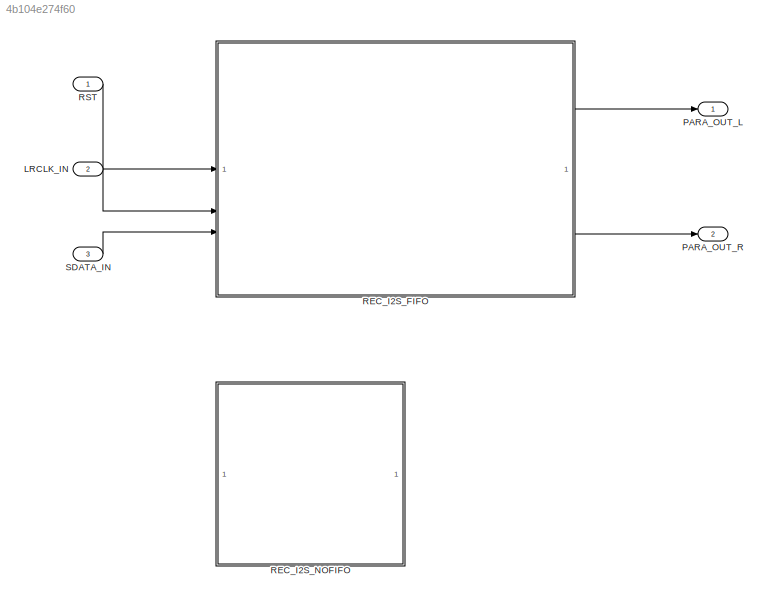
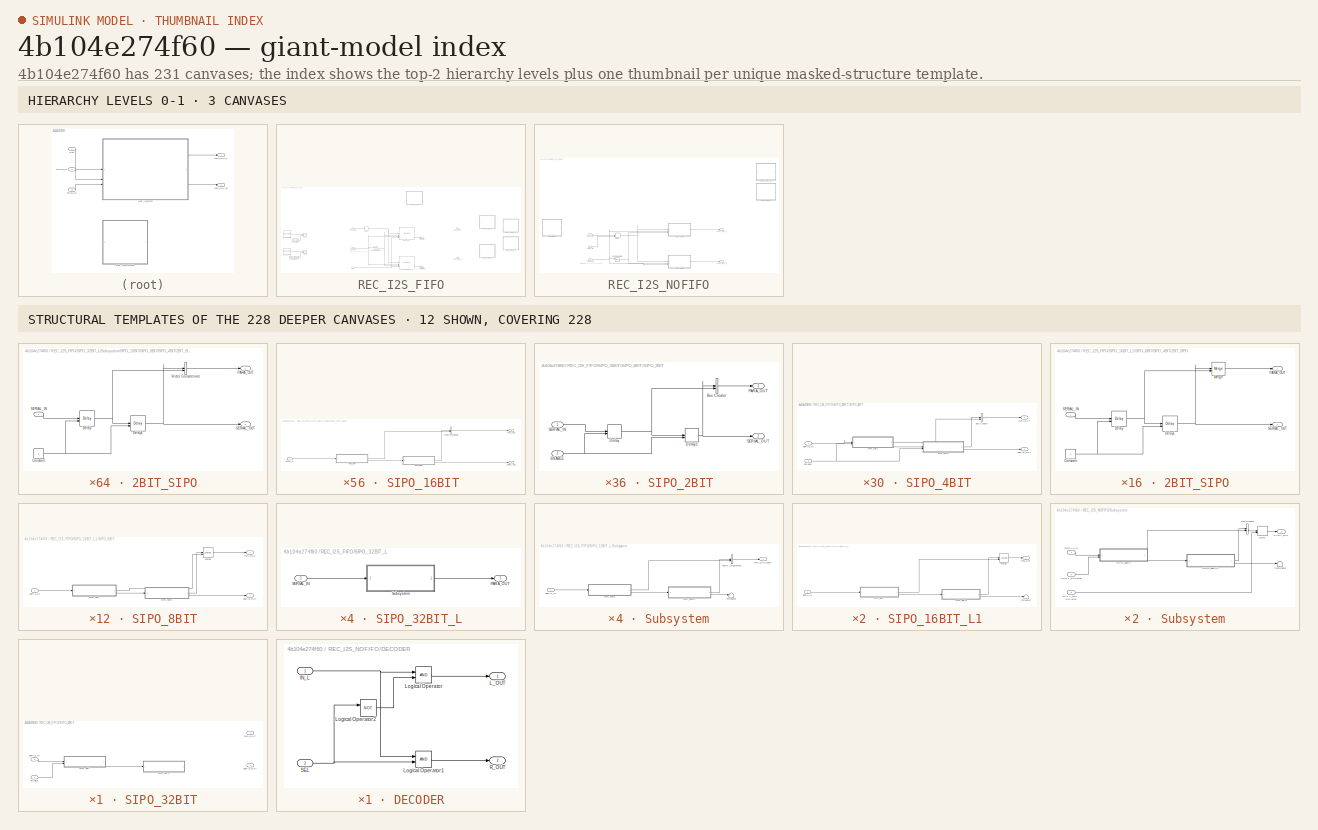
[diagram: thumbnail index - top-2 hierarchy levels (3 canvases) + 12 structural-template representatives of the remaining 228 canvases]
MODEL slx_4b104e274f60
KIND model
CONFIG AbsTol = auto
CONFIG EnableMultiTasking = off
CONFIG FixedStep = auto
CONFIG MaxStep = auto
CONFIG MinStep = auto
CONFIG RelTol = 1e-3
CONFIG SampleTimeConstraint = Unconstrained
CONFIG SolverName = VariableStepAuto
CONFIG StartTime = 0.0
CONFIG StopTime = 10.0
BLOCK [Inport] LRCLK_IN
  Port = 2
BLOCK [Outport] PARA_OUT_L
BLOCK [Outport] PARA_OUT_R
  Port = 2
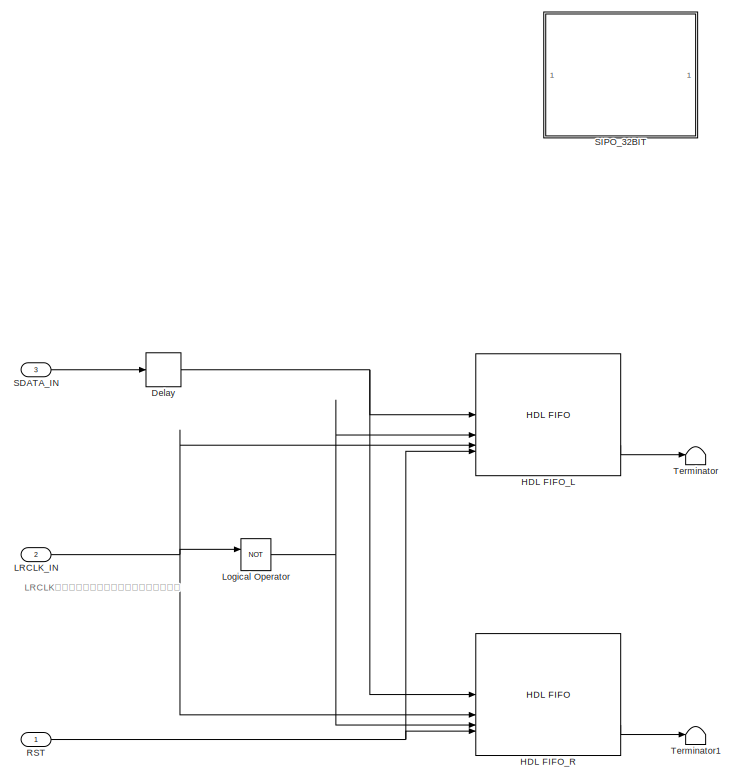
[diagram: REC_I2S_FIFO - part 1/3, center side, full height]
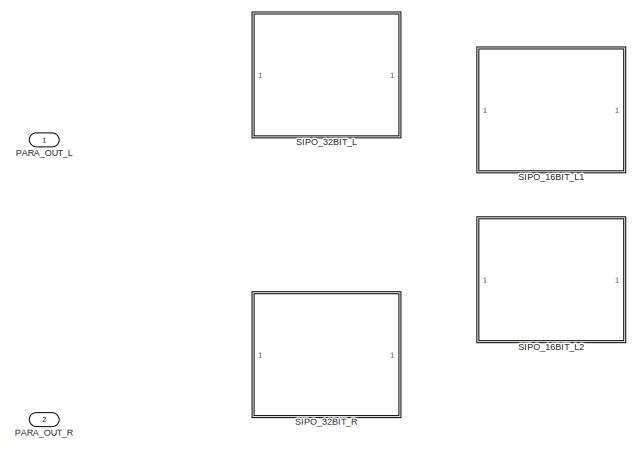
[diagram: REC_I2S_FIFO - part 2/3, middle right region]
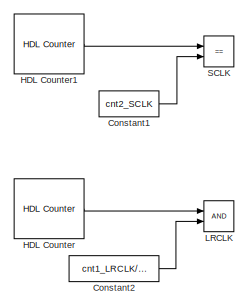
[diagram: REC_I2S_FIFO - part 3/3, bottom left region]
BLOCK [SubSystem] REC_I2S_FIFO
  Commented = on
BLOCK [Constant] REC_I2S_FIFO/Constant1
  Commented = on
  OutDataTypeStr = uint16
  Value = cnt2_SCLK
BLOCK [Constant] REC_I2S_FIFO/Constant2
  Commented = on
  OutDataTypeStr = uint16
  Value = cnt1_LRCLK/2-0.5
BLOCK [Delay] REC_I2S_FIFO/Delay
  DelayLength = 1
  InitialCondition = 0
  InputPortMap = u0
BLOCK [Reference] REC_I2S_FIFO/HDL Counter  REF=hdlsllib/Sources/HDL Counter
  Commented = on
  SourceBlock = hdlsllib/Sources/HDL Counter
  SourceType = HDL Counter
BLOCK [Reference] REC_I2S_FIFO/HDL Counter1  REF=hdlsllib/Sources/HDL Counter
  Commented = on
  SourceBlock = hdlsllib/Sources/HDL Counter
  SourceType = HDL Counter
BLOCK [Reference] REC_I2S_FIFO/HDL FIFO_L  REF=hdlsllib/HDL RAMs/HDL FIFO
  SourceBlock = hdlsllib/HDL RAMs/HDL FIFO
  SourceType = HDL_FIFO
BLOCK [Reference] REC_I2S_FIFO/HDL FIFO_R  REF=hdlsllib/HDL RAMs/HDL FIFO
  SourceBlock = hdlsllib/HDL RAMs/HDL FIFO
  SourceType = HDL_FIFO
BLOCK [RelationalOperator] REC_I2S_FIFO/LRCLK
  Commented = on
  InputSameDT = off
  OutDataTypeStr = boolean
BLOCK [Inport] REC_I2S_FIFO/LRCLK_IN
  Port = 2
BLOCK [Logic] REC_I2S_FIFO/Logical Operator
  AllPortsSameDT = off
  Operator = NOT
  OutDataTypeStr = boolean
BLOCK [Outport] REC_I2S_FIFO/PARA_OUT_L
  OutDataTypeStr = boolean
BLOCK [Outport] REC_I2S_FIFO/PARA_OUT_R
  OutDataTypeStr = boolean
  Port = 2
BLOCK [Inport] REC_I2S_FIFO/RST
  OutDataTypeStr = boolean
BLOCK [RelationalOperator] REC_I2S_FIFO/SCLK
  Commented = on
  InputSameDT = off
  Operator = ==
  OutDataTypeStr = boolean
BLOCK [Inport] REC_I2S_FIFO/SDATA_IN
  OutDataTypeStr = boolean
  Port = 3
BLOCK [SubSystem] REC_I2S_FIFO/SIPO_16BIT_L1
  Commented = on
BLOCK [Merge] REC_I2S_FIFO/SIPO_16BIT_L1/Merge
BLOCK [Outport] REC_I2S_FIFO/SIPO_16BIT_L1/PARA_OUT
  VectorParamsAs1DForOutWhenUnconnected = off
BLOCK [Inport] REC_I2S_FIFO/SIPO_16BIT_L1/SERIAL_IN
  OutDataTypeStr = boolean
BLOCK [SubSystem] REC_I2S_FIFO/SIPO_16BIT_L1/SIPO_8BIT
BLOCK [Merge] REC_I2S_FIFO/SIPO_16BIT_L1/SIPO_8BIT/Merge
BLOCK [Outport] REC_I2S_FIFO/SIPO_16BIT_L1/SIPO_8BIT/PARA_OUT
  VectorParamsAs1DForOutWhenUnconnected = off
BLOCK [Inport] REC_I2S_FIFO/SIPO_16BIT_L1/SIPO_8BIT/SERIAL_IN
  OutDataTypeStr = boolean
BLOCK [Outport] REC_I2S_FIFO/SIPO_16BIT_L1/SIPO_8BIT/SERIAL_OUT
  Port = 2
  VectorParamsAs1DForOutWhenUnconnected = off
BLOCK [SubSystem] REC_I2S_FIFO/SIPO_16BIT_L1/SIPO_8BIT/SIPO_4BIT
BLOCK [SubSystem] REC_I2S_FIFO/SIPO_16BIT_L1/SIPO_8BIT/SIPO_4BIT/2BIT_SIPO
BLOCK [Constant] REC_I2S_FIFO/SIPO_16BIT_L1/SIPO_8BIT/SIPO_4BIT/2BIT_SIPO/Constant
  OutDataTypeStr = boolean
  SampleTime = 1
BLOCK [Delay] REC_I2S_FIFO/SIPO_16BIT_L1/SIPO_8BIT/SIPO_4BIT/2BIT_SIPO/Delay
  DelayLength = 1
  InitialCondition = 0
  InputPortMap = u0,e6
  ShowEnablePort = on
BLOCK [Delay] REC_I2S_FIFO/SIPO_16BIT_L1/SIPO_8BIT/SIPO_4BIT/2BIT_SIPO/Delay1
  DelayLength = 1
  InitialCondition = 0
  InputPortMap = u0,e6
  ShowEnablePort = on
BLOCK [Merge] REC_I2S_FIFO/SIPO_16BIT_L1/SIPO_8BIT/SIPO_4BIT/2BIT_SIPO/Merge
BLOCK [Outport] REC_I2S_FIFO/SIPO_16BIT_L1/SIPO_8BIT/SIPO_4BIT/2BIT_SIPO/PARA_OUT
  VectorParamsAs1DForOutWhenUnconnected = off
BLOCK [Inport] REC_I2S_FIFO/SIPO_16BIT_L1/SIPO_8BIT/SIPO_4BIT/2BIT_SIPO/SERIAL_IN
BLOCK [Outport] REC_I2S_FIFO/SIPO_16BIT_L1/SIPO_8BIT/SIPO_4BIT/2BIT_SIPO/SERIAL_OUT
  OutDataTypeStr = boolean
  Port = 2
  VectorParamsAs1DForOutWhenUnconnected = off
BLOCK [SubSystem] REC_I2S_FIFO/SIPO_16BIT_L1/SIPO_8BIT/SIPO_4BIT/2BIT_SIPO1
BLOCK [Constant] REC_I2S_FIFO/SIPO_16BIT_L1/SIPO_8BIT/SIPO_4BIT/2BIT_SIPO1/Constant
  OutDataTypeStr = boolean
  SampleTime = 1
BLOCK [Delay] REC_I2S_FIFO/SIPO_16BIT_L1/SIPO_8BIT/SIPO_4BIT/2BIT_SIPO1/Delay
  DelayLength = 1
  InitialCondition = 0
  InputPortMap = u0,e6
  ShowEnablePort = on
BLOCK [Delay] REC_I2S_FIFO/SIPO_16BIT_L1/SIPO_8BIT/SIPO_4BIT/2BIT_SIPO1/Delay1
  DelayLength = 1
  InitialCondition = 0
  InputPortMap = u0,e6
  ShowEnablePort = on
BLOCK [Merge] REC_I2S_FIFO/SIPO_16BIT_L1/SIPO_8BIT/SIPO_4BIT/2BIT_SIPO1/Merge
BLOCK [Outport] REC_I2S_FIFO/SIPO_16BIT_L1/SIPO_8BIT/SIPO_4BIT/2BIT_SIPO1/PARA_OUT
  VectorParamsAs1DForOutWhenUnconnected = off
BLOCK [Inport] REC_I2S_FIFO/SIPO_16BIT_L1/SIPO_8BIT/SIPO_4BIT/2BIT_SIPO1/SERIAL_IN
  OutDataTypeStr = boolean
BLOCK [Outport] REC_I2S_FIFO/SIPO_16BIT_L1/SIPO_8BIT/SIPO_4BIT/2BIT_SIPO1/SERIAL_OUT
  Port = 2
  VectorParamsAs1DForOutWhenUnconnected = off
BLOCK [Merge] REC_I2S_FIFO/SIPO_16BIT_L1/SIPO_8BIT/SIPO_4BIT/Merge
BLOCK [Outport] REC_I2S_FIFO/SIPO_16BIT_L1/SIPO_8BIT/SIPO_4BIT/PARA_OUT
  VectorParamsAs1DForOutWhenUnconnected = off
BLOCK [Inport] REC_I2S_FIFO/SIPO_16BIT_L1/SIPO_8BIT/SIPO_4BIT/SERIAL_IN
BLOCK [Outport] REC_I2S_FIFO/SIPO_16BIT_L1/SIPO_8BIT/SIPO_4BIT/SERIAL_OUT
  Port = 2
  VectorParamsAs1DForOutWhenUnconnected = off
BLOCK [SubSystem] REC_I2S_FIFO/SIPO_16BIT_L1/SIPO_8BIT/SIPO_4BIT1
BLOCK [SubSystem] REC_I2S_FIFO/SIPO_16BIT_L1/SIPO_8BIT/SIPO_4BIT1/2BIT_SIPO
BLOCK [Constant] REC_I2S_FIFO/SIPO_16BIT_L1/SIPO_8BIT/SIPO_4BIT1/2BIT_SIPO/Constant
  OutDataTypeStr = boolean
  SampleTime = 1
BLOCK [Delay] REC_I2S_FIFO/SIPO_16BIT_L1/SIPO_8BIT/SIPO_4BIT1/2BIT_SIPO/Delay
  DelayLength = 1
  InitialCondition = 0
  InputPortMap = u0,e6
  SampleTime = 1
  ShowEnablePort = on
BLOCK [Delay] REC_I2S_FIFO/SIPO_16BIT_L1/SIPO_8BIT/SIPO_4BIT1/2BIT_SIPO/Delay1
  DelayLength = 1
  InitialCondition = 0
  InputPortMap = u0,e6
  SampleTime = 1
  ShowEnablePort = on
BLOCK [Merge] REC_I2S_FIFO/SIPO_16BIT_L1/SIPO_8BIT/SIPO_4BIT1/2BIT_SIPO/Merge
BLOCK [Outport] REC_I2S_FIFO/SIPO_16BIT_L1/SIPO_8BIT/SIPO_4BIT1/2BIT_SIPO/PARA_OUT
  VectorParamsAs1DForOutWhenUnconnected = off
BLOCK [Inport] REC_I2S_FIFO/SIPO_16BIT_L1/SIPO_8BIT/SIPO_4BIT1/2BIT_SIPO/SERIAL_IN
BLOCK [Outport] REC_I2S_FIFO/SIPO_16BIT_L1/SIPO_8BIT/SIPO_4BIT1/2BIT_SIPO/SERIAL_OUT
  Port = 2
  VectorParamsAs1DForOutWhenUnconnected = off
BLOCK [SubSystem] REC_I2S_FIFO/SIPO_16BIT_L1/SIPO_8BIT/SIPO_4BIT1/2BIT_SIPO1
BLOCK [Constant] REC_I2S_FIFO/SIPO_16BIT_L1/SIPO_8BIT/SIPO_4BIT1/2BIT_SIPO1/Constant
  OutDataTypeStr = boolean
  SampleTime = 1
BLOCK [Delay] REC_I2S_FIFO/SIPO_16BIT_L1/SIPO_8BIT/SIPO_4BIT1/2BIT_SIPO1/Delay
  DelayLength = 1
  InitialCondition = 0
  InputPortMap = u0,e6
  SampleTime = 1
  ShowEnablePort = on
BLOCK [Delay] REC_I2S_FIFO/SIPO_16BIT_L1/SIPO_8BIT/SIPO_4BIT1/2BIT_SIPO1/Delay1
  DelayLength = 1
  InitialCondition = 0
  InputPortMap = u0,e6
  SampleTime = 1
  ShowEnablePort = on
BLOCK [Merge] REC_I2S_FIFO/SIPO_16BIT_L1/SIPO_8BIT/SIPO_4BIT1/2BIT_SIPO1/Merge
BLOCK [Outport] REC_I2S_FIFO/SIPO_16BIT_L1/SIPO_8BIT/SIPO_4BIT1/2BIT_SIPO1/PARA_OUT
  VectorParamsAs1DForOutWhenUnconnected = off
BLOCK [Inport] REC_I2S_FIFO/SIPO_16BIT_L1/SIPO_8BIT/SIPO_4BIT1/2BIT_SIPO1/SERIAL_IN
BLOCK [Outport] REC_I2S_FIFO/SIPO_16BIT_L1/SIPO_8BIT/SIPO_4BIT1/2BIT_SIPO1/SERIAL_OUT
  Port = 2
  VectorParamsAs1DForOutWhenUnconnected = off
BLOCK [Merge] REC_I2S_FIFO/SIPO_16BIT_L1/SIPO_8BIT/SIPO_4BIT1/Merge
BLOCK [Outport] REC_I2S_FIFO/SIPO_16BIT_L1/SIPO_8BIT/SIPO_4BIT1/PARA_OUT
  VectorParamsAs1DForOutWhenUnconnected = off
BLOCK [Inport] REC_I2S_FIFO/SIPO_16BIT_L1/SIPO_8BIT/SIPO_4BIT1/SERIAL_IN
BLOCK [Outport] REC_I2S_FIFO/SIPO_16BIT_L1/SIPO_8BIT/SIPO_4BIT1/SERIAL_OUT
  Port = 2
  VectorParamsAs1DForOutWhenUnconnected = off
BLOCK [SubSystem] REC_I2S_FIFO/SIPO_16BIT_L1/SIPO_8BIT1
BLOCK [Merge] REC_I2S_FIFO/SIPO_16BIT_L1/SIPO_8BIT1/Merge
BLOCK [Outport] REC_I2S_FIFO/SIPO_16BIT_L1/SIPO_8BIT1/PARA_OUT
  VectorParamsAs1DForOutWhenUnconnected = off
BLOCK [Inport] REC_I2S_FIFO/SIPO_16BIT_L1/SIPO_8BIT1/SERIAL_IN
  OutDataTypeStr = boolean
BLOCK [Outport] REC_I2S_FIFO/SIPO_16BIT_L1/SIPO_8BIT1/SERIAL_OUT
  Port = 2
  VectorParamsAs1DForOutWhenUnconnected = off
BLOCK [SubSystem] REC_I2S_FIFO/SIPO_16BIT_L1/SIPO_8BIT1/SIPO_4BIT
BLOCK [SubSystem] REC_I2S_FIFO/SIPO_16BIT_L1/SIPO_8BIT1/SIPO_4BIT/2BIT_SIPO
BLOCK [Constant] REC_I2S_FIFO/SIPO_16BIT_L1/SIPO_8BIT1/SIPO_4BIT/2BIT_SIPO/Constant
  OutDataTypeStr = boolean
  SampleTime = 1
BLOCK [Delay] REC_I2S_FIFO/SIPO_16BIT_L1/SIPO_8BIT1/SIPO_4BIT/2BIT_SIPO/Delay
  DelayLength = 1
  InitialCondition = 0
  InputPortMap = u0,e6
  SampleTime = 1
  ShowEnablePort = on
BLOCK [Delay] REC_I2S_FIFO/SIPO_16BIT_L1/SIPO_8BIT1/SIPO_4BIT/2BIT_SIPO/Delay1
  DelayLength = 1
  InitialCondition = 0
  InputPortMap = u0,e6
  SampleTime = 1
  ShowEnablePort = on
BLOCK [Merge] REC_I2S_FIFO/SIPO_16BIT_L1/SIPO_8BIT1/SIPO_4BIT/2BIT_SIPO/Merge
BLOCK [Outport] REC_I2S_FIFO/SIPO_16BIT_L1/SIPO_8BIT1/SIPO_4BIT/2BIT_SIPO/PARA_OUT
  VectorParamsAs1DForOutWhenUnconnected = off
BLOCK [Inport] REC_I2S_FIFO/SIPO_16BIT_L1/SIPO_8BIT1/SIPO_4BIT/2BIT_SIPO/SERIAL_IN
BLOCK [Outport] REC_I2S_FIFO/SIPO_16BIT_L1/SIPO_8BIT1/SIPO_4BIT/2BIT_SIPO/SERIAL_OUT
  OutDataTypeStr = boolean
  Port = 2
  VectorParamsAs1DForOutWhenUnconnected = off
BLOCK [SubSystem] REC_I2S_FIFO/SIPO_16BIT_L1/SIPO_8BIT1/SIPO_4BIT/2BIT_SIPO1
BLOCK [Constant] REC_I2S_FIFO/SIPO_16BIT_L1/SIPO_8BIT1/SIPO_4BIT/2BIT_SIPO1/Constant
  OutDataTypeStr = boolean
  SampleTime = 1
BLOCK [Delay] REC_I2S_FIFO/SIPO_16BIT_L1/SIPO_8BIT1/SIPO_4BIT/2BIT_SIPO1/Delay
  DelayLength = 1
  InitialCondition = 0
  InputPortMap = u0,e6
  SampleTime = 1
  ShowEnablePort = on
BLOCK [Delay] REC_I2S_FIFO/SIPO_16BIT_L1/SIPO_8BIT1/SIPO_4BIT/2BIT_SIPO1/Delay1
  DelayLength = 1
  InitialCondition = 0
  InputPortMap = u0,e6
  SampleTime = 1
  ShowEnablePort = on
BLOCK [Merge] REC_I2S_FIFO/SIPO_16BIT_L1/SIPO_8BIT1/SIPO_4BIT/2BIT_SIPO1/Merge
BLOCK [Outport] REC_I2S_FIFO/SIPO_16BIT_L1/SIPO_8BIT1/SIPO_4BIT/2BIT_SIPO1/PARA_OUT
  VectorParamsAs1DForOutWhenUnconnected = off
BLOCK [Inport] REC_I2S_FIFO/SIPO_16BIT_L1/SIPO_8BIT1/SIPO_4BIT/2BIT_SIPO1/SERIAL_IN
  OutDataTypeStr = boolean
BLOCK [Outport] REC_I2S_FIFO/SIPO_16BIT_L1/SIPO_8BIT1/SIPO_4BIT/2BIT_SIPO1/SERIAL_OUT
  Port = 2
  VectorParamsAs1DForOutWhenUnconnected = off
BLOCK [Merge] REC_I2S_FIFO/SIPO_16BIT_L1/SIPO_8BIT1/SIPO_4BIT/Merge
BLOCK [Outport] REC_I2S_FIFO/SIPO_16BIT_L1/SIPO_8BIT1/SIPO_4BIT/PARA_OUT
  VectorParamsAs1DForOutWhenUnconnected = off
BLOCK [Inport] REC_I2S_FIFO/SIPO_16BIT_L1/SIPO_8BIT1/SIPO_4BIT/SERIAL_IN
BLOCK [Outport] REC_I2S_FIFO/SIPO_16BIT_L1/SIPO_8BIT1/SIPO_4BIT/SERIAL_OUT
  Port = 2
  VectorParamsAs1DForOutWhenUnconnected = off
BLOCK [SubSystem] REC_I2S_FIFO/SIPO_16BIT_L1/SIPO_8BIT1/SIPO_4BIT1
BLOCK [SubSystem] REC_I2S_FIFO/SIPO_16BIT_L1/SIPO_8BIT1/SIPO_4BIT1/2BIT_SIPO
BLOCK [Constant] REC_I2S_FIFO/SIPO_16BIT_L1/SIPO_8BIT1/SIPO_4BIT1/2BIT_SIPO/Constant
  OutDataTypeStr = boolean
  SampleTime = 1
BLOCK [Delay] REC_I2S_FIFO/SIPO_16BIT_L1/SIPO_8BIT1/SIPO_4BIT1/2BIT_SIPO/Delay
  DelayLength = 1
  InitialCondition = 0
  InputPortMap = u0,e6
  SampleTime = 1
  ShowEnablePort = on
BLOCK [Delay] REC_I2S_FIFO/SIPO_16BIT_L1/SIPO_8BIT1/SIPO_4BIT1/2BIT_SIPO/Delay1
  DelayLength = 1
  InitialCondition = 0
  InputPortMap = u0,e6
  SampleTime = 1
  ShowEnablePort = on
BLOCK [Merge] REC_I2S_FIFO/SIPO_16BIT_L1/SIPO_8BIT1/SIPO_4BIT1/2BIT_SIPO/Merge
BLOCK [Outport] REC_I2S_FIFO/SIPO_16BIT_L1/SIPO_8BIT1/SIPO_4BIT1/2BIT_SIPO/PARA_OUT
  VectorParamsAs1DForOutWhenUnconnected = off
BLOCK [Inport] REC_I2S_FIFO/SIPO_16BIT_L1/SIPO_8BIT1/SIPO_4BIT1/2BIT_SIPO/SERIAL_IN
BLOCK [Outport] REC_I2S_FIFO/SIPO_16BIT_L1/SIPO_8BIT1/SIPO_4BIT1/2BIT_SIPO/SERIAL_OUT
  Port = 2
  VectorParamsAs1DForOutWhenUnconnected = off
BLOCK [SubSystem] REC_I2S_FIFO/SIPO_16BIT_L1/SIPO_8BIT1/SIPO_4BIT1/2BIT_SIPO1
BLOCK [Constant] REC_I2S_FIFO/SIPO_16BIT_L1/SIPO_8BIT1/SIPO_4BIT1/2BIT_SIPO1/Constant
  OutDataTypeStr = boolean
  SampleTime = 1
BLOCK [Delay] REC_I2S_FIFO/SIPO_16BIT_L1/SIPO_8BIT1/SIPO_4BIT1/2BIT_SIPO1/Delay
  DelayLength = 1
  InitialCondition = 0
  InputPortMap = u0,e6
  SampleTime = 1
  ShowEnablePort = on
BLOCK [Delay] REC_I2S_FIFO/SIPO_16BIT_L1/SIPO_8BIT1/SIPO_4BIT1/2BIT_SIPO1/Delay1
  DelayLength = 1
  InitialCondition = 0
  InputPortMap = u0,e6
  SampleTime = 1
  ShowEnablePort = on
BLOCK [Merge] REC_I2S_FIFO/SIPO_16BIT_L1/SIPO_8BIT1/SIPO_4BIT1/2BIT_SIPO1/Merge
BLOCK [Outport] REC_I2S_FIFO/SIPO_16BIT_L1/SIPO_8BIT1/SIPO_4BIT1/2BIT_SIPO1/PARA_OUT
  VectorParamsAs1DForOutWhenUnconnected = off
BLOCK [Inport] REC_I2S_FIFO/SIPO_16BIT_L1/SIPO_8BIT1/SIPO_4BIT1/2BIT_SIPO1/SERIAL_IN
BLOCK [Outport] REC_I2S_FIFO/SIPO_16BIT_L1/SIPO_8BIT1/SIPO_4BIT1/2BIT_SIPO1/SERIAL_OUT
  Port = 2
  VectorParamsAs1DForOutWhenUnconnected = off
BLOCK [Merge] REC_I2S_FIFO/SIPO_16BIT_L1/SIPO_8BIT1/SIPO_4BIT1/Merge
BLOCK [Outport] REC_I2S_FIFO/SIPO_16BIT_L1/SIPO_8BIT1/SIPO_4BIT1/PARA_OUT
  VectorParamsAs1DForOutWhenUnconnected = off
BLOCK [Inport] REC_I2S_FIFO/SIPO_16BIT_L1/SIPO_8BIT1/SIPO_4BIT1/SERIAL_IN
BLOCK [Outport] REC_I2S_FIFO/SIPO_16BIT_L1/SIPO_8BIT1/SIPO_4BIT1/SERIAL_OUT
  Port = 2
  VectorParamsAs1DForOutWhenUnconnected = off
BLOCK [Terminator] REC_I2S_FIFO/SIPO_16BIT_L1/Terminator
BLOCK [SubSystem] REC_I2S_FIFO/SIPO_16BIT_L2
  Commented = on
BLOCK [Merge] REC_I2S_FIFO/SIPO_16BIT_L2/Merge
BLOCK [Outport] REC_I2S_FIFO/SIPO_16BIT_L2/PARA_OUT
  VectorParamsAs1DForOutWhenUnconnected = off
BLOCK [Inport] REC_I2S_FIFO/SIPO_16BIT_L2/SERIAL_IN
  OutDataTypeStr = boolean
BLOCK [SubSystem] REC_I2S_FIFO/SIPO_16BIT_L2/SIPO_8BIT
BLOCK [Merge] REC_I2S_FIFO/SIPO_16BIT_L2/SIPO_8BIT/Merge
BLOCK [Outport] REC_I2S_FIFO/SIPO_16BIT_L2/SIPO_8BIT/PARA_OUT
  VectorParamsAs1DForOutWhenUnconnected = off
BLOCK [Inport] REC_I2S_FIFO/SIPO_16BIT_L2/SIPO_8BIT/SERIAL_IN
  OutDataTypeStr = boolean
BLOCK [Outport] REC_I2S_FIFO/SIPO_16BIT_L2/SIPO_8BIT/SERIAL_OUT
  Port = 2
  VectorParamsAs1DForOutWhenUnconnected = off
BLOCK [SubSystem] REC_I2S_FIFO/SIPO_16BIT_L2/SIPO_8BIT/SIPO_4BIT
BLOCK [SubSystem] REC_I2S_FIFO/SIPO_16BIT_L2/SIPO_8BIT/SIPO_4BIT/2BIT_SIPO
BLOCK [Constant] REC_I2S_FIFO/SIPO_16BIT_L2/SIPO_8BIT/SIPO_4BIT/2BIT_SIPO/Constant
  OutDataTypeStr = boolean
  SampleTime = 1
BLOCK [Delay] REC_I2S_FIFO/SIPO_16BIT_L2/SIPO_8BIT/SIPO_4BIT/2BIT_SIPO/Delay
  DelayLength = 1
  InitialCondition = 0
  InputPortMap = u0,e6
  SampleTime = 1
  ShowEnablePort = on
BLOCK [Delay] REC_I2S_FIFO/SIPO_16BIT_L2/SIPO_8BIT/SIPO_4BIT/2BIT_SIPO/Delay1
  DelayLength = 1
  InitialCondition = 0
  InputPortMap = u0,e6
  SampleTime = 1
  ShowEnablePort = on
BLOCK [Merge] REC_I2S_FIFO/SIPO_16BIT_L2/SIPO_8BIT/SIPO_4BIT/2BIT_SIPO/Merge
BLOCK [Outport] REC_I2S_FIFO/SIPO_16BIT_L2/SIPO_8BIT/SIPO_4BIT/2BIT_SIPO/PARA_OUT
  VectorParamsAs1DForOutWhenUnconnected = off
BLOCK [Inport] REC_I2S_FIFO/SIPO_16BIT_L2/SIPO_8BIT/SIPO_4BIT/2BIT_SIPO/SERIAL_IN
BLOCK [Outport] REC_I2S_FIFO/SIPO_16BIT_L2/SIPO_8BIT/SIPO_4BIT/2BIT_SIPO/SERIAL_OUT
  OutDataTypeStr = boolean
  Port = 2
  VectorParamsAs1DForOutWhenUnconnected = off
BLOCK [SubSystem] REC_I2S_FIFO/SIPO_16BIT_L2/SIPO_8BIT/SIPO_4BIT/2BIT_SIPO1
BLOCK [Constant] REC_I2S_FIFO/SIPO_16BIT_L2/SIPO_8BIT/SIPO_4BIT/2BIT_SIPO1/Constant
  OutDataTypeStr = boolean
  SampleTime = 1
BLOCK [Delay] REC_I2S_FIFO/SIPO_16BIT_L2/SIPO_8BIT/SIPO_4BIT/2BIT_SIPO1/Delay
  DelayLength = 1
  InitialCondition = 0
  InputPortMap = u0,e6
  SampleTime = 1
  ShowEnablePort = on
BLOCK [Delay] REC_I2S_FIFO/SIPO_16BIT_L2/SIPO_8BIT/SIPO_4BIT/2BIT_SIPO1/Delay1
  DelayLength = 1
  InitialCondition = 0
  InputPortMap = u0,e6
  SampleTime = 1
  ShowEnablePort = on
BLOCK [Merge] REC_I2S_FIFO/SIPO_16BIT_L2/SIPO_8BIT/SIPO_4BIT/2BIT_SIPO1/Merge
BLOCK [Outport] REC_I2S_FIFO/SIPO_16BIT_L2/SIPO_8BIT/SIPO_4BIT/2BIT_SIPO1/PARA_OUT
  VectorParamsAs1DForOutWhenUnconnected = off
BLOCK [Inport] REC_I2S_FIFO/SIPO_16BIT_L2/SIPO_8BIT/SIPO_4BIT/2BIT_SIPO1/SERIAL_IN
  OutDataTypeStr = boolean
BLOCK [Outport] REC_I2S_FIFO/SIPO_16BIT_L2/SIPO_8BIT/SIPO_4BIT/2BIT_SIPO1/SERIAL_OUT
  Port = 2
  VectorParamsAs1DForOutWhenUnconnected = off
BLOCK [Merge] REC_I2S_FIFO/SIPO_16BIT_L2/SIPO_8BIT/SIPO_4BIT/Merge
BLOCK [Outport] REC_I2S_FIFO/SIPO_16BIT_L2/SIPO_8BIT/SIPO_4BIT/PARA_OUT
  VectorParamsAs1DForOutWhenUnconnected = off
BLOCK [Inport] REC_I2S_FIFO/SIPO_16BIT_L2/SIPO_8BIT/SIPO_4BIT/SERIAL_IN
BLOCK [Outport] REC_I2S_FIFO/SIPO_16BIT_L2/SIPO_8BIT/SIPO_4BIT/SERIAL_OUT
  Port = 2
  VectorParamsAs1DForOutWhenUnconnected = off
BLOCK [SubSystem] REC_I2S_FIFO/SIPO_16BIT_L2/SIPO_8BIT/SIPO_4BIT1
BLOCK [SubSystem] REC_I2S_FIFO/SIPO_16BIT_L2/SIPO_8BIT/SIPO_4BIT1/2BIT_SIPO
BLOCK [Constant] REC_I2S_FIFO/SIPO_16BIT_L2/SIPO_8BIT/SIPO_4BIT1/2BIT_SIPO/Constant
  OutDataTypeStr = boolean
  SampleTime = 1
BLOCK [Delay] REC_I2S_FIFO/SIPO_16BIT_L2/SIPO_8BIT/SIPO_4BIT1/2BIT_SIPO/Delay
  DelayLength = 1
  InitialCondition = 0
  InputPortMap = u0,e6
  SampleTime = 1
  ShowEnablePort = on
BLOCK [Delay] REC_I2S_FIFO/SIPO_16BIT_L2/SIPO_8BIT/SIPO_4BIT1/2BIT_SIPO/Delay1
  DelayLength = 1
  InitialCondition = 0
  InputPortMap = u0,e6
  SampleTime = 1
  ShowEnablePort = on
BLOCK [Merge] REC_I2S_FIFO/SIPO_16BIT_L2/SIPO_8BIT/SIPO_4BIT1/2BIT_SIPO/Merge
BLOCK [Outport] REC_I2S_FIFO/SIPO_16BIT_L2/SIPO_8BIT/SIPO_4BIT1/2BIT_SIPO/PARA_OUT
  VectorParamsAs1DForOutWhenUnconnected = off
BLOCK [Inport] REC_I2S_FIFO/SIPO_16BIT_L2/SIPO_8BIT/SIPO_4BIT1/2BIT_SIPO/SERIAL_IN
BLOCK [Outport] REC_I2S_FIFO/SIPO_16BIT_L2/SIPO_8BIT/SIPO_4BIT1/2BIT_SIPO/SERIAL_OUT
  Port = 2
  VectorParamsAs1DForOutWhenUnconnected = off
BLOCK [SubSystem] REC_I2S_FIFO/SIPO_16BIT_L2/SIPO_8BIT/SIPO_4BIT1/2BIT_SIPO1
BLOCK [Constant] REC_I2S_FIFO/SIPO_16BIT_L2/SIPO_8BIT/SIPO_4BIT1/2BIT_SIPO1/Constant
  OutDataTypeStr = boolean
  SampleTime = 1
BLOCK [Delay] REC_I2S_FIFO/SIPO_16BIT_L2/SIPO_8BIT/SIPO_4BIT1/2BIT_SIPO1/Delay
  DelayLength = 1
  InitialCondition = 0
  InputPortMap = u0,e6
  SampleTime = 1
  ShowEnablePort = on
BLOCK [Delay] REC_I2S_FIFO/SIPO_16BIT_L2/SIPO_8BIT/SIPO_4BIT1/2BIT_SIPO1/Delay1
  DelayLength = 1
  InitialCondition = 0
  InputPortMap = u0,e6
  SampleTime = 1
  ShowEnablePort = on
BLOCK [Merge] REC_I2S_FIFO/SIPO_16BIT_L2/SIPO_8BIT/SIPO_4BIT1/2BIT_SIPO1/Merge
BLOCK [Outport] REC_I2S_FIFO/SIPO_16BIT_L2/SIPO_8BIT/SIPO_4BIT1/2BIT_SIPO1/PARA_OUT
  VectorParamsAs1DForOutWhenUnconnected = off
BLOCK [Inport] REC_I2S_FIFO/SIPO_16BIT_L2/SIPO_8BIT/SIPO_4BIT1/2BIT_SIPO1/SERIAL_IN
BLOCK [Outport] REC_I2S_FIFO/SIPO_16BIT_L2/SIPO_8BIT/SIPO_4BIT1/2BIT_SIPO1/SERIAL_OUT
  Port = 2
  VectorParamsAs1DForOutWhenUnconnected = off
BLOCK [Merge] REC_I2S_FIFO/SIPO_16BIT_L2/SIPO_8BIT/SIPO_4BIT1/Merge
BLOCK [Outport] REC_I2S_FIFO/SIPO_16BIT_L2/SIPO_8BIT/SIPO_4BIT1/PARA_OUT
  VectorParamsAs1DForOutWhenUnconnected = off
BLOCK [Inport] REC_I2S_FIFO/SIPO_16BIT_L2/SIPO_8BIT/SIPO_4BIT1/SERIAL_IN
BLOCK [Outport] REC_I2S_FIFO/SIPO_16BIT_L2/SIPO_8BIT/SIPO_4BIT1/SERIAL_OUT
  Port = 2
  VectorParamsAs1DForOutWhenUnconnected = off
BLOCK [SubSystem] REC_I2S_FIFO/SIPO_16BIT_L2/SIPO_8BIT1
BLOCK [Merge] REC_I2S_FIFO/SIPO_16BIT_L2/SIPO_8BIT1/Merge
BLOCK [Outport] REC_I2S_FIFO/SIPO_16BIT_L2/SIPO_8BIT1/PARA_OUT
  VectorParamsAs1DForOutWhenUnconnected = off
BLOCK [Inport] REC_I2S_FIFO/SIPO_16BIT_L2/SIPO_8BIT1/SERIAL_IN
  OutDataTypeStr = boolean
BLOCK [Outport] REC_I2S_FIFO/SIPO_16BIT_L2/SIPO_8BIT1/SERIAL_OUT
  Port = 2
  VectorParamsAs1DForOutWhenUnconnected = off
BLOCK [SubSystem] REC_I2S_FIFO/SIPO_16BIT_L2/SIPO_8BIT1/SIPO_4BIT
BLOCK [SubSystem] REC_I2S_FIFO/SIPO_16BIT_L2/SIPO_8BIT1/SIPO_4BIT/2BIT_SIPO
BLOCK [Constant] REC_I2S_FIFO/SIPO_16BIT_L2/SIPO_8BIT1/SIPO_4BIT/2BIT_SIPO/Constant
  OutDataTypeStr = boolean
  SampleTime = 1
BLOCK [Delay] REC_I2S_FIFO/SIPO_16BIT_L2/SIPO_8BIT1/SIPO_4BIT/2BIT_SIPO/Delay
  DelayLength = 1
  InitialCondition = 0
  InputPortMap = u0,e6
  SampleTime = 1
  ShowEnablePort = on
BLOCK [Delay] REC_I2S_FIFO/SIPO_16BIT_L2/SIPO_8BIT1/SIPO_4BIT/2BIT_SIPO/Delay1
  DelayLength = 1
  InitialCondition = 0
  InputPortMap = u0,e6
  SampleTime = 1
  ShowEnablePort = on
BLOCK [Merge] REC_I2S_FIFO/SIPO_16BIT_L2/SIPO_8BIT1/SIPO_4BIT/2BIT_SIPO/Merge
BLOCK [Outport] REC_I2S_FIFO/SIPO_16BIT_L2/SIPO_8BIT1/SIPO_4BIT/2BIT_SIPO/PARA_OUT
  VectorParamsAs1DForOutWhenUnconnected = off
BLOCK [Inport] REC_I2S_FIFO/SIPO_16BIT_L2/SIPO_8BIT1/SIPO_4BIT/2BIT_SIPO/SERIAL_IN
BLOCK [Outport] REC_I2S_FIFO/SIPO_16BIT_L2/SIPO_8BIT1/SIPO_4BIT/2BIT_SIPO/SERIAL_OUT
  OutDataTypeStr = boolean
  Port = 2
  VectorParamsAs1DForOutWhenUnconnected = off
BLOCK [SubSystem] REC_I2S_FIFO/SIPO_16BIT_L2/SIPO_8BIT1/SIPO_4BIT/2BIT_SIPO1
BLOCK [Constant] REC_I2S_FIFO/SIPO_16BIT_L2/SIPO_8BIT1/SIPO_4BIT/2BIT_SIPO1/Constant
  OutDataTypeStr = boolean
  SampleTime = 1
BLOCK [Delay] REC_I2S_FIFO/SIPO_16BIT_L2/SIPO_8BIT1/SIPO_4BIT/2BIT_SIPO1/Delay
  DelayLength = 1
  InitialCondition = 0
  InputPortMap = u0,e6
  SampleTime = 1
  ShowEnablePort = on
BLOCK [Delay] REC_I2S_FIFO/SIPO_16BIT_L2/SIPO_8BIT1/SIPO_4BIT/2BIT_SIPO1/Delay1
  DelayLength = 1
  InitialCondition = 0
  InputPortMap = u0,e6
  SampleTime = 1
  ShowEnablePort = on
BLOCK [Merge] REC_I2S_FIFO/SIPO_16BIT_L2/SIPO_8BIT1/SIPO_4BIT/2BIT_SIPO1/Merge
BLOCK [Outport] REC_I2S_FIFO/SIPO_16BIT_L2/SIPO_8BIT1/SIPO_4BIT/2BIT_SIPO1/PARA_OUT
  VectorParamsAs1DForOutWhenUnconnected = off
BLOCK [Inport] REC_I2S_FIFO/SIPO_16BIT_L2/SIPO_8BIT1/SIPO_4BIT/2BIT_SIPO1/SERIAL_IN
  OutDataTypeStr = boolean
BLOCK [Outport] REC_I2S_FIFO/SIPO_16BIT_L2/SIPO_8BIT1/SIPO_4BIT/2BIT_SIPO1/SERIAL_OUT
  Port = 2
  VectorParamsAs1DForOutWhenUnconnected = off
BLOCK [Merge] REC_I2S_FIFO/SIPO_16BIT_L2/SIPO_8BIT1/SIPO_4BIT/Merge
BLOCK [Outport] REC_I2S_FIFO/SIPO_16BIT_L2/SIPO_8BIT1/SIPO_4BIT/PARA_OUT
  VectorParamsAs1DForOutWhenUnconnected = off
BLOCK [Inport] REC_I2S_FIFO/SIPO_16BIT_L2/SIPO_8BIT1/SIPO_4BIT/SERIAL_IN
BLOCK [Outport] REC_I2S_FIFO/SIPO_16BIT_L2/SIPO_8BIT1/SIPO_4BIT/SERIAL_OUT
  Port = 2
  VectorParamsAs1DForOutWhenUnconnected = off
BLOCK [SubSystem] REC_I2S_FIFO/SIPO_16BIT_L2/SIPO_8BIT1/SIPO_4BIT1
BLOCK [SubSystem] REC_I2S_FIFO/SIPO_16BIT_L2/SIPO_8BIT1/SIPO_4BIT1/2BIT_SIPO
BLOCK [Constant] REC_I2S_FIFO/SIPO_16BIT_L2/SIPO_8BIT1/SIPO_4BIT1/2BIT_SIPO/Constant
  OutDataTypeStr = boolean
  SampleTime = 1
BLOCK [Delay] REC_I2S_FIFO/SIPO_16BIT_L2/SIPO_8BIT1/SIPO_4BIT1/2BIT_SIPO/Delay
  DelayLength = 1
  InitialCondition = 0
  InputPortMap = u0,e6
  SampleTime = 1
  ShowEnablePort = on
BLOCK [Delay] REC_I2S_FIFO/SIPO_16BIT_L2/SIPO_8BIT1/SIPO_4BIT1/2BIT_SIPO/Delay1
  DelayLength = 1
  InitialCondition = 0
  InputPortMap = u0,e6
  SampleTime = 1
  ShowEnablePort = on
BLOCK [Merge] REC_I2S_FIFO/SIPO_16BIT_L2/SIPO_8BIT1/SIPO_4BIT1/2BIT_SIPO/Merge
BLOCK [Outport] REC_I2S_FIFO/SIPO_16BIT_L2/SIPO_8BIT1/SIPO_4BIT1/2BIT_SIPO/PARA_OUT
  VectorParamsAs1DForOutWhenUnconnected = off
BLOCK [Inport] REC_I2S_FIFO/SIPO_16BIT_L2/SIPO_8BIT1/SIPO_4BIT1/2BIT_SIPO/SERIAL_IN
BLOCK [Outport] REC_I2S_FIFO/SIPO_16BIT_L2/SIPO_8BIT1/SIPO_4BIT1/2BIT_SIPO/SERIAL_OUT
  Port = 2
  VectorParamsAs1DForOutWhenUnconnected = off
BLOCK [SubSystem] REC_I2S_FIFO/SIPO_16BIT_L2/SIPO_8BIT1/SIPO_4BIT1/2BIT_SIPO1
BLOCK [Constant] REC_I2S_FIFO/SIPO_16BIT_L2/SIPO_8BIT1/SIPO_4BIT1/2BIT_SIPO1/Constant
  OutDataTypeStr = boolean
  SampleTime = 1
BLOCK [Delay] REC_I2S_FIFO/SIPO_16BIT_L2/SIPO_8BIT1/SIPO_4BIT1/2BIT_SIPO1/Delay
  DelayLength = 1
  InitialCondition = 0
  InputPortMap = u0,e6
  SampleTime = 1
  ShowEnablePort = on
BLOCK [Delay] REC_I2S_FIFO/SIPO_16BIT_L2/SIPO_8BIT1/SIPO_4BIT1/2BIT_SIPO1/Delay1
  DelayLength = 1
  InitialCondition = 0
  InputPortMap = u0,e6
  SampleTime = 1
  ShowEnablePort = on
BLOCK [Merge] REC_I2S_FIFO/SIPO_16BIT_L2/SIPO_8BIT1/SIPO_4BIT1/2BIT_SIPO1/Merge
BLOCK [Outport] REC_I2S_FIFO/SIPO_16BIT_L2/SIPO_8BIT1/SIPO_4BIT1/2BIT_SIPO1/PARA_OUT
  VectorParamsAs1DForOutWhenUnconnected = off
BLOCK [Inport] REC_I2S_FIFO/SIPO_16BIT_L2/SIPO_8BIT1/SIPO_4BIT1/2BIT_SIPO1/SERIAL_IN
BLOCK [Outport] REC_I2S_FIFO/SIPO_16BIT_L2/SIPO_8BIT1/SIPO_4BIT1/2BIT_SIPO1/SERIAL_OUT
  Port = 2
  VectorParamsAs1DForOutWhenUnconnected = off
BLOCK [Merge] REC_I2S_FIFO/SIPO_16BIT_L2/SIPO_8BIT1/SIPO_4BIT1/Merge
BLOCK [Outport] REC_I2S_FIFO/SIPO_16BIT_L2/SIPO_8BIT1/SIPO_4BIT1/PARA_OUT
  VectorParamsAs1DForOutWhenUnconnected = off
BLOCK [Inport] REC_I2S_FIFO/SIPO_16BIT_L2/SIPO_8BIT1/SIPO_4BIT1/SERIAL_IN
BLOCK [Outport] REC_I2S_FIFO/SIPO_16BIT_L2/SIPO_8BIT1/SIPO_4BIT1/SERIAL_OUT
  Port = 2
  VectorParamsAs1DForOutWhenUnconnected = off
BLOCK [Terminator] REC_I2S_FIFO/SIPO_16BIT_L2/Terminator
BLOCK [SubSystem] REC_I2S_FIFO/SIPO_32BIT
BLOCK [Inport] REC_I2S_FIFO/SIPO_32BIT/ENABLE
  OutDataTypeStr = boolean
  Port = 2
BLOCK [Outport] REC_I2S_FIFO/SIPO_32BIT/PARA_OUT
  VectorParamsAs1DForOutWhenUnconnected = off
BLOCK [Inport] REC_I2S_FIFO/SIPO_32BIT/SERIAL_IN
BLOCK [Outport] REC_I2S_FIFO/SIPO_32BIT/SERIAL_OUT
  Port = 2
  VectorParamsAs1DForOutWhenUnconnected = off
BLOCK [SubSystem] REC_I2S_FIFO/SIPO_32BIT/SIPO_4BIT
BLOCK [BusCreator] REC_I2S_FIFO/SIPO_32BIT/SIPO_4BIT/Bus Creator
  DisplayOption = bar
  InheritFromInputs = on
  Inputs = 2
BLOCK [Inport] REC_I2S_FIFO/SIPO_32BIT/SIPO_4BIT/ENABLE
  OutDataTypeStr = boolean
  Port = 2
BLOCK [Outport] REC_I2S_FIFO/SIPO_32BIT/SIPO_4BIT/PARA_OUT
  VectorParamsAs1DForOutWhenUnconnected = off
BLOCK [Inport] REC_I2S_FIFO/SIPO_32BIT/SIPO_4BIT/SERIAL_IN
BLOCK [Outport] REC_I2S_FIFO/SIPO_32BIT/SIPO_4BIT/SERIAL_OUT
  Port = 2
  VectorParamsAs1DForOutWhenUnconnected = off
BLOCK [SubSystem] REC_I2S_FIFO/SIPO_32BIT/SIPO_4BIT/SIPO_2BIT
BLOCK [BusCreator] REC_I2S_FIFO/SIPO_32BIT/SIPO_4BIT/SIPO_2BIT/Bus Creator
  DisplayOption = bar
  InheritFromInputs = on
  Inputs = 2
BLOCK [Delay] REC_I2S_FIFO/SIPO_32BIT/SIPO_4BIT/SIPO_2BIT/Delay
  DelayLength = 1
  InitialCondition = 0
  InputPortMap = u0,e6
  ShowEnablePort = on
BLOCK [Delay] REC_I2S_FIFO/SIPO_32BIT/SIPO_4BIT/SIPO_2BIT/Delay1
  DelayLength = 1
  InitialCondition = 0
  InputPortMap = u0,e6
  ShowEnablePort = on
BLOCK [Inport] REC_I2S_FIFO/SIPO_32BIT/SIPO_4BIT/SIPO_2BIT/ENABLE
  Port = 2
BLOCK [Outport] REC_I2S_FIFO/SIPO_32BIT/SIPO_4BIT/SIPO_2BIT/PARA_OUT
  VectorParamsAs1DForOutWhenUnconnected = off
BLOCK [Inport] REC_I2S_FIFO/SIPO_32BIT/SIPO_4BIT/SIPO_2BIT/SERIAL_IN
BLOCK [Outport] REC_I2S_FIFO/SIPO_32BIT/SIPO_4BIT/SIPO_2BIT/SERIAL_OUT
  Port = 2
  VectorParamsAs1DForOutWhenUnconnected = off
BLOCK [SubSystem] REC_I2S_FIFO/SIPO_32BIT/SIPO_4BIT/SIPO_2BIT1
BLOCK [BusCreator] REC_I2S_FIFO/SIPO_32BIT/SIPO_4BIT/SIPO_2BIT1/Bus Creator
  DisplayOption = bar
  InheritFromInputs = on
  Inputs = 2
BLOCK [Delay] REC_I2S_FIFO/SIPO_32BIT/SIPO_4BIT/SIPO_2BIT1/Delay
  DelayLength = 1
  InitialCondition = 0
  InputPortMap = u0,e6
  ShowEnablePort = on
BLOCK [Delay] REC_I2S_FIFO/SIPO_32BIT/SIPO_4BIT/SIPO_2BIT1/Delay1
  DelayLength = 1
  InitialCondition = 0
  InputPortMap = u0,e6
  ShowEnablePort = on
BLOCK [Inport] REC_I2S_FIFO/SIPO_32BIT/SIPO_4BIT/SIPO_2BIT1/ENABLE
  Port = 2
BLOCK [Outport] REC_I2S_FIFO/SIPO_32BIT/SIPO_4BIT/SIPO_2BIT1/PARA_OUT
  VectorParamsAs1DForOutWhenUnconnected = off
BLOCK [Inport] REC_I2S_FIFO/SIPO_32BIT/SIPO_4BIT/SIPO_2BIT1/SERIAL_IN
BLOCK [Outport] REC_I2S_FIFO/SIPO_32BIT/SIPO_4BIT/SIPO_2BIT1/SERIAL_OUT
  Port = 2
  VectorParamsAs1DForOutWhenUnconnected = off
BLOCK [SubSystem] REC_I2S_FIFO/SIPO_32BIT/SIPO_4BIT1
BLOCK [BusCreator] REC_I2S_FIFO/SIPO_32BIT/SIPO_4BIT1/Bus Creator
  DisplayOption = bar
  InheritFromInputs = on
  Inputs = 2
BLOCK [Inport] REC_I2S_FIFO/SIPO_32BIT/SIPO_4BIT1/ENABLE
  OutDataTypeStr = boolean
  Port = 2
BLOCK [Outport] REC_I2S_FIFO/SIPO_32BIT/SIPO_4BIT1/PARA_OUT
  VectorParamsAs1DForOutWhenUnconnected = off
BLOCK [Inport] REC_I2S_FIFO/SIPO_32BIT/SIPO_4BIT1/SERIAL_IN
BLOCK [Outport] REC_I2S_FIFO/SIPO_32BIT/SIPO_4BIT1/SERIAL_OUT
  Port = 2
  VectorParamsAs1DForOutWhenUnconnected = off
BLOCK [SubSystem] REC_I2S_FIFO/SIPO_32BIT/SIPO_4BIT1/SIPO_2BIT
BLOCK [BusCreator] REC_I2S_FIFO/SIPO_32BIT/SIPO_4BIT1/SIPO_2BIT/Bus Creator
  DisplayOption = bar
  InheritFromInputs = on
  Inputs = 2
BLOCK [Delay] REC_I2S_FIFO/SIPO_32BIT/SIPO_4BIT1/SIPO_2BIT/Delay
  DelayLength = 1
  InitialCondition = 0
  InputPortMap = u0,e6
  ShowEnablePort = on
BLOCK [Delay] REC_I2S_FIFO/SIPO_32BIT/SIPO_4BIT1/SIPO_2BIT/Delay1
  DelayLength = 1
  InitialCondition = 0
  InputPortMap = u0,e6
  ShowEnablePort = on
BLOCK [Inport] REC_I2S_FIFO/SIPO_32BIT/SIPO_4BIT1/SIPO_2BIT/ENABLE
  Port = 2
BLOCK [Outport] REC_I2S_FIFO/SIPO_32BIT/SIPO_4BIT1/SIPO_2BIT/PARA_OUT
  VectorParamsAs1DForOutWhenUnconnected = off
BLOCK [Inport] REC_I2S_FIFO/SIPO_32BIT/SIPO_4BIT1/SIPO_2BIT/SERIAL_IN
BLOCK [Outport] REC_I2S_FIFO/SIPO_32BIT/SIPO_4BIT1/SIPO_2BIT/SERIAL_OUT
  Port = 2
  VectorParamsAs1DForOutWhenUnconnected = off
BLOCK [SubSystem] REC_I2S_FIFO/SIPO_32BIT/SIPO_4BIT1/SIPO_2BIT1
BLOCK [BusCreator] REC_I2S_FIFO/SIPO_32BIT/SIPO_4BIT1/SIPO_2BIT1/Bus Creator
  DisplayOption = bar
  InheritFromInputs = on
  Inputs = 2
BLOCK [Delay] REC_I2S_FIFO/SIPO_32BIT/SIPO_4BIT1/SIPO_2BIT1/Delay
  DelayLength = 1
  InitialCondition = 0
  InputPortMap = u0,e6
  ShowEnablePort = on
BLOCK [Delay] REC_I2S_FIFO/SIPO_32BIT/SIPO_4BIT1/SIPO_2BIT1/Delay1
  DelayLength = 1
  InitialCondition = 0
  InputPortMap = u0,e6
  ShowEnablePort = on
BLOCK [Inport] REC_I2S_FIFO/SIPO_32BIT/SIPO_4BIT1/SIPO_2BIT1/ENABLE
  Port = 2
BLOCK [Outport] REC_I2S_FIFO/SIPO_32BIT/SIPO_4BIT1/SIPO_2BIT1/PARA_OUT
  VectorParamsAs1DForOutWhenUnconnected = off
BLOCK [Inport] REC_I2S_FIFO/SIPO_32BIT/SIPO_4BIT1/SIPO_2BIT1/SERIAL_IN
BLOCK [Outport] REC_I2S_FIFO/SIPO_32BIT/SIPO_4BIT1/SIPO_2BIT1/SERIAL_OUT
  Port = 2
  VectorParamsAs1DForOutWhenUnconnected = off
BLOCK [SubSystem] REC_I2S_FIFO/SIPO_32BIT_L
BLOCK [Outport] REC_I2S_FIFO/SIPO_32BIT_L/PARA_OUT
  OutDataTypeStr = boolean
  VectorParamsAs1DForOutWhenUnconnected = off
BLOCK [Inport] REC_I2S_FIFO/SIPO_32BIT_L/SERIAL_IN
  OutDataTypeStr = boolean
BLOCK [SubSystem] REC_I2S_FIFO/SIPO_32BIT_L/Subsystem
BLOCK [Outport] REC_I2S_FIFO/SIPO_32BIT_L/Subsystem/PARA_OUT_32BIT
BLOCK [Inport] REC_I2S_FIFO/SIPO_32BIT_L/Subsystem/SERIAL_IN
  OutDataTypeStr = boolean
BLOCK [SubSystem] REC_I2S_FIFO/SIPO_32BIT_L/Subsystem/SIPO_16BIT
BLOCK [Outport] REC_I2S_FIFO/SIPO_32BIT_L/Subsystem/SIPO_16BIT/PARA_OUT
  OutDataTypeStr = boolean
  VectorParamsAs1DForOutWhenUnconnected = off
BLOCK [Inport] REC_I2S_FIFO/SIPO_32BIT_L/Subsystem/SIPO_16BIT/SERIAL_IN
  OutDataTypeStr = boolean
BLOCK [Outport] REC_I2S_FIFO/SIPO_32BIT_L/Subsystem/SIPO_16BIT/SERIAL_OUT
  OutDataTypeStr = boolean
  Port = 2
  VectorParamsAs1DForOutWhenUnconnected = off
BLOCK [SubSystem] REC_I2S_FIFO/SIPO_32BIT_L/Subsystem/SIPO_16BIT/SIPO_8BIT
BLOCK [Outport] REC_I2S_FIFO/SIPO_32BIT_L/Subsystem/SIPO_16BIT/SIPO_8BIT/PARA_OUT
  VectorParamsAs1DForOutWhenUnconnected = off
BLOCK [Inport] REC_I2S_FIFO/SIPO_32BIT_L/Subsystem/SIPO_16BIT/SIPO_8BIT/SERIAL_IN
  OutDataTypeStr = boolean
BLOCK [Outport] REC_I2S_FIFO/SIPO_32BIT_L/Subsystem/SIPO_16BIT/SIPO_8BIT/SERIAL_OUT
  Port = 2
  VectorParamsAs1DForOutWhenUnconnected = off
BLOCK [SubSystem] REC_I2S_FIFO/SIPO_32BIT_L/Subsystem/SIPO_16BIT/SIPO_8BIT/SIPO_4BIT
BLOCK [SubSystem] REC_I2S_FIFO/SIPO_32BIT_L/Subsystem/SIPO_16BIT/SIPO_8BIT/SIPO_4BIT/2BIT_SIPO
BLOCK [Constant] REC_I2S_FIFO/SIPO_32BIT_L/Subsystem/SIPO_16BIT/SIPO_8BIT/SIPO_4BIT/2BIT_SIPO/Constant
  OutDataTypeStr = boolean
  SampleTime = -1
BLOCK [Delay] REC_I2S_FIFO/SIPO_32BIT_L/Subsystem/SIPO_16BIT/SIPO_8BIT/SIPO_4BIT/2BIT_SIPO/Delay
  DelayLength = 1
  InitialCondition = 0
  InputPortMap = u0,e6
  ShowEnablePort = on
BLOCK [Delay] REC_I2S_FIFO/SIPO_32BIT_L/Subsystem/SIPO_16BIT/SIPO_8BIT/SIPO_4BIT/2BIT_SIPO/Delay1
  DelayLength = 1
  InitialCondition = 0
  InputPortMap = u0,e6
  ShowEnablePort = on
BLOCK [Outport] REC_I2S_FIFO/SIPO_32BIT_L/Subsystem/SIPO_16BIT/SIPO_8BIT/SIPO_4BIT/2BIT_SIPO/PARA_OUT
  VectorParamsAs1DForOutWhenUnconnected = off
BLOCK [Inport] REC_I2S_FIFO/SIPO_32BIT_L/Subsystem/SIPO_16BIT/SIPO_8BIT/SIPO_4BIT/2BIT_SIPO/SERIAL_IN
BLOCK [Outport] REC_I2S_FIFO/SIPO_32BIT_L/Subsystem/SIPO_16BIT/SIPO_8BIT/SIPO_4BIT/2BIT_SIPO/SERIAL_OUT
  Port = 2
  VectorParamsAs1DForOutWhenUnconnected = off
BLOCK [Concatenate] REC_I2S_FIFO/SIPO_32BIT_L/Subsystem/SIPO_16BIT/SIPO_8BIT/SIPO_4BIT/2BIT_SIPO/Vector Concatenate
BLOCK [SubSystem] REC_I2S_FIFO/SIPO_32BIT_L/Subsystem/SIPO_16BIT/SIPO_8BIT/SIPO_4BIT/2BIT_SIPO1
BLOCK [Constant] REC_I2S_FIFO/SIPO_32BIT_L/Subsystem/SIPO_16BIT/SIPO_8BIT/SIPO_4BIT/2BIT_SIPO1/Constant
  OutDataTypeStr = boolean
  SampleTime = -1
BLOCK [Delay] REC_I2S_FIFO/SIPO_32BIT_L/Subsystem/SIPO_16BIT/SIPO_8BIT/SIPO_4BIT/2BIT_SIPO1/Delay
  DelayLength = 1
  InitialCondition = 0
  InputPortMap = u0,e6
  ShowEnablePort = on
BLOCK [Delay] REC_I2S_FIFO/SIPO_32BIT_L/Subsystem/SIPO_16BIT/SIPO_8BIT/SIPO_4BIT/2BIT_SIPO1/Delay1
  DelayLength = 1
  InitialCondition = 0
  InputPortMap = u0,e6
  ShowEnablePort = on
BLOCK [Outport] REC_I2S_FIFO/SIPO_32BIT_L/Subsystem/SIPO_16BIT/SIPO_8BIT/SIPO_4BIT/2BIT_SIPO1/PARA_OUT
  VectorParamsAs1DForOutWhenUnconnected = off
BLOCK [Inport] REC_I2S_FIFO/SIPO_32BIT_L/Subsystem/SIPO_16BIT/SIPO_8BIT/SIPO_4BIT/2BIT_SIPO1/SERIAL_IN
BLOCK [Outport] REC_I2S_FIFO/SIPO_32BIT_L/Subsystem/SIPO_16BIT/SIPO_8BIT/SIPO_4BIT/2BIT_SIPO1/SERIAL_OUT
  Port = 2
  VectorParamsAs1DForOutWhenUnconnected = off
BLOCK [Concatenate] REC_I2S_FIFO/SIPO_32BIT_L/Subsystem/SIPO_16BIT/SIPO_8BIT/SIPO_4BIT/2BIT_SIPO1/Vector Concatenate
BLOCK [Outport] REC_I2S_FIFO/SIPO_32BIT_L/Subsystem/SIPO_16BIT/SIPO_8BIT/SIPO_4BIT/PARA_OUT
  VectorParamsAs1DForOutWhenUnconnected = off
BLOCK [Inport] REC_I2S_FIFO/SIPO_32BIT_L/Subsystem/SIPO_16BIT/SIPO_8BIT/SIPO_4BIT/SERIAL_IN
BLOCK [Outport] REC_I2S_FIFO/SIPO_32BIT_L/Subsystem/SIPO_16BIT/SIPO_8BIT/SIPO_4BIT/SERIAL_OUT
  Port = 2
  VectorParamsAs1DForOutWhenUnconnected = off
BLOCK [Concatenate] REC_I2S_FIFO/SIPO_32BIT_L/Subsystem/SIPO_16BIT/SIPO_8BIT/SIPO_4BIT/Vector Concatenate
BLOCK [SubSystem] REC_I2S_FIFO/SIPO_32BIT_L/Subsystem/SIPO_16BIT/SIPO_8BIT/SIPO_4BIT1
BLOCK [SubSystem] REC_I2S_FIFO/SIPO_32BIT_L/Subsystem/SIPO_16BIT/SIPO_8BIT/SIPO_4BIT1/2BIT_SIPO
BLOCK [Constant] REC_I2S_FIFO/SIPO_32BIT_L/Subsystem/SIPO_16BIT/SIPO_8BIT/SIPO_4BIT1/2BIT_SIPO/Constant
  OutDataTypeStr = boolean
  SampleTime = -1
BLOCK [Delay] REC_I2S_FIFO/SIPO_32BIT_L/Subsystem/SIPO_16BIT/SIPO_8BIT/SIPO_4BIT1/2BIT_SIPO/Delay
  DelayLength = 1
  InitialCondition = 0
  InputPortMap = u0,e6
  ShowEnablePort = on
BLOCK [Delay] REC_I2S_FIFO/SIPO_32BIT_L/Subsystem/SIPO_16BIT/SIPO_8BIT/SIPO_4BIT1/2BIT_SIPO/Delay1
  DelayLength = 1
  InitialCondition = 0
  InputPortMap = u0,e6
  ShowEnablePort = on
BLOCK [Outport] REC_I2S_FIFO/SIPO_32BIT_L/Subsystem/SIPO_16BIT/SIPO_8BIT/SIPO_4BIT1/2BIT_SIPO/PARA_OUT
  VectorParamsAs1DForOutWhenUnconnected = off
BLOCK [Inport] REC_I2S_FIFO/SIPO_32BIT_L/Subsystem/SIPO_16BIT/SIPO_8BIT/SIPO_4BIT1/2BIT_SIPO/SERIAL_IN
BLOCK [Outport] REC_I2S_FIFO/SIPO_32BIT_L/Subsystem/SIPO_16BIT/SIPO_8BIT/SIPO_4BIT1/2BIT_SIPO/SERIAL_OUT
  Port = 2
  VectorParamsAs1DForOutWhenUnconnected = off
BLOCK [Concatenate] REC_I2S_FIFO/SIPO_32BIT_L/Subsystem/SIPO_16BIT/SIPO_8BIT/SIPO_4BIT1/2BIT_SIPO/Vector Concatenate
BLOCK [SubSystem] REC_I2S_FIFO/SIPO_32BIT_L/Subsystem/SIPO_16BIT/SIPO_8BIT/SIPO_4BIT1/2BIT_SIPO1
BLOCK [Constant] REC_I2S_FIFO/SIPO_32BIT_L/Subsystem/SIPO_16BIT/SIPO_8BIT/SIPO_4BIT1/2BIT_SIPO1/Constant
  OutDataTypeStr = boolean
  SampleTime = -1
BLOCK [Delay] REC_I2S_FIFO/SIPO_32BIT_L/Subsystem/SIPO_16BIT/SIPO_8BIT/SIPO_4BIT1/2BIT_SIPO1/Delay
  DelayLength = 1
  InitialCondition = 0
  InputPortMap = u0,e6
  ShowEnablePort = on
BLOCK [Delay] REC_I2S_FIFO/SIPO_32BIT_L/Subsystem/SIPO_16BIT/SIPO_8BIT/SIPO_4BIT1/2BIT_SIPO1/Delay1
  DelayLength = 1
  InitialCondition = 0
  InputPortMap = u0,e6
  ShowEnablePort = on
BLOCK [Outport] REC_I2S_FIFO/SIPO_32BIT_L/Subsystem/SIPO_16BIT/SIPO_8BIT/SIPO_4BIT1/2BIT_SIPO1/PARA_OUT
  VectorParamsAs1DForOutWhenUnconnected = off
BLOCK [Inport] REC_I2S_FIFO/SIPO_32BIT_L/Subsystem/SIPO_16BIT/SIPO_8BIT/SIPO_4BIT1/2BIT_SIPO1/SERIAL_IN
BLOCK [Outport] REC_I2S_FIFO/SIPO_32BIT_L/Subsystem/SIPO_16BIT/SIPO_8BIT/SIPO_4BIT1/2BIT_SIPO1/SERIAL_OUT
  Port = 2
  VectorParamsAs1DForOutWhenUnconnected = off
BLOCK [Concatenate] REC_I2S_FIFO/SIPO_32BIT_L/Subsystem/SIPO_16BIT/SIPO_8BIT/SIPO_4BIT1/2BIT_SIPO1/Vector Concatenate
BLOCK [Outport] REC_I2S_FIFO/SIPO_32BIT_L/Subsystem/SIPO_16BIT/SIPO_8BIT/SIPO_4BIT1/PARA_OUT
  VectorParamsAs1DForOutWhenUnconnected = off
BLOCK [Inport] REC_I2S_FIFO/SIPO_32BIT_L/Subsystem/SIPO_16BIT/SIPO_8BIT/SIPO_4BIT1/SERIAL_IN
BLOCK [Outport] REC_I2S_FIFO/SIPO_32BIT_L/Subsystem/SIPO_16BIT/SIPO_8BIT/SIPO_4BIT1/SERIAL_OUT
  Port = 2
  VectorParamsAs1DForOutWhenUnconnected = off
BLOCK [Concatenate] REC_I2S_FIFO/SIPO_32BIT_L/Subsystem/SIPO_16BIT/SIPO_8BIT/SIPO_4BIT1/Vector Concatenate
BLOCK [Concatenate] REC_I2S_FIFO/SIPO_32BIT_L/Subsystem/SIPO_16BIT/SIPO_8BIT/Vector Concatenate
BLOCK [SubSystem] REC_I2S_FIFO/SIPO_32BIT_L/Subsystem/SIPO_16BIT/SIPO_8BIT1
BLOCK [Outport] REC_I2S_FIFO/SIPO_32BIT_L/Subsystem/SIPO_16BIT/SIPO_8BIT1/PARA_OUT
  VectorParamsAs1DForOutWhenUnconnected = off
BLOCK [Inport] REC_I2S_FIFO/SIPO_32BIT_L/Subsystem/SIPO_16BIT/SIPO_8BIT1/SERIAL_IN
  OutDataTypeStr = boolean
BLOCK [Outport] REC_I2S_FIFO/SIPO_32BIT_L/Subsystem/SIPO_16BIT/SIPO_8BIT1/SERIAL_OUT
  Port = 2
  VectorParamsAs1DForOutWhenUnconnected = off
BLOCK [SubSystem] REC_I2S_FIFO/SIPO_32BIT_L/Subsystem/SIPO_16BIT/SIPO_8BIT1/SIPO_4BIT
BLOCK [SubSystem] REC_I2S_FIFO/SIPO_32BIT_L/Subsystem/SIPO_16BIT/SIPO_8BIT1/SIPO_4BIT/2BIT_SIPO
BLOCK [Constant] REC_I2S_FIFO/SIPO_32BIT_L/Subsystem/SIPO_16BIT/SIPO_8BIT1/SIPO_4BIT/2BIT_SIPO/Constant
  OutDataTypeStr = boolean
  SampleTime = -1
BLOCK [Delay] REC_I2S_FIFO/SIPO_32BIT_L/Subsystem/SIPO_16BIT/SIPO_8BIT1/SIPO_4BIT/2BIT_SIPO/Delay
  DelayLength = 1
  InitialCondition = 0
  InputPortMap = u0,e6
  ShowEnablePort = on
BLOCK [Delay] REC_I2S_FIFO/SIPO_32BIT_L/Subsystem/SIPO_16BIT/SIPO_8BIT1/SIPO_4BIT/2BIT_SIPO/Delay1
  DelayLength = 1
  InitialCondition = 0
  InputPortMap = u0,e6
  ShowEnablePort = on
BLOCK [Outport] REC_I2S_FIFO/SIPO_32BIT_L/Subsystem/SIPO_16BIT/SIPO_8BIT1/SIPO_4BIT/2BIT_SIPO/PARA_OUT
  VectorParamsAs1DForOutWhenUnconnected = off
BLOCK [Inport] REC_I2S_FIFO/SIPO_32BIT_L/Subsystem/SIPO_16BIT/SIPO_8BIT1/SIPO_4BIT/2BIT_SIPO/SERIAL_IN
BLOCK [Outport] REC_I2S_FIFO/SIPO_32BIT_L/Subsystem/SIPO_16BIT/SIPO_8BIT1/SIPO_4BIT/2BIT_SIPO/SERIAL_OUT
  Port = 2
  VectorParamsAs1DForOutWhenUnconnected = off
BLOCK [Concatenate] REC_I2S_FIFO/SIPO_32BIT_L/Subsystem/SIPO_16BIT/SIPO_8BIT1/SIPO_4BIT/2BIT_SIPO/Vector Concatenate
BLOCK [SubSystem] REC_I2S_FIFO/SIPO_32BIT_L/Subsystem/SIPO_16BIT/SIPO_8BIT1/SIPO_4BIT/2BIT_SIPO1
BLOCK [Constant] REC_I2S_FIFO/SIPO_32BIT_L/Subsystem/SIPO_16BIT/SIPO_8BIT1/SIPO_4BIT/2BIT_SIPO1/Constant
  OutDataTypeStr = boolean
  SampleTime = -1
BLOCK [Delay] REC_I2S_FIFO/SIPO_32BIT_L/Subsystem/SIPO_16BIT/SIPO_8BIT1/SIPO_4BIT/2BIT_SIPO1/Delay
  DelayLength = 1
  InitialCondition = 0
  InputPortMap = u0,e6
  ShowEnablePort = on
BLOCK [Delay] REC_I2S_FIFO/SIPO_32BIT_L/Subsystem/SIPO_16BIT/SIPO_8BIT1/SIPO_4BIT/2BIT_SIPO1/Delay1
  DelayLength = 1
  InitialCondition = 0
  InputPortMap = u0,e6
  ShowEnablePort = on
BLOCK [Outport] REC_I2S_FIFO/SIPO_32BIT_L/Subsystem/SIPO_16BIT/SIPO_8BIT1/SIPO_4BIT/2BIT_SIPO1/PARA_OUT
  VectorParamsAs1DForOutWhenUnconnected = off
BLOCK [Inport] REC_I2S_FIFO/SIPO_32BIT_L/Subsystem/SIPO_16BIT/SIPO_8BIT1/SIPO_4BIT/2BIT_SIPO1/SERIAL_IN
BLOCK [Outport] REC_I2S_FIFO/SIPO_32BIT_L/Subsystem/SIPO_16BIT/SIPO_8BIT1/SIPO_4BIT/2BIT_SIPO1/SERIAL_OUT
  Port = 2
  VectorParamsAs1DForOutWhenUnconnected = off
BLOCK [Concatenate] REC_I2S_FIFO/SIPO_32BIT_L/Subsystem/SIPO_16BIT/SIPO_8BIT1/SIPO_4BIT/2BIT_SIPO1/Vector Concatenate
BLOCK [Outport] REC_I2S_FIFO/SIPO_32BIT_L/Subsystem/SIPO_16BIT/SIPO_8BIT1/SIPO_4BIT/PARA_OUT
  VectorParamsAs1DForOutWhenUnconnected = off
BLOCK [Inport] REC_I2S_FIFO/SIPO_32BIT_L/Subsystem/SIPO_16BIT/SIPO_8BIT1/SIPO_4BIT/SERIAL_IN
BLOCK [Outport] REC_I2S_FIFO/SIPO_32BIT_L/Subsystem/SIPO_16BIT/SIPO_8BIT1/SIPO_4BIT/SERIAL_OUT
  Port = 2
  VectorParamsAs1DForOutWhenUnconnected = off
BLOCK [Concatenate] REC_I2S_FIFO/SIPO_32BIT_L/Subsystem/SIPO_16BIT/SIPO_8BIT1/SIPO_4BIT/Vector Concatenate
BLOCK [SubSystem] REC_I2S_FIFO/SIPO_32BIT_L/Subsystem/SIPO_16BIT/SIPO_8BIT1/SIPO_4BIT1
BLOCK [SubSystem] REC_I2S_FIFO/SIPO_32BIT_L/Subsystem/SIPO_16BIT/SIPO_8BIT1/SIPO_4BIT1/2BIT_SIPO
BLOCK [Constant] REC_I2S_FIFO/SIPO_32BIT_L/Subsystem/SIPO_16BIT/SIPO_8BIT1/SIPO_4BIT1/2BIT_SIPO/Constant
  OutDataTypeStr = boolean
  SampleTime = -1
BLOCK [Delay] REC_I2S_FIFO/SIPO_32BIT_L/Subsystem/SIPO_16BIT/SIPO_8BIT1/SIPO_4BIT1/2BIT_SIPO/Delay
  DelayLength = 1
  InitialCondition = 0
  InputPortMap = u0,e6
  ShowEnablePort = on
BLOCK [Delay] REC_I2S_FIFO/SIPO_32BIT_L/Subsystem/SIPO_16BIT/SIPO_8BIT1/SIPO_4BIT1/2BIT_SIPO/Delay1
  DelayLength = 1
  InitialCondition = 0
  InputPortMap = u0,e6
  ShowEnablePort = on
BLOCK [Outport] REC_I2S_FIFO/SIPO_32BIT_L/Subsystem/SIPO_16BIT/SIPO_8BIT1/SIPO_4BIT1/2BIT_SIPO/PARA_OUT
  VectorParamsAs1DForOutWhenUnconnected = off
BLOCK [Inport] REC_I2S_FIFO/SIPO_32BIT_L/Subsystem/SIPO_16BIT/SIPO_8BIT1/SIPO_4BIT1/2BIT_SIPO/SERIAL_IN
BLOCK [Outport] REC_I2S_FIFO/SIPO_32BIT_L/Subsystem/SIPO_16BIT/SIPO_8BIT1/SIPO_4BIT1/2BIT_SIPO/SERIAL_OUT
  Port = 2
  VectorParamsAs1DForOutWhenUnconnected = off
BLOCK [Concatenate] REC_I2S_FIFO/SIPO_32BIT_L/Subsystem/SIPO_16BIT/SIPO_8BIT1/SIPO_4BIT1/2BIT_SIPO/Vector Concatenate
BLOCK [SubSystem] REC_I2S_FIFO/SIPO_32BIT_L/Subsystem/SIPO_16BIT/SIPO_8BIT1/SIPO_4BIT1/2BIT_SIPO1
BLOCK [Constant] REC_I2S_FIFO/SIPO_32BIT_L/Subsystem/SIPO_16BIT/SIPO_8BIT1/SIPO_4BIT1/2BIT_SIPO1/Constant
  OutDataTypeStr = boolean
  SampleTime = -1
BLOCK [Delay] REC_I2S_FIFO/SIPO_32BIT_L/Subsystem/SIPO_16BIT/SIPO_8BIT1/SIPO_4BIT1/2BIT_SIPO1/Delay
  DelayLength = 1
  InitialCondition = 0
  InputPortMap = u0,e6
  ShowEnablePort = on
BLOCK [Delay] REC_I2S_FIFO/SIPO_32BIT_L/Subsystem/SIPO_16BIT/SIPO_8BIT1/SIPO_4BIT1/2BIT_SIPO1/Delay1
  DelayLength = 1
  InitialCondition = 0
  InputPortMap = u0,e6
  ShowEnablePort = on
BLOCK [Outport] REC_I2S_FIFO/SIPO_32BIT_L/Subsystem/SIPO_16BIT/SIPO_8BIT1/SIPO_4BIT1/2BIT_SIPO1/PARA_OUT
  VectorParamsAs1DForOutWhenUnconnected = off
BLOCK [Inport] REC_I2S_FIFO/SIPO_32BIT_L/Subsystem/SIPO_16BIT/SIPO_8BIT1/SIPO_4BIT1/2BIT_SIPO1/SERIAL_IN
BLOCK [Outport] REC_I2S_FIFO/SIPO_32BIT_L/Subsystem/SIPO_16BIT/SIPO_8BIT1/SIPO_4BIT1/2BIT_SIPO1/SERIAL_OUT
  Port = 2
  VectorParamsAs1DForOutWhenUnconnected = off
BLOCK [Concatenate] REC_I2S_FIFO/SIPO_32BIT_L/Subsystem/SIPO_16BIT/SIPO_8BIT1/SIPO_4BIT1/2BIT_SIPO1/Vector Concatenate
BLOCK [Outport] REC_I2S_FIFO/SIPO_32BIT_L/Subsystem/SIPO_16BIT/SIPO_8BIT1/SIPO_4BIT1/PARA_OUT
  VectorParamsAs1DForOutWhenUnconnected = off
BLOCK [Inport] REC_I2S_FIFO/SIPO_32BIT_L/Subsystem/SIPO_16BIT/SIPO_8BIT1/SIPO_4BIT1/SERIAL_IN
BLOCK [Outport] REC_I2S_FIFO/SIPO_32BIT_L/Subsystem/SIPO_16BIT/SIPO_8BIT1/SIPO_4BIT1/SERIAL_OUT
  Port = 2
  VectorParamsAs1DForOutWhenUnconnected = off
BLOCK [Concatenate] REC_I2S_FIFO/SIPO_32BIT_L/Subsystem/SIPO_16BIT/SIPO_8BIT1/SIPO_4BIT1/Vector Concatenate
BLOCK [Concatenate] REC_I2S_FIFO/SIPO_32BIT_L/Subsystem/SIPO_16BIT/SIPO_8BIT1/Vector Concatenate
BLOCK [Concatenate] REC_I2S_FIFO/SIPO_32BIT_L/Subsystem/SIPO_16BIT/Vector Concatenate
BLOCK [SubSystem] REC_I2S_FIFO/SIPO_32BIT_L/Subsystem/SIPO_16BIT1
BLOCK [Outport] REC_I2S_FIFO/SIPO_32BIT_L/Subsystem/SIPO_16BIT1/PARA_OUT
  OutDataTypeStr = boolean
  VectorParamsAs1DForOutWhenUnconnected = off
BLOCK [Inport] REC_I2S_FIFO/SIPO_32BIT_L/Subsystem/SIPO_16BIT1/SERIAL_IN
  OutDataTypeStr = boolean
BLOCK [Outport] REC_I2S_FIFO/SIPO_32BIT_L/Subsystem/SIPO_16BIT1/SERIAL_OUT
  OutDataTypeStr = boolean
  Port = 2
  VectorParamsAs1DForOutWhenUnconnected = off
BLOCK [SubSystem] REC_I2S_FIFO/SIPO_32BIT_L/Subsystem/SIPO_16BIT1/SIPO_8BIT
BLOCK [Outport] REC_I2S_FIFO/SIPO_32BIT_L/Subsystem/SIPO_16BIT1/SIPO_8BIT/PARA_OUT
  VectorParamsAs1DForOutWhenUnconnected = off
BLOCK [Inport] REC_I2S_FIFO/SIPO_32BIT_L/Subsystem/SIPO_16BIT1/SIPO_8BIT/SERIAL_IN
  OutDataTypeStr = boolean
BLOCK [Outport] REC_I2S_FIFO/SIPO_32BIT_L/Subsystem/SIPO_16BIT1/SIPO_8BIT/SERIAL_OUT
  Port = 2
  VectorParamsAs1DForOutWhenUnconnected = off
BLOCK [SubSystem] REC_I2S_FIFO/SIPO_32BIT_L/Subsystem/SIPO_16BIT1/SIPO_8BIT/SIPO_4BIT
BLOCK [SubSystem] REC_I2S_FIFO/SIPO_32BIT_L/Subsystem/SIPO_16BIT1/SIPO_8BIT/SIPO_4BIT/2BIT_SIPO
BLOCK [Constant] REC_I2S_FIFO/SIPO_32BIT_L/Subsystem/SIPO_16BIT1/SIPO_8BIT/SIPO_4BIT/2BIT_SIPO/Constant
  OutDataTypeStr = boolean
  SampleTime = -1
BLOCK [Delay] REC_I2S_FIFO/SIPO_32BIT_L/Subsystem/SIPO_16BIT1/SIPO_8BIT/SIPO_4BIT/2BIT_SIPO/Delay
  DelayLength = 1
  InitialCondition = 0
  InputPortMap = u0,e6
  ShowEnablePort = on
BLOCK [Delay] REC_I2S_FIFO/SIPO_32BIT_L/Subsystem/SIPO_16BIT1/SIPO_8BIT/SIPO_4BIT/2BIT_SIPO/Delay1
  DelayLength = 1
  InitialCondition = 0
  InputPortMap = u0,e6
  ShowEnablePort = on
BLOCK [Outport] REC_I2S_FIFO/SIPO_32BIT_L/Subsystem/SIPO_16BIT1/SIPO_8BIT/SIPO_4BIT/2BIT_SIPO/PARA_OUT
  VectorParamsAs1DForOutWhenUnconnected = off
BLOCK [Inport] REC_I2S_FIFO/SIPO_32BIT_L/Subsystem/SIPO_16BIT1/SIPO_8BIT/SIPO_4BIT/2BIT_SIPO/SERIAL_IN
BLOCK [Outport] REC_I2S_FIFO/SIPO_32BIT_L/Subsystem/SIPO_16BIT1/SIPO_8BIT/SIPO_4BIT/2BIT_SIPO/SERIAL_OUT
  Port = 2
  VectorParamsAs1DForOutWhenUnconnected = off
BLOCK [Concatenate] REC_I2S_FIFO/SIPO_32BIT_L/Subsystem/SIPO_16BIT1/SIPO_8BIT/SIPO_4BIT/2BIT_SIPO/Vector Concatenate
BLOCK [SubSystem] REC_I2S_FIFO/SIPO_32BIT_L/Subsystem/SIPO_16BIT1/SIPO_8BIT/SIPO_4BIT/2BIT_SIPO1
BLOCK [Constant] REC_I2S_FIFO/SIPO_32BIT_L/Subsystem/SIPO_16BIT1/SIPO_8BIT/SIPO_4BIT/2BIT_SIPO1/Constant
  OutDataTypeStr = boolean
  SampleTime = -1
BLOCK [Delay] REC_I2S_FIFO/SIPO_32BIT_L/Subsystem/SIPO_16BIT1/SIPO_8BIT/SIPO_4BIT/2BIT_SIPO1/Delay
  DelayLength = 1
  InitialCondition = 0
  InputPortMap = u0,e6
  ShowEnablePort = on
BLOCK [Delay] REC_I2S_FIFO/SIPO_32BIT_L/Subsystem/SIPO_16BIT1/SIPO_8BIT/SIPO_4BIT/2BIT_SIPO1/Delay1
  DelayLength = 1
  InitialCondition = 0
  InputPortMap = u0,e6
  ShowEnablePort = on
BLOCK [Outport] REC_I2S_FIFO/SIPO_32BIT_L/Subsystem/SIPO_16BIT1/SIPO_8BIT/SIPO_4BIT/2BIT_SIPO1/PARA_OUT
  VectorParamsAs1DForOutWhenUnconnected = off
BLOCK [Inport] REC_I2S_FIFO/SIPO_32BIT_L/Subsystem/SIPO_16BIT1/SIPO_8BIT/SIPO_4BIT/2BIT_SIPO1/SERIAL_IN
BLOCK [Outport] REC_I2S_FIFO/SIPO_32BIT_L/Subsystem/SIPO_16BIT1/SIPO_8BIT/SIPO_4BIT/2BIT_SIPO1/SERIAL_OUT
  Port = 2
  VectorParamsAs1DForOutWhenUnconnected = off
BLOCK [Concatenate] REC_I2S_FIFO/SIPO_32BIT_L/Subsystem/SIPO_16BIT1/SIPO_8BIT/SIPO_4BIT/2BIT_SIPO1/Vector Concatenate
BLOCK [Outport] REC_I2S_FIFO/SIPO_32BIT_L/Subsystem/SIPO_16BIT1/SIPO_8BIT/SIPO_4BIT/PARA_OUT
  VectorParamsAs1DForOutWhenUnconnected = off
BLOCK [Inport] REC_I2S_FIFO/SIPO_32BIT_L/Subsystem/SIPO_16BIT1/SIPO_8BIT/SIPO_4BIT/SERIAL_IN
BLOCK [Outport] REC_I2S_FIFO/SIPO_32BIT_L/Subsystem/SIPO_16BIT1/SIPO_8BIT/SIPO_4BIT/SERIAL_OUT
  Port = 2
  VectorParamsAs1DForOutWhenUnconnected = off
BLOCK [Concatenate] REC_I2S_FIFO/SIPO_32BIT_L/Subsystem/SIPO_16BIT1/SIPO_8BIT/SIPO_4BIT/Vector Concatenate
BLOCK [SubSystem] REC_I2S_FIFO/SIPO_32BIT_L/Subsystem/SIPO_16BIT1/SIPO_8BIT/SIPO_4BIT1
BLOCK [SubSystem] REC_I2S_FIFO/SIPO_32BIT_L/Subsystem/SIPO_16BIT1/SIPO_8BIT/SIPO_4BIT1/2BIT_SIPO
BLOCK [Constant] REC_I2S_FIFO/SIPO_32BIT_L/Subsystem/SIPO_16BIT1/SIPO_8BIT/SIPO_4BIT1/2BIT_SIPO/Constant
  OutDataTypeStr = boolean
  SampleTime = -1
BLOCK [Delay] REC_I2S_FIFO/SIPO_32BIT_L/Subsystem/SIPO_16BIT1/SIPO_8BIT/SIPO_4BIT1/2BIT_SIPO/Delay
  DelayLength = 1
  InitialCondition = 0
  InputPortMap = u0,e6
  ShowEnablePort = on
BLOCK [Delay] REC_I2S_FIFO/SIPO_32BIT_L/Subsystem/SIPO_16BIT1/SIPO_8BIT/SIPO_4BIT1/2BIT_SIPO/Delay1
  DelayLength = 1
  InitialCondition = 0
  InputPortMap = u0,e6
  ShowEnablePort = on
BLOCK [Outport] REC_I2S_FIFO/SIPO_32BIT_L/Subsystem/SIPO_16BIT1/SIPO_8BIT/SIPO_4BIT1/2BIT_SIPO/PARA_OUT
  VectorParamsAs1DForOutWhenUnconnected = off
BLOCK [Inport] REC_I2S_FIFO/SIPO_32BIT_L/Subsystem/SIPO_16BIT1/SIPO_8BIT/SIPO_4BIT1/2BIT_SIPO/SERIAL_IN
BLOCK [Outport] REC_I2S_FIFO/SIPO_32BIT_L/Subsystem/SIPO_16BIT1/SIPO_8BIT/SIPO_4BIT1/2BIT_SIPO/SERIAL_OUT
  Port = 2
  VectorParamsAs1DForOutWhenUnconnected = off
BLOCK [Concatenate] REC_I2S_FIFO/SIPO_32BIT_L/Subsystem/SIPO_16BIT1/SIPO_8BIT/SIPO_4BIT1/2BIT_SIPO/Vector Concatenate
BLOCK [SubSystem] REC_I2S_FIFO/SIPO_32BIT_L/Subsystem/SIPO_16BIT1/SIPO_8BIT/SIPO_4BIT1/2BIT_SIPO1
BLOCK [Constant] REC_I2S_FIFO/SIPO_32BIT_L/Subsystem/SIPO_16BIT1/SIPO_8BIT/SIPO_4BIT1/2BIT_SIPO1/Constant
  OutDataTypeStr = boolean
  SampleTime = -1
BLOCK [Delay] REC_I2S_FIFO/SIPO_32BIT_L/Subsystem/SIPO_16BIT1/SIPO_8BIT/SIPO_4BIT1/2BIT_SIPO1/Delay
  DelayLength = 1
  InitialCondition = 0
  InputPortMap = u0,e6
  ShowEnablePort = on
BLOCK [Delay] REC_I2S_FIFO/SIPO_32BIT_L/Subsystem/SIPO_16BIT1/SIPO_8BIT/SIPO_4BIT1/2BIT_SIPO1/Delay1
  DelayLength = 1
  InitialCondition = 0
  InputPortMap = u0,e6
  ShowEnablePort = on
BLOCK [Outport] REC_I2S_FIFO/SIPO_32BIT_L/Subsystem/SIPO_16BIT1/SIPO_8BIT/SIPO_4BIT1/2BIT_SIPO1/PARA_OUT
  VectorParamsAs1DForOutWhenUnconnected = off
BLOCK [Inport] REC_I2S_FIFO/SIPO_32BIT_L/Subsystem/SIPO_16BIT1/SIPO_8BIT/SIPO_4BIT1/2BIT_SIPO1/SERIAL_IN
BLOCK [Outport] REC_I2S_FIFO/SIPO_32BIT_L/Subsystem/SIPO_16BIT1/SIPO_8BIT/SIPO_4BIT1/2BIT_SIPO1/SERIAL_OUT
  Port = 2
  VectorParamsAs1DForOutWhenUnconnected = off
BLOCK [Concatenate] REC_I2S_FIFO/SIPO_32BIT_L/Subsystem/SIPO_16BIT1/SIPO_8BIT/SIPO_4BIT1/2BIT_SIPO1/Vector Concatenate
BLOCK [Outport] REC_I2S_FIFO/SIPO_32BIT_L/Subsystem/SIPO_16BIT1/SIPO_8BIT/SIPO_4BIT1/PARA_OUT
  VectorParamsAs1DForOutWhenUnconnected = off
BLOCK [Inport] REC_I2S_FIFO/SIPO_32BIT_L/Subsystem/SIPO_16BIT1/SIPO_8BIT/SIPO_4BIT1/SERIAL_IN
BLOCK [Outport] REC_I2S_FIFO/SIPO_32BIT_L/Subsystem/SIPO_16BIT1/SIPO_8BIT/SIPO_4BIT1/SERIAL_OUT
  Port = 2
  VectorParamsAs1DForOutWhenUnconnected = off
BLOCK [Concatenate] REC_I2S_FIFO/SIPO_32BIT_L/Subsystem/SIPO_16BIT1/SIPO_8BIT/SIPO_4BIT1/Vector Concatenate
BLOCK [Concatenate] REC_I2S_FIFO/SIPO_32BIT_L/Subsystem/SIPO_16BIT1/SIPO_8BIT/Vector Concatenate
BLOCK [SubSystem] REC_I2S_FIFO/SIPO_32BIT_L/Subsystem/SIPO_16BIT1/SIPO_8BIT1
BLOCK [Outport] REC_I2S_FIFO/SIPO_32BIT_L/Subsystem/SIPO_16BIT1/SIPO_8BIT1/PARA_OUT
  VectorParamsAs1DForOutWhenUnconnected = off
BLOCK [Inport] REC_I2S_FIFO/SIPO_32BIT_L/Subsystem/SIPO_16BIT1/SIPO_8BIT1/SERIAL_IN
  OutDataTypeStr = boolean
BLOCK [Outport] REC_I2S_FIFO/SIPO_32BIT_L/Subsystem/SIPO_16BIT1/SIPO_8BIT1/SERIAL_OUT
  Port = 2
  VectorParamsAs1DForOutWhenUnconnected = off
BLOCK [SubSystem] REC_I2S_FIFO/SIPO_32BIT_L/Subsystem/SIPO_16BIT1/SIPO_8BIT1/SIPO_4BIT
BLOCK [SubSystem] REC_I2S_FIFO/SIPO_32BIT_L/Subsystem/SIPO_16BIT1/SIPO_8BIT1/SIPO_4BIT/2BIT_SIPO
BLOCK [Constant] REC_I2S_FIFO/SIPO_32BIT_L/Subsystem/SIPO_16BIT1/SIPO_8BIT1/SIPO_4BIT/2BIT_SIPO/Constant
  OutDataTypeStr = boolean
  SampleTime = -1
BLOCK [Delay] REC_I2S_FIFO/SIPO_32BIT_L/Subsystem/SIPO_16BIT1/SIPO_8BIT1/SIPO_4BIT/2BIT_SIPO/Delay
  DelayLength = 1
  InitialCondition = 0
  InputPortMap = u0,e6
  ShowEnablePort = on
BLOCK [Delay] REC_I2S_FIFO/SIPO_32BIT_L/Subsystem/SIPO_16BIT1/SIPO_8BIT1/SIPO_4BIT/2BIT_SIPO/Delay1
  DelayLength = 1
  InitialCondition = 0
  InputPortMap = u0,e6
  ShowEnablePort = on
BLOCK [Outport] REC_I2S_FIFO/SIPO_32BIT_L/Subsystem/SIPO_16BIT1/SIPO_8BIT1/SIPO_4BIT/2BIT_SIPO/PARA_OUT
  VectorParamsAs1DForOutWhenUnconnected = off
BLOCK [Inport] REC_I2S_FIFO/SIPO_32BIT_L/Subsystem/SIPO_16BIT1/SIPO_8BIT1/SIPO_4BIT/2BIT_SIPO/SERIAL_IN
BLOCK [Outport] REC_I2S_FIFO/SIPO_32BIT_L/Subsystem/SIPO_16BIT1/SIPO_8BIT1/SIPO_4BIT/2BIT_SIPO/SERIAL_OUT
  Port = 2
  VectorParamsAs1DForOutWhenUnconnected = off
BLOCK [Concatenate] REC_I2S_FIFO/SIPO_32BIT_L/Subsystem/SIPO_16BIT1/SIPO_8BIT1/SIPO_4BIT/2BIT_SIPO/Vector Concatenate
BLOCK [SubSystem] REC_I2S_FIFO/SIPO_32BIT_L/Subsystem/SIPO_16BIT1/SIPO_8BIT1/SIPO_4BIT/2BIT_SIPO1
BLOCK [Constant] REC_I2S_FIFO/SIPO_32BIT_L/Subsystem/SIPO_16BIT1/SIPO_8BIT1/SIPO_4BIT/2BIT_SIPO1/Constant
  OutDataTypeStr = boolean
  SampleTime = -1
BLOCK [Delay] REC_I2S_FIFO/SIPO_32BIT_L/Subsystem/SIPO_16BIT1/SIPO_8BIT1/SIPO_4BIT/2BIT_SIPO1/Delay
  DelayLength = 1
  InitialCondition = 0
  InputPortMap = u0,e6
  ShowEnablePort = on
BLOCK [Delay] REC_I2S_FIFO/SIPO_32BIT_L/Subsystem/SIPO_16BIT1/SIPO_8BIT1/SIPO_4BIT/2BIT_SIPO1/Delay1
  DelayLength = 1
  InitialCondition = 0
  InputPortMap = u0,e6
  ShowEnablePort = on
BLOCK [Outport] REC_I2S_FIFO/SIPO_32BIT_L/Subsystem/SIPO_16BIT1/SIPO_8BIT1/SIPO_4BIT/2BIT_SIPO1/PARA_OUT
  VectorParamsAs1DForOutWhenUnconnected = off
BLOCK [Inport] REC_I2S_FIFO/SIPO_32BIT_L/Subsystem/SIPO_16BIT1/SIPO_8BIT1/SIPO_4BIT/2BIT_SIPO1/SERIAL_IN
BLOCK [Outport] REC_I2S_FIFO/SIPO_32BIT_L/Subsystem/SIPO_16BIT1/SIPO_8BIT1/SIPO_4BIT/2BIT_SIPO1/SERIAL_OUT
  Port = 2
  VectorParamsAs1DForOutWhenUnconnected = off
BLOCK [Concatenate] REC_I2S_FIFO/SIPO_32BIT_L/Subsystem/SIPO_16BIT1/SIPO_8BIT1/SIPO_4BIT/2BIT_SIPO1/Vector Concatenate
BLOCK [Outport] REC_I2S_FIFO/SIPO_32BIT_L/Subsystem/SIPO_16BIT1/SIPO_8BIT1/SIPO_4BIT/PARA_OUT
  VectorParamsAs1DForOutWhenUnconnected = off
BLOCK [Inport] REC_I2S_FIFO/SIPO_32BIT_L/Subsystem/SIPO_16BIT1/SIPO_8BIT1/SIPO_4BIT/SERIAL_IN
BLOCK [Outport] REC_I2S_FIFO/SIPO_32BIT_L/Subsystem/SIPO_16BIT1/SIPO_8BIT1/SIPO_4BIT/SERIAL_OUT
  Port = 2
  VectorParamsAs1DForOutWhenUnconnected = off
BLOCK [Concatenate] REC_I2S_FIFO/SIPO_32BIT_L/Subsystem/SIPO_16BIT1/SIPO_8BIT1/SIPO_4BIT/Vector Concatenate
BLOCK [SubSystem] REC_I2S_FIFO/SIPO_32BIT_L/Subsystem/SIPO_16BIT1/SIPO_8BIT1/SIPO_4BIT1
BLOCK [SubSystem] REC_I2S_FIFO/SIPO_32BIT_L/Subsystem/SIPO_16BIT1/SIPO_8BIT1/SIPO_4BIT1/2BIT_SIPO
BLOCK [Constant] REC_I2S_FIFO/SIPO_32BIT_L/Subsystem/SIPO_16BIT1/SIPO_8BIT1/SIPO_4BIT1/2BIT_SIPO/Constant
  OutDataTypeStr = boolean
  SampleTime = -1
BLOCK [Delay] REC_I2S_FIFO/SIPO_32BIT_L/Subsystem/SIPO_16BIT1/SIPO_8BIT1/SIPO_4BIT1/2BIT_SIPO/Delay
  DelayLength = 1
  InitialCondition = 0
  InputPortMap = u0,e6
  ShowEnablePort = on
BLOCK [Delay] REC_I2S_FIFO/SIPO_32BIT_L/Subsystem/SIPO_16BIT1/SIPO_8BIT1/SIPO_4BIT1/2BIT_SIPO/Delay1
  DelayLength = 1
  InitialCondition = 0
  InputPortMap = u0,e6
  ShowEnablePort = on
BLOCK [Outport] REC_I2S_FIFO/SIPO_32BIT_L/Subsystem/SIPO_16BIT1/SIPO_8BIT1/SIPO_4BIT1/2BIT_SIPO/PARA_OUT
  VectorParamsAs1DForOutWhenUnconnected = off
BLOCK [Inport] REC_I2S_FIFO/SIPO_32BIT_L/Subsystem/SIPO_16BIT1/SIPO_8BIT1/SIPO_4BIT1/2BIT_SIPO/SERIAL_IN
BLOCK [Outport] REC_I2S_FIFO/SIPO_32BIT_L/Subsystem/SIPO_16BIT1/SIPO_8BIT1/SIPO_4BIT1/2BIT_SIPO/SERIAL_OUT
  Port = 2
  VectorParamsAs1DForOutWhenUnconnected = off
BLOCK [Concatenate] REC_I2S_FIFO/SIPO_32BIT_L/Subsystem/SIPO_16BIT1/SIPO_8BIT1/SIPO_4BIT1/2BIT_SIPO/Vector Concatenate
BLOCK [SubSystem] REC_I2S_FIFO/SIPO_32BIT_L/Subsystem/SIPO_16BIT1/SIPO_8BIT1/SIPO_4BIT1/2BIT_SIPO1
BLOCK [Constant] REC_I2S_FIFO/SIPO_32BIT_L/Subsystem/SIPO_16BIT1/SIPO_8BIT1/SIPO_4BIT1/2BIT_SIPO1/Constant
  OutDataTypeStr = boolean
  SampleTime = -1
BLOCK [Delay] REC_I2S_FIFO/SIPO_32BIT_L/Subsystem/SIPO_16BIT1/SIPO_8BIT1/SIPO_4BIT1/2BIT_SIPO1/Delay
  DelayLength = 1
  InitialCondition = 0
  InputPortMap = u0,e6
  ShowEnablePort = on
BLOCK [Delay] REC_I2S_FIFO/SIPO_32BIT_L/Subsystem/SIPO_16BIT1/SIPO_8BIT1/SIPO_4BIT1/2BIT_SIPO1/Delay1
  DelayLength = 1
  InitialCondition = 0
  InputPortMap = u0,e6
  ShowEnablePort = on
BLOCK [Outport] REC_I2S_FIFO/SIPO_32BIT_L/Subsystem/SIPO_16BIT1/SIPO_8BIT1/SIPO_4BIT1/2BIT_SIPO1/PARA_OUT
  VectorParamsAs1DForOutWhenUnconnected = off
BLOCK [Inport] REC_I2S_FIFO/SIPO_32BIT_L/Subsystem/SIPO_16BIT1/SIPO_8BIT1/SIPO_4BIT1/2BIT_SIPO1/SERIAL_IN
BLOCK [Outport] REC_I2S_FIFO/SIPO_32BIT_L/Subsystem/SIPO_16BIT1/SIPO_8BIT1/SIPO_4BIT1/2BIT_SIPO1/SERIAL_OUT
  Port = 2
  VectorParamsAs1DForOutWhenUnconnected = off
BLOCK [Concatenate] REC_I2S_FIFO/SIPO_32BIT_L/Subsystem/SIPO_16BIT1/SIPO_8BIT1/SIPO_4BIT1/2BIT_SIPO1/Vector Concatenate
BLOCK [Outport] REC_I2S_FIFO/SIPO_32BIT_L/Subsystem/SIPO_16BIT1/SIPO_8BIT1/SIPO_4BIT1/PARA_OUT
  VectorParamsAs1DForOutWhenUnconnected = off
BLOCK [Inport] REC_I2S_FIFO/SIPO_32BIT_L/Subsystem/SIPO_16BIT1/SIPO_8BIT1/SIPO_4BIT1/SERIAL_IN
BLOCK [Outport] REC_I2S_FIFO/SIPO_32BIT_L/Subsystem/SIPO_16BIT1/SIPO_8BIT1/SIPO_4BIT1/SERIAL_OUT
  Port = 2
  VectorParamsAs1DForOutWhenUnconnected = off
BLOCK [Concatenate] REC_I2S_FIFO/SIPO_32BIT_L/Subsystem/SIPO_16BIT1/SIPO_8BIT1/SIPO_4BIT1/Vector Concatenate
BLOCK [Concatenate] REC_I2S_FIFO/SIPO_32BIT_L/Subsystem/SIPO_16BIT1/SIPO_8BIT1/Vector Concatenate
BLOCK [Concatenate] REC_I2S_FIFO/SIPO_32BIT_L/Subsystem/SIPO_16BIT1/Vector Concatenate
BLOCK [Terminator] REC_I2S_FIFO/SIPO_32BIT_L/Subsystem/Terminator
BLOCK [Concatenate] REC_I2S_FIFO/SIPO_32BIT_L/Subsystem/Vector Concatenate
BLOCK [SubSystem] REC_I2S_FIFO/SIPO_32BIT_R
BLOCK [Outport] REC_I2S_FIFO/SIPO_32BIT_R/PARA_OUT
  OutDataTypeStr = boolean
  VectorParamsAs1DForOutWhenUnconnected = off
BLOCK [Inport] REC_I2S_FIFO/SIPO_32BIT_R/SERIAL_IN
  OutDataTypeStr = boolean
BLOCK [SubSystem] REC_I2S_FIFO/SIPO_32BIT_R/Subsystem
BLOCK [Outport] REC_I2S_FIFO/SIPO_32BIT_R/Subsystem/PARA_OUT_32BIT
BLOCK [Inport] REC_I2S_FIFO/SIPO_32BIT_R/Subsystem/SERIAL_IN
  OutDataTypeStr = boolean
BLOCK [SubSystem] REC_I2S_FIFO/SIPO_32BIT_R/Subsystem/SIPO_16BIT
BLOCK [Outport] REC_I2S_FIFO/SIPO_32BIT_R/Subsystem/SIPO_16BIT/PARA_OUT
  OutDataTypeStr = boolean
  VectorParamsAs1DForOutWhenUnconnected = off
BLOCK [Inport] REC_I2S_FIFO/SIPO_32BIT_R/Subsystem/SIPO_16BIT/SERIAL_IN
  OutDataTypeStr = boolean
BLOCK [Outport] REC_I2S_FIFO/SIPO_32BIT_R/Subsystem/SIPO_16BIT/SERIAL_OUT
  OutDataTypeStr = boolean
  Port = 2
  VectorParamsAs1DForOutWhenUnconnected = off
BLOCK [SubSystem] REC_I2S_FIFO/SIPO_32BIT_R/Subsystem/SIPO_16BIT/SIPO_8BIT
BLOCK [Outport] REC_I2S_FIFO/SIPO_32BIT_R/Subsystem/SIPO_16BIT/SIPO_8BIT/PARA_OUT
  VectorParamsAs1DForOutWhenUnconnected = off
BLOCK [Inport] REC_I2S_FIFO/SIPO_32BIT_R/Subsystem/SIPO_16BIT/SIPO_8BIT/SERIAL_IN
  OutDataTypeStr = boolean
BLOCK [Outport] REC_I2S_FIFO/SIPO_32BIT_R/Subsystem/SIPO_16BIT/SIPO_8BIT/SERIAL_OUT
  Port = 2
  VectorParamsAs1DForOutWhenUnconnected = off
BLOCK [SubSystem] REC_I2S_FIFO/SIPO_32BIT_R/Subsystem/SIPO_16BIT/SIPO_8BIT/SIPO_4BIT
BLOCK [SubSystem] REC_I2S_FIFO/SIPO_32BIT_R/Subsystem/SIPO_16BIT/SIPO_8BIT/SIPO_4BIT/2BIT_SIPO
BLOCK [Constant] REC_I2S_FIFO/SIPO_32BIT_R/Subsystem/SIPO_16BIT/SIPO_8BIT/SIPO_4BIT/2BIT_SIPO/Constant
  OutDataTypeStr = boolean
  SampleTime = -1
BLOCK [Delay] REC_I2S_FIFO/SIPO_32BIT_R/Subsystem/SIPO_16BIT/SIPO_8BIT/SIPO_4BIT/2BIT_SIPO/Delay
  DelayLength = 1
  InitialCondition = 0
  InputPortMap = u0,e6
  ShowEnablePort = on
BLOCK [Delay] REC_I2S_FIFO/SIPO_32BIT_R/Subsystem/SIPO_16BIT/SIPO_8BIT/SIPO_4BIT/2BIT_SIPO/Delay1
  DelayLength = 1
  InitialCondition = 0
  InputPortMap = u0,e6
  ShowEnablePort = on
BLOCK [Outport] REC_I2S_FIFO/SIPO_32BIT_R/Subsystem/SIPO_16BIT/SIPO_8BIT/SIPO_4BIT/2BIT_SIPO/PARA_OUT
  VectorParamsAs1DForOutWhenUnconnected = off
BLOCK [Inport] REC_I2S_FIFO/SIPO_32BIT_R/Subsystem/SIPO_16BIT/SIPO_8BIT/SIPO_4BIT/2BIT_SIPO/SERIAL_IN
BLOCK [Outport] REC_I2S_FIFO/SIPO_32BIT_R/Subsystem/SIPO_16BIT/SIPO_8BIT/SIPO_4BIT/2BIT_SIPO/SERIAL_OUT
  Port = 2
  VectorParamsAs1DForOutWhenUnconnected = off
BLOCK [Concatenate] REC_I2S_FIFO/SIPO_32BIT_R/Subsystem/SIPO_16BIT/SIPO_8BIT/SIPO_4BIT/2BIT_SIPO/Vector Concatenate
BLOCK [SubSystem] REC_I2S_FIFO/SIPO_32BIT_R/Subsystem/SIPO_16BIT/SIPO_8BIT/SIPO_4BIT/2BIT_SIPO1
BLOCK [Constant] REC_I2S_FIFO/SIPO_32BIT_R/Subsystem/SIPO_16BIT/SIPO_8BIT/SIPO_4BIT/2BIT_SIPO1/Constant
  OutDataTypeStr = boolean
  SampleTime = -1
BLOCK [Delay] REC_I2S_FIFO/SIPO_32BIT_R/Subsystem/SIPO_16BIT/SIPO_8BIT/SIPO_4BIT/2BIT_SIPO1/Delay
  DelayLength = 1
  InitialCondition = 0
  InputPortMap = u0,e6
  ShowEnablePort = on
BLOCK [Delay] REC_I2S_FIFO/SIPO_32BIT_R/Subsystem/SIPO_16BIT/SIPO_8BIT/SIPO_4BIT/2BIT_SIPO1/Delay1
  DelayLength = 1
  InitialCondition = 0
  InputPortMap = u0,e6
  ShowEnablePort = on
BLOCK [Outport] REC_I2S_FIFO/SIPO_32BIT_R/Subsystem/SIPO_16BIT/SIPO_8BIT/SIPO_4BIT/2BIT_SIPO1/PARA_OUT
  VectorParamsAs1DForOutWhenUnconnected = off
BLOCK [Inport] REC_I2S_FIFO/SIPO_32BIT_R/Subsystem/SIPO_16BIT/SIPO_8BIT/SIPO_4BIT/2BIT_SIPO1/SERIAL_IN
BLOCK [Outport] REC_I2S_FIFO/SIPO_32BIT_R/Subsystem/SIPO_16BIT/SIPO_8BIT/SIPO_4BIT/2BIT_SIPO1/SERIAL_OUT
  Port = 2
  VectorParamsAs1DForOutWhenUnconnected = off
BLOCK [Concatenate] REC_I2S_FIFO/SIPO_32BIT_R/Subsystem/SIPO_16BIT/SIPO_8BIT/SIPO_4BIT/2BIT_SIPO1/Vector Concatenate
BLOCK [Outport] REC_I2S_FIFO/SIPO_32BIT_R/Subsystem/SIPO_16BIT/SIPO_8BIT/SIPO_4BIT/PARA_OUT
  VectorParamsAs1DForOutWhenUnconnected = off
BLOCK [Inport] REC_I2S_FIFO/SIPO_32BIT_R/Subsystem/SIPO_16BIT/SIPO_8BIT/SIPO_4BIT/SERIAL_IN
BLOCK [Outport] REC_I2S_FIFO/SIPO_32BIT_R/Subsystem/SIPO_16BIT/SIPO_8BIT/SIPO_4BIT/SERIAL_OUT
  Port = 2
  VectorParamsAs1DForOutWhenUnconnected = off
BLOCK [Concatenate] REC_I2S_FIFO/SIPO_32BIT_R/Subsystem/SIPO_16BIT/SIPO_8BIT/SIPO_4BIT/Vector Concatenate
BLOCK [SubSystem] REC_I2S_FIFO/SIPO_32BIT_R/Subsystem/SIPO_16BIT/SIPO_8BIT/SIPO_4BIT1
BLOCK [SubSystem] REC_I2S_FIFO/SIPO_32BIT_R/Subsystem/SIPO_16BIT/SIPO_8BIT/SIPO_4BIT1/2BIT_SIPO
BLOCK [Constant] REC_I2S_FIFO/SIPO_32BIT_R/Subsystem/SIPO_16BIT/SIPO_8BIT/SIPO_4BIT1/2BIT_SIPO/Constant
  OutDataTypeStr = boolean
  SampleTime = -1
BLOCK [Delay] REC_I2S_FIFO/SIPO_32BIT_R/Subsystem/SIPO_16BIT/SIPO_8BIT/SIPO_4BIT1/2BIT_SIPO/Delay
  DelayLength = 1
  InitialCondition = 0
  InputPortMap = u0,e6
  ShowEnablePort = on
BLOCK [Delay] REC_I2S_FIFO/SIPO_32BIT_R/Subsystem/SIPO_16BIT/SIPO_8BIT/SIPO_4BIT1/2BIT_SIPO/Delay1
  DelayLength = 1
  InitialCondition = 0
  InputPortMap = u0,e6
  ShowEnablePort = on
BLOCK [Outport] REC_I2S_FIFO/SIPO_32BIT_R/Subsystem/SIPO_16BIT/SIPO_8BIT/SIPO_4BIT1/2BIT_SIPO/PARA_OUT
  VectorParamsAs1DForOutWhenUnconnected = off
BLOCK [Inport] REC_I2S_FIFO/SIPO_32BIT_R/Subsystem/SIPO_16BIT/SIPO_8BIT/SIPO_4BIT1/2BIT_SIPO/SERIAL_IN
BLOCK [Outport] REC_I2S_FIFO/SIPO_32BIT_R/Subsystem/SIPO_16BIT/SIPO_8BIT/SIPO_4BIT1/2BIT_SIPO/SERIAL_OUT
  Port = 2
  VectorParamsAs1DForOutWhenUnconnected = off
BLOCK [Concatenate] REC_I2S_FIFO/SIPO_32BIT_R/Subsystem/SIPO_16BIT/SIPO_8BIT/SIPO_4BIT1/2BIT_SIPO/Vector Concatenate
BLOCK [SubSystem] REC_I2S_FIFO/SIPO_32BIT_R/Subsystem/SIPO_16BIT/SIPO_8BIT/SIPO_4BIT1/2BIT_SIPO1
BLOCK [Constant] REC_I2S_FIFO/SIPO_32BIT_R/Subsystem/SIPO_16BIT/SIPO_8BIT/SIPO_4BIT1/2BIT_SIPO1/Constant
  OutDataTypeStr = boolean
  SampleTime = -1
BLOCK [Delay] REC_I2S_FIFO/SIPO_32BIT_R/Subsystem/SIPO_16BIT/SIPO_8BIT/SIPO_4BIT1/2BIT_SIPO1/Delay
  DelayLength = 1
  InitialCondition = 0
  InputPortMap = u0,e6
  ShowEnablePort = on
BLOCK [Delay] REC_I2S_FIFO/SIPO_32BIT_R/Subsystem/SIPO_16BIT/SIPO_8BIT/SIPO_4BIT1/2BIT_SIPO1/Delay1
  DelayLength = 1
  InitialCondition = 0
  InputPortMap = u0,e6
  ShowEnablePort = on
BLOCK [Outport] REC_I2S_FIFO/SIPO_32BIT_R/Subsystem/SIPO_16BIT/SIPO_8BIT/SIPO_4BIT1/2BIT_SIPO1/PARA_OUT
  VectorParamsAs1DForOutWhenUnconnected = off
BLOCK [Inport] REC_I2S_FIFO/SIPO_32BIT_R/Subsystem/SIPO_16BIT/SIPO_8BIT/SIPO_4BIT1/2BIT_SIPO1/SERIAL_IN
BLOCK [Outport] REC_I2S_FIFO/SIPO_32BIT_R/Subsystem/SIPO_16BIT/SIPO_8BIT/SIPO_4BIT1/2BIT_SIPO1/SERIAL_OUT
  Port = 2
  VectorParamsAs1DForOutWhenUnconnected = off
BLOCK [Concatenate] REC_I2S_FIFO/SIPO_32BIT_R/Subsystem/SIPO_16BIT/SIPO_8BIT/SIPO_4BIT1/2BIT_SIPO1/Vector Concatenate
BLOCK [Outport] REC_I2S_FIFO/SIPO_32BIT_R/Subsystem/SIPO_16BIT/SIPO_8BIT/SIPO_4BIT1/PARA_OUT
  VectorParamsAs1DForOutWhenUnconnected = off
BLOCK [Inport] REC_I2S_FIFO/SIPO_32BIT_R/Subsystem/SIPO_16BIT/SIPO_8BIT/SIPO_4BIT1/SERIAL_IN
BLOCK [Outport] REC_I2S_FIFO/SIPO_32BIT_R/Subsystem/SIPO_16BIT/SIPO_8BIT/SIPO_4BIT1/SERIAL_OUT
  Port = 2
  VectorParamsAs1DForOutWhenUnconnected = off
BLOCK [Concatenate] REC_I2S_FIFO/SIPO_32BIT_R/Subsystem/SIPO_16BIT/SIPO_8BIT/SIPO_4BIT1/Vector Concatenate
BLOCK [Concatenate] REC_I2S_FIFO/SIPO_32BIT_R/Subsystem/SIPO_16BIT/SIPO_8BIT/Vector Concatenate
BLOCK [SubSystem] REC_I2S_FIFO/SIPO_32BIT_R/Subsystem/SIPO_16BIT/SIPO_8BIT1
BLOCK [Outport] REC_I2S_FIFO/SIPO_32BIT_R/Subsystem/SIPO_16BIT/SIPO_8BIT1/PARA_OUT
  VectorParamsAs1DForOutWhenUnconnected = off
BLOCK [Inport] REC_I2S_FIFO/SIPO_32BIT_R/Subsystem/SIPO_16BIT/SIPO_8BIT1/SERIAL_IN
  OutDataTypeStr = boolean
BLOCK [Outport] REC_I2S_FIFO/SIPO_32BIT_R/Subsystem/SIPO_16BIT/SIPO_8BIT1/SERIAL_OUT
  Port = 2
  VectorParamsAs1DForOutWhenUnconnected = off
BLOCK [SubSystem] REC_I2S_FIFO/SIPO_32BIT_R/Subsystem/SIPO_16BIT/SIPO_8BIT1/SIPO_4BIT
BLOCK [SubSystem] REC_I2S_FIFO/SIPO_32BIT_R/Subsystem/SIPO_16BIT/SIPO_8BIT1/SIPO_4BIT/2BIT_SIPO
BLOCK [Constant] REC_I2S_FIFO/SIPO_32BIT_R/Subsystem/SIPO_16BIT/SIPO_8BIT1/SIPO_4BIT/2BIT_SIPO/Constant
  OutDataTypeStr = boolean
  SampleTime = -1
BLOCK [Delay] REC_I2S_FIFO/SIPO_32BIT_R/Subsystem/SIPO_16BIT/SIPO_8BIT1/SIPO_4BIT/2BIT_SIPO/Delay
  DelayLength = 1
  InitialCondition = 0
  InputPortMap = u0,e6
  ShowEnablePort = on
BLOCK [Delay] REC_I2S_FIFO/SIPO_32BIT_R/Subsystem/SIPO_16BIT/SIPO_8BIT1/SIPO_4BIT/2BIT_SIPO/Delay1
  DelayLength = 1
  InitialCondition = 0
  InputPortMap = u0,e6
  ShowEnablePort = on
BLOCK [Outport] REC_I2S_FIFO/SIPO_32BIT_R/Subsystem/SIPO_16BIT/SIPO_8BIT1/SIPO_4BIT/2BIT_SIPO/PARA_OUT
  VectorParamsAs1DForOutWhenUnconnected = off
BLOCK [Inport] REC_I2S_FIFO/SIPO_32BIT_R/Subsystem/SIPO_16BIT/SIPO_8BIT1/SIPO_4BIT/2BIT_SIPO/SERIAL_IN
BLOCK [Outport] REC_I2S_FIFO/SIPO_32BIT_R/Subsystem/SIPO_16BIT/SIPO_8BIT1/SIPO_4BIT/2BIT_SIPO/SERIAL_OUT
  Port = 2
  VectorParamsAs1DForOutWhenUnconnected = off
BLOCK [Concatenate] REC_I2S_FIFO/SIPO_32BIT_R/Subsystem/SIPO_16BIT/SIPO_8BIT1/SIPO_4BIT/2BIT_SIPO/Vector Concatenate
BLOCK [SubSystem] REC_I2S_FIFO/SIPO_32BIT_R/Subsystem/SIPO_16BIT/SIPO_8BIT1/SIPO_4BIT/2BIT_SIPO1
BLOCK [Constant] REC_I2S_FIFO/SIPO_32BIT_R/Subsystem/SIPO_16BIT/SIPO_8BIT1/SIPO_4BIT/2BIT_SIPO1/Constant
  OutDataTypeStr = boolean
  SampleTime = -1
BLOCK [Delay] REC_I2S_FIFO/SIPO_32BIT_R/Subsystem/SIPO_16BIT/SIPO_8BIT1/SIPO_4BIT/2BIT_SIPO1/Delay
  DelayLength = 1
  InitialCondition = 0
  InputPortMap = u0,e6
  ShowEnablePort = on
BLOCK [Delay] REC_I2S_FIFO/SIPO_32BIT_R/Subsystem/SIPO_16BIT/SIPO_8BIT1/SIPO_4BIT/2BIT_SIPO1/Delay1
  DelayLength = 1
  InitialCondition = 0
  InputPortMap = u0,e6
  ShowEnablePort = on
BLOCK [Outport] REC_I2S_FIFO/SIPO_32BIT_R/Subsystem/SIPO_16BIT/SIPO_8BIT1/SIPO_4BIT/2BIT_SIPO1/PARA_OUT
  VectorParamsAs1DForOutWhenUnconnected = off
BLOCK [Inport] REC_I2S_FIFO/SIPO_32BIT_R/Subsystem/SIPO_16BIT/SIPO_8BIT1/SIPO_4BIT/2BIT_SIPO1/SERIAL_IN
BLOCK [Outport] REC_I2S_FIFO/SIPO_32BIT_R/Subsystem/SIPO_16BIT/SIPO_8BIT1/SIPO_4BIT/2BIT_SIPO1/SERIAL_OUT
  Port = 2
  VectorParamsAs1DForOutWhenUnconnected = off
BLOCK [Concatenate] REC_I2S_FIFO/SIPO_32BIT_R/Subsystem/SIPO_16BIT/SIPO_8BIT1/SIPO_4BIT/2BIT_SIPO1/Vector Concatenate
BLOCK [Outport] REC_I2S_FIFO/SIPO_32BIT_R/Subsystem/SIPO_16BIT/SIPO_8BIT1/SIPO_4BIT/PARA_OUT
  VectorParamsAs1DForOutWhenUnconnected = off
BLOCK [Inport] REC_I2S_FIFO/SIPO_32BIT_R/Subsystem/SIPO_16BIT/SIPO_8BIT1/SIPO_4BIT/SERIAL_IN
BLOCK [Outport] REC_I2S_FIFO/SIPO_32BIT_R/Subsystem/SIPO_16BIT/SIPO_8BIT1/SIPO_4BIT/SERIAL_OUT
  Port = 2
  VectorParamsAs1DForOutWhenUnconnected = off
BLOCK [Concatenate] REC_I2S_FIFO/SIPO_32BIT_R/Subsystem/SIPO_16BIT/SIPO_8BIT1/SIPO_4BIT/Vector Concatenate
BLOCK [SubSystem] REC_I2S_FIFO/SIPO_32BIT_R/Subsystem/SIPO_16BIT/SIPO_8BIT1/SIPO_4BIT1
BLOCK [SubSystem] REC_I2S_FIFO/SIPO_32BIT_R/Subsystem/SIPO_16BIT/SIPO_8BIT1/SIPO_4BIT1/2BIT_SIPO
BLOCK [Constant] REC_I2S_FIFO/SIPO_32BIT_R/Subsystem/SIPO_16BIT/SIPO_8BIT1/SIPO_4BIT1/2BIT_SIPO/Constant
  OutDataTypeStr = boolean
  SampleTime = -1
BLOCK [Delay] REC_I2S_FIFO/SIPO_32BIT_R/Subsystem/SIPO_16BIT/SIPO_8BIT1/SIPO_4BIT1/2BIT_SIPO/Delay
  DelayLength = 1
  InitialCondition = 0
  InputPortMap = u0,e6
  ShowEnablePort = on
BLOCK [Delay] REC_I2S_FIFO/SIPO_32BIT_R/Subsystem/SIPO_16BIT/SIPO_8BIT1/SIPO_4BIT1/2BIT_SIPO/Delay1
  DelayLength = 1
  InitialCondition = 0
  InputPortMap = u0,e6
  ShowEnablePort = on
BLOCK [Outport] REC_I2S_FIFO/SIPO_32BIT_R/Subsystem/SIPO_16BIT/SIPO_8BIT1/SIPO_4BIT1/2BIT_SIPO/PARA_OUT
  VectorParamsAs1DForOutWhenUnconnected = off
BLOCK [Inport] REC_I2S_FIFO/SIPO_32BIT_R/Subsystem/SIPO_16BIT/SIPO_8BIT1/SIPO_4BIT1/2BIT_SIPO/SERIAL_IN
BLOCK [Outport] REC_I2S_FIFO/SIPO_32BIT_R/Subsystem/SIPO_16BIT/SIPO_8BIT1/SIPO_4BIT1/2BIT_SIPO/SERIAL_OUT
  Port = 2
  VectorParamsAs1DForOutWhenUnconnected = off
BLOCK [Concatenate] REC_I2S_FIFO/SIPO_32BIT_R/Subsystem/SIPO_16BIT/SIPO_8BIT1/SIPO_4BIT1/2BIT_SIPO/Vector Concatenate
BLOCK [SubSystem] REC_I2S_FIFO/SIPO_32BIT_R/Subsystem/SIPO_16BIT/SIPO_8BIT1/SIPO_4BIT1/2BIT_SIPO1
BLOCK [Constant] REC_I2S_FIFO/SIPO_32BIT_R/Subsystem/SIPO_16BIT/SIPO_8BIT1/SIPO_4BIT1/2BIT_SIPO1/Constant
  OutDataTypeStr = boolean
  SampleTime = -1
BLOCK [Delay] REC_I2S_FIFO/SIPO_32BIT_R/Subsystem/SIPO_16BIT/SIPO_8BIT1/SIPO_4BIT1/2BIT_SIPO1/Delay
  DelayLength = 1
  InitialCondition = 0
  InputPortMap = u0,e6
  ShowEnablePort = on
BLOCK [Delay] REC_I2S_FIFO/SIPO_32BIT_R/Subsystem/SIPO_16BIT/SIPO_8BIT1/SIPO_4BIT1/2BIT_SIPO1/Delay1
  DelayLength = 1
  InitialCondition = 0
  InputPortMap = u0,e6
  ShowEnablePort = on
BLOCK [Outport] REC_I2S_FIFO/SIPO_32BIT_R/Subsystem/SIPO_16BIT/SIPO_8BIT1/SIPO_4BIT1/2BIT_SIPO1/PARA_OUT
  VectorParamsAs1DForOutWhenUnconnected = off
BLOCK [Inport] REC_I2S_FIFO/SIPO_32BIT_R/Subsystem/SIPO_16BIT/SIPO_8BIT1/SIPO_4BIT1/2BIT_SIPO1/SERIAL_IN
BLOCK [Outport] REC_I2S_FIFO/SIPO_32BIT_R/Subsystem/SIPO_16BIT/SIPO_8BIT1/SIPO_4BIT1/2BIT_SIPO1/SERIAL_OUT
  Port = 2
  VectorParamsAs1DForOutWhenUnconnected = off
BLOCK [Concatenate] REC_I2S_FIFO/SIPO_32BIT_R/Subsystem/SIPO_16BIT/SIPO_8BIT1/SIPO_4BIT1/2BIT_SIPO1/Vector Concatenate
BLOCK [Outport] REC_I2S_FIFO/SIPO_32BIT_R/Subsystem/SIPO_16BIT/SIPO_8BIT1/SIPO_4BIT1/PARA_OUT
  VectorParamsAs1DForOutWhenUnconnected = off
BLOCK [Inport] REC_I2S_FIFO/SIPO_32BIT_R/Subsystem/SIPO_16BIT/SIPO_8BIT1/SIPO_4BIT1/SERIAL_IN
BLOCK [Outport] REC_I2S_FIFO/SIPO_32BIT_R/Subsystem/SIPO_16BIT/SIPO_8BIT1/SIPO_4BIT1/SERIAL_OUT
  Port = 2
  VectorParamsAs1DForOutWhenUnconnected = off
BLOCK [Concatenate] REC_I2S_FIFO/SIPO_32BIT_R/Subsystem/SIPO_16BIT/SIPO_8BIT1/SIPO_4BIT1/Vector Concatenate
BLOCK [Concatenate] REC_I2S_FIFO/SIPO_32BIT_R/Subsystem/SIPO_16BIT/SIPO_8BIT1/Vector Concatenate
BLOCK [Concatenate] REC_I2S_FIFO/SIPO_32BIT_R/Subsystem/SIPO_16BIT/Vector Concatenate
BLOCK [SubSystem] REC_I2S_FIFO/SIPO_32BIT_R/Subsystem/SIPO_16BIT1
BLOCK [Outport] REC_I2S_FIFO/SIPO_32BIT_R/Subsystem/SIPO_16BIT1/PARA_OUT
  OutDataTypeStr = boolean
  VectorParamsAs1DForOutWhenUnconnected = off
BLOCK [Inport] REC_I2S_FIFO/SIPO_32BIT_R/Subsystem/SIPO_16BIT1/SERIAL_IN
  OutDataTypeStr = boolean
BLOCK [Outport] REC_I2S_FIFO/SIPO_32BIT_R/Subsystem/SIPO_16BIT1/SERIAL_OUT
  OutDataTypeStr = boolean
  Port = 2
  VectorParamsAs1DForOutWhenUnconnected = off
BLOCK [SubSystem] REC_I2S_FIFO/SIPO_32BIT_R/Subsystem/SIPO_16BIT1/SIPO_8BIT
BLOCK [Outport] REC_I2S_FIFO/SIPO_32BIT_R/Subsystem/SIPO_16BIT1/SIPO_8BIT/PARA_OUT
  VectorParamsAs1DForOutWhenUnconnected = off
BLOCK [Inport] REC_I2S_FIFO/SIPO_32BIT_R/Subsystem/SIPO_16BIT1/SIPO_8BIT/SERIAL_IN
  OutDataTypeStr = boolean
BLOCK [Outport] REC_I2S_FIFO/SIPO_32BIT_R/Subsystem/SIPO_16BIT1/SIPO_8BIT/SERIAL_OUT
  Port = 2
  VectorParamsAs1DForOutWhenUnconnected = off
BLOCK [SubSystem] REC_I2S_FIFO/SIPO_32BIT_R/Subsystem/SIPO_16BIT1/SIPO_8BIT/SIPO_4BIT
BLOCK [SubSystem] REC_I2S_FIFO/SIPO_32BIT_R/Subsystem/SIPO_16BIT1/SIPO_8BIT/SIPO_4BIT/2BIT_SIPO
BLOCK [Constant] REC_I2S_FIFO/SIPO_32BIT_R/Subsystem/SIPO_16BIT1/SIPO_8BIT/SIPO_4BIT/2BIT_SIPO/Constant
  OutDataTypeStr = boolean
  SampleTime = -1
BLOCK [Delay] REC_I2S_FIFO/SIPO_32BIT_R/Subsystem/SIPO_16BIT1/SIPO_8BIT/SIPO_4BIT/2BIT_SIPO/Delay
  DelayLength = 1
  InitialCondition = 0
  InputPortMap = u0,e6
  ShowEnablePort = on
BLOCK [Delay] REC_I2S_FIFO/SIPO_32BIT_R/Subsystem/SIPO_16BIT1/SIPO_8BIT/SIPO_4BIT/2BIT_SIPO/Delay1
  DelayLength = 1
  InitialCondition = 0
  InputPortMap = u0,e6
  ShowEnablePort = on
BLOCK [Outport] REC_I2S_FIFO/SIPO_32BIT_R/Subsystem/SIPO_16BIT1/SIPO_8BIT/SIPO_4BIT/2BIT_SIPO/PARA_OUT
  VectorParamsAs1DForOutWhenUnconnected = off
BLOCK [Inport] REC_I2S_FIFO/SIPO_32BIT_R/Subsystem/SIPO_16BIT1/SIPO_8BIT/SIPO_4BIT/2BIT_SIPO/SERIAL_IN
BLOCK [Outport] REC_I2S_FIFO/SIPO_32BIT_R/Subsystem/SIPO_16BIT1/SIPO_8BIT/SIPO_4BIT/2BIT_SIPO/SERIAL_OUT
  Port = 2
  VectorParamsAs1DForOutWhenUnconnected = off
BLOCK [Concatenate] REC_I2S_FIFO/SIPO_32BIT_R/Subsystem/SIPO_16BIT1/SIPO_8BIT/SIPO_4BIT/2BIT_SIPO/Vector Concatenate
BLOCK [SubSystem] REC_I2S_FIFO/SIPO_32BIT_R/Subsystem/SIPO_16BIT1/SIPO_8BIT/SIPO_4BIT/2BIT_SIPO1
BLOCK [Constant] REC_I2S_FIFO/SIPO_32BIT_R/Subsystem/SIPO_16BIT1/SIPO_8BIT/SIPO_4BIT/2BIT_SIPO1/Constant
  OutDataTypeStr = boolean
  SampleTime = -1
BLOCK [Delay] REC_I2S_FIFO/SIPO_32BIT_R/Subsystem/SIPO_16BIT1/SIPO_8BIT/SIPO_4BIT/2BIT_SIPO1/Delay
  DelayLength = 1
  InitialCondition = 0
  InputPortMap = u0,e6
  ShowEnablePort = on
BLOCK [Delay] REC_I2S_FIFO/SIPO_32BIT_R/Subsystem/SIPO_16BIT1/SIPO_8BIT/SIPO_4BIT/2BIT_SIPO1/Delay1
  DelayLength = 1
  InitialCondition = 0
  InputPortMap = u0,e6
  ShowEnablePort = on
BLOCK [Outport] REC_I2S_FIFO/SIPO_32BIT_R/Subsystem/SIPO_16BIT1/SIPO_8BIT/SIPO_4BIT/2BIT_SIPO1/PARA_OUT
  VectorParamsAs1DForOutWhenUnconnected = off
BLOCK [Inport] REC_I2S_FIFO/SIPO_32BIT_R/Subsystem/SIPO_16BIT1/SIPO_8BIT/SIPO_4BIT/2BIT_SIPO1/SERIAL_IN
BLOCK [Outport] REC_I2S_FIFO/SIPO_32BIT_R/Subsystem/SIPO_16BIT1/SIPO_8BIT/SIPO_4BIT/2BIT_SIPO1/SERIAL_OUT
  Port = 2
  VectorParamsAs1DForOutWhenUnconnected = off
BLOCK [Concatenate] REC_I2S_FIFO/SIPO_32BIT_R/Subsystem/SIPO_16BIT1/SIPO_8BIT/SIPO_4BIT/2BIT_SIPO1/Vector Concatenate
BLOCK [Outport] REC_I2S_FIFO/SIPO_32BIT_R/Subsystem/SIPO_16BIT1/SIPO_8BIT/SIPO_4BIT/PARA_OUT
  VectorParamsAs1DForOutWhenUnconnected = off
BLOCK [Inport] REC_I2S_FIFO/SIPO_32BIT_R/Subsystem/SIPO_16BIT1/SIPO_8BIT/SIPO_4BIT/SERIAL_IN
BLOCK [Outport] REC_I2S_FIFO/SIPO_32BIT_R/Subsystem/SIPO_16BIT1/SIPO_8BIT/SIPO_4BIT/SERIAL_OUT
  Port = 2
  VectorParamsAs1DForOutWhenUnconnected = off
BLOCK [Concatenate] REC_I2S_FIFO/SIPO_32BIT_R/Subsystem/SIPO_16BIT1/SIPO_8BIT/SIPO_4BIT/Vector Concatenate
BLOCK [SubSystem] REC_I2S_FIFO/SIPO_32BIT_R/Subsystem/SIPO_16BIT1/SIPO_8BIT/SIPO_4BIT1
BLOCK [SubSystem] REC_I2S_FIFO/SIPO_32BIT_R/Subsystem/SIPO_16BIT1/SIPO_8BIT/SIPO_4BIT1/2BIT_SIPO
BLOCK [Constant] REC_I2S_FIFO/SIPO_32BIT_R/Subsystem/SIPO_16BIT1/SIPO_8BIT/SIPO_4BIT1/2BIT_SIPO/Constant
  OutDataTypeStr = boolean
  SampleTime = -1
BLOCK [Delay] REC_I2S_FIFO/SIPO_32BIT_R/Subsystem/SIPO_16BIT1/SIPO_8BIT/SIPO_4BIT1/2BIT_SIPO/Delay
  DelayLength = 1
  InitialCondition = 0
  InputPortMap = u0,e6
  ShowEnablePort = on
BLOCK [Delay] REC_I2S_FIFO/SIPO_32BIT_R/Subsystem/SIPO_16BIT1/SIPO_8BIT/SIPO_4BIT1/2BIT_SIPO/Delay1
  DelayLength = 1
  InitialCondition = 0
  InputPortMap = u0,e6
  ShowEnablePort = on
BLOCK [Outport] REC_I2S_FIFO/SIPO_32BIT_R/Subsystem/SIPO_16BIT1/SIPO_8BIT/SIPO_4BIT1/2BIT_SIPO/PARA_OUT
  VectorParamsAs1DForOutWhenUnconnected = off
BLOCK [Inport] REC_I2S_FIFO/SIPO_32BIT_R/Subsystem/SIPO_16BIT1/SIPO_8BIT/SIPO_4BIT1/2BIT_SIPO/SERIAL_IN
BLOCK [Outport] REC_I2S_FIFO/SIPO_32BIT_R/Subsystem/SIPO_16BIT1/SIPO_8BIT/SIPO_4BIT1/2BIT_SIPO/SERIAL_OUT
  Port = 2
  VectorParamsAs1DForOutWhenUnconnected = off
BLOCK [Concatenate] REC_I2S_FIFO/SIPO_32BIT_R/Subsystem/SIPO_16BIT1/SIPO_8BIT/SIPO_4BIT1/2BIT_SIPO/Vector Concatenate
BLOCK [SubSystem] REC_I2S_FIFO/SIPO_32BIT_R/Subsystem/SIPO_16BIT1/SIPO_8BIT/SIPO_4BIT1/2BIT_SIPO1
BLOCK [Constant] REC_I2S_FIFO/SIPO_32BIT_R/Subsystem/SIPO_16BIT1/SIPO_8BIT/SIPO_4BIT1/2BIT_SIPO1/Constant
  OutDataTypeStr = boolean
  SampleTime = -1
BLOCK [Delay] REC_I2S_FIFO/SIPO_32BIT_R/Subsystem/SIPO_16BIT1/SIPO_8BIT/SIPO_4BIT1/2BIT_SIPO1/Delay
  DelayLength = 1
  InitialCondition = 0
  InputPortMap = u0,e6
  ShowEnablePort = on
BLOCK [Delay] REC_I2S_FIFO/SIPO_32BIT_R/Subsystem/SIPO_16BIT1/SIPO_8BIT/SIPO_4BIT1/2BIT_SIPO1/Delay1
  DelayLength = 1
  InitialCondition = 0
  InputPortMap = u0,e6
  ShowEnablePort = on
BLOCK [Outport] REC_I2S_FIFO/SIPO_32BIT_R/Subsystem/SIPO_16BIT1/SIPO_8BIT/SIPO_4BIT1/2BIT_SIPO1/PARA_OUT
  VectorParamsAs1DForOutWhenUnconnected = off
BLOCK [Inport] REC_I2S_FIFO/SIPO_32BIT_R/Subsystem/SIPO_16BIT1/SIPO_8BIT/SIPO_4BIT1/2BIT_SIPO1/SERIAL_IN
BLOCK [Outport] REC_I2S_FIFO/SIPO_32BIT_R/Subsystem/SIPO_16BIT1/SIPO_8BIT/SIPO_4BIT1/2BIT_SIPO1/SERIAL_OUT
  Port = 2
  VectorParamsAs1DForOutWhenUnconnected = off
BLOCK [Concatenate] REC_I2S_FIFO/SIPO_32BIT_R/Subsystem/SIPO_16BIT1/SIPO_8BIT/SIPO_4BIT1/2BIT_SIPO1/Vector Concatenate
BLOCK [Outport] REC_I2S_FIFO/SIPO_32BIT_R/Subsystem/SIPO_16BIT1/SIPO_8BIT/SIPO_4BIT1/PARA_OUT
  VectorParamsAs1DForOutWhenUnconnected = off
BLOCK [Inport] REC_I2S_FIFO/SIPO_32BIT_R/Subsystem/SIPO_16BIT1/SIPO_8BIT/SIPO_4BIT1/SERIAL_IN
BLOCK [Outport] REC_I2S_FIFO/SIPO_32BIT_R/Subsystem/SIPO_16BIT1/SIPO_8BIT/SIPO_4BIT1/SERIAL_OUT
  Port = 2
  VectorParamsAs1DForOutWhenUnconnected = off
BLOCK [Concatenate] REC_I2S_FIFO/SIPO_32BIT_R/Subsystem/SIPO_16BIT1/SIPO_8BIT/SIPO_4BIT1/Vector Concatenate
BLOCK [Concatenate] REC_I2S_FIFO/SIPO_32BIT_R/Subsystem/SIPO_16BIT1/SIPO_8BIT/Vector Concatenate
BLOCK [SubSystem] REC_I2S_FIFO/SIPO_32BIT_R/Subsystem/SIPO_16BIT1/SIPO_8BIT1
BLOCK [Outport] REC_I2S_FIFO/SIPO_32BIT_R/Subsystem/SIPO_16BIT1/SIPO_8BIT1/PARA_OUT
  VectorParamsAs1DForOutWhenUnconnected = off
BLOCK [Inport] REC_I2S_FIFO/SIPO_32BIT_R/Subsystem/SIPO_16BIT1/SIPO_8BIT1/SERIAL_IN
  OutDataTypeStr = boolean
BLOCK [Outport] REC_I2S_FIFO/SIPO_32BIT_R/Subsystem/SIPO_16BIT1/SIPO_8BIT1/SERIAL_OUT
  Port = 2
  VectorParamsAs1DForOutWhenUnconnected = off
BLOCK [SubSystem] REC_I2S_FIFO/SIPO_32BIT_R/Subsystem/SIPO_16BIT1/SIPO_8BIT1/SIPO_4BIT
BLOCK [SubSystem] REC_I2S_FIFO/SIPO_32BIT_R/Subsystem/SIPO_16BIT1/SIPO_8BIT1/SIPO_4BIT/2BIT_SIPO
BLOCK [Constant] REC_I2S_FIFO/SIPO_32BIT_R/Subsystem/SIPO_16BIT1/SIPO_8BIT1/SIPO_4BIT/2BIT_SIPO/Constant
  OutDataTypeStr = boolean
  SampleTime = -1
BLOCK [Delay] REC_I2S_FIFO/SIPO_32BIT_R/Subsystem/SIPO_16BIT1/SIPO_8BIT1/SIPO_4BIT/2BIT_SIPO/Delay
  DelayLength = 1
  InitialCondition = 0
  InputPortMap = u0,e6
  ShowEnablePort = on
BLOCK [Delay] REC_I2S_FIFO/SIPO_32BIT_R/Subsystem/SIPO_16BIT1/SIPO_8BIT1/SIPO_4BIT/2BIT_SIPO/Delay1
  DelayLength = 1
  InitialCondition = 0
  InputPortMap = u0,e6
  ShowEnablePort = on
BLOCK [Outport] REC_I2S_FIFO/SIPO_32BIT_R/Subsystem/SIPO_16BIT1/SIPO_8BIT1/SIPO_4BIT/2BIT_SIPO/PARA_OUT
  VectorParamsAs1DForOutWhenUnconnected = off
BLOCK [Inport] REC_I2S_FIFO/SIPO_32BIT_R/Subsystem/SIPO_16BIT1/SIPO_8BIT1/SIPO_4BIT/2BIT_SIPO/SERIAL_IN
BLOCK [Outport] REC_I2S_FIFO/SIPO_32BIT_R/Subsystem/SIPO_16BIT1/SIPO_8BIT1/SIPO_4BIT/2BIT_SIPO/SERIAL_OUT
  Port = 2
  VectorParamsAs1DForOutWhenUnconnected = off
BLOCK [Concatenate] REC_I2S_FIFO/SIPO_32BIT_R/Subsystem/SIPO_16BIT1/SIPO_8BIT1/SIPO_4BIT/2BIT_SIPO/Vector Concatenate
BLOCK [SubSystem] REC_I2S_FIFO/SIPO_32BIT_R/Subsystem/SIPO_16BIT1/SIPO_8BIT1/SIPO_4BIT/2BIT_SIPO1
BLOCK [Constant] REC_I2S_FIFO/SIPO_32BIT_R/Subsystem/SIPO_16BIT1/SIPO_8BIT1/SIPO_4BIT/2BIT_SIPO1/Constant
  OutDataTypeStr = boolean
  SampleTime = -1
BLOCK [Delay] REC_I2S_FIFO/SIPO_32BIT_R/Subsystem/SIPO_16BIT1/SIPO_8BIT1/SIPO_4BIT/2BIT_SIPO1/Delay
  DelayLength = 1
  InitialCondition = 0
  InputPortMap = u0,e6
  ShowEnablePort = on
BLOCK [Delay] REC_I2S_FIFO/SIPO_32BIT_R/Subsystem/SIPO_16BIT1/SIPO_8BIT1/SIPO_4BIT/2BIT_SIPO1/Delay1
  DelayLength = 1
  InitialCondition = 0
  InputPortMap = u0,e6
  ShowEnablePort = on
BLOCK [Outport] REC_I2S_FIFO/SIPO_32BIT_R/Subsystem/SIPO_16BIT1/SIPO_8BIT1/SIPO_4BIT/2BIT_SIPO1/PARA_OUT
  VectorParamsAs1DForOutWhenUnconnected = off
BLOCK [Inport] REC_I2S_FIFO/SIPO_32BIT_R/Subsystem/SIPO_16BIT1/SIPO_8BIT1/SIPO_4BIT/2BIT_SIPO1/SERIAL_IN
BLOCK [Outport] REC_I2S_FIFO/SIPO_32BIT_R/Subsystem/SIPO_16BIT1/SIPO_8BIT1/SIPO_4BIT/2BIT_SIPO1/SERIAL_OUT
  Port = 2
  VectorParamsAs1DForOutWhenUnconnected = off
BLOCK [Concatenate] REC_I2S_FIFO/SIPO_32BIT_R/Subsystem/SIPO_16BIT1/SIPO_8BIT1/SIPO_4BIT/2BIT_SIPO1/Vector Concatenate
BLOCK [Outport] REC_I2S_FIFO/SIPO_32BIT_R/Subsystem/SIPO_16BIT1/SIPO_8BIT1/SIPO_4BIT/PARA_OUT
  VectorParamsAs1DForOutWhenUnconnected = off
BLOCK [Inport] REC_I2S_FIFO/SIPO_32BIT_R/Subsystem/SIPO_16BIT1/SIPO_8BIT1/SIPO_4BIT/SERIAL_IN
BLOCK [Outport] REC_I2S_FIFO/SIPO_32BIT_R/Subsystem/SIPO_16BIT1/SIPO_8BIT1/SIPO_4BIT/SERIAL_OUT
  Port = 2
  VectorParamsAs1DForOutWhenUnconnected = off
BLOCK [Concatenate] REC_I2S_FIFO/SIPO_32BIT_R/Subsystem/SIPO_16BIT1/SIPO_8BIT1/SIPO_4BIT/Vector Concatenate
BLOCK [SubSystem] REC_I2S_FIFO/SIPO_32BIT_R/Subsystem/SIPO_16BIT1/SIPO_8BIT1/SIPO_4BIT1
BLOCK [SubSystem] REC_I2S_FIFO/SIPO_32BIT_R/Subsystem/SIPO_16BIT1/SIPO_8BIT1/SIPO_4BIT1/2BIT_SIPO
BLOCK [Constant] REC_I2S_FIFO/SIPO_32BIT_R/Subsystem/SIPO_16BIT1/SIPO_8BIT1/SIPO_4BIT1/2BIT_SIPO/Constant
  OutDataTypeStr = boolean
  SampleTime = -1
BLOCK [Delay] REC_I2S_FIFO/SIPO_32BIT_R/Subsystem/SIPO_16BIT1/SIPO_8BIT1/SIPO_4BIT1/2BIT_SIPO/Delay
  DelayLength = 1
  InitialCondition = 0
  InputPortMap = u0,e6
  ShowEnablePort = on
BLOCK [Delay] REC_I2S_FIFO/SIPO_32BIT_R/Subsystem/SIPO_16BIT1/SIPO_8BIT1/SIPO_4BIT1/2BIT_SIPO/Delay1
  DelayLength = 1
  InitialCondition = 0
  InputPortMap = u0,e6
  ShowEnablePort = on
BLOCK [Outport] REC_I2S_FIFO/SIPO_32BIT_R/Subsystem/SIPO_16BIT1/SIPO_8BIT1/SIPO_4BIT1/2BIT_SIPO/PARA_OUT
  VectorParamsAs1DForOutWhenUnconnected = off
BLOCK [Inport] REC_I2S_FIFO/SIPO_32BIT_R/Subsystem/SIPO_16BIT1/SIPO_8BIT1/SIPO_4BIT1/2BIT_SIPO/SERIAL_IN
BLOCK [Outport] REC_I2S_FIFO/SIPO_32BIT_R/Subsystem/SIPO_16BIT1/SIPO_8BIT1/SIPO_4BIT1/2BIT_SIPO/SERIAL_OUT
  Port = 2
  VectorParamsAs1DForOutWhenUnconnected = off
BLOCK [Concatenate] REC_I2S_FIFO/SIPO_32BIT_R/Subsystem/SIPO_16BIT1/SIPO_8BIT1/SIPO_4BIT1/2BIT_SIPO/Vector Concatenate
BLOCK [SubSystem] REC_I2S_FIFO/SIPO_32BIT_R/Subsystem/SIPO_16BIT1/SIPO_8BIT1/SIPO_4BIT1/2BIT_SIPO1
BLOCK [Constant] REC_I2S_FIFO/SIPO_32BIT_R/Subsystem/SIPO_16BIT1/SIPO_8BIT1/SIPO_4BIT1/2BIT_SIPO1/Constant
  OutDataTypeStr = boolean
  SampleTime = -1
BLOCK [Delay] REC_I2S_FIFO/SIPO_32BIT_R/Subsystem/SIPO_16BIT1/SIPO_8BIT1/SIPO_4BIT1/2BIT_SIPO1/Delay
  DelayLength = 1
  InitialCondition = 0
  InputPortMap = u0,e6
  ShowEnablePort = on
BLOCK [Delay] REC_I2S_FIFO/SIPO_32BIT_R/Subsystem/SIPO_16BIT1/SIPO_8BIT1/SIPO_4BIT1/2BIT_SIPO1/Delay1
  DelayLength = 1
  InitialCondition = 0
  InputPortMap = u0,e6
  ShowEnablePort = on
BLOCK [Outport] REC_I2S_FIFO/SIPO_32BIT_R/Subsystem/SIPO_16BIT1/SIPO_8BIT1/SIPO_4BIT1/2BIT_SIPO1/PARA_OUT
  VectorParamsAs1DForOutWhenUnconnected = off
BLOCK [Inport] REC_I2S_FIFO/SIPO_32BIT_R/Subsystem/SIPO_16BIT1/SIPO_8BIT1/SIPO_4BIT1/2BIT_SIPO1/SERIAL_IN
BLOCK [Outport] REC_I2S_FIFO/SIPO_32BIT_R/Subsystem/SIPO_16BIT1/SIPO_8BIT1/SIPO_4BIT1/2BIT_SIPO1/SERIAL_OUT
  Port = 2
  VectorParamsAs1DForOutWhenUnconnected = off
BLOCK [Concatenate] REC_I2S_FIFO/SIPO_32BIT_R/Subsystem/SIPO_16BIT1/SIPO_8BIT1/SIPO_4BIT1/2BIT_SIPO1/Vector Concatenate
BLOCK [Outport] REC_I2S_FIFO/SIPO_32BIT_R/Subsystem/SIPO_16BIT1/SIPO_8BIT1/SIPO_4BIT1/PARA_OUT
  VectorParamsAs1DForOutWhenUnconnected = off
BLOCK [Inport] REC_I2S_FIFO/SIPO_32BIT_R/Subsystem/SIPO_16BIT1/SIPO_8BIT1/SIPO_4BIT1/SERIAL_IN
BLOCK [Outport] REC_I2S_FIFO/SIPO_32BIT_R/Subsystem/SIPO_16BIT1/SIPO_8BIT1/SIPO_4BIT1/SERIAL_OUT
  Port = 2
  VectorParamsAs1DForOutWhenUnconnected = off
BLOCK [Concatenate] REC_I2S_FIFO/SIPO_32BIT_R/Subsystem/SIPO_16BIT1/SIPO_8BIT1/SIPO_4BIT1/Vector Concatenate
BLOCK [Concatenate] REC_I2S_FIFO/SIPO_32BIT_R/Subsystem/SIPO_16BIT1/SIPO_8BIT1/Vector Concatenate
BLOCK [Concatenate] REC_I2S_FIFO/SIPO_32BIT_R/Subsystem/SIPO_16BIT1/Vector Concatenate
BLOCK [Terminator] REC_I2S_FIFO/SIPO_32BIT_R/Subsystem/Terminator
BLOCK [Concatenate] REC_I2S_FIFO/SIPO_32BIT_R/Subsystem/Vector Concatenate
BLOCK [Terminator] REC_I2S_FIFO/Terminator
BLOCK [Terminator] REC_I2S_FIFO/Terminator1
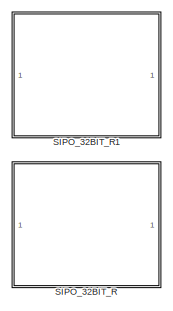
[diagram: REC_I2S_NOFIFO - part 1/2, top right region]
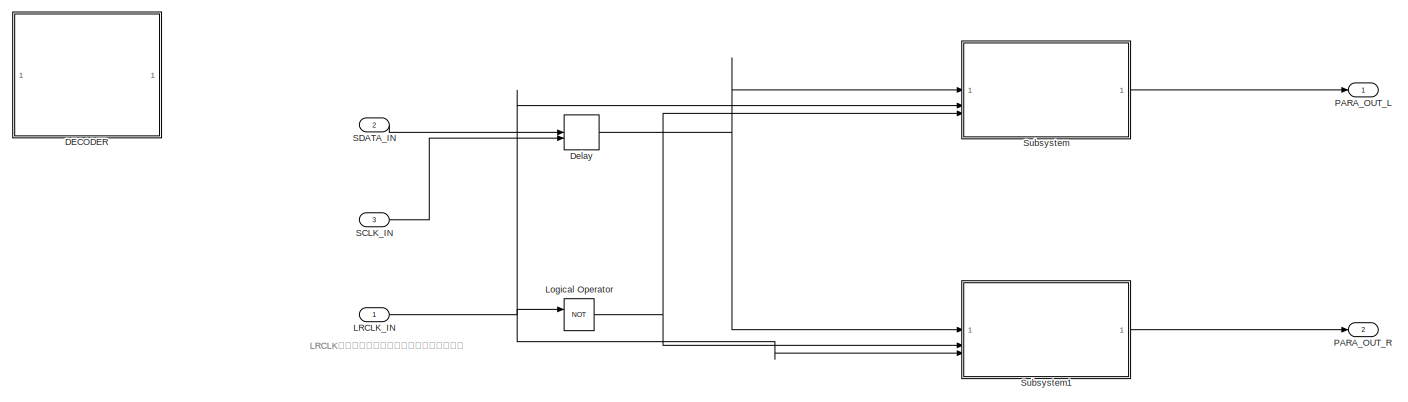
[diagram: REC_I2S_NOFIFO - part 2/2, full width, bottom band]
BLOCK [SubSystem] REC_I2S_NOFIFO
BLOCK [SubSystem] REC_I2S_NOFIFO/DECODER
  Commented = on
BLOCK [Inport] REC_I2S_NOFIFO/DECODER/IN_L
  OutDataTypeStr = boolean
BLOCK [Outport] REC_I2S_NOFIFO/DECODER/L_OUT
  VectorParamsAs1DForOutWhenUnconnected = off
BLOCK [Logic] REC_I2S_NOFIFO/DECODER/Logical Operator
  AllPortsSameDT = off
  OutDataTypeStr = boolean
BLOCK [Logic] REC_I2S_NOFIFO/DECODER/Logical Operator1
  AllPortsSameDT = off
  OutDataTypeStr = boolean
BLOCK [Logic] REC_I2S_NOFIFO/DECODER/Logical Operator2
  AllPortsSameDT = off
  Operator = NOT
  OutDataTypeStr = boolean
BLOCK [Outport] REC_I2S_NOFIFO/DECODER/R_OUT
  Port = 2
  VectorParamsAs1DForOutWhenUnconnected = off
BLOCK [Inport] REC_I2S_NOFIFO/DECODER/SEL
  OutDataTypeStr = boolean
  Port = 2
BLOCK [Delay] REC_I2S_NOFIFO/Delay
  DelayLength = 1
  InitialCondition = 0
  InputPortMap = u0,e6
  ShowEnablePort = on
BLOCK [Inport] REC_I2S_NOFIFO/LRCLK_IN
BLOCK [Logic] REC_I2S_NOFIFO/Logical Operator
  AllPortsSameDT = off
  Operator = NOT
  OutDataTypeStr = boolean
BLOCK [Outport] REC_I2S_NOFIFO/PARA_OUT_L
  OutDataTypeStr = boolean
BLOCK [Outport] REC_I2S_NOFIFO/PARA_OUT_R
  OutDataTypeStr = boolean
  Port = 2
BLOCK [Inport] REC_I2S_NOFIFO/SCLK_IN
  OutDataTypeStr = boolean
  Port = 3
BLOCK [Inport] REC_I2S_NOFIFO/SDATA_IN
  OutDataTypeStr = boolean
  Port = 2
BLOCK [SubSystem] REC_I2S_NOFIFO/SIPO_32BIT_R
  Commented = on
BLOCK [Outport] REC_I2S_NOFIFO/SIPO_32BIT_R/PARA_OUT
  OutDataTypeStr = boolean
  VectorParamsAs1DForOutWhenUnconnected = off
BLOCK [Inport] REC_I2S_NOFIFO/SIPO_32BIT_R/SERIAL_IN
  OutDataTypeStr = boolean
BLOCK [SubSystem] REC_I2S_NOFIFO/SIPO_32BIT_R/Subsystem
BLOCK [Outport] REC_I2S_NOFIFO/SIPO_32BIT_R/Subsystem/PARA_OUT_32BIT
BLOCK [Inport] REC_I2S_NOFIFO/SIPO_32BIT_R/Subsystem/SERIAL_IN
  OutDataTypeStr = boolean
BLOCK [SubSystem] REC_I2S_NOFIFO/SIPO_32BIT_R/Subsystem/SIPO_16BIT
BLOCK [Outport] REC_I2S_NOFIFO/SIPO_32BIT_R/Subsystem/SIPO_16BIT/PARA_OUT
  OutDataTypeStr = boolean
  VectorParamsAs1DForOutWhenUnconnected = off
BLOCK [Inport] REC_I2S_NOFIFO/SIPO_32BIT_R/Subsystem/SIPO_16BIT/SERIAL_IN
  OutDataTypeStr = boolean
BLOCK [Outport] REC_I2S_NOFIFO/SIPO_32BIT_R/Subsystem/SIPO_16BIT/SERIAL_OUT
  OutDataTypeStr = boolean
  Port = 2
  VectorParamsAs1DForOutWhenUnconnected = off
BLOCK [SubSystem] REC_I2S_NOFIFO/SIPO_32BIT_R/Subsystem/SIPO_16BIT/SIPO_8BIT
BLOCK [Outport] REC_I2S_NOFIFO/SIPO_32BIT_R/Subsystem/SIPO_16BIT/SIPO_8BIT/PARA_OUT
  VectorParamsAs1DForOutWhenUnconnected = off
BLOCK [Inport] REC_I2S_NOFIFO/SIPO_32BIT_R/Subsystem/SIPO_16BIT/SIPO_8BIT/SERIAL_IN
  OutDataTypeStr = boolean
BLOCK [Outport] REC_I2S_NOFIFO/SIPO_32BIT_R/Subsystem/SIPO_16BIT/SIPO_8BIT/SERIAL_OUT
  Port = 2
  VectorParamsAs1DForOutWhenUnconnected = off
BLOCK [SubSystem] REC_I2S_NOFIFO/SIPO_32BIT_R/Subsystem/SIPO_16BIT/SIPO_8BIT/SIPO_4BIT
BLOCK [SubSystem] REC_I2S_NOFIFO/SIPO_32BIT_R/Subsystem/SIPO_16BIT/SIPO_8BIT/SIPO_4BIT/2BIT_SIPO
BLOCK [Constant] REC_I2S_NOFIFO/SIPO_32BIT_R/Subsystem/SIPO_16BIT/SIPO_8BIT/SIPO_4BIT/2BIT_SIPO/Constant
  OutDataTypeStr = boolean
  SampleTime = 1
BLOCK [Delay] REC_I2S_NOFIFO/SIPO_32BIT_R/Subsystem/SIPO_16BIT/SIPO_8BIT/SIPO_4BIT/2BIT_SIPO/Delay
  DelayLength = 1
  InitialCondition = 0
  InputPortMap = u0,e6
  SampleTime = 1
  ShowEnablePort = on
BLOCK [Delay] REC_I2S_NOFIFO/SIPO_32BIT_R/Subsystem/SIPO_16BIT/SIPO_8BIT/SIPO_4BIT/2BIT_SIPO/Delay1
  DelayLength = 1
  InitialCondition = 0
  InputPortMap = u0,e6
  SampleTime = 1
  ShowEnablePort = on
BLOCK [Outport] REC_I2S_NOFIFO/SIPO_32BIT_R/Subsystem/SIPO_16BIT/SIPO_8BIT/SIPO_4BIT/2BIT_SIPO/PARA_OUT
  VectorParamsAs1DForOutWhenUnconnected = off
BLOCK [Inport] REC_I2S_NOFIFO/SIPO_32BIT_R/Subsystem/SIPO_16BIT/SIPO_8BIT/SIPO_4BIT/2BIT_SIPO/SERIAL_IN
BLOCK [Outport] REC_I2S_NOFIFO/SIPO_32BIT_R/Subsystem/SIPO_16BIT/SIPO_8BIT/SIPO_4BIT/2BIT_SIPO/SERIAL_OUT
  Port = 2
  VectorParamsAs1DForOutWhenUnconnected = off
BLOCK [Concatenate] REC_I2S_NOFIFO/SIPO_32BIT_R/Subsystem/SIPO_16BIT/SIPO_8BIT/SIPO_4BIT/2BIT_SIPO/Vector Concatenate
BLOCK [SubSystem] REC_I2S_NOFIFO/SIPO_32BIT_R/Subsystem/SIPO_16BIT/SIPO_8BIT/SIPO_4BIT/2BIT_SIPO1
BLOCK [Constant] REC_I2S_NOFIFO/SIPO_32BIT_R/Subsystem/SIPO_16BIT/SIPO_8BIT/SIPO_4BIT/2BIT_SIPO1/Constant
  OutDataTypeStr = boolean
  SampleTime = 1
BLOCK [Delay] REC_I2S_NOFIFO/SIPO_32BIT_R/Subsystem/SIPO_16BIT/SIPO_8BIT/SIPO_4BIT/2BIT_SIPO1/Delay
  DelayLength = 1
  InitialCondition = 0
  InputPortMap = u0,e6
  SampleTime = 1
  ShowEnablePort = on
BLOCK [Delay] REC_I2S_NOFIFO/SIPO_32BIT_R/Subsystem/SIPO_16BIT/SIPO_8BIT/SIPO_4BIT/2BIT_SIPO1/Delay1
  DelayLength = 1
  InitialCondition = 0
  InputPortMap = u0,e6
  SampleTime = 1
  ShowEnablePort = on
BLOCK [Outport] REC_I2S_NOFIFO/SIPO_32BIT_R/Subsystem/SIPO_16BIT/SIPO_8BIT/SIPO_4BIT/2BIT_SIPO1/PARA_OUT
  VectorParamsAs1DForOutWhenUnconnected = off
BLOCK [Inport] REC_I2S_NOFIFO/SIPO_32BIT_R/Subsystem/SIPO_16BIT/SIPO_8BIT/SIPO_4BIT/2BIT_SIPO1/SERIAL_IN
BLOCK [Outport] REC_I2S_NOFIFO/SIPO_32BIT_R/Subsystem/SIPO_16BIT/SIPO_8BIT/SIPO_4BIT/2BIT_SIPO1/SERIAL_OUT
  Port = 2
  VectorParamsAs1DForOutWhenUnconnected = off
BLOCK [Concatenate] REC_I2S_NOFIFO/SIPO_32BIT_R/Subsystem/SIPO_16BIT/SIPO_8BIT/SIPO_4BIT/2BIT_SIPO1/Vector Concatenate
BLOCK [Outport] REC_I2S_NOFIFO/SIPO_32BIT_R/Subsystem/SIPO_16BIT/SIPO_8BIT/SIPO_4BIT/PARA_OUT
  VectorParamsAs1DForOutWhenUnconnected = off
BLOCK [Inport] REC_I2S_NOFIFO/SIPO_32BIT_R/Subsystem/SIPO_16BIT/SIPO_8BIT/SIPO_4BIT/SERIAL_IN
BLOCK [Outport] REC_I2S_NOFIFO/SIPO_32BIT_R/Subsystem/SIPO_16BIT/SIPO_8BIT/SIPO_4BIT/SERIAL_OUT
  Port = 2
  VectorParamsAs1DForOutWhenUnconnected = off
BLOCK [Concatenate] REC_I2S_NOFIFO/SIPO_32BIT_R/Subsystem/SIPO_16BIT/SIPO_8BIT/SIPO_4BIT/Vector Concatenate
BLOCK [SubSystem] REC_I2S_NOFIFO/SIPO_32BIT_R/Subsystem/SIPO_16BIT/SIPO_8BIT/SIPO_4BIT1
BLOCK [SubSystem] REC_I2S_NOFIFO/SIPO_32BIT_R/Subsystem/SIPO_16BIT/SIPO_8BIT/SIPO_4BIT1/2BIT_SIPO
BLOCK [Constant] REC_I2S_NOFIFO/SIPO_32BIT_R/Subsystem/SIPO_16BIT/SIPO_8BIT/SIPO_4BIT1/2BIT_SIPO/Constant
  OutDataTypeStr = boolean
  SampleTime = 1
BLOCK [Delay] REC_I2S_NOFIFO/SIPO_32BIT_R/Subsystem/SIPO_16BIT/SIPO_8BIT/SIPO_4BIT1/2BIT_SIPO/Delay
  DelayLength = 1
  InitialCondition = 0
  InputPortMap = u0,e6
  SampleTime = 1
  ShowEnablePort = on
BLOCK [Delay] REC_I2S_NOFIFO/SIPO_32BIT_R/Subsystem/SIPO_16BIT/SIPO_8BIT/SIPO_4BIT1/2BIT_SIPO/Delay1
  DelayLength = 1
  InitialCondition = 0
  InputPortMap = u0,e6
  SampleTime = 1
  ShowEnablePort = on
BLOCK [Outport] REC_I2S_NOFIFO/SIPO_32BIT_R/Subsystem/SIPO_16BIT/SIPO_8BIT/SIPO_4BIT1/2BIT_SIPO/PARA_OUT
  VectorParamsAs1DForOutWhenUnconnected = off
BLOCK [Inport] REC_I2S_NOFIFO/SIPO_32BIT_R/Subsystem/SIPO_16BIT/SIPO_8BIT/SIPO_4BIT1/2BIT_SIPO/SERIAL_IN
BLOCK [Outport] REC_I2S_NOFIFO/SIPO_32BIT_R/Subsystem/SIPO_16BIT/SIPO_8BIT/SIPO_4BIT1/2BIT_SIPO/SERIAL_OUT
  Port = 2
  VectorParamsAs1DForOutWhenUnconnected = off
BLOCK [Concatenate] REC_I2S_NOFIFO/SIPO_32BIT_R/Subsystem/SIPO_16BIT/SIPO_8BIT/SIPO_4BIT1/2BIT_SIPO/Vector Concatenate
BLOCK [SubSystem] REC_I2S_NOFIFO/SIPO_32BIT_R/Subsystem/SIPO_16BIT/SIPO_8BIT/SIPO_4BIT1/2BIT_SIPO1
BLOCK [Constant] REC_I2S_NOFIFO/SIPO_32BIT_R/Subsystem/SIPO_16BIT/SIPO_8BIT/SIPO_4BIT1/2BIT_SIPO1/Constant
  OutDataTypeStr = boolean
  SampleTime = 1
BLOCK [Delay] REC_I2S_NOFIFO/SIPO_32BIT_R/Subsystem/SIPO_16BIT/SIPO_8BIT/SIPO_4BIT1/2BIT_SIPO1/Delay
  DelayLength = 1
  InitialCondition = 0
  InputPortMap = u0,e6
  SampleTime = 1
  ShowEnablePort = on
BLOCK [Delay] REC_I2S_NOFIFO/SIPO_32BIT_R/Subsystem/SIPO_16BIT/SIPO_8BIT/SIPO_4BIT1/2BIT_SIPO1/Delay1
  DelayLength = 1
  InitialCondition = 0
  InputPortMap = u0,e6
  SampleTime = 1
  ShowEnablePort = on
BLOCK [Outport] REC_I2S_NOFIFO/SIPO_32BIT_R/Subsystem/SIPO_16BIT/SIPO_8BIT/SIPO_4BIT1/2BIT_SIPO1/PARA_OUT
  VectorParamsAs1DForOutWhenUnconnected = off
BLOCK [Inport] REC_I2S_NOFIFO/SIPO_32BIT_R/Subsystem/SIPO_16BIT/SIPO_8BIT/SIPO_4BIT1/2BIT_SIPO1/SERIAL_IN
BLOCK [Outport] REC_I2S_NOFIFO/SIPO_32BIT_R/Subsystem/SIPO_16BIT/SIPO_8BIT/SIPO_4BIT1/2BIT_SIPO1/SERIAL_OUT
  Port = 2
  VectorParamsAs1DForOutWhenUnconnected = off
BLOCK [Concatenate] REC_I2S_NOFIFO/SIPO_32BIT_R/Subsystem/SIPO_16BIT/SIPO_8BIT/SIPO_4BIT1/2BIT_SIPO1/Vector Concatenate
BLOCK [Outport] REC_I2S_NOFIFO/SIPO_32BIT_R/Subsystem/SIPO_16BIT/SIPO_8BIT/SIPO_4BIT1/PARA_OUT
  VectorParamsAs1DForOutWhenUnconnected = off
BLOCK [Inport] REC_I2S_NOFIFO/SIPO_32BIT_R/Subsystem/SIPO_16BIT/SIPO_8BIT/SIPO_4BIT1/SERIAL_IN
BLOCK [Outport] REC_I2S_NOFIFO/SIPO_32BIT_R/Subsystem/SIPO_16BIT/SIPO_8BIT/SIPO_4BIT1/SERIAL_OUT
  Port = 2
  VectorParamsAs1DForOutWhenUnconnected = off
BLOCK [Concatenate] REC_I2S_NOFIFO/SIPO_32BIT_R/Subsystem/SIPO_16BIT/SIPO_8BIT/SIPO_4BIT1/Vector Concatenate
BLOCK [Concatenate] REC_I2S_NOFIFO/SIPO_32BIT_R/Subsystem/SIPO_16BIT/SIPO_8BIT/Vector Concatenate
BLOCK [SubSystem] REC_I2S_NOFIFO/SIPO_32BIT_R/Subsystem/SIPO_16BIT/SIPO_8BIT1
BLOCK [Outport] REC_I2S_NOFIFO/SIPO_32BIT_R/Subsystem/SIPO_16BIT/SIPO_8BIT1/PARA_OUT
  VectorParamsAs1DForOutWhenUnconnected = off
BLOCK [Inport] REC_I2S_NOFIFO/SIPO_32BIT_R/Subsystem/SIPO_16BIT/SIPO_8BIT1/SERIAL_IN
  OutDataTypeStr = boolean
BLOCK [Outport] REC_I2S_NOFIFO/SIPO_32BIT_R/Subsystem/SIPO_16BIT/SIPO_8BIT1/SERIAL_OUT
  Port = 2
  VectorParamsAs1DForOutWhenUnconnected = off
BLOCK [SubSystem] REC_I2S_NOFIFO/SIPO_32BIT_R/Subsystem/SIPO_16BIT/SIPO_8BIT1/SIPO_4BIT
BLOCK [SubSystem] REC_I2S_NOFIFO/SIPO_32BIT_R/Subsystem/SIPO_16BIT/SIPO_8BIT1/SIPO_4BIT/2BIT_SIPO
BLOCK [Constant] REC_I2S_NOFIFO/SIPO_32BIT_R/Subsystem/SIPO_16BIT/SIPO_8BIT1/SIPO_4BIT/2BIT_SIPO/Constant
  OutDataTypeStr = boolean
  SampleTime = 1
BLOCK [Delay] REC_I2S_NOFIFO/SIPO_32BIT_R/Subsystem/SIPO_16BIT/SIPO_8BIT1/SIPO_4BIT/2BIT_SIPO/Delay
  DelayLength = 1
  InitialCondition = 0
  InputPortMap = u0,e6
  SampleTime = 1
  ShowEnablePort = on
BLOCK [Delay] REC_I2S_NOFIFO/SIPO_32BIT_R/Subsystem/SIPO_16BIT/SIPO_8BIT1/SIPO_4BIT/2BIT_SIPO/Delay1
  DelayLength = 1
  InitialCondition = 0
  InputPortMap = u0,e6
  SampleTime = 1
  ShowEnablePort = on
BLOCK [Outport] REC_I2S_NOFIFO/SIPO_32BIT_R/Subsystem/SIPO_16BIT/SIPO_8BIT1/SIPO_4BIT/2BIT_SIPO/PARA_OUT
  VectorParamsAs1DForOutWhenUnconnected = off
BLOCK [Inport] REC_I2S_NOFIFO/SIPO_32BIT_R/Subsystem/SIPO_16BIT/SIPO_8BIT1/SIPO_4BIT/2BIT_SIPO/SERIAL_IN
BLOCK [Outport] REC_I2S_NOFIFO/SIPO_32BIT_R/Subsystem/SIPO_16BIT/SIPO_8BIT1/SIPO_4BIT/2BIT_SIPO/SERIAL_OUT
  Port = 2
  VectorParamsAs1DForOutWhenUnconnected = off
BLOCK [Concatenate] REC_I2S_NOFIFO/SIPO_32BIT_R/Subsystem/SIPO_16BIT/SIPO_8BIT1/SIPO_4BIT/2BIT_SIPO/Vector Concatenate
BLOCK [SubSystem] REC_I2S_NOFIFO/SIPO_32BIT_R/Subsystem/SIPO_16BIT/SIPO_8BIT1/SIPO_4BIT/2BIT_SIPO1
BLOCK [Constant] REC_I2S_NOFIFO/SIPO_32BIT_R/Subsystem/SIPO_16BIT/SIPO_8BIT1/SIPO_4BIT/2BIT_SIPO1/Constant
  OutDataTypeStr = boolean
  SampleTime = 1
BLOCK [Delay] REC_I2S_NOFIFO/SIPO_32BIT_R/Subsystem/SIPO_16BIT/SIPO_8BIT1/SIPO_4BIT/2BIT_SIPO1/Delay
  DelayLength = 1
  InitialCondition = 0
  InputPortMap = u0,e6
  SampleTime = 1
  ShowEnablePort = on
BLOCK [Delay] REC_I2S_NOFIFO/SIPO_32BIT_R/Subsystem/SIPO_16BIT/SIPO_8BIT1/SIPO_4BIT/2BIT_SIPO1/Delay1
  DelayLength = 1
  InitialCondition = 0
  InputPortMap = u0,e6
  SampleTime = 1
  ShowEnablePort = on
BLOCK [Outport] REC_I2S_NOFIFO/SIPO_32BIT_R/Subsystem/SIPO_16BIT/SIPO_8BIT1/SIPO_4BIT/2BIT_SIPO1/PARA_OUT
  VectorParamsAs1DForOutWhenUnconnected = off
BLOCK [Inport] REC_I2S_NOFIFO/SIPO_32BIT_R/Subsystem/SIPO_16BIT/SIPO_8BIT1/SIPO_4BIT/2BIT_SIPO1/SERIAL_IN
BLOCK [Outport] REC_I2S_NOFIFO/SIPO_32BIT_R/Subsystem/SIPO_16BIT/SIPO_8BIT1/SIPO_4BIT/2BIT_SIPO1/SERIAL_OUT
  Port = 2
  VectorParamsAs1DForOutWhenUnconnected = off
BLOCK [Concatenate] REC_I2S_NOFIFO/SIPO_32BIT_R/Subsystem/SIPO_16BIT/SIPO_8BIT1/SIPO_4BIT/2BIT_SIPO1/Vector Concatenate
BLOCK [Outport] REC_I2S_NOFIFO/SIPO_32BIT_R/Subsystem/SIPO_16BIT/SIPO_8BIT1/SIPO_4BIT/PARA_OUT
  VectorParamsAs1DForOutWhenUnconnected = off
BLOCK [Inport] REC_I2S_NOFIFO/SIPO_32BIT_R/Subsystem/SIPO_16BIT/SIPO_8BIT1/SIPO_4BIT/SERIAL_IN
BLOCK [Outport] REC_I2S_NOFIFO/SIPO_32BIT_R/Subsystem/SIPO_16BIT/SIPO_8BIT1/SIPO_4BIT/SERIAL_OUT
  Port = 2
  VectorParamsAs1DForOutWhenUnconnected = off
BLOCK [Concatenate] REC_I2S_NOFIFO/SIPO_32BIT_R/Subsystem/SIPO_16BIT/SIPO_8BIT1/SIPO_4BIT/Vector Concatenate
BLOCK [SubSystem] REC_I2S_NOFIFO/SIPO_32BIT_R/Subsystem/SIPO_16BIT/SIPO_8BIT1/SIPO_4BIT1
BLOCK [SubSystem] REC_I2S_NOFIFO/SIPO_32BIT_R/Subsystem/SIPO_16BIT/SIPO_8BIT1/SIPO_4BIT1/2BIT_SIPO
BLOCK [Constant] REC_I2S_NOFIFO/SIPO_32BIT_R/Subsystem/SIPO_16BIT/SIPO_8BIT1/SIPO_4BIT1/2BIT_SIPO/Constant
  OutDataTypeStr = boolean
  SampleTime = 1
BLOCK [Delay] REC_I2S_NOFIFO/SIPO_32BIT_R/Subsystem/SIPO_16BIT/SIPO_8BIT1/SIPO_4BIT1/2BIT_SIPO/Delay
  DelayLength = 1
  InitialCondition = 0
  InputPortMap = u0,e6
  SampleTime = 1
  ShowEnablePort = on
BLOCK [Delay] REC_I2S_NOFIFO/SIPO_32BIT_R/Subsystem/SIPO_16BIT/SIPO_8BIT1/SIPO_4BIT1/2BIT_SIPO/Delay1
  DelayLength = 1
  InitialCondition = 0
  InputPortMap = u0,e6
  SampleTime = 1
  ShowEnablePort = on
BLOCK [Outport] REC_I2S_NOFIFO/SIPO_32BIT_R/Subsystem/SIPO_16BIT/SIPO_8BIT1/SIPO_4BIT1/2BIT_SIPO/PARA_OUT
  VectorParamsAs1DForOutWhenUnconnected = off
BLOCK [Inport] REC_I2S_NOFIFO/SIPO_32BIT_R/Subsystem/SIPO_16BIT/SIPO_8BIT1/SIPO_4BIT1/2BIT_SIPO/SERIAL_IN
BLOCK [Outport] REC_I2S_NOFIFO/SIPO_32BIT_R/Subsystem/SIPO_16BIT/SIPO_8BIT1/SIPO_4BIT1/2BIT_SIPO/SERIAL_OUT
  Port = 2
  VectorParamsAs1DForOutWhenUnconnected = off
BLOCK [Concatenate] REC_I2S_NOFIFO/SIPO_32BIT_R/Subsystem/SIPO_16BIT/SIPO_8BIT1/SIPO_4BIT1/2BIT_SIPO/Vector Concatenate
BLOCK [SubSystem] REC_I2S_NOFIFO/SIPO_32BIT_R/Subsystem/SIPO_16BIT/SIPO_8BIT1/SIPO_4BIT1/2BIT_SIPO1
BLOCK [Constant] REC_I2S_NOFIFO/SIPO_32BIT_R/Subsystem/SIPO_16BIT/SIPO_8BIT1/SIPO_4BIT1/2BIT_SIPO1/Constant
  OutDataTypeStr = boolean
  SampleTime = 1
BLOCK [Delay] REC_I2S_NOFIFO/SIPO_32BIT_R/Subsystem/SIPO_16BIT/SIPO_8BIT1/SIPO_4BIT1/2BIT_SIPO1/Delay
  DelayLength = 1
  InitialCondition = 0
  InputPortMap = u0,e6
  SampleTime = 1
  ShowEnablePort = on
BLOCK [Delay] REC_I2S_NOFIFO/SIPO_32BIT_R/Subsystem/SIPO_16BIT/SIPO_8BIT1/SIPO_4BIT1/2BIT_SIPO1/Delay1
  DelayLength = 1
  InitialCondition = 0
  InputPortMap = u0,e6
  SampleTime = 1
  ShowEnablePort = on
BLOCK [Outport] REC_I2S_NOFIFO/SIPO_32BIT_R/Subsystem/SIPO_16BIT/SIPO_8BIT1/SIPO_4BIT1/2BIT_SIPO1/PARA_OUT
  VectorParamsAs1DForOutWhenUnconnected = off
BLOCK [Inport] REC_I2S_NOFIFO/SIPO_32BIT_R/Subsystem/SIPO_16BIT/SIPO_8BIT1/SIPO_4BIT1/2BIT_SIPO1/SERIAL_IN
BLOCK [Outport] REC_I2S_NOFIFO/SIPO_32BIT_R/Subsystem/SIPO_16BIT/SIPO_8BIT1/SIPO_4BIT1/2BIT_SIPO1/SERIAL_OUT
  Port = 2
  VectorParamsAs1DForOutWhenUnconnected = off
BLOCK [Concatenate] REC_I2S_NOFIFO/SIPO_32BIT_R/Subsystem/SIPO_16BIT/SIPO_8BIT1/SIPO_4BIT1/2BIT_SIPO1/Vector Concatenate
BLOCK [Outport] REC_I2S_NOFIFO/SIPO_32BIT_R/Subsystem/SIPO_16BIT/SIPO_8BIT1/SIPO_4BIT1/PARA_OUT
  VectorParamsAs1DForOutWhenUnconnected = off
BLOCK [Inport] REC_I2S_NOFIFO/SIPO_32BIT_R/Subsystem/SIPO_16BIT/SIPO_8BIT1/SIPO_4BIT1/SERIAL_IN
BLOCK [Outport] REC_I2S_NOFIFO/SIPO_32BIT_R/Subsystem/SIPO_16BIT/SIPO_8BIT1/SIPO_4BIT1/SERIAL_OUT
  Port = 2
  VectorParamsAs1DForOutWhenUnconnected = off
BLOCK [Concatenate] REC_I2S_NOFIFO/SIPO_32BIT_R/Subsystem/SIPO_16BIT/SIPO_8BIT1/SIPO_4BIT1/Vector Concatenate
BLOCK [Concatenate] REC_I2S_NOFIFO/SIPO_32BIT_R/Subsystem/SIPO_16BIT/SIPO_8BIT1/Vector Concatenate
BLOCK [Concatenate] REC_I2S_NOFIFO/SIPO_32BIT_R/Subsystem/SIPO_16BIT/Vector Concatenate
BLOCK [SubSystem] REC_I2S_NOFIFO/SIPO_32BIT_R/Subsystem/SIPO_16BIT1
BLOCK [Outport] REC_I2S_NOFIFO/SIPO_32BIT_R/Subsystem/SIPO_16BIT1/PARA_OUT
  OutDataTypeStr = boolean
  VectorParamsAs1DForOutWhenUnconnected = off
BLOCK [Inport] REC_I2S_NOFIFO/SIPO_32BIT_R/Subsystem/SIPO_16BIT1/SERIAL_IN
  OutDataTypeStr = boolean
BLOCK [Outport] REC_I2S_NOFIFO/SIPO_32BIT_R/Subsystem/SIPO_16BIT1/SERIAL_OUT
  OutDataTypeStr = boolean
  Port = 2
  VectorParamsAs1DForOutWhenUnconnected = off
BLOCK [SubSystem] REC_I2S_NOFIFO/SIPO_32BIT_R/Subsystem/SIPO_16BIT1/SIPO_8BIT
BLOCK [Outport] REC_I2S_NOFIFO/SIPO_32BIT_R/Subsystem/SIPO_16BIT1/SIPO_8BIT/PARA_OUT
  VectorParamsAs1DForOutWhenUnconnected = off
BLOCK [Inport] REC_I2S_NOFIFO/SIPO_32BIT_R/Subsystem/SIPO_16BIT1/SIPO_8BIT/SERIAL_IN
  OutDataTypeStr = boolean
BLOCK [Outport] REC_I2S_NOFIFO/SIPO_32BIT_R/Subsystem/SIPO_16BIT1/SIPO_8BIT/SERIAL_OUT
  Port = 2
  VectorParamsAs1DForOutWhenUnconnected = off
BLOCK [SubSystem] REC_I2S_NOFIFO/SIPO_32BIT_R/Subsystem/SIPO_16BIT1/SIPO_8BIT/SIPO_4BIT
BLOCK [SubSystem] REC_I2S_NOFIFO/SIPO_32BIT_R/Subsystem/SIPO_16BIT1/SIPO_8BIT/SIPO_4BIT/2BIT_SIPO
BLOCK [Constant] REC_I2S_NOFIFO/SIPO_32BIT_R/Subsystem/SIPO_16BIT1/SIPO_8BIT/SIPO_4BIT/2BIT_SIPO/Constant
  OutDataTypeStr = boolean
  SampleTime = 1
BLOCK [Delay] REC_I2S_NOFIFO/SIPO_32BIT_R/Subsystem/SIPO_16BIT1/SIPO_8BIT/SIPO_4BIT/2BIT_SIPO/Delay
  DelayLength = 1
  InitialCondition = 0
  InputPortMap = u0,e6
  SampleTime = 1
  ShowEnablePort = on
BLOCK [Delay] REC_I2S_NOFIFO/SIPO_32BIT_R/Subsystem/SIPO_16BIT1/SIPO_8BIT/SIPO_4BIT/2BIT_SIPO/Delay1
  DelayLength = 1
  InitialCondition = 0
  InputPortMap = u0,e6
  SampleTime = 1
  ShowEnablePort = on
BLOCK [Outport] REC_I2S_NOFIFO/SIPO_32BIT_R/Subsystem/SIPO_16BIT1/SIPO_8BIT/SIPO_4BIT/2BIT_SIPO/PARA_OUT
  VectorParamsAs1DForOutWhenUnconnected = off
BLOCK [Inport] REC_I2S_NOFIFO/SIPO_32BIT_R/Subsystem/SIPO_16BIT1/SIPO_8BIT/SIPO_4BIT/2BIT_SIPO/SERIAL_IN
BLOCK [Outport] REC_I2S_NOFIFO/SIPO_32BIT_R/Subsystem/SIPO_16BIT1/SIPO_8BIT/SIPO_4BIT/2BIT_SIPO/SERIAL_OUT
  Port = 2
  VectorParamsAs1DForOutWhenUnconnected = off
BLOCK [Concatenate] REC_I2S_NOFIFO/SIPO_32BIT_R/Subsystem/SIPO_16BIT1/SIPO_8BIT/SIPO_4BIT/2BIT_SIPO/Vector Concatenate
BLOCK [SubSystem] REC_I2S_NOFIFO/SIPO_32BIT_R/Subsystem/SIPO_16BIT1/SIPO_8BIT/SIPO_4BIT/2BIT_SIPO1
BLOCK [Constant] REC_I2S_NOFIFO/SIPO_32BIT_R/Subsystem/SIPO_16BIT1/SIPO_8BIT/SIPO_4BIT/2BIT_SIPO1/Constant
  OutDataTypeStr = boolean
  SampleTime = 1
BLOCK [Delay] REC_I2S_NOFIFO/SIPO_32BIT_R/Subsystem/SIPO_16BIT1/SIPO_8BIT/SIPO_4BIT/2BIT_SIPO1/Delay
  DelayLength = 1
  InitialCondition = 0
  InputPortMap = u0,e6
  SampleTime = 1
  ShowEnablePort = on
BLOCK [Delay] REC_I2S_NOFIFO/SIPO_32BIT_R/Subsystem/SIPO_16BIT1/SIPO_8BIT/SIPO_4BIT/2BIT_SIPO1/Delay1
  DelayLength = 1
  InitialCondition = 0
  InputPortMap = u0,e6
  SampleTime = 1
  ShowEnablePort = on
BLOCK [Outport] REC_I2S_NOFIFO/SIPO_32BIT_R/Subsystem/SIPO_16BIT1/SIPO_8BIT/SIPO_4BIT/2BIT_SIPO1/PARA_OUT
  VectorParamsAs1DForOutWhenUnconnected = off
BLOCK [Inport] REC_I2S_NOFIFO/SIPO_32BIT_R/Subsystem/SIPO_16BIT1/SIPO_8BIT/SIPO_4BIT/2BIT_SIPO1/SERIAL_IN
BLOCK [Outport] REC_I2S_NOFIFO/SIPO_32BIT_R/Subsystem/SIPO_16BIT1/SIPO_8BIT/SIPO_4BIT/2BIT_SIPO1/SERIAL_OUT
  Port = 2
  VectorParamsAs1DForOutWhenUnconnected = off
BLOCK [Concatenate] REC_I2S_NOFIFO/SIPO_32BIT_R/Subsystem/SIPO_16BIT1/SIPO_8BIT/SIPO_4BIT/2BIT_SIPO1/Vector Concatenate
BLOCK [Outport] REC_I2S_NOFIFO/SIPO_32BIT_R/Subsystem/SIPO_16BIT1/SIPO_8BIT/SIPO_4BIT/PARA_OUT
  VectorParamsAs1DForOutWhenUnconnected = off
BLOCK [Inport] REC_I2S_NOFIFO/SIPO_32BIT_R/Subsystem/SIPO_16BIT1/SIPO_8BIT/SIPO_4BIT/SERIAL_IN
BLOCK [Outport] REC_I2S_NOFIFO/SIPO_32BIT_R/Subsystem/SIPO_16BIT1/SIPO_8BIT/SIPO_4BIT/SERIAL_OUT
  Port = 2
  VectorParamsAs1DForOutWhenUnconnected = off
BLOCK [Concatenate] REC_I2S_NOFIFO/SIPO_32BIT_R/Subsystem/SIPO_16BIT1/SIPO_8BIT/SIPO_4BIT/Vector Concatenate
BLOCK [SubSystem] REC_I2S_NOFIFO/SIPO_32BIT_R/Subsystem/SIPO_16BIT1/SIPO_8BIT/SIPO_4BIT1
BLOCK [SubSystem] REC_I2S_NOFIFO/SIPO_32BIT_R/Subsystem/SIPO_16BIT1/SIPO_8BIT/SIPO_4BIT1/2BIT_SIPO
BLOCK [Constant] REC_I2S_NOFIFO/SIPO_32BIT_R/Subsystem/SIPO_16BIT1/SIPO_8BIT/SIPO_4BIT1/2BIT_SIPO/Constant
  OutDataTypeStr = boolean
  SampleTime = 1
BLOCK [Delay] REC_I2S_NOFIFO/SIPO_32BIT_R/Subsystem/SIPO_16BIT1/SIPO_8BIT/SIPO_4BIT1/2BIT_SIPO/Delay
  DelayLength = 1
  InitialCondition = 0
  InputPortMap = u0,e6
  SampleTime = 1
  ShowEnablePort = on
BLOCK [Delay] REC_I2S_NOFIFO/SIPO_32BIT_R/Subsystem/SIPO_16BIT1/SIPO_8BIT/SIPO_4BIT1/2BIT_SIPO/Delay1
  DelayLength = 1
  InitialCondition = 0
  InputPortMap = u0,e6
  SampleTime = 1
  ShowEnablePort = on
BLOCK [Outport] REC_I2S_NOFIFO/SIPO_32BIT_R/Subsystem/SIPO_16BIT1/SIPO_8BIT/SIPO_4BIT1/2BIT_SIPO/PARA_OUT
  VectorParamsAs1DForOutWhenUnconnected = off
BLOCK [Inport] REC_I2S_NOFIFO/SIPO_32BIT_R/Subsystem/SIPO_16BIT1/SIPO_8BIT/SIPO_4BIT1/2BIT_SIPO/SERIAL_IN
BLOCK [Outport] REC_I2S_NOFIFO/SIPO_32BIT_R/Subsystem/SIPO_16BIT1/SIPO_8BIT/SIPO_4BIT1/2BIT_SIPO/SERIAL_OUT
  Port = 2
  VectorParamsAs1DForOutWhenUnconnected = off
BLOCK [Concatenate] REC_I2S_NOFIFO/SIPO_32BIT_R/Subsystem/SIPO_16BIT1/SIPO_8BIT/SIPO_4BIT1/2BIT_SIPO/Vector Concatenate
BLOCK [SubSystem] REC_I2S_NOFIFO/SIPO_32BIT_R/Subsystem/SIPO_16BIT1/SIPO_8BIT/SIPO_4BIT1/2BIT_SIPO1
BLOCK [Constant] REC_I2S_NOFIFO/SIPO_32BIT_R/Subsystem/SIPO_16BIT1/SIPO_8BIT/SIPO_4BIT1/2BIT_SIPO1/Constant
  OutDataTypeStr = boolean
  SampleTime = 1
BLOCK [Delay] REC_I2S_NOFIFO/SIPO_32BIT_R/Subsystem/SIPO_16BIT1/SIPO_8BIT/SIPO_4BIT1/2BIT_SIPO1/Delay
  DelayLength = 1
  InitialCondition = 0
  InputPortMap = u0,e6
  SampleTime = 1
  ShowEnablePort = on
BLOCK [Delay] REC_I2S_NOFIFO/SIPO_32BIT_R/Subsystem/SIPO_16BIT1/SIPO_8BIT/SIPO_4BIT1/2BIT_SIPO1/Delay1
  DelayLength = 1
  InitialCondition = 0
  InputPortMap = u0,e6
  SampleTime = 1
  ShowEnablePort = on
BLOCK [Outport] REC_I2S_NOFIFO/SIPO_32BIT_R/Subsystem/SIPO_16BIT1/SIPO_8BIT/SIPO_4BIT1/2BIT_SIPO1/PARA_OUT
  VectorParamsAs1DForOutWhenUnconnected = off
BLOCK [Inport] REC_I2S_NOFIFO/SIPO_32BIT_R/Subsystem/SIPO_16BIT1/SIPO_8BIT/SIPO_4BIT1/2BIT_SIPO1/SERIAL_IN
BLOCK [Outport] REC_I2S_NOFIFO/SIPO_32BIT_R/Subsystem/SIPO_16BIT1/SIPO_8BIT/SIPO_4BIT1/2BIT_SIPO1/SERIAL_OUT
  Port = 2
  VectorParamsAs1DForOutWhenUnconnected = off
BLOCK [Concatenate] REC_I2S_NOFIFO/SIPO_32BIT_R/Subsystem/SIPO_16BIT1/SIPO_8BIT/SIPO_4BIT1/2BIT_SIPO1/Vector Concatenate
BLOCK [Outport] REC_I2S_NOFIFO/SIPO_32BIT_R/Subsystem/SIPO_16BIT1/SIPO_8BIT/SIPO_4BIT1/PARA_OUT
  VectorParamsAs1DForOutWhenUnconnected = off
BLOCK [Inport] REC_I2S_NOFIFO/SIPO_32BIT_R/Subsystem/SIPO_16BIT1/SIPO_8BIT/SIPO_4BIT1/SERIAL_IN
BLOCK [Outport] REC_I2S_NOFIFO/SIPO_32BIT_R/Subsystem/SIPO_16BIT1/SIPO_8BIT/SIPO_4BIT1/SERIAL_OUT
  Port = 2
  VectorParamsAs1DForOutWhenUnconnected = off
BLOCK [Concatenate] REC_I2S_NOFIFO/SIPO_32BIT_R/Subsystem/SIPO_16BIT1/SIPO_8BIT/SIPO_4BIT1/Vector Concatenate
BLOCK [Concatenate] REC_I2S_NOFIFO/SIPO_32BIT_R/Subsystem/SIPO_16BIT1/SIPO_8BIT/Vector Concatenate
BLOCK [SubSystem] REC_I2S_NOFIFO/SIPO_32BIT_R/Subsystem/SIPO_16BIT1/SIPO_8BIT1
BLOCK [Outport] REC_I2S_NOFIFO/SIPO_32BIT_R/Subsystem/SIPO_16BIT1/SIPO_8BIT1/PARA_OUT
  VectorParamsAs1DForOutWhenUnconnected = off
BLOCK [Inport] REC_I2S_NOFIFO/SIPO_32BIT_R/Subsystem/SIPO_16BIT1/SIPO_8BIT1/SERIAL_IN
  OutDataTypeStr = boolean
BLOCK [Outport] REC_I2S_NOFIFO/SIPO_32BIT_R/Subsystem/SIPO_16BIT1/SIPO_8BIT1/SERIAL_OUT
  Port = 2
  VectorParamsAs1DForOutWhenUnconnected = off
BLOCK [SubSystem] REC_I2S_NOFIFO/SIPO_32BIT_R/Subsystem/SIPO_16BIT1/SIPO_8BIT1/SIPO_4BIT
BLOCK [SubSystem] REC_I2S_NOFIFO/SIPO_32BIT_R/Subsystem/SIPO_16BIT1/SIPO_8BIT1/SIPO_4BIT/2BIT_SIPO
BLOCK [Constant] REC_I2S_NOFIFO/SIPO_32BIT_R/Subsystem/SIPO_16BIT1/SIPO_8BIT1/SIPO_4BIT/2BIT_SIPO/Constant
  OutDataTypeStr = boolean
  SampleTime = 1
BLOCK [Delay] REC_I2S_NOFIFO/SIPO_32BIT_R/Subsystem/SIPO_16BIT1/SIPO_8BIT1/SIPO_4BIT/2BIT_SIPO/Delay
  DelayLength = 1
  InitialCondition = 0
  InputPortMap = u0,e6
  SampleTime = 1
  ShowEnablePort = on
BLOCK [Delay] REC_I2S_NOFIFO/SIPO_32BIT_R/Subsystem/SIPO_16BIT1/SIPO_8BIT1/SIPO_4BIT/2BIT_SIPO/Delay1
  DelayLength = 1
  InitialCondition = 0
  InputPortMap = u0,e6
  SampleTime = 1
  ShowEnablePort = on
BLOCK [Outport] REC_I2S_NOFIFO/SIPO_32BIT_R/Subsystem/SIPO_16BIT1/SIPO_8BIT1/SIPO_4BIT/2BIT_SIPO/PARA_OUT
  VectorParamsAs1DForOutWhenUnconnected = off
BLOCK [Inport] REC_I2S_NOFIFO/SIPO_32BIT_R/Subsystem/SIPO_16BIT1/SIPO_8BIT1/SIPO_4BIT/2BIT_SIPO/SERIAL_IN
BLOCK [Outport] REC_I2S_NOFIFO/SIPO_32BIT_R/Subsystem/SIPO_16BIT1/SIPO_8BIT1/SIPO_4BIT/2BIT_SIPO/SERIAL_OUT
  Port = 2
  VectorParamsAs1DForOutWhenUnconnected = off
BLOCK [Concatenate] REC_I2S_NOFIFO/SIPO_32BIT_R/Subsystem/SIPO_16BIT1/SIPO_8BIT1/SIPO_4BIT/2BIT_SIPO/Vector Concatenate
BLOCK [SubSystem] REC_I2S_NOFIFO/SIPO_32BIT_R/Subsystem/SIPO_16BIT1/SIPO_8BIT1/SIPO_4BIT/2BIT_SIPO1
BLOCK [Constant] REC_I2S_NOFIFO/SIPO_32BIT_R/Subsystem/SIPO_16BIT1/SIPO_8BIT1/SIPO_4BIT/2BIT_SIPO1/Constant
  OutDataTypeStr = boolean
  SampleTime = 1
BLOCK [Delay] REC_I2S_NOFIFO/SIPO_32BIT_R/Subsystem/SIPO_16BIT1/SIPO_8BIT1/SIPO_4BIT/2BIT_SIPO1/Delay
  DelayLength = 1
  InitialCondition = 0
  InputPortMap = u0,e6
  SampleTime = 1
  ShowEnablePort = on
BLOCK [Delay] REC_I2S_NOFIFO/SIPO_32BIT_R/Subsystem/SIPO_16BIT1/SIPO_8BIT1/SIPO_4BIT/2BIT_SIPO1/Delay1
  DelayLength = 1
  InitialCondition = 0
  InputPortMap = u0,e6
  SampleTime = 1
  ShowEnablePort = on
BLOCK [Outport] REC_I2S_NOFIFO/SIPO_32BIT_R/Subsystem/SIPO_16BIT1/SIPO_8BIT1/SIPO_4BIT/2BIT_SIPO1/PARA_OUT
  VectorParamsAs1DForOutWhenUnconnected = off
BLOCK [Inport] REC_I2S_NOFIFO/SIPO_32BIT_R/Subsystem/SIPO_16BIT1/SIPO_8BIT1/SIPO_4BIT/2BIT_SIPO1/SERIAL_IN
BLOCK [Outport] REC_I2S_NOFIFO/SIPO_32BIT_R/Subsystem/SIPO_16BIT1/SIPO_8BIT1/SIPO_4BIT/2BIT_SIPO1/SERIAL_OUT
  Port = 2
  VectorParamsAs1DForOutWhenUnconnected = off
BLOCK [Concatenate] REC_I2S_NOFIFO/SIPO_32BIT_R/Subsystem/SIPO_16BIT1/SIPO_8BIT1/SIPO_4BIT/2BIT_SIPO1/Vector Concatenate
BLOCK [Outport] REC_I2S_NOFIFO/SIPO_32BIT_R/Subsystem/SIPO_16BIT1/SIPO_8BIT1/SIPO_4BIT/PARA_OUT
  VectorParamsAs1DForOutWhenUnconnected = off
BLOCK [Inport] REC_I2S_NOFIFO/SIPO_32BIT_R/Subsystem/SIPO_16BIT1/SIPO_8BIT1/SIPO_4BIT/SERIAL_IN
BLOCK [Outport] REC_I2S_NOFIFO/SIPO_32BIT_R/Subsystem/SIPO_16BIT1/SIPO_8BIT1/SIPO_4BIT/SERIAL_OUT
  Port = 2
  VectorParamsAs1DForOutWhenUnconnected = off
BLOCK [Concatenate] REC_I2S_NOFIFO/SIPO_32BIT_R/Subsystem/SIPO_16BIT1/SIPO_8BIT1/SIPO_4BIT/Vector Concatenate
BLOCK [SubSystem] REC_I2S_NOFIFO/SIPO_32BIT_R/Subsystem/SIPO_16BIT1/SIPO_8BIT1/SIPO_4BIT1
BLOCK [SubSystem] REC_I2S_NOFIFO/SIPO_32BIT_R/Subsystem/SIPO_16BIT1/SIPO_8BIT1/SIPO_4BIT1/2BIT_SIPO
BLOCK [Constant] REC_I2S_NOFIFO/SIPO_32BIT_R/Subsystem/SIPO_16BIT1/SIPO_8BIT1/SIPO_4BIT1/2BIT_SIPO/Constant
  OutDataTypeStr = boolean
  SampleTime = 1
BLOCK [Delay] REC_I2S_NOFIFO/SIPO_32BIT_R/Subsystem/SIPO_16BIT1/SIPO_8BIT1/SIPO_4BIT1/2BIT_SIPO/Delay
  DelayLength = 1
  InitialCondition = 0
  InputPortMap = u0,e6
  SampleTime = 1
  ShowEnablePort = on
BLOCK [Delay] REC_I2S_NOFIFO/SIPO_32BIT_R/Subsystem/SIPO_16BIT1/SIPO_8BIT1/SIPO_4BIT1/2BIT_SIPO/Delay1
  DelayLength = 1
  InitialCondition = 0
  InputPortMap = u0,e6
  SampleTime = 1
  ShowEnablePort = on
BLOCK [Outport] REC_I2S_NOFIFO/SIPO_32BIT_R/Subsystem/SIPO_16BIT1/SIPO_8BIT1/SIPO_4BIT1/2BIT_SIPO/PARA_OUT
  VectorParamsAs1DForOutWhenUnconnected = off
BLOCK [Inport] REC_I2S_NOFIFO/SIPO_32BIT_R/Subsystem/SIPO_16BIT1/SIPO_8BIT1/SIPO_4BIT1/2BIT_SIPO/SERIAL_IN
BLOCK [Outport] REC_I2S_NOFIFO/SIPO_32BIT_R/Subsystem/SIPO_16BIT1/SIPO_8BIT1/SIPO_4BIT1/2BIT_SIPO/SERIAL_OUT
  Port = 2
  VectorParamsAs1DForOutWhenUnconnected = off
BLOCK [Concatenate] REC_I2S_NOFIFO/SIPO_32BIT_R/Subsystem/SIPO_16BIT1/SIPO_8BIT1/SIPO_4BIT1/2BIT_SIPO/Vector Concatenate
BLOCK [SubSystem] REC_I2S_NOFIFO/SIPO_32BIT_R/Subsystem/SIPO_16BIT1/SIPO_8BIT1/SIPO_4BIT1/2BIT_SIPO1
BLOCK [Constant] REC_I2S_NOFIFO/SIPO_32BIT_R/Subsystem/SIPO_16BIT1/SIPO_8BIT1/SIPO_4BIT1/2BIT_SIPO1/Constant
  OutDataTypeStr = boolean
  SampleTime = 1
BLOCK [Delay] REC_I2S_NOFIFO/SIPO_32BIT_R/Subsystem/SIPO_16BIT1/SIPO_8BIT1/SIPO_4BIT1/2BIT_SIPO1/Delay
  DelayLength = 1
  InitialCondition = 0
  InputPortMap = u0,e6
  SampleTime = 1
  ShowEnablePort = on
BLOCK [Delay] REC_I2S_NOFIFO/SIPO_32BIT_R/Subsystem/SIPO_16BIT1/SIPO_8BIT1/SIPO_4BIT1/2BIT_SIPO1/Delay1
  DelayLength = 1
  InitialCondition = 0
  InputPortMap = u0,e6
  SampleTime = 1
  ShowEnablePort = on
BLOCK [Outport] REC_I2S_NOFIFO/SIPO_32BIT_R/Subsystem/SIPO_16BIT1/SIPO_8BIT1/SIPO_4BIT1/2BIT_SIPO1/PARA_OUT
  VectorParamsAs1DForOutWhenUnconnected = off
BLOCK [Inport] REC_I2S_NOFIFO/SIPO_32BIT_R/Subsystem/SIPO_16BIT1/SIPO_8BIT1/SIPO_4BIT1/2BIT_SIPO1/SERIAL_IN
BLOCK [Outport] REC_I2S_NOFIFO/SIPO_32BIT_R/Subsystem/SIPO_16BIT1/SIPO_8BIT1/SIPO_4BIT1/2BIT_SIPO1/SERIAL_OUT
  Port = 2
  VectorParamsAs1DForOutWhenUnconnected = off
BLOCK [Concatenate] REC_I2S_NOFIFO/SIPO_32BIT_R/Subsystem/SIPO_16BIT1/SIPO_8BIT1/SIPO_4BIT1/2BIT_SIPO1/Vector Concatenate
BLOCK [Outport] REC_I2S_NOFIFO/SIPO_32BIT_R/Subsystem/SIPO_16BIT1/SIPO_8BIT1/SIPO_4BIT1/PARA_OUT
  VectorParamsAs1DForOutWhenUnconnected = off
BLOCK [Inport] REC_I2S_NOFIFO/SIPO_32BIT_R/Subsystem/SIPO_16BIT1/SIPO_8BIT1/SIPO_4BIT1/SERIAL_IN
BLOCK [Outport] REC_I2S_NOFIFO/SIPO_32BIT_R/Subsystem/SIPO_16BIT1/SIPO_8BIT1/SIPO_4BIT1/SERIAL_OUT
  Port = 2
  VectorParamsAs1DForOutWhenUnconnected = off
BLOCK [Concatenate] REC_I2S_NOFIFO/SIPO_32BIT_R/Subsystem/SIPO_16BIT1/SIPO_8BIT1/SIPO_4BIT1/Vector Concatenate
BLOCK [Concatenate] REC_I2S_NOFIFO/SIPO_32BIT_R/Subsystem/SIPO_16BIT1/SIPO_8BIT1/Vector Concatenate
BLOCK [Concatenate] REC_I2S_NOFIFO/SIPO_32BIT_R/Subsystem/SIPO_16BIT1/Vector Concatenate
BLOCK [Terminator] REC_I2S_NOFIFO/SIPO_32BIT_R/Subsystem/Terminator
BLOCK [Concatenate] REC_I2S_NOFIFO/SIPO_32BIT_R/Subsystem/Vector Concatenate
BLOCK [SubSystem] REC_I2S_NOFIFO/SIPO_32BIT_R1
  Commented = on
BLOCK [Outport] REC_I2S_NOFIFO/SIPO_32BIT_R1/PARA_OUT
  OutDataTypeStr = boolean
  VectorParamsAs1DForOutWhenUnconnected = off
BLOCK [Inport] REC_I2S_NOFIFO/SIPO_32BIT_R1/SERIAL_IN
  OutDataTypeStr = boolean
BLOCK [SubSystem] REC_I2S_NOFIFO/SIPO_32BIT_R1/Subsystem
BLOCK [Outport] REC_I2S_NOFIFO/SIPO_32BIT_R1/Subsystem/PARA_OUT_32BIT
BLOCK [Inport] REC_I2S_NOFIFO/SIPO_32BIT_R1/Subsystem/SERIAL_IN
  OutDataTypeStr = boolean
BLOCK [SubSystem] REC_I2S_NOFIFO/SIPO_32BIT_R1/Subsystem/SIPO_16BIT
BLOCK [Outport] REC_I2S_NOFIFO/SIPO_32BIT_R1/Subsystem/SIPO_16BIT/PARA_OUT
  OutDataTypeStr = boolean
  VectorParamsAs1DForOutWhenUnconnected = off
BLOCK [Inport] REC_I2S_NOFIFO/SIPO_32BIT_R1/Subsystem/SIPO_16BIT/SERIAL_IN
  OutDataTypeStr = boolean
BLOCK [Outport] REC_I2S_NOFIFO/SIPO_32BIT_R1/Subsystem/SIPO_16BIT/SERIAL_OUT
  OutDataTypeStr = boolean
  Port = 2
  VectorParamsAs1DForOutWhenUnconnected = off
BLOCK [SubSystem] REC_I2S_NOFIFO/SIPO_32BIT_R1/Subsystem/SIPO_16BIT/SIPO_8BIT
BLOCK [Outport] REC_I2S_NOFIFO/SIPO_32BIT_R1/Subsystem/SIPO_16BIT/SIPO_8BIT/PARA_OUT
  VectorParamsAs1DForOutWhenUnconnected = off
BLOCK [Inport] REC_I2S_NOFIFO/SIPO_32BIT_R1/Subsystem/SIPO_16BIT/SIPO_8BIT/SERIAL_IN
  OutDataTypeStr = boolean
BLOCK [Outport] REC_I2S_NOFIFO/SIPO_32BIT_R1/Subsystem/SIPO_16BIT/SIPO_8BIT/SERIAL_OUT
  Port = 2
  VectorParamsAs1DForOutWhenUnconnected = off
BLOCK [SubSystem] REC_I2S_NOFIFO/SIPO_32BIT_R1/Subsystem/SIPO_16BIT/SIPO_8BIT/SIPO_4BIT
BLOCK [SubSystem] REC_I2S_NOFIFO/SIPO_32BIT_R1/Subsystem/SIPO_16BIT/SIPO_8BIT/SIPO_4BIT/2BIT_SIPO
BLOCK [Constant] REC_I2S_NOFIFO/SIPO_32BIT_R1/Subsystem/SIPO_16BIT/SIPO_8BIT/SIPO_4BIT/2BIT_SIPO/Constant
  OutDataTypeStr = boolean
  SampleTime = 1
BLOCK [Delay] REC_I2S_NOFIFO/SIPO_32BIT_R1/Subsystem/SIPO_16BIT/SIPO_8BIT/SIPO_4BIT/2BIT_SIPO/Delay
  DelayLength = 1
  InitialCondition = 0
  InputPortMap = u0,e6
  SampleTime = 1
  ShowEnablePort = on
BLOCK [Delay] REC_I2S_NOFIFO/SIPO_32BIT_R1/Subsystem/SIPO_16BIT/SIPO_8BIT/SIPO_4BIT/2BIT_SIPO/Delay1
  DelayLength = 1
  InitialCondition = 0
  InputPortMap = u0,e6
  SampleTime = 1
  ShowEnablePort = on
BLOCK [Outport] REC_I2S_NOFIFO/SIPO_32BIT_R1/Subsystem/SIPO_16BIT/SIPO_8BIT/SIPO_4BIT/2BIT_SIPO/PARA_OUT
  VectorParamsAs1DForOutWhenUnconnected = off
BLOCK [Inport] REC_I2S_NOFIFO/SIPO_32BIT_R1/Subsystem/SIPO_16BIT/SIPO_8BIT/SIPO_4BIT/2BIT_SIPO/SERIAL_IN
BLOCK [Outport] REC_I2S_NOFIFO/SIPO_32BIT_R1/Subsystem/SIPO_16BIT/SIPO_8BIT/SIPO_4BIT/2BIT_SIPO/SERIAL_OUT
  Port = 2
  VectorParamsAs1DForOutWhenUnconnected = off
BLOCK [Concatenate] REC_I2S_NOFIFO/SIPO_32BIT_R1/Subsystem/SIPO_16BIT/SIPO_8BIT/SIPO_4BIT/2BIT_SIPO/Vector Concatenate
BLOCK [SubSystem] REC_I2S_NOFIFO/SIPO_32BIT_R1/Subsystem/SIPO_16BIT/SIPO_8BIT/SIPO_4BIT/2BIT_SIPO1
BLOCK [Constant] REC_I2S_NOFIFO/SIPO_32BIT_R1/Subsystem/SIPO_16BIT/SIPO_8BIT/SIPO_4BIT/2BIT_SIPO1/Constant
  OutDataTypeStr = boolean
  SampleTime = 1
BLOCK [Delay] REC_I2S_NOFIFO/SIPO_32BIT_R1/Subsystem/SIPO_16BIT/SIPO_8BIT/SIPO_4BIT/2BIT_SIPO1/Delay
  DelayLength = 1
  InitialCondition = 0
  InputPortMap = u0,e6
  SampleTime = 1
  ShowEnablePort = on
BLOCK [Delay] REC_I2S_NOFIFO/SIPO_32BIT_R1/Subsystem/SIPO_16BIT/SIPO_8BIT/SIPO_4BIT/2BIT_SIPO1/Delay1
  DelayLength = 1
  InitialCondition = 0
  InputPortMap = u0,e6
  SampleTime = 1
  ShowEnablePort = on
BLOCK [Outport] REC_I2S_NOFIFO/SIPO_32BIT_R1/Subsystem/SIPO_16BIT/SIPO_8BIT/SIPO_4BIT/2BIT_SIPO1/PARA_OUT
  VectorParamsAs1DForOutWhenUnconnected = off
BLOCK [Inport] REC_I2S_NOFIFO/SIPO_32BIT_R1/Subsystem/SIPO_16BIT/SIPO_8BIT/SIPO_4BIT/2BIT_SIPO1/SERIAL_IN
BLOCK [Outport] REC_I2S_NOFIFO/SIPO_32BIT_R1/Subsystem/SIPO_16BIT/SIPO_8BIT/SIPO_4BIT/2BIT_SIPO1/SERIAL_OUT
  Port = 2
  VectorParamsAs1DForOutWhenUnconnected = off
BLOCK [Concatenate] REC_I2S_NOFIFO/SIPO_32BIT_R1/Subsystem/SIPO_16BIT/SIPO_8BIT/SIPO_4BIT/2BIT_SIPO1/Vector Concatenate
BLOCK [Outport] REC_I2S_NOFIFO/SIPO_32BIT_R1/Subsystem/SIPO_16BIT/SIPO_8BIT/SIPO_4BIT/PARA_OUT
  VectorParamsAs1DForOutWhenUnconnected = off
BLOCK [Inport] REC_I2S_NOFIFO/SIPO_32BIT_R1/Subsystem/SIPO_16BIT/SIPO_8BIT/SIPO_4BIT/SERIAL_IN
BLOCK [Outport] REC_I2S_NOFIFO/SIPO_32BIT_R1/Subsystem/SIPO_16BIT/SIPO_8BIT/SIPO_4BIT/SERIAL_OUT
  Port = 2
  VectorParamsAs1DForOutWhenUnconnected = off
BLOCK [Concatenate] REC_I2S_NOFIFO/SIPO_32BIT_R1/Subsystem/SIPO_16BIT/SIPO_8BIT/SIPO_4BIT/Vector Concatenate
BLOCK [SubSystem] REC_I2S_NOFIFO/SIPO_32BIT_R1/Subsystem/SIPO_16BIT/SIPO_8BIT/SIPO_4BIT1
BLOCK [SubSystem] REC_I2S_NOFIFO/SIPO_32BIT_R1/Subsystem/SIPO_16BIT/SIPO_8BIT/SIPO_4BIT1/2BIT_SIPO
BLOCK [Constant] REC_I2S_NOFIFO/SIPO_32BIT_R1/Subsystem/SIPO_16BIT/SIPO_8BIT/SIPO_4BIT1/2BIT_SIPO/Constant
  OutDataTypeStr = boolean
  SampleTime = 1
BLOCK [Delay] REC_I2S_NOFIFO/SIPO_32BIT_R1/Subsystem/SIPO_16BIT/SIPO_8BIT/SIPO_4BIT1/2BIT_SIPO/Delay
  DelayLength = 1
  InitialCondition = 0
  InputPortMap = u0,e6
  SampleTime = 1
  ShowEnablePort = on
BLOCK [Delay] REC_I2S_NOFIFO/SIPO_32BIT_R1/Subsystem/SIPO_16BIT/SIPO_8BIT/SIPO_4BIT1/2BIT_SIPO/Delay1
  DelayLength = 1
  InitialCondition = 0
  InputPortMap = u0,e6
  SampleTime = 1
  ShowEnablePort = on
BLOCK [Outport] REC_I2S_NOFIFO/SIPO_32BIT_R1/Subsystem/SIPO_16BIT/SIPO_8BIT/SIPO_4BIT1/2BIT_SIPO/PARA_OUT
  VectorParamsAs1DForOutWhenUnconnected = off
BLOCK [Inport] REC_I2S_NOFIFO/SIPO_32BIT_R1/Subsystem/SIPO_16BIT/SIPO_8BIT/SIPO_4BIT1/2BIT_SIPO/SERIAL_IN
BLOCK [Outport] REC_I2S_NOFIFO/SIPO_32BIT_R1/Subsystem/SIPO_16BIT/SIPO_8BIT/SIPO_4BIT1/2BIT_SIPO/SERIAL_OUT
  Port = 2
  VectorParamsAs1DForOutWhenUnconnected = off
BLOCK [Concatenate] REC_I2S_NOFIFO/SIPO_32BIT_R1/Subsystem/SIPO_16BIT/SIPO_8BIT/SIPO_4BIT1/2BIT_SIPO/Vector Concatenate
BLOCK [SubSystem] REC_I2S_NOFIFO/SIPO_32BIT_R1/Subsystem/SIPO_16BIT/SIPO_8BIT/SIPO_4BIT1/2BIT_SIPO1
BLOCK [Constant] REC_I2S_NOFIFO/SIPO_32BIT_R1/Subsystem/SIPO_16BIT/SIPO_8BIT/SIPO_4BIT1/2BIT_SIPO1/Constant
  OutDataTypeStr = boolean
  SampleTime = 1
BLOCK [Delay] REC_I2S_NOFIFO/SIPO_32BIT_R1/Subsystem/SIPO_16BIT/SIPO_8BIT/SIPO_4BIT1/2BIT_SIPO1/Delay
  DelayLength = 1
  InitialCondition = 0
  InputPortMap = u0,e6
  SampleTime = 1
  ShowEnablePort = on
BLOCK [Delay] REC_I2S_NOFIFO/SIPO_32BIT_R1/Subsystem/SIPO_16BIT/SIPO_8BIT/SIPO_4BIT1/2BIT_SIPO1/Delay1
  DelayLength = 1
  InitialCondition = 0
  InputPortMap = u0,e6
  SampleTime = 1
  ShowEnablePort = on
BLOCK [Outport] REC_I2S_NOFIFO/SIPO_32BIT_R1/Subsystem/SIPO_16BIT/SIPO_8BIT/SIPO_4BIT1/2BIT_SIPO1/PARA_OUT
  VectorParamsAs1DForOutWhenUnconnected = off
BLOCK [Inport] REC_I2S_NOFIFO/SIPO_32BIT_R1/Subsystem/SIPO_16BIT/SIPO_8BIT/SIPO_4BIT1/2BIT_SIPO1/SERIAL_IN
BLOCK [Outport] REC_I2S_NOFIFO/SIPO_32BIT_R1/Subsystem/SIPO_16BIT/SIPO_8BIT/SIPO_4BIT1/2BIT_SIPO1/SERIAL_OUT
  Port = 2
  VectorParamsAs1DForOutWhenUnconnected = off
BLOCK [Concatenate] REC_I2S_NOFIFO/SIPO_32BIT_R1/Subsystem/SIPO_16BIT/SIPO_8BIT/SIPO_4BIT1/2BIT_SIPO1/Vector Concatenate
BLOCK [Outport] REC_I2S_NOFIFO/SIPO_32BIT_R1/Subsystem/SIPO_16BIT/SIPO_8BIT/SIPO_4BIT1/PARA_OUT
  VectorParamsAs1DForOutWhenUnconnected = off
BLOCK [Inport] REC_I2S_NOFIFO/SIPO_32BIT_R1/Subsystem/SIPO_16BIT/SIPO_8BIT/SIPO_4BIT1/SERIAL_IN
BLOCK [Outport] REC_I2S_NOFIFO/SIPO_32BIT_R1/Subsystem/SIPO_16BIT/SIPO_8BIT/SIPO_4BIT1/SERIAL_OUT
  Port = 2
  VectorParamsAs1DForOutWhenUnconnected = off
BLOCK [Concatenate] REC_I2S_NOFIFO/SIPO_32BIT_R1/Subsystem/SIPO_16BIT/SIPO_8BIT/SIPO_4BIT1/Vector Concatenate
BLOCK [Concatenate] REC_I2S_NOFIFO/SIPO_32BIT_R1/Subsystem/SIPO_16BIT/SIPO_8BIT/Vector Concatenate
BLOCK [SubSystem] REC_I2S_NOFIFO/SIPO_32BIT_R1/Subsystem/SIPO_16BIT/SIPO_8BIT1
BLOCK [Outport] REC_I2S_NOFIFO/SIPO_32BIT_R1/Subsystem/SIPO_16BIT/SIPO_8BIT1/PARA_OUT
  VectorParamsAs1DForOutWhenUnconnected = off
BLOCK [Inport] REC_I2S_NOFIFO/SIPO_32BIT_R1/Subsystem/SIPO_16BIT/SIPO_8BIT1/SERIAL_IN
  OutDataTypeStr = boolean
BLOCK [Outport] REC_I2S_NOFIFO/SIPO_32BIT_R1/Subsystem/SIPO_16BIT/SIPO_8BIT1/SERIAL_OUT
  Port = 2
  VectorParamsAs1DForOutWhenUnconnected = off
BLOCK [SubSystem] REC_I2S_NOFIFO/SIPO_32BIT_R1/Subsystem/SIPO_16BIT/SIPO_8BIT1/SIPO_4BIT
BLOCK [SubSystem] REC_I2S_NOFIFO/SIPO_32BIT_R1/Subsystem/SIPO_16BIT/SIPO_8BIT1/SIPO_4BIT/2BIT_SIPO
BLOCK [Constant] REC_I2S_NOFIFO/SIPO_32BIT_R1/Subsystem/SIPO_16BIT/SIPO_8BIT1/SIPO_4BIT/2BIT_SIPO/Constant
  OutDataTypeStr = boolean
  SampleTime = 1
BLOCK [Delay] REC_I2S_NOFIFO/SIPO_32BIT_R1/Subsystem/SIPO_16BIT/SIPO_8BIT1/SIPO_4BIT/2BIT_SIPO/Delay
  DelayLength = 1
  InitialCondition = 0
  InputPortMap = u0,e6
  SampleTime = 1
  ShowEnablePort = on
BLOCK [Delay] REC_I2S_NOFIFO/SIPO_32BIT_R1/Subsystem/SIPO_16BIT/SIPO_8BIT1/SIPO_4BIT/2BIT_SIPO/Delay1
  DelayLength = 1
  InitialCondition = 0
  InputPortMap = u0,e6
  SampleTime = 1
  ShowEnablePort = on
BLOCK [Outport] REC_I2S_NOFIFO/SIPO_32BIT_R1/Subsystem/SIPO_16BIT/SIPO_8BIT1/SIPO_4BIT/2BIT_SIPO/PARA_OUT
  VectorParamsAs1DForOutWhenUnconnected = off
BLOCK [Inport] REC_I2S_NOFIFO/SIPO_32BIT_R1/Subsystem/SIPO_16BIT/SIPO_8BIT1/SIPO_4BIT/2BIT_SIPO/SERIAL_IN
BLOCK [Outport] REC_I2S_NOFIFO/SIPO_32BIT_R1/Subsystem/SIPO_16BIT/SIPO_8BIT1/SIPO_4BIT/2BIT_SIPO/SERIAL_OUT
  Port = 2
  VectorParamsAs1DForOutWhenUnconnected = off
BLOCK [Concatenate] REC_I2S_NOFIFO/SIPO_32BIT_R1/Subsystem/SIPO_16BIT/SIPO_8BIT1/SIPO_4BIT/2BIT_SIPO/Vector Concatenate
BLOCK [SubSystem] REC_I2S_NOFIFO/SIPO_32BIT_R1/Subsystem/SIPO_16BIT/SIPO_8BIT1/SIPO_4BIT/2BIT_SIPO1
BLOCK [Constant] REC_I2S_NOFIFO/SIPO_32BIT_R1/Subsystem/SIPO_16BIT/SIPO_8BIT1/SIPO_4BIT/2BIT_SIPO1/Constant
  OutDataTypeStr = boolean
  SampleTime = 1
BLOCK [Delay] REC_I2S_NOFIFO/SIPO_32BIT_R1/Subsystem/SIPO_16BIT/SIPO_8BIT1/SIPO_4BIT/2BIT_SIPO1/Delay
  DelayLength = 1
  InitialCondition = 0
  InputPortMap = u0,e6
  SampleTime = 1
  ShowEnablePort = on
BLOCK [Delay] REC_I2S_NOFIFO/SIPO_32BIT_R1/Subsystem/SIPO_16BIT/SIPO_8BIT1/SIPO_4BIT/2BIT_SIPO1/Delay1
  DelayLength = 1
  InitialCondition = 0
  InputPortMap = u0,e6
  SampleTime = 1
  ShowEnablePort = on
BLOCK [Outport] REC_I2S_NOFIFO/SIPO_32BIT_R1/Subsystem/SIPO_16BIT/SIPO_8BIT1/SIPO_4BIT/2BIT_SIPO1/PARA_OUT
  VectorParamsAs1DForOutWhenUnconnected = off
BLOCK [Inport] REC_I2S_NOFIFO/SIPO_32BIT_R1/Subsystem/SIPO_16BIT/SIPO_8BIT1/SIPO_4BIT/2BIT_SIPO1/SERIAL_IN
BLOCK [Outport] REC_I2S_NOFIFO/SIPO_32BIT_R1/Subsystem/SIPO_16BIT/SIPO_8BIT1/SIPO_4BIT/2BIT_SIPO1/SERIAL_OUT
  Port = 2
  VectorParamsAs1DForOutWhenUnconnected = off
BLOCK [Concatenate] REC_I2S_NOFIFO/SIPO_32BIT_R1/Subsystem/SIPO_16BIT/SIPO_8BIT1/SIPO_4BIT/2BIT_SIPO1/Vector Concatenate
BLOCK [Outport] REC_I2S_NOFIFO/SIPO_32BIT_R1/Subsystem/SIPO_16BIT/SIPO_8BIT1/SIPO_4BIT/PARA_OUT
  VectorParamsAs1DForOutWhenUnconnected = off
BLOCK [Inport] REC_I2S_NOFIFO/SIPO_32BIT_R1/Subsystem/SIPO_16BIT/SIPO_8BIT1/SIPO_4BIT/SERIAL_IN
BLOCK [Outport] REC_I2S_NOFIFO/SIPO_32BIT_R1/Subsystem/SIPO_16BIT/SIPO_8BIT1/SIPO_4BIT/SERIAL_OUT
  Port = 2
  VectorParamsAs1DForOutWhenUnconnected = off
BLOCK [Concatenate] REC_I2S_NOFIFO/SIPO_32BIT_R1/Subsystem/SIPO_16BIT/SIPO_8BIT1/SIPO_4BIT/Vector Concatenate
BLOCK [SubSystem] REC_I2S_NOFIFO/SIPO_32BIT_R1/Subsystem/SIPO_16BIT/SIPO_8BIT1/SIPO_4BIT1
BLOCK [SubSystem] REC_I2S_NOFIFO/SIPO_32BIT_R1/Subsystem/SIPO_16BIT/SIPO_8BIT1/SIPO_4BIT1/2BIT_SIPO
BLOCK [Constant] REC_I2S_NOFIFO/SIPO_32BIT_R1/Subsystem/SIPO_16BIT/SIPO_8BIT1/SIPO_4BIT1/2BIT_SIPO/Constant
  OutDataTypeStr = boolean
  SampleTime = 1
BLOCK [Delay] REC_I2S_NOFIFO/SIPO_32BIT_R1/Subsystem/SIPO_16BIT/SIPO_8BIT1/SIPO_4BIT1/2BIT_SIPO/Delay
  DelayLength = 1
  InitialCondition = 0
  InputPortMap = u0,e6
  SampleTime = 1
  ShowEnablePort = on
BLOCK [Delay] REC_I2S_NOFIFO/SIPO_32BIT_R1/Subsystem/SIPO_16BIT/SIPO_8BIT1/SIPO_4BIT1/2BIT_SIPO/Delay1
  DelayLength = 1
  InitialCondition = 0
  InputPortMap = u0,e6
  SampleTime = 1
  ShowEnablePort = on
BLOCK [Outport] REC_I2S_NOFIFO/SIPO_32BIT_R1/Subsystem/SIPO_16BIT/SIPO_8BIT1/SIPO_4BIT1/2BIT_SIPO/PARA_OUT
  VectorParamsAs1DForOutWhenUnconnected = off
BLOCK [Inport] REC_I2S_NOFIFO/SIPO_32BIT_R1/Subsystem/SIPO_16BIT/SIPO_8BIT1/SIPO_4BIT1/2BIT_SIPO/SERIAL_IN
BLOCK [Outport] REC_I2S_NOFIFO/SIPO_32BIT_R1/Subsystem/SIPO_16BIT/SIPO_8BIT1/SIPO_4BIT1/2BIT_SIPO/SERIAL_OUT
  Port = 2
  VectorParamsAs1DForOutWhenUnconnected = off
BLOCK [Concatenate] REC_I2S_NOFIFO/SIPO_32BIT_R1/Subsystem/SIPO_16BIT/SIPO_8BIT1/SIPO_4BIT1/2BIT_SIPO/Vector Concatenate
BLOCK [SubSystem] REC_I2S_NOFIFO/SIPO_32BIT_R1/Subsystem/SIPO_16BIT/SIPO_8BIT1/SIPO_4BIT1/2BIT_SIPO1
BLOCK [Constant] REC_I2S_NOFIFO/SIPO_32BIT_R1/Subsystem/SIPO_16BIT/SIPO_8BIT1/SIPO_4BIT1/2BIT_SIPO1/Constant
  OutDataTypeStr = boolean
  SampleTime = 1
BLOCK [Delay] REC_I2S_NOFIFO/SIPO_32BIT_R1/Subsystem/SIPO_16BIT/SIPO_8BIT1/SIPO_4BIT1/2BIT_SIPO1/Delay
  DelayLength = 1
  InitialCondition = 0
  InputPortMap = u0,e6
  SampleTime = 1
  ShowEnablePort = on
BLOCK [Delay] REC_I2S_NOFIFO/SIPO_32BIT_R1/Subsystem/SIPO_16BIT/SIPO_8BIT1/SIPO_4BIT1/2BIT_SIPO1/Delay1
  DelayLength = 1
  InitialCondition = 0
  InputPortMap = u0,e6
  SampleTime = 1
  ShowEnablePort = on
BLOCK [Outport] REC_I2S_NOFIFO/SIPO_32BIT_R1/Subsystem/SIPO_16BIT/SIPO_8BIT1/SIPO_4BIT1/2BIT_SIPO1/PARA_OUT
  VectorParamsAs1DForOutWhenUnconnected = off
BLOCK [Inport] REC_I2S_NOFIFO/SIPO_32BIT_R1/Subsystem/SIPO_16BIT/SIPO_8BIT1/SIPO_4BIT1/2BIT_SIPO1/SERIAL_IN
BLOCK [Outport] REC_I2S_NOFIFO/SIPO_32BIT_R1/Subsystem/SIPO_16BIT/SIPO_8BIT1/SIPO_4BIT1/2BIT_SIPO1/SERIAL_OUT
  Port = 2
  VectorParamsAs1DForOutWhenUnconnected = off
BLOCK [Concatenate] REC_I2S_NOFIFO/SIPO_32BIT_R1/Subsystem/SIPO_16BIT/SIPO_8BIT1/SIPO_4BIT1/2BIT_SIPO1/Vector Concatenate
BLOCK [Outport] REC_I2S_NOFIFO/SIPO_32BIT_R1/Subsystem/SIPO_16BIT/SIPO_8BIT1/SIPO_4BIT1/PARA_OUT
  VectorParamsAs1DForOutWhenUnconnected = off
BLOCK [Inport] REC_I2S_NOFIFO/SIPO_32BIT_R1/Subsystem/SIPO_16BIT/SIPO_8BIT1/SIPO_4BIT1/SERIAL_IN
BLOCK [Outport] REC_I2S_NOFIFO/SIPO_32BIT_R1/Subsystem/SIPO_16BIT/SIPO_8BIT1/SIPO_4BIT1/SERIAL_OUT
  Port = 2
  VectorParamsAs1DForOutWhenUnconnected = off
BLOCK [Concatenate] REC_I2S_NOFIFO/SIPO_32BIT_R1/Subsystem/SIPO_16BIT/SIPO_8BIT1/SIPO_4BIT1/Vector Concatenate
BLOCK [Concatenate] REC_I2S_NOFIFO/SIPO_32BIT_R1/Subsystem/SIPO_16BIT/SIPO_8BIT1/Vector Concatenate
BLOCK [Concatenate] REC_I2S_NOFIFO/SIPO_32BIT_R1/Subsystem/SIPO_16BIT/Vector Concatenate
BLOCK [SubSystem] REC_I2S_NOFIFO/SIPO_32BIT_R1/Subsystem/SIPO_16BIT1
BLOCK [Outport] REC_I2S_NOFIFO/SIPO_32BIT_R1/Subsystem/SIPO_16BIT1/PARA_OUT
  OutDataTypeStr = boolean
  VectorParamsAs1DForOutWhenUnconnected = off
BLOCK [Inport] REC_I2S_NOFIFO/SIPO_32BIT_R1/Subsystem/SIPO_16BIT1/SERIAL_IN
  OutDataTypeStr = boolean
BLOCK [Outport] REC_I2S_NOFIFO/SIPO_32BIT_R1/Subsystem/SIPO_16BIT1/SERIAL_OUT
  OutDataTypeStr = boolean
  Port = 2
  VectorParamsAs1DForOutWhenUnconnected = off
BLOCK [SubSystem] REC_I2S_NOFIFO/SIPO_32BIT_R1/Subsystem/SIPO_16BIT1/SIPO_8BIT
BLOCK [Outport] REC_I2S_NOFIFO/SIPO_32BIT_R1/Subsystem/SIPO_16BIT1/SIPO_8BIT/PARA_OUT
  VectorParamsAs1DForOutWhenUnconnected = off
BLOCK [Inport] REC_I2S_NOFIFO/SIPO_32BIT_R1/Subsystem/SIPO_16BIT1/SIPO_8BIT/SERIAL_IN
  OutDataTypeStr = boolean
BLOCK [Outport] REC_I2S_NOFIFO/SIPO_32BIT_R1/Subsystem/SIPO_16BIT1/SIPO_8BIT/SERIAL_OUT
  Port = 2
  VectorParamsAs1DForOutWhenUnconnected = off
BLOCK [SubSystem] REC_I2S_NOFIFO/SIPO_32BIT_R1/Subsystem/SIPO_16BIT1/SIPO_8BIT/SIPO_4BIT
BLOCK [SubSystem] REC_I2S_NOFIFO/SIPO_32BIT_R1/Subsystem/SIPO_16BIT1/SIPO_8BIT/SIPO_4BIT/2BIT_SIPO
BLOCK [Constant] REC_I2S_NOFIFO/SIPO_32BIT_R1/Subsystem/SIPO_16BIT1/SIPO_8BIT/SIPO_4BIT/2BIT_SIPO/Constant
  OutDataTypeStr = boolean
  SampleTime = 1
BLOCK [Delay] REC_I2S_NOFIFO/SIPO_32BIT_R1/Subsystem/SIPO_16BIT1/SIPO_8BIT/SIPO_4BIT/2BIT_SIPO/Delay
  DelayLength = 1
  InitialCondition = 0
  InputPortMap = u0,e6
  SampleTime = 1
  ShowEnablePort = on
BLOCK [Delay] REC_I2S_NOFIFO/SIPO_32BIT_R1/Subsystem/SIPO_16BIT1/SIPO_8BIT/SIPO_4BIT/2BIT_SIPO/Delay1
  DelayLength = 1
  InitialCondition = 0
  InputPortMap = u0,e6
  SampleTime = 1
  ShowEnablePort = on
BLOCK [Outport] REC_I2S_NOFIFO/SIPO_32BIT_R1/Subsystem/SIPO_16BIT1/SIPO_8BIT/SIPO_4BIT/2BIT_SIPO/PARA_OUT
  VectorParamsAs1DForOutWhenUnconnected = off
BLOCK [Inport] REC_I2S_NOFIFO/SIPO_32BIT_R1/Subsystem/SIPO_16BIT1/SIPO_8BIT/SIPO_4BIT/2BIT_SIPO/SERIAL_IN
BLOCK [Outport] REC_I2S_NOFIFO/SIPO_32BIT_R1/Subsystem/SIPO_16BIT1/SIPO_8BIT/SIPO_4BIT/2BIT_SIPO/SERIAL_OUT
  Port = 2
  VectorParamsAs1DForOutWhenUnconnected = off
BLOCK [Concatenate] REC_I2S_NOFIFO/SIPO_32BIT_R1/Subsystem/SIPO_16BIT1/SIPO_8BIT/SIPO_4BIT/2BIT_SIPO/Vector Concatenate
BLOCK [SubSystem] REC_I2S_NOFIFO/SIPO_32BIT_R1/Subsystem/SIPO_16BIT1/SIPO_8BIT/SIPO_4BIT/2BIT_SIPO1
BLOCK [Constant] REC_I2S_NOFIFO/SIPO_32BIT_R1/Subsystem/SIPO_16BIT1/SIPO_8BIT/SIPO_4BIT/2BIT_SIPO1/Constant
  OutDataTypeStr = boolean
  SampleTime = 1
BLOCK [Delay] REC_I2S_NOFIFO/SIPO_32BIT_R1/Subsystem/SIPO_16BIT1/SIPO_8BIT/SIPO_4BIT/2BIT_SIPO1/Delay
  DelayLength = 1
  InitialCondition = 0
  InputPortMap = u0,e6
  SampleTime = 1
  ShowEnablePort = on
BLOCK [Delay] REC_I2S_NOFIFO/SIPO_32BIT_R1/Subsystem/SIPO_16BIT1/SIPO_8BIT/SIPO_4BIT/2BIT_SIPO1/Delay1
  DelayLength = 1
  InitialCondition = 0
  InputPortMap = u0,e6
  SampleTime = 1
  ShowEnablePort = on
BLOCK [Outport] REC_I2S_NOFIFO/SIPO_32BIT_R1/Subsystem/SIPO_16BIT1/SIPO_8BIT/SIPO_4BIT/2BIT_SIPO1/PARA_OUT
  VectorParamsAs1DForOutWhenUnconnected = off
BLOCK [Inport] REC_I2S_NOFIFO/SIPO_32BIT_R1/Subsystem/SIPO_16BIT1/SIPO_8BIT/SIPO_4BIT/2BIT_SIPO1/SERIAL_IN
BLOCK [Outport] REC_I2S_NOFIFO/SIPO_32BIT_R1/Subsystem/SIPO_16BIT1/SIPO_8BIT/SIPO_4BIT/2BIT_SIPO1/SERIAL_OUT
  Port = 2
  VectorParamsAs1DForOutWhenUnconnected = off
BLOCK [Concatenate] REC_I2S_NOFIFO/SIPO_32BIT_R1/Subsystem/SIPO_16BIT1/SIPO_8BIT/SIPO_4BIT/2BIT_SIPO1/Vector Concatenate
BLOCK [Outport] REC_I2S_NOFIFO/SIPO_32BIT_R1/Subsystem/SIPO_16BIT1/SIPO_8BIT/SIPO_4BIT/PARA_OUT
  VectorParamsAs1DForOutWhenUnconnected = off
BLOCK [Inport] REC_I2S_NOFIFO/SIPO_32BIT_R1/Subsystem/SIPO_16BIT1/SIPO_8BIT/SIPO_4BIT/SERIAL_IN
BLOCK [Outport] REC_I2S_NOFIFO/SIPO_32BIT_R1/Subsystem/SIPO_16BIT1/SIPO_8BIT/SIPO_4BIT/SERIAL_OUT
  Port = 2
  VectorParamsAs1DForOutWhenUnconnected = off
BLOCK [Concatenate] REC_I2S_NOFIFO/SIPO_32BIT_R1/Subsystem/SIPO_16BIT1/SIPO_8BIT/SIPO_4BIT/Vector Concatenate
BLOCK [SubSystem] REC_I2S_NOFIFO/SIPO_32BIT_R1/Subsystem/SIPO_16BIT1/SIPO_8BIT/SIPO_4BIT1
BLOCK [SubSystem] REC_I2S_NOFIFO/SIPO_32BIT_R1/Subsystem/SIPO_16BIT1/SIPO_8BIT/SIPO_4BIT1/2BIT_SIPO
BLOCK [Constant] REC_I2S_NOFIFO/SIPO_32BIT_R1/Subsystem/SIPO_16BIT1/SIPO_8BIT/SIPO_4BIT1/2BIT_SIPO/Constant
  OutDataTypeStr = boolean
  SampleTime = 1
BLOCK [Delay] REC_I2S_NOFIFO/SIPO_32BIT_R1/Subsystem/SIPO_16BIT1/SIPO_8BIT/SIPO_4BIT1/2BIT_SIPO/Delay
  DelayLength = 1
  InitialCondition = 0
  InputPortMap = u0,e6
  SampleTime = 1
  ShowEnablePort = on
BLOCK [Delay] REC_I2S_NOFIFO/SIPO_32BIT_R1/Subsystem/SIPO_16BIT1/SIPO_8BIT/SIPO_4BIT1/2BIT_SIPO/Delay1
  DelayLength = 1
  InitialCondition = 0
  InputPortMap = u0,e6
  SampleTime = 1
  ShowEnablePort = on
BLOCK [Outport] REC_I2S_NOFIFO/SIPO_32BIT_R1/Subsystem/SIPO_16BIT1/SIPO_8BIT/SIPO_4BIT1/2BIT_SIPO/PARA_OUT
  VectorParamsAs1DForOutWhenUnconnected = off
BLOCK [Inport] REC_I2S_NOFIFO/SIPO_32BIT_R1/Subsystem/SIPO_16BIT1/SIPO_8BIT/SIPO_4BIT1/2BIT_SIPO/SERIAL_IN
BLOCK [Outport] REC_I2S_NOFIFO/SIPO_32BIT_R1/Subsystem/SIPO_16BIT1/SIPO_8BIT/SIPO_4BIT1/2BIT_SIPO/SERIAL_OUT
  Port = 2
  VectorParamsAs1DForOutWhenUnconnected = off
BLOCK [Concatenate] REC_I2S_NOFIFO/SIPO_32BIT_R1/Subsystem/SIPO_16BIT1/SIPO_8BIT/SIPO_4BIT1/2BIT_SIPO/Vector Concatenate
BLOCK [SubSystem] REC_I2S_NOFIFO/SIPO_32BIT_R1/Subsystem/SIPO_16BIT1/SIPO_8BIT/SIPO_4BIT1/2BIT_SIPO1
BLOCK [Constant] REC_I2S_NOFIFO/SIPO_32BIT_R1/Subsystem/SIPO_16BIT1/SIPO_8BIT/SIPO_4BIT1/2BIT_SIPO1/Constant
  OutDataTypeStr = boolean
  SampleTime = 1
BLOCK [Delay] REC_I2S_NOFIFO/SIPO_32BIT_R1/Subsystem/SIPO_16BIT1/SIPO_8BIT/SIPO_4BIT1/2BIT_SIPO1/Delay
  DelayLength = 1
  InitialCondition = 0
  InputPortMap = u0,e6
  SampleTime = 1
  ShowEnablePort = on
BLOCK [Delay] REC_I2S_NOFIFO/SIPO_32BIT_R1/Subsystem/SIPO_16BIT1/SIPO_8BIT/SIPO_4BIT1/2BIT_SIPO1/Delay1
  DelayLength = 1
  InitialCondition = 0
  InputPortMap = u0,e6
  SampleTime = 1
  ShowEnablePort = on
BLOCK [Outport] REC_I2S_NOFIFO/SIPO_32BIT_R1/Subsystem/SIPO_16BIT1/SIPO_8BIT/SIPO_4BIT1/2BIT_SIPO1/PARA_OUT
  VectorParamsAs1DForOutWhenUnconnected = off
BLOCK [Inport] REC_I2S_NOFIFO/SIPO_32BIT_R1/Subsystem/SIPO_16BIT1/SIPO_8BIT/SIPO_4BIT1/2BIT_SIPO1/SERIAL_IN
BLOCK [Outport] REC_I2S_NOFIFO/SIPO_32BIT_R1/Subsystem/SIPO_16BIT1/SIPO_8BIT/SIPO_4BIT1/2BIT_SIPO1/SERIAL_OUT
  Port = 2
  VectorParamsAs1DForOutWhenUnconnected = off
BLOCK [Concatenate] REC_I2S_NOFIFO/SIPO_32BIT_R1/Subsystem/SIPO_16BIT1/SIPO_8BIT/SIPO_4BIT1/2BIT_SIPO1/Vector Concatenate
BLOCK [Outport] REC_I2S_NOFIFO/SIPO_32BIT_R1/Subsystem/SIPO_16BIT1/SIPO_8BIT/SIPO_4BIT1/PARA_OUT
  VectorParamsAs1DForOutWhenUnconnected = off
BLOCK [Inport] REC_I2S_NOFIFO/SIPO_32BIT_R1/Subsystem/SIPO_16BIT1/SIPO_8BIT/SIPO_4BIT1/SERIAL_IN
BLOCK [Outport] REC_I2S_NOFIFO/SIPO_32BIT_R1/Subsystem/SIPO_16BIT1/SIPO_8BIT/SIPO_4BIT1/SERIAL_OUT
  Port = 2
  VectorParamsAs1DForOutWhenUnconnected = off
BLOCK [Concatenate] REC_I2S_NOFIFO/SIPO_32BIT_R1/Subsystem/SIPO_16BIT1/SIPO_8BIT/SIPO_4BIT1/Vector Concatenate
BLOCK [Concatenate] REC_I2S_NOFIFO/SIPO_32BIT_R1/Subsystem/SIPO_16BIT1/SIPO_8BIT/Vector Concatenate
BLOCK [SubSystem] REC_I2S_NOFIFO/SIPO_32BIT_R1/Subsystem/SIPO_16BIT1/SIPO_8BIT1
BLOCK [Outport] REC_I2S_NOFIFO/SIPO_32BIT_R1/Subsystem/SIPO_16BIT1/SIPO_8BIT1/PARA_OUT
  VectorParamsAs1DForOutWhenUnconnected = off
BLOCK [Inport] REC_I2S_NOFIFO/SIPO_32BIT_R1/Subsystem/SIPO_16BIT1/SIPO_8BIT1/SERIAL_IN
  OutDataTypeStr = boolean
BLOCK [Outport] REC_I2S_NOFIFO/SIPO_32BIT_R1/Subsystem/SIPO_16BIT1/SIPO_8BIT1/SERIAL_OUT
  Port = 2
  VectorParamsAs1DForOutWhenUnconnected = off
BLOCK [SubSystem] REC_I2S_NOFIFO/SIPO_32BIT_R1/Subsystem/SIPO_16BIT1/SIPO_8BIT1/SIPO_4BIT
BLOCK [SubSystem] REC_I2S_NOFIFO/SIPO_32BIT_R1/Subsystem/SIPO_16BIT1/SIPO_8BIT1/SIPO_4BIT/2BIT_SIPO
BLOCK [Constant] REC_I2S_NOFIFO/SIPO_32BIT_R1/Subsystem/SIPO_16BIT1/SIPO_8BIT1/SIPO_4BIT/2BIT_SIPO/Constant
  OutDataTypeStr = boolean
  SampleTime = 1
BLOCK [Delay] REC_I2S_NOFIFO/SIPO_32BIT_R1/Subsystem/SIPO_16BIT1/SIPO_8BIT1/SIPO_4BIT/2BIT_SIPO/Delay
  DelayLength = 1
  InitialCondition = 0
  InputPortMap = u0,e6
  SampleTime = 1
  ShowEnablePort = on
BLOCK [Delay] REC_I2S_NOFIFO/SIPO_32BIT_R1/Subsystem/SIPO_16BIT1/SIPO_8BIT1/SIPO_4BIT/2BIT_SIPO/Delay1
  DelayLength = 1
  InitialCondition = 0
  InputPortMap = u0,e6
  SampleTime = 1
  ShowEnablePort = on
BLOCK [Outport] REC_I2S_NOFIFO/SIPO_32BIT_R1/Subsystem/SIPO_16BIT1/SIPO_8BIT1/SIPO_4BIT/2BIT_SIPO/PARA_OUT
  VectorParamsAs1DForOutWhenUnconnected = off
BLOCK [Inport] REC_I2S_NOFIFO/SIPO_32BIT_R1/Subsystem/SIPO_16BIT1/SIPO_8BIT1/SIPO_4BIT/2BIT_SIPO/SERIAL_IN
BLOCK [Outport] REC_I2S_NOFIFO/SIPO_32BIT_R1/Subsystem/SIPO_16BIT1/SIPO_8BIT1/SIPO_4BIT/2BIT_SIPO/SERIAL_OUT
  Port = 2
  VectorParamsAs1DForOutWhenUnconnected = off
BLOCK [Concatenate] REC_I2S_NOFIFO/SIPO_32BIT_R1/Subsystem/SIPO_16BIT1/SIPO_8BIT1/SIPO_4BIT/2BIT_SIPO/Vector Concatenate
BLOCK [SubSystem] REC_I2S_NOFIFO/SIPO_32BIT_R1/Subsystem/SIPO_16BIT1/SIPO_8BIT1/SIPO_4BIT/2BIT_SIPO1
BLOCK [Constant] REC_I2S_NOFIFO/SIPO_32BIT_R1/Subsystem/SIPO_16BIT1/SIPO_8BIT1/SIPO_4BIT/2BIT_SIPO1/Constant
  OutDataTypeStr = boolean
  SampleTime = 1
BLOCK [Delay] REC_I2S_NOFIFO/SIPO_32BIT_R1/Subsystem/SIPO_16BIT1/SIPO_8BIT1/SIPO_4BIT/2BIT_SIPO1/Delay
  DelayLength = 1
  InitialCondition = 0
  InputPortMap = u0,e6
  SampleTime = 1
  ShowEnablePort = on
BLOCK [Delay] REC_I2S_NOFIFO/SIPO_32BIT_R1/Subsystem/SIPO_16BIT1/SIPO_8BIT1/SIPO_4BIT/2BIT_SIPO1/Delay1
  DelayLength = 1
  InitialCondition = 0
  InputPortMap = u0,e6
  SampleTime = 1
  ShowEnablePort = on
BLOCK [Outport] REC_I2S_NOFIFO/SIPO_32BIT_R1/Subsystem/SIPO_16BIT1/SIPO_8BIT1/SIPO_4BIT/2BIT_SIPO1/PARA_OUT
  VectorParamsAs1DForOutWhenUnconnected = off
BLOCK [Inport] REC_I2S_NOFIFO/SIPO_32BIT_R1/Subsystem/SIPO_16BIT1/SIPO_8BIT1/SIPO_4BIT/2BIT_SIPO1/SERIAL_IN
BLOCK [Outport] REC_I2S_NOFIFO/SIPO_32BIT_R1/Subsystem/SIPO_16BIT1/SIPO_8BIT1/SIPO_4BIT/2BIT_SIPO1/SERIAL_OUT
  Port = 2
  VectorParamsAs1DForOutWhenUnconnected = off
BLOCK [Concatenate] REC_I2S_NOFIFO/SIPO_32BIT_R1/Subsystem/SIPO_16BIT1/SIPO_8BIT1/SIPO_4BIT/2BIT_SIPO1/Vector Concatenate
BLOCK [Outport] REC_I2S_NOFIFO/SIPO_32BIT_R1/Subsystem/SIPO_16BIT1/SIPO_8BIT1/SIPO_4BIT/PARA_OUT
  VectorParamsAs1DForOutWhenUnconnected = off
BLOCK [Inport] REC_I2S_NOFIFO/SIPO_32BIT_R1/Subsystem/SIPO_16BIT1/SIPO_8BIT1/SIPO_4BIT/SERIAL_IN
BLOCK [Outport] REC_I2S_NOFIFO/SIPO_32BIT_R1/Subsystem/SIPO_16BIT1/SIPO_8BIT1/SIPO_4BIT/SERIAL_OUT
  Port = 2
  VectorParamsAs1DForOutWhenUnconnected = off
BLOCK [Concatenate] REC_I2S_NOFIFO/SIPO_32BIT_R1/Subsystem/SIPO_16BIT1/SIPO_8BIT1/SIPO_4BIT/Vector Concatenate
BLOCK [SubSystem] REC_I2S_NOFIFO/SIPO_32BIT_R1/Subsystem/SIPO_16BIT1/SIPO_8BIT1/SIPO_4BIT1
BLOCK [SubSystem] REC_I2S_NOFIFO/SIPO_32BIT_R1/Subsystem/SIPO_16BIT1/SIPO_8BIT1/SIPO_4BIT1/2BIT_SIPO
BLOCK [Constant] REC_I2S_NOFIFO/SIPO_32BIT_R1/Subsystem/SIPO_16BIT1/SIPO_8BIT1/SIPO_4BIT1/2BIT_SIPO/Constant
  OutDataTypeStr = boolean
  SampleTime = 1
BLOCK [Delay] REC_I2S_NOFIFO/SIPO_32BIT_R1/Subsystem/SIPO_16BIT1/SIPO_8BIT1/SIPO_4BIT1/2BIT_SIPO/Delay
  DelayLength = 1
  InitialCondition = 0
  InputPortMap = u0,e6
  SampleTime = 1
  ShowEnablePort = on
BLOCK [Delay] REC_I2S_NOFIFO/SIPO_32BIT_R1/Subsystem/SIPO_16BIT1/SIPO_8BIT1/SIPO_4BIT1/2BIT_SIPO/Delay1
  DelayLength = 1
  InitialCondition = 0
  InputPortMap = u0,e6
  SampleTime = 1
  ShowEnablePort = on
BLOCK [Outport] REC_I2S_NOFIFO/SIPO_32BIT_R1/Subsystem/SIPO_16BIT1/SIPO_8BIT1/SIPO_4BIT1/2BIT_SIPO/PARA_OUT
  VectorParamsAs1DForOutWhenUnconnected = off
BLOCK [Inport] REC_I2S_NOFIFO/SIPO_32BIT_R1/Subsystem/SIPO_16BIT1/SIPO_8BIT1/SIPO_4BIT1/2BIT_SIPO/SERIAL_IN
BLOCK [Outport] REC_I2S_NOFIFO/SIPO_32BIT_R1/Subsystem/SIPO_16BIT1/SIPO_8BIT1/SIPO_4BIT1/2BIT_SIPO/SERIAL_OUT
  Port = 2
  VectorParamsAs1DForOutWhenUnconnected = off
BLOCK [Concatenate] REC_I2S_NOFIFO/SIPO_32BIT_R1/Subsystem/SIPO_16BIT1/SIPO_8BIT1/SIPO_4BIT1/2BIT_SIPO/Vector Concatenate
BLOCK [SubSystem] REC_I2S_NOFIFO/SIPO_32BIT_R1/Subsystem/SIPO_16BIT1/SIPO_8BIT1/SIPO_4BIT1/2BIT_SIPO1
BLOCK [Constant] REC_I2S_NOFIFO/SIPO_32BIT_R1/Subsystem/SIPO_16BIT1/SIPO_8BIT1/SIPO_4BIT1/2BIT_SIPO1/Constant
  OutDataTypeStr = boolean
  SampleTime = 1
BLOCK [Delay] REC_I2S_NOFIFO/SIPO_32BIT_R1/Subsystem/SIPO_16BIT1/SIPO_8BIT1/SIPO_4BIT1/2BIT_SIPO1/Delay
  DelayLength = 1
  InitialCondition = 0
  InputPortMap = u0,e6
  SampleTime = 1
  ShowEnablePort = on
BLOCK [Delay] REC_I2S_NOFIFO/SIPO_32BIT_R1/Subsystem/SIPO_16BIT1/SIPO_8BIT1/SIPO_4BIT1/2BIT_SIPO1/Delay1
  DelayLength = 1
  InitialCondition = 0
  InputPortMap = u0,e6
  SampleTime = 1
  ShowEnablePort = on
BLOCK [Outport] REC_I2S_NOFIFO/SIPO_32BIT_R1/Subsystem/SIPO_16BIT1/SIPO_8BIT1/SIPO_4BIT1/2BIT_SIPO1/PARA_OUT
  VectorParamsAs1DForOutWhenUnconnected = off
BLOCK [Inport] REC_I2S_NOFIFO/SIPO_32BIT_R1/Subsystem/SIPO_16BIT1/SIPO_8BIT1/SIPO_4BIT1/2BIT_SIPO1/SERIAL_IN
BLOCK [Outport] REC_I2S_NOFIFO/SIPO_32BIT_R1/Subsystem/SIPO_16BIT1/SIPO_8BIT1/SIPO_4BIT1/2BIT_SIPO1/SERIAL_OUT
  Port = 2
  VectorParamsAs1DForOutWhenUnconnected = off
BLOCK [Concatenate] REC_I2S_NOFIFO/SIPO_32BIT_R1/Subsystem/SIPO_16BIT1/SIPO_8BIT1/SIPO_4BIT1/2BIT_SIPO1/Vector Concatenate
BLOCK [Outport] REC_I2S_NOFIFO/SIPO_32BIT_R1/Subsystem/SIPO_16BIT1/SIPO_8BIT1/SIPO_4BIT1/PARA_OUT
  VectorParamsAs1DForOutWhenUnconnected = off
BLOCK [Inport] REC_I2S_NOFIFO/SIPO_32BIT_R1/Subsystem/SIPO_16BIT1/SIPO_8BIT1/SIPO_4BIT1/SERIAL_IN
BLOCK [Outport] REC_I2S_NOFIFO/SIPO_32BIT_R1/Subsystem/SIPO_16BIT1/SIPO_8BIT1/SIPO_4BIT1/SERIAL_OUT
  Port = 2
  VectorParamsAs1DForOutWhenUnconnected = off
BLOCK [Concatenate] REC_I2S_NOFIFO/SIPO_32BIT_R1/Subsystem/SIPO_16BIT1/SIPO_8BIT1/SIPO_4BIT1/Vector Concatenate
BLOCK [Concatenate] REC_I2S_NOFIFO/SIPO_32BIT_R1/Subsystem/SIPO_16BIT1/SIPO_8BIT1/Vector Concatenate
BLOCK [Concatenate] REC_I2S_NOFIFO/SIPO_32BIT_R1/Subsystem/SIPO_16BIT1/Vector Concatenate
BLOCK [Terminator] REC_I2S_NOFIFO/SIPO_32BIT_R1/Subsystem/Terminator
BLOCK [Concatenate] REC_I2S_NOFIFO/SIPO_32BIT_R1/Subsystem/Vector Concatenate
BLOCK [SubSystem] REC_I2S_NOFIFO/Subsystem
BLOCK [BusCreator] REC_I2S_NOFIFO/Subsystem/Bus Creator
  DisplayOption = bar
  InheritFromInputs = on
  Inputs = 2
BLOCK [Inport] REC_I2S_NOFIFO/Subsystem/DATA_OUT_ENABLE
  Port = 3
BLOCK [Delay] REC_I2S_NOFIFO/Subsystem/Delay
  DelayLength = 1
  InitialCondition = 0
  InputPortMap = u0,e6
  ShowEnablePort = on
BLOCK [Outport] REC_I2S_NOFIFO/Subsystem/PARA_OUT
  VectorParamsAs1DForOutWhenUnconnected = off
BLOCK [Inport] REC_I2S_NOFIFO/Subsystem/SERIAL_IN
BLOCK [Inport] REC_I2S_NOFIFO/Subsystem/SHIFT_ENABLE
  Port = 2
BLOCK [SubSystem] REC_I2S_NOFIFO/Subsystem/SIPO_16BIT
BLOCK [BusCreator] REC_I2S_NOFIFO/Subsystem/SIPO_16BIT/Bus Creator
  DisplayOption = bar
  InheritFromInputs = on
  Inputs = 2
BLOCK [Inport] REC_I2S_NOFIFO/Subsystem/SIPO_16BIT/ENABLE
  Port = 2
BLOCK [Outport] REC_I2S_NOFIFO/Subsystem/SIPO_16BIT/PARA_OUT
  VectorParamsAs1DForOutWhenUnconnected = off
BLOCK [Inport] REC_I2S_NOFIFO/Subsystem/SIPO_16BIT/SERIAL_IN
BLOCK [Outport] REC_I2S_NOFIFO/Subsystem/SIPO_16BIT/SERIAL_OUT
  Port = 2
  VectorParamsAs1DForOutWhenUnconnected = off
BLOCK [SubSystem] REC_I2S_NOFIFO/Subsystem/SIPO_16BIT/SIPO_8BIT
BLOCK [BusCreator] REC_I2S_NOFIFO/Subsystem/SIPO_16BIT/SIPO_8BIT/Bus Creator
  DisplayOption = bar
  InheritFromInputs = on
  Inputs = 2
BLOCK [Inport] REC_I2S_NOFIFO/Subsystem/SIPO_16BIT/SIPO_8BIT/ENABLE1
  Port = 2
BLOCK [Outport] REC_I2S_NOFIFO/Subsystem/SIPO_16BIT/SIPO_8BIT/PARA_OUT
  VectorParamsAs1DForOutWhenUnconnected = off
BLOCK [Inport] REC_I2S_NOFIFO/Subsystem/SIPO_16BIT/SIPO_8BIT/SERIAL_IN
BLOCK [Outport] REC_I2S_NOFIFO/Subsystem/SIPO_16BIT/SIPO_8BIT/SERIAL_OUT
  Port = 2
  VectorParamsAs1DForOutWhenUnconnected = off
BLOCK [SubSystem] REC_I2S_NOFIFO/Subsystem/SIPO_16BIT/SIPO_8BIT/SIPO_4BIT
BLOCK [BusCreator] REC_I2S_NOFIFO/Subsystem/SIPO_16BIT/SIPO_8BIT/SIPO_4BIT/Bus Creator
  DisplayOption = bar
  InheritFromInputs = on
  Inputs = 2
BLOCK [Inport] REC_I2S_NOFIFO/Subsystem/SIPO_16BIT/SIPO_8BIT/SIPO_4BIT/ENABLE
  OutDataTypeStr = boolean
  Port = 2
BLOCK [Outport] REC_I2S_NOFIFO/Subsystem/SIPO_16BIT/SIPO_8BIT/SIPO_4BIT/PARA_OUT
  VectorParamsAs1DForOutWhenUnconnected = off
BLOCK [Inport] REC_I2S_NOFIFO/Subsystem/SIPO_16BIT/SIPO_8BIT/SIPO_4BIT/SERIAL_IN
BLOCK [Outport] REC_I2S_NOFIFO/Subsystem/SIPO_16BIT/SIPO_8BIT/SIPO_4BIT/SERIAL_OUT
  Port = 2
  VectorParamsAs1DForOutWhenUnconnected = off
BLOCK [SubSystem] REC_I2S_NOFIFO/Subsystem/SIPO_16BIT/SIPO_8BIT/SIPO_4BIT/SIPO_2BIT
BLOCK [BusCreator] REC_I2S_NOFIFO/Subsystem/SIPO_16BIT/SIPO_8BIT/SIPO_4BIT/SIPO_2BIT/Bus Creator
  DisplayOption = bar
  InheritFromInputs = on
  Inputs = 2
BLOCK [Delay] REC_I2S_NOFIFO/Subsystem/SIPO_16BIT/SIPO_8BIT/SIPO_4BIT/SIPO_2BIT/Delay
  DelayLength = 1
  InitialCondition = 0
  InputPortMap = u0,e6
  ShowEnablePort = on
BLOCK [Delay] REC_I2S_NOFIFO/Subsystem/SIPO_16BIT/SIPO_8BIT/SIPO_4BIT/SIPO_2BIT/Delay1
  DelayLength = 1
  InitialCondition = 0
  InputPortMap = u0,e6
  ShowEnablePort = on
BLOCK [Inport] REC_I2S_NOFIFO/Subsystem/SIPO_16BIT/SIPO_8BIT/SIPO_4BIT/SIPO_2BIT/ENABLE
  Port = 2
BLOCK [Outport] REC_I2S_NOFIFO/Subsystem/SIPO_16BIT/SIPO_8BIT/SIPO_4BIT/SIPO_2BIT/PARA_OUT
  OutDataTypeStr = boolean
  VectorParamsAs1DForOutWhenUnconnected = off
BLOCK [Inport] REC_I2S_NOFIFO/Subsystem/SIPO_16BIT/SIPO_8BIT/SIPO_4BIT/SIPO_2BIT/SERIAL_IN
  OutDataTypeStr = boolean
BLOCK [Outport] REC_I2S_NOFIFO/Subsystem/SIPO_16BIT/SIPO_8BIT/SIPO_4BIT/SIPO_2BIT/SERIAL_OUT
  OutDataTypeStr = boolean
  Port = 2
  VectorParamsAs1DForOutWhenUnconnected = off
BLOCK [SubSystem] REC_I2S_NOFIFO/Subsystem/SIPO_16BIT/SIPO_8BIT/SIPO_4BIT/SIPO_2BIT1
BLOCK [BusCreator] REC_I2S_NOFIFO/Subsystem/SIPO_16BIT/SIPO_8BIT/SIPO_4BIT/SIPO_2BIT1/Bus Creator
  DisplayOption = bar
  InheritFromInputs = on
  Inputs = 2
BLOCK [Delay] REC_I2S_NOFIFO/Subsystem/SIPO_16BIT/SIPO_8BIT/SIPO_4BIT/SIPO_2BIT1/Delay
  DelayLength = 1
  InitialCondition = 0
  InputPortMap = u0,e6
  ShowEnablePort = on
BLOCK [Delay] REC_I2S_NOFIFO/Subsystem/SIPO_16BIT/SIPO_8BIT/SIPO_4BIT/SIPO_2BIT1/Delay1
  DelayLength = 1
  InitialCondition = 0
  InputPortMap = u0,e6
  ShowEnablePort = on
BLOCK [Inport] REC_I2S_NOFIFO/Subsystem/SIPO_16BIT/SIPO_8BIT/SIPO_4BIT/SIPO_2BIT1/ENABLE
  Port = 2
BLOCK [Outport] REC_I2S_NOFIFO/Subsystem/SIPO_16BIT/SIPO_8BIT/SIPO_4BIT/SIPO_2BIT1/PARA_OUT
  VectorParamsAs1DForOutWhenUnconnected = off
BLOCK [Inport] REC_I2S_NOFIFO/Subsystem/SIPO_16BIT/SIPO_8BIT/SIPO_4BIT/SIPO_2BIT1/SERIAL_IN
BLOCK [Outport] REC_I2S_NOFIFO/Subsystem/SIPO_16BIT/SIPO_8BIT/SIPO_4BIT/SIPO_2BIT1/SERIAL_OUT
  Port = 2
  VectorParamsAs1DForOutWhenUnconnected = off
BLOCK [SubSystem] REC_I2S_NOFIFO/Subsystem/SIPO_16BIT/SIPO_8BIT/SIPO_4BIT1
BLOCK [BusCreator] REC_I2S_NOFIFO/Subsystem/SIPO_16BIT/SIPO_8BIT/SIPO_4BIT1/Bus Creator
  DisplayOption = bar
  InheritFromInputs = on
  Inputs = 2
BLOCK [Inport] REC_I2S_NOFIFO/Subsystem/SIPO_16BIT/SIPO_8BIT/SIPO_4BIT1/ENABLE
  OutDataTypeStr = boolean
  Port = 2
BLOCK [Outport] REC_I2S_NOFIFO/Subsystem/SIPO_16BIT/SIPO_8BIT/SIPO_4BIT1/PARA_OUT
  VectorParamsAs1DForOutWhenUnconnected = off
BLOCK [Inport] REC_I2S_NOFIFO/Subsystem/SIPO_16BIT/SIPO_8BIT/SIPO_4BIT1/SERIAL_IN
BLOCK [Outport] REC_I2S_NOFIFO/Subsystem/SIPO_16BIT/SIPO_8BIT/SIPO_4BIT1/SERIAL_OUT
  Port = 2
  VectorParamsAs1DForOutWhenUnconnected = off
BLOCK [SubSystem] REC_I2S_NOFIFO/Subsystem/SIPO_16BIT/SIPO_8BIT/SIPO_4BIT1/SIPO_2BIT
BLOCK [BusCreator] REC_I2S_NOFIFO/Subsystem/SIPO_16BIT/SIPO_8BIT/SIPO_4BIT1/SIPO_2BIT/Bus Creator
  DisplayOption = bar
  InheritFromInputs = on
  Inputs = 2
BLOCK [Delay] REC_I2S_NOFIFO/Subsystem/SIPO_16BIT/SIPO_8BIT/SIPO_4BIT1/SIPO_2BIT/Delay
  DelayLength = 1
  InitialCondition = 0
  InputPortMap = u0,e6
  ShowEnablePort = on
BLOCK [Delay] REC_I2S_NOFIFO/Subsystem/SIPO_16BIT/SIPO_8BIT/SIPO_4BIT1/SIPO_2BIT/Delay1
  DelayLength = 1
  InitialCondition = 0
  InputPortMap = u0,e6
  ShowEnablePort = on
BLOCK [Inport] REC_I2S_NOFIFO/Subsystem/SIPO_16BIT/SIPO_8BIT/SIPO_4BIT1/SIPO_2BIT/ENABLE
  Port = 2
BLOCK [Outport] REC_I2S_NOFIFO/Subsystem/SIPO_16BIT/SIPO_8BIT/SIPO_4BIT1/SIPO_2BIT/PARA_OUT
  VectorParamsAs1DForOutWhenUnconnected = off
BLOCK [Inport] REC_I2S_NOFIFO/Subsystem/SIPO_16BIT/SIPO_8BIT/SIPO_4BIT1/SIPO_2BIT/SERIAL_IN
BLOCK [Outport] REC_I2S_NOFIFO/Subsystem/SIPO_16BIT/SIPO_8BIT/SIPO_4BIT1/SIPO_2BIT/SERIAL_OUT
  Port = 2
  VectorParamsAs1DForOutWhenUnconnected = off
BLOCK [SubSystem] REC_I2S_NOFIFO/Subsystem/SIPO_16BIT/SIPO_8BIT/SIPO_4BIT1/SIPO_2BIT1
BLOCK [BusCreator] REC_I2S_NOFIFO/Subsystem/SIPO_16BIT/SIPO_8BIT/SIPO_4BIT1/SIPO_2BIT1/Bus Creator
  DisplayOption = bar
  InheritFromInputs = on
  Inputs = 2
BLOCK [Delay] REC_I2S_NOFIFO/Subsystem/SIPO_16BIT/SIPO_8BIT/SIPO_4BIT1/SIPO_2BIT1/Delay
  DelayLength = 1
  InitialCondition = 0
  InputPortMap = u0,e6
  ShowEnablePort = on
BLOCK [Delay] REC_I2S_NOFIFO/Subsystem/SIPO_16BIT/SIPO_8BIT/SIPO_4BIT1/SIPO_2BIT1/Delay1
  DelayLength = 1
  InitialCondition = 0
  InputPortMap = u0,e6
  ShowEnablePort = on
BLOCK [Inport] REC_I2S_NOFIFO/Subsystem/SIPO_16BIT/SIPO_8BIT/SIPO_4BIT1/SIPO_2BIT1/ENABLE
  Port = 2
BLOCK [Outport] REC_I2S_NOFIFO/Subsystem/SIPO_16BIT/SIPO_8BIT/SIPO_4BIT1/SIPO_2BIT1/PARA_OUT
  VectorParamsAs1DForOutWhenUnconnected = off
BLOCK [Inport] REC_I2S_NOFIFO/Subsystem/SIPO_16BIT/SIPO_8BIT/SIPO_4BIT1/SIPO_2BIT1/SERIAL_IN
BLOCK [Outport] REC_I2S_NOFIFO/Subsystem/SIPO_16BIT/SIPO_8BIT/SIPO_4BIT1/SIPO_2BIT1/SERIAL_OUT
  Port = 2
  VectorParamsAs1DForOutWhenUnconnected = off
BLOCK [SubSystem] REC_I2S_NOFIFO/Subsystem/SIPO_16BIT/SIPO_8BIT1
BLOCK [BusCreator] REC_I2S_NOFIFO/Subsystem/SIPO_16BIT/SIPO_8BIT1/Bus Creator
  DisplayOption = bar
  InheritFromInputs = on
  Inputs = 2
BLOCK [Inport] REC_I2S_NOFIFO/Subsystem/SIPO_16BIT/SIPO_8BIT1/ENABLE1
  Port = 2
BLOCK [Outport] REC_I2S_NOFIFO/Subsystem/SIPO_16BIT/SIPO_8BIT1/PARA_OUT
  VectorParamsAs1DForOutWhenUnconnected = off
BLOCK [Inport] REC_I2S_NOFIFO/Subsystem/SIPO_16BIT/SIPO_8BIT1/SERIAL_IN
BLOCK [Outport] REC_I2S_NOFIFO/Subsystem/SIPO_16BIT/SIPO_8BIT1/SERIAL_OUT
  Port = 2
  VectorParamsAs1DForOutWhenUnconnected = off
BLOCK [SubSystem] REC_I2S_NOFIFO/Subsystem/SIPO_16BIT/SIPO_8BIT1/SIPO_4BIT
BLOCK [BusCreator] REC_I2S_NOFIFO/Subsystem/SIPO_16BIT/SIPO_8BIT1/SIPO_4BIT/Bus Creator
  DisplayOption = bar
  InheritFromInputs = on
  Inputs = 2
BLOCK [Inport] REC_I2S_NOFIFO/Subsystem/SIPO_16BIT/SIPO_8BIT1/SIPO_4BIT/ENABLE
  OutDataTypeStr = boolean
  Port = 2
BLOCK [Outport] REC_I2S_NOFIFO/Subsystem/SIPO_16BIT/SIPO_8BIT1/SIPO_4BIT/PARA_OUT
  VectorParamsAs1DForOutWhenUnconnected = off
BLOCK [Inport] REC_I2S_NOFIFO/Subsystem/SIPO_16BIT/SIPO_8BIT1/SIPO_4BIT/SERIAL_IN
BLOCK [Outport] REC_I2S_NOFIFO/Subsystem/SIPO_16BIT/SIPO_8BIT1/SIPO_4BIT/SERIAL_OUT
  Port = 2
  VectorParamsAs1DForOutWhenUnconnected = off
BLOCK [SubSystem] REC_I2S_NOFIFO/Subsystem/SIPO_16BIT/SIPO_8BIT1/SIPO_4BIT/SIPO_2BIT
BLOCK [BusCreator] REC_I2S_NOFIFO/Subsystem/SIPO_16BIT/SIPO_8BIT1/SIPO_4BIT/SIPO_2BIT/Bus Creator
  DisplayOption = bar
  InheritFromInputs = on
  Inputs = 2
BLOCK [Delay] REC_I2S_NOFIFO/Subsystem/SIPO_16BIT/SIPO_8BIT1/SIPO_4BIT/SIPO_2BIT/Delay
  DelayLength = 1
  InitialCondition = 0
  InputPortMap = u0,e6
  ShowEnablePort = on
BLOCK [Delay] REC_I2S_NOFIFO/Subsystem/SIPO_16BIT/SIPO_8BIT1/SIPO_4BIT/SIPO_2BIT/Delay1
  DelayLength = 1
  InitialCondition = 0
  InputPortMap = u0,e6
  ShowEnablePort = on
BLOCK [Inport] REC_I2S_NOFIFO/Subsystem/SIPO_16BIT/SIPO_8BIT1/SIPO_4BIT/SIPO_2BIT/ENABLE
  Port = 2
BLOCK [Outport] REC_I2S_NOFIFO/Subsystem/SIPO_16BIT/SIPO_8BIT1/SIPO_4BIT/SIPO_2BIT/PARA_OUT
  VectorParamsAs1DForOutWhenUnconnected = off
BLOCK [Inport] REC_I2S_NOFIFO/Subsystem/SIPO_16BIT/SIPO_8BIT1/SIPO_4BIT/SIPO_2BIT/SERIAL_IN
BLOCK [Outport] REC_I2S_NOFIFO/Subsystem/SIPO_16BIT/SIPO_8BIT1/SIPO_4BIT/SIPO_2BIT/SERIAL_OUT
  Port = 2
  VectorParamsAs1DForOutWhenUnconnected = off
BLOCK [SubSystem] REC_I2S_NOFIFO/Subsystem/SIPO_16BIT/SIPO_8BIT1/SIPO_4BIT/SIPO_2BIT1
BLOCK [BusCreator] REC_I2S_NOFIFO/Subsystem/SIPO_16BIT/SIPO_8BIT1/SIPO_4BIT/SIPO_2BIT1/Bus Creator
  DisplayOption = bar
  InheritFromInputs = on
  Inputs = 2
BLOCK [Delay] REC_I2S_NOFIFO/Subsystem/SIPO_16BIT/SIPO_8BIT1/SIPO_4BIT/SIPO_2BIT1/Delay
  DelayLength = 1
  InitialCondition = 0
  InputPortMap = u0,e6
  ShowEnablePort = on
BLOCK [Delay] REC_I2S_NOFIFO/Subsystem/SIPO_16BIT/SIPO_8BIT1/SIPO_4BIT/SIPO_2BIT1/Delay1
  DelayLength = 1
  InitialCondition = 0
  InputPortMap = u0,e6
  ShowEnablePort = on
BLOCK [Inport] REC_I2S_NOFIFO/Subsystem/SIPO_16BIT/SIPO_8BIT1/SIPO_4BIT/SIPO_2BIT1/ENABLE
  Port = 2
BLOCK [Outport] REC_I2S_NOFIFO/Subsystem/SIPO_16BIT/SIPO_8BIT1/SIPO_4BIT/SIPO_2BIT1/PARA_OUT
  VectorParamsAs1DForOutWhenUnconnected = off
BLOCK [Inport] REC_I2S_NOFIFO/Subsystem/SIPO_16BIT/SIPO_8BIT1/SIPO_4BIT/SIPO_2BIT1/SERIAL_IN
BLOCK [Outport] REC_I2S_NOFIFO/Subsystem/SIPO_16BIT/SIPO_8BIT1/SIPO_4BIT/SIPO_2BIT1/SERIAL_OUT
  Port = 2
  VectorParamsAs1DForOutWhenUnconnected = off
BLOCK [SubSystem] REC_I2S_NOFIFO/Subsystem/SIPO_16BIT/SIPO_8BIT1/SIPO_4BIT1
BLOCK [BusCreator] REC_I2S_NOFIFO/Subsystem/SIPO_16BIT/SIPO_8BIT1/SIPO_4BIT1/Bus Creator
  DisplayOption = bar
  InheritFromInputs = on
  Inputs = 2
BLOCK [Inport] REC_I2S_NOFIFO/Subsystem/SIPO_16BIT/SIPO_8BIT1/SIPO_4BIT1/ENABLE
  OutDataTypeStr = boolean
  Port = 2
BLOCK [Outport] REC_I2S_NOFIFO/Subsystem/SIPO_16BIT/SIPO_8BIT1/SIPO_4BIT1/PARA_OUT
  VectorParamsAs1DForOutWhenUnconnected = off
BLOCK [Inport] REC_I2S_NOFIFO/Subsystem/SIPO_16BIT/SIPO_8BIT1/SIPO_4BIT1/SERIAL_IN
BLOCK [Outport] REC_I2S_NOFIFO/Subsystem/SIPO_16BIT/SIPO_8BIT1/SIPO_4BIT1/SERIAL_OUT
  Port = 2
  VectorParamsAs1DForOutWhenUnconnected = off
BLOCK [SubSystem] REC_I2S_NOFIFO/Subsystem/SIPO_16BIT/SIPO_8BIT1/SIPO_4BIT1/SIPO_2BIT
BLOCK [BusCreator] REC_I2S_NOFIFO/Subsystem/SIPO_16BIT/SIPO_8BIT1/SIPO_4BIT1/SIPO_2BIT/Bus Creator
  DisplayOption = bar
  InheritFromInputs = on
  Inputs = 2
BLOCK [Delay] REC_I2S_NOFIFO/Subsystem/SIPO_16BIT/SIPO_8BIT1/SIPO_4BIT1/SIPO_2BIT/Delay
  DelayLength = 1
  InitialCondition = 0
  InputPortMap = u0,e6
  ShowEnablePort = on
BLOCK [Delay] REC_I2S_NOFIFO/Subsystem/SIPO_16BIT/SIPO_8BIT1/SIPO_4BIT1/SIPO_2BIT/Delay1
  DelayLength = 1
  InitialCondition = 0
  InputPortMap = u0,e6
  ShowEnablePort = on
BLOCK [Inport] REC_I2S_NOFIFO/Subsystem/SIPO_16BIT/SIPO_8BIT1/SIPO_4BIT1/SIPO_2BIT/ENABLE
  Port = 2
BLOCK [Outport] REC_I2S_NOFIFO/Subsystem/SIPO_16BIT/SIPO_8BIT1/SIPO_4BIT1/SIPO_2BIT/PARA_OUT
  VectorParamsAs1DForOutWhenUnconnected = off
BLOCK [Inport] REC_I2S_NOFIFO/Subsystem/SIPO_16BIT/SIPO_8BIT1/SIPO_4BIT1/SIPO_2BIT/SERIAL_IN
BLOCK [Outport] REC_I2S_NOFIFO/Subsystem/SIPO_16BIT/SIPO_8BIT1/SIPO_4BIT1/SIPO_2BIT/SERIAL_OUT
  Port = 2
  VectorParamsAs1DForOutWhenUnconnected = off
BLOCK [SubSystem] REC_I2S_NOFIFO/Subsystem/SIPO_16BIT/SIPO_8BIT1/SIPO_4BIT1/SIPO_2BIT1
BLOCK [BusCreator] REC_I2S_NOFIFO/Subsystem/SIPO_16BIT/SIPO_8BIT1/SIPO_4BIT1/SIPO_2BIT1/Bus Creator
  DisplayOption = bar
  InheritFromInputs = on
  Inputs = 2
BLOCK [Delay] REC_I2S_NOFIFO/Subsystem/SIPO_16BIT/SIPO_8BIT1/SIPO_4BIT1/SIPO_2BIT1/Delay
  DelayLength = 1
  InitialCondition = 0
  InputPortMap = u0,e6
  ShowEnablePort = on
BLOCK [Delay] REC_I2S_NOFIFO/Subsystem/SIPO_16BIT/SIPO_8BIT1/SIPO_4BIT1/SIPO_2BIT1/Delay1
  DelayLength = 1
  InitialCondition = 0
  InputPortMap = u0,e6
  ShowEnablePort = on
BLOCK [Inport] REC_I2S_NOFIFO/Subsystem/SIPO_16BIT/SIPO_8BIT1/SIPO_4BIT1/SIPO_2BIT1/ENABLE
  Port = 2
BLOCK [Outport] REC_I2S_NOFIFO/Subsystem/SIPO_16BIT/SIPO_8BIT1/SIPO_4BIT1/SIPO_2BIT1/PARA_OUT
  VectorParamsAs1DForOutWhenUnconnected = off
BLOCK [Inport] REC_I2S_NOFIFO/Subsystem/SIPO_16BIT/SIPO_8BIT1/SIPO_4BIT1/SIPO_2BIT1/SERIAL_IN
BLOCK [Outport] REC_I2S_NOFIFO/Subsystem/SIPO_16BIT/SIPO_8BIT1/SIPO_4BIT1/SIPO_2BIT1/SERIAL_OUT
  Port = 2
  VectorParamsAs1DForOutWhenUnconnected = off
BLOCK [SubSystem] REC_I2S_NOFIFO/Subsystem/SIPO_16BIT1
BLOCK [BusCreator] REC_I2S_NOFIFO/Subsystem/SIPO_16BIT1/Bus Creator
  DisplayOption = bar
  InheritFromInputs = on
  Inputs = 2
BLOCK [Inport] REC_I2S_NOFIFO/Subsystem/SIPO_16BIT1/ENABLE
  Port = 2
BLOCK [Outport] REC_I2S_NOFIFO/Subsystem/SIPO_16BIT1/PARA_OUT
  VectorParamsAs1DForOutWhenUnconnected = off
BLOCK [Inport] REC_I2S_NOFIFO/Subsystem/SIPO_16BIT1/SERIAL_IN
BLOCK [Outport] REC_I2S_NOFIFO/Subsystem/SIPO_16BIT1/SERIAL_OUT
  Port = 2
  VectorParamsAs1DForOutWhenUnconnected = off
BLOCK [SubSystem] REC_I2S_NOFIFO/Subsystem/SIPO_16BIT1/SIPO_8BIT
BLOCK [BusCreator] REC_I2S_NOFIFO/Subsystem/SIPO_16BIT1/SIPO_8BIT/Bus Creator
  DisplayOption = bar
  InheritFromInputs = on
  Inputs = 2
BLOCK [Inport] REC_I2S_NOFIFO/Subsystem/SIPO_16BIT1/SIPO_8BIT/ENABLE1
  Port = 2
BLOCK [Outport] REC_I2S_NOFIFO/Subsystem/SIPO_16BIT1/SIPO_8BIT/PARA_OUT
  VectorParamsAs1DForOutWhenUnconnected = off
BLOCK [Inport] REC_I2S_NOFIFO/Subsystem/SIPO_16BIT1/SIPO_8BIT/SERIAL_IN
BLOCK [Outport] REC_I2S_NOFIFO/Subsystem/SIPO_16BIT1/SIPO_8BIT/SERIAL_OUT
  Port = 2
  VectorParamsAs1DForOutWhenUnconnected = off
BLOCK [SubSystem] REC_I2S_NOFIFO/Subsystem/SIPO_16BIT1/SIPO_8BIT/SIPO_4BIT
BLOCK [BusCreator] REC_I2S_NOFIFO/Subsystem/SIPO_16BIT1/SIPO_8BIT/SIPO_4BIT/Bus Creator
  DisplayOption = bar
  InheritFromInputs = on
  Inputs = 2
BLOCK [Inport] REC_I2S_NOFIFO/Subsystem/SIPO_16BIT1/SIPO_8BIT/SIPO_4BIT/ENABLE
  OutDataTypeStr = boolean
  Port = 2
BLOCK [Outport] REC_I2S_NOFIFO/Subsystem/SIPO_16BIT1/SIPO_8BIT/SIPO_4BIT/PARA_OUT
  VectorParamsAs1DForOutWhenUnconnected = off
BLOCK [Inport] REC_I2S_NOFIFO/Subsystem/SIPO_16BIT1/SIPO_8BIT/SIPO_4BIT/SERIAL_IN
BLOCK [Outport] REC_I2S_NOFIFO/Subsystem/SIPO_16BIT1/SIPO_8BIT/SIPO_4BIT/SERIAL_OUT
  Port = 2
  VectorParamsAs1DForOutWhenUnconnected = off
BLOCK [SubSystem] REC_I2S_NOFIFO/Subsystem/SIPO_16BIT1/SIPO_8BIT/SIPO_4BIT/SIPO_2BIT
BLOCK [BusCreator] REC_I2S_NOFIFO/Subsystem/SIPO_16BIT1/SIPO_8BIT/SIPO_4BIT/SIPO_2BIT/Bus Creator
  DisplayOption = bar
  InheritFromInputs = on
  Inputs = 2
BLOCK [Delay] REC_I2S_NOFIFO/Subsystem/SIPO_16BIT1/SIPO_8BIT/SIPO_4BIT/SIPO_2BIT/Delay
  DelayLength = 1
  InitialCondition = 0
  InputPortMap = u0,e6
  ShowEnablePort = on
BLOCK [Delay] REC_I2S_NOFIFO/Subsystem/SIPO_16BIT1/SIPO_8BIT/SIPO_4BIT/SIPO_2BIT/Delay1
  DelayLength = 1
  InitialCondition = 0
  InputPortMap = u0,e6
  ShowEnablePort = on
BLOCK [Inport] REC_I2S_NOFIFO/Subsystem/SIPO_16BIT1/SIPO_8BIT/SIPO_4BIT/SIPO_2BIT/ENABLE
  Port = 2
BLOCK [Outport] REC_I2S_NOFIFO/Subsystem/SIPO_16BIT1/SIPO_8BIT/SIPO_4BIT/SIPO_2BIT/PARA_OUT
  OutDataTypeStr = boolean
  VectorParamsAs1DForOutWhenUnconnected = off
BLOCK [Inport] REC_I2S_NOFIFO/Subsystem/SIPO_16BIT1/SIPO_8BIT/SIPO_4BIT/SIPO_2BIT/SERIAL_IN
  OutDataTypeStr = boolean
BLOCK [Outport] REC_I2S_NOFIFO/Subsystem/SIPO_16BIT1/SIPO_8BIT/SIPO_4BIT/SIPO_2BIT/SERIAL_OUT
  OutDataTypeStr = boolean
  Port = 2
  VectorParamsAs1DForOutWhenUnconnected = off
BLOCK [SubSystem] REC_I2S_NOFIFO/Subsystem/SIPO_16BIT1/SIPO_8BIT/SIPO_4BIT/SIPO_2BIT1
BLOCK [BusCreator] REC_I2S_NOFIFO/Subsystem/SIPO_16BIT1/SIPO_8BIT/SIPO_4BIT/SIPO_2BIT1/Bus Creator
  DisplayOption = bar
  InheritFromInputs = on
  Inputs = 2
BLOCK [Delay] REC_I2S_NOFIFO/Subsystem/SIPO_16BIT1/SIPO_8BIT/SIPO_4BIT/SIPO_2BIT1/Delay
  DelayLength = 1
  InitialCondition = 0
  InputPortMap = u0,e6
  ShowEnablePort = on
BLOCK [Delay] REC_I2S_NOFIFO/Subsystem/SIPO_16BIT1/SIPO_8BIT/SIPO_4BIT/SIPO_2BIT1/Delay1
  DelayLength = 1
  InitialCondition = 0
  InputPortMap = u0,e6
  ShowEnablePort = on
BLOCK [Inport] REC_I2S_NOFIFO/Subsystem/SIPO_16BIT1/SIPO_8BIT/SIPO_4BIT/SIPO_2BIT1/ENABLE
  Port = 2
BLOCK [Outport] REC_I2S_NOFIFO/Subsystem/SIPO_16BIT1/SIPO_8BIT/SIPO_4BIT/SIPO_2BIT1/PARA_OUT
  VectorParamsAs1DForOutWhenUnconnected = off
BLOCK [Inport] REC_I2S_NOFIFO/Subsystem/SIPO_16BIT1/SIPO_8BIT/SIPO_4BIT/SIPO_2BIT1/SERIAL_IN
BLOCK [Outport] REC_I2S_NOFIFO/Subsystem/SIPO_16BIT1/SIPO_8BIT/SIPO_4BIT/SIPO_2BIT1/SERIAL_OUT
  Port = 2
  VectorParamsAs1DForOutWhenUnconnected = off
BLOCK [SubSystem] REC_I2S_NOFIFO/Subsystem/SIPO_16BIT1/SIPO_8BIT/SIPO_4BIT1
BLOCK [BusCreator] REC_I2S_NOFIFO/Subsystem/SIPO_16BIT1/SIPO_8BIT/SIPO_4BIT1/Bus Creator
  DisplayOption = bar
  InheritFromInputs = on
  Inputs = 2
BLOCK [Inport] REC_I2S_NOFIFO/Subsystem/SIPO_16BIT1/SIPO_8BIT/SIPO_4BIT1/ENABLE
  OutDataTypeStr = boolean
  Port = 2
BLOCK [Outport] REC_I2S_NOFIFO/Subsystem/SIPO_16BIT1/SIPO_8BIT/SIPO_4BIT1/PARA_OUT
  VectorParamsAs1DForOutWhenUnconnected = off
BLOCK [Inport] REC_I2S_NOFIFO/Subsystem/SIPO_16BIT1/SIPO_8BIT/SIPO_4BIT1/SERIAL_IN
BLOCK [Outport] REC_I2S_NOFIFO/Subsystem/SIPO_16BIT1/SIPO_8BIT/SIPO_4BIT1/SERIAL_OUT
  Port = 2
  VectorParamsAs1DForOutWhenUnconnected = off
BLOCK [SubSystem] REC_I2S_NOFIFO/Subsystem/SIPO_16BIT1/SIPO_8BIT/SIPO_4BIT1/SIPO_2BIT
BLOCK [BusCreator] REC_I2S_NOFIFO/Subsystem/SIPO_16BIT1/SIPO_8BIT/SIPO_4BIT1/SIPO_2BIT/Bus Creator
  DisplayOption = bar
  InheritFromInputs = on
  Inputs = 2
BLOCK [Delay] REC_I2S_NOFIFO/Subsystem/SIPO_16BIT1/SIPO_8BIT/SIPO_4BIT1/SIPO_2BIT/Delay
  DelayLength = 1
  InitialCondition = 0
  InputPortMap = u0,e6
  ShowEnablePort = on
BLOCK [Delay] REC_I2S_NOFIFO/Subsystem/SIPO_16BIT1/SIPO_8BIT/SIPO_4BIT1/SIPO_2BIT/Delay1
  DelayLength = 1
  InitialCondition = 0
  InputPortMap = u0,e6
  ShowEnablePort = on
BLOCK [Inport] REC_I2S_NOFIFO/Subsystem/SIPO_16BIT1/SIPO_8BIT/SIPO_4BIT1/SIPO_2BIT/ENABLE
  Port = 2
BLOCK [Outport] REC_I2S_NOFIFO/Subsystem/SIPO_16BIT1/SIPO_8BIT/SIPO_4BIT1/SIPO_2BIT/PARA_OUT
  VectorParamsAs1DForOutWhenUnconnected = off
BLOCK [Inport] REC_I2S_NOFIFO/Subsystem/SIPO_16BIT1/SIPO_8BIT/SIPO_4BIT1/SIPO_2BIT/SERIAL_IN
BLOCK [Outport] REC_I2S_NOFIFO/Subsystem/SIPO_16BIT1/SIPO_8BIT/SIPO_4BIT1/SIPO_2BIT/SERIAL_OUT
  Port = 2
  VectorParamsAs1DForOutWhenUnconnected = off
BLOCK [SubSystem] REC_I2S_NOFIFO/Subsystem/SIPO_16BIT1/SIPO_8BIT/SIPO_4BIT1/SIPO_2BIT1
BLOCK [BusCreator] REC_I2S_NOFIFO/Subsystem/SIPO_16BIT1/SIPO_8BIT/SIPO_4BIT1/SIPO_2BIT1/Bus Creator
  DisplayOption = bar
  InheritFromInputs = on
  Inputs = 2
BLOCK [Delay] REC_I2S_NOFIFO/Subsystem/SIPO_16BIT1/SIPO_8BIT/SIPO_4BIT1/SIPO_2BIT1/Delay
  DelayLength = 1
  InitialCondition = 0
  InputPortMap = u0,e6
  ShowEnablePort = on
BLOCK [Delay] REC_I2S_NOFIFO/Subsystem/SIPO_16BIT1/SIPO_8BIT/SIPO_4BIT1/SIPO_2BIT1/Delay1
  DelayLength = 1
  InitialCondition = 0
  InputPortMap = u0,e6
  ShowEnablePort = on
BLOCK [Inport] REC_I2S_NOFIFO/Subsystem/SIPO_16BIT1/SIPO_8BIT/SIPO_4BIT1/SIPO_2BIT1/ENABLE
  Port = 2
BLOCK [Outport] REC_I2S_NOFIFO/Subsystem/SIPO_16BIT1/SIPO_8BIT/SIPO_4BIT1/SIPO_2BIT1/PARA_OUT
  VectorParamsAs1DForOutWhenUnconnected = off
BLOCK [Inport] REC_I2S_NOFIFO/Subsystem/SIPO_16BIT1/SIPO_8BIT/SIPO_4BIT1/SIPO_2BIT1/SERIAL_IN
BLOCK [Outport] REC_I2S_NOFIFO/Subsystem/SIPO_16BIT1/SIPO_8BIT/SIPO_4BIT1/SIPO_2BIT1/SERIAL_OUT
  Port = 2
  VectorParamsAs1DForOutWhenUnconnected = off
BLOCK [SubSystem] REC_I2S_NOFIFO/Subsystem/SIPO_16BIT1/SIPO_8BIT1
BLOCK [BusCreator] REC_I2S_NOFIFO/Subsystem/SIPO_16BIT1/SIPO_8BIT1/Bus Creator
  DisplayOption = bar
  InheritFromInputs = on
  Inputs = 2
BLOCK [Inport] REC_I2S_NOFIFO/Subsystem/SIPO_16BIT1/SIPO_8BIT1/ENABLE1
  Port = 2
BLOCK [Outport] REC_I2S_NOFIFO/Subsystem/SIPO_16BIT1/SIPO_8BIT1/PARA_OUT
  VectorParamsAs1DForOutWhenUnconnected = off
BLOCK [Inport] REC_I2S_NOFIFO/Subsystem/SIPO_16BIT1/SIPO_8BIT1/SERIAL_IN
BLOCK [Outport] REC_I2S_NOFIFO/Subsystem/SIPO_16BIT1/SIPO_8BIT1/SERIAL_OUT
  Port = 2
  VectorParamsAs1DForOutWhenUnconnected = off
BLOCK [SubSystem] REC_I2S_NOFIFO/Subsystem/SIPO_16BIT1/SIPO_8BIT1/SIPO_4BIT
BLOCK [BusCreator] REC_I2S_NOFIFO/Subsystem/SIPO_16BIT1/SIPO_8BIT1/SIPO_4BIT/Bus Creator
  DisplayOption = bar
  InheritFromInputs = on
  Inputs = 2
BLOCK [Inport] REC_I2S_NOFIFO/Subsystem/SIPO_16BIT1/SIPO_8BIT1/SIPO_4BIT/ENABLE
  OutDataTypeStr = boolean
  Port = 2
BLOCK [Outport] REC_I2S_NOFIFO/Subsystem/SIPO_16BIT1/SIPO_8BIT1/SIPO_4BIT/PARA_OUT
  VectorParamsAs1DForOutWhenUnconnected = off
BLOCK [Inport] REC_I2S_NOFIFO/Subsystem/SIPO_16BIT1/SIPO_8BIT1/SIPO_4BIT/SERIAL_IN
BLOCK [Outport] REC_I2S_NOFIFO/Subsystem/SIPO_16BIT1/SIPO_8BIT1/SIPO_4BIT/SERIAL_OUT
  Port = 2
  VectorParamsAs1DForOutWhenUnconnected = off
BLOCK [SubSystem] REC_I2S_NOFIFO/Subsystem/SIPO_16BIT1/SIPO_8BIT1/SIPO_4BIT/SIPO_2BIT
BLOCK [BusCreator] REC_I2S_NOFIFO/Subsystem/SIPO_16BIT1/SIPO_8BIT1/SIPO_4BIT/SIPO_2BIT/Bus Creator
  DisplayOption = bar
  InheritFromInputs = on
  Inputs = 2
BLOCK [Delay] REC_I2S_NOFIFO/Subsystem/SIPO_16BIT1/SIPO_8BIT1/SIPO_4BIT/SIPO_2BIT/Delay
  DelayLength = 1
  InitialCondition = 0
  InputPortMap = u0,e6
  ShowEnablePort = on
BLOCK [Delay] REC_I2S_NOFIFO/Subsystem/SIPO_16BIT1/SIPO_8BIT1/SIPO_4BIT/SIPO_2BIT/Delay1
  DelayLength = 1
  InitialCondition = 0
  InputPortMap = u0,e6
  ShowEnablePort = on
BLOCK [Inport] REC_I2S_NOFIFO/Subsystem/SIPO_16BIT1/SIPO_8BIT1/SIPO_4BIT/SIPO_2BIT/ENABLE
  Port = 2
BLOCK [Outport] REC_I2S_NOFIFO/Subsystem/SIPO_16BIT1/SIPO_8BIT1/SIPO_4BIT/SIPO_2BIT/PARA_OUT
  VectorParamsAs1DForOutWhenUnconnected = off
BLOCK [Inport] REC_I2S_NOFIFO/Subsystem/SIPO_16BIT1/SIPO_8BIT1/SIPO_4BIT/SIPO_2BIT/SERIAL_IN
BLOCK [Outport] REC_I2S_NOFIFO/Subsystem/SIPO_16BIT1/SIPO_8BIT1/SIPO_4BIT/SIPO_2BIT/SERIAL_OUT
  Port = 2
  VectorParamsAs1DForOutWhenUnconnected = off
BLOCK [SubSystem] REC_I2S_NOFIFO/Subsystem/SIPO_16BIT1/SIPO_8BIT1/SIPO_4BIT/SIPO_2BIT1
BLOCK [BusCreator] REC_I2S_NOFIFO/Subsystem/SIPO_16BIT1/SIPO_8BIT1/SIPO_4BIT/SIPO_2BIT1/Bus Creator
  DisplayOption = bar
  InheritFromInputs = on
  Inputs = 2
BLOCK [Delay] REC_I2S_NOFIFO/Subsystem/SIPO_16BIT1/SIPO_8BIT1/SIPO_4BIT/SIPO_2BIT1/Delay
  DelayLength = 1
  InitialCondition = 0
  InputPortMap = u0,e6
  ShowEnablePort = on
BLOCK [Delay] REC_I2S_NOFIFO/Subsystem/SIPO_16BIT1/SIPO_8BIT1/SIPO_4BIT/SIPO_2BIT1/Delay1
  DelayLength = 1
  InitialCondition = 0
  InputPortMap = u0,e6
  ShowEnablePort = on
BLOCK [Inport] REC_I2S_NOFIFO/Subsystem/SIPO_16BIT1/SIPO_8BIT1/SIPO_4BIT/SIPO_2BIT1/ENABLE
  Port = 2
BLOCK [Outport] REC_I2S_NOFIFO/Subsystem/SIPO_16BIT1/SIPO_8BIT1/SIPO_4BIT/SIPO_2BIT1/PARA_OUT
  VectorParamsAs1DForOutWhenUnconnected = off
BLOCK [Inport] REC_I2S_NOFIFO/Subsystem/SIPO_16BIT1/SIPO_8BIT1/SIPO_4BIT/SIPO_2BIT1/SERIAL_IN
BLOCK [Outport] REC_I2S_NOFIFO/Subsystem/SIPO_16BIT1/SIPO_8BIT1/SIPO_4BIT/SIPO_2BIT1/SERIAL_OUT
  Port = 2
  VectorParamsAs1DForOutWhenUnconnected = off
BLOCK [SubSystem] REC_I2S_NOFIFO/Subsystem/SIPO_16BIT1/SIPO_8BIT1/SIPO_4BIT1
BLOCK [BusCreator] REC_I2S_NOFIFO/Subsystem/SIPO_16BIT1/SIPO_8BIT1/SIPO_4BIT1/Bus Creator
  DisplayOption = bar
  InheritFromInputs = on
  Inputs = 2
BLOCK [Inport] REC_I2S_NOFIFO/Subsystem/SIPO_16BIT1/SIPO_8BIT1/SIPO_4BIT1/ENABLE
  OutDataTypeStr = boolean
  Port = 2
BLOCK [Outport] REC_I2S_NOFIFO/Subsystem/SIPO_16BIT1/SIPO_8BIT1/SIPO_4BIT1/PARA_OUT
  VectorParamsAs1DForOutWhenUnconnected = off
BLOCK [Inport] REC_I2S_NOFIFO/Subsystem/SIPO_16BIT1/SIPO_8BIT1/SIPO_4BIT1/SERIAL_IN
BLOCK [Outport] REC_I2S_NOFIFO/Subsystem/SIPO_16BIT1/SIPO_8BIT1/SIPO_4BIT1/SERIAL_OUT
  Port = 2
  VectorParamsAs1DForOutWhenUnconnected = off
BLOCK [SubSystem] REC_I2S_NOFIFO/Subsystem/SIPO_16BIT1/SIPO_8BIT1/SIPO_4BIT1/SIPO_2BIT
BLOCK [BusCreator] REC_I2S_NOFIFO/Subsystem/SIPO_16BIT1/SIPO_8BIT1/SIPO_4BIT1/SIPO_2BIT/Bus Creator
  DisplayOption = bar
  InheritFromInputs = on
  Inputs = 2
BLOCK [Delay] REC_I2S_NOFIFO/Subsystem/SIPO_16BIT1/SIPO_8BIT1/SIPO_4BIT1/SIPO_2BIT/Delay
  DelayLength = 1
  InitialCondition = 0
  InputPortMap = u0,e6
  ShowEnablePort = on
BLOCK [Delay] REC_I2S_NOFIFO/Subsystem/SIPO_16BIT1/SIPO_8BIT1/SIPO_4BIT1/SIPO_2BIT/Delay1
  DelayLength = 1
  InitialCondition = 0
  InputPortMap = u0,e6
  ShowEnablePort = on
BLOCK [Inport] REC_I2S_NOFIFO/Subsystem/SIPO_16BIT1/SIPO_8BIT1/SIPO_4BIT1/SIPO_2BIT/ENABLE
  Port = 2
BLOCK [Outport] REC_I2S_NOFIFO/Subsystem/SIPO_16BIT1/SIPO_8BIT1/SIPO_4BIT1/SIPO_2BIT/PARA_OUT
  VectorParamsAs1DForOutWhenUnconnected = off
BLOCK [Inport] REC_I2S_NOFIFO/Subsystem/SIPO_16BIT1/SIPO_8BIT1/SIPO_4BIT1/SIPO_2BIT/SERIAL_IN
BLOCK [Outport] REC_I2S_NOFIFO/Subsystem/SIPO_16BIT1/SIPO_8BIT1/SIPO_4BIT1/SIPO_2BIT/SERIAL_OUT
  Port = 2
  VectorParamsAs1DForOutWhenUnconnected = off
BLOCK [SubSystem] REC_I2S_NOFIFO/Subsystem/SIPO_16BIT1/SIPO_8BIT1/SIPO_4BIT1/SIPO_2BIT1
BLOCK [BusCreator] REC_I2S_NOFIFO/Subsystem/SIPO_16BIT1/SIPO_8BIT1/SIPO_4BIT1/SIPO_2BIT1/Bus Creator
  DisplayOption = bar
  InheritFromInputs = on
  Inputs = 2
BLOCK [Delay] REC_I2S_NOFIFO/Subsystem/SIPO_16BIT1/SIPO_8BIT1/SIPO_4BIT1/SIPO_2BIT1/Delay
  DelayLength = 1
  InitialCondition = 0
  InputPortMap = u0,e6
  ShowEnablePort = on
BLOCK [Delay] REC_I2S_NOFIFO/Subsystem/SIPO_16BIT1/SIPO_8BIT1/SIPO_4BIT1/SIPO_2BIT1/Delay1
  DelayLength = 1
  InitialCondition = 0
  InputPortMap = u0,e6
  ShowEnablePort = on
BLOCK [Inport] REC_I2S_NOFIFO/Subsystem/SIPO_16BIT1/SIPO_8BIT1/SIPO_4BIT1/SIPO_2BIT1/ENABLE
  Port = 2
BLOCK [Outport] REC_I2S_NOFIFO/Subsystem/SIPO_16BIT1/SIPO_8BIT1/SIPO_4BIT1/SIPO_2BIT1/PARA_OUT
  VectorParamsAs1DForOutWhenUnconnected = off
BLOCK [Inport] REC_I2S_NOFIFO/Subsystem/SIPO_16BIT1/SIPO_8BIT1/SIPO_4BIT1/SIPO_2BIT1/SERIAL_IN
BLOCK [Outport] REC_I2S_NOFIFO/Subsystem/SIPO_16BIT1/SIPO_8BIT1/SIPO_4BIT1/SIPO_2BIT1/SERIAL_OUT
  Port = 2
  VectorParamsAs1DForOutWhenUnconnected = off
BLOCK [Terminator] REC_I2S_NOFIFO/Subsystem/Terminator
BLOCK [SubSystem] REC_I2S_NOFIFO/Subsystem1
BLOCK [BusCreator] REC_I2S_NOFIFO/Subsystem1/Bus Creator
  DisplayOption = bar
  InheritFromInputs = on
  Inputs = 2
BLOCK [Inport] REC_I2S_NOFIFO/Subsystem1/DATA_OUT_ENABLE
  Port = 3
BLOCK [Delay] REC_I2S_NOFIFO/Subsystem1/Delay
  DelayLength = 1
  InitialCondition = 0
  InputPortMap = u0,e6
  ShowEnablePort = on
BLOCK [Outport] REC_I2S_NOFIFO/Subsystem1/PARA_OUT
  VectorParamsAs1DForOutWhenUnconnected = off
BLOCK [Inport] REC_I2S_NOFIFO/Subsystem1/SERIAL_IN
BLOCK [Inport] REC_I2S_NOFIFO/Subsystem1/SHIFT_ENABLE
  Port = 2
BLOCK [SubSystem] REC_I2S_NOFIFO/Subsystem1/SIPO_16BIT
BLOCK [BusCreator] REC_I2S_NOFIFO/Subsystem1/SIPO_16BIT/Bus Creator
  DisplayOption = bar
  InheritFromInputs = on
  Inputs = 2
BLOCK [Inport] REC_I2S_NOFIFO/Subsystem1/SIPO_16BIT/ENABLE
  Port = 2
BLOCK [Outport] REC_I2S_NOFIFO/Subsystem1/SIPO_16BIT/PARA_OUT
  VectorParamsAs1DForOutWhenUnconnected = off
BLOCK [Inport] REC_I2S_NOFIFO/Subsystem1/SIPO_16BIT/SERIAL_IN
BLOCK [Outport] REC_I2S_NOFIFO/Subsystem1/SIPO_16BIT/SERIAL_OUT
  Port = 2
  VectorParamsAs1DForOutWhenUnconnected = off
BLOCK [SubSystem] REC_I2S_NOFIFO/Subsystem1/SIPO_16BIT/SIPO_8BIT
BLOCK [BusCreator] REC_I2S_NOFIFO/Subsystem1/SIPO_16BIT/SIPO_8BIT/Bus Creator
  DisplayOption = bar
  InheritFromInputs = on
  Inputs = 2
BLOCK [Inport] REC_I2S_NOFIFO/Subsystem1/SIPO_16BIT/SIPO_8BIT/ENABLE1
  Port = 2
BLOCK [Outport] REC_I2S_NOFIFO/Subsystem1/SIPO_16BIT/SIPO_8BIT/PARA_OUT
  VectorParamsAs1DForOutWhenUnconnected = off
BLOCK [Inport] REC_I2S_NOFIFO/Subsystem1/SIPO_16BIT/SIPO_8BIT/SERIAL_IN
BLOCK [Outport] REC_I2S_NOFIFO/Subsystem1/SIPO_16BIT/SIPO_8BIT/SERIAL_OUT
  Port = 2
  VectorParamsAs1DForOutWhenUnconnected = off
BLOCK [SubSystem] REC_I2S_NOFIFO/Subsystem1/SIPO_16BIT/SIPO_8BIT/SIPO_4BIT
BLOCK [BusCreator] REC_I2S_NOFIFO/Subsystem1/SIPO_16BIT/SIPO_8BIT/SIPO_4BIT/Bus Creator
  DisplayOption = bar
  InheritFromInputs = on
  Inputs = 2
BLOCK [Inport] REC_I2S_NOFIFO/Subsystem1/SIPO_16BIT/SIPO_8BIT/SIPO_4BIT/ENABLE
  OutDataTypeStr = boolean
  Port = 2
BLOCK [Outport] REC_I2S_NOFIFO/Subsystem1/SIPO_16BIT/SIPO_8BIT/SIPO_4BIT/PARA_OUT
  VectorParamsAs1DForOutWhenUnconnected = off
BLOCK [Inport] REC_I2S_NOFIFO/Subsystem1/SIPO_16BIT/SIPO_8BIT/SIPO_4BIT/SERIAL_IN
BLOCK [Outport] REC_I2S_NOFIFO/Subsystem1/SIPO_16BIT/SIPO_8BIT/SIPO_4BIT/SERIAL_OUT
  Port = 2
  VectorParamsAs1DForOutWhenUnconnected = off
BLOCK [SubSystem] REC_I2S_NOFIFO/Subsystem1/SIPO_16BIT/SIPO_8BIT/SIPO_4BIT/SIPO_2BIT
BLOCK [BusCreator] REC_I2S_NOFIFO/Subsystem1/SIPO_16BIT/SIPO_8BIT/SIPO_4BIT/SIPO_2BIT/Bus Creator
  DisplayOption = bar
  InheritFromInputs = on
  Inputs = 2
BLOCK [Delay] REC_I2S_NOFIFO/Subsystem1/SIPO_16BIT/SIPO_8BIT/SIPO_4BIT/SIPO_2BIT/Delay
  DelayLength = 1
  InitialCondition = 0
  InputPortMap = u0,e6
  ShowEnablePort = on
BLOCK [Delay] REC_I2S_NOFIFO/Subsystem1/SIPO_16BIT/SIPO_8BIT/SIPO_4BIT/SIPO_2BIT/Delay1
  DelayLength = 1
  InitialCondition = 0
  InputPortMap = u0,e6
  ShowEnablePort = on
BLOCK [Inport] REC_I2S_NOFIFO/Subsystem1/SIPO_16BIT/SIPO_8BIT/SIPO_4BIT/SIPO_2BIT/ENABLE
  Port = 2
BLOCK [Outport] REC_I2S_NOFIFO/Subsystem1/SIPO_16BIT/SIPO_8BIT/SIPO_4BIT/SIPO_2BIT/PARA_OUT
  OutDataTypeStr = boolean
  VectorParamsAs1DForOutWhenUnconnected = off
BLOCK [Inport] REC_I2S_NOFIFO/Subsystem1/SIPO_16BIT/SIPO_8BIT/SIPO_4BIT/SIPO_2BIT/SERIAL_IN
  OutDataTypeStr = boolean
BLOCK [Outport] REC_I2S_NOFIFO/Subsystem1/SIPO_16BIT/SIPO_8BIT/SIPO_4BIT/SIPO_2BIT/SERIAL_OUT
  OutDataTypeStr = boolean
  Port = 2
  VectorParamsAs1DForOutWhenUnconnected = off
BLOCK [SubSystem] REC_I2S_NOFIFO/Subsystem1/SIPO_16BIT/SIPO_8BIT/SIPO_4BIT/SIPO_2BIT1
BLOCK [BusCreator] REC_I2S_NOFIFO/Subsystem1/SIPO_16BIT/SIPO_8BIT/SIPO_4BIT/SIPO_2BIT1/Bus Creator
  DisplayOption = bar
  InheritFromInputs = on
  Inputs = 2
BLOCK [Delay] REC_I2S_NOFIFO/Subsystem1/SIPO_16BIT/SIPO_8BIT/SIPO_4BIT/SIPO_2BIT1/Delay
  DelayLength = 1
  InitialCondition = 0
  InputPortMap = u0,e6
  ShowEnablePort = on
BLOCK [Delay] REC_I2S_NOFIFO/Subsystem1/SIPO_16BIT/SIPO_8BIT/SIPO_4BIT/SIPO_2BIT1/Delay1
  DelayLength = 1
  InitialCondition = 0
  InputPortMap = u0,e6
  ShowEnablePort = on
BLOCK [Inport] REC_I2S_NOFIFO/Subsystem1/SIPO_16BIT/SIPO_8BIT/SIPO_4BIT/SIPO_2BIT1/ENABLE
  Port = 2
BLOCK [Outport] REC_I2S_NOFIFO/Subsystem1/SIPO_16BIT/SIPO_8BIT/SIPO_4BIT/SIPO_2BIT1/PARA_OUT
  VectorParamsAs1DForOutWhenUnconnected = off
BLOCK [Inport] REC_I2S_NOFIFO/Subsystem1/SIPO_16BIT/SIPO_8BIT/SIPO_4BIT/SIPO_2BIT1/SERIAL_IN
BLOCK [Outport] REC_I2S_NOFIFO/Subsystem1/SIPO_16BIT/SIPO_8BIT/SIPO_4BIT/SIPO_2BIT1/SERIAL_OUT
  Port = 2
  VectorParamsAs1DForOutWhenUnconnected = off
BLOCK [SubSystem] REC_I2S_NOFIFO/Subsystem1/SIPO_16BIT/SIPO_8BIT/SIPO_4BIT1
BLOCK [BusCreator] REC_I2S_NOFIFO/Subsystem1/SIPO_16BIT/SIPO_8BIT/SIPO_4BIT1/Bus Creator
  DisplayOption = bar
  InheritFromInputs = on
  Inputs = 2
BLOCK [Inport] REC_I2S_NOFIFO/Subsystem1/SIPO_16BIT/SIPO_8BIT/SIPO_4BIT1/ENABLE
  OutDataTypeStr = boolean
  Port = 2
BLOCK [Outport] REC_I2S_NOFIFO/Subsystem1/SIPO_16BIT/SIPO_8BIT/SIPO_4BIT1/PARA_OUT
  VectorParamsAs1DForOutWhenUnconnected = off
BLOCK [Inport] REC_I2S_NOFIFO/Subsystem1/SIPO_16BIT/SIPO_8BIT/SIPO_4BIT1/SERIAL_IN
BLOCK [Outport] REC_I2S_NOFIFO/Subsystem1/SIPO_16BIT/SIPO_8BIT/SIPO_4BIT1/SERIAL_OUT
  Port = 2
  VectorParamsAs1DForOutWhenUnconnected = off
BLOCK [SubSystem] REC_I2S_NOFIFO/Subsystem1/SIPO_16BIT/SIPO_8BIT/SIPO_4BIT1/SIPO_2BIT
BLOCK [BusCreator] REC_I2S_NOFIFO/Subsystem1/SIPO_16BIT/SIPO_8BIT/SIPO_4BIT1/SIPO_2BIT/Bus Creator
  DisplayOption = bar
  InheritFromInputs = on
  Inputs = 2
BLOCK [Delay] REC_I2S_NOFIFO/Subsystem1/SIPO_16BIT/SIPO_8BIT/SIPO_4BIT1/SIPO_2BIT/Delay
  DelayLength = 1
  InitialCondition = 0
  InputPortMap = u0,e6
  ShowEnablePort = on
BLOCK [Delay] REC_I2S_NOFIFO/Subsystem1/SIPO_16BIT/SIPO_8BIT/SIPO_4BIT1/SIPO_2BIT/Delay1
  DelayLength = 1
  InitialCondition = 0
  InputPortMap = u0,e6
  ShowEnablePort = on
BLOCK [Inport] REC_I2S_NOFIFO/Subsystem1/SIPO_16BIT/SIPO_8BIT/SIPO_4BIT1/SIPO_2BIT/ENABLE
  Port = 2
BLOCK [Outport] REC_I2S_NOFIFO/Subsystem1/SIPO_16BIT/SIPO_8BIT/SIPO_4BIT1/SIPO_2BIT/PARA_OUT
  VectorParamsAs1DForOutWhenUnconnected = off
BLOCK [Inport] REC_I2S_NOFIFO/Subsystem1/SIPO_16BIT/SIPO_8BIT/SIPO_4BIT1/SIPO_2BIT/SERIAL_IN
BLOCK [Outport] REC_I2S_NOFIFO/Subsystem1/SIPO_16BIT/SIPO_8BIT/SIPO_4BIT1/SIPO_2BIT/SERIAL_OUT
  Port = 2
  VectorParamsAs1DForOutWhenUnconnected = off
BLOCK [SubSystem] REC_I2S_NOFIFO/Subsystem1/SIPO_16BIT/SIPO_8BIT/SIPO_4BIT1/SIPO_2BIT1
BLOCK [BusCreator] REC_I2S_NOFIFO/Subsystem1/SIPO_16BIT/SIPO_8BIT/SIPO_4BIT1/SIPO_2BIT1/Bus Creator
  DisplayOption = bar
  InheritFromInputs = on
  Inputs = 2
BLOCK [Delay] REC_I2S_NOFIFO/Subsystem1/SIPO_16BIT/SIPO_8BIT/SIPO_4BIT1/SIPO_2BIT1/Delay
  DelayLength = 1
  InitialCondition = 0
  InputPortMap = u0,e6
  ShowEnablePort = on
BLOCK [Delay] REC_I2S_NOFIFO/Subsystem1/SIPO_16BIT/SIPO_8BIT/SIPO_4BIT1/SIPO_2BIT1/Delay1
  DelayLength = 1
  InitialCondition = 0
  InputPortMap = u0,e6
  ShowEnablePort = on
BLOCK [Inport] REC_I2S_NOFIFO/Subsystem1/SIPO_16BIT/SIPO_8BIT/SIPO_4BIT1/SIPO_2BIT1/ENABLE
  Port = 2
BLOCK [Outport] REC_I2S_NOFIFO/Subsystem1/SIPO_16BIT/SIPO_8BIT/SIPO_4BIT1/SIPO_2BIT1/PARA_OUT
  VectorParamsAs1DForOutWhenUnconnected = off
BLOCK [Inport] REC_I2S_NOFIFO/Subsystem1/SIPO_16BIT/SIPO_8BIT/SIPO_4BIT1/SIPO_2BIT1/SERIAL_IN
BLOCK [Outport] REC_I2S_NOFIFO/Subsystem1/SIPO_16BIT/SIPO_8BIT/SIPO_4BIT1/SIPO_2BIT1/SERIAL_OUT
  Port = 2
  VectorParamsAs1DForOutWhenUnconnected = off
BLOCK [SubSystem] REC_I2S_NOFIFO/Subsystem1/SIPO_16BIT/SIPO_8BIT1
BLOCK [BusCreator] REC_I2S_NOFIFO/Subsystem1/SIPO_16BIT/SIPO_8BIT1/Bus Creator
  DisplayOption = bar
  InheritFromInputs = on
  Inputs = 2
BLOCK [Inport] REC_I2S_NOFIFO/Subsystem1/SIPO_16BIT/SIPO_8BIT1/ENABLE1
  Port = 2
BLOCK [Outport] REC_I2S_NOFIFO/Subsystem1/SIPO_16BIT/SIPO_8BIT1/PARA_OUT
  VectorParamsAs1DForOutWhenUnconnected = off
BLOCK [Inport] REC_I2S_NOFIFO/Subsystem1/SIPO_16BIT/SIPO_8BIT1/SERIAL_IN
BLOCK [Outport] REC_I2S_NOFIFO/Subsystem1/SIPO_16BIT/SIPO_8BIT1/SERIAL_OUT
  Port = 2
  VectorParamsAs1DForOutWhenUnconnected = off
BLOCK [SubSystem] REC_I2S_NOFIFO/Subsystem1/SIPO_16BIT/SIPO_8BIT1/SIPO_4BIT
BLOCK [BusCreator] REC_I2S_NOFIFO/Subsystem1/SIPO_16BIT/SIPO_8BIT1/SIPO_4BIT/Bus Creator
  DisplayOption = bar
  InheritFromInputs = on
  Inputs = 2
BLOCK [Inport] REC_I2S_NOFIFO/Subsystem1/SIPO_16BIT/SIPO_8BIT1/SIPO_4BIT/ENABLE
  OutDataTypeStr = boolean
  Port = 2
BLOCK [Outport] REC_I2S_NOFIFO/Subsystem1/SIPO_16BIT/SIPO_8BIT1/SIPO_4BIT/PARA_OUT
  VectorParamsAs1DForOutWhenUnconnected = off
BLOCK [Inport] REC_I2S_NOFIFO/Subsystem1/SIPO_16BIT/SIPO_8BIT1/SIPO_4BIT/SERIAL_IN
BLOCK [Outport] REC_I2S_NOFIFO/Subsystem1/SIPO_16BIT/SIPO_8BIT1/SIPO_4BIT/SERIAL_OUT
  Port = 2
  VectorParamsAs1DForOutWhenUnconnected = off
BLOCK [SubSystem] REC_I2S_NOFIFO/Subsystem1/SIPO_16BIT/SIPO_8BIT1/SIPO_4BIT/SIPO_2BIT
BLOCK [BusCreator] REC_I2S_NOFIFO/Subsystem1/SIPO_16BIT/SIPO_8BIT1/SIPO_4BIT/SIPO_2BIT/Bus Creator
  DisplayOption = bar
  InheritFromInputs = on
  Inputs = 2
BLOCK [Delay] REC_I2S_NOFIFO/Subsystem1/SIPO_16BIT/SIPO_8BIT1/SIPO_4BIT/SIPO_2BIT/Delay
  DelayLength = 1
  InitialCondition = 0
  InputPortMap = u0,e6
  ShowEnablePort = on
BLOCK [Delay] REC_I2S_NOFIFO/Subsystem1/SIPO_16BIT/SIPO_8BIT1/SIPO_4BIT/SIPO_2BIT/Delay1
  DelayLength = 1
  InitialCondition = 0
  InputPortMap = u0,e6
  ShowEnablePort = on
BLOCK [Inport] REC_I2S_NOFIFO/Subsystem1/SIPO_16BIT/SIPO_8BIT1/SIPO_4BIT/SIPO_2BIT/ENABLE
  Port = 2
BLOCK [Outport] REC_I2S_NOFIFO/Subsystem1/SIPO_16BIT/SIPO_8BIT1/SIPO_4BIT/SIPO_2BIT/PARA_OUT
  VectorParamsAs1DForOutWhenUnconnected = off
BLOCK [Inport] REC_I2S_NOFIFO/Subsystem1/SIPO_16BIT/SIPO_8BIT1/SIPO_4BIT/SIPO_2BIT/SERIAL_IN
BLOCK [Outport] REC_I2S_NOFIFO/Subsystem1/SIPO_16BIT/SIPO_8BIT1/SIPO_4BIT/SIPO_2BIT/SERIAL_OUT
  Port = 2
  VectorParamsAs1DForOutWhenUnconnected = off
BLOCK [SubSystem] REC_I2S_NOFIFO/Subsystem1/SIPO_16BIT/SIPO_8BIT1/SIPO_4BIT/SIPO_2BIT1
BLOCK [BusCreator] REC_I2S_NOFIFO/Subsystem1/SIPO_16BIT/SIPO_8BIT1/SIPO_4BIT/SIPO_2BIT1/Bus Creator
  DisplayOption = bar
  InheritFromInputs = on
  Inputs = 2
BLOCK [Delay] REC_I2S_NOFIFO/Subsystem1/SIPO_16BIT/SIPO_8BIT1/SIPO_4BIT/SIPO_2BIT1/Delay
  DelayLength = 1
  InitialCondition = 0
  InputPortMap = u0,e6
  ShowEnablePort = on
BLOCK [Delay] REC_I2S_NOFIFO/Subsystem1/SIPO_16BIT/SIPO_8BIT1/SIPO_4BIT/SIPO_2BIT1/Delay1
  DelayLength = 1
  InitialCondition = 0
  InputPortMap = u0,e6
  ShowEnablePort = on
BLOCK [Inport] REC_I2S_NOFIFO/Subsystem1/SIPO_16BIT/SIPO_8BIT1/SIPO_4BIT/SIPO_2BIT1/ENABLE
  Port = 2
BLOCK [Outport] REC_I2S_NOFIFO/Subsystem1/SIPO_16BIT/SIPO_8BIT1/SIPO_4BIT/SIPO_2BIT1/PARA_OUT
  VectorParamsAs1DForOutWhenUnconnected = off
BLOCK [Inport] REC_I2S_NOFIFO/Subsystem1/SIPO_16BIT/SIPO_8BIT1/SIPO_4BIT/SIPO_2BIT1/SERIAL_IN
BLOCK [Outport] REC_I2S_NOFIFO/Subsystem1/SIPO_16BIT/SIPO_8BIT1/SIPO_4BIT/SIPO_2BIT1/SERIAL_OUT
  Port = 2
  VectorParamsAs1DForOutWhenUnconnected = off
BLOCK [SubSystem] REC_I2S_NOFIFO/Subsystem1/SIPO_16BIT/SIPO_8BIT1/SIPO_4BIT1
BLOCK [BusCreator] REC_I2S_NOFIFO/Subsystem1/SIPO_16BIT/SIPO_8BIT1/SIPO_4BIT1/Bus Creator
  DisplayOption = bar
  InheritFromInputs = on
  Inputs = 2
BLOCK [Inport] REC_I2S_NOFIFO/Subsystem1/SIPO_16BIT/SIPO_8BIT1/SIPO_4BIT1/ENABLE
  OutDataTypeStr = boolean
  Port = 2
BLOCK [Outport] REC_I2S_NOFIFO/Subsystem1/SIPO_16BIT/SIPO_8BIT1/SIPO_4BIT1/PARA_OUT
  VectorParamsAs1DForOutWhenUnconnected = off
BLOCK [Inport] REC_I2S_NOFIFO/Subsystem1/SIPO_16BIT/SIPO_8BIT1/SIPO_4BIT1/SERIAL_IN
BLOCK [Outport] REC_I2S_NOFIFO/Subsystem1/SIPO_16BIT/SIPO_8BIT1/SIPO_4BIT1/SERIAL_OUT
  Port = 2
  VectorParamsAs1DForOutWhenUnconnected = off
BLOCK [SubSystem] REC_I2S_NOFIFO/Subsystem1/SIPO_16BIT/SIPO_8BIT1/SIPO_4BIT1/SIPO_2BIT
BLOCK [BusCreator] REC_I2S_NOFIFO/Subsystem1/SIPO_16BIT/SIPO_8BIT1/SIPO_4BIT1/SIPO_2BIT/Bus Creator
  DisplayOption = bar
  InheritFromInputs = on
  Inputs = 2
BLOCK [Delay] REC_I2S_NOFIFO/Subsystem1/SIPO_16BIT/SIPO_8BIT1/SIPO_4BIT1/SIPO_2BIT/Delay
  DelayLength = 1
  InitialCondition = 0
  InputPortMap = u0,e6
  ShowEnablePort = on
BLOCK [Delay] REC_I2S_NOFIFO/Subsystem1/SIPO_16BIT/SIPO_8BIT1/SIPO_4BIT1/SIPO_2BIT/Delay1
  DelayLength = 1
  InitialCondition = 0
  InputPortMap = u0,e6
  ShowEnablePort = on
BLOCK [Inport] REC_I2S_NOFIFO/Subsystem1/SIPO_16BIT/SIPO_8BIT1/SIPO_4BIT1/SIPO_2BIT/ENABLE
  Port = 2
BLOCK [Outport] REC_I2S_NOFIFO/Subsystem1/SIPO_16BIT/SIPO_8BIT1/SIPO_4BIT1/SIPO_2BIT/PARA_OUT
  VectorParamsAs1DForOutWhenUnconnected = off
BLOCK [Inport] REC_I2S_NOFIFO/Subsystem1/SIPO_16BIT/SIPO_8BIT1/SIPO_4BIT1/SIPO_2BIT/SERIAL_IN
BLOCK [Outport] REC_I2S_NOFIFO/Subsystem1/SIPO_16BIT/SIPO_8BIT1/SIPO_4BIT1/SIPO_2BIT/SERIAL_OUT
  Port = 2
  VectorParamsAs1DForOutWhenUnconnected = off
BLOCK [SubSystem] REC_I2S_NOFIFO/Subsystem1/SIPO_16BIT/SIPO_8BIT1/SIPO_4BIT1/SIPO_2BIT1
BLOCK [BusCreator] REC_I2S_NOFIFO/Subsystem1/SIPO_16BIT/SIPO_8BIT1/SIPO_4BIT1/SIPO_2BIT1/Bus Creator
  DisplayOption = bar
  InheritFromInputs = on
  Inputs = 2
BLOCK [Delay] REC_I2S_NOFIFO/Subsystem1/SIPO_16BIT/SIPO_8BIT1/SIPO_4BIT1/SIPO_2BIT1/Delay
  DelayLength = 1
  InitialCondition = 0
  InputPortMap = u0,e6
  ShowEnablePort = on
BLOCK [Delay] REC_I2S_NOFIFO/Subsystem1/SIPO_16BIT/SIPO_8BIT1/SIPO_4BIT1/SIPO_2BIT1/Delay1
  DelayLength = 1
  InitialCondition = 0
  InputPortMap = u0,e6
  ShowEnablePort = on
BLOCK [Inport] REC_I2S_NOFIFO/Subsystem1/SIPO_16BIT/SIPO_8BIT1/SIPO_4BIT1/SIPO_2BIT1/ENABLE
  Port = 2
BLOCK [Outport] REC_I2S_NOFIFO/Subsystem1/SIPO_16BIT/SIPO_8BIT1/SIPO_4BIT1/SIPO_2BIT1/PARA_OUT
  VectorParamsAs1DForOutWhenUnconnected = off
BLOCK [Inport] REC_I2S_NOFIFO/Subsystem1/SIPO_16BIT/SIPO_8BIT1/SIPO_4BIT1/SIPO_2BIT1/SERIAL_IN
BLOCK [Outport] REC_I2S_NOFIFO/Subsystem1/SIPO_16BIT/SIPO_8BIT1/SIPO_4BIT1/SIPO_2BIT1/SERIAL_OUT
  Port = 2
  VectorParamsAs1DForOutWhenUnconnected = off
BLOCK [SubSystem] REC_I2S_NOFIFO/Subsystem1/SIPO_16BIT1
BLOCK [BusCreator] REC_I2S_NOFIFO/Subsystem1/SIPO_16BIT1/Bus Creator
  DisplayOption = bar
  InheritFromInputs = on
  Inputs = 2
BLOCK [Inport] REC_I2S_NOFIFO/Subsystem1/SIPO_16BIT1/ENABLE
  Port = 2
BLOCK [Outport] REC_I2S_NOFIFO/Subsystem1/SIPO_16BIT1/PARA_OUT
  VectorParamsAs1DForOutWhenUnconnected = off
BLOCK [Inport] REC_I2S_NOFIFO/Subsystem1/SIPO_16BIT1/SERIAL_IN
BLOCK [Outport] REC_I2S_NOFIFO/Subsystem1/SIPO_16BIT1/SERIAL_OUT
  Port = 2
  VectorParamsAs1DForOutWhenUnconnected = off
BLOCK [SubSystem] REC_I2S_NOFIFO/Subsystem1/SIPO_16BIT1/SIPO_8BIT
BLOCK [BusCreator] REC_I2S_NOFIFO/Subsystem1/SIPO_16BIT1/SIPO_8BIT/Bus Creator
  DisplayOption = bar
  InheritFromInputs = on
  Inputs = 2
BLOCK [Inport] REC_I2S_NOFIFO/Subsystem1/SIPO_16BIT1/SIPO_8BIT/ENABLE1
  Port = 2
BLOCK [Outport] REC_I2S_NOFIFO/Subsystem1/SIPO_16BIT1/SIPO_8BIT/PARA_OUT
  VectorParamsAs1DForOutWhenUnconnected = off
BLOCK [Inport] REC_I2S_NOFIFO/Subsystem1/SIPO_16BIT1/SIPO_8BIT/SERIAL_IN
BLOCK [Outport] REC_I2S_NOFIFO/Subsystem1/SIPO_16BIT1/SIPO_8BIT/SERIAL_OUT
  Port = 2
  VectorParamsAs1DForOutWhenUnconnected = off
BLOCK [SubSystem] REC_I2S_NOFIFO/Subsystem1/SIPO_16BIT1/SIPO_8BIT/SIPO_4BIT
BLOCK [BusCreator] REC_I2S_NOFIFO/Subsystem1/SIPO_16BIT1/SIPO_8BIT/SIPO_4BIT/Bus Creator
  DisplayOption = bar
  InheritFromInputs = on
  Inputs = 2
BLOCK [Inport] REC_I2S_NOFIFO/Subsystem1/SIPO_16BIT1/SIPO_8BIT/SIPO_4BIT/ENABLE
  OutDataTypeStr = boolean
  Port = 2
BLOCK [Outport] REC_I2S_NOFIFO/Subsystem1/SIPO_16BIT1/SIPO_8BIT/SIPO_4BIT/PARA_OUT
  VectorParamsAs1DForOutWhenUnconnected = off
BLOCK [Inport] REC_I2S_NOFIFO/Subsystem1/SIPO_16BIT1/SIPO_8BIT/SIPO_4BIT/SERIAL_IN
BLOCK [Outport] REC_I2S_NOFIFO/Subsystem1/SIPO_16BIT1/SIPO_8BIT/SIPO_4BIT/SERIAL_OUT
  Port = 2
  VectorParamsAs1DForOutWhenUnconnected = off
BLOCK [SubSystem] REC_I2S_NOFIFO/Subsystem1/SIPO_16BIT1/SIPO_8BIT/SIPO_4BIT/SIPO_2BIT
BLOCK [BusCreator] REC_I2S_NOFIFO/Subsystem1/SIPO_16BIT1/SIPO_8BIT/SIPO_4BIT/SIPO_2BIT/Bus Creator
  DisplayOption = bar
  InheritFromInputs = on
  Inputs = 2
BLOCK [Delay] REC_I2S_NOFIFO/Subsystem1/SIPO_16BIT1/SIPO_8BIT/SIPO_4BIT/SIPO_2BIT/Delay
  DelayLength = 1
  InitialCondition = 0
  InputPortMap = u0,e6
  ShowEnablePort = on
BLOCK [Delay] REC_I2S_NOFIFO/Subsystem1/SIPO_16BIT1/SIPO_8BIT/SIPO_4BIT/SIPO_2BIT/Delay1
  DelayLength = 1
  InitialCondition = 0
  InputPortMap = u0,e6
  ShowEnablePort = on
BLOCK [Inport] REC_I2S_NOFIFO/Subsystem1/SIPO_16BIT1/SIPO_8BIT/SIPO_4BIT/SIPO_2BIT/ENABLE
  Port = 2
BLOCK [Outport] REC_I2S_NOFIFO/Subsystem1/SIPO_16BIT1/SIPO_8BIT/SIPO_4BIT/SIPO_2BIT/PARA_OUT
  OutDataTypeStr = boolean
  VectorParamsAs1DForOutWhenUnconnected = off
BLOCK [Inport] REC_I2S_NOFIFO/Subsystem1/SIPO_16BIT1/SIPO_8BIT/SIPO_4BIT/SIPO_2BIT/SERIAL_IN
  OutDataTypeStr = boolean
BLOCK [Outport] REC_I2S_NOFIFO/Subsystem1/SIPO_16BIT1/SIPO_8BIT/SIPO_4BIT/SIPO_2BIT/SERIAL_OUT
  OutDataTypeStr = boolean
  Port = 2
  VectorParamsAs1DForOutWhenUnconnected = off
BLOCK [SubSystem] REC_I2S_NOFIFO/Subsystem1/SIPO_16BIT1/SIPO_8BIT/SIPO_4BIT/SIPO_2BIT1
BLOCK [BusCreator] REC_I2S_NOFIFO/Subsystem1/SIPO_16BIT1/SIPO_8BIT/SIPO_4BIT/SIPO_2BIT1/Bus Creator
  DisplayOption = bar
  InheritFromInputs = on
  Inputs = 2
BLOCK [Delay] REC_I2S_NOFIFO/Subsystem1/SIPO_16BIT1/SIPO_8BIT/SIPO_4BIT/SIPO_2BIT1/Delay
  DelayLength = 1
  InitialCondition = 0
  InputPortMap = u0,e6
  ShowEnablePort = on
BLOCK [Delay] REC_I2S_NOFIFO/Subsystem1/SIPO_16BIT1/SIPO_8BIT/SIPO_4BIT/SIPO_2BIT1/Delay1
  DelayLength = 1
  InitialCondition = 0
  InputPortMap = u0,e6
  ShowEnablePort = on
BLOCK [Inport] REC_I2S_NOFIFO/Subsystem1/SIPO_16BIT1/SIPO_8BIT/SIPO_4BIT/SIPO_2BIT1/ENABLE
  Port = 2
BLOCK [Outport] REC_I2S_NOFIFO/Subsystem1/SIPO_16BIT1/SIPO_8BIT/SIPO_4BIT/SIPO_2BIT1/PARA_OUT
  VectorParamsAs1DForOutWhenUnconnected = off
BLOCK [Inport] REC_I2S_NOFIFO/Subsystem1/SIPO_16BIT1/SIPO_8BIT/SIPO_4BIT/SIPO_2BIT1/SERIAL_IN
BLOCK [Outport] REC_I2S_NOFIFO/Subsystem1/SIPO_16BIT1/SIPO_8BIT/SIPO_4BIT/SIPO_2BIT1/SERIAL_OUT
  Port = 2
  VectorParamsAs1DForOutWhenUnconnected = off
BLOCK [SubSystem] REC_I2S_NOFIFO/Subsystem1/SIPO_16BIT1/SIPO_8BIT/SIPO_4BIT1
BLOCK [BusCreator] REC_I2S_NOFIFO/Subsystem1/SIPO_16BIT1/SIPO_8BIT/SIPO_4BIT1/Bus Creator
  DisplayOption = bar
  InheritFromInputs = on
  Inputs = 2
BLOCK [Inport] REC_I2S_NOFIFO/Subsystem1/SIPO_16BIT1/SIPO_8BIT/SIPO_4BIT1/ENABLE
  OutDataTypeStr = boolean
  Port = 2
BLOCK [Outport] REC_I2S_NOFIFO/Subsystem1/SIPO_16BIT1/SIPO_8BIT/SIPO_4BIT1/PARA_OUT
  VectorParamsAs1DForOutWhenUnconnected = off
BLOCK [Inport] REC_I2S_NOFIFO/Subsystem1/SIPO_16BIT1/SIPO_8BIT/SIPO_4BIT1/SERIAL_IN
BLOCK [Outport] REC_I2S_NOFIFO/Subsystem1/SIPO_16BIT1/SIPO_8BIT/SIPO_4BIT1/SERIAL_OUT
  Port = 2
  VectorParamsAs1DForOutWhenUnconnected = off
BLOCK [SubSystem] REC_I2S_NOFIFO/Subsystem1/SIPO_16BIT1/SIPO_8BIT/SIPO_4BIT1/SIPO_2BIT
BLOCK [BusCreator] REC_I2S_NOFIFO/Subsystem1/SIPO_16BIT1/SIPO_8BIT/SIPO_4BIT1/SIPO_2BIT/Bus Creator
  DisplayOption = bar
  InheritFromInputs = on
  Inputs = 2
BLOCK [Delay] REC_I2S_NOFIFO/Subsystem1/SIPO_16BIT1/SIPO_8BIT/SIPO_4BIT1/SIPO_2BIT/Delay
  DelayLength = 1
  InitialCondition = 0
  InputPortMap = u0,e6
  ShowEnablePort = on
BLOCK [Delay] REC_I2S_NOFIFO/Subsystem1/SIPO_16BIT1/SIPO_8BIT/SIPO_4BIT1/SIPO_2BIT/Delay1
  DelayLength = 1
  InitialCondition = 0
  InputPortMap = u0,e6
  ShowEnablePort = on
BLOCK [Inport] REC_I2S_NOFIFO/Subsystem1/SIPO_16BIT1/SIPO_8BIT/SIPO_4BIT1/SIPO_2BIT/ENABLE
  Port = 2
BLOCK [Outport] REC_I2S_NOFIFO/Subsystem1/SIPO_16BIT1/SIPO_8BIT/SIPO_4BIT1/SIPO_2BIT/PARA_OUT
  VectorParamsAs1DForOutWhenUnconnected = off
BLOCK [Inport] REC_I2S_NOFIFO/Subsystem1/SIPO_16BIT1/SIPO_8BIT/SIPO_4BIT1/SIPO_2BIT/SERIAL_IN
BLOCK [Outport] REC_I2S_NOFIFO/Subsystem1/SIPO_16BIT1/SIPO_8BIT/SIPO_4BIT1/SIPO_2BIT/SERIAL_OUT
  Port = 2
  VectorParamsAs1DForOutWhenUnconnected = off
BLOCK [SubSystem] REC_I2S_NOFIFO/Subsystem1/SIPO_16BIT1/SIPO_8BIT/SIPO_4BIT1/SIPO_2BIT1
BLOCK [BusCreator] REC_I2S_NOFIFO/Subsystem1/SIPO_16BIT1/SIPO_8BIT/SIPO_4BIT1/SIPO_2BIT1/Bus Creator
  DisplayOption = bar
  InheritFromInputs = on
  Inputs = 2
BLOCK [Delay] REC_I2S_NOFIFO/Subsystem1/SIPO_16BIT1/SIPO_8BIT/SIPO_4BIT1/SIPO_2BIT1/Delay
  DelayLength = 1
  InitialCondition = 0
  InputPortMap = u0,e6
  ShowEnablePort = on
BLOCK [Delay] REC_I2S_NOFIFO/Subsystem1/SIPO_16BIT1/SIPO_8BIT/SIPO_4BIT1/SIPO_2BIT1/Delay1
  DelayLength = 1
  InitialCondition = 0
  InputPortMap = u0,e6
  ShowEnablePort = on
BLOCK [Inport] REC_I2S_NOFIFO/Subsystem1/SIPO_16BIT1/SIPO_8BIT/SIPO_4BIT1/SIPO_2BIT1/ENABLE
  Port = 2
BLOCK [Outport] REC_I2S_NOFIFO/Subsystem1/SIPO_16BIT1/SIPO_8BIT/SIPO_4BIT1/SIPO_2BIT1/PARA_OUT
  VectorParamsAs1DForOutWhenUnconnected = off
BLOCK [Inport] REC_I2S_NOFIFO/Subsystem1/SIPO_16BIT1/SIPO_8BIT/SIPO_4BIT1/SIPO_2BIT1/SERIAL_IN
BLOCK [Outport] REC_I2S_NOFIFO/Subsystem1/SIPO_16BIT1/SIPO_8BIT/SIPO_4BIT1/SIPO_2BIT1/SERIAL_OUT
  Port = 2
  VectorParamsAs1DForOutWhenUnconnected = off
BLOCK [SubSystem] REC_I2S_NOFIFO/Subsystem1/SIPO_16BIT1/SIPO_8BIT1
BLOCK [BusCreator] REC_I2S_NOFIFO/Subsystem1/SIPO_16BIT1/SIPO_8BIT1/Bus Creator
  DisplayOption = bar
  InheritFromInputs = on
  Inputs = 2
BLOCK [Inport] REC_I2S_NOFIFO/Subsystem1/SIPO_16BIT1/SIPO_8BIT1/ENABLE1
  Port = 2
BLOCK [Outport] REC_I2S_NOFIFO/Subsystem1/SIPO_16BIT1/SIPO_8BIT1/PARA_OUT
  VectorParamsAs1DForOutWhenUnconnected = off
BLOCK [Inport] REC_I2S_NOFIFO/Subsystem1/SIPO_16BIT1/SIPO_8BIT1/SERIAL_IN
BLOCK [Outport] REC_I2S_NOFIFO/Subsystem1/SIPO_16BIT1/SIPO_8BIT1/SERIAL_OUT
  Port = 2
  VectorParamsAs1DForOutWhenUnconnected = off
BLOCK [SubSystem] REC_I2S_NOFIFO/Subsystem1/SIPO_16BIT1/SIPO_8BIT1/SIPO_4BIT
BLOCK [BusCreator] REC_I2S_NOFIFO/Subsystem1/SIPO_16BIT1/SIPO_8BIT1/SIPO_4BIT/Bus Creator
  DisplayOption = bar
  InheritFromInputs = on
  Inputs = 2
BLOCK [Inport] REC_I2S_NOFIFO/Subsystem1/SIPO_16BIT1/SIPO_8BIT1/SIPO_4BIT/ENABLE
  OutDataTypeStr = boolean
  Port = 2
BLOCK [Outport] REC_I2S_NOFIFO/Subsystem1/SIPO_16BIT1/SIPO_8BIT1/SIPO_4BIT/PARA_OUT
  VectorParamsAs1DForOutWhenUnconnected = off
BLOCK [Inport] REC_I2S_NOFIFO/Subsystem1/SIPO_16BIT1/SIPO_8BIT1/SIPO_4BIT/SERIAL_IN
BLOCK [Outport] REC_I2S_NOFIFO/Subsystem1/SIPO_16BIT1/SIPO_8BIT1/SIPO_4BIT/SERIAL_OUT
  Port = 2
  VectorParamsAs1DForOutWhenUnconnected = off
BLOCK [SubSystem] REC_I2S_NOFIFO/Subsystem1/SIPO_16BIT1/SIPO_8BIT1/SIPO_4BIT/SIPO_2BIT
BLOCK [BusCreator] REC_I2S_NOFIFO/Subsystem1/SIPO_16BIT1/SIPO_8BIT1/SIPO_4BIT/SIPO_2BIT/Bus Creator
  DisplayOption = bar
  InheritFromInputs = on
  Inputs = 2
BLOCK [Delay] REC_I2S_NOFIFO/Subsystem1/SIPO_16BIT1/SIPO_8BIT1/SIPO_4BIT/SIPO_2BIT/Delay
  DelayLength = 1
  InitialCondition = 0
  InputPortMap = u0,e6
  ShowEnablePort = on
BLOCK [Delay] REC_I2S_NOFIFO/Subsystem1/SIPO_16BIT1/SIPO_8BIT1/SIPO_4BIT/SIPO_2BIT/Delay1
  DelayLength = 1
  InitialCondition = 0
  InputPortMap = u0,e6
  ShowEnablePort = on
BLOCK [Inport] REC_I2S_NOFIFO/Subsystem1/SIPO_16BIT1/SIPO_8BIT1/SIPO_4BIT/SIPO_2BIT/ENABLE
  Port = 2
BLOCK [Outport] REC_I2S_NOFIFO/Subsystem1/SIPO_16BIT1/SIPO_8BIT1/SIPO_4BIT/SIPO_2BIT/PARA_OUT
  VectorParamsAs1DForOutWhenUnconnected = off
BLOCK [Inport] REC_I2S_NOFIFO/Subsystem1/SIPO_16BIT1/SIPO_8BIT1/SIPO_4BIT/SIPO_2BIT/SERIAL_IN
BLOCK [Outport] REC_I2S_NOFIFO/Subsystem1/SIPO_16BIT1/SIPO_8BIT1/SIPO_4BIT/SIPO_2BIT/SERIAL_OUT
  Port = 2
  VectorParamsAs1DForOutWhenUnconnected = off
BLOCK [SubSystem] REC_I2S_NOFIFO/Subsystem1/SIPO_16BIT1/SIPO_8BIT1/SIPO_4BIT/SIPO_2BIT1
BLOCK [BusCreator] REC_I2S_NOFIFO/Subsystem1/SIPO_16BIT1/SIPO_8BIT1/SIPO_4BIT/SIPO_2BIT1/Bus Creator
  DisplayOption = bar
  InheritFromInputs = on
  Inputs = 2
BLOCK [Delay] REC_I2S_NOFIFO/Subsystem1/SIPO_16BIT1/SIPO_8BIT1/SIPO_4BIT/SIPO_2BIT1/Delay
  DelayLength = 1
  InitialCondition = 0
  InputPortMap = u0,e6
  ShowEnablePort = on
BLOCK [Delay] REC_I2S_NOFIFO/Subsystem1/SIPO_16BIT1/SIPO_8BIT1/SIPO_4BIT/SIPO_2BIT1/Delay1
  DelayLength = 1
  InitialCondition = 0
  InputPortMap = u0,e6
  ShowEnablePort = on
BLOCK [Inport] REC_I2S_NOFIFO/Subsystem1/SIPO_16BIT1/SIPO_8BIT1/SIPO_4BIT/SIPO_2BIT1/ENABLE
  Port = 2
BLOCK [Outport] REC_I2S_NOFIFO/Subsystem1/SIPO_16BIT1/SIPO_8BIT1/SIPO_4BIT/SIPO_2BIT1/PARA_OUT
  VectorParamsAs1DForOutWhenUnconnected = off
BLOCK [Inport] REC_I2S_NOFIFO/Subsystem1/SIPO_16BIT1/SIPO_8BIT1/SIPO_4BIT/SIPO_2BIT1/SERIAL_IN
BLOCK [Outport] REC_I2S_NOFIFO/Subsystem1/SIPO_16BIT1/SIPO_8BIT1/SIPO_4BIT/SIPO_2BIT1/SERIAL_OUT
  Port = 2
  VectorParamsAs1DForOutWhenUnconnected = off
BLOCK [SubSystem] REC_I2S_NOFIFO/Subsystem1/SIPO_16BIT1/SIPO_8BIT1/SIPO_4BIT1
BLOCK [BusCreator] REC_I2S_NOFIFO/Subsystem1/SIPO_16BIT1/SIPO_8BIT1/SIPO_4BIT1/Bus Creator
  DisplayOption = bar
  InheritFromInputs = on
  Inputs = 2
BLOCK [Inport] REC_I2S_NOFIFO/Subsystem1/SIPO_16BIT1/SIPO_8BIT1/SIPO_4BIT1/ENABLE
  OutDataTypeStr = boolean
  Port = 2
BLOCK [Outport] REC_I2S_NOFIFO/Subsystem1/SIPO_16BIT1/SIPO_8BIT1/SIPO_4BIT1/PARA_OUT
  VectorParamsAs1DForOutWhenUnconnected = off
BLOCK [Inport] REC_I2S_NOFIFO/Subsystem1/SIPO_16BIT1/SIPO_8BIT1/SIPO_4BIT1/SERIAL_IN
BLOCK [Outport] REC_I2S_NOFIFO/Subsystem1/SIPO_16BIT1/SIPO_8BIT1/SIPO_4BIT1/SERIAL_OUT
  Port = 2
  VectorParamsAs1DForOutWhenUnconnected = off
BLOCK [SubSystem] REC_I2S_NOFIFO/Subsystem1/SIPO_16BIT1/SIPO_8BIT1/SIPO_4BIT1/SIPO_2BIT
BLOCK [BusCreator] REC_I2S_NOFIFO/Subsystem1/SIPO_16BIT1/SIPO_8BIT1/SIPO_4BIT1/SIPO_2BIT/Bus Creator
  DisplayOption = bar
  InheritFromInputs = on
  Inputs = 2
BLOCK [Delay] REC_I2S_NOFIFO/Subsystem1/SIPO_16BIT1/SIPO_8BIT1/SIPO_4BIT1/SIPO_2BIT/Delay
  DelayLength = 1
  InitialCondition = 0
  InputPortMap = u0,e6
  ShowEnablePort = on
BLOCK [Delay] REC_I2S_NOFIFO/Subsystem1/SIPO_16BIT1/SIPO_8BIT1/SIPO_4BIT1/SIPO_2BIT/Delay1
  DelayLength = 1
  InitialCondition = 0
  InputPortMap = u0,e6
  ShowEnablePort = on
BLOCK [Inport] REC_I2S_NOFIFO/Subsystem1/SIPO_16BIT1/SIPO_8BIT1/SIPO_4BIT1/SIPO_2BIT/ENABLE
  Port = 2
BLOCK [Outport] REC_I2S_NOFIFO/Subsystem1/SIPO_16BIT1/SIPO_8BIT1/SIPO_4BIT1/SIPO_2BIT/PARA_OUT
  VectorParamsAs1DForOutWhenUnconnected = off
BLOCK [Inport] REC_I2S_NOFIFO/Subsystem1/SIPO_16BIT1/SIPO_8BIT1/SIPO_4BIT1/SIPO_2BIT/SERIAL_IN
BLOCK [Outport] REC_I2S_NOFIFO/Subsystem1/SIPO_16BIT1/SIPO_8BIT1/SIPO_4BIT1/SIPO_2BIT/SERIAL_OUT
  Port = 2
  VectorParamsAs1DForOutWhenUnconnected = off
BLOCK [SubSystem] REC_I2S_NOFIFO/Subsystem1/SIPO_16BIT1/SIPO_8BIT1/SIPO_4BIT1/SIPO_2BIT1
BLOCK [BusCreator] REC_I2S_NOFIFO/Subsystem1/SIPO_16BIT1/SIPO_8BIT1/SIPO_4BIT1/SIPO_2BIT1/Bus Creator
  DisplayOption = bar
  InheritFromInputs = on
  Inputs = 2
BLOCK [Delay] REC_I2S_NOFIFO/Subsystem1/SIPO_16BIT1/SIPO_8BIT1/SIPO_4BIT1/SIPO_2BIT1/Delay
  DelayLength = 1
  InitialCondition = 0
  InputPortMap = u0,e6
  ShowEnablePort = on
BLOCK [Delay] REC_I2S_NOFIFO/Subsystem1/SIPO_16BIT1/SIPO_8BIT1/SIPO_4BIT1/SIPO_2BIT1/Delay1
  DelayLength = 1
  InitialCondition = 0
  InputPortMap = u0,e6
  ShowEnablePort = on
BLOCK [Inport] REC_I2S_NOFIFO/Subsystem1/SIPO_16BIT1/SIPO_8BIT1/SIPO_4BIT1/SIPO_2BIT1/ENABLE
  Port = 2
BLOCK [Outport] REC_I2S_NOFIFO/Subsystem1/SIPO_16BIT1/SIPO_8BIT1/SIPO_4BIT1/SIPO_2BIT1/PARA_OUT
  VectorParamsAs1DForOutWhenUnconnected = off
BLOCK [Inport] REC_I2S_NOFIFO/Subsystem1/SIPO_16BIT1/SIPO_8BIT1/SIPO_4BIT1/SIPO_2BIT1/SERIAL_IN
BLOCK [Outport] REC_I2S_NOFIFO/Subsystem1/SIPO_16BIT1/SIPO_8BIT1/SIPO_4BIT1/SIPO_2BIT1/SERIAL_OUT
  Port = 2
  VectorParamsAs1DForOutWhenUnconnected = off
BLOCK [Terminator] REC_I2S_NOFIFO/Subsystem1/Terminator
BLOCK [Inport] RST
BLOCK [Inport] SDATA_IN
  Port = 3
ANNOTATION REC_I2S_FIFO: LRCLK为低电平时左声道输出，加载右声道数据
ANNOTATION REC_I2S_NOFIFO: LRCLK为低电平时左声道输出，加载右声道数据
LINE LRCLK_IN:1 -> REC_I2S_FIFO:2
LINE REC_I2S_FIFO/Constant1:1 -> REC_I2S_FIFO/SCLK:2
LINE REC_I2S_FIFO/Constant2:1 -> REC_I2S_FIFO/LRCLK:2
NET REC_I2S_FIFO/Delay:1 -> REC_I2S_FIFO/HDL FIFO_L:1, REC_I2S_FIFO/HDL FIFO_R:1
LINE REC_I2S_FIFO/HDL Counter1:1 -> REC_I2S_FIFO/SCLK:1
LINE REC_I2S_FIFO/HDL Counter:1 -> REC_I2S_FIFO/LRCLK:1
LINE REC_I2S_FIFO/HDL FIFO_L:3 -> REC_I2S_FIFO/Terminator:1
LINE REC_I2S_FIFO/HDL FIFO_R:3 -> REC_I2S_FIFO/Terminator1:1
NET REC_I2S_FIFO/LRCLK_IN:1 -> REC_I2S_FIFO/HDL FIFO_L:3, REC_I2S_FIFO/HDL FIFO_R:2, REC_I2S_FIFO/Logical Operator:1
NET REC_I2S_FIFO/Logical Operator:1 -> REC_I2S_FIFO/HDL FIFO_L:2, REC_I2S_FIFO/HDL FIFO_R:3
NET REC_I2S_FIFO/RST:1 -> REC_I2S_FIFO/HDL FIFO_L:4, REC_I2S_FIFO/HDL FIFO_R:4
LINE REC_I2S_FIFO/SDATA_IN:1 -> REC_I2S_FIFO/Delay:1
LINE REC_I2S_FIFO/SIPO_16BIT_L1/Merge:1 -> REC_I2S_FIFO/SIPO_16BIT_L1/PARA_OUT:1
LINE REC_I2S_FIFO/SIPO_16BIT_L1/SERIAL_IN:1 -> REC_I2S_FIFO/SIPO_16BIT_L1/SIPO_8BIT:1
LINE REC_I2S_FIFO/SIPO_16BIT_L1/SIPO_8BIT/Merge:1 -> REC_I2S_FIFO/SIPO_16BIT_L1/SIPO_8BIT/PARA_OUT:1
LINE REC_I2S_FIFO/SIPO_16BIT_L1/SIPO_8BIT/SERIAL_IN:1 -> REC_I2S_FIFO/SIPO_16BIT_L1/SIPO_8BIT/SIPO_4BIT:1
NET REC_I2S_FIFO/SIPO_16BIT_L1/SIPO_8BIT/SIPO_4BIT/2BIT_SIPO/Constant:1 -> REC_I2S_FIFO/SIPO_16BIT_L1/SIPO_8BIT/SIPO_4BIT/2BIT_SIPO/Delay1:2, REC_I2S_FIFO/SIPO_16BIT_L1/SIPO_8BIT/SIPO_4BIT/2BIT_SIPO/Delay:2
NET REC_I2S_FIFO/SIPO_16BIT_L1/SIPO_8BIT/SIPO_4BIT/2BIT_SIPO/Delay1:1 -> REC_I2S_FIFO/SIPO_16BIT_L1/SIPO_8BIT/SIPO_4BIT/2BIT_SIPO/Merge:1, REC_I2S_FIFO/SIPO_16BIT_L1/SIPO_8BIT/SIPO_4BIT/2BIT_SIPO/SERIAL_OUT:1
NET REC_I2S_FIFO/SIPO_16BIT_L1/SIPO_8BIT/SIPO_4BIT/2BIT_SIPO/Delay:1 -> REC_I2S_FIFO/SIPO_16BIT_L1/SIPO_8BIT/SIPO_4BIT/2BIT_SIPO/Delay1:1, REC_I2S_FIFO/SIPO_16BIT_L1/SIPO_8BIT/SIPO_4BIT/2BIT_SIPO/Merge:2
LINE REC_I2S_FIFO/SIPO_16BIT_L1/SIPO_8BIT/SIPO_4BIT/2BIT_SIPO/Merge:1 -> REC_I2S_FIFO/SIPO_16BIT_L1/SIPO_8BIT/SIPO_4BIT/2BIT_SIPO/PARA_OUT:1
LINE REC_I2S_FIFO/SIPO_16BIT_L1/SIPO_8BIT/SIPO_4BIT/2BIT_SIPO/SERIAL_IN:1 -> REC_I2S_FIFO/SIPO_16BIT_L1/SIPO_8BIT/SIPO_4BIT/2BIT_SIPO/Delay:1
NET REC_I2S_FIFO/SIPO_16BIT_L1/SIPO_8BIT/SIPO_4BIT/2BIT_SIPO1/Constant:1 -> REC_I2S_FIFO/SIPO_16BIT_L1/SIPO_8BIT/SIPO_4BIT/2BIT_SIPO1/Delay1:2, REC_I2S_FIFO/SIPO_16BIT_L1/SIPO_8BIT/SIPO_4BIT/2BIT_SIPO1/Delay:2
NET REC_I2S_FIFO/SIPO_16BIT_L1/SIPO_8BIT/SIPO_4BIT/2BIT_SIPO1/Delay1:1 -> REC_I2S_FIFO/SIPO_16BIT_L1/SIPO_8BIT/SIPO_4BIT/2BIT_SIPO1/Merge:1, REC_I2S_FIFO/SIPO_16BIT_L1/SIPO_8BIT/SIPO_4BIT/2BIT_SIPO1/SERIAL_OUT:1
NET REC_I2S_FIFO/SIPO_16BIT_L1/SIPO_8BIT/SIPO_4BIT/2BIT_SIPO1/Delay:1 -> REC_I2S_FIFO/SIPO_16BIT_L1/SIPO_8BIT/SIPO_4BIT/2BIT_SIPO1/Delay1:1, REC_I2S_FIFO/SIPO_16BIT_L1/SIPO_8BIT/SIPO_4BIT/2BIT_SIPO1/Merge:2
LINE REC_I2S_FIFO/SIPO_16BIT_L1/SIPO_8BIT/SIPO_4BIT/2BIT_SIPO1/Merge:1 -> REC_I2S_FIFO/SIPO_16BIT_L1/SIPO_8BIT/SIPO_4BIT/2BIT_SIPO1/PARA_OUT:1
LINE REC_I2S_FIFO/SIPO_16BIT_L1/SIPO_8BIT/SIPO_4BIT/2BIT_SIPO1/SERIAL_IN:1 -> REC_I2S_FIFO/SIPO_16BIT_L1/SIPO_8BIT/SIPO_4BIT/2BIT_SIPO1/Delay:1
LINE REC_I2S_FIFO/SIPO_16BIT_L1/SIPO_8BIT/SIPO_4BIT/2BIT_SIPO1:1 -> REC_I2S_FIFO/SIPO_16BIT_L1/SIPO_8BIT/SIPO_4BIT/Merge:1
LINE REC_I2S_FIFO/SIPO_16BIT_L1/SIPO_8BIT/SIPO_4BIT/2BIT_SIPO1:2 -> REC_I2S_FIFO/SIPO_16BIT_L1/SIPO_8BIT/SIPO_4BIT/SERIAL_OUT:1
LINE REC_I2S_FIFO/SIPO_16BIT_L1/SIPO_8BIT/SIPO_4BIT/2BIT_SIPO:1 -> REC_I2S_FIFO/SIPO_16BIT_L1/SIPO_8BIT/SIPO_4BIT/Merge:2
LINE REC_I2S_FIFO/SIPO_16BIT_L1/SIPO_8BIT/SIPO_4BIT/2BIT_SIPO:2 -> REC_I2S_FIFO/SIPO_16BIT_L1/SIPO_8BIT/SIPO_4BIT/2BIT_SIPO1:1
LINE REC_I2S_FIFO/SIPO_16BIT_L1/SIPO_8BIT/SIPO_4BIT/Merge:1 -> REC_I2S_FIFO/SIPO_16BIT_L1/SIPO_8BIT/SIPO_4BIT/PARA_OUT:1
LINE REC_I2S_FIFO/SIPO_16BIT_L1/SIPO_8BIT/SIPO_4BIT/SERIAL_IN:1 -> REC_I2S_FIFO/SIPO_16BIT_L1/SIPO_8BIT/SIPO_4BIT/2BIT_SIPO:1
NET REC_I2S_FIFO/SIPO_16BIT_L1/SIPO_8BIT/SIPO_4BIT1/2BIT_SIPO/Constant:1 -> REC_I2S_FIFO/SIPO_16BIT_L1/SIPO_8BIT/SIPO_4BIT1/2BIT_SIPO/Delay1:2, REC_I2S_FIFO/SIPO_16BIT_L1/SIPO_8BIT/SIPO_4BIT1/2BIT_SIPO/Delay:2
NET REC_I2S_FIFO/SIPO_16BIT_L1/SIPO_8BIT/SIPO_4BIT1/2BIT_SIPO/Delay1:1 -> REC_I2S_FIFO/SIPO_16BIT_L1/SIPO_8BIT/SIPO_4BIT1/2BIT_SIPO/Merge:1, REC_I2S_FIFO/SIPO_16BIT_L1/SIPO_8BIT/SIPO_4BIT1/2BIT_SIPO/SERIAL_OUT:1
NET REC_I2S_FIFO/SIPO_16BIT_L1/SIPO_8BIT/SIPO_4BIT1/2BIT_SIPO/Delay:1 -> REC_I2S_FIFO/SIPO_16BIT_L1/SIPO_8BIT/SIPO_4BIT1/2BIT_SIPO/Delay1:1, REC_I2S_FIFO/SIPO_16BIT_L1/SIPO_8BIT/SIPO_4BIT1/2BIT_SIPO/Merge:2
LINE REC_I2S_FIFO/SIPO_16BIT_L1/SIPO_8BIT/SIPO_4BIT1/2BIT_SIPO/Merge:1 -> REC_I2S_FIFO/SIPO_16BIT_L1/SIPO_8BIT/SIPO_4BIT1/2BIT_SIPO/PARA_OUT:1
LINE REC_I2S_FIFO/SIPO_16BIT_L1/SIPO_8BIT/SIPO_4BIT1/2BIT_SIPO/SERIAL_IN:1 -> REC_I2S_FIFO/SIPO_16BIT_L1/SIPO_8BIT/SIPO_4BIT1/2BIT_SIPO/Delay:1
NET REC_I2S_FIFO/SIPO_16BIT_L1/SIPO_8BIT/SIPO_4BIT1/2BIT_SIPO1/Constant:1 -> REC_I2S_FIFO/SIPO_16BIT_L1/SIPO_8BIT/SIPO_4BIT1/2BIT_SIPO1/Delay1:2, REC_I2S_FIFO/SIPO_16BIT_L1/SIPO_8BIT/SIPO_4BIT1/2BIT_SIPO1/Delay:2
NET REC_I2S_FIFO/SIPO_16BIT_L1/SIPO_8BIT/SIPO_4BIT1/2BIT_SIPO1/Delay1:1 -> REC_I2S_FIFO/SIPO_16BIT_L1/SIPO_8BIT/SIPO_4BIT1/2BIT_SIPO1/Merge:1, REC_I2S_FIFO/SIPO_16BIT_L1/SIPO_8BIT/SIPO_4BIT1/2BIT_SIPO1/SERIAL_OUT:1
NET REC_I2S_FIFO/SIPO_16BIT_L1/SIPO_8BIT/SIPO_4BIT1/2BIT_SIPO1/Delay:1 -> REC_I2S_FIFO/SIPO_16BIT_L1/SIPO_8BIT/SIPO_4BIT1/2BIT_SIPO1/Delay1:1, REC_I2S_FIFO/SIPO_16BIT_L1/SIPO_8BIT/SIPO_4BIT1/2BIT_SIPO1/Merge:2
LINE REC_I2S_FIFO/SIPO_16BIT_L1/SIPO_8BIT/SIPO_4BIT1/2BIT_SIPO1/Merge:1 -> REC_I2S_FIFO/SIPO_16BIT_L1/SIPO_8BIT/SIPO_4BIT1/2BIT_SIPO1/PARA_OUT:1
LINE REC_I2S_FIFO/SIPO_16BIT_L1/SIPO_8BIT/SIPO_4BIT1/2BIT_SIPO1/SERIAL_IN:1 -> REC_I2S_FIFO/SIPO_16BIT_L1/SIPO_8BIT/SIPO_4BIT1/2BIT_SIPO1/Delay:1
LINE REC_I2S_FIFO/SIPO_16BIT_L1/SIPO_8BIT/SIPO_4BIT1/2BIT_SIPO1:1 -> REC_I2S_FIFO/SIPO_16BIT_L1/SIPO_8BIT/SIPO_4BIT1/Merge:1
LINE REC_I2S_FIFO/SIPO_16BIT_L1/SIPO_8BIT/SIPO_4BIT1/2BIT_SIPO1:2 -> REC_I2S_FIFO/SIPO_16BIT_L1/SIPO_8BIT/SIPO_4BIT1/SERIAL_OUT:1
LINE REC_I2S_FIFO/SIPO_16BIT_L1/SIPO_8BIT/SIPO_4BIT1/2BIT_SIPO:1 -> REC_I2S_FIFO/SIPO_16BIT_L1/SIPO_8BIT/SIPO_4BIT1/Merge:2
LINE REC_I2S_FIFO/SIPO_16BIT_L1/SIPO_8BIT/SIPO_4BIT1/2BIT_SIPO:2 -> REC_I2S_FIFO/SIPO_16BIT_L1/SIPO_8BIT/SIPO_4BIT1/2BIT_SIPO1:1
LINE REC_I2S_FIFO/SIPO_16BIT_L1/SIPO_8BIT/SIPO_4BIT1/Merge:1 -> REC_I2S_FIFO/SIPO_16BIT_L1/SIPO_8BIT/SIPO_4BIT1/PARA_OUT:1
LINE REC_I2S_FIFO/SIPO_16BIT_L1/SIPO_8BIT/SIPO_4BIT1/SERIAL_IN:1 -> REC_I2S_FIFO/SIPO_16BIT_L1/SIPO_8BIT/SIPO_4BIT1/2BIT_SIPO:1
LINE REC_I2S_FIFO/SIPO_16BIT_L1/SIPO_8BIT/SIPO_4BIT1:1 -> REC_I2S_FIFO/SIPO_16BIT_L1/SIPO_8BIT/Merge:1
LINE REC_I2S_FIFO/SIPO_16BIT_L1/SIPO_8BIT/SIPO_4BIT1:2 -> REC_I2S_FIFO/SIPO_16BIT_L1/SIPO_8BIT/SERIAL_OUT:1
LINE REC_I2S_FIFO/SIPO_16BIT_L1/SIPO_8BIT/SIPO_4BIT:1 -> REC_I2S_FIFO/SIPO_16BIT_L1/SIPO_8BIT/Merge:2
LINE REC_I2S_FIFO/SIPO_16BIT_L1/SIPO_8BIT/SIPO_4BIT:2 -> REC_I2S_FIFO/SIPO_16BIT_L1/SIPO_8BIT/SIPO_4BIT1:1
LINE REC_I2S_FIFO/SIPO_16BIT_L1/SIPO_8BIT1/Merge:1 -> REC_I2S_FIFO/SIPO_16BIT_L1/SIPO_8BIT1/PARA_OUT:1
LINE REC_I2S_FIFO/SIPO_16BIT_L1/SIPO_8BIT1/SERIAL_IN:1 -> REC_I2S_FIFO/SIPO_16BIT_L1/SIPO_8BIT1/SIPO_4BIT:1
NET REC_I2S_FIFO/SIPO_16BIT_L1/SIPO_8BIT1/SIPO_4BIT/2BIT_SIPO/Constant:1 -> REC_I2S_FIFO/SIPO_16BIT_L1/SIPO_8BIT1/SIPO_4BIT/2BIT_SIPO/Delay1:2, REC_I2S_FIFO/SIPO_16BIT_L1/SIPO_8BIT1/SIPO_4BIT/2BIT_SIPO/Delay:2
NET REC_I2S_FIFO/SIPO_16BIT_L1/SIPO_8BIT1/SIPO_4BIT/2BIT_SIPO/Delay1:1 -> REC_I2S_FIFO/SIPO_16BIT_L1/SIPO_8BIT1/SIPO_4BIT/2BIT_SIPO/Merge:1, REC_I2S_FIFO/SIPO_16BIT_L1/SIPO_8BIT1/SIPO_4BIT/2BIT_SIPO/SERIAL_OUT:1
NET REC_I2S_FIFO/SIPO_16BIT_L1/SIPO_8BIT1/SIPO_4BIT/2BIT_SIPO/Delay:1 -> REC_I2S_FIFO/SIPO_16BIT_L1/SIPO_8BIT1/SIPO_4BIT/2BIT_SIPO/Delay1:1, REC_I2S_FIFO/SIPO_16BIT_L1/SIPO_8BIT1/SIPO_4BIT/2BIT_SIPO/Merge:2
LINE REC_I2S_FIFO/SIPO_16BIT_L1/SIPO_8BIT1/SIPO_4BIT/2BIT_SIPO/Merge:1 -> REC_I2S_FIFO/SIPO_16BIT_L1/SIPO_8BIT1/SIPO_4BIT/2BIT_SIPO/PARA_OUT:1
LINE REC_I2S_FIFO/SIPO_16BIT_L1/SIPO_8BIT1/SIPO_4BIT/2BIT_SIPO/SERIAL_IN:1 -> REC_I2S_FIFO/SIPO_16BIT_L1/SIPO_8BIT1/SIPO_4BIT/2BIT_SIPO/Delay:1
NET REC_I2S_FIFO/SIPO_16BIT_L1/SIPO_8BIT1/SIPO_4BIT/2BIT_SIPO1/Constant:1 -> REC_I2S_FIFO/SIPO_16BIT_L1/SIPO_8BIT1/SIPO_4BIT/2BIT_SIPO1/Delay1:2, REC_I2S_FIFO/SIPO_16BIT_L1/SIPO_8BIT1/SIPO_4BIT/2BIT_SIPO1/Delay:2
NET REC_I2S_FIFO/SIPO_16BIT_L1/SIPO_8BIT1/SIPO_4BIT/2BIT_SIPO1/Delay1:1 -> REC_I2S_FIFO/SIPO_16BIT_L1/SIPO_8BIT1/SIPO_4BIT/2BIT_SIPO1/Merge:1, REC_I2S_FIFO/SIPO_16BIT_L1/SIPO_8BIT1/SIPO_4BIT/2BIT_SIPO1/SERIAL_OUT:1
NET REC_I2S_FIFO/SIPO_16BIT_L1/SIPO_8BIT1/SIPO_4BIT/2BIT_SIPO1/Delay:1 -> REC_I2S_FIFO/SIPO_16BIT_L1/SIPO_8BIT1/SIPO_4BIT/2BIT_SIPO1/Delay1:1, REC_I2S_FIFO/SIPO_16BIT_L1/SIPO_8BIT1/SIPO_4BIT/2BIT_SIPO1/Merge:2
LINE REC_I2S_FIFO/SIPO_16BIT_L1/SIPO_8BIT1/SIPO_4BIT/2BIT_SIPO1/Merge:1 -> REC_I2S_FIFO/SIPO_16BIT_L1/SIPO_8BIT1/SIPO_4BIT/2BIT_SIPO1/PARA_OUT:1
LINE REC_I2S_FIFO/SIPO_16BIT_L1/SIPO_8BIT1/SIPO_4BIT/2BIT_SIPO1/SERIAL_IN:1 -> REC_I2S_FIFO/SIPO_16BIT_L1/SIPO_8BIT1/SIPO_4BIT/2BIT_SIPO1/Delay:1
LINE REC_I2S_FIFO/SIPO_16BIT_L1/SIPO_8BIT1/SIPO_4BIT/2BIT_SIPO1:1 -> REC_I2S_FIFO/SIPO_16BIT_L1/SIPO_8BIT1/SIPO_4BIT/Merge:1
LINE REC_I2S_FIFO/SIPO_16BIT_L1/SIPO_8BIT1/SIPO_4BIT/2BIT_SIPO1:2 -> REC_I2S_FIFO/SIPO_16BIT_L1/SIPO_8BIT1/SIPO_4BIT/SERIAL_OUT:1
LINE REC_I2S_FIFO/SIPO_16BIT_L1/SIPO_8BIT1/SIPO_4BIT/2BIT_SIPO:1 -> REC_I2S_FIFO/SIPO_16BIT_L1/SIPO_8BIT1/SIPO_4BIT/Merge:2
LINE REC_I2S_FIFO/SIPO_16BIT_L1/SIPO_8BIT1/SIPO_4BIT/2BIT_SIPO:2 -> REC_I2S_FIFO/SIPO_16BIT_L1/SIPO_8BIT1/SIPO_4BIT/2BIT_SIPO1:1
LINE REC_I2S_FIFO/SIPO_16BIT_L1/SIPO_8BIT1/SIPO_4BIT/Merge:1 -> REC_I2S_FIFO/SIPO_16BIT_L1/SIPO_8BIT1/SIPO_4BIT/PARA_OUT:1
LINE REC_I2S_FIFO/SIPO_16BIT_L1/SIPO_8BIT1/SIPO_4BIT/SERIAL_IN:1 -> REC_I2S_FIFO/SIPO_16BIT_L1/SIPO_8BIT1/SIPO_4BIT/2BIT_SIPO:1
NET REC_I2S_FIFO/SIPO_16BIT_L1/SIPO_8BIT1/SIPO_4BIT1/2BIT_SIPO/Constant:1 -> REC_I2S_FIFO/SIPO_16BIT_L1/SIPO_8BIT1/SIPO_4BIT1/2BIT_SIPO/Delay1:2, REC_I2S_FIFO/SIPO_16BIT_L1/SIPO_8BIT1/SIPO_4BIT1/2BIT_SIPO/Delay:2
NET REC_I2S_FIFO/SIPO_16BIT_L1/SIPO_8BIT1/SIPO_4BIT1/2BIT_SIPO/Delay1:1 -> REC_I2S_FIFO/SIPO_16BIT_L1/SIPO_8BIT1/SIPO_4BIT1/2BIT_SIPO/Merge:1, REC_I2S_FIFO/SIPO_16BIT_L1/SIPO_8BIT1/SIPO_4BIT1/2BIT_SIPO/SERIAL_OUT:1
NET REC_I2S_FIFO/SIPO_16BIT_L1/SIPO_8BIT1/SIPO_4BIT1/2BIT_SIPO/Delay:1 -> REC_I2S_FIFO/SIPO_16BIT_L1/SIPO_8BIT1/SIPO_4BIT1/2BIT_SIPO/Delay1:1, REC_I2S_FIFO/SIPO_16BIT_L1/SIPO_8BIT1/SIPO_4BIT1/2BIT_SIPO/Merge:2
LINE REC_I2S_FIFO/SIPO_16BIT_L1/SIPO_8BIT1/SIPO_4BIT1/2BIT_SIPO/Merge:1 -> REC_I2S_FIFO/SIPO_16BIT_L1/SIPO_8BIT1/SIPO_4BIT1/2BIT_SIPO/PARA_OUT:1
LINE REC_I2S_FIFO/SIPO_16BIT_L1/SIPO_8BIT1/SIPO_4BIT1/2BIT_SIPO/SERIAL_IN:1 -> REC_I2S_FIFO/SIPO_16BIT_L1/SIPO_8BIT1/SIPO_4BIT1/2BIT_SIPO/Delay:1
NET REC_I2S_FIFO/SIPO_16BIT_L1/SIPO_8BIT1/SIPO_4BIT1/2BIT_SIPO1/Constant:1 -> REC_I2S_FIFO/SIPO_16BIT_L1/SIPO_8BIT1/SIPO_4BIT1/2BIT_SIPO1/Delay1:2, REC_I2S_FIFO/SIPO_16BIT_L1/SIPO_8BIT1/SIPO_4BIT1/2BIT_SIPO1/Delay:2
NET REC_I2S_FIFO/SIPO_16BIT_L1/SIPO_8BIT1/SIPO_4BIT1/2BIT_SIPO1/Delay1:1 -> REC_I2S_FIFO/SIPO_16BIT_L1/SIPO_8BIT1/SIPO_4BIT1/2BIT_SIPO1/Merge:1, REC_I2S_FIFO/SIPO_16BIT_L1/SIPO_8BIT1/SIPO_4BIT1/2BIT_SIPO1/SERIAL_OUT:1
NET REC_I2S_FIFO/SIPO_16BIT_L1/SIPO_8BIT1/SIPO_4BIT1/2BIT_SIPO1/Delay:1 -> REC_I2S_FIFO/SIPO_16BIT_L1/SIPO_8BIT1/SIPO_4BIT1/2BIT_SIPO1/Delay1:1, REC_I2S_FIFO/SIPO_16BIT_L1/SIPO_8BIT1/SIPO_4BIT1/2BIT_SIPO1/Merge:2
LINE REC_I2S_FIFO/SIPO_16BIT_L1/SIPO_8BIT1/SIPO_4BIT1/2BIT_SIPO1/Merge:1 -> REC_I2S_FIFO/SIPO_16BIT_L1/SIPO_8BIT1/SIPO_4BIT1/2BIT_SIPO1/PARA_OUT:1
LINE REC_I2S_FIFO/SIPO_16BIT_L1/SIPO_8BIT1/SIPO_4BIT1/2BIT_SIPO1/SERIAL_IN:1 -> REC_I2S_FIFO/SIPO_16BIT_L1/SIPO_8BIT1/SIPO_4BIT1/2BIT_SIPO1/Delay:1
LINE REC_I2S_FIFO/SIPO_16BIT_L1/SIPO_8BIT1/SIPO_4BIT1/2BIT_SIPO1:1 -> REC_I2S_FIFO/SIPO_16BIT_L1/SIPO_8BIT1/SIPO_4BIT1/Merge:1
LINE REC_I2S_FIFO/SIPO_16BIT_L1/SIPO_8BIT1/SIPO_4BIT1/2BIT_SIPO1:2 -> REC_I2S_FIFO/SIPO_16BIT_L1/SIPO_8BIT1/SIPO_4BIT1/SERIAL_OUT:1
LINE REC_I2S_FIFO/SIPO_16BIT_L1/SIPO_8BIT1/SIPO_4BIT1/2BIT_SIPO:1 -> REC_I2S_FIFO/SIPO_16BIT_L1/SIPO_8BIT1/SIPO_4BIT1/Merge:2
LINE REC_I2S_FIFO/SIPO_16BIT_L1/SIPO_8BIT1/SIPO_4BIT1/2BIT_SIPO:2 -> REC_I2S_FIFO/SIPO_16BIT_L1/SIPO_8BIT1/SIPO_4BIT1/2BIT_SIPO1:1
LINE REC_I2S_FIFO/SIPO_16BIT_L1/SIPO_8BIT1/SIPO_4BIT1/Merge:1 -> REC_I2S_FIFO/SIPO_16BIT_L1/SIPO_8BIT1/SIPO_4BIT1/PARA_OUT:1
LINE REC_I2S_FIFO/SIPO_16BIT_L1/SIPO_8BIT1/SIPO_4BIT1/SERIAL_IN:1 -> REC_I2S_FIFO/SIPO_16BIT_L1/SIPO_8BIT1/SIPO_4BIT1/2BIT_SIPO:1
LINE REC_I2S_FIFO/SIPO_16BIT_L1/SIPO_8BIT1/SIPO_4BIT1:1 -> REC_I2S_FIFO/SIPO_16BIT_L1/SIPO_8BIT1/Merge:1
LINE REC_I2S_FIFO/SIPO_16BIT_L1/SIPO_8BIT1/SIPO_4BIT1:2 -> REC_I2S_FIFO/SIPO_16BIT_L1/SIPO_8BIT1/SERIAL_OUT:1
LINE REC_I2S_FIFO/SIPO_16BIT_L1/SIPO_8BIT1/SIPO_4BIT:1 -> REC_I2S_FIFO/SIPO_16BIT_L1/SIPO_8BIT1/Merge:2
LINE REC_I2S_FIFO/SIPO_16BIT_L1/SIPO_8BIT1/SIPO_4BIT:2 -> REC_I2S_FIFO/SIPO_16BIT_L1/SIPO_8BIT1/SIPO_4BIT1:1
LINE REC_I2S_FIFO/SIPO_16BIT_L1/SIPO_8BIT1:1 -> REC_I2S_FIFO/SIPO_16BIT_L1/Merge:1
LINE REC_I2S_FIFO/SIPO_16BIT_L1/SIPO_8BIT1:2 -> REC_I2S_FIFO/SIPO_16BIT_L1/Terminator:1
LINE REC_I2S_FIFO/SIPO_16BIT_L1/SIPO_8BIT:1 -> REC_I2S_FIFO/SIPO_16BIT_L1/Merge:2
LINE REC_I2S_FIFO/SIPO_16BIT_L1/SIPO_8BIT:2 -> REC_I2S_FIFO/SIPO_16BIT_L1/SIPO_8BIT1:1
LINE REC_I2S_FIFO/SIPO_16BIT_L2/Merge:1 -> REC_I2S_FIFO/SIPO_16BIT_L2/PARA_OUT:1
LINE REC_I2S_FIFO/SIPO_16BIT_L2/SERIAL_IN:1 -> REC_I2S_FIFO/SIPO_16BIT_L2/SIPO_8BIT:1
LINE REC_I2S_FIFO/SIPO_16BIT_L2/SIPO_8BIT/Merge:1 -> REC_I2S_FIFO/SIPO_16BIT_L2/SIPO_8BIT/PARA_OUT:1
LINE REC_I2S_FIFO/SIPO_16BIT_L2/SIPO_8BIT/SERIAL_IN:1 -> REC_I2S_FIFO/SIPO_16BIT_L2/SIPO_8BIT/SIPO_4BIT:1
NET REC_I2S_FIFO/SIPO_16BIT_L2/SIPO_8BIT/SIPO_4BIT/2BIT_SIPO/Constant:1 -> REC_I2S_FIFO/SIPO_16BIT_L2/SIPO_8BIT/SIPO_4BIT/2BIT_SIPO/Delay1:2, REC_I2S_FIFO/SIPO_16BIT_L2/SIPO_8BIT/SIPO_4BIT/2BIT_SIPO/Delay:2
NET REC_I2S_FIFO/SIPO_16BIT_L2/SIPO_8BIT/SIPO_4BIT/2BIT_SIPO/Delay1:1 -> REC_I2S_FIFO/SIPO_16BIT_L2/SIPO_8BIT/SIPO_4BIT/2BIT_SIPO/Merge:1, REC_I2S_FIFO/SIPO_16BIT_L2/SIPO_8BIT/SIPO_4BIT/2BIT_SIPO/SERIAL_OUT:1
NET REC_I2S_FIFO/SIPO_16BIT_L2/SIPO_8BIT/SIPO_4BIT/2BIT_SIPO/Delay:1 -> REC_I2S_FIFO/SIPO_16BIT_L2/SIPO_8BIT/SIPO_4BIT/2BIT_SIPO/Delay1:1, REC_I2S_FIFO/SIPO_16BIT_L2/SIPO_8BIT/SIPO_4BIT/2BIT_SIPO/Merge:2
LINE REC_I2S_FIFO/SIPO_16BIT_L2/SIPO_8BIT/SIPO_4BIT/2BIT_SIPO/Merge:1 -> REC_I2S_FIFO/SIPO_16BIT_L2/SIPO_8BIT/SIPO_4BIT/2BIT_SIPO/PARA_OUT:1
LINE REC_I2S_FIFO/SIPO_16BIT_L2/SIPO_8BIT/SIPO_4BIT/2BIT_SIPO/SERIAL_IN:1 -> REC_I2S_FIFO/SIPO_16BIT_L2/SIPO_8BIT/SIPO_4BIT/2BIT_SIPO/Delay:1
NET REC_I2S_FIFO/SIPO_16BIT_L2/SIPO_8BIT/SIPO_4BIT/2BIT_SIPO1/Constant:1 -> REC_I2S_FIFO/SIPO_16BIT_L2/SIPO_8BIT/SIPO_4BIT/2BIT_SIPO1/Delay1:2, REC_I2S_FIFO/SIPO_16BIT_L2/SIPO_8BIT/SIPO_4BIT/2BIT_SIPO1/Delay:2
NET REC_I2S_FIFO/SIPO_16BIT_L2/SIPO_8BIT/SIPO_4BIT/2BIT_SIPO1/Delay1:1 -> REC_I2S_FIFO/SIPO_16BIT_L2/SIPO_8BIT/SIPO_4BIT/2BIT_SIPO1/Merge:1, REC_I2S_FIFO/SIPO_16BIT_L2/SIPO_8BIT/SIPO_4BIT/2BIT_SIPO1/SERIAL_OUT:1
NET REC_I2S_FIFO/SIPO_16BIT_L2/SIPO_8BIT/SIPO_4BIT/2BIT_SIPO1/Delay:1 -> REC_I2S_FIFO/SIPO_16BIT_L2/SIPO_8BIT/SIPO_4BIT/2BIT_SIPO1/Delay1:1, REC_I2S_FIFO/SIPO_16BIT_L2/SIPO_8BIT/SIPO_4BIT/2BIT_SIPO1/Merge:2
LINE REC_I2S_FIFO/SIPO_16BIT_L2/SIPO_8BIT/SIPO_4BIT/2BIT_SIPO1/Merge:1 -> REC_I2S_FIFO/SIPO_16BIT_L2/SIPO_8BIT/SIPO_4BIT/2BIT_SIPO1/PARA_OUT:1
LINE REC_I2S_FIFO/SIPO_16BIT_L2/SIPO_8BIT/SIPO_4BIT/2BIT_SIPO1/SERIAL_IN:1 -> REC_I2S_FIFO/SIPO_16BIT_L2/SIPO_8BIT/SIPO_4BIT/2BIT_SIPO1/Delay:1
LINE REC_I2S_FIFO/SIPO_16BIT_L2/SIPO_8BIT/SIPO_4BIT/2BIT_SIPO1:1 -> REC_I2S_FIFO/SIPO_16BIT_L2/SIPO_8BIT/SIPO_4BIT/Merge:1
LINE REC_I2S_FIFO/SIPO_16BIT_L2/SIPO_8BIT/SIPO_4BIT/2BIT_SIPO1:2 -> REC_I2S_FIFO/SIPO_16BIT_L2/SIPO_8BIT/SIPO_4BIT/SERIAL_OUT:1
LINE REC_I2S_FIFO/SIPO_16BIT_L2/SIPO_8BIT/SIPO_4BIT/2BIT_SIPO:1 -> REC_I2S_FIFO/SIPO_16BIT_L2/SIPO_8BIT/SIPO_4BIT/Merge:2
LINE REC_I2S_FIFO/SIPO_16BIT_L2/SIPO_8BIT/SIPO_4BIT/2BIT_SIPO:2 -> REC_I2S_FIFO/SIPO_16BIT_L2/SIPO_8BIT/SIPO_4BIT/2BIT_SIPO1:1
LINE REC_I2S_FIFO/SIPO_16BIT_L2/SIPO_8BIT/SIPO_4BIT/Merge:1 -> REC_I2S_FIFO/SIPO_16BIT_L2/SIPO_8BIT/SIPO_4BIT/PARA_OUT:1
LINE REC_I2S_FIFO/SIPO_16BIT_L2/SIPO_8BIT/SIPO_4BIT/SERIAL_IN:1 -> REC_I2S_FIFO/SIPO_16BIT_L2/SIPO_8BIT/SIPO_4BIT/2BIT_SIPO:1
NET REC_I2S_FIFO/SIPO_16BIT_L2/SIPO_8BIT/SIPO_4BIT1/2BIT_SIPO/Constant:1 -> REC_I2S_FIFO/SIPO_16BIT_L2/SIPO_8BIT/SIPO_4BIT1/2BIT_SIPO/Delay1:2, REC_I2S_FIFO/SIPO_16BIT_L2/SIPO_8BIT/SIPO_4BIT1/2BIT_SIPO/Delay:2
NET REC_I2S_FIFO/SIPO_16BIT_L2/SIPO_8BIT/SIPO_4BIT1/2BIT_SIPO/Delay1:1 -> REC_I2S_FIFO/SIPO_16BIT_L2/SIPO_8BIT/SIPO_4BIT1/2BIT_SIPO/Merge:1, REC_I2S_FIFO/SIPO_16BIT_L2/SIPO_8BIT/SIPO_4BIT1/2BIT_SIPO/SERIAL_OUT:1
NET REC_I2S_FIFO/SIPO_16BIT_L2/SIPO_8BIT/SIPO_4BIT1/2BIT_SIPO/Delay:1 -> REC_I2S_FIFO/SIPO_16BIT_L2/SIPO_8BIT/SIPO_4BIT1/2BIT_SIPO/Delay1:1, REC_I2S_FIFO/SIPO_16BIT_L2/SIPO_8BIT/SIPO_4BIT1/2BIT_SIPO/Merge:2
LINE REC_I2S_FIFO/SIPO_16BIT_L2/SIPO_8BIT/SIPO_4BIT1/2BIT_SIPO/Merge:1 -> REC_I2S_FIFO/SIPO_16BIT_L2/SIPO_8BIT/SIPO_4BIT1/2BIT_SIPO/PARA_OUT:1
LINE REC_I2S_FIFO/SIPO_16BIT_L2/SIPO_8BIT/SIPO_4BIT1/2BIT_SIPO/SERIAL_IN:1 -> REC_I2S_FIFO/SIPO_16BIT_L2/SIPO_8BIT/SIPO_4BIT1/2BIT_SIPO/Delay:1
NET REC_I2S_FIFO/SIPO_16BIT_L2/SIPO_8BIT/SIPO_4BIT1/2BIT_SIPO1/Constant:1 -> REC_I2S_FIFO/SIPO_16BIT_L2/SIPO_8BIT/SIPO_4BIT1/2BIT_SIPO1/Delay1:2, REC_I2S_FIFO/SIPO_16BIT_L2/SIPO_8BIT/SIPO_4BIT1/2BIT_SIPO1/Delay:2
NET REC_I2S_FIFO/SIPO_16BIT_L2/SIPO_8BIT/SIPO_4BIT1/2BIT_SIPO1/Delay1:1 -> REC_I2S_FIFO/SIPO_16BIT_L2/SIPO_8BIT/SIPO_4BIT1/2BIT_SIPO1/Merge:1, REC_I2S_FIFO/SIPO_16BIT_L2/SIPO_8BIT/SIPO_4BIT1/2BIT_SIPO1/SERIAL_OUT:1
NET REC_I2S_FIFO/SIPO_16BIT_L2/SIPO_8BIT/SIPO_4BIT1/2BIT_SIPO1/Delay:1 -> REC_I2S_FIFO/SIPO_16BIT_L2/SIPO_8BIT/SIPO_4BIT1/2BIT_SIPO1/Delay1:1, REC_I2S_FIFO/SIPO_16BIT_L2/SIPO_8BIT/SIPO_4BIT1/2BIT_SIPO1/Merge:2
LINE REC_I2S_FIFO/SIPO_16BIT_L2/SIPO_8BIT/SIPO_4BIT1/2BIT_SIPO1/Merge:1 -> REC_I2S_FIFO/SIPO_16BIT_L2/SIPO_8BIT/SIPO_4BIT1/2BIT_SIPO1/PARA_OUT:1
LINE REC_I2S_FIFO/SIPO_16BIT_L2/SIPO_8BIT/SIPO_4BIT1/2BIT_SIPO1/SERIAL_IN:1 -> REC_I2S_FIFO/SIPO_16BIT_L2/SIPO_8BIT/SIPO_4BIT1/2BIT_SIPO1/Delay:1
LINE REC_I2S_FIFO/SIPO_16BIT_L2/SIPO_8BIT/SIPO_4BIT1/2BIT_SIPO1:1 -> REC_I2S_FIFO/SIPO_16BIT_L2/SIPO_8BIT/SIPO_4BIT1/Merge:1
LINE REC_I2S_FIFO/SIPO_16BIT_L2/SIPO_8BIT/SIPO_4BIT1/2BIT_SIPO1:2 -> REC_I2S_FIFO/SIPO_16BIT_L2/SIPO_8BIT/SIPO_4BIT1/SERIAL_OUT:1
LINE REC_I2S_FIFO/SIPO_16BIT_L2/SIPO_8BIT/SIPO_4BIT1/2BIT_SIPO:1 -> REC_I2S_FIFO/SIPO_16BIT_L2/SIPO_8BIT/SIPO_4BIT1/Merge:2
LINE REC_I2S_FIFO/SIPO_16BIT_L2/SIPO_8BIT/SIPO_4BIT1/2BIT_SIPO:2 -> REC_I2S_FIFO/SIPO_16BIT_L2/SIPO_8BIT/SIPO_4BIT1/2BIT_SIPO1:1
LINE REC_I2S_FIFO/SIPO_16BIT_L2/SIPO_8BIT/SIPO_4BIT1/Merge:1 -> REC_I2S_FIFO/SIPO_16BIT_L2/SIPO_8BIT/SIPO_4BIT1/PARA_OUT:1
LINE REC_I2S_FIFO/SIPO_16BIT_L2/SIPO_8BIT/SIPO_4BIT1/SERIAL_IN:1 -> REC_I2S_FIFO/SIPO_16BIT_L2/SIPO_8BIT/SIPO_4BIT1/2BIT_SIPO:1
LINE REC_I2S_FIFO/SIPO_16BIT_L2/SIPO_8BIT/SIPO_4BIT1:1 -> REC_I2S_FIFO/SIPO_16BIT_L2/SIPO_8BIT/Merge:1
LINE REC_I2S_FIFO/SIPO_16BIT_L2/SIPO_8BIT/SIPO_4BIT1:2 -> REC_I2S_FIFO/SIPO_16BIT_L2/SIPO_8BIT/SERIAL_OUT:1
LINE REC_I2S_FIFO/SIPO_16BIT_L2/SIPO_8BIT/SIPO_4BIT:1 -> REC_I2S_FIFO/SIPO_16BIT_L2/SIPO_8BIT/Merge:2
LINE REC_I2S_FIFO/SIPO_16BIT_L2/SIPO_8BIT/SIPO_4BIT:2 -> REC_I2S_FIFO/SIPO_16BIT_L2/SIPO_8BIT/SIPO_4BIT1:1
LINE REC_I2S_FIFO/SIPO_16BIT_L2/SIPO_8BIT1/Merge:1 -> REC_I2S_FIFO/SIPO_16BIT_L2/SIPO_8BIT1/PARA_OUT:1
LINE REC_I2S_FIFO/SIPO_16BIT_L2/SIPO_8BIT1/SERIAL_IN:1 -> REC_I2S_FIFO/SIPO_16BIT_L2/SIPO_8BIT1/SIPO_4BIT:1
NET REC_I2S_FIFO/SIPO_16BIT_L2/SIPO_8BIT1/SIPO_4BIT/2BIT_SIPO/Constant:1 -> REC_I2S_FIFO/SIPO_16BIT_L2/SIPO_8BIT1/SIPO_4BIT/2BIT_SIPO/Delay1:2, REC_I2S_FIFO/SIPO_16BIT_L2/SIPO_8BIT1/SIPO_4BIT/2BIT_SIPO/Delay:2
NET REC_I2S_FIFO/SIPO_16BIT_L2/SIPO_8BIT1/SIPO_4BIT/2BIT_SIPO/Delay1:1 -> REC_I2S_FIFO/SIPO_16BIT_L2/SIPO_8BIT1/SIPO_4BIT/2BIT_SIPO/Merge:1, REC_I2S_FIFO/SIPO_16BIT_L2/SIPO_8BIT1/SIPO_4BIT/2BIT_SIPO/SERIAL_OUT:1
NET REC_I2S_FIFO/SIPO_16BIT_L2/SIPO_8BIT1/SIPO_4BIT/2BIT_SIPO/Delay:1 -> REC_I2S_FIFO/SIPO_16BIT_L2/SIPO_8BIT1/SIPO_4BIT/2BIT_SIPO/Delay1:1, REC_I2S_FIFO/SIPO_16BIT_L2/SIPO_8BIT1/SIPO_4BIT/2BIT_SIPO/Merge:2
LINE REC_I2S_FIFO/SIPO_16BIT_L2/SIPO_8BIT1/SIPO_4BIT/2BIT_SIPO/Merge:1 -> REC_I2S_FIFO/SIPO_16BIT_L2/SIPO_8BIT1/SIPO_4BIT/2BIT_SIPO/PARA_OUT:1
LINE REC_I2S_FIFO/SIPO_16BIT_L2/SIPO_8BIT1/SIPO_4BIT/2BIT_SIPO/SERIAL_IN:1 -> REC_I2S_FIFO/SIPO_16BIT_L2/SIPO_8BIT1/SIPO_4BIT/2BIT_SIPO/Delay:1
NET REC_I2S_FIFO/SIPO_16BIT_L2/SIPO_8BIT1/SIPO_4BIT/2BIT_SIPO1/Constant:1 -> REC_I2S_FIFO/SIPO_16BIT_L2/SIPO_8BIT1/SIPO_4BIT/2BIT_SIPO1/Delay1:2, REC_I2S_FIFO/SIPO_16BIT_L2/SIPO_8BIT1/SIPO_4BIT/2BIT_SIPO1/Delay:2
NET REC_I2S_FIFO/SIPO_16BIT_L2/SIPO_8BIT1/SIPO_4BIT/2BIT_SIPO1/Delay1:1 -> REC_I2S_FIFO/SIPO_16BIT_L2/SIPO_8BIT1/SIPO_4BIT/2BIT_SIPO1/Merge:1, REC_I2S_FIFO/SIPO_16BIT_L2/SIPO_8BIT1/SIPO_4BIT/2BIT_SIPO1/SERIAL_OUT:1
NET REC_I2S_FIFO/SIPO_16BIT_L2/SIPO_8BIT1/SIPO_4BIT/2BIT_SIPO1/Delay:1 -> REC_I2S_FIFO/SIPO_16BIT_L2/SIPO_8BIT1/SIPO_4BIT/2BIT_SIPO1/Delay1:1, REC_I2S_FIFO/SIPO_16BIT_L2/SIPO_8BIT1/SIPO_4BIT/2BIT_SIPO1/Merge:2
LINE REC_I2S_FIFO/SIPO_16BIT_L2/SIPO_8BIT1/SIPO_4BIT/2BIT_SIPO1/Merge:1 -> REC_I2S_FIFO/SIPO_16BIT_L2/SIPO_8BIT1/SIPO_4BIT/2BIT_SIPO1/PARA_OUT:1
LINE REC_I2S_FIFO/SIPO_16BIT_L2/SIPO_8BIT1/SIPO_4BIT/2BIT_SIPO1/SERIAL_IN:1 -> REC_I2S_FIFO/SIPO_16BIT_L2/SIPO_8BIT1/SIPO_4BIT/2BIT_SIPO1/Delay:1
LINE REC_I2S_FIFO/SIPO_16BIT_L2/SIPO_8BIT1/SIPO_4BIT/2BIT_SIPO1:1 -> REC_I2S_FIFO/SIPO_16BIT_L2/SIPO_8BIT1/SIPO_4BIT/Merge:1
LINE REC_I2S_FIFO/SIPO_16BIT_L2/SIPO_8BIT1/SIPO_4BIT/2BIT_SIPO1:2 -> REC_I2S_FIFO/SIPO_16BIT_L2/SIPO_8BIT1/SIPO_4BIT/SERIAL_OUT:1
LINE REC_I2S_FIFO/SIPO_16BIT_L2/SIPO_8BIT1/SIPO_4BIT/2BIT_SIPO:1 -> REC_I2S_FIFO/SIPO_16BIT_L2/SIPO_8BIT1/SIPO_4BIT/Merge:2
LINE REC_I2S_FIFO/SIPO_16BIT_L2/SIPO_8BIT1/SIPO_4BIT/2BIT_SIPO:2 -> REC_I2S_FIFO/SIPO_16BIT_L2/SIPO_8BIT1/SIPO_4BIT/2BIT_SIPO1:1
LINE REC_I2S_FIFO/SIPO_16BIT_L2/SIPO_8BIT1/SIPO_4BIT/Merge:1 -> REC_I2S_FIFO/SIPO_16BIT_L2/SIPO_8BIT1/SIPO_4BIT/PARA_OUT:1
LINE REC_I2S_FIFO/SIPO_16BIT_L2/SIPO_8BIT1/SIPO_4BIT/SERIAL_IN:1 -> REC_I2S_FIFO/SIPO_16BIT_L2/SIPO_8BIT1/SIPO_4BIT/2BIT_SIPO:1
NET REC_I2S_FIFO/SIPO_16BIT_L2/SIPO_8BIT1/SIPO_4BIT1/2BIT_SIPO/Constant:1 -> REC_I2S_FIFO/SIPO_16BIT_L2/SIPO_8BIT1/SIPO_4BIT1/2BIT_SIPO/Delay1:2, REC_I2S_FIFO/SIPO_16BIT_L2/SIPO_8BIT1/SIPO_4BIT1/2BIT_SIPO/Delay:2
NET REC_I2S_FIFO/SIPO_16BIT_L2/SIPO_8BIT1/SIPO_4BIT1/2BIT_SIPO/Delay1:1 -> REC_I2S_FIFO/SIPO_16BIT_L2/SIPO_8BIT1/SIPO_4BIT1/2BIT_SIPO/Merge:1, REC_I2S_FIFO/SIPO_16BIT_L2/SIPO_8BIT1/SIPO_4BIT1/2BIT_SIPO/SERIAL_OUT:1
NET REC_I2S_FIFO/SIPO_16BIT_L2/SIPO_8BIT1/SIPO_4BIT1/2BIT_SIPO/Delay:1 -> REC_I2S_FIFO/SIPO_16BIT_L2/SIPO_8BIT1/SIPO_4BIT1/2BIT_SIPO/Delay1:1, REC_I2S_FIFO/SIPO_16BIT_L2/SIPO_8BIT1/SIPO_4BIT1/2BIT_SIPO/Merge:2
LINE REC_I2S_FIFO/SIPO_16BIT_L2/SIPO_8BIT1/SIPO_4BIT1/2BIT_SIPO/Merge:1 -> REC_I2S_FIFO/SIPO_16BIT_L2/SIPO_8BIT1/SIPO_4BIT1/2BIT_SIPO/PARA_OUT:1
LINE REC_I2S_FIFO/SIPO_16BIT_L2/SIPO_8BIT1/SIPO_4BIT1/2BIT_SIPO/SERIAL_IN:1 -> REC_I2S_FIFO/SIPO_16BIT_L2/SIPO_8BIT1/SIPO_4BIT1/2BIT_SIPO/Delay:1
NET REC_I2S_FIFO/SIPO_16BIT_L2/SIPO_8BIT1/SIPO_4BIT1/2BIT_SIPO1/Constant:1 -> REC_I2S_FIFO/SIPO_16BIT_L2/SIPO_8BIT1/SIPO_4BIT1/2BIT_SIPO1/Delay1:2, REC_I2S_FIFO/SIPO_16BIT_L2/SIPO_8BIT1/SIPO_4BIT1/2BIT_SIPO1/Delay:2
NET REC_I2S_FIFO/SIPO_16BIT_L2/SIPO_8BIT1/SIPO_4BIT1/2BIT_SIPO1/Delay1:1 -> REC_I2S_FIFO/SIPO_16BIT_L2/SIPO_8BIT1/SIPO_4BIT1/2BIT_SIPO1/Merge:1, REC_I2S_FIFO/SIPO_16BIT_L2/SIPO_8BIT1/SIPO_4BIT1/2BIT_SIPO1/SERIAL_OUT:1
NET REC_I2S_FIFO/SIPO_16BIT_L2/SIPO_8BIT1/SIPO_4BIT1/2BIT_SIPO1/Delay:1 -> REC_I2S_FIFO/SIPO_16BIT_L2/SIPO_8BIT1/SIPO_4BIT1/2BIT_SIPO1/Delay1:1, REC_I2S_FIFO/SIPO_16BIT_L2/SIPO_8BIT1/SIPO_4BIT1/2BIT_SIPO1/Merge:2
LINE REC_I2S_FIFO/SIPO_16BIT_L2/SIPO_8BIT1/SIPO_4BIT1/2BIT_SIPO1/Merge:1 -> REC_I2S_FIFO/SIPO_16BIT_L2/SIPO_8BIT1/SIPO_4BIT1/2BIT_SIPO1/PARA_OUT:1
LINE REC_I2S_FIFO/SIPO_16BIT_L2/SIPO_8BIT1/SIPO_4BIT1/2BIT_SIPO1/SERIAL_IN:1 -> REC_I2S_FIFO/SIPO_16BIT_L2/SIPO_8BIT1/SIPO_4BIT1/2BIT_SIPO1/Delay:1
LINE REC_I2S_FIFO/SIPO_16BIT_L2/SIPO_8BIT1/SIPO_4BIT1/2BIT_SIPO1:1 -> REC_I2S_FIFO/SIPO_16BIT_L2/SIPO_8BIT1/SIPO_4BIT1/Merge:1
LINE REC_I2S_FIFO/SIPO_16BIT_L2/SIPO_8BIT1/SIPO_4BIT1/2BIT_SIPO1:2 -> REC_I2S_FIFO/SIPO_16BIT_L2/SIPO_8BIT1/SIPO_4BIT1/SERIAL_OUT:1
LINE REC_I2S_FIFO/SIPO_16BIT_L2/SIPO_8BIT1/SIPO_4BIT1/2BIT_SIPO:1 -> REC_I2S_FIFO/SIPO_16BIT_L2/SIPO_8BIT1/SIPO_4BIT1/Merge:2
LINE REC_I2S_FIFO/SIPO_16BIT_L2/SIPO_8BIT1/SIPO_4BIT1/2BIT_SIPO:2 -> REC_I2S_FIFO/SIPO_16BIT_L2/SIPO_8BIT1/SIPO_4BIT1/2BIT_SIPO1:1
LINE REC_I2S_FIFO/SIPO_16BIT_L2/SIPO_8BIT1/SIPO_4BIT1/Merge:1 -> REC_I2S_FIFO/SIPO_16BIT_L2/SIPO_8BIT1/SIPO_4BIT1/PARA_OUT:1
LINE REC_I2S_FIFO/SIPO_16BIT_L2/SIPO_8BIT1/SIPO_4BIT1/SERIAL_IN:1 -> REC_I2S_FIFO/SIPO_16BIT_L2/SIPO_8BIT1/SIPO_4BIT1/2BIT_SIPO:1
LINE REC_I2S_FIFO/SIPO_16BIT_L2/SIPO_8BIT1/SIPO_4BIT1:1 -> REC_I2S_FIFO/SIPO_16BIT_L2/SIPO_8BIT1/Merge:1
LINE REC_I2S_FIFO/SIPO_16BIT_L2/SIPO_8BIT1/SIPO_4BIT1:2 -> REC_I2S_FIFO/SIPO_16BIT_L2/SIPO_8BIT1/SERIAL_OUT:1
LINE REC_I2S_FIFO/SIPO_16BIT_L2/SIPO_8BIT1/SIPO_4BIT:1 -> REC_I2S_FIFO/SIPO_16BIT_L2/SIPO_8BIT1/Merge:2
LINE REC_I2S_FIFO/SIPO_16BIT_L2/SIPO_8BIT1/SIPO_4BIT:2 -> REC_I2S_FIFO/SIPO_16BIT_L2/SIPO_8BIT1/SIPO_4BIT1:1
LINE REC_I2S_FIFO/SIPO_16BIT_L2/SIPO_8BIT1:1 -> REC_I2S_FIFO/SIPO_16BIT_L2/Merge:1
LINE REC_I2S_FIFO/SIPO_16BIT_L2/SIPO_8BIT1:2 -> REC_I2S_FIFO/SIPO_16BIT_L2/Terminator:1
LINE REC_I2S_FIFO/SIPO_16BIT_L2/SIPO_8BIT:1 -> REC_I2S_FIFO/SIPO_16BIT_L2/Merge:2
LINE REC_I2S_FIFO/SIPO_16BIT_L2/SIPO_8BIT:2 -> REC_I2S_FIFO/SIPO_16BIT_L2/SIPO_8BIT1:1
LINE REC_I2S_FIFO/SIPO_32BIT/ENABLE:1 -> REC_I2S_FIFO/SIPO_32BIT/SIPO_4BIT:2
LINE REC_I2S_FIFO/SIPO_32BIT/SERIAL_IN:1 -> REC_I2S_FIFO/SIPO_32BIT/SIPO_4BIT:1
LINE REC_I2S_FIFO/SIPO_32BIT/SIPO_4BIT/Bus Creator:1 -> REC_I2S_FIFO/SIPO_32BIT/SIPO_4BIT/PARA_OUT:1
NET REC_I2S_FIFO/SIPO_32BIT/SIPO_4BIT/ENABLE:1 -> REC_I2S_FIFO/SIPO_32BIT/SIPO_4BIT/SIPO_2BIT1:2, REC_I2S_FIFO/SIPO_32BIT/SIPO_4BIT/SIPO_2BIT:2
LINE REC_I2S_FIFO/SIPO_32BIT/SIPO_4BIT/SERIAL_IN:1 -> REC_I2S_FIFO/SIPO_32BIT/SIPO_4BIT/SIPO_2BIT:1
LINE REC_I2S_FIFO/SIPO_32BIT/SIPO_4BIT/SIPO_2BIT/Bus Creator:1 -> REC_I2S_FIFO/SIPO_32BIT/SIPO_4BIT/SIPO_2BIT/PARA_OUT:1
NET REC_I2S_FIFO/SIPO_32BIT/SIPO_4BIT/SIPO_2BIT/Delay1:1 -> REC_I2S_FIFO/SIPO_32BIT/SIPO_4BIT/SIPO_2BIT/Bus Creator:1, REC_I2S_FIFO/SIPO_32BIT/SIPO_4BIT/SIPO_2BIT/SERIAL_OUT:1
NET REC_I2S_FIFO/SIPO_32BIT/SIPO_4BIT/SIPO_2BIT/Delay:1 -> REC_I2S_FIFO/SIPO_32BIT/SIPO_4BIT/SIPO_2BIT/Bus Creator:2, REC_I2S_FIFO/SIPO_32BIT/SIPO_4BIT/SIPO_2BIT/Delay1:1
NET REC_I2S_FIFO/SIPO_32BIT/SIPO_4BIT/SIPO_2BIT/ENABLE:1 -> REC_I2S_FIFO/SIPO_32BIT/SIPO_4BIT/SIPO_2BIT/Delay1:2, REC_I2S_FIFO/SIPO_32BIT/SIPO_4BIT/SIPO_2BIT/Delay:2
LINE REC_I2S_FIFO/SIPO_32BIT/SIPO_4BIT/SIPO_2BIT/SERIAL_IN:1 -> REC_I2S_FIFO/SIPO_32BIT/SIPO_4BIT/SIPO_2BIT/Delay:1
LINE REC_I2S_FIFO/SIPO_32BIT/SIPO_4BIT/SIPO_2BIT1/Bus Creator:1 -> REC_I2S_FIFO/SIPO_32BIT/SIPO_4BIT/SIPO_2BIT1/PARA_OUT:1
NET REC_I2S_FIFO/SIPO_32BIT/SIPO_4BIT/SIPO_2BIT1/Delay1:1 -> REC_I2S_FIFO/SIPO_32BIT/SIPO_4BIT/SIPO_2BIT1/Bus Creator:1, REC_I2S_FIFO/SIPO_32BIT/SIPO_4BIT/SIPO_2BIT1/SERIAL_OUT:1
NET REC_I2S_FIFO/SIPO_32BIT/SIPO_4BIT/SIPO_2BIT1/Delay:1 -> REC_I2S_FIFO/SIPO_32BIT/SIPO_4BIT/SIPO_2BIT1/Bus Creator:2, REC_I2S_FIFO/SIPO_32BIT/SIPO_4BIT/SIPO_2BIT1/Delay1:1
NET REC_I2S_FIFO/SIPO_32BIT/SIPO_4BIT/SIPO_2BIT1/ENABLE:1 -> REC_I2S_FIFO/SIPO_32BIT/SIPO_4BIT/SIPO_2BIT1/Delay1:2, REC_I2S_FIFO/SIPO_32BIT/SIPO_4BIT/SIPO_2BIT1/Delay:2
LINE REC_I2S_FIFO/SIPO_32BIT/SIPO_4BIT/SIPO_2BIT1/SERIAL_IN:1 -> REC_I2S_FIFO/SIPO_32BIT/SIPO_4BIT/SIPO_2BIT1/Delay:1
LINE REC_I2S_FIFO/SIPO_32BIT/SIPO_4BIT/SIPO_2BIT1:1 -> REC_I2S_FIFO/SIPO_32BIT/SIPO_4BIT/Bus Creator:1
LINE REC_I2S_FIFO/SIPO_32BIT/SIPO_4BIT/SIPO_2BIT1:2 -> REC_I2S_FIFO/SIPO_32BIT/SIPO_4BIT/SERIAL_OUT:1
LINE REC_I2S_FIFO/SIPO_32BIT/SIPO_4BIT/SIPO_2BIT:1 -> REC_I2S_FIFO/SIPO_32BIT/SIPO_4BIT/Bus Creator:2
LINE REC_I2S_FIFO/SIPO_32BIT/SIPO_4BIT/SIPO_2BIT:2 -> REC_I2S_FIFO/SIPO_32BIT/SIPO_4BIT/SIPO_2BIT1:1
LINE REC_I2S_FIFO/SIPO_32BIT/SIPO_4BIT1/Bus Creator:1 -> REC_I2S_FIFO/SIPO_32BIT/SIPO_4BIT1/PARA_OUT:1
NET REC_I2S_FIFO/SIPO_32BIT/SIPO_4BIT1/ENABLE:1 -> REC_I2S_FIFO/SIPO_32BIT/SIPO_4BIT1/SIPO_2BIT1:2, REC_I2S_FIFO/SIPO_32BIT/SIPO_4BIT1/SIPO_2BIT:2
LINE REC_I2S_FIFO/SIPO_32BIT/SIPO_4BIT1/SERIAL_IN:1 -> REC_I2S_FIFO/SIPO_32BIT/SIPO_4BIT1/SIPO_2BIT:1
LINE REC_I2S_FIFO/SIPO_32BIT/SIPO_4BIT1/SIPO_2BIT/Bus Creator:1 -> REC_I2S_FIFO/SIPO_32BIT/SIPO_4BIT1/SIPO_2BIT/PARA_OUT:1
NET REC_I2S_FIFO/SIPO_32BIT/SIPO_4BIT1/SIPO_2BIT/Delay1:1 -> REC_I2S_FIFO/SIPO_32BIT/SIPO_4BIT1/SIPO_2BIT/Bus Creator:1, REC_I2S_FIFO/SIPO_32BIT/SIPO_4BIT1/SIPO_2BIT/SERIAL_OUT:1
NET REC_I2S_FIFO/SIPO_32BIT/SIPO_4BIT1/SIPO_2BIT/Delay:1 -> REC_I2S_FIFO/SIPO_32BIT/SIPO_4BIT1/SIPO_2BIT/Bus Creator:2, REC_I2S_FIFO/SIPO_32BIT/SIPO_4BIT1/SIPO_2BIT/Delay1:1
NET REC_I2S_FIFO/SIPO_32BIT/SIPO_4BIT1/SIPO_2BIT/ENABLE:1 -> REC_I2S_FIFO/SIPO_32BIT/SIPO_4BIT1/SIPO_2BIT/Delay1:2, REC_I2S_FIFO/SIPO_32BIT/SIPO_4BIT1/SIPO_2BIT/Delay:2
LINE REC_I2S_FIFO/SIPO_32BIT/SIPO_4BIT1/SIPO_2BIT/SERIAL_IN:1 -> REC_I2S_FIFO/SIPO_32BIT/SIPO_4BIT1/SIPO_2BIT/Delay:1
LINE REC_I2S_FIFO/SIPO_32BIT/SIPO_4BIT1/SIPO_2BIT1/Bus Creator:1 -> REC_I2S_FIFO/SIPO_32BIT/SIPO_4BIT1/SIPO_2BIT1/PARA_OUT:1
NET REC_I2S_FIFO/SIPO_32BIT/SIPO_4BIT1/SIPO_2BIT1/Delay1:1 -> REC_I2S_FIFO/SIPO_32BIT/SIPO_4BIT1/SIPO_2BIT1/Bus Creator:1, REC_I2S_FIFO/SIPO_32BIT/SIPO_4BIT1/SIPO_2BIT1/SERIAL_OUT:1
NET REC_I2S_FIFO/SIPO_32BIT/SIPO_4BIT1/SIPO_2BIT1/Delay:1 -> REC_I2S_FIFO/SIPO_32BIT/SIPO_4BIT1/SIPO_2BIT1/Bus Creator:2, REC_I2S_FIFO/SIPO_32BIT/SIPO_4BIT1/SIPO_2BIT1/Delay1:1
NET REC_I2S_FIFO/SIPO_32BIT/SIPO_4BIT1/SIPO_2BIT1/ENABLE:1 -> REC_I2S_FIFO/SIPO_32BIT/SIPO_4BIT1/SIPO_2BIT1/Delay1:2, REC_I2S_FIFO/SIPO_32BIT/SIPO_4BIT1/SIPO_2BIT1/Delay:2
LINE REC_I2S_FIFO/SIPO_32BIT/SIPO_4BIT1/SIPO_2BIT1/SERIAL_IN:1 -> REC_I2S_FIFO/SIPO_32BIT/SIPO_4BIT1/SIPO_2BIT1/Delay:1
LINE REC_I2S_FIFO/SIPO_32BIT/SIPO_4BIT1/SIPO_2BIT1:1 -> REC_I2S_FIFO/SIPO_32BIT/SIPO_4BIT1/Bus Creator:1
LINE REC_I2S_FIFO/SIPO_32BIT/SIPO_4BIT1/SIPO_2BIT1:2 -> REC_I2S_FIFO/SIPO_32BIT/SIPO_4BIT1/SERIAL_OUT:1
LINE REC_I2S_FIFO/SIPO_32BIT/SIPO_4BIT1/SIPO_2BIT:1 -> REC_I2S_FIFO/SIPO_32BIT/SIPO_4BIT1/Bus Creator:2
LINE REC_I2S_FIFO/SIPO_32BIT/SIPO_4BIT1/SIPO_2BIT:2 -> REC_I2S_FIFO/SIPO_32BIT/SIPO_4BIT1/SIPO_2BIT1:1
LINE REC_I2S_FIFO/SIPO_32BIT/SIPO_4BIT:2 -> REC_I2S_FIFO/SIPO_32BIT/SIPO_4BIT1:1
LINE REC_I2S_FIFO/SIPO_32BIT_L/SERIAL_IN:1 -> REC_I2S_FIFO/SIPO_32BIT_L/Subsystem:1
LINE REC_I2S_FIFO/SIPO_32BIT_L/Subsystem/SERIAL_IN:1 -> REC_I2S_FIFO/SIPO_32BIT_L/Subsystem/SIPO_16BIT:1
LINE REC_I2S_FIFO/SIPO_32BIT_L/Subsystem/SIPO_16BIT/SERIAL_IN:1 -> REC_I2S_FIFO/SIPO_32BIT_L/Subsystem/SIPO_16BIT/SIPO_8BIT:1
LINE REC_I2S_FIFO/SIPO_32BIT_L/Subsystem/SIPO_16BIT/SIPO_8BIT/SERIAL_IN:1 -> REC_I2S_FIFO/SIPO_32BIT_L/Subsystem/SIPO_16BIT/SIPO_8BIT/SIPO_4BIT:1
NET REC_I2S_FIFO/SIPO_32BIT_L/Subsystem/SIPO_16BIT/SIPO_8BIT/SIPO_4BIT/2BIT_SIPO/Constant:1 -> REC_I2S_FIFO/SIPO_32BIT_L/Subsystem/SIPO_16BIT/SIPO_8BIT/SIPO_4BIT/2BIT_SIPO/Delay1:2, REC_I2S_FIFO/SIPO_32BIT_L/Subsystem/SIPO_16BIT/SIPO_8BIT/SIPO_4BIT/2BIT_SIPO/Delay:2
NET REC_I2S_FIFO/SIPO_32BIT_L/Subsystem/SIPO_16BIT/SIPO_8BIT/SIPO_4BIT/2BIT_SIPO/Delay1:1 -> REC_I2S_FIFO/SIPO_32BIT_L/Subsystem/SIPO_16BIT/SIPO_8BIT/SIPO_4BIT/2BIT_SIPO/SERIAL_OUT:1, REC_I2S_FIFO/SIPO_32BIT_L/Subsystem/SIPO_16BIT/SIPO_8BIT/SIPO_4BIT/2BIT_SIPO/Vector Concatenate:1
NET REC_I2S_FIFO/SIPO_32BIT_L/Subsystem/SIPO_16BIT/SIPO_8BIT/SIPO_4BIT/2BIT_SIPO/Delay:1 -> REC_I2S_FIFO/SIPO_32BIT_L/Subsystem/SIPO_16BIT/SIPO_8BIT/SIPO_4BIT/2BIT_SIPO/Delay1:1, REC_I2S_FIFO/SIPO_32BIT_L/Subsystem/SIPO_16BIT/SIPO_8BIT/SIPO_4BIT/2BIT_SIPO/Vector Concatenate:2
LINE REC_I2S_FIFO/SIPO_32BIT_L/Subsystem/SIPO_16BIT/SIPO_8BIT/SIPO_4BIT/2BIT_SIPO/SERIAL_IN:1 -> REC_I2S_FIFO/SIPO_32BIT_L/Subsystem/SIPO_16BIT/SIPO_8BIT/SIPO_4BIT/2BIT_SIPO/Delay:1
LINE REC_I2S_FIFO/SIPO_32BIT_L/Subsystem/SIPO_16BIT/SIPO_8BIT/SIPO_4BIT/2BIT_SIPO/Vector Concatenate:1 -> REC_I2S_FIFO/SIPO_32BIT_L/Subsystem/SIPO_16BIT/SIPO_8BIT/SIPO_4BIT/2BIT_SIPO/PARA_OUT:1
NET REC_I2S_FIFO/SIPO_32BIT_L/Subsystem/SIPO_16BIT/SIPO_8BIT/SIPO_4BIT/2BIT_SIPO1/Constant:1 -> REC_I2S_FIFO/SIPO_32BIT_L/Subsystem/SIPO_16BIT/SIPO_8BIT/SIPO_4BIT/2BIT_SIPO1/Delay1:2, REC_I2S_FIFO/SIPO_32BIT_L/Subsystem/SIPO_16BIT/SIPO_8BIT/SIPO_4BIT/2BIT_SIPO1/Delay:2
NET REC_I2S_FIFO/SIPO_32BIT_L/Subsystem/SIPO_16BIT/SIPO_8BIT/SIPO_4BIT/2BIT_SIPO1/Delay1:1 -> REC_I2S_FIFO/SIPO_32BIT_L/Subsystem/SIPO_16BIT/SIPO_8BIT/SIPO_4BIT/2BIT_SIPO1/SERIAL_OUT:1, REC_I2S_FIFO/SIPO_32BIT_L/Subsystem/SIPO_16BIT/SIPO_8BIT/SIPO_4BIT/2BIT_SIPO1/Vector Concatenate:1
NET REC_I2S_FIFO/SIPO_32BIT_L/Subsystem/SIPO_16BIT/SIPO_8BIT/SIPO_4BIT/2BIT_SIPO1/Delay:1 -> REC_I2S_FIFO/SIPO_32BIT_L/Subsystem/SIPO_16BIT/SIPO_8BIT/SIPO_4BIT/2BIT_SIPO1/Delay1:1, REC_I2S_FIFO/SIPO_32BIT_L/Subsystem/SIPO_16BIT/SIPO_8BIT/SIPO_4BIT/2BIT_SIPO1/Vector Concatenate:2
LINE REC_I2S_FIFO/SIPO_32BIT_L/Subsystem/SIPO_16BIT/SIPO_8BIT/SIPO_4BIT/2BIT_SIPO1/SERIAL_IN:1 -> REC_I2S_FIFO/SIPO_32BIT_L/Subsystem/SIPO_16BIT/SIPO_8BIT/SIPO_4BIT/2BIT_SIPO1/Delay:1
LINE REC_I2S_FIFO/SIPO_32BIT_L/Subsystem/SIPO_16BIT/SIPO_8BIT/SIPO_4BIT/2BIT_SIPO1/Vector Concatenate:1 -> REC_I2S_FIFO/SIPO_32BIT_L/Subsystem/SIPO_16BIT/SIPO_8BIT/SIPO_4BIT/2BIT_SIPO1/PARA_OUT:1
LINE REC_I2S_FIFO/SIPO_32BIT_L/Subsystem/SIPO_16BIT/SIPO_8BIT/SIPO_4BIT/2BIT_SIPO1:1 -> REC_I2S_FIFO/SIPO_32BIT_L/Subsystem/SIPO_16BIT/SIPO_8BIT/SIPO_4BIT/Vector Concatenate:1
LINE REC_I2S_FIFO/SIPO_32BIT_L/Subsystem/SIPO_16BIT/SIPO_8BIT/SIPO_4BIT/2BIT_SIPO1:2 -> REC_I2S_FIFO/SIPO_32BIT_L/Subsystem/SIPO_16BIT/SIPO_8BIT/SIPO_4BIT/SERIAL_OUT:1
LINE REC_I2S_FIFO/SIPO_32BIT_L/Subsystem/SIPO_16BIT/SIPO_8BIT/SIPO_4BIT/2BIT_SIPO:1 -> REC_I2S_FIFO/SIPO_32BIT_L/Subsystem/SIPO_16BIT/SIPO_8BIT/SIPO_4BIT/Vector Concatenate:2
LINE REC_I2S_FIFO/SIPO_32BIT_L/Subsystem/SIPO_16BIT/SIPO_8BIT/SIPO_4BIT/2BIT_SIPO:2 -> REC_I2S_FIFO/SIPO_32BIT_L/Subsystem/SIPO_16BIT/SIPO_8BIT/SIPO_4BIT/2BIT_SIPO1:1
LINE REC_I2S_FIFO/SIPO_32BIT_L/Subsystem/SIPO_16BIT/SIPO_8BIT/SIPO_4BIT/SERIAL_IN:1 -> REC_I2S_FIFO/SIPO_32BIT_L/Subsystem/SIPO_16BIT/SIPO_8BIT/SIPO_4BIT/2BIT_SIPO:1
LINE REC_I2S_FIFO/SIPO_32BIT_L/Subsystem/SIPO_16BIT/SIPO_8BIT/SIPO_4BIT/Vector Concatenate:1 -> REC_I2S_FIFO/SIPO_32BIT_L/Subsystem/SIPO_16BIT/SIPO_8BIT/SIPO_4BIT/PARA_OUT:1
NET REC_I2S_FIFO/SIPO_32BIT_L/Subsystem/SIPO_16BIT/SIPO_8BIT/SIPO_4BIT1/2BIT_SIPO/Constant:1 -> REC_I2S_FIFO/SIPO_32BIT_L/Subsystem/SIPO_16BIT/SIPO_8BIT/SIPO_4BIT1/2BIT_SIPO/Delay1:2, REC_I2S_FIFO/SIPO_32BIT_L/Subsystem/SIPO_16BIT/SIPO_8BIT/SIPO_4BIT1/2BIT_SIPO/Delay:2
NET REC_I2S_FIFO/SIPO_32BIT_L/Subsystem/SIPO_16BIT/SIPO_8BIT/SIPO_4BIT1/2BIT_SIPO/Delay1:1 -> REC_I2S_FIFO/SIPO_32BIT_L/Subsystem/SIPO_16BIT/SIPO_8BIT/SIPO_4BIT1/2BIT_SIPO/SERIAL_OUT:1, REC_I2S_FIFO/SIPO_32BIT_L/Subsystem/SIPO_16BIT/SIPO_8BIT/SIPO_4BIT1/2BIT_SIPO/Vector Concatenate:1
NET REC_I2S_FIFO/SIPO_32BIT_L/Subsystem/SIPO_16BIT/SIPO_8BIT/SIPO_4BIT1/2BIT_SIPO/Delay:1 -> REC_I2S_FIFO/SIPO_32BIT_L/Subsystem/SIPO_16BIT/SIPO_8BIT/SIPO_4BIT1/2BIT_SIPO/Delay1:1, REC_I2S_FIFO/SIPO_32BIT_L/Subsystem/SIPO_16BIT/SIPO_8BIT/SIPO_4BIT1/2BIT_SIPO/Vector Concatenate:2
LINE REC_I2S_FIFO/SIPO_32BIT_L/Subsystem/SIPO_16BIT/SIPO_8BIT/SIPO_4BIT1/2BIT_SIPO/SERIAL_IN:1 -> REC_I2S_FIFO/SIPO_32BIT_L/Subsystem/SIPO_16BIT/SIPO_8BIT/SIPO_4BIT1/2BIT_SIPO/Delay:1
LINE REC_I2S_FIFO/SIPO_32BIT_L/Subsystem/SIPO_16BIT/SIPO_8BIT/SIPO_4BIT1/2BIT_SIPO/Vector Concatenate:1 -> REC_I2S_FIFO/SIPO_32BIT_L/Subsystem/SIPO_16BIT/SIPO_8BIT/SIPO_4BIT1/2BIT_SIPO/PARA_OUT:1
NET REC_I2S_FIFO/SIPO_32BIT_L/Subsystem/SIPO_16BIT/SIPO_8BIT/SIPO_4BIT1/2BIT_SIPO1/Constant:1 -> REC_I2S_FIFO/SIPO_32BIT_L/Subsystem/SIPO_16BIT/SIPO_8BIT/SIPO_4BIT1/2BIT_SIPO1/Delay1:2, REC_I2S_FIFO/SIPO_32BIT_L/Subsystem/SIPO_16BIT/SIPO_8BIT/SIPO_4BIT1/2BIT_SIPO1/Delay:2
NET REC_I2S_FIFO/SIPO_32BIT_L/Subsystem/SIPO_16BIT/SIPO_8BIT/SIPO_4BIT1/2BIT_SIPO1/Delay1:1 -> REC_I2S_FIFO/SIPO_32BIT_L/Subsystem/SIPO_16BIT/SIPO_8BIT/SIPO_4BIT1/2BIT_SIPO1/SERIAL_OUT:1, REC_I2S_FIFO/SIPO_32BIT_L/Subsystem/SIPO_16BIT/SIPO_8BIT/SIPO_4BIT1/2BIT_SIPO1/Vector Concatenate:1
NET REC_I2S_FIFO/SIPO_32BIT_L/Subsystem/SIPO_16BIT/SIPO_8BIT/SIPO_4BIT1/2BIT_SIPO1/Delay:1 -> REC_I2S_FIFO/SIPO_32BIT_L/Subsystem/SIPO_16BIT/SIPO_8BIT/SIPO_4BIT1/2BIT_SIPO1/Delay1:1, REC_I2S_FIFO/SIPO_32BIT_L/Subsystem/SIPO_16BIT/SIPO_8BIT/SIPO_4BIT1/2BIT_SIPO1/Vector Concatenate:2
LINE REC_I2S_FIFO/SIPO_32BIT_L/Subsystem/SIPO_16BIT/SIPO_8BIT/SIPO_4BIT1/2BIT_SIPO1/SERIAL_IN:1 -> REC_I2S_FIFO/SIPO_32BIT_L/Subsystem/SIPO_16BIT/SIPO_8BIT/SIPO_4BIT1/2BIT_SIPO1/Delay:1
LINE REC_I2S_FIFO/SIPO_32BIT_L/Subsystem/SIPO_16BIT/SIPO_8BIT/SIPO_4BIT1/2BIT_SIPO1/Vector Concatenate:1 -> REC_I2S_FIFO/SIPO_32BIT_L/Subsystem/SIPO_16BIT/SIPO_8BIT/SIPO_4BIT1/2BIT_SIPO1/PARA_OUT:1
LINE REC_I2S_FIFO/SIPO_32BIT_L/Subsystem/SIPO_16BIT/SIPO_8BIT/SIPO_4BIT1/2BIT_SIPO1:1 -> REC_I2S_FIFO/SIPO_32BIT_L/Subsystem/SIPO_16BIT/SIPO_8BIT/SIPO_4BIT1/Vector Concatenate:1
LINE REC_I2S_FIFO/SIPO_32BIT_L/Subsystem/SIPO_16BIT/SIPO_8BIT/SIPO_4BIT1/2BIT_SIPO1:2 -> REC_I2S_FIFO/SIPO_32BIT_L/Subsystem/SIPO_16BIT/SIPO_8BIT/SIPO_4BIT1/SERIAL_OUT:1
LINE REC_I2S_FIFO/SIPO_32BIT_L/Subsystem/SIPO_16BIT/SIPO_8BIT/SIPO_4BIT1/2BIT_SIPO:1 -> REC_I2S_FIFO/SIPO_32BIT_L/Subsystem/SIPO_16BIT/SIPO_8BIT/SIPO_4BIT1/Vector Concatenate:2
LINE REC_I2S_FIFO/SIPO_32BIT_L/Subsystem/SIPO_16BIT/SIPO_8BIT/SIPO_4BIT1/2BIT_SIPO:2 -> REC_I2S_FIFO/SIPO_32BIT_L/Subsystem/SIPO_16BIT/SIPO_8BIT/SIPO_4BIT1/2BIT_SIPO1:1
LINE REC_I2S_FIFO/SIPO_32BIT_L/Subsystem/SIPO_16BIT/SIPO_8BIT/SIPO_4BIT1/SERIAL_IN:1 -> REC_I2S_FIFO/SIPO_32BIT_L/Subsystem/SIPO_16BIT/SIPO_8BIT/SIPO_4BIT1/2BIT_SIPO:1
LINE REC_I2S_FIFO/SIPO_32BIT_L/Subsystem/SIPO_16BIT/SIPO_8BIT/SIPO_4BIT1/Vector Concatenate:1 -> REC_I2S_FIFO/SIPO_32BIT_L/Subsystem/SIPO_16BIT/SIPO_8BIT/SIPO_4BIT1/PARA_OUT:1
LINE REC_I2S_FIFO/SIPO_32BIT_L/Subsystem/SIPO_16BIT/SIPO_8BIT/SIPO_4BIT1:1 -> REC_I2S_FIFO/SIPO_32BIT_L/Subsystem/SIPO_16BIT/SIPO_8BIT/Vector Concatenate:1
LINE REC_I2S_FIFO/SIPO_32BIT_L/Subsystem/SIPO_16BIT/SIPO_8BIT/SIPO_4BIT1:2 -> REC_I2S_FIFO/SIPO_32BIT_L/Subsystem/SIPO_16BIT/SIPO_8BIT/SERIAL_OUT:1
LINE REC_I2S_FIFO/SIPO_32BIT_L/Subsystem/SIPO_16BIT/SIPO_8BIT/SIPO_4BIT:1 -> REC_I2S_FIFO/SIPO_32BIT_L/Subsystem/SIPO_16BIT/SIPO_8BIT/Vector Concatenate:2
LINE REC_I2S_FIFO/SIPO_32BIT_L/Subsystem/SIPO_16BIT/SIPO_8BIT/SIPO_4BIT:2 -> REC_I2S_FIFO/SIPO_32BIT_L/Subsystem/SIPO_16BIT/SIPO_8BIT/SIPO_4BIT1:1
LINE REC_I2S_FIFO/SIPO_32BIT_L/Subsystem/SIPO_16BIT/SIPO_8BIT/Vector Concatenate:1 -> REC_I2S_FIFO/SIPO_32BIT_L/Subsystem/SIPO_16BIT/SIPO_8BIT/PARA_OUT:1
LINE REC_I2S_FIFO/SIPO_32BIT_L/Subsystem/SIPO_16BIT/SIPO_8BIT1/SERIAL_IN:1 -> REC_I2S_FIFO/SIPO_32BIT_L/Subsystem/SIPO_16BIT/SIPO_8BIT1/SIPO_4BIT:1
NET REC_I2S_FIFO/SIPO_32BIT_L/Subsystem/SIPO_16BIT/SIPO_8BIT1/SIPO_4BIT/2BIT_SIPO/Constant:1 -> REC_I2S_FIFO/SIPO_32BIT_L/Subsystem/SIPO_16BIT/SIPO_8BIT1/SIPO_4BIT/2BIT_SIPO/Delay1:2, REC_I2S_FIFO/SIPO_32BIT_L/Subsystem/SIPO_16BIT/SIPO_8BIT1/SIPO_4BIT/2BIT_SIPO/Delay:2
NET REC_I2S_FIFO/SIPO_32BIT_L/Subsystem/SIPO_16BIT/SIPO_8BIT1/SIPO_4BIT/2BIT_SIPO/Delay1:1 -> REC_I2S_FIFO/SIPO_32BIT_L/Subsystem/SIPO_16BIT/SIPO_8BIT1/SIPO_4BIT/2BIT_SIPO/SERIAL_OUT:1, REC_I2S_FIFO/SIPO_32BIT_L/Subsystem/SIPO_16BIT/SIPO_8BIT1/SIPO_4BIT/2BIT_SIPO/Vector Concatenate:1
NET REC_I2S_FIFO/SIPO_32BIT_L/Subsystem/SIPO_16BIT/SIPO_8BIT1/SIPO_4BIT/2BIT_SIPO/Delay:1 -> REC_I2S_FIFO/SIPO_32BIT_L/Subsystem/SIPO_16BIT/SIPO_8BIT1/SIPO_4BIT/2BIT_SIPO/Delay1:1, REC_I2S_FIFO/SIPO_32BIT_L/Subsystem/SIPO_16BIT/SIPO_8BIT1/SIPO_4BIT/2BIT_SIPO/Vector Concatenate:2
LINE REC_I2S_FIFO/SIPO_32BIT_L/Subsystem/SIPO_16BIT/SIPO_8BIT1/SIPO_4BIT/2BIT_SIPO/SERIAL_IN:1 -> REC_I2S_FIFO/SIPO_32BIT_L/Subsystem/SIPO_16BIT/SIPO_8BIT1/SIPO_4BIT/2BIT_SIPO/Delay:1
LINE REC_I2S_FIFO/SIPO_32BIT_L/Subsystem/SIPO_16BIT/SIPO_8BIT1/SIPO_4BIT/2BIT_SIPO/Vector Concatenate:1 -> REC_I2S_FIFO/SIPO_32BIT_L/Subsystem/SIPO_16BIT/SIPO_8BIT1/SIPO_4BIT/2BIT_SIPO/PARA_OUT:1
NET REC_I2S_FIFO/SIPO_32BIT_L/Subsystem/SIPO_16BIT/SIPO_8BIT1/SIPO_4BIT/2BIT_SIPO1/Constant:1 -> REC_I2S_FIFO/SIPO_32BIT_L/Subsystem/SIPO_16BIT/SIPO_8BIT1/SIPO_4BIT/2BIT_SIPO1/Delay1:2, REC_I2S_FIFO/SIPO_32BIT_L/Subsystem/SIPO_16BIT/SIPO_8BIT1/SIPO_4BIT/2BIT_SIPO1/Delay:2
NET REC_I2S_FIFO/SIPO_32BIT_L/Subsystem/SIPO_16BIT/SIPO_8BIT1/SIPO_4BIT/2BIT_SIPO1/Delay1:1 -> REC_I2S_FIFO/SIPO_32BIT_L/Subsystem/SIPO_16BIT/SIPO_8BIT1/SIPO_4BIT/2BIT_SIPO1/SERIAL_OUT:1, REC_I2S_FIFO/SIPO_32BIT_L/Subsystem/SIPO_16BIT/SIPO_8BIT1/SIPO_4BIT/2BIT_SIPO1/Vector Concatenate:1
NET REC_I2S_FIFO/SIPO_32BIT_L/Subsystem/SIPO_16BIT/SIPO_8BIT1/SIPO_4BIT/2BIT_SIPO1/Delay:1 -> REC_I2S_FIFO/SIPO_32BIT_L/Subsystem/SIPO_16BIT/SIPO_8BIT1/SIPO_4BIT/2BIT_SIPO1/Delay1:1, REC_I2S_FIFO/SIPO_32BIT_L/Subsystem/SIPO_16BIT/SIPO_8BIT1/SIPO_4BIT/2BIT_SIPO1/Vector Concatenate:2
LINE REC_I2S_FIFO/SIPO_32BIT_L/Subsystem/SIPO_16BIT/SIPO_8BIT1/SIPO_4BIT/2BIT_SIPO1/SERIAL_IN:1 -> REC_I2S_FIFO/SIPO_32BIT_L/Subsystem/SIPO_16BIT/SIPO_8BIT1/SIPO_4BIT/2BIT_SIPO1/Delay:1
LINE REC_I2S_FIFO/SIPO_32BIT_L/Subsystem/SIPO_16BIT/SIPO_8BIT1/SIPO_4BIT/2BIT_SIPO1/Vector Concatenate:1 -> REC_I2S_FIFO/SIPO_32BIT_L/Subsystem/SIPO_16BIT/SIPO_8BIT1/SIPO_4BIT/2BIT_SIPO1/PARA_OUT:1
LINE REC_I2S_FIFO/SIPO_32BIT_L/Subsystem/SIPO_16BIT/SIPO_8BIT1/SIPO_4BIT/2BIT_SIPO1:1 -> REC_I2S_FIFO/SIPO_32BIT_L/Subsystem/SIPO_16BIT/SIPO_8BIT1/SIPO_4BIT/Vector Concatenate:1
LINE REC_I2S_FIFO/SIPO_32BIT_L/Subsystem/SIPO_16BIT/SIPO_8BIT1/SIPO_4BIT/2BIT_SIPO1:2 -> REC_I2S_FIFO/SIPO_32BIT_L/Subsystem/SIPO_16BIT/SIPO_8BIT1/SIPO_4BIT/SERIAL_OUT:1
LINE REC_I2S_FIFO/SIPO_32BIT_L/Subsystem/SIPO_16BIT/SIPO_8BIT1/SIPO_4BIT/2BIT_SIPO:1 -> REC_I2S_FIFO/SIPO_32BIT_L/Subsystem/SIPO_16BIT/SIPO_8BIT1/SIPO_4BIT/Vector Concatenate:2
LINE REC_I2S_FIFO/SIPO_32BIT_L/Subsystem/SIPO_16BIT/SIPO_8BIT1/SIPO_4BIT/2BIT_SIPO:2 -> REC_I2S_FIFO/SIPO_32BIT_L/Subsystem/SIPO_16BIT/SIPO_8BIT1/SIPO_4BIT/2BIT_SIPO1:1
LINE REC_I2S_FIFO/SIPO_32BIT_L/Subsystem/SIPO_16BIT/SIPO_8BIT1/SIPO_4BIT/SERIAL_IN:1 -> REC_I2S_FIFO/SIPO_32BIT_L/Subsystem/SIPO_16BIT/SIPO_8BIT1/SIPO_4BIT/2BIT_SIPO:1
LINE REC_I2S_FIFO/SIPO_32BIT_L/Subsystem/SIPO_16BIT/SIPO_8BIT1/SIPO_4BIT/Vector Concatenate:1 -> REC_I2S_FIFO/SIPO_32BIT_L/Subsystem/SIPO_16BIT/SIPO_8BIT1/SIPO_4BIT/PARA_OUT:1
NET REC_I2S_FIFO/SIPO_32BIT_L/Subsystem/SIPO_16BIT/SIPO_8BIT1/SIPO_4BIT1/2BIT_SIPO/Constant:1 -> REC_I2S_FIFO/SIPO_32BIT_L/Subsystem/SIPO_16BIT/SIPO_8BIT1/SIPO_4BIT1/2BIT_SIPO/Delay1:2, REC_I2S_FIFO/SIPO_32BIT_L/Subsystem/SIPO_16BIT/SIPO_8BIT1/SIPO_4BIT1/2BIT_SIPO/Delay:2
NET REC_I2S_FIFO/SIPO_32BIT_L/Subsystem/SIPO_16BIT/SIPO_8BIT1/SIPO_4BIT1/2BIT_SIPO/Delay1:1 -> REC_I2S_FIFO/SIPO_32BIT_L/Subsystem/SIPO_16BIT/SIPO_8BIT1/SIPO_4BIT1/2BIT_SIPO/SERIAL_OUT:1, REC_I2S_FIFO/SIPO_32BIT_L/Subsystem/SIPO_16BIT/SIPO_8BIT1/SIPO_4BIT1/2BIT_SIPO/Vector Concatenate:1
NET REC_I2S_FIFO/SIPO_32BIT_L/Subsystem/SIPO_16BIT/SIPO_8BIT1/SIPO_4BIT1/2BIT_SIPO/Delay:1 -> REC_I2S_FIFO/SIPO_32BIT_L/Subsystem/SIPO_16BIT/SIPO_8BIT1/SIPO_4BIT1/2BIT_SIPO/Delay1:1, REC_I2S_FIFO/SIPO_32BIT_L/Subsystem/SIPO_16BIT/SIPO_8BIT1/SIPO_4BIT1/2BIT_SIPO/Vector Concatenate:2
LINE REC_I2S_FIFO/SIPO_32BIT_L/Subsystem/SIPO_16BIT/SIPO_8BIT1/SIPO_4BIT1/2BIT_SIPO/SERIAL_IN:1 -> REC_I2S_FIFO/SIPO_32BIT_L/Subsystem/SIPO_16BIT/SIPO_8BIT1/SIPO_4BIT1/2BIT_SIPO/Delay:1
LINE REC_I2S_FIFO/SIPO_32BIT_L/Subsystem/SIPO_16BIT/SIPO_8BIT1/SIPO_4BIT1/2BIT_SIPO/Vector Concatenate:1 -> REC_I2S_FIFO/SIPO_32BIT_L/Subsystem/SIPO_16BIT/SIPO_8BIT1/SIPO_4BIT1/2BIT_SIPO/PARA_OUT:1
NET REC_I2S_FIFO/SIPO_32BIT_L/Subsystem/SIPO_16BIT/SIPO_8BIT1/SIPO_4BIT1/2BIT_SIPO1/Constant:1 -> REC_I2S_FIFO/SIPO_32BIT_L/Subsystem/SIPO_16BIT/SIPO_8BIT1/SIPO_4BIT1/2BIT_SIPO1/Delay1:2, REC_I2S_FIFO/SIPO_32BIT_L/Subsystem/SIPO_16BIT/SIPO_8BIT1/SIPO_4BIT1/2BIT_SIPO1/Delay:2
NET REC_I2S_FIFO/SIPO_32BIT_L/Subsystem/SIPO_16BIT/SIPO_8BIT1/SIPO_4BIT1/2BIT_SIPO1/Delay1:1 -> REC_I2S_FIFO/SIPO_32BIT_L/Subsystem/SIPO_16BIT/SIPO_8BIT1/SIPO_4BIT1/2BIT_SIPO1/SERIAL_OUT:1, REC_I2S_FIFO/SIPO_32BIT_L/Subsystem/SIPO_16BIT/SIPO_8BIT1/SIPO_4BIT1/2BIT_SIPO1/Vector Concatenate:1
NET REC_I2S_FIFO/SIPO_32BIT_L/Subsystem/SIPO_16BIT/SIPO_8BIT1/SIPO_4BIT1/2BIT_SIPO1/Delay:1 -> REC_I2S_FIFO/SIPO_32BIT_L/Subsystem/SIPO_16BIT/SIPO_8BIT1/SIPO_4BIT1/2BIT_SIPO1/Delay1:1, REC_I2S_FIFO/SIPO_32BIT_L/Subsystem/SIPO_16BIT/SIPO_8BIT1/SIPO_4BIT1/2BIT_SIPO1/Vector Concatenate:2
LINE REC_I2S_FIFO/SIPO_32BIT_L/Subsystem/SIPO_16BIT/SIPO_8BIT1/SIPO_4BIT1/2BIT_SIPO1/SERIAL_IN:1 -> REC_I2S_FIFO/SIPO_32BIT_L/Subsystem/SIPO_16BIT/SIPO_8BIT1/SIPO_4BIT1/2BIT_SIPO1/Delay:1
LINE REC_I2S_FIFO/SIPO_32BIT_L/Subsystem/SIPO_16BIT/SIPO_8BIT1/SIPO_4BIT1/2BIT_SIPO1/Vector Concatenate:1 -> REC_I2S_FIFO/SIPO_32BIT_L/Subsystem/SIPO_16BIT/SIPO_8BIT1/SIPO_4BIT1/2BIT_SIPO1/PARA_OUT:1
LINE REC_I2S_FIFO/SIPO_32BIT_L/Subsystem/SIPO_16BIT/SIPO_8BIT1/SIPO_4BIT1/2BIT_SIPO1:1 -> REC_I2S_FIFO/SIPO_32BIT_L/Subsystem/SIPO_16BIT/SIPO_8BIT1/SIPO_4BIT1/Vector Concatenate:1
LINE REC_I2S_FIFO/SIPO_32BIT_L/Subsystem/SIPO_16BIT/SIPO_8BIT1/SIPO_4BIT1/2BIT_SIPO1:2 -> REC_I2S_FIFO/SIPO_32BIT_L/Subsystem/SIPO_16BIT/SIPO_8BIT1/SIPO_4BIT1/SERIAL_OUT:1
LINE REC_I2S_FIFO/SIPO_32BIT_L/Subsystem/SIPO_16BIT/SIPO_8BIT1/SIPO_4BIT1/2BIT_SIPO:1 -> REC_I2S_FIFO/SIPO_32BIT_L/Subsystem/SIPO_16BIT/SIPO_8BIT1/SIPO_4BIT1/Vector Concatenate:2
LINE REC_I2S_FIFO/SIPO_32BIT_L/Subsystem/SIPO_16BIT/SIPO_8BIT1/SIPO_4BIT1/2BIT_SIPO:2 -> REC_I2S_FIFO/SIPO_32BIT_L/Subsystem/SIPO_16BIT/SIPO_8BIT1/SIPO_4BIT1/2BIT_SIPO1:1
LINE REC_I2S_FIFO/SIPO_32BIT_L/Subsystem/SIPO_16BIT/SIPO_8BIT1/SIPO_4BIT1/SERIAL_IN:1 -> REC_I2S_FIFO/SIPO_32BIT_L/Subsystem/SIPO_16BIT/SIPO_8BIT1/SIPO_4BIT1/2BIT_SIPO:1
LINE REC_I2S_FIFO/SIPO_32BIT_L/Subsystem/SIPO_16BIT/SIPO_8BIT1/SIPO_4BIT1/Vector Concatenate:1 -> REC_I2S_FIFO/SIPO_32BIT_L/Subsystem/SIPO_16BIT/SIPO_8BIT1/SIPO_4BIT1/PARA_OUT:1
LINE REC_I2S_FIFO/SIPO_32BIT_L/Subsystem/SIPO_16BIT/SIPO_8BIT1/SIPO_4BIT1:1 -> REC_I2S_FIFO/SIPO_32BIT_L/Subsystem/SIPO_16BIT/SIPO_8BIT1/Vector Concatenate:1
LINE REC_I2S_FIFO/SIPO_32BIT_L/Subsystem/SIPO_16BIT/SIPO_8BIT1/SIPO_4BIT1:2 -> REC_I2S_FIFO/SIPO_32BIT_L/Subsystem/SIPO_16BIT/SIPO_8BIT1/SERIAL_OUT:1
LINE REC_I2S_FIFO/SIPO_32BIT_L/Subsystem/SIPO_16BIT/SIPO_8BIT1/SIPO_4BIT:1 -> REC_I2S_FIFO/SIPO_32BIT_L/Subsystem/SIPO_16BIT/SIPO_8BIT1/Vector Concatenate:2
LINE REC_I2S_FIFO/SIPO_32BIT_L/Subsystem/SIPO_16BIT/SIPO_8BIT1/SIPO_4BIT:2 -> REC_I2S_FIFO/SIPO_32BIT_L/Subsystem/SIPO_16BIT/SIPO_8BIT1/SIPO_4BIT1:1
LINE REC_I2S_FIFO/SIPO_32BIT_L/Subsystem/SIPO_16BIT/SIPO_8BIT1/Vector Concatenate:1 -> REC_I2S_FIFO/SIPO_32BIT_L/Subsystem/SIPO_16BIT/SIPO_8BIT1/PARA_OUT:1
LINE REC_I2S_FIFO/SIPO_32BIT_L/Subsystem/SIPO_16BIT/SIPO_8BIT1:1 -> REC_I2S_FIFO/SIPO_32BIT_L/Subsystem/SIPO_16BIT/Vector Concatenate:1
LINE REC_I2S_FIFO/SIPO_32BIT_L/Subsystem/SIPO_16BIT/SIPO_8BIT1:2 -> REC_I2S_FIFO/SIPO_32BIT_L/Subsystem/SIPO_16BIT/SERIAL_OUT:1
LINE REC_I2S_FIFO/SIPO_32BIT_L/Subsystem/SIPO_16BIT/SIPO_8BIT:1 -> REC_I2S_FIFO/SIPO_32BIT_L/Subsystem/SIPO_16BIT/Vector Concatenate:2
LINE REC_I2S_FIFO/SIPO_32BIT_L/Subsystem/SIPO_16BIT/SIPO_8BIT:2 -> REC_I2S_FIFO/SIPO_32BIT_L/Subsystem/SIPO_16BIT/SIPO_8BIT1:1
LINE REC_I2S_FIFO/SIPO_32BIT_L/Subsystem/SIPO_16BIT/Vector Concatenate:1 -> REC_I2S_FIFO/SIPO_32BIT_L/Subsystem/SIPO_16BIT/PARA_OUT:1
LINE REC_I2S_FIFO/SIPO_32BIT_L/Subsystem/SIPO_16BIT1/SERIAL_IN:1 -> REC_I2S_FIFO/SIPO_32BIT_L/Subsystem/SIPO_16BIT1/SIPO_8BIT:1
LINE REC_I2S_FIFO/SIPO_32BIT_L/Subsystem/SIPO_16BIT1/SIPO_8BIT/SERIAL_IN:1 -> REC_I2S_FIFO/SIPO_32BIT_L/Subsystem/SIPO_16BIT1/SIPO_8BIT/SIPO_4BIT:1
NET REC_I2S_FIFO/SIPO_32BIT_L/Subsystem/SIPO_16BIT1/SIPO_8BIT/SIPO_4BIT/2BIT_SIPO/Constant:1 -> REC_I2S_FIFO/SIPO_32BIT_L/Subsystem/SIPO_16BIT1/SIPO_8BIT/SIPO_4BIT/2BIT_SIPO/Delay1:2, REC_I2S_FIFO/SIPO_32BIT_L/Subsystem/SIPO_16BIT1/SIPO_8BIT/SIPO_4BIT/2BIT_SIPO/Delay:2
NET REC_I2S_FIFO/SIPO_32BIT_L/Subsystem/SIPO_16BIT1/SIPO_8BIT/SIPO_4BIT/2BIT_SIPO/Delay1:1 -> REC_I2S_FIFO/SIPO_32BIT_L/Subsystem/SIPO_16BIT1/SIPO_8BIT/SIPO_4BIT/2BIT_SIPO/SERIAL_OUT:1, REC_I2S_FIFO/SIPO_32BIT_L/Subsystem/SIPO_16BIT1/SIPO_8BIT/SIPO_4BIT/2BIT_SIPO/Vector Concatenate:1
NET REC_I2S_FIFO/SIPO_32BIT_L/Subsystem/SIPO_16BIT1/SIPO_8BIT/SIPO_4BIT/2BIT_SIPO/Delay:1 -> REC_I2S_FIFO/SIPO_32BIT_L/Subsystem/SIPO_16BIT1/SIPO_8BIT/SIPO_4BIT/2BIT_SIPO/Delay1:1, REC_I2S_FIFO/SIPO_32BIT_L/Subsystem/SIPO_16BIT1/SIPO_8BIT/SIPO_4BIT/2BIT_SIPO/Vector Concatenate:2
LINE REC_I2S_FIFO/SIPO_32BIT_L/Subsystem/SIPO_16BIT1/SIPO_8BIT/SIPO_4BIT/2BIT_SIPO/SERIAL_IN:1 -> REC_I2S_FIFO/SIPO_32BIT_L/Subsystem/SIPO_16BIT1/SIPO_8BIT/SIPO_4BIT/2BIT_SIPO/Delay:1
LINE REC_I2S_FIFO/SIPO_32BIT_L/Subsystem/SIPO_16BIT1/SIPO_8BIT/SIPO_4BIT/2BIT_SIPO/Vector Concatenate:1 -> REC_I2S_FIFO/SIPO_32BIT_L/Subsystem/SIPO_16BIT1/SIPO_8BIT/SIPO_4BIT/2BIT_SIPO/PARA_OUT:1
NET REC_I2S_FIFO/SIPO_32BIT_L/Subsystem/SIPO_16BIT1/SIPO_8BIT/SIPO_4BIT/2BIT_SIPO1/Constant:1 -> REC_I2S_FIFO/SIPO_32BIT_L/Subsystem/SIPO_16BIT1/SIPO_8BIT/SIPO_4BIT/2BIT_SIPO1/Delay1:2, REC_I2S_FIFO/SIPO_32BIT_L/Subsystem/SIPO_16BIT1/SIPO_8BIT/SIPO_4BIT/2BIT_SIPO1/Delay:2
NET REC_I2S_FIFO/SIPO_32BIT_L/Subsystem/SIPO_16BIT1/SIPO_8BIT/SIPO_4BIT/2BIT_SIPO1/Delay1:1 -> REC_I2S_FIFO/SIPO_32BIT_L/Subsystem/SIPO_16BIT1/SIPO_8BIT/SIPO_4BIT/2BIT_SIPO1/SERIAL_OUT:1, REC_I2S_FIFO/SIPO_32BIT_L/Subsystem/SIPO_16BIT1/SIPO_8BIT/SIPO_4BIT/2BIT_SIPO1/Vector Concatenate:1
NET REC_I2S_FIFO/SIPO_32BIT_L/Subsystem/SIPO_16BIT1/SIPO_8BIT/SIPO_4BIT/2BIT_SIPO1/Delay:1 -> REC_I2S_FIFO/SIPO_32BIT_L/Subsystem/SIPO_16BIT1/SIPO_8BIT/SIPO_4BIT/2BIT_SIPO1/Delay1:1, REC_I2S_FIFO/SIPO_32BIT_L/Subsystem/SIPO_16BIT1/SIPO_8BIT/SIPO_4BIT/2BIT_SIPO1/Vector Concatenate:2
LINE REC_I2S_FIFO/SIPO_32BIT_L/Subsystem/SIPO_16BIT1/SIPO_8BIT/SIPO_4BIT/2BIT_SIPO1/SERIAL_IN:1 -> REC_I2S_FIFO/SIPO_32BIT_L/Subsystem/SIPO_16BIT1/SIPO_8BIT/SIPO_4BIT/2BIT_SIPO1/Delay:1
LINE REC_I2S_FIFO/SIPO_32BIT_L/Subsystem/SIPO_16BIT1/SIPO_8BIT/SIPO_4BIT/2BIT_SIPO1/Vector Concatenate:1 -> REC_I2S_FIFO/SIPO_32BIT_L/Subsystem/SIPO_16BIT1/SIPO_8BIT/SIPO_4BIT/2BIT_SIPO1/PARA_OUT:1
LINE REC_I2S_FIFO/SIPO_32BIT_L/Subsystem/SIPO_16BIT1/SIPO_8BIT/SIPO_4BIT/2BIT_SIPO1:1 -> REC_I2S_FIFO/SIPO_32BIT_L/Subsystem/SIPO_16BIT1/SIPO_8BIT/SIPO_4BIT/Vector Concatenate:1
LINE REC_I2S_FIFO/SIPO_32BIT_L/Subsystem/SIPO_16BIT1/SIPO_8BIT/SIPO_4BIT/2BIT_SIPO1:2 -> REC_I2S_FIFO/SIPO_32BIT_L/Subsystem/SIPO_16BIT1/SIPO_8BIT/SIPO_4BIT/SERIAL_OUT:1
LINE REC_I2S_FIFO/SIPO_32BIT_L/Subsystem/SIPO_16BIT1/SIPO_8BIT/SIPO_4BIT/2BIT_SIPO:1 -> REC_I2S_FIFO/SIPO_32BIT_L/Subsystem/SIPO_16BIT1/SIPO_8BIT/SIPO_4BIT/Vector Concatenate:2
LINE REC_I2S_FIFO/SIPO_32BIT_L/Subsystem/SIPO_16BIT1/SIPO_8BIT/SIPO_4BIT/2BIT_SIPO:2 -> REC_I2S_FIFO/SIPO_32BIT_L/Subsystem/SIPO_16BIT1/SIPO_8BIT/SIPO_4BIT/2BIT_SIPO1:1
LINE REC_I2S_FIFO/SIPO_32BIT_L/Subsystem/SIPO_16BIT1/SIPO_8BIT/SIPO_4BIT/SERIAL_IN:1 -> REC_I2S_FIFO/SIPO_32BIT_L/Subsystem/SIPO_16BIT1/SIPO_8BIT/SIPO_4BIT/2BIT_SIPO:1
LINE REC_I2S_FIFO/SIPO_32BIT_L/Subsystem/SIPO_16BIT1/SIPO_8BIT/SIPO_4BIT/Vector Concatenate:1 -> REC_I2S_FIFO/SIPO_32BIT_L/Subsystem/SIPO_16BIT1/SIPO_8BIT/SIPO_4BIT/PARA_OUT:1
NET REC_I2S_FIFO/SIPO_32BIT_L/Subsystem/SIPO_16BIT1/SIPO_8BIT/SIPO_4BIT1/2BIT_SIPO/Constant:1 -> REC_I2S_FIFO/SIPO_32BIT_L/Subsystem/SIPO_16BIT1/SIPO_8BIT/SIPO_4BIT1/2BIT_SIPO/Delay1:2, REC_I2S_FIFO/SIPO_32BIT_L/Subsystem/SIPO_16BIT1/SIPO_8BIT/SIPO_4BIT1/2BIT_SIPO/Delay:2
NET REC_I2S_FIFO/SIPO_32BIT_L/Subsystem/SIPO_16BIT1/SIPO_8BIT/SIPO_4BIT1/2BIT_SIPO/Delay1:1 -> REC_I2S_FIFO/SIPO_32BIT_L/Subsystem/SIPO_16BIT1/SIPO_8BIT/SIPO_4BIT1/2BIT_SIPO/SERIAL_OUT:1, REC_I2S_FIFO/SIPO_32BIT_L/Subsystem/SIPO_16BIT1/SIPO_8BIT/SIPO_4BIT1/2BIT_SIPO/Vector Concatenate:1
NET REC_I2S_FIFO/SIPO_32BIT_L/Subsystem/SIPO_16BIT1/SIPO_8BIT/SIPO_4BIT1/2BIT_SIPO/Delay:1 -> REC_I2S_FIFO/SIPO_32BIT_L/Subsystem/SIPO_16BIT1/SIPO_8BIT/SIPO_4BIT1/2BIT_SIPO/Delay1:1, REC_I2S_FIFO/SIPO_32BIT_L/Subsystem/SIPO_16BIT1/SIPO_8BIT/SIPO_4BIT1/2BIT_SIPO/Vector Concatenate:2
LINE REC_I2S_FIFO/SIPO_32BIT_L/Subsystem/SIPO_16BIT1/SIPO_8BIT/SIPO_4BIT1/2BIT_SIPO/SERIAL_IN:1 -> REC_I2S_FIFO/SIPO_32BIT_L/Subsystem/SIPO_16BIT1/SIPO_8BIT/SIPO_4BIT1/2BIT_SIPO/Delay:1
LINE REC_I2S_FIFO/SIPO_32BIT_L/Subsystem/SIPO_16BIT1/SIPO_8BIT/SIPO_4BIT1/2BIT_SIPO/Vector Concatenate:1 -> REC_I2S_FIFO/SIPO_32BIT_L/Subsystem/SIPO_16BIT1/SIPO_8BIT/SIPO_4BIT1/2BIT_SIPO/PARA_OUT:1
NET REC_I2S_FIFO/SIPO_32BIT_L/Subsystem/SIPO_16BIT1/SIPO_8BIT/SIPO_4BIT1/2BIT_SIPO1/Constant:1 -> REC_I2S_FIFO/SIPO_32BIT_L/Subsystem/SIPO_16BIT1/SIPO_8BIT/SIPO_4BIT1/2BIT_SIPO1/Delay1:2, REC_I2S_FIFO/SIPO_32BIT_L/Subsystem/SIPO_16BIT1/SIPO_8BIT/SIPO_4BIT1/2BIT_SIPO1/Delay:2
NET REC_I2S_FIFO/SIPO_32BIT_L/Subsystem/SIPO_16BIT1/SIPO_8BIT/SIPO_4BIT1/2BIT_SIPO1/Delay1:1 -> REC_I2S_FIFO/SIPO_32BIT_L/Subsystem/SIPO_16BIT1/SIPO_8BIT/SIPO_4BIT1/2BIT_SIPO1/SERIAL_OUT:1, REC_I2S_FIFO/SIPO_32BIT_L/Subsystem/SIPO_16BIT1/SIPO_8BIT/SIPO_4BIT1/2BIT_SIPO1/Vector Concatenate:1
NET REC_I2S_FIFO/SIPO_32BIT_L/Subsystem/SIPO_16BIT1/SIPO_8BIT/SIPO_4BIT1/2BIT_SIPO1/Delay:1 -> REC_I2S_FIFO/SIPO_32BIT_L/Subsystem/SIPO_16BIT1/SIPO_8BIT/SIPO_4BIT1/2BIT_SIPO1/Delay1:1, REC_I2S_FIFO/SIPO_32BIT_L/Subsystem/SIPO_16BIT1/SIPO_8BIT/SIPO_4BIT1/2BIT_SIPO1/Vector Concatenate:2
LINE REC_I2S_FIFO/SIPO_32BIT_L/Subsystem/SIPO_16BIT1/SIPO_8BIT/SIPO_4BIT1/2BIT_SIPO1/SERIAL_IN:1 -> REC_I2S_FIFO/SIPO_32BIT_L/Subsystem/SIPO_16BIT1/SIPO_8BIT/SIPO_4BIT1/2BIT_SIPO1/Delay:1
LINE REC_I2S_FIFO/SIPO_32BIT_L/Subsystem/SIPO_16BIT1/SIPO_8BIT/SIPO_4BIT1/2BIT_SIPO1/Vector Concatenate:1 -> REC_I2S_FIFO/SIPO_32BIT_L/Subsystem/SIPO_16BIT1/SIPO_8BIT/SIPO_4BIT1/2BIT_SIPO1/PARA_OUT:1
LINE REC_I2S_FIFO/SIPO_32BIT_L/Subsystem/SIPO_16BIT1/SIPO_8BIT/SIPO_4BIT1/2BIT_SIPO1:1 -> REC_I2S_FIFO/SIPO_32BIT_L/Subsystem/SIPO_16BIT1/SIPO_8BIT/SIPO_4BIT1/Vector Concatenate:1
LINE REC_I2S_FIFO/SIPO_32BIT_L/Subsystem/SIPO_16BIT1/SIPO_8BIT/SIPO_4BIT1/2BIT_SIPO1:2 -> REC_I2S_FIFO/SIPO_32BIT_L/Subsystem/SIPO_16BIT1/SIPO_8BIT/SIPO_4BIT1/SERIAL_OUT:1
LINE REC_I2S_FIFO/SIPO_32BIT_L/Subsystem/SIPO_16BIT1/SIPO_8BIT/SIPO_4BIT1/2BIT_SIPO:1 -> REC_I2S_FIFO/SIPO_32BIT_L/Subsystem/SIPO_16BIT1/SIPO_8BIT/SIPO_4BIT1/Vector Concatenate:2
LINE REC_I2S_FIFO/SIPO_32BIT_L/Subsystem/SIPO_16BIT1/SIPO_8BIT/SIPO_4BIT1/2BIT_SIPO:2 -> REC_I2S_FIFO/SIPO_32BIT_L/Subsystem/SIPO_16BIT1/SIPO_8BIT/SIPO_4BIT1/2BIT_SIPO1:1
LINE REC_I2S_FIFO/SIPO_32BIT_L/Subsystem/SIPO_16BIT1/SIPO_8BIT/SIPO_4BIT1/SERIAL_IN:1 -> REC_I2S_FIFO/SIPO_32BIT_L/Subsystem/SIPO_16BIT1/SIPO_8BIT/SIPO_4BIT1/2BIT_SIPO:1
LINE REC_I2S_FIFO/SIPO_32BIT_L/Subsystem/SIPO_16BIT1/SIPO_8BIT/SIPO_4BIT1/Vector Concatenate:1 -> REC_I2S_FIFO/SIPO_32BIT_L/Subsystem/SIPO_16BIT1/SIPO_8BIT/SIPO_4BIT1/PARA_OUT:1
LINE REC_I2S_FIFO/SIPO_32BIT_L/Subsystem/SIPO_16BIT1/SIPO_8BIT/SIPO_4BIT1:1 -> REC_I2S_FIFO/SIPO_32BIT_L/Subsystem/SIPO_16BIT1/SIPO_8BIT/Vector Concatenate:1
LINE REC_I2S_FIFO/SIPO_32BIT_L/Subsystem/SIPO_16BIT1/SIPO_8BIT/SIPO_4BIT1:2 -> REC_I2S_FIFO/SIPO_32BIT_L/Subsystem/SIPO_16BIT1/SIPO_8BIT/SERIAL_OUT:1
LINE REC_I2S_FIFO/SIPO_32BIT_L/Subsystem/SIPO_16BIT1/SIPO_8BIT/SIPO_4BIT:1 -> REC_I2S_FIFO/SIPO_32BIT_L/Subsystem/SIPO_16BIT1/SIPO_8BIT/Vector Concatenate:2
LINE REC_I2S_FIFO/SIPO_32BIT_L/Subsystem/SIPO_16BIT1/SIPO_8BIT/SIPO_4BIT:2 -> REC_I2S_FIFO/SIPO_32BIT_L/Subsystem/SIPO_16BIT1/SIPO_8BIT/SIPO_4BIT1:1
LINE REC_I2S_FIFO/SIPO_32BIT_L/Subsystem/SIPO_16BIT1/SIPO_8BIT/Vector Concatenate:1 -> REC_I2S_FIFO/SIPO_32BIT_L/Subsystem/SIPO_16BIT1/SIPO_8BIT/PARA_OUT:1
LINE REC_I2S_FIFO/SIPO_32BIT_L/Subsystem/SIPO_16BIT1/SIPO_8BIT1/SERIAL_IN:1 -> REC_I2S_FIFO/SIPO_32BIT_L/Subsystem/SIPO_16BIT1/SIPO_8BIT1/SIPO_4BIT:1
NET REC_I2S_FIFO/SIPO_32BIT_L/Subsystem/SIPO_16BIT1/SIPO_8BIT1/SIPO_4BIT/2BIT_SIPO/Constant:1 -> REC_I2S_FIFO/SIPO_32BIT_L/Subsystem/SIPO_16BIT1/SIPO_8BIT1/SIPO_4BIT/2BIT_SIPO/Delay1:2, REC_I2S_FIFO/SIPO_32BIT_L/Subsystem/SIPO_16BIT1/SIPO_8BIT1/SIPO_4BIT/2BIT_SIPO/Delay:2
NET REC_I2S_FIFO/SIPO_32BIT_L/Subsystem/SIPO_16BIT1/SIPO_8BIT1/SIPO_4BIT/2BIT_SIPO/Delay1:1 -> REC_I2S_FIFO/SIPO_32BIT_L/Subsystem/SIPO_16BIT1/SIPO_8BIT1/SIPO_4BIT/2BIT_SIPO/SERIAL_OUT:1, REC_I2S_FIFO/SIPO_32BIT_L/Subsystem/SIPO_16BIT1/SIPO_8BIT1/SIPO_4BIT/2BIT_SIPO/Vector Concatenate:1
NET REC_I2S_FIFO/SIPO_32BIT_L/Subsystem/SIPO_16BIT1/SIPO_8BIT1/SIPO_4BIT/2BIT_SIPO/Delay:1 -> REC_I2S_FIFO/SIPO_32BIT_L/Subsystem/SIPO_16BIT1/SIPO_8BIT1/SIPO_4BIT/2BIT_SIPO/Delay1:1, REC_I2S_FIFO/SIPO_32BIT_L/Subsystem/SIPO_16BIT1/SIPO_8BIT1/SIPO_4BIT/2BIT_SIPO/Vector Concatenate:2
LINE REC_I2S_FIFO/SIPO_32BIT_L/Subsystem/SIPO_16BIT1/SIPO_8BIT1/SIPO_4BIT/2BIT_SIPO/SERIAL_IN:1 -> REC_I2S_FIFO/SIPO_32BIT_L/Subsystem/SIPO_16BIT1/SIPO_8BIT1/SIPO_4BIT/2BIT_SIPO/Delay:1
LINE REC_I2S_FIFO/SIPO_32BIT_L/Subsystem/SIPO_16BIT1/SIPO_8BIT1/SIPO_4BIT/2BIT_SIPO/Vector Concatenate:1 -> REC_I2S_FIFO/SIPO_32BIT_L/Subsystem/SIPO_16BIT1/SIPO_8BIT1/SIPO_4BIT/2BIT_SIPO/PARA_OUT:1
NET REC_I2S_FIFO/SIPO_32BIT_L/Subsystem/SIPO_16BIT1/SIPO_8BIT1/SIPO_4BIT/2BIT_SIPO1/Constant:1 -> REC_I2S_FIFO/SIPO_32BIT_L/Subsystem/SIPO_16BIT1/SIPO_8BIT1/SIPO_4BIT/2BIT_SIPO1/Delay1:2, REC_I2S_FIFO/SIPO_32BIT_L/Subsystem/SIPO_16BIT1/SIPO_8BIT1/SIPO_4BIT/2BIT_SIPO1/Delay:2
NET REC_I2S_FIFO/SIPO_32BIT_L/Subsystem/SIPO_16BIT1/SIPO_8BIT1/SIPO_4BIT/2BIT_SIPO1/Delay1:1 -> REC_I2S_FIFO/SIPO_32BIT_L/Subsystem/SIPO_16BIT1/SIPO_8BIT1/SIPO_4BIT/2BIT_SIPO1/SERIAL_OUT:1, REC_I2S_FIFO/SIPO_32BIT_L/Subsystem/SIPO_16BIT1/SIPO_8BIT1/SIPO_4BIT/2BIT_SIPO1/Vector Concatenate:1
NET REC_I2S_FIFO/SIPO_32BIT_L/Subsystem/SIPO_16BIT1/SIPO_8BIT1/SIPO_4BIT/2BIT_SIPO1/Delay:1 -> REC_I2S_FIFO/SIPO_32BIT_L/Subsystem/SIPO_16BIT1/SIPO_8BIT1/SIPO_4BIT/2BIT_SIPO1/Delay1:1, REC_I2S_FIFO/SIPO_32BIT_L/Subsystem/SIPO_16BIT1/SIPO_8BIT1/SIPO_4BIT/2BIT_SIPO1/Vector Concatenate:2
LINE REC_I2S_FIFO/SIPO_32BIT_L/Subsystem/SIPO_16BIT1/SIPO_8BIT1/SIPO_4BIT/2BIT_SIPO1/SERIAL_IN:1 -> REC_I2S_FIFO/SIPO_32BIT_L/Subsystem/SIPO_16BIT1/SIPO_8BIT1/SIPO_4BIT/2BIT_SIPO1/Delay:1
LINE REC_I2S_FIFO/SIPO_32BIT_L/Subsystem/SIPO_16BIT1/SIPO_8BIT1/SIPO_4BIT/2BIT_SIPO1/Vector Concatenate:1 -> REC_I2S_FIFO/SIPO_32BIT_L/Subsystem/SIPO_16BIT1/SIPO_8BIT1/SIPO_4BIT/2BIT_SIPO1/PARA_OUT:1
LINE REC_I2S_FIFO/SIPO_32BIT_L/Subsystem/SIPO_16BIT1/SIPO_8BIT1/SIPO_4BIT/2BIT_SIPO1:1 -> REC_I2S_FIFO/SIPO_32BIT_L/Subsystem/SIPO_16BIT1/SIPO_8BIT1/SIPO_4BIT/Vector Concatenate:1
LINE REC_I2S_FIFO/SIPO_32BIT_L/Subsystem/SIPO_16BIT1/SIPO_8BIT1/SIPO_4BIT/2BIT_SIPO1:2 -> REC_I2S_FIFO/SIPO_32BIT_L/Subsystem/SIPO_16BIT1/SIPO_8BIT1/SIPO_4BIT/SERIAL_OUT:1
LINE REC_I2S_FIFO/SIPO_32BIT_L/Subsystem/SIPO_16BIT1/SIPO_8BIT1/SIPO_4BIT/2BIT_SIPO:1 -> REC_I2S_FIFO/SIPO_32BIT_L/Subsystem/SIPO_16BIT1/SIPO_8BIT1/SIPO_4BIT/Vector Concatenate:2
LINE REC_I2S_FIFO/SIPO_32BIT_L/Subsystem/SIPO_16BIT1/SIPO_8BIT1/SIPO_4BIT/2BIT_SIPO:2 -> REC_I2S_FIFO/SIPO_32BIT_L/Subsystem/SIPO_16BIT1/SIPO_8BIT1/SIPO_4BIT/2BIT_SIPO1:1
LINE REC_I2S_FIFO/SIPO_32BIT_L/Subsystem/SIPO_16BIT1/SIPO_8BIT1/SIPO_4BIT/SERIAL_IN:1 -> REC_I2S_FIFO/SIPO_32BIT_L/Subsystem/SIPO_16BIT1/SIPO_8BIT1/SIPO_4BIT/2BIT_SIPO:1
LINE REC_I2S_FIFO/SIPO_32BIT_L/Subsystem/SIPO_16BIT1/SIPO_8BIT1/SIPO_4BIT/Vector Concatenate:1 -> REC_I2S_FIFO/SIPO_32BIT_L/Subsystem/SIPO_16BIT1/SIPO_8BIT1/SIPO_4BIT/PARA_OUT:1
NET REC_I2S_FIFO/SIPO_32BIT_L/Subsystem/SIPO_16BIT1/SIPO_8BIT1/SIPO_4BIT1/2BIT_SIPO/Constant:1 -> REC_I2S_FIFO/SIPO_32BIT_L/Subsystem/SIPO_16BIT1/SIPO_8BIT1/SIPO_4BIT1/2BIT_SIPO/Delay1:2, REC_I2S_FIFO/SIPO_32BIT_L/Subsystem/SIPO_16BIT1/SIPO_8BIT1/SIPO_4BIT1/2BIT_SIPO/Delay:2
NET REC_I2S_FIFO/SIPO_32BIT_L/Subsystem/SIPO_16BIT1/SIPO_8BIT1/SIPO_4BIT1/2BIT_SIPO/Delay1:1 -> REC_I2S_FIFO/SIPO_32BIT_L/Subsystem/SIPO_16BIT1/SIPO_8BIT1/SIPO_4BIT1/2BIT_SIPO/SERIAL_OUT:1, REC_I2S_FIFO/SIPO_32BIT_L/Subsystem/SIPO_16BIT1/SIPO_8BIT1/SIPO_4BIT1/2BIT_SIPO/Vector Concatenate:1
NET REC_I2S_FIFO/SIPO_32BIT_L/Subsystem/SIPO_16BIT1/SIPO_8BIT1/SIPO_4BIT1/2BIT_SIPO/Delay:1 -> REC_I2S_FIFO/SIPO_32BIT_L/Subsystem/SIPO_16BIT1/SIPO_8BIT1/SIPO_4BIT1/2BIT_SIPO/Delay1:1, REC_I2S_FIFO/SIPO_32BIT_L/Subsystem/SIPO_16BIT1/SIPO_8BIT1/SIPO_4BIT1/2BIT_SIPO/Vector Concatenate:2
LINE REC_I2S_FIFO/SIPO_32BIT_L/Subsystem/SIPO_16BIT1/SIPO_8BIT1/SIPO_4BIT1/2BIT_SIPO/SERIAL_IN:1 -> REC_I2S_FIFO/SIPO_32BIT_L/Subsystem/SIPO_16BIT1/SIPO_8BIT1/SIPO_4BIT1/2BIT_SIPO/Delay:1
LINE REC_I2S_FIFO/SIPO_32BIT_L/Subsystem/SIPO_16BIT1/SIPO_8BIT1/SIPO_4BIT1/2BIT_SIPO/Vector Concatenate:1 -> REC_I2S_FIFO/SIPO_32BIT_L/Subsystem/SIPO_16BIT1/SIPO_8BIT1/SIPO_4BIT1/2BIT_SIPO/PARA_OUT:1
NET REC_I2S_FIFO/SIPO_32BIT_L/Subsystem/SIPO_16BIT1/SIPO_8BIT1/SIPO_4BIT1/2BIT_SIPO1/Constant:1 -> REC_I2S_FIFO/SIPO_32BIT_L/Subsystem/SIPO_16BIT1/SIPO_8BIT1/SIPO_4BIT1/2BIT_SIPO1/Delay1:2, REC_I2S_FIFO/SIPO_32BIT_L/Subsystem/SIPO_16BIT1/SIPO_8BIT1/SIPO_4BIT1/2BIT_SIPO1/Delay:2
NET REC_I2S_FIFO/SIPO_32BIT_L/Subsystem/SIPO_16BIT1/SIPO_8BIT1/SIPO_4BIT1/2BIT_SIPO1/Delay1:1 -> REC_I2S_FIFO/SIPO_32BIT_L/Subsystem/SIPO_16BIT1/SIPO_8BIT1/SIPO_4BIT1/2BIT_SIPO1/SERIAL_OUT:1, REC_I2S_FIFO/SIPO_32BIT_L/Subsystem/SIPO_16BIT1/SIPO_8BIT1/SIPO_4BIT1/2BIT_SIPO1/Vector Concatenate:1
NET REC_I2S_FIFO/SIPO_32BIT_L/Subsystem/SIPO_16BIT1/SIPO_8BIT1/SIPO_4BIT1/2BIT_SIPO1/Delay:1 -> REC_I2S_FIFO/SIPO_32BIT_L/Subsystem/SIPO_16BIT1/SIPO_8BIT1/SIPO_4BIT1/2BIT_SIPO1/Delay1:1, REC_I2S_FIFO/SIPO_32BIT_L/Subsystem/SIPO_16BIT1/SIPO_8BIT1/SIPO_4BIT1/2BIT_SIPO1/Vector Concatenate:2
LINE REC_I2S_FIFO/SIPO_32BIT_L/Subsystem/SIPO_16BIT1/SIPO_8BIT1/SIPO_4BIT1/2BIT_SIPO1/SERIAL_IN:1 -> REC_I2S_FIFO/SIPO_32BIT_L/Subsystem/SIPO_16BIT1/SIPO_8BIT1/SIPO_4BIT1/2BIT_SIPO1/Delay:1
LINE REC_I2S_FIFO/SIPO_32BIT_L/Subsystem/SIPO_16BIT1/SIPO_8BIT1/SIPO_4BIT1/2BIT_SIPO1/Vector Concatenate:1 -> REC_I2S_FIFO/SIPO_32BIT_L/Subsystem/SIPO_16BIT1/SIPO_8BIT1/SIPO_4BIT1/2BIT_SIPO1/PARA_OUT:1
LINE REC_I2S_FIFO/SIPO_32BIT_L/Subsystem/SIPO_16BIT1/SIPO_8BIT1/SIPO_4BIT1/2BIT_SIPO1:1 -> REC_I2S_FIFO/SIPO_32BIT_L/Subsystem/SIPO_16BIT1/SIPO_8BIT1/SIPO_4BIT1/Vector Concatenate:1
LINE REC_I2S_FIFO/SIPO_32BIT_L/Subsystem/SIPO_16BIT1/SIPO_8BIT1/SIPO_4BIT1/2BIT_SIPO1:2 -> REC_I2S_FIFO/SIPO_32BIT_L/Subsystem/SIPO_16BIT1/SIPO_8BIT1/SIPO_4BIT1/SERIAL_OUT:1
LINE REC_I2S_FIFO/SIPO_32BIT_L/Subsystem/SIPO_16BIT1/SIPO_8BIT1/SIPO_4BIT1/2BIT_SIPO:1 -> REC_I2S_FIFO/SIPO_32BIT_L/Subsystem/SIPO_16BIT1/SIPO_8BIT1/SIPO_4BIT1/Vector Concatenate:2
LINE REC_I2S_FIFO/SIPO_32BIT_L/Subsystem/SIPO_16BIT1/SIPO_8BIT1/SIPO_4BIT1/2BIT_SIPO:2 -> REC_I2S_FIFO/SIPO_32BIT_L/Subsystem/SIPO_16BIT1/SIPO_8BIT1/SIPO_4BIT1/2BIT_SIPO1:1
LINE REC_I2S_FIFO/SIPO_32BIT_L/Subsystem/SIPO_16BIT1/SIPO_8BIT1/SIPO_4BIT1/SERIAL_IN:1 -> REC_I2S_FIFO/SIPO_32BIT_L/Subsystem/SIPO_16BIT1/SIPO_8BIT1/SIPO_4BIT1/2BIT_SIPO:1
LINE REC_I2S_FIFO/SIPO_32BIT_L/Subsystem/SIPO_16BIT1/SIPO_8BIT1/SIPO_4BIT1/Vector Concatenate:1 -> REC_I2S_FIFO/SIPO_32BIT_L/Subsystem/SIPO_16BIT1/SIPO_8BIT1/SIPO_4BIT1/PARA_OUT:1
LINE REC_I2S_FIFO/SIPO_32BIT_L/Subsystem/SIPO_16BIT1/SIPO_8BIT1/SIPO_4BIT1:1 -> REC_I2S_FIFO/SIPO_32BIT_L/Subsystem/SIPO_16BIT1/SIPO_8BIT1/Vector Concatenate:1
LINE REC_I2S_FIFO/SIPO_32BIT_L/Subsystem/SIPO_16BIT1/SIPO_8BIT1/SIPO_4BIT1:2 -> REC_I2S_FIFO/SIPO_32BIT_L/Subsystem/SIPO_16BIT1/SIPO_8BIT1/SERIAL_OUT:1
LINE REC_I2S_FIFO/SIPO_32BIT_L/Subsystem/SIPO_16BIT1/SIPO_8BIT1/SIPO_4BIT:1 -> REC_I2S_FIFO/SIPO_32BIT_L/Subsystem/SIPO_16BIT1/SIPO_8BIT1/Vector Concatenate:2
LINE REC_I2S_FIFO/SIPO_32BIT_L/Subsystem/SIPO_16BIT1/SIPO_8BIT1/SIPO_4BIT:2 -> REC_I2S_FIFO/SIPO_32BIT_L/Subsystem/SIPO_16BIT1/SIPO_8BIT1/SIPO_4BIT1:1
LINE REC_I2S_FIFO/SIPO_32BIT_L/Subsystem/SIPO_16BIT1/SIPO_8BIT1/Vector Concatenate:1 -> REC_I2S_FIFO/SIPO_32BIT_L/Subsystem/SIPO_16BIT1/SIPO_8BIT1/PARA_OUT:1
LINE REC_I2S_FIFO/SIPO_32BIT_L/Subsystem/SIPO_16BIT1/SIPO_8BIT1:1 -> REC_I2S_FIFO/SIPO_32BIT_L/Subsystem/SIPO_16BIT1/Vector Concatenate:1
LINE REC_I2S_FIFO/SIPO_32BIT_L/Subsystem/SIPO_16BIT1/SIPO_8BIT1:2 -> REC_I2S_FIFO/SIPO_32BIT_L/Subsystem/SIPO_16BIT1/SERIAL_OUT:1
LINE REC_I2S_FIFO/SIPO_32BIT_L/Subsystem/SIPO_16BIT1/SIPO_8BIT:1 -> REC_I2S_FIFO/SIPO_32BIT_L/Subsystem/SIPO_16BIT1/Vector Concatenate:2
LINE REC_I2S_FIFO/SIPO_32BIT_L/Subsystem/SIPO_16BIT1/SIPO_8BIT:2 -> REC_I2S_FIFO/SIPO_32BIT_L/Subsystem/SIPO_16BIT1/SIPO_8BIT1:1
LINE REC_I2S_FIFO/SIPO_32BIT_L/Subsystem/SIPO_16BIT1/Vector Concatenate:1 -> REC_I2S_FIFO/SIPO_32BIT_L/Subsystem/SIPO_16BIT1/PARA_OUT:1
LINE REC_I2S_FIFO/SIPO_32BIT_L/Subsystem/SIPO_16BIT1:1 -> REC_I2S_FIFO/SIPO_32BIT_L/Subsystem/Vector Concatenate:1
LINE REC_I2S_FIFO/SIPO_32BIT_L/Subsystem/SIPO_16BIT1:2 -> REC_I2S_FIFO/SIPO_32BIT_L/Subsystem/Terminator:1
LINE REC_I2S_FIFO/SIPO_32BIT_L/Subsystem/SIPO_16BIT:1 -> REC_I2S_FIFO/SIPO_32BIT_L/Subsystem/Vector Concatenate:2
LINE REC_I2S_FIFO/SIPO_32BIT_L/Subsystem/SIPO_16BIT:2 -> REC_I2S_FIFO/SIPO_32BIT_L/Subsystem/SIPO_16BIT1:1
LINE REC_I2S_FIFO/SIPO_32BIT_L/Subsystem/Vector Concatenate:1 -> REC_I2S_FIFO/SIPO_32BIT_L/Subsystem/PARA_OUT_32BIT:1
LINE REC_I2S_FIFO/SIPO_32BIT_L/Subsystem:1 -> REC_I2S_FIFO/SIPO_32BIT_L/PARA_OUT:1
LINE REC_I2S_FIFO/SIPO_32BIT_R/SERIAL_IN:1 -> REC_I2S_FIFO/SIPO_32BIT_R/Subsystem:1
LINE REC_I2S_FIFO/SIPO_32BIT_R/Subsystem/SERIAL_IN:1 -> REC_I2S_FIFO/SIPO_32BIT_R/Subsystem/SIPO_16BIT:1
LINE REC_I2S_FIFO/SIPO_32BIT_R/Subsystem/SIPO_16BIT/SERIAL_IN:1 -> REC_I2S_FIFO/SIPO_32BIT_R/Subsystem/SIPO_16BIT/SIPO_8BIT:1
LINE REC_I2S_FIFO/SIPO_32BIT_R/Subsystem/SIPO_16BIT/SIPO_8BIT/SERIAL_IN:1 -> REC_I2S_FIFO/SIPO_32BIT_R/Subsystem/SIPO_16BIT/SIPO_8BIT/SIPO_4BIT:1
NET REC_I2S_FIFO/SIPO_32BIT_R/Subsystem/SIPO_16BIT/SIPO_8BIT/SIPO_4BIT/2BIT_SIPO/Constant:1 -> REC_I2S_FIFO/SIPO_32BIT_R/Subsystem/SIPO_16BIT/SIPO_8BIT/SIPO_4BIT/2BIT_SIPO/Delay1:2, REC_I2S_FIFO/SIPO_32BIT_R/Subsystem/SIPO_16BIT/SIPO_8BIT/SIPO_4BIT/2BIT_SIPO/Delay:2
NET REC_I2S_FIFO/SIPO_32BIT_R/Subsystem/SIPO_16BIT/SIPO_8BIT/SIPO_4BIT/2BIT_SIPO/Delay1:1 -> REC_I2S_FIFO/SIPO_32BIT_R/Subsystem/SIPO_16BIT/SIPO_8BIT/SIPO_4BIT/2BIT_SIPO/SERIAL_OUT:1, REC_I2S_FIFO/SIPO_32BIT_R/Subsystem/SIPO_16BIT/SIPO_8BIT/SIPO_4BIT/2BIT_SIPO/Vector Concatenate:1
NET REC_I2S_FIFO/SIPO_32BIT_R/Subsystem/SIPO_16BIT/SIPO_8BIT/SIPO_4BIT/2BIT_SIPO/Delay:1 -> REC_I2S_FIFO/SIPO_32BIT_R/Subsystem/SIPO_16BIT/SIPO_8BIT/SIPO_4BIT/2BIT_SIPO/Delay1:1, REC_I2S_FIFO/SIPO_32BIT_R/Subsystem/SIPO_16BIT/SIPO_8BIT/SIPO_4BIT/2BIT_SIPO/Vector Concatenate:2
LINE REC_I2S_FIFO/SIPO_32BIT_R/Subsystem/SIPO_16BIT/SIPO_8BIT/SIPO_4BIT/2BIT_SIPO/SERIAL_IN:1 -> REC_I2S_FIFO/SIPO_32BIT_R/Subsystem/SIPO_16BIT/SIPO_8BIT/SIPO_4BIT/2BIT_SIPO/Delay:1
LINE REC_I2S_FIFO/SIPO_32BIT_R/Subsystem/SIPO_16BIT/SIPO_8BIT/SIPO_4BIT/2BIT_SIPO/Vector Concatenate:1 -> REC_I2S_FIFO/SIPO_32BIT_R/Subsystem/SIPO_16BIT/SIPO_8BIT/SIPO_4BIT/2BIT_SIPO/PARA_OUT:1
NET REC_I2S_FIFO/SIPO_32BIT_R/Subsystem/SIPO_16BIT/SIPO_8BIT/SIPO_4BIT/2BIT_SIPO1/Constant:1 -> REC_I2S_FIFO/SIPO_32BIT_R/Subsystem/SIPO_16BIT/SIPO_8BIT/SIPO_4BIT/2BIT_SIPO1/Delay1:2, REC_I2S_FIFO/SIPO_32BIT_R/Subsystem/SIPO_16BIT/SIPO_8BIT/SIPO_4BIT/2BIT_SIPO1/Delay:2
NET REC_I2S_FIFO/SIPO_32BIT_R/Subsystem/SIPO_16BIT/SIPO_8BIT/SIPO_4BIT/2BIT_SIPO1/Delay1:1 -> REC_I2S_FIFO/SIPO_32BIT_R/Subsystem/SIPO_16BIT/SIPO_8BIT/SIPO_4BIT/2BIT_SIPO1/SERIAL_OUT:1, REC_I2S_FIFO/SIPO_32BIT_R/Subsystem/SIPO_16BIT/SIPO_8BIT/SIPO_4BIT/2BIT_SIPO1/Vector Concatenate:1
NET REC_I2S_FIFO/SIPO_32BIT_R/Subsystem/SIPO_16BIT/SIPO_8BIT/SIPO_4BIT/2BIT_SIPO1/Delay:1 -> REC_I2S_FIFO/SIPO_32BIT_R/Subsystem/SIPO_16BIT/SIPO_8BIT/SIPO_4BIT/2BIT_SIPO1/Delay1:1, REC_I2S_FIFO/SIPO_32BIT_R/Subsystem/SIPO_16BIT/SIPO_8BIT/SIPO_4BIT/2BIT_SIPO1/Vector Concatenate:2
LINE REC_I2S_FIFO/SIPO_32BIT_R/Subsystem/SIPO_16BIT/SIPO_8BIT/SIPO_4BIT/2BIT_SIPO1/SERIAL_IN:1 -> REC_I2S_FIFO/SIPO_32BIT_R/Subsystem/SIPO_16BIT/SIPO_8BIT/SIPO_4BIT/2BIT_SIPO1/Delay:1
LINE REC_I2S_FIFO/SIPO_32BIT_R/Subsystem/SIPO_16BIT/SIPO_8BIT/SIPO_4BIT/2BIT_SIPO1/Vector Concatenate:1 -> REC_I2S_FIFO/SIPO_32BIT_R/Subsystem/SIPO_16BIT/SIPO_8BIT/SIPO_4BIT/2BIT_SIPO1/PARA_OUT:1
LINE REC_I2S_FIFO/SIPO_32BIT_R/Subsystem/SIPO_16BIT/SIPO_8BIT/SIPO_4BIT/2BIT_SIPO1:1 -> REC_I2S_FIFO/SIPO_32BIT_R/Subsystem/SIPO_16BIT/SIPO_8BIT/SIPO_4BIT/Vector Concatenate:1
LINE REC_I2S_FIFO/SIPO_32BIT_R/Subsystem/SIPO_16BIT/SIPO_8BIT/SIPO_4BIT/2BIT_SIPO1:2 -> REC_I2S_FIFO/SIPO_32BIT_R/Subsystem/SIPO_16BIT/SIPO_8BIT/SIPO_4BIT/SERIAL_OUT:1
LINE REC_I2S_FIFO/SIPO_32BIT_R/Subsystem/SIPO_16BIT/SIPO_8BIT/SIPO_4BIT/2BIT_SIPO:1 -> REC_I2S_FIFO/SIPO_32BIT_R/Subsystem/SIPO_16BIT/SIPO_8BIT/SIPO_4BIT/Vector Concatenate:2
LINE REC_I2S_FIFO/SIPO_32BIT_R/Subsystem/SIPO_16BIT/SIPO_8BIT/SIPO_4BIT/2BIT_SIPO:2 -> REC_I2S_FIFO/SIPO_32BIT_R/Subsystem/SIPO_16BIT/SIPO_8BIT/SIPO_4BIT/2BIT_SIPO1:1
LINE REC_I2S_FIFO/SIPO_32BIT_R/Subsystem/SIPO_16BIT/SIPO_8BIT/SIPO_4BIT/SERIAL_IN:1 -> REC_I2S_FIFO/SIPO_32BIT_R/Subsystem/SIPO_16BIT/SIPO_8BIT/SIPO_4BIT/2BIT_SIPO:1
LINE REC_I2S_FIFO/SIPO_32BIT_R/Subsystem/SIPO_16BIT/SIPO_8BIT/SIPO_4BIT/Vector Concatenate:1 -> REC_I2S_FIFO/SIPO_32BIT_R/Subsystem/SIPO_16BIT/SIPO_8BIT/SIPO_4BIT/PARA_OUT:1
NET REC_I2S_FIFO/SIPO_32BIT_R/Subsystem/SIPO_16BIT/SIPO_8BIT/SIPO_4BIT1/2BIT_SIPO/Constant:1 -> REC_I2S_FIFO/SIPO_32BIT_R/Subsystem/SIPO_16BIT/SIPO_8BIT/SIPO_4BIT1/2BIT_SIPO/Delay1:2, REC_I2S_FIFO/SIPO_32BIT_R/Subsystem/SIPO_16BIT/SIPO_8BIT/SIPO_4BIT1/2BIT_SIPO/Delay:2
NET REC_I2S_FIFO/SIPO_32BIT_R/Subsystem/SIPO_16BIT/SIPO_8BIT/SIPO_4BIT1/2BIT_SIPO/Delay1:1 -> REC_I2S_FIFO/SIPO_32BIT_R/Subsystem/SIPO_16BIT/SIPO_8BIT/SIPO_4BIT1/2BIT_SIPO/SERIAL_OUT:1, REC_I2S_FIFO/SIPO_32BIT_R/Subsystem/SIPO_16BIT/SIPO_8BIT/SIPO_4BIT1/2BIT_SIPO/Vector Concatenate:1
NET REC_I2S_FIFO/SIPO_32BIT_R/Subsystem/SIPO_16BIT/SIPO_8BIT/SIPO_4BIT1/2BIT_SIPO/Delay:1 -> REC_I2S_FIFO/SIPO_32BIT_R/Subsystem/SIPO_16BIT/SIPO_8BIT/SIPO_4BIT1/2BIT_SIPO/Delay1:1, REC_I2S_FIFO/SIPO_32BIT_R/Subsystem/SIPO_16BIT/SIPO_8BIT/SIPO_4BIT1/2BIT_SIPO/Vector Concatenate:2
LINE REC_I2S_FIFO/SIPO_32BIT_R/Subsystem/SIPO_16BIT/SIPO_8BIT/SIPO_4BIT1/2BIT_SIPO/SERIAL_IN:1 -> REC_I2S_FIFO/SIPO_32BIT_R/Subsystem/SIPO_16BIT/SIPO_8BIT/SIPO_4BIT1/2BIT_SIPO/Delay:1
LINE REC_I2S_FIFO/SIPO_32BIT_R/Subsystem/SIPO_16BIT/SIPO_8BIT/SIPO_4BIT1/2BIT_SIPO/Vector Concatenate:1 -> REC_I2S_FIFO/SIPO_32BIT_R/Subsystem/SIPO_16BIT/SIPO_8BIT/SIPO_4BIT1/2BIT_SIPO/PARA_OUT:1
NET REC_I2S_FIFO/SIPO_32BIT_R/Subsystem/SIPO_16BIT/SIPO_8BIT/SIPO_4BIT1/2BIT_SIPO1/Constant:1 -> REC_I2S_FIFO/SIPO_32BIT_R/Subsystem/SIPO_16BIT/SIPO_8BIT/SIPO_4BIT1/2BIT_SIPO1/Delay1:2, REC_I2S_FIFO/SIPO_32BIT_R/Subsystem/SIPO_16BIT/SIPO_8BIT/SIPO_4BIT1/2BIT_SIPO1/Delay:2
NET REC_I2S_FIFO/SIPO_32BIT_R/Subsystem/SIPO_16BIT/SIPO_8BIT/SIPO_4BIT1/2BIT_SIPO1/Delay1:1 -> REC_I2S_FIFO/SIPO_32BIT_R/Subsystem/SIPO_16BIT/SIPO_8BIT/SIPO_4BIT1/2BIT_SIPO1/SERIAL_OUT:1, REC_I2S_FIFO/SIPO_32BIT_R/Subsystem/SIPO_16BIT/SIPO_8BIT/SIPO_4BIT1/2BIT_SIPO1/Vector Concatenate:1
NET REC_I2S_FIFO/SIPO_32BIT_R/Subsystem/SIPO_16BIT/SIPO_8BIT/SIPO_4BIT1/2BIT_SIPO1/Delay:1 -> REC_I2S_FIFO/SIPO_32BIT_R/Subsystem/SIPO_16BIT/SIPO_8BIT/SIPO_4BIT1/2BIT_SIPO1/Delay1:1, REC_I2S_FIFO/SIPO_32BIT_R/Subsystem/SIPO_16BIT/SIPO_8BIT/SIPO_4BIT1/2BIT_SIPO1/Vector Concatenate:2
LINE REC_I2S_FIFO/SIPO_32BIT_R/Subsystem/SIPO_16BIT/SIPO_8BIT/SIPO_4BIT1/2BIT_SIPO1/SERIAL_IN:1 -> REC_I2S_FIFO/SIPO_32BIT_R/Subsystem/SIPO_16BIT/SIPO_8BIT/SIPO_4BIT1/2BIT_SIPO1/Delay:1
LINE REC_I2S_FIFO/SIPO_32BIT_R/Subsystem/SIPO_16BIT/SIPO_8BIT/SIPO_4BIT1/2BIT_SIPO1/Vector Concatenate:1 -> REC_I2S_FIFO/SIPO_32BIT_R/Subsystem/SIPO_16BIT/SIPO_8BIT/SIPO_4BIT1/2BIT_SIPO1/PARA_OUT:1
LINE REC_I2S_FIFO/SIPO_32BIT_R/Subsystem/SIPO_16BIT/SIPO_8BIT/SIPO_4BIT1/2BIT_SIPO1:1 -> REC_I2S_FIFO/SIPO_32BIT_R/Subsystem/SIPO_16BIT/SIPO_8BIT/SIPO_4BIT1/Vector Concatenate:1
LINE REC_I2S_FIFO/SIPO_32BIT_R/Subsystem/SIPO_16BIT/SIPO_8BIT/SIPO_4BIT1/2BIT_SIPO1:2 -> REC_I2S_FIFO/SIPO_32BIT_R/Subsystem/SIPO_16BIT/SIPO_8BIT/SIPO_4BIT1/SERIAL_OUT:1
LINE REC_I2S_FIFO/SIPO_32BIT_R/Subsystem/SIPO_16BIT/SIPO_8BIT/SIPO_4BIT1/2BIT_SIPO:1 -> REC_I2S_FIFO/SIPO_32BIT_R/Subsystem/SIPO_16BIT/SIPO_8BIT/SIPO_4BIT1/Vector Concatenate:2
LINE REC_I2S_FIFO/SIPO_32BIT_R/Subsystem/SIPO_16BIT/SIPO_8BIT/SIPO_4BIT1/2BIT_SIPO:2 -> REC_I2S_FIFO/SIPO_32BIT_R/Subsystem/SIPO_16BIT/SIPO_8BIT/SIPO_4BIT1/2BIT_SIPO1:1
LINE REC_I2S_FIFO/SIPO_32BIT_R/Subsystem/SIPO_16BIT/SIPO_8BIT/SIPO_4BIT1/SERIAL_IN:1 -> REC_I2S_FIFO/SIPO_32BIT_R/Subsystem/SIPO_16BIT/SIPO_8BIT/SIPO_4BIT1/2BIT_SIPO:1
LINE REC_I2S_FIFO/SIPO_32BIT_R/Subsystem/SIPO_16BIT/SIPO_8BIT/SIPO_4BIT1/Vector Concatenate:1 -> REC_I2S_FIFO/SIPO_32BIT_R/Subsystem/SIPO_16BIT/SIPO_8BIT/SIPO_4BIT1/PARA_OUT:1
LINE REC_I2S_FIFO/SIPO_32BIT_R/Subsystem/SIPO_16BIT/SIPO_8BIT/SIPO_4BIT1:1 -> REC_I2S_FIFO/SIPO_32BIT_R/Subsystem/SIPO_16BIT/SIPO_8BIT/Vector Concatenate:1
LINE REC_I2S_FIFO/SIPO_32BIT_R/Subsystem/SIPO_16BIT/SIPO_8BIT/SIPO_4BIT1:2 -> REC_I2S_FIFO/SIPO_32BIT_R/Subsystem/SIPO_16BIT/SIPO_8BIT/SERIAL_OUT:1
LINE REC_I2S_FIFO/SIPO_32BIT_R/Subsystem/SIPO_16BIT/SIPO_8BIT/SIPO_4BIT:1 -> REC_I2S_FIFO/SIPO_32BIT_R/Subsystem/SIPO_16BIT/SIPO_8BIT/Vector Concatenate:2
LINE REC_I2S_FIFO/SIPO_32BIT_R/Subsystem/SIPO_16BIT/SIPO_8BIT/SIPO_4BIT:2 -> REC_I2S_FIFO/SIPO_32BIT_R/Subsystem/SIPO_16BIT/SIPO_8BIT/SIPO_4BIT1:1
LINE REC_I2S_FIFO/SIPO_32BIT_R/Subsystem/SIPO_16BIT/SIPO_8BIT/Vector Concatenate:1 -> REC_I2S_FIFO/SIPO_32BIT_R/Subsystem/SIPO_16BIT/SIPO_8BIT/PARA_OUT:1
LINE REC_I2S_FIFO/SIPO_32BIT_R/Subsystem/SIPO_16BIT/SIPO_8BIT1/SERIAL_IN:1 -> REC_I2S_FIFO/SIPO_32BIT_R/Subsystem/SIPO_16BIT/SIPO_8BIT1/SIPO_4BIT:1
NET REC_I2S_FIFO/SIPO_32BIT_R/Subsystem/SIPO_16BIT/SIPO_8BIT1/SIPO_4BIT/2BIT_SIPO/Constant:1 -> REC_I2S_FIFO/SIPO_32BIT_R/Subsystem/SIPO_16BIT/SIPO_8BIT1/SIPO_4BIT/2BIT_SIPO/Delay1:2, REC_I2S_FIFO/SIPO_32BIT_R/Subsystem/SIPO_16BIT/SIPO_8BIT1/SIPO_4BIT/2BIT_SIPO/Delay:2
NET REC_I2S_FIFO/SIPO_32BIT_R/Subsystem/SIPO_16BIT/SIPO_8BIT1/SIPO_4BIT/2BIT_SIPO/Delay1:1 -> REC_I2S_FIFO/SIPO_32BIT_R/Subsystem/SIPO_16BIT/SIPO_8BIT1/SIPO_4BIT/2BIT_SIPO/SERIAL_OUT:1, REC_I2S_FIFO/SIPO_32BIT_R/Subsystem/SIPO_16BIT/SIPO_8BIT1/SIPO_4BIT/2BIT_SIPO/Vector Concatenate:1
NET REC_I2S_FIFO/SIPO_32BIT_R/Subsystem/SIPO_16BIT/SIPO_8BIT1/SIPO_4BIT/2BIT_SIPO/Delay:1 -> REC_I2S_FIFO/SIPO_32BIT_R/Subsystem/SIPO_16BIT/SIPO_8BIT1/SIPO_4BIT/2BIT_SIPO/Delay1:1, REC_I2S_FIFO/SIPO_32BIT_R/Subsystem/SIPO_16BIT/SIPO_8BIT1/SIPO_4BIT/2BIT_SIPO/Vector Concatenate:2
LINE REC_I2S_FIFO/SIPO_32BIT_R/Subsystem/SIPO_16BIT/SIPO_8BIT1/SIPO_4BIT/2BIT_SIPO/SERIAL_IN:1 -> REC_I2S_FIFO/SIPO_32BIT_R/Subsystem/SIPO_16BIT/SIPO_8BIT1/SIPO_4BIT/2BIT_SIPO/Delay:1
LINE REC_I2S_FIFO/SIPO_32BIT_R/Subsystem/SIPO_16BIT/SIPO_8BIT1/SIPO_4BIT/2BIT_SIPO/Vector Concatenate:1 -> REC_I2S_FIFO/SIPO_32BIT_R/Subsystem/SIPO_16BIT/SIPO_8BIT1/SIPO_4BIT/2BIT_SIPO/PARA_OUT:1
NET REC_I2S_FIFO/SIPO_32BIT_R/Subsystem/SIPO_16BIT/SIPO_8BIT1/SIPO_4BIT/2BIT_SIPO1/Constant:1 -> REC_I2S_FIFO/SIPO_32BIT_R/Subsystem/SIPO_16BIT/SIPO_8BIT1/SIPO_4BIT/2BIT_SIPO1/Delay1:2, REC_I2S_FIFO/SIPO_32BIT_R/Subsystem/SIPO_16BIT/SIPO_8BIT1/SIPO_4BIT/2BIT_SIPO1/Delay:2
NET REC_I2S_FIFO/SIPO_32BIT_R/Subsystem/SIPO_16BIT/SIPO_8BIT1/SIPO_4BIT/2BIT_SIPO1/Delay1:1 -> REC_I2S_FIFO/SIPO_32BIT_R/Subsystem/SIPO_16BIT/SIPO_8BIT1/SIPO_4BIT/2BIT_SIPO1/SERIAL_OUT:1, REC_I2S_FIFO/SIPO_32BIT_R/Subsystem/SIPO_16BIT/SIPO_8BIT1/SIPO_4BIT/2BIT_SIPO1/Vector Concatenate:1
NET REC_I2S_FIFO/SIPO_32BIT_R/Subsystem/SIPO_16BIT/SIPO_8BIT1/SIPO_4BIT/2BIT_SIPO1/Delay:1 -> REC_I2S_FIFO/SIPO_32BIT_R/Subsystem/SIPO_16BIT/SIPO_8BIT1/SIPO_4BIT/2BIT_SIPO1/Delay1:1, REC_I2S_FIFO/SIPO_32BIT_R/Subsystem/SIPO_16BIT/SIPO_8BIT1/SIPO_4BIT/2BIT_SIPO1/Vector Concatenate:2
LINE REC_I2S_FIFO/SIPO_32BIT_R/Subsystem/SIPO_16BIT/SIPO_8BIT1/SIPO_4BIT/2BIT_SIPO1/SERIAL_IN:1 -> REC_I2S_FIFO/SIPO_32BIT_R/Subsystem/SIPO_16BIT/SIPO_8BIT1/SIPO_4BIT/2BIT_SIPO1/Delay:1
LINE REC_I2S_FIFO/SIPO_32BIT_R/Subsystem/SIPO_16BIT/SIPO_8BIT1/SIPO_4BIT/2BIT_SIPO1/Vector Concatenate:1 -> REC_I2S_FIFO/SIPO_32BIT_R/Subsystem/SIPO_16BIT/SIPO_8BIT1/SIPO_4BIT/2BIT_SIPO1/PARA_OUT:1
LINE REC_I2S_FIFO/SIPO_32BIT_R/Subsystem/SIPO_16BIT/SIPO_8BIT1/SIPO_4BIT/2BIT_SIPO1:1 -> REC_I2S_FIFO/SIPO_32BIT_R/Subsystem/SIPO_16BIT/SIPO_8BIT1/SIPO_4BIT/Vector Concatenate:1
LINE REC_I2S_FIFO/SIPO_32BIT_R/Subsystem/SIPO_16BIT/SIPO_8BIT1/SIPO_4BIT/2BIT_SIPO1:2 -> REC_I2S_FIFO/SIPO_32BIT_R/Subsystem/SIPO_16BIT/SIPO_8BIT1/SIPO_4BIT/SERIAL_OUT:1
LINE REC_I2S_FIFO/SIPO_32BIT_R/Subsystem/SIPO_16BIT/SIPO_8BIT1/SIPO_4BIT/2BIT_SIPO:1 -> REC_I2S_FIFO/SIPO_32BIT_R/Subsystem/SIPO_16BIT/SIPO_8BIT1/SIPO_4BIT/Vector Concatenate:2
LINE REC_I2S_FIFO/SIPO_32BIT_R/Subsystem/SIPO_16BIT/SIPO_8BIT1/SIPO_4BIT/2BIT_SIPO:2 -> REC_I2S_FIFO/SIPO_32BIT_R/Subsystem/SIPO_16BIT/SIPO_8BIT1/SIPO_4BIT/2BIT_SIPO1:1
LINE REC_I2S_FIFO/SIPO_32BIT_R/Subsystem/SIPO_16BIT/SIPO_8BIT1/SIPO_4BIT/SERIAL_IN:1 -> REC_I2S_FIFO/SIPO_32BIT_R/Subsystem/SIPO_16BIT/SIPO_8BIT1/SIPO_4BIT/2BIT_SIPO:1
LINE REC_I2S_FIFO/SIPO_32BIT_R/Subsystem/SIPO_16BIT/SIPO_8BIT1/SIPO_4BIT/Vector Concatenate:1 -> REC_I2S_FIFO/SIPO_32BIT_R/Subsystem/SIPO_16BIT/SIPO_8BIT1/SIPO_4BIT/PARA_OUT:1
NET REC_I2S_FIFO/SIPO_32BIT_R/Subsystem/SIPO_16BIT/SIPO_8BIT1/SIPO_4BIT1/2BIT_SIPO/Constant:1 -> REC_I2S_FIFO/SIPO_32BIT_R/Subsystem/SIPO_16BIT/SIPO_8BIT1/SIPO_4BIT1/2BIT_SIPO/Delay1:2, REC_I2S_FIFO/SIPO_32BIT_R/Subsystem/SIPO_16BIT/SIPO_8BIT1/SIPO_4BIT1/2BIT_SIPO/Delay:2
NET REC_I2S_FIFO/SIPO_32BIT_R/Subsystem/SIPO_16BIT/SIPO_8BIT1/SIPO_4BIT1/2BIT_SIPO/Delay1:1 -> REC_I2S_FIFO/SIPO_32BIT_R/Subsystem/SIPO_16BIT/SIPO_8BIT1/SIPO_4BIT1/2BIT_SIPO/SERIAL_OUT:1, REC_I2S_FIFO/SIPO_32BIT_R/Subsystem/SIPO_16BIT/SIPO_8BIT1/SIPO_4BIT1/2BIT_SIPO/Vector Concatenate:1
NET REC_I2S_FIFO/SIPO_32BIT_R/Subsystem/SIPO_16BIT/SIPO_8BIT1/SIPO_4BIT1/2BIT_SIPO/Delay:1 -> REC_I2S_FIFO/SIPO_32BIT_R/Subsystem/SIPO_16BIT/SIPO_8BIT1/SIPO_4BIT1/2BIT_SIPO/Delay1:1, REC_I2S_FIFO/SIPO_32BIT_R/Subsystem/SIPO_16BIT/SIPO_8BIT1/SIPO_4BIT1/2BIT_SIPO/Vector Concatenate:2
LINE REC_I2S_FIFO/SIPO_32BIT_R/Subsystem/SIPO_16BIT/SIPO_8BIT1/SIPO_4BIT1/2BIT_SIPO/SERIAL_IN:1 -> REC_I2S_FIFO/SIPO_32BIT_R/Subsystem/SIPO_16BIT/SIPO_8BIT1/SIPO_4BIT1/2BIT_SIPO/Delay:1
LINE REC_I2S_FIFO/SIPO_32BIT_R/Subsystem/SIPO_16BIT/SIPO_8BIT1/SIPO_4BIT1/2BIT_SIPO/Vector Concatenate:1 -> REC_I2S_FIFO/SIPO_32BIT_R/Subsystem/SIPO_16BIT/SIPO_8BIT1/SIPO_4BIT1/2BIT_SIPO/PARA_OUT:1
NET REC_I2S_FIFO/SIPO_32BIT_R/Subsystem/SIPO_16BIT/SIPO_8BIT1/SIPO_4BIT1/2BIT_SIPO1/Constant:1 -> REC_I2S_FIFO/SIPO_32BIT_R/Subsystem/SIPO_16BIT/SIPO_8BIT1/SIPO_4BIT1/2BIT_SIPO1/Delay1:2, REC_I2S_FIFO/SIPO_32BIT_R/Subsystem/SIPO_16BIT/SIPO_8BIT1/SIPO_4BIT1/2BIT_SIPO1/Delay:2
NET REC_I2S_FIFO/SIPO_32BIT_R/Subsystem/SIPO_16BIT/SIPO_8BIT1/SIPO_4BIT1/2BIT_SIPO1/Delay1:1 -> REC_I2S_FIFO/SIPO_32BIT_R/Subsystem/SIPO_16BIT/SIPO_8BIT1/SIPO_4BIT1/2BIT_SIPO1/SERIAL_OUT:1, REC_I2S_FIFO/SIPO_32BIT_R/Subsystem/SIPO_16BIT/SIPO_8BIT1/SIPO_4BIT1/2BIT_SIPO1/Vector Concatenate:1
NET REC_I2S_FIFO/SIPO_32BIT_R/Subsystem/SIPO_16BIT/SIPO_8BIT1/SIPO_4BIT1/2BIT_SIPO1/Delay:1 -> REC_I2S_FIFO/SIPO_32BIT_R/Subsystem/SIPO_16BIT/SIPO_8BIT1/SIPO_4BIT1/2BIT_SIPO1/Delay1:1, REC_I2S_FIFO/SIPO_32BIT_R/Subsystem/SIPO_16BIT/SIPO_8BIT1/SIPO_4BIT1/2BIT_SIPO1/Vector Concatenate:2
LINE REC_I2S_FIFO/SIPO_32BIT_R/Subsystem/SIPO_16BIT/SIPO_8BIT1/SIPO_4BIT1/2BIT_SIPO1/SERIAL_IN:1 -> REC_I2S_FIFO/SIPO_32BIT_R/Subsystem/SIPO_16BIT/SIPO_8BIT1/SIPO_4BIT1/2BIT_SIPO1/Delay:1
LINE REC_I2S_FIFO/SIPO_32BIT_R/Subsystem/SIPO_16BIT/SIPO_8BIT1/SIPO_4BIT1/2BIT_SIPO1/Vector Concatenate:1 -> REC_I2S_FIFO/SIPO_32BIT_R/Subsystem/SIPO_16BIT/SIPO_8BIT1/SIPO_4BIT1/2BIT_SIPO1/PARA_OUT:1
LINE REC_I2S_FIFO/SIPO_32BIT_R/Subsystem/SIPO_16BIT/SIPO_8BIT1/SIPO_4BIT1/2BIT_SIPO1:1 -> REC_I2S_FIFO/SIPO_32BIT_R/Subsystem/SIPO_16BIT/SIPO_8BIT1/SIPO_4BIT1/Vector Concatenate:1
LINE REC_I2S_FIFO/SIPO_32BIT_R/Subsystem/SIPO_16BIT/SIPO_8BIT1/SIPO_4BIT1/2BIT_SIPO1:2 -> REC_I2S_FIFO/SIPO_32BIT_R/Subsystem/SIPO_16BIT/SIPO_8BIT1/SIPO_4BIT1/SERIAL_OUT:1
LINE REC_I2S_FIFO/SIPO_32BIT_R/Subsystem/SIPO_16BIT/SIPO_8BIT1/SIPO_4BIT1/2BIT_SIPO:1 -> REC_I2S_FIFO/SIPO_32BIT_R/Subsystem/SIPO_16BIT/SIPO_8BIT1/SIPO_4BIT1/Vector Concatenate:2
LINE REC_I2S_FIFO/SIPO_32BIT_R/Subsystem/SIPO_16BIT/SIPO_8BIT1/SIPO_4BIT1/2BIT_SIPO:2 -> REC_I2S_FIFO/SIPO_32BIT_R/Subsystem/SIPO_16BIT/SIPO_8BIT1/SIPO_4BIT1/2BIT_SIPO1:1
LINE REC_I2S_FIFO/SIPO_32BIT_R/Subsystem/SIPO_16BIT/SIPO_8BIT1/SIPO_4BIT1/SERIAL_IN:1 -> REC_I2S_FIFO/SIPO_32BIT_R/Subsystem/SIPO_16BIT/SIPO_8BIT1/SIPO_4BIT1/2BIT_SIPO:1
LINE REC_I2S_FIFO/SIPO_32BIT_R/Subsystem/SIPO_16BIT/SIPO_8BIT1/SIPO_4BIT1/Vector Concatenate:1 -> REC_I2S_FIFO/SIPO_32BIT_R/Subsystem/SIPO_16BIT/SIPO_8BIT1/SIPO_4BIT1/PARA_OUT:1
LINE REC_I2S_FIFO/SIPO_32BIT_R/Subsystem/SIPO_16BIT/SIPO_8BIT1/SIPO_4BIT1:1 -> REC_I2S_FIFO/SIPO_32BIT_R/Subsystem/SIPO_16BIT/SIPO_8BIT1/Vector Concatenate:1
LINE REC_I2S_FIFO/SIPO_32BIT_R/Subsystem/SIPO_16BIT/SIPO_8BIT1/SIPO_4BIT1:2 -> REC_I2S_FIFO/SIPO_32BIT_R/Subsystem/SIPO_16BIT/SIPO_8BIT1/SERIAL_OUT:1
LINE REC_I2S_FIFO/SIPO_32BIT_R/Subsystem/SIPO_16BIT/SIPO_8BIT1/SIPO_4BIT:1 -> REC_I2S_FIFO/SIPO_32BIT_R/Subsystem/SIPO_16BIT/SIPO_8BIT1/Vector Concatenate:2
LINE REC_I2S_FIFO/SIPO_32BIT_R/Subsystem/SIPO_16BIT/SIPO_8BIT1/SIPO_4BIT:2 -> REC_I2S_FIFO/SIPO_32BIT_R/Subsystem/SIPO_16BIT/SIPO_8BIT1/SIPO_4BIT1:1
LINE REC_I2S_FIFO/SIPO_32BIT_R/Subsystem/SIPO_16BIT/SIPO_8BIT1/Vector Concatenate:1 -> REC_I2S_FIFO/SIPO_32BIT_R/Subsystem/SIPO_16BIT/SIPO_8BIT1/PARA_OUT:1
LINE REC_I2S_FIFO/SIPO_32BIT_R/Subsystem/SIPO_16BIT/SIPO_8BIT1:1 -> REC_I2S_FIFO/SIPO_32BIT_R/Subsystem/SIPO_16BIT/Vector Concatenate:1
LINE REC_I2S_FIFO/SIPO_32BIT_R/Subsystem/SIPO_16BIT/SIPO_8BIT1:2 -> REC_I2S_FIFO/SIPO_32BIT_R/Subsystem/SIPO_16BIT/SERIAL_OUT:1
LINE REC_I2S_FIFO/SIPO_32BIT_R/Subsystem/SIPO_16BIT/SIPO_8BIT:1 -> REC_I2S_FIFO/SIPO_32BIT_R/Subsystem/SIPO_16BIT/Vector Concatenate:2
LINE REC_I2S_FIFO/SIPO_32BIT_R/Subsystem/SIPO_16BIT/SIPO_8BIT:2 -> REC_I2S_FIFO/SIPO_32BIT_R/Subsystem/SIPO_16BIT/SIPO_8BIT1:1
LINE REC_I2S_FIFO/SIPO_32BIT_R/Subsystem/SIPO_16BIT/Vector Concatenate:1 -> REC_I2S_FIFO/SIPO_32BIT_R/Subsystem/SIPO_16BIT/PARA_OUT:1
LINE REC_I2S_FIFO/SIPO_32BIT_R/Subsystem/SIPO_16BIT1/SERIAL_IN:1 -> REC_I2S_FIFO/SIPO_32BIT_R/Subsystem/SIPO_16BIT1/SIPO_8BIT:1
LINE REC_I2S_FIFO/SIPO_32BIT_R/Subsystem/SIPO_16BIT1/SIPO_8BIT/SERIAL_IN:1 -> REC_I2S_FIFO/SIPO_32BIT_R/Subsystem/SIPO_16BIT1/SIPO_8BIT/SIPO_4BIT:1
NET REC_I2S_FIFO/SIPO_32BIT_R/Subsystem/SIPO_16BIT1/SIPO_8BIT/SIPO_4BIT/2BIT_SIPO/Constant:1 -> REC_I2S_FIFO/SIPO_32BIT_R/Subsystem/SIPO_16BIT1/SIPO_8BIT/SIPO_4BIT/2BIT_SIPO/Delay1:2, REC_I2S_FIFO/SIPO_32BIT_R/Subsystem/SIPO_16BIT1/SIPO_8BIT/SIPO_4BIT/2BIT_SIPO/Delay:2
NET REC_I2S_FIFO/SIPO_32BIT_R/Subsystem/SIPO_16BIT1/SIPO_8BIT/SIPO_4BIT/2BIT_SIPO/Delay1:1 -> REC_I2S_FIFO/SIPO_32BIT_R/Subsystem/SIPO_16BIT1/SIPO_8BIT/SIPO_4BIT/2BIT_SIPO/SERIAL_OUT:1, REC_I2S_FIFO/SIPO_32BIT_R/Subsystem/SIPO_16BIT1/SIPO_8BIT/SIPO_4BIT/2BIT_SIPO/Vector Concatenate:1
NET REC_I2S_FIFO/SIPO_32BIT_R/Subsystem/SIPO_16BIT1/SIPO_8BIT/SIPO_4BIT/2BIT_SIPO/Delay:1 -> REC_I2S_FIFO/SIPO_32BIT_R/Subsystem/SIPO_16BIT1/SIPO_8BIT/SIPO_4BIT/2BIT_SIPO/Delay1:1, REC_I2S_FIFO/SIPO_32BIT_R/Subsystem/SIPO_16BIT1/SIPO_8BIT/SIPO_4BIT/2BIT_SIPO/Vector Concatenate:2
LINE REC_I2S_FIFO/SIPO_32BIT_R/Subsystem/SIPO_16BIT1/SIPO_8BIT/SIPO_4BIT/2BIT_SIPO/SERIAL_IN:1 -> REC_I2S_FIFO/SIPO_32BIT_R/Subsystem/SIPO_16BIT1/SIPO_8BIT/SIPO_4BIT/2BIT_SIPO/Delay:1
LINE REC_I2S_FIFO/SIPO_32BIT_R/Subsystem/SIPO_16BIT1/SIPO_8BIT/SIPO_4BIT/2BIT_SIPO/Vector Concatenate:1 -> REC_I2S_FIFO/SIPO_32BIT_R/Subsystem/SIPO_16BIT1/SIPO_8BIT/SIPO_4BIT/2BIT_SIPO/PARA_OUT:1
NET REC_I2S_FIFO/SIPO_32BIT_R/Subsystem/SIPO_16BIT1/SIPO_8BIT/SIPO_4BIT/2BIT_SIPO1/Constant:1 -> REC_I2S_FIFO/SIPO_32BIT_R/Subsystem/SIPO_16BIT1/SIPO_8BIT/SIPO_4BIT/2BIT_SIPO1/Delay1:2, REC_I2S_FIFO/SIPO_32BIT_R/Subsystem/SIPO_16BIT1/SIPO_8BIT/SIPO_4BIT/2BIT_SIPO1/Delay:2
NET REC_I2S_FIFO/SIPO_32BIT_R/Subsystem/SIPO_16BIT1/SIPO_8BIT/SIPO_4BIT/2BIT_SIPO1/Delay1:1 -> REC_I2S_FIFO/SIPO_32BIT_R/Subsystem/SIPO_16BIT1/SIPO_8BIT/SIPO_4BIT/2BIT_SIPO1/SERIAL_OUT:1, REC_I2S_FIFO/SIPO_32BIT_R/Subsystem/SIPO_16BIT1/SIPO_8BIT/SIPO_4BIT/2BIT_SIPO1/Vector Concatenate:1
NET REC_I2S_FIFO/SIPO_32BIT_R/Subsystem/SIPO_16BIT1/SIPO_8BIT/SIPO_4BIT/2BIT_SIPO1/Delay:1 -> REC_I2S_FIFO/SIPO_32BIT_R/Subsystem/SIPO_16BIT1/SIPO_8BIT/SIPO_4BIT/2BIT_SIPO1/Delay1:1, REC_I2S_FIFO/SIPO_32BIT_R/Subsystem/SIPO_16BIT1/SIPO_8BIT/SIPO_4BIT/2BIT_SIPO1/Vector Concatenate:2
LINE REC_I2S_FIFO/SIPO_32BIT_R/Subsystem/SIPO_16BIT1/SIPO_8BIT/SIPO_4BIT/2BIT_SIPO1/SERIAL_IN:1 -> REC_I2S_FIFO/SIPO_32BIT_R/Subsystem/SIPO_16BIT1/SIPO_8BIT/SIPO_4BIT/2BIT_SIPO1/Delay:1
LINE REC_I2S_FIFO/SIPO_32BIT_R/Subsystem/SIPO_16BIT1/SIPO_8BIT/SIPO_4BIT/2BIT_SIPO1/Vector Concatenate:1 -> REC_I2S_FIFO/SIPO_32BIT_R/Subsystem/SIPO_16BIT1/SIPO_8BIT/SIPO_4BIT/2BIT_SIPO1/PARA_OUT:1
LINE REC_I2S_FIFO/SIPO_32BIT_R/Subsystem/SIPO_16BIT1/SIPO_8BIT/SIPO_4BIT/2BIT_SIPO1:1 -> REC_I2S_FIFO/SIPO_32BIT_R/Subsystem/SIPO_16BIT1/SIPO_8BIT/SIPO_4BIT/Vector Concatenate:1
LINE REC_I2S_FIFO/SIPO_32BIT_R/Subsystem/SIPO_16BIT1/SIPO_8BIT/SIPO_4BIT/2BIT_SIPO1:2 -> REC_I2S_FIFO/SIPO_32BIT_R/Subsystem/SIPO_16BIT1/SIPO_8BIT/SIPO_4BIT/SERIAL_OUT:1
LINE REC_I2S_FIFO/SIPO_32BIT_R/Subsystem/SIPO_16BIT1/SIPO_8BIT/SIPO_4BIT/2BIT_SIPO:1 -> REC_I2S_FIFO/SIPO_32BIT_R/Subsystem/SIPO_16BIT1/SIPO_8BIT/SIPO_4BIT/Vector Concatenate:2
LINE REC_I2S_FIFO/SIPO_32BIT_R/Subsystem/SIPO_16BIT1/SIPO_8BIT/SIPO_4BIT/2BIT_SIPO:2 -> REC_I2S_FIFO/SIPO_32BIT_R/Subsystem/SIPO_16BIT1/SIPO_8BIT/SIPO_4BIT/2BIT_SIPO1:1
LINE REC_I2S_FIFO/SIPO_32BIT_R/Subsystem/SIPO_16BIT1/SIPO_8BIT/SIPO_4BIT/SERIAL_IN:1 -> REC_I2S_FIFO/SIPO_32BIT_R/Subsystem/SIPO_16BIT1/SIPO_8BIT/SIPO_4BIT/2BIT_SIPO:1
LINE REC_I2S_FIFO/SIPO_32BIT_R/Subsystem/SIPO_16BIT1/SIPO_8BIT/SIPO_4BIT/Vector Concatenate:1 -> REC_I2S_FIFO/SIPO_32BIT_R/Subsystem/SIPO_16BIT1/SIPO_8BIT/SIPO_4BIT/PARA_OUT:1
NET REC_I2S_FIFO/SIPO_32BIT_R/Subsystem/SIPO_16BIT1/SIPO_8BIT/SIPO_4BIT1/2BIT_SIPO/Constant:1 -> REC_I2S_FIFO/SIPO_32BIT_R/Subsystem/SIPO_16BIT1/SIPO_8BIT/SIPO_4BIT1/2BIT_SIPO/Delay1:2, REC_I2S_FIFO/SIPO_32BIT_R/Subsystem/SIPO_16BIT1/SIPO_8BIT/SIPO_4BIT1/2BIT_SIPO/Delay:2
NET REC_I2S_FIFO/SIPO_32BIT_R/Subsystem/SIPO_16BIT1/SIPO_8BIT/SIPO_4BIT1/2BIT_SIPO/Delay1:1 -> REC_I2S_FIFO/SIPO_32BIT_R/Subsystem/SIPO_16BIT1/SIPO_8BIT/SIPO_4BIT1/2BIT_SIPO/SERIAL_OUT:1, REC_I2S_FIFO/SIPO_32BIT_R/Subsystem/SIPO_16BIT1/SIPO_8BIT/SIPO_4BIT1/2BIT_SIPO/Vector Concatenate:1
NET REC_I2S_FIFO/SIPO_32BIT_R/Subsystem/SIPO_16BIT1/SIPO_8BIT/SIPO_4BIT1/2BIT_SIPO/Delay:1 -> REC_I2S_FIFO/SIPO_32BIT_R/Subsystem/SIPO_16BIT1/SIPO_8BIT/SIPO_4BIT1/2BIT_SIPO/Delay1:1, REC_I2S_FIFO/SIPO_32BIT_R/Subsystem/SIPO_16BIT1/SIPO_8BIT/SIPO_4BIT1/2BIT_SIPO/Vector Concatenate:2
LINE REC_I2S_FIFO/SIPO_32BIT_R/Subsystem/SIPO_16BIT1/SIPO_8BIT/SIPO_4BIT1/2BIT_SIPO/SERIAL_IN:1 -> REC_I2S_FIFO/SIPO_32BIT_R/Subsystem/SIPO_16BIT1/SIPO_8BIT/SIPO_4BIT1/2BIT_SIPO/Delay:1
LINE REC_I2S_FIFO/SIPO_32BIT_R/Subsystem/SIPO_16BIT1/SIPO_8BIT/SIPO_4BIT1/2BIT_SIPO/Vector Concatenate:1 -> REC_I2S_FIFO/SIPO_32BIT_R/Subsystem/SIPO_16BIT1/SIPO_8BIT/SIPO_4BIT1/2BIT_SIPO/PARA_OUT:1
NET REC_I2S_FIFO/SIPO_32BIT_R/Subsystem/SIPO_16BIT1/SIPO_8BIT/SIPO_4BIT1/2BIT_SIPO1/Constant:1 -> REC_I2S_FIFO/SIPO_32BIT_R/Subsystem/SIPO_16BIT1/SIPO_8BIT/SIPO_4BIT1/2BIT_SIPO1/Delay1:2, REC_I2S_FIFO/SIPO_32BIT_R/Subsystem/SIPO_16BIT1/SIPO_8BIT/SIPO_4BIT1/2BIT_SIPO1/Delay:2
NET REC_I2S_FIFO/SIPO_32BIT_R/Subsystem/SIPO_16BIT1/SIPO_8BIT/SIPO_4BIT1/2BIT_SIPO1/Delay1:1 -> REC_I2S_FIFO/SIPO_32BIT_R/Subsystem/SIPO_16BIT1/SIPO_8BIT/SIPO_4BIT1/2BIT_SIPO1/SERIAL_OUT:1, REC_I2S_FIFO/SIPO_32BIT_R/Subsystem/SIPO_16BIT1/SIPO_8BIT/SIPO_4BIT1/2BIT_SIPO1/Vector Concatenate:1
NET REC_I2S_FIFO/SIPO_32BIT_R/Subsystem/SIPO_16BIT1/SIPO_8BIT/SIPO_4BIT1/2BIT_SIPO1/Delay:1 -> REC_I2S_FIFO/SIPO_32BIT_R/Subsystem/SIPO_16BIT1/SIPO_8BIT/SIPO_4BIT1/2BIT_SIPO1/Delay1:1, REC_I2S_FIFO/SIPO_32BIT_R/Subsystem/SIPO_16BIT1/SIPO_8BIT/SIPO_4BIT1/2BIT_SIPO1/Vector Concatenate:2
LINE REC_I2S_FIFO/SIPO_32BIT_R/Subsystem/SIPO_16BIT1/SIPO_8BIT/SIPO_4BIT1/2BIT_SIPO1/SERIAL_IN:1 -> REC_I2S_FIFO/SIPO_32BIT_R/Subsystem/SIPO_16BIT1/SIPO_8BIT/SIPO_4BIT1/2BIT_SIPO1/Delay:1
LINE REC_I2S_FIFO/SIPO_32BIT_R/Subsystem/SIPO_16BIT1/SIPO_8BIT/SIPO_4BIT1/2BIT_SIPO1/Vector Concatenate:1 -> REC_I2S_FIFO/SIPO_32BIT_R/Subsystem/SIPO_16BIT1/SIPO_8BIT/SIPO_4BIT1/2BIT_SIPO1/PARA_OUT:1
LINE REC_I2S_FIFO/SIPO_32BIT_R/Subsystem/SIPO_16BIT1/SIPO_8BIT/SIPO_4BIT1/2BIT_SIPO1:1 -> REC_I2S_FIFO/SIPO_32BIT_R/Subsystem/SIPO_16BIT1/SIPO_8BIT/SIPO_4BIT1/Vector Concatenate:1
LINE REC_I2S_FIFO/SIPO_32BIT_R/Subsystem/SIPO_16BIT1/SIPO_8BIT/SIPO_4BIT1/2BIT_SIPO1:2 -> REC_I2S_FIFO/SIPO_32BIT_R/Subsystem/SIPO_16BIT1/SIPO_8BIT/SIPO_4BIT1/SERIAL_OUT:1
LINE REC_I2S_FIFO/SIPO_32BIT_R/Subsystem/SIPO_16BIT1/SIPO_8BIT/SIPO_4BIT1/2BIT_SIPO:1 -> REC_I2S_FIFO/SIPO_32BIT_R/Subsystem/SIPO_16BIT1/SIPO_8BIT/SIPO_4BIT1/Vector Concatenate:2
LINE REC_I2S_FIFO/SIPO_32BIT_R/Subsystem/SIPO_16BIT1/SIPO_8BIT/SIPO_4BIT1/2BIT_SIPO:2 -> REC_I2S_FIFO/SIPO_32BIT_R/Subsystem/SIPO_16BIT1/SIPO_8BIT/SIPO_4BIT1/2BIT_SIPO1:1
LINE REC_I2S_FIFO/SIPO_32BIT_R/Subsystem/SIPO_16BIT1/SIPO_8BIT/SIPO_4BIT1/SERIAL_IN:1 -> REC_I2S_FIFO/SIPO_32BIT_R/Subsystem/SIPO_16BIT1/SIPO_8BIT/SIPO_4BIT1/2BIT_SIPO:1
LINE REC_I2S_FIFO/SIPO_32BIT_R/Subsystem/SIPO_16BIT1/SIPO_8BIT/SIPO_4BIT1/Vector Concatenate:1 -> REC_I2S_FIFO/SIPO_32BIT_R/Subsystem/SIPO_16BIT1/SIPO_8BIT/SIPO_4BIT1/PARA_OUT:1
LINE REC_I2S_FIFO/SIPO_32BIT_R/Subsystem/SIPO_16BIT1/SIPO_8BIT/SIPO_4BIT1:1 -> REC_I2S_FIFO/SIPO_32BIT_R/Subsystem/SIPO_16BIT1/SIPO_8BIT/Vector Concatenate:1
LINE REC_I2S_FIFO/SIPO_32BIT_R/Subsystem/SIPO_16BIT1/SIPO_8BIT/SIPO_4BIT1:2 -> REC_I2S_FIFO/SIPO_32BIT_R/Subsystem/SIPO_16BIT1/SIPO_8BIT/SERIAL_OUT:1
LINE REC_I2S_FIFO/SIPO_32BIT_R/Subsystem/SIPO_16BIT1/SIPO_8BIT/SIPO_4BIT:1 -> REC_I2S_FIFO/SIPO_32BIT_R/Subsystem/SIPO_16BIT1/SIPO_8BIT/Vector Concatenate:2
LINE REC_I2S_FIFO/SIPO_32BIT_R/Subsystem/SIPO_16BIT1/SIPO_8BIT/SIPO_4BIT:2 -> REC_I2S_FIFO/SIPO_32BIT_R/Subsystem/SIPO_16BIT1/SIPO_8BIT/SIPO_4BIT1:1
LINE REC_I2S_FIFO/SIPO_32BIT_R/Subsystem/SIPO_16BIT1/SIPO_8BIT/Vector Concatenate:1 -> REC_I2S_FIFO/SIPO_32BIT_R/Subsystem/SIPO_16BIT1/SIPO_8BIT/PARA_OUT:1
LINE REC_I2S_FIFO/SIPO_32BIT_R/Subsystem/SIPO_16BIT1/SIPO_8BIT1/SERIAL_IN:1 -> REC_I2S_FIFO/SIPO_32BIT_R/Subsystem/SIPO_16BIT1/SIPO_8BIT1/SIPO_4BIT:1
NET REC_I2S_FIFO/SIPO_32BIT_R/Subsystem/SIPO_16BIT1/SIPO_8BIT1/SIPO_4BIT/2BIT_SIPO/Constant:1 -> REC_I2S_FIFO/SIPO_32BIT_R/Subsystem/SIPO_16BIT1/SIPO_8BIT1/SIPO_4BIT/2BIT_SIPO/Delay1:2, REC_I2S_FIFO/SIPO_32BIT_R/Subsystem/SIPO_16BIT1/SIPO_8BIT1/SIPO_4BIT/2BIT_SIPO/Delay:2
NET REC_I2S_FIFO/SIPO_32BIT_R/Subsystem/SIPO_16BIT1/SIPO_8BIT1/SIPO_4BIT/2BIT_SIPO/Delay1:1 -> REC_I2S_FIFO/SIPO_32BIT_R/Subsystem/SIPO_16BIT1/SIPO_8BIT1/SIPO_4BIT/2BIT_SIPO/SERIAL_OUT:1, REC_I2S_FIFO/SIPO_32BIT_R/Subsystem/SIPO_16BIT1/SIPO_8BIT1/SIPO_4BIT/2BIT_SIPO/Vector Concatenate:1
NET REC_I2S_FIFO/SIPO_32BIT_R/Subsystem/SIPO_16BIT1/SIPO_8BIT1/SIPO_4BIT/2BIT_SIPO/Delay:1 -> REC_I2S_FIFO/SIPO_32BIT_R/Subsystem/SIPO_16BIT1/SIPO_8BIT1/SIPO_4BIT/2BIT_SIPO/Delay1:1, REC_I2S_FIFO/SIPO_32BIT_R/Subsystem/SIPO_16BIT1/SIPO_8BIT1/SIPO_4BIT/2BIT_SIPO/Vector Concatenate:2
LINE REC_I2S_FIFO/SIPO_32BIT_R/Subsystem/SIPO_16BIT1/SIPO_8BIT1/SIPO_4BIT/2BIT_SIPO/SERIAL_IN:1 -> REC_I2S_FIFO/SIPO_32BIT_R/Subsystem/SIPO_16BIT1/SIPO_8BIT1/SIPO_4BIT/2BIT_SIPO/Delay:1
LINE REC_I2S_FIFO/SIPO_32BIT_R/Subsystem/SIPO_16BIT1/SIPO_8BIT1/SIPO_4BIT/2BIT_SIPO/Vector Concatenate:1 -> REC_I2S_FIFO/SIPO_32BIT_R/Subsystem/SIPO_16BIT1/SIPO_8BIT1/SIPO_4BIT/2BIT_SIPO/PARA_OUT:1
NET REC_I2S_FIFO/SIPO_32BIT_R/Subsystem/SIPO_16BIT1/SIPO_8BIT1/SIPO_4BIT/2BIT_SIPO1/Constant:1 -> REC_I2S_FIFO/SIPO_32BIT_R/Subsystem/SIPO_16BIT1/SIPO_8BIT1/SIPO_4BIT/2BIT_SIPO1/Delay1:2, REC_I2S_FIFO/SIPO_32BIT_R/Subsystem/SIPO_16BIT1/SIPO_8BIT1/SIPO_4BIT/2BIT_SIPO1/Delay:2
NET REC_I2S_FIFO/SIPO_32BIT_R/Subsystem/SIPO_16BIT1/SIPO_8BIT1/SIPO_4BIT/2BIT_SIPO1/Delay1:1 -> REC_I2S_FIFO/SIPO_32BIT_R/Subsystem/SIPO_16BIT1/SIPO_8BIT1/SIPO_4BIT/2BIT_SIPO1/SERIAL_OUT:1, REC_I2S_FIFO/SIPO_32BIT_R/Subsystem/SIPO_16BIT1/SIPO_8BIT1/SIPO_4BIT/2BIT_SIPO1/Vector Concatenate:1
NET REC_I2S_FIFO/SIPO_32BIT_R/Subsystem/SIPO_16BIT1/SIPO_8BIT1/SIPO_4BIT/2BIT_SIPO1/Delay:1 -> REC_I2S_FIFO/SIPO_32BIT_R/Subsystem/SIPO_16BIT1/SIPO_8BIT1/SIPO_4BIT/2BIT_SIPO1/Delay1:1, REC_I2S_FIFO/SIPO_32BIT_R/Subsystem/SIPO_16BIT1/SIPO_8BIT1/SIPO_4BIT/2BIT_SIPO1/Vector Concatenate:2
LINE REC_I2S_FIFO/SIPO_32BIT_R/Subsystem/SIPO_16BIT1/SIPO_8BIT1/SIPO_4BIT/2BIT_SIPO1/SERIAL_IN:1 -> REC_I2S_FIFO/SIPO_32BIT_R/Subsystem/SIPO_16BIT1/SIPO_8BIT1/SIPO_4BIT/2BIT_SIPO1/Delay:1
LINE REC_I2S_FIFO/SIPO_32BIT_R/Subsystem/SIPO_16BIT1/SIPO_8BIT1/SIPO_4BIT/2BIT_SIPO1/Vector Concatenate:1 -> REC_I2S_FIFO/SIPO_32BIT_R/Subsystem/SIPO_16BIT1/SIPO_8BIT1/SIPO_4BIT/2BIT_SIPO1/PARA_OUT:1
LINE REC_I2S_FIFO/SIPO_32BIT_R/Subsystem/SIPO_16BIT1/SIPO_8BIT1/SIPO_4BIT/2BIT_SIPO1:1 -> REC_I2S_FIFO/SIPO_32BIT_R/Subsystem/SIPO_16BIT1/SIPO_8BIT1/SIPO_4BIT/Vector Concatenate:1
LINE REC_I2S_FIFO/SIPO_32BIT_R/Subsystem/SIPO_16BIT1/SIPO_8BIT1/SIPO_4BIT/2BIT_SIPO1:2 -> REC_I2S_FIFO/SIPO_32BIT_R/Subsystem/SIPO_16BIT1/SIPO_8BIT1/SIPO_4BIT/SERIAL_OUT:1
LINE REC_I2S_FIFO/SIPO_32BIT_R/Subsystem/SIPO_16BIT1/SIPO_8BIT1/SIPO_4BIT/2BIT_SIPO:1 -> REC_I2S_FIFO/SIPO_32BIT_R/Subsystem/SIPO_16BIT1/SIPO_8BIT1/SIPO_4BIT/Vector Concatenate:2
LINE REC_I2S_FIFO/SIPO_32BIT_R/Subsystem/SIPO_16BIT1/SIPO_8BIT1/SIPO_4BIT/2BIT_SIPO:2 -> REC_I2S_FIFO/SIPO_32BIT_R/Subsystem/SIPO_16BIT1/SIPO_8BIT1/SIPO_4BIT/2BIT_SIPO1:1
LINE REC_I2S_FIFO/SIPO_32BIT_R/Subsystem/SIPO_16BIT1/SIPO_8BIT1/SIPO_4BIT/SERIAL_IN:1 -> REC_I2S_FIFO/SIPO_32BIT_R/Subsystem/SIPO_16BIT1/SIPO_8BIT1/SIPO_4BIT/2BIT_SIPO:1
LINE REC_I2S_FIFO/SIPO_32BIT_R/Subsystem/SIPO_16BIT1/SIPO_8BIT1/SIPO_4BIT/Vector Concatenate:1 -> REC_I2S_FIFO/SIPO_32BIT_R/Subsystem/SIPO_16BIT1/SIPO_8BIT1/SIPO_4BIT/PARA_OUT:1
NET REC_I2S_FIFO/SIPO_32BIT_R/Subsystem/SIPO_16BIT1/SIPO_8BIT1/SIPO_4BIT1/2BIT_SIPO/Constant:1 -> REC_I2S_FIFO/SIPO_32BIT_R/Subsystem/SIPO_16BIT1/SIPO_8BIT1/SIPO_4BIT1/2BIT_SIPO/Delay1:2, REC_I2S_FIFO/SIPO_32BIT_R/Subsystem/SIPO_16BIT1/SIPO_8BIT1/SIPO_4BIT1/2BIT_SIPO/Delay:2
NET REC_I2S_FIFO/SIPO_32BIT_R/Subsystem/SIPO_16BIT1/SIPO_8BIT1/SIPO_4BIT1/2BIT_SIPO/Delay1:1 -> REC_I2S_FIFO/SIPO_32BIT_R/Subsystem/SIPO_16BIT1/SIPO_8BIT1/SIPO_4BIT1/2BIT_SIPO/SERIAL_OUT:1, REC_I2S_FIFO/SIPO_32BIT_R/Subsystem/SIPO_16BIT1/SIPO_8BIT1/SIPO_4BIT1/2BIT_SIPO/Vector Concatenate:1
NET REC_I2S_FIFO/SIPO_32BIT_R/Subsystem/SIPO_16BIT1/SIPO_8BIT1/SIPO_4BIT1/2BIT_SIPO/Delay:1 -> REC_I2S_FIFO/SIPO_32BIT_R/Subsystem/SIPO_16BIT1/SIPO_8BIT1/SIPO_4BIT1/2BIT_SIPO/Delay1:1, REC_I2S_FIFO/SIPO_32BIT_R/Subsystem/SIPO_16BIT1/SIPO_8BIT1/SIPO_4BIT1/2BIT_SIPO/Vector Concatenate:2
LINE REC_I2S_FIFO/SIPO_32BIT_R/Subsystem/SIPO_16BIT1/SIPO_8BIT1/SIPO_4BIT1/2BIT_SIPO/SERIAL_IN:1 -> REC_I2S_FIFO/SIPO_32BIT_R/Subsystem/SIPO_16BIT1/SIPO_8BIT1/SIPO_4BIT1/2BIT_SIPO/Delay:1
LINE REC_I2S_FIFO/SIPO_32BIT_R/Subsystem/SIPO_16BIT1/SIPO_8BIT1/SIPO_4BIT1/2BIT_SIPO/Vector Concatenate:1 -> REC_I2S_FIFO/SIPO_32BIT_R/Subsystem/SIPO_16BIT1/SIPO_8BIT1/SIPO_4BIT1/2BIT_SIPO/PARA_OUT:1
NET REC_I2S_FIFO/SIPO_32BIT_R/Subsystem/SIPO_16BIT1/SIPO_8BIT1/SIPO_4BIT1/2BIT_SIPO1/Constant:1 -> REC_I2S_FIFO/SIPO_32BIT_R/Subsystem/SIPO_16BIT1/SIPO_8BIT1/SIPO_4BIT1/2BIT_SIPO1/Delay1:2, REC_I2S_FIFO/SIPO_32BIT_R/Subsystem/SIPO_16BIT1/SIPO_8BIT1/SIPO_4BIT1/2BIT_SIPO1/Delay:2
NET REC_I2S_FIFO/SIPO_32BIT_R/Subsystem/SIPO_16BIT1/SIPO_8BIT1/SIPO_4BIT1/2BIT_SIPO1/Delay1:1 -> REC_I2S_FIFO/SIPO_32BIT_R/Subsystem/SIPO_16BIT1/SIPO_8BIT1/SIPO_4BIT1/2BIT_SIPO1/SERIAL_OUT:1, REC_I2S_FIFO/SIPO_32BIT_R/Subsystem/SIPO_16BIT1/SIPO_8BIT1/SIPO_4BIT1/2BIT_SIPO1/Vector Concatenate:1
NET REC_I2S_FIFO/SIPO_32BIT_R/Subsystem/SIPO_16BIT1/SIPO_8BIT1/SIPO_4BIT1/2BIT_SIPO1/Delay:1 -> REC_I2S_FIFO/SIPO_32BIT_R/Subsystem/SIPO_16BIT1/SIPO_8BIT1/SIPO_4BIT1/2BIT_SIPO1/Delay1:1, REC_I2S_FIFO/SIPO_32BIT_R/Subsystem/SIPO_16BIT1/SIPO_8BIT1/SIPO_4BIT1/2BIT_SIPO1/Vector Concatenate:2
LINE REC_I2S_FIFO/SIPO_32BIT_R/Subsystem/SIPO_16BIT1/SIPO_8BIT1/SIPO_4BIT1/2BIT_SIPO1/SERIAL_IN:1 -> REC_I2S_FIFO/SIPO_32BIT_R/Subsystem/SIPO_16BIT1/SIPO_8BIT1/SIPO_4BIT1/2BIT_SIPO1/Delay:1
LINE REC_I2S_FIFO/SIPO_32BIT_R/Subsystem/SIPO_16BIT1/SIPO_8BIT1/SIPO_4BIT1/2BIT_SIPO1/Vector Concatenate:1 -> REC_I2S_FIFO/SIPO_32BIT_R/Subsystem/SIPO_16BIT1/SIPO_8BIT1/SIPO_4BIT1/2BIT_SIPO1/PARA_OUT:1
LINE REC_I2S_FIFO/SIPO_32BIT_R/Subsystem/SIPO_16BIT1/SIPO_8BIT1/SIPO_4BIT1/2BIT_SIPO1:1 -> REC_I2S_FIFO/SIPO_32BIT_R/Subsystem/SIPO_16BIT1/SIPO_8BIT1/SIPO_4BIT1/Vector Concatenate:1
LINE REC_I2S_FIFO/SIPO_32BIT_R/Subsystem/SIPO_16BIT1/SIPO_8BIT1/SIPO_4BIT1/2BIT_SIPO1:2 -> REC_I2S_FIFO/SIPO_32BIT_R/Subsystem/SIPO_16BIT1/SIPO_8BIT1/SIPO_4BIT1/SERIAL_OUT:1
LINE REC_I2S_FIFO/SIPO_32BIT_R/Subsystem/SIPO_16BIT1/SIPO_8BIT1/SIPO_4BIT1/2BIT_SIPO:1 -> REC_I2S_FIFO/SIPO_32BIT_R/Subsystem/SIPO_16BIT1/SIPO_8BIT1/SIPO_4BIT1/Vector Concatenate:2
LINE REC_I2S_FIFO/SIPO_32BIT_R/Subsystem/SIPO_16BIT1/SIPO_8BIT1/SIPO_4BIT1/2BIT_SIPO:2 -> REC_I2S_FIFO/SIPO_32BIT_R/Subsystem/SIPO_16BIT1/SIPO_8BIT1/SIPO_4BIT1/2BIT_SIPO1:1
LINE REC_I2S_FIFO/SIPO_32BIT_R/Subsystem/SIPO_16BIT1/SIPO_8BIT1/SIPO_4BIT1/SERIAL_IN:1 -> REC_I2S_FIFO/SIPO_32BIT_R/Subsystem/SIPO_16BIT1/SIPO_8BIT1/SIPO_4BIT1/2BIT_SIPO:1
LINE REC_I2S_FIFO/SIPO_32BIT_R/Subsystem/SIPO_16BIT1/SIPO_8BIT1/SIPO_4BIT1/Vector Concatenate:1 -> REC_I2S_FIFO/SIPO_32BIT_R/Subsystem/SIPO_16BIT1/SIPO_8BIT1/SIPO_4BIT1/PARA_OUT:1
LINE REC_I2S_FIFO/SIPO_32BIT_R/Subsystem/SIPO_16BIT1/SIPO_8BIT1/SIPO_4BIT1:1 -> REC_I2S_FIFO/SIPO_32BIT_R/Subsystem/SIPO_16BIT1/SIPO_8BIT1/Vector Concatenate:1
LINE REC_I2S_FIFO/SIPO_32BIT_R/Subsystem/SIPO_16BIT1/SIPO_8BIT1/SIPO_4BIT1:2 -> REC_I2S_FIFO/SIPO_32BIT_R/Subsystem/SIPO_16BIT1/SIPO_8BIT1/SERIAL_OUT:1
LINE REC_I2S_FIFO/SIPO_32BIT_R/Subsystem/SIPO_16BIT1/SIPO_8BIT1/SIPO_4BIT:1 -> REC_I2S_FIFO/SIPO_32BIT_R/Subsystem/SIPO_16BIT1/SIPO_8BIT1/Vector Concatenate:2
LINE REC_I2S_FIFO/SIPO_32BIT_R/Subsystem/SIPO_16BIT1/SIPO_8BIT1/SIPO_4BIT:2 -> REC_I2S_FIFO/SIPO_32BIT_R/Subsystem/SIPO_16BIT1/SIPO_8BIT1/SIPO_4BIT1:1
LINE REC_I2S_FIFO/SIPO_32BIT_R/Subsystem/SIPO_16BIT1/SIPO_8BIT1/Vector Concatenate:1 -> REC_I2S_FIFO/SIPO_32BIT_R/Subsystem/SIPO_16BIT1/SIPO_8BIT1/PARA_OUT:1
LINE REC_I2S_FIFO/SIPO_32BIT_R/Subsystem/SIPO_16BIT1/SIPO_8BIT1:1 -> REC_I2S_FIFO/SIPO_32BIT_R/Subsystem/SIPO_16BIT1/Vector Concatenate:1
LINE REC_I2S_FIFO/SIPO_32BIT_R/Subsystem/SIPO_16BIT1/SIPO_8BIT1:2 -> REC_I2S_FIFO/SIPO_32BIT_R/Subsystem/SIPO_16BIT1/SERIAL_OUT:1
LINE REC_I2S_FIFO/SIPO_32BIT_R/Subsystem/SIPO_16BIT1/SIPO_8BIT:1 -> REC_I2S_FIFO/SIPO_32BIT_R/Subsystem/SIPO_16BIT1/Vector Concatenate:2
LINE REC_I2S_FIFO/SIPO_32BIT_R/Subsystem/SIPO_16BIT1/SIPO_8BIT:2 -> REC_I2S_FIFO/SIPO_32BIT_R/Subsystem/SIPO_16BIT1/SIPO_8BIT1:1
LINE REC_I2S_FIFO/SIPO_32BIT_R/Subsystem/SIPO_16BIT1/Vector Concatenate:1 -> REC_I2S_FIFO/SIPO_32BIT_R/Subsystem/SIPO_16BIT1/PARA_OUT:1
LINE REC_I2S_FIFO/SIPO_32BIT_R/Subsystem/SIPO_16BIT1:1 -> REC_I2S_FIFO/SIPO_32BIT_R/Subsystem/Vector Concatenate:1
LINE REC_I2S_FIFO/SIPO_32BIT_R/Subsystem/SIPO_16BIT1:2 -> REC_I2S_FIFO/SIPO_32BIT_R/Subsystem/Terminator:1
LINE REC_I2S_FIFO/SIPO_32BIT_R/Subsystem/SIPO_16BIT:1 -> REC_I2S_FIFO/SIPO_32BIT_R/Subsystem/Vector Concatenate:2
LINE REC_I2S_FIFO/SIPO_32BIT_R/Subsystem/SIPO_16BIT:2 -> REC_I2S_FIFO/SIPO_32BIT_R/Subsystem/SIPO_16BIT1:1
LINE REC_I2S_FIFO/SIPO_32BIT_R/Subsystem/Vector Concatenate:1 -> REC_I2S_FIFO/SIPO_32BIT_R/Subsystem/PARA_OUT_32BIT:1
LINE REC_I2S_FIFO/SIPO_32BIT_R/Subsystem:1 -> REC_I2S_FIFO/SIPO_32BIT_R/PARA_OUT:1
LINE REC_I2S_FIFO:1 -> PARA_OUT_L:1
LINE REC_I2S_FIFO:2 -> PARA_OUT_R:1
NET REC_I2S_NOFIFO/DECODER/IN_L:1 -> REC_I2S_NOFIFO/DECODER/Logical Operator1:1, REC_I2S_NOFIFO/DECODER/Logical Operator:1
LINE REC_I2S_NOFIFO/DECODER/Logical Operator1:1 -> REC_I2S_NOFIFO/DECODER/R_OUT:1
LINE REC_I2S_NOFIFO/DECODER/Logical Operator2:1 -> REC_I2S_NOFIFO/DECODER/Logical Operator:2
LINE REC_I2S_NOFIFO/DECODER/Logical Operator:1 -> REC_I2S_NOFIFO/DECODER/L_OUT:1
NET REC_I2S_NOFIFO/DECODER/SEL:1 -> REC_I2S_NOFIFO/DECODER/Logical Operator1:2, REC_I2S_NOFIFO/DECODER/Logical Operator2:1
NET REC_I2S_NOFIFO/Delay:1 -> REC_I2S_NOFIFO/Subsystem1:1, REC_I2S_NOFIFO/Subsystem:1
NET REC_I2S_NOFIFO/LRCLK_IN:1 -> REC_I2S_NOFIFO/Logical Operator:1, REC_I2S_NOFIFO/Subsystem1:3, REC_I2S_NOFIFO/Subsystem:2
NET REC_I2S_NOFIFO/Logical Operator:1 -> REC_I2S_NOFIFO/Subsystem1:2, REC_I2S_NOFIFO/Subsystem:3
LINE REC_I2S_NOFIFO/SCLK_IN:1 -> REC_I2S_NOFIFO/Delay:2
LINE REC_I2S_NOFIFO/SDATA_IN:1 -> REC_I2S_NOFIFO/Delay:1
LINE REC_I2S_NOFIFO/SIPO_32BIT_R/SERIAL_IN:1 -> REC_I2S_NOFIFO/SIPO_32BIT_R/Subsystem:1
LINE REC_I2S_NOFIFO/SIPO_32BIT_R/Subsystem/SERIAL_IN:1 -> REC_I2S_NOFIFO/SIPO_32BIT_R/Subsystem/SIPO_16BIT:1
LINE REC_I2S_NOFIFO/SIPO_32BIT_R/Subsystem/SIPO_16BIT/SERIAL_IN:1 -> REC_I2S_NOFIFO/SIPO_32BIT_R/Subsystem/SIPO_16BIT/SIPO_8BIT:1
LINE REC_I2S_NOFIFO/SIPO_32BIT_R/Subsystem/SIPO_16BIT/SIPO_8BIT/SERIAL_IN:1 -> REC_I2S_NOFIFO/SIPO_32BIT_R/Subsystem/SIPO_16BIT/SIPO_8BIT/SIPO_4BIT:1
NET REC_I2S_NOFIFO/SIPO_32BIT_R/Subsystem/SIPO_16BIT/SIPO_8BIT/SIPO_4BIT/2BIT_SIPO/Constant:1 -> REC_I2S_NOFIFO/SIPO_32BIT_R/Subsystem/SIPO_16BIT/SIPO_8BIT/SIPO_4BIT/2BIT_SIPO/Delay1:2, REC_I2S_NOFIFO/SIPO_32BIT_R/Subsystem/SIPO_16BIT/SIPO_8BIT/SIPO_4BIT/2BIT_SIPO/Delay:2
NET REC_I2S_NOFIFO/SIPO_32BIT_R/Subsystem/SIPO_16BIT/SIPO_8BIT/SIPO_4BIT/2BIT_SIPO/Delay1:1 -> REC_I2S_NOFIFO/SIPO_32BIT_R/Subsystem/SIPO_16BIT/SIPO_8BIT/SIPO_4BIT/2BIT_SIPO/SERIAL_OUT:1, REC_I2S_NOFIFO/SIPO_32BIT_R/Subsystem/SIPO_16BIT/SIPO_8BIT/SIPO_4BIT/2BIT_SIPO/Vector Concatenate:1
NET REC_I2S_NOFIFO/SIPO_32BIT_R/Subsystem/SIPO_16BIT/SIPO_8BIT/SIPO_4BIT/2BIT_SIPO/Delay:1 -> REC_I2S_NOFIFO/SIPO_32BIT_R/Subsystem/SIPO_16BIT/SIPO_8BIT/SIPO_4BIT/2BIT_SIPO/Delay1:1, REC_I2S_NOFIFO/SIPO_32BIT_R/Subsystem/SIPO_16BIT/SIPO_8BIT/SIPO_4BIT/2BIT_SIPO/Vector Concatenate:2
LINE REC_I2S_NOFIFO/SIPO_32BIT_R/Subsystem/SIPO_16BIT/SIPO_8BIT/SIPO_4BIT/2BIT_SIPO/SERIAL_IN:1 -> REC_I2S_NOFIFO/SIPO_32BIT_R/Subsystem/SIPO_16BIT/SIPO_8BIT/SIPO_4BIT/2BIT_SIPO/Delay:1
LINE REC_I2S_NOFIFO/SIPO_32BIT_R/Subsystem/SIPO_16BIT/SIPO_8BIT/SIPO_4BIT/2BIT_SIPO/Vector Concatenate:1 -> REC_I2S_NOFIFO/SIPO_32BIT_R/Subsystem/SIPO_16BIT/SIPO_8BIT/SIPO_4BIT/2BIT_SIPO/PARA_OUT:1
NET REC_I2S_NOFIFO/SIPO_32BIT_R/Subsystem/SIPO_16BIT/SIPO_8BIT/SIPO_4BIT/2BIT_SIPO1/Constant:1 -> REC_I2S_NOFIFO/SIPO_32BIT_R/Subsystem/SIPO_16BIT/SIPO_8BIT/SIPO_4BIT/2BIT_SIPO1/Delay1:2, REC_I2S_NOFIFO/SIPO_32BIT_R/Subsystem/SIPO_16BIT/SIPO_8BIT/SIPO_4BIT/2BIT_SIPO1/Delay:2
NET REC_I2S_NOFIFO/SIPO_32BIT_R/Subsystem/SIPO_16BIT/SIPO_8BIT/SIPO_4BIT/2BIT_SIPO1/Delay1:1 -> REC_I2S_NOFIFO/SIPO_32BIT_R/Subsystem/SIPO_16BIT/SIPO_8BIT/SIPO_4BIT/2BIT_SIPO1/SERIAL_OUT:1, REC_I2S_NOFIFO/SIPO_32BIT_R/Subsystem/SIPO_16BIT/SIPO_8BIT/SIPO_4BIT/2BIT_SIPO1/Vector Concatenate:1
NET REC_I2S_NOFIFO/SIPO_32BIT_R/Subsystem/SIPO_16BIT/SIPO_8BIT/SIPO_4BIT/2BIT_SIPO1/Delay:1 -> REC_I2S_NOFIFO/SIPO_32BIT_R/Subsystem/SIPO_16BIT/SIPO_8BIT/SIPO_4BIT/2BIT_SIPO1/Delay1:1, REC_I2S_NOFIFO/SIPO_32BIT_R/Subsystem/SIPO_16BIT/SIPO_8BIT/SIPO_4BIT/2BIT_SIPO1/Vector Concatenate:2
LINE REC_I2S_NOFIFO/SIPO_32BIT_R/Subsystem/SIPO_16BIT/SIPO_8BIT/SIPO_4BIT/2BIT_SIPO1/SERIAL_IN:1 -> REC_I2S_NOFIFO/SIPO_32BIT_R/Subsystem/SIPO_16BIT/SIPO_8BIT/SIPO_4BIT/2BIT_SIPO1/Delay:1
LINE REC_I2S_NOFIFO/SIPO_32BIT_R/Subsystem/SIPO_16BIT/SIPO_8BIT/SIPO_4BIT/2BIT_SIPO1/Vector Concatenate:1 -> REC_I2S_NOFIFO/SIPO_32BIT_R/Subsystem/SIPO_16BIT/SIPO_8BIT/SIPO_4BIT/2BIT_SIPO1/PARA_OUT:1
LINE REC_I2S_NOFIFO/SIPO_32BIT_R/Subsystem/SIPO_16BIT/SIPO_8BIT/SIPO_4BIT/2BIT_SIPO1:1 -> REC_I2S_NOFIFO/SIPO_32BIT_R/Subsystem/SIPO_16BIT/SIPO_8BIT/SIPO_4BIT/Vector Concatenate:1
LINE REC_I2S_NOFIFO/SIPO_32BIT_R/Subsystem/SIPO_16BIT/SIPO_8BIT/SIPO_4BIT/2BIT_SIPO1:2 -> REC_I2S_NOFIFO/SIPO_32BIT_R/Subsystem/SIPO_16BIT/SIPO_8BIT/SIPO_4BIT/SERIAL_OUT:1
LINE REC_I2S_NOFIFO/SIPO_32BIT_R/Subsystem/SIPO_16BIT/SIPO_8BIT/SIPO_4BIT/2BIT_SIPO:1 -> REC_I2S_NOFIFO/SIPO_32BIT_R/Subsystem/SIPO_16BIT/SIPO_8BIT/SIPO_4BIT/Vector Concatenate:2
LINE REC_I2S_NOFIFO/SIPO_32BIT_R/Subsystem/SIPO_16BIT/SIPO_8BIT/SIPO_4BIT/2BIT_SIPO:2 -> REC_I2S_NOFIFO/SIPO_32BIT_R/Subsystem/SIPO_16BIT/SIPO_8BIT/SIPO_4BIT/2BIT_SIPO1:1
LINE REC_I2S_NOFIFO/SIPO_32BIT_R/Subsystem/SIPO_16BIT/SIPO_8BIT/SIPO_4BIT/SERIAL_IN:1 -> REC_I2S_NOFIFO/SIPO_32BIT_R/Subsystem/SIPO_16BIT/SIPO_8BIT/SIPO_4BIT/2BIT_SIPO:1
LINE REC_I2S_NOFIFO/SIPO_32BIT_R/Subsystem/SIPO_16BIT/SIPO_8BIT/SIPO_4BIT/Vector Concatenate:1 -> REC_I2S_NOFIFO/SIPO_32BIT_R/Subsystem/SIPO_16BIT/SIPO_8BIT/SIPO_4BIT/PARA_OUT:1
NET REC_I2S_NOFIFO/SIPO_32BIT_R/Subsystem/SIPO_16BIT/SIPO_8BIT/SIPO_4BIT1/2BIT_SIPO/Constant:1 -> REC_I2S_NOFIFO/SIPO_32BIT_R/Subsystem/SIPO_16BIT/SIPO_8BIT/SIPO_4BIT1/2BIT_SIPO/Delay1:2, REC_I2S_NOFIFO/SIPO_32BIT_R/Subsystem/SIPO_16BIT/SIPO_8BIT/SIPO_4BIT1/2BIT_SIPO/Delay:2
NET REC_I2S_NOFIFO/SIPO_32BIT_R/Subsystem/SIPO_16BIT/SIPO_8BIT/SIPO_4BIT1/2BIT_SIPO/Delay1:1 -> REC_I2S_NOFIFO/SIPO_32BIT_R/Subsystem/SIPO_16BIT/SIPO_8BIT/SIPO_4BIT1/2BIT_SIPO/SERIAL_OUT:1, REC_I2S_NOFIFO/SIPO_32BIT_R/Subsystem/SIPO_16BIT/SIPO_8BIT/SIPO_4BIT1/2BIT_SIPO/Vector Concatenate:1
NET REC_I2S_NOFIFO/SIPO_32BIT_R/Subsystem/SIPO_16BIT/SIPO_8BIT/SIPO_4BIT1/2BIT_SIPO/Delay:1 -> REC_I2S_NOFIFO/SIPO_32BIT_R/Subsystem/SIPO_16BIT/SIPO_8BIT/SIPO_4BIT1/2BIT_SIPO/Delay1:1, REC_I2S_NOFIFO/SIPO_32BIT_R/Subsystem/SIPO_16BIT/SIPO_8BIT/SIPO_4BIT1/2BIT_SIPO/Vector Concatenate:2
LINE REC_I2S_NOFIFO/SIPO_32BIT_R/Subsystem/SIPO_16BIT/SIPO_8BIT/SIPO_4BIT1/2BIT_SIPO/SERIAL_IN:1 -> REC_I2S_NOFIFO/SIPO_32BIT_R/Subsystem/SIPO_16BIT/SIPO_8BIT/SIPO_4BIT1/2BIT_SIPO/Delay:1
LINE REC_I2S_NOFIFO/SIPO_32BIT_R/Subsystem/SIPO_16BIT/SIPO_8BIT/SIPO_4BIT1/2BIT_SIPO/Vector Concatenate:1 -> REC_I2S_NOFIFO/SIPO_32BIT_R/Subsystem/SIPO_16BIT/SIPO_8BIT/SIPO_4BIT1/2BIT_SIPO/PARA_OUT:1
NET REC_I2S_NOFIFO/SIPO_32BIT_R/Subsystem/SIPO_16BIT/SIPO_8BIT/SIPO_4BIT1/2BIT_SIPO1/Constant:1 -> REC_I2S_NOFIFO/SIPO_32BIT_R/Subsystem/SIPO_16BIT/SIPO_8BIT/SIPO_4BIT1/2BIT_SIPO1/Delay1:2, REC_I2S_NOFIFO/SIPO_32BIT_R/Subsystem/SIPO_16BIT/SIPO_8BIT/SIPO_4BIT1/2BIT_SIPO1/Delay:2
NET REC_I2S_NOFIFO/SIPO_32BIT_R/Subsystem/SIPO_16BIT/SIPO_8BIT/SIPO_4BIT1/2BIT_SIPO1/Delay1:1 -> REC_I2S_NOFIFO/SIPO_32BIT_R/Subsystem/SIPO_16BIT/SIPO_8BIT/SIPO_4BIT1/2BIT_SIPO1/SERIAL_OUT:1, REC_I2S_NOFIFO/SIPO_32BIT_R/Subsystem/SIPO_16BIT/SIPO_8BIT/SIPO_4BIT1/2BIT_SIPO1/Vector Concatenate:1
NET REC_I2S_NOFIFO/SIPO_32BIT_R/Subsystem/SIPO_16BIT/SIPO_8BIT/SIPO_4BIT1/2BIT_SIPO1/Delay:1 -> REC_I2S_NOFIFO/SIPO_32BIT_R/Subsystem/SIPO_16BIT/SIPO_8BIT/SIPO_4BIT1/2BIT_SIPO1/Delay1:1, REC_I2S_NOFIFO/SIPO_32BIT_R/Subsystem/SIPO_16BIT/SIPO_8BIT/SIPO_4BIT1/2BIT_SIPO1/Vector Concatenate:2
LINE REC_I2S_NOFIFO/SIPO_32BIT_R/Subsystem/SIPO_16BIT/SIPO_8BIT/SIPO_4BIT1/2BIT_SIPO1/SERIAL_IN:1 -> REC_I2S_NOFIFO/SIPO_32BIT_R/Subsystem/SIPO_16BIT/SIPO_8BIT/SIPO_4BIT1/2BIT_SIPO1/Delay:1
LINE REC_I2S_NOFIFO/SIPO_32BIT_R/Subsystem/SIPO_16BIT/SIPO_8BIT/SIPO_4BIT1/2BIT_SIPO1/Vector Concatenate:1 -> REC_I2S_NOFIFO/SIPO_32BIT_R/Subsystem/SIPO_16BIT/SIPO_8BIT/SIPO_4BIT1/2BIT_SIPO1/PARA_OUT:1
LINE REC_I2S_NOFIFO/SIPO_32BIT_R/Subsystem/SIPO_16BIT/SIPO_8BIT/SIPO_4BIT1/2BIT_SIPO1:1 -> REC_I2S_NOFIFO/SIPO_32BIT_R/Subsystem/SIPO_16BIT/SIPO_8BIT/SIPO_4BIT1/Vector Concatenate:1
LINE REC_I2S_NOFIFO/SIPO_32BIT_R/Subsystem/SIPO_16BIT/SIPO_8BIT/SIPO_4BIT1/2BIT_SIPO1:2 -> REC_I2S_NOFIFO/SIPO_32BIT_R/Subsystem/SIPO_16BIT/SIPO_8BIT/SIPO_4BIT1/SERIAL_OUT:1
LINE REC_I2S_NOFIFO/SIPO_32BIT_R/Subsystem/SIPO_16BIT/SIPO_8BIT/SIPO_4BIT1/2BIT_SIPO:1 -> REC_I2S_NOFIFO/SIPO_32BIT_R/Subsystem/SIPO_16BIT/SIPO_8BIT/SIPO_4BIT1/Vector Concatenate:2
LINE REC_I2S_NOFIFO/SIPO_32BIT_R/Subsystem/SIPO_16BIT/SIPO_8BIT/SIPO_4BIT1/2BIT_SIPO:2 -> REC_I2S_NOFIFO/SIPO_32BIT_R/Subsystem/SIPO_16BIT/SIPO_8BIT/SIPO_4BIT1/2BIT_SIPO1:1
LINE REC_I2S_NOFIFO/SIPO_32BIT_R/Subsystem/SIPO_16BIT/SIPO_8BIT/SIPO_4BIT1/SERIAL_IN:1 -> REC_I2S_NOFIFO/SIPO_32BIT_R/Subsystem/SIPO_16BIT/SIPO_8BIT/SIPO_4BIT1/2BIT_SIPO:1
LINE REC_I2S_NOFIFO/SIPO_32BIT_R/Subsystem/SIPO_16BIT/SIPO_8BIT/SIPO_4BIT1/Vector Concatenate:1 -> REC_I2S_NOFIFO/SIPO_32BIT_R/Subsystem/SIPO_16BIT/SIPO_8BIT/SIPO_4BIT1/PARA_OUT:1
LINE REC_I2S_NOFIFO/SIPO_32BIT_R/Subsystem/SIPO_16BIT/SIPO_8BIT/SIPO_4BIT1:1 -> REC_I2S_NOFIFO/SIPO_32BIT_R/Subsystem/SIPO_16BIT/SIPO_8BIT/Vector Concatenate:1
LINE REC_I2S_NOFIFO/SIPO_32BIT_R/Subsystem/SIPO_16BIT/SIPO_8BIT/SIPO_4BIT1:2 -> REC_I2S_NOFIFO/SIPO_32BIT_R/Subsystem/SIPO_16BIT/SIPO_8BIT/SERIAL_OUT:1
LINE REC_I2S_NOFIFO/SIPO_32BIT_R/Subsystem/SIPO_16BIT/SIPO_8BIT/SIPO_4BIT:1 -> REC_I2S_NOFIFO/SIPO_32BIT_R/Subsystem/SIPO_16BIT/SIPO_8BIT/Vector Concatenate:2
LINE REC_I2S_NOFIFO/SIPO_32BIT_R/Subsystem/SIPO_16BIT/SIPO_8BIT/SIPO_4BIT:2 -> REC_I2S_NOFIFO/SIPO_32BIT_R/Subsystem/SIPO_16BIT/SIPO_8BIT/SIPO_4BIT1:1
LINE REC_I2S_NOFIFO/SIPO_32BIT_R/Subsystem/SIPO_16BIT/SIPO_8BIT/Vector Concatenate:1 -> REC_I2S_NOFIFO/SIPO_32BIT_R/Subsystem/SIPO_16BIT/SIPO_8BIT/PARA_OUT:1
LINE REC_I2S_NOFIFO/SIPO_32BIT_R/Subsystem/SIPO_16BIT/SIPO_8BIT1/SERIAL_IN:1 -> REC_I2S_NOFIFO/SIPO_32BIT_R/Subsystem/SIPO_16BIT/SIPO_8BIT1/SIPO_4BIT:1
NET REC_I2S_NOFIFO/SIPO_32BIT_R/Subsystem/SIPO_16BIT/SIPO_8BIT1/SIPO_4BIT/2BIT_SIPO/Constant:1 -> REC_I2S_NOFIFO/SIPO_32BIT_R/Subsystem/SIPO_16BIT/SIPO_8BIT1/SIPO_4BIT/2BIT_SIPO/Delay1:2, REC_I2S_NOFIFO/SIPO_32BIT_R/Subsystem/SIPO_16BIT/SIPO_8BIT1/SIPO_4BIT/2BIT_SIPO/Delay:2
NET REC_I2S_NOFIFO/SIPO_32BIT_R/Subsystem/SIPO_16BIT/SIPO_8BIT1/SIPO_4BIT/2BIT_SIPO/Delay1:1 -> REC_I2S_NOFIFO/SIPO_32BIT_R/Subsystem/SIPO_16BIT/SIPO_8BIT1/SIPO_4BIT/2BIT_SIPO/SERIAL_OUT:1, REC_I2S_NOFIFO/SIPO_32BIT_R/Subsystem/SIPO_16BIT/SIPO_8BIT1/SIPO_4BIT/2BIT_SIPO/Vector Concatenate:1
NET REC_I2S_NOFIFO/SIPO_32BIT_R/Subsystem/SIPO_16BIT/SIPO_8BIT1/SIPO_4BIT/2BIT_SIPO/Delay:1 -> REC_I2S_NOFIFO/SIPO_32BIT_R/Subsystem/SIPO_16BIT/SIPO_8BIT1/SIPO_4BIT/2BIT_SIPO/Delay1:1, REC_I2S_NOFIFO/SIPO_32BIT_R/Subsystem/SIPO_16BIT/SIPO_8BIT1/SIPO_4BIT/2BIT_SIPO/Vector Concatenate:2
LINE REC_I2S_NOFIFO/SIPO_32BIT_R/Subsystem/SIPO_16BIT/SIPO_8BIT1/SIPO_4BIT/2BIT_SIPO/SERIAL_IN:1 -> REC_I2S_NOFIFO/SIPO_32BIT_R/Subsystem/SIPO_16BIT/SIPO_8BIT1/SIPO_4BIT/2BIT_SIPO/Delay:1
LINE REC_I2S_NOFIFO/SIPO_32BIT_R/Subsystem/SIPO_16BIT/SIPO_8BIT1/SIPO_4BIT/2BIT_SIPO/Vector Concatenate:1 -> REC_I2S_NOFIFO/SIPO_32BIT_R/Subsystem/SIPO_16BIT/SIPO_8BIT1/SIPO_4BIT/2BIT_SIPO/PARA_OUT:1
NET REC_I2S_NOFIFO/SIPO_32BIT_R/Subsystem/SIPO_16BIT/SIPO_8BIT1/SIPO_4BIT/2BIT_SIPO1/Constant:1 -> REC_I2S_NOFIFO/SIPO_32BIT_R/Subsystem/SIPO_16BIT/SIPO_8BIT1/SIPO_4BIT/2BIT_SIPO1/Delay1:2, REC_I2S_NOFIFO/SIPO_32BIT_R/Subsystem/SIPO_16BIT/SIPO_8BIT1/SIPO_4BIT/2BIT_SIPO1/Delay:2
NET REC_I2S_NOFIFO/SIPO_32BIT_R/Subsystem/SIPO_16BIT/SIPO_8BIT1/SIPO_4BIT/2BIT_SIPO1/Delay1:1 -> REC_I2S_NOFIFO/SIPO_32BIT_R/Subsystem/SIPO_16BIT/SIPO_8BIT1/SIPO_4BIT/2BIT_SIPO1/SERIAL_OUT:1, REC_I2S_NOFIFO/SIPO_32BIT_R/Subsystem/SIPO_16BIT/SIPO_8BIT1/SIPO_4BIT/2BIT_SIPO1/Vector Concatenate:1
NET REC_I2S_NOFIFO/SIPO_32BIT_R/Subsystem/SIPO_16BIT/SIPO_8BIT1/SIPO_4BIT/2BIT_SIPO1/Delay:1 -> REC_I2S_NOFIFO/SIPO_32BIT_R/Subsystem/SIPO_16BIT/SIPO_8BIT1/SIPO_4BIT/2BIT_SIPO1/Delay1:1, REC_I2S_NOFIFO/SIPO_32BIT_R/Subsystem/SIPO_16BIT/SIPO_8BIT1/SIPO_4BIT/2BIT_SIPO1/Vector Concatenate:2
LINE REC_I2S_NOFIFO/SIPO_32BIT_R/Subsystem/SIPO_16BIT/SIPO_8BIT1/SIPO_4BIT/2BIT_SIPO1/SERIAL_IN:1 -> REC_I2S_NOFIFO/SIPO_32BIT_R/Subsystem/SIPO_16BIT/SIPO_8BIT1/SIPO_4BIT/2BIT_SIPO1/Delay:1
LINE REC_I2S_NOFIFO/SIPO_32BIT_R/Subsystem/SIPO_16BIT/SIPO_8BIT1/SIPO_4BIT/2BIT_SIPO1/Vector Concatenate:1 -> REC_I2S_NOFIFO/SIPO_32BIT_R/Subsystem/SIPO_16BIT/SIPO_8BIT1/SIPO_4BIT/2BIT_SIPO1/PARA_OUT:1
LINE REC_I2S_NOFIFO/SIPO_32BIT_R/Subsystem/SIPO_16BIT/SIPO_8BIT1/SIPO_4BIT/2BIT_SIPO1:1 -> REC_I2S_NOFIFO/SIPO_32BIT_R/Subsystem/SIPO_16BIT/SIPO_8BIT1/SIPO_4BIT/Vector Concatenate:1
LINE REC_I2S_NOFIFO/SIPO_32BIT_R/Subsystem/SIPO_16BIT/SIPO_8BIT1/SIPO_4BIT/2BIT_SIPO1:2 -> REC_I2S_NOFIFO/SIPO_32BIT_R/Subsystem/SIPO_16BIT/SIPO_8BIT1/SIPO_4BIT/SERIAL_OUT:1
LINE REC_I2S_NOFIFO/SIPO_32BIT_R/Subsystem/SIPO_16BIT/SIPO_8BIT1/SIPO_4BIT/2BIT_SIPO:1 -> REC_I2S_NOFIFO/SIPO_32BIT_R/Subsystem/SIPO_16BIT/SIPO_8BIT1/SIPO_4BIT/Vector Concatenate:2
LINE REC_I2S_NOFIFO/SIPO_32BIT_R/Subsystem/SIPO_16BIT/SIPO_8BIT1/SIPO_4BIT/2BIT_SIPO:2 -> REC_I2S_NOFIFO/SIPO_32BIT_R/Subsystem/SIPO_16BIT/SIPO_8BIT1/SIPO_4BIT/2BIT_SIPO1:1
LINE REC_I2S_NOFIFO/SIPO_32BIT_R/Subsystem/SIPO_16BIT/SIPO_8BIT1/SIPO_4BIT/SERIAL_IN:1 -> REC_I2S_NOFIFO/SIPO_32BIT_R/Subsystem/SIPO_16BIT/SIPO_8BIT1/SIPO_4BIT/2BIT_SIPO:1
LINE REC_I2S_NOFIFO/SIPO_32BIT_R/Subsystem/SIPO_16BIT/SIPO_8BIT1/SIPO_4BIT/Vector Concatenate:1 -> REC_I2S_NOFIFO/SIPO_32BIT_R/Subsystem/SIPO_16BIT/SIPO_8BIT1/SIPO_4BIT/PARA_OUT:1
NET REC_I2S_NOFIFO/SIPO_32BIT_R/Subsystem/SIPO_16BIT/SIPO_8BIT1/SIPO_4BIT1/2BIT_SIPO/Constant:1 -> REC_I2S_NOFIFO/SIPO_32BIT_R/Subsystem/SIPO_16BIT/SIPO_8BIT1/SIPO_4BIT1/2BIT_SIPO/Delay1:2, REC_I2S_NOFIFO/SIPO_32BIT_R/Subsystem/SIPO_16BIT/SIPO_8BIT1/SIPO_4BIT1/2BIT_SIPO/Delay:2
NET REC_I2S_NOFIFO/SIPO_32BIT_R/Subsystem/SIPO_16BIT/SIPO_8BIT1/SIPO_4BIT1/2BIT_SIPO/Delay1:1 -> REC_I2S_NOFIFO/SIPO_32BIT_R/Subsystem/SIPO_16BIT/SIPO_8BIT1/SIPO_4BIT1/2BIT_SIPO/SERIAL_OUT:1, REC_I2S_NOFIFO/SIPO_32BIT_R/Subsystem/SIPO_16BIT/SIPO_8BIT1/SIPO_4BIT1/2BIT_SIPO/Vector Concatenate:1
NET REC_I2S_NOFIFO/SIPO_32BIT_R/Subsystem/SIPO_16BIT/SIPO_8BIT1/SIPO_4BIT1/2BIT_SIPO/Delay:1 -> REC_I2S_NOFIFO/SIPO_32BIT_R/Subsystem/SIPO_16BIT/SIPO_8BIT1/SIPO_4BIT1/2BIT_SIPO/Delay1:1, REC_I2S_NOFIFO/SIPO_32BIT_R/Subsystem/SIPO_16BIT/SIPO_8BIT1/SIPO_4BIT1/2BIT_SIPO/Vector Concatenate:2
LINE REC_I2S_NOFIFO/SIPO_32BIT_R/Subsystem/SIPO_16BIT/SIPO_8BIT1/SIPO_4BIT1/2BIT_SIPO/SERIAL_IN:1 -> REC_I2S_NOFIFO/SIPO_32BIT_R/Subsystem/SIPO_16BIT/SIPO_8BIT1/SIPO_4BIT1/2BIT_SIPO/Delay:1
LINE REC_I2S_NOFIFO/SIPO_32BIT_R/Subsystem/SIPO_16BIT/SIPO_8BIT1/SIPO_4BIT1/2BIT_SIPO/Vector Concatenate:1 -> REC_I2S_NOFIFO/SIPO_32BIT_R/Subsystem/SIPO_16BIT/SIPO_8BIT1/SIPO_4BIT1/2BIT_SIPO/PARA_OUT:1
NET REC_I2S_NOFIFO/SIPO_32BIT_R/Subsystem/SIPO_16BIT/SIPO_8BIT1/SIPO_4BIT1/2BIT_SIPO1/Constant:1 -> REC_I2S_NOFIFO/SIPO_32BIT_R/Subsystem/SIPO_16BIT/SIPO_8BIT1/SIPO_4BIT1/2BIT_SIPO1/Delay1:2, REC_I2S_NOFIFO/SIPO_32BIT_R/Subsystem/SIPO_16BIT/SIPO_8BIT1/SIPO_4BIT1/2BIT_SIPO1/Delay:2
NET REC_I2S_NOFIFO/SIPO_32BIT_R/Subsystem/SIPO_16BIT/SIPO_8BIT1/SIPO_4BIT1/2BIT_SIPO1/Delay1:1 -> REC_I2S_NOFIFO/SIPO_32BIT_R/Subsystem/SIPO_16BIT/SIPO_8BIT1/SIPO_4BIT1/2BIT_SIPO1/SERIAL_OUT:1, REC_I2S_NOFIFO/SIPO_32BIT_R/Subsystem/SIPO_16BIT/SIPO_8BIT1/SIPO_4BIT1/2BIT_SIPO1/Vector Concatenate:1
NET REC_I2S_NOFIFO/SIPO_32BIT_R/Subsystem/SIPO_16BIT/SIPO_8BIT1/SIPO_4BIT1/2BIT_SIPO1/Delay:1 -> REC_I2S_NOFIFO/SIPO_32BIT_R/Subsystem/SIPO_16BIT/SIPO_8BIT1/SIPO_4BIT1/2BIT_SIPO1/Delay1:1, REC_I2S_NOFIFO/SIPO_32BIT_R/Subsystem/SIPO_16BIT/SIPO_8BIT1/SIPO_4BIT1/2BIT_SIPO1/Vector Concatenate:2
LINE REC_I2S_NOFIFO/SIPO_32BIT_R/Subsystem/SIPO_16BIT/SIPO_8BIT1/SIPO_4BIT1/2BIT_SIPO1/SERIAL_IN:1 -> REC_I2S_NOFIFO/SIPO_32BIT_R/Subsystem/SIPO_16BIT/SIPO_8BIT1/SIPO_4BIT1/2BIT_SIPO1/Delay:1
LINE REC_I2S_NOFIFO/SIPO_32BIT_R/Subsystem/SIPO_16BIT/SIPO_8BIT1/SIPO_4BIT1/2BIT_SIPO1/Vector Concatenate:1 -> REC_I2S_NOFIFO/SIPO_32BIT_R/Subsystem/SIPO_16BIT/SIPO_8BIT1/SIPO_4BIT1/2BIT_SIPO1/PARA_OUT:1
LINE REC_I2S_NOFIFO/SIPO_32BIT_R/Subsystem/SIPO_16BIT/SIPO_8BIT1/SIPO_4BIT1/2BIT_SIPO1:1 -> REC_I2S_NOFIFO/SIPO_32BIT_R/Subsystem/SIPO_16BIT/SIPO_8BIT1/SIPO_4BIT1/Vector Concatenate:1
LINE REC_I2S_NOFIFO/SIPO_32BIT_R/Subsystem/SIPO_16BIT/SIPO_8BIT1/SIPO_4BIT1/2BIT_SIPO1:2 -> REC_I2S_NOFIFO/SIPO_32BIT_R/Subsystem/SIPO_16BIT/SIPO_8BIT1/SIPO_4BIT1/SERIAL_OUT:1
LINE REC_I2S_NOFIFO/SIPO_32BIT_R/Subsystem/SIPO_16BIT/SIPO_8BIT1/SIPO_4BIT1/2BIT_SIPO:1 -> REC_I2S_NOFIFO/SIPO_32BIT_R/Subsystem/SIPO_16BIT/SIPO_8BIT1/SIPO_4BIT1/Vector Concatenate:2
LINE REC_I2S_NOFIFO/SIPO_32BIT_R/Subsystem/SIPO_16BIT/SIPO_8BIT1/SIPO_4BIT1/2BIT_SIPO:2 -> REC_I2S_NOFIFO/SIPO_32BIT_R/Subsystem/SIPO_16BIT/SIPO_8BIT1/SIPO_4BIT1/2BIT_SIPO1:1
LINE REC_I2S_NOFIFO/SIPO_32BIT_R/Subsystem/SIPO_16BIT/SIPO_8BIT1/SIPO_4BIT1/SERIAL_IN:1 -> REC_I2S_NOFIFO/SIPO_32BIT_R/Subsystem/SIPO_16BIT/SIPO_8BIT1/SIPO_4BIT1/2BIT_SIPO:1
LINE REC_I2S_NOFIFO/SIPO_32BIT_R/Subsystem/SIPO_16BIT/SIPO_8BIT1/SIPO_4BIT1/Vector Concatenate:1 -> REC_I2S_NOFIFO/SIPO_32BIT_R/Subsystem/SIPO_16BIT/SIPO_8BIT1/SIPO_4BIT1/PARA_OUT:1
LINE REC_I2S_NOFIFO/SIPO_32BIT_R/Subsystem/SIPO_16BIT/SIPO_8BIT1/SIPO_4BIT1:1 -> REC_I2S_NOFIFO/SIPO_32BIT_R/Subsystem/SIPO_16BIT/SIPO_8BIT1/Vector Concatenate:1
LINE REC_I2S_NOFIFO/SIPO_32BIT_R/Subsystem/SIPO_16BIT/SIPO_8BIT1/SIPO_4BIT1:2 -> REC_I2S_NOFIFO/SIPO_32BIT_R/Subsystem/SIPO_16BIT/SIPO_8BIT1/SERIAL_OUT:1
LINE REC_I2S_NOFIFO/SIPO_32BIT_R/Subsystem/SIPO_16BIT/SIPO_8BIT1/SIPO_4BIT:1 -> REC_I2S_NOFIFO/SIPO_32BIT_R/Subsystem/SIPO_16BIT/SIPO_8BIT1/Vector Concatenate:2
LINE REC_I2S_NOFIFO/SIPO_32BIT_R/Subsystem/SIPO_16BIT/SIPO_8BIT1/SIPO_4BIT:2 -> REC_I2S_NOFIFO/SIPO_32BIT_R/Subsystem/SIPO_16BIT/SIPO_8BIT1/SIPO_4BIT1:1
LINE REC_I2S_NOFIFO/SIPO_32BIT_R/Subsystem/SIPO_16BIT/SIPO_8BIT1/Vector Concatenate:1 -> REC_I2S_NOFIFO/SIPO_32BIT_R/Subsystem/SIPO_16BIT/SIPO_8BIT1/PARA_OUT:1
LINE REC_I2S_NOFIFO/SIPO_32BIT_R/Subsystem/SIPO_16BIT/SIPO_8BIT1:1 -> REC_I2S_NOFIFO/SIPO_32BIT_R/Subsystem/SIPO_16BIT/Vector Concatenate:1
LINE REC_I2S_NOFIFO/SIPO_32BIT_R/Subsystem/SIPO_16BIT/SIPO_8BIT1:2 -> REC_I2S_NOFIFO/SIPO_32BIT_R/Subsystem/SIPO_16BIT/SERIAL_OUT:1
LINE REC_I2S_NOFIFO/SIPO_32BIT_R/Subsystem/SIPO_16BIT/SIPO_8BIT:1 -> REC_I2S_NOFIFO/SIPO_32BIT_R/Subsystem/SIPO_16BIT/Vector Concatenate:2
LINE REC_I2S_NOFIFO/SIPO_32BIT_R/Subsystem/SIPO_16BIT/SIPO_8BIT:2 -> REC_I2S_NOFIFO/SIPO_32BIT_R/Subsystem/SIPO_16BIT/SIPO_8BIT1:1
LINE REC_I2S_NOFIFO/SIPO_32BIT_R/Subsystem/SIPO_16BIT/Vector Concatenate:1 -> REC_I2S_NOFIFO/SIPO_32BIT_R/Subsystem/SIPO_16BIT/PARA_OUT:1
LINE REC_I2S_NOFIFO/SIPO_32BIT_R/Subsystem/SIPO_16BIT1/SERIAL_IN:1 -> REC_I2S_NOFIFO/SIPO_32BIT_R/Subsystem/SIPO_16BIT1/SIPO_8BIT:1
LINE REC_I2S_NOFIFO/SIPO_32BIT_R/Subsystem/SIPO_16BIT1/SIPO_8BIT/SERIAL_IN:1 -> REC_I2S_NOFIFO/SIPO_32BIT_R/Subsystem/SIPO_16BIT1/SIPO_8BIT/SIPO_4BIT:1
NET REC_I2S_NOFIFO/SIPO_32BIT_R/Subsystem/SIPO_16BIT1/SIPO_8BIT/SIPO_4BIT/2BIT_SIPO/Constant:1 -> REC_I2S_NOFIFO/SIPO_32BIT_R/Subsystem/SIPO_16BIT1/SIPO_8BIT/SIPO_4BIT/2BIT_SIPO/Delay1:2, REC_I2S_NOFIFO/SIPO_32BIT_R/Subsystem/SIPO_16BIT1/SIPO_8BIT/SIPO_4BIT/2BIT_SIPO/Delay:2
NET REC_I2S_NOFIFO/SIPO_32BIT_R/Subsystem/SIPO_16BIT1/SIPO_8BIT/SIPO_4BIT/2BIT_SIPO/Delay1:1 -> REC_I2S_NOFIFO/SIPO_32BIT_R/Subsystem/SIPO_16BIT1/SIPO_8BIT/SIPO_4BIT/2BIT_SIPO/SERIAL_OUT:1, REC_I2S_NOFIFO/SIPO_32BIT_R/Subsystem/SIPO_16BIT1/SIPO_8BIT/SIPO_4BIT/2BIT_SIPO/Vector Concatenate:1
NET REC_I2S_NOFIFO/SIPO_32BIT_R/Subsystem/SIPO_16BIT1/SIPO_8BIT/SIPO_4BIT/2BIT_SIPO/Delay:1 -> REC_I2S_NOFIFO/SIPO_32BIT_R/Subsystem/SIPO_16BIT1/SIPO_8BIT/SIPO_4BIT/2BIT_SIPO/Delay1:1, REC_I2S_NOFIFO/SIPO_32BIT_R/Subsystem/SIPO_16BIT1/SIPO_8BIT/SIPO_4BIT/2BIT_SIPO/Vector Concatenate:2
LINE REC_I2S_NOFIFO/SIPO_32BIT_R/Subsystem/SIPO_16BIT1/SIPO_8BIT/SIPO_4BIT/2BIT_SIPO/SERIAL_IN:1 -> REC_I2S_NOFIFO/SIPO_32BIT_R/Subsystem/SIPO_16BIT1/SIPO_8BIT/SIPO_4BIT/2BIT_SIPO/Delay:1
LINE REC_I2S_NOFIFO/SIPO_32BIT_R/Subsystem/SIPO_16BIT1/SIPO_8BIT/SIPO_4BIT/2BIT_SIPO/Vector Concatenate:1 -> REC_I2S_NOFIFO/SIPO_32BIT_R/Subsystem/SIPO_16BIT1/SIPO_8BIT/SIPO_4BIT/2BIT_SIPO/PARA_OUT:1
NET REC_I2S_NOFIFO/SIPO_32BIT_R/Subsystem/SIPO_16BIT1/SIPO_8BIT/SIPO_4BIT/2BIT_SIPO1/Constant:1 -> REC_I2S_NOFIFO/SIPO_32BIT_R/Subsystem/SIPO_16BIT1/SIPO_8BIT/SIPO_4BIT/2BIT_SIPO1/Delay1:2, REC_I2S_NOFIFO/SIPO_32BIT_R/Subsystem/SIPO_16BIT1/SIPO_8BIT/SIPO_4BIT/2BIT_SIPO1/Delay:2
NET REC_I2S_NOFIFO/SIPO_32BIT_R/Subsystem/SIPO_16BIT1/SIPO_8BIT/SIPO_4BIT/2BIT_SIPO1/Delay1:1 -> REC_I2S_NOFIFO/SIPO_32BIT_R/Subsystem/SIPO_16BIT1/SIPO_8BIT/SIPO_4BIT/2BIT_SIPO1/SERIAL_OUT:1, REC_I2S_NOFIFO/SIPO_32BIT_R/Subsystem/SIPO_16BIT1/SIPO_8BIT/SIPO_4BIT/2BIT_SIPO1/Vector Concatenate:1
NET REC_I2S_NOFIFO/SIPO_32BIT_R/Subsystem/SIPO_16BIT1/SIPO_8BIT/SIPO_4BIT/2BIT_SIPO1/Delay:1 -> REC_I2S_NOFIFO/SIPO_32BIT_R/Subsystem/SIPO_16BIT1/SIPO_8BIT/SIPO_4BIT/2BIT_SIPO1/Delay1:1, REC_I2S_NOFIFO/SIPO_32BIT_R/Subsystem/SIPO_16BIT1/SIPO_8BIT/SIPO_4BIT/2BIT_SIPO1/Vector Concatenate:2
LINE REC_I2S_NOFIFO/SIPO_32BIT_R/Subsystem/SIPO_16BIT1/SIPO_8BIT/SIPO_4BIT/2BIT_SIPO1/SERIAL_IN:1 -> REC_I2S_NOFIFO/SIPO_32BIT_R/Subsystem/SIPO_16BIT1/SIPO_8BIT/SIPO_4BIT/2BIT_SIPO1/Delay:1
LINE REC_I2S_NOFIFO/SIPO_32BIT_R/Subsystem/SIPO_16BIT1/SIPO_8BIT/SIPO_4BIT/2BIT_SIPO1/Vector Concatenate:1 -> REC_I2S_NOFIFO/SIPO_32BIT_R/Subsystem/SIPO_16BIT1/SIPO_8BIT/SIPO_4BIT/2BIT_SIPO1/PARA_OUT:1
LINE REC_I2S_NOFIFO/SIPO_32BIT_R/Subsystem/SIPO_16BIT1/SIPO_8BIT/SIPO_4BIT/2BIT_SIPO1:1 -> REC_I2S_NOFIFO/SIPO_32BIT_R/Subsystem/SIPO_16BIT1/SIPO_8BIT/SIPO_4BIT/Vector Concatenate:1
LINE REC_I2S_NOFIFO/SIPO_32BIT_R/Subsystem/SIPO_16BIT1/SIPO_8BIT/SIPO_4BIT/2BIT_SIPO1:2 -> REC_I2S_NOFIFO/SIPO_32BIT_R/Subsystem/SIPO_16BIT1/SIPO_8BIT/SIPO_4BIT/SERIAL_OUT:1
LINE REC_I2S_NOFIFO/SIPO_32BIT_R/Subsystem/SIPO_16BIT1/SIPO_8BIT/SIPO_4BIT/2BIT_SIPO:1 -> REC_I2S_NOFIFO/SIPO_32BIT_R/Subsystem/SIPO_16BIT1/SIPO_8BIT/SIPO_4BIT/Vector Concatenate:2
LINE REC_I2S_NOFIFO/SIPO_32BIT_R/Subsystem/SIPO_16BIT1/SIPO_8BIT/SIPO_4BIT/2BIT_SIPO:2 -> REC_I2S_NOFIFO/SIPO_32BIT_R/Subsystem/SIPO_16BIT1/SIPO_8BIT/SIPO_4BIT/2BIT_SIPO1:1
LINE REC_I2S_NOFIFO/SIPO_32BIT_R/Subsystem/SIPO_16BIT1/SIPO_8BIT/SIPO_4BIT/SERIAL_IN:1 -> REC_I2S_NOFIFO/SIPO_32BIT_R/Subsystem/SIPO_16BIT1/SIPO_8BIT/SIPO_4BIT/2BIT_SIPO:1
LINE REC_I2S_NOFIFO/SIPO_32BIT_R/Subsystem/SIPO_16BIT1/SIPO_8BIT/SIPO_4BIT/Vector Concatenate:1 -> REC_I2S_NOFIFO/SIPO_32BIT_R/Subsystem/SIPO_16BIT1/SIPO_8BIT/SIPO_4BIT/PARA_OUT:1
NET REC_I2S_NOFIFO/SIPO_32BIT_R/Subsystem/SIPO_16BIT1/SIPO_8BIT/SIPO_4BIT1/2BIT_SIPO/Constant:1 -> REC_I2S_NOFIFO/SIPO_32BIT_R/Subsystem/SIPO_16BIT1/SIPO_8BIT/SIPO_4BIT1/2BIT_SIPO/Delay1:2, REC_I2S_NOFIFO/SIPO_32BIT_R/Subsystem/SIPO_16BIT1/SIPO_8BIT/SIPO_4BIT1/2BIT_SIPO/Delay:2
NET REC_I2S_NOFIFO/SIPO_32BIT_R/Subsystem/SIPO_16BIT1/SIPO_8BIT/SIPO_4BIT1/2BIT_SIPO/Delay1:1 -> REC_I2S_NOFIFO/SIPO_32BIT_R/Subsystem/SIPO_16BIT1/SIPO_8BIT/SIPO_4BIT1/2BIT_SIPO/SERIAL_OUT:1, REC_I2S_NOFIFO/SIPO_32BIT_R/Subsystem/SIPO_16BIT1/SIPO_8BIT/SIPO_4BIT1/2BIT_SIPO/Vector Concatenate:1
NET REC_I2S_NOFIFO/SIPO_32BIT_R/Subsystem/SIPO_16BIT1/SIPO_8BIT/SIPO_4BIT1/2BIT_SIPO/Delay:1 -> REC_I2S_NOFIFO/SIPO_32BIT_R/Subsystem/SIPO_16BIT1/SIPO_8BIT/SIPO_4BIT1/2BIT_SIPO/Delay1:1, REC_I2S_NOFIFO/SIPO_32BIT_R/Subsystem/SIPO_16BIT1/SIPO_8BIT/SIPO_4BIT1/2BIT_SIPO/Vector Concatenate:2
LINE REC_I2S_NOFIFO/SIPO_32BIT_R/Subsystem/SIPO_16BIT1/SIPO_8BIT/SIPO_4BIT1/2BIT_SIPO/SERIAL_IN:1 -> REC_I2S_NOFIFO/SIPO_32BIT_R/Subsystem/SIPO_16BIT1/SIPO_8BIT/SIPO_4BIT1/2BIT_SIPO/Delay:1
LINE REC_I2S_NOFIFO/SIPO_32BIT_R/Subsystem/SIPO_16BIT1/SIPO_8BIT/SIPO_4BIT1/2BIT_SIPO/Vector Concatenate:1 -> REC_I2S_NOFIFO/SIPO_32BIT_R/Subsystem/SIPO_16BIT1/SIPO_8BIT/SIPO_4BIT1/2BIT_SIPO/PARA_OUT:1
NET REC_I2S_NOFIFO/SIPO_32BIT_R/Subsystem/SIPO_16BIT1/SIPO_8BIT/SIPO_4BIT1/2BIT_SIPO1/Constant:1 -> REC_I2S_NOFIFO/SIPO_32BIT_R/Subsystem/SIPO_16BIT1/SIPO_8BIT/SIPO_4BIT1/2BIT_SIPO1/Delay1:2, REC_I2S_NOFIFO/SIPO_32BIT_R/Subsystem/SIPO_16BIT1/SIPO_8BIT/SIPO_4BIT1/2BIT_SIPO1/Delay:2
NET REC_I2S_NOFIFO/SIPO_32BIT_R/Subsystem/SIPO_16BIT1/SIPO_8BIT/SIPO_4BIT1/2BIT_SIPO1/Delay1:1 -> REC_I2S_NOFIFO/SIPO_32BIT_R/Subsystem/SIPO_16BIT1/SIPO_8BIT/SIPO_4BIT1/2BIT_SIPO1/SERIAL_OUT:1, REC_I2S_NOFIFO/SIPO_32BIT_R/Subsystem/SIPO_16BIT1/SIPO_8BIT/SIPO_4BIT1/2BIT_SIPO1/Vector Concatenate:1
NET REC_I2S_NOFIFO/SIPO_32BIT_R/Subsystem/SIPO_16BIT1/SIPO_8BIT/SIPO_4BIT1/2BIT_SIPO1/Delay:1 -> REC_I2S_NOFIFO/SIPO_32BIT_R/Subsystem/SIPO_16BIT1/SIPO_8BIT/SIPO_4BIT1/2BIT_SIPO1/Delay1:1, REC_I2S_NOFIFO/SIPO_32BIT_R/Subsystem/SIPO_16BIT1/SIPO_8BIT/SIPO_4BIT1/2BIT_SIPO1/Vector Concatenate:2
LINE REC_I2S_NOFIFO/SIPO_32BIT_R/Subsystem/SIPO_16BIT1/SIPO_8BIT/SIPO_4BIT1/2BIT_SIPO1/SERIAL_IN:1 -> REC_I2S_NOFIFO/SIPO_32BIT_R/Subsystem/SIPO_16BIT1/SIPO_8BIT/SIPO_4BIT1/2BIT_SIPO1/Delay:1
LINE REC_I2S_NOFIFO/SIPO_32BIT_R/Subsystem/SIPO_16BIT1/SIPO_8BIT/SIPO_4BIT1/2BIT_SIPO1/Vector Concatenate:1 -> REC_I2S_NOFIFO/SIPO_32BIT_R/Subsystem/SIPO_16BIT1/SIPO_8BIT/SIPO_4BIT1/2BIT_SIPO1/PARA_OUT:1
LINE REC_I2S_NOFIFO/SIPO_32BIT_R/Subsystem/SIPO_16BIT1/SIPO_8BIT/SIPO_4BIT1/2BIT_SIPO1:1 -> REC_I2S_NOFIFO/SIPO_32BIT_R/Subsystem/SIPO_16BIT1/SIPO_8BIT/SIPO_4BIT1/Vector Concatenate:1
LINE REC_I2S_NOFIFO/SIPO_32BIT_R/Subsystem/SIPO_16BIT1/SIPO_8BIT/SIPO_4BIT1/2BIT_SIPO1:2 -> REC_I2S_NOFIFO/SIPO_32BIT_R/Subsystem/SIPO_16BIT1/SIPO_8BIT/SIPO_4BIT1/SERIAL_OUT:1
LINE REC_I2S_NOFIFO/SIPO_32BIT_R/Subsystem/SIPO_16BIT1/SIPO_8BIT/SIPO_4BIT1/2BIT_SIPO:1 -> REC_I2S_NOFIFO/SIPO_32BIT_R/Subsystem/SIPO_16BIT1/SIPO_8BIT/SIPO_4BIT1/Vector Concatenate:2
LINE REC_I2S_NOFIFO/SIPO_32BIT_R/Subsystem/SIPO_16BIT1/SIPO_8BIT/SIPO_4BIT1/2BIT_SIPO:2 -> REC_I2S_NOFIFO/SIPO_32BIT_R/Subsystem/SIPO_16BIT1/SIPO_8BIT/SIPO_4BIT1/2BIT_SIPO1:1
LINE REC_I2S_NOFIFO/SIPO_32BIT_R/Subsystem/SIPO_16BIT1/SIPO_8BIT/SIPO_4BIT1/SERIAL_IN:1 -> REC_I2S_NOFIFO/SIPO_32BIT_R/Subsystem/SIPO_16BIT1/SIPO_8BIT/SIPO_4BIT1/2BIT_SIPO:1
LINE REC_I2S_NOFIFO/SIPO_32BIT_R/Subsystem/SIPO_16BIT1/SIPO_8BIT/SIPO_4BIT1/Vector Concatenate:1 -> REC_I2S_NOFIFO/SIPO_32BIT_R/Subsystem/SIPO_16BIT1/SIPO_8BIT/SIPO_4BIT1/PARA_OUT:1
LINE REC_I2S_NOFIFO/SIPO_32BIT_R/Subsystem/SIPO_16BIT1/SIPO_8BIT/SIPO_4BIT1:1 -> REC_I2S_NOFIFO/SIPO_32BIT_R/Subsystem/SIPO_16BIT1/SIPO_8BIT/Vector Concatenate:1
LINE REC_I2S_NOFIFO/SIPO_32BIT_R/Subsystem/SIPO_16BIT1/SIPO_8BIT/SIPO_4BIT1:2 -> REC_I2S_NOFIFO/SIPO_32BIT_R/Subsystem/SIPO_16BIT1/SIPO_8BIT/SERIAL_OUT:1
LINE REC_I2S_NOFIFO/SIPO_32BIT_R/Subsystem/SIPO_16BIT1/SIPO_8BIT/SIPO_4BIT:1 -> REC_I2S_NOFIFO/SIPO_32BIT_R/Subsystem/SIPO_16BIT1/SIPO_8BIT/Vector Concatenate:2
LINE REC_I2S_NOFIFO/SIPO_32BIT_R/Subsystem/SIPO_16BIT1/SIPO_8BIT/SIPO_4BIT:2 -> REC_I2S_NOFIFO/SIPO_32BIT_R/Subsystem/SIPO_16BIT1/SIPO_8BIT/SIPO_4BIT1:1
LINE REC_I2S_NOFIFO/SIPO_32BIT_R/Subsystem/SIPO_16BIT1/SIPO_8BIT/Vector Concatenate:1 -> REC_I2S_NOFIFO/SIPO_32BIT_R/Subsystem/SIPO_16BIT1/SIPO_8BIT/PARA_OUT:1
LINE REC_I2S_NOFIFO/SIPO_32BIT_R/Subsystem/SIPO_16BIT1/SIPO_8BIT1/SERIAL_IN:1 -> REC_I2S_NOFIFO/SIPO_32BIT_R/Subsystem/SIPO_16BIT1/SIPO_8BIT1/SIPO_4BIT:1
NET REC_I2S_NOFIFO/SIPO_32BIT_R/Subsystem/SIPO_16BIT1/SIPO_8BIT1/SIPO_4BIT/2BIT_SIPO/Constant:1 -> REC_I2S_NOFIFO/SIPO_32BIT_R/Subsystem/SIPO_16BIT1/SIPO_8BIT1/SIPO_4BIT/2BIT_SIPO/Delay1:2, REC_I2S_NOFIFO/SIPO_32BIT_R/Subsystem/SIPO_16BIT1/SIPO_8BIT1/SIPO_4BIT/2BIT_SIPO/Delay:2
NET REC_I2S_NOFIFO/SIPO_32BIT_R/Subsystem/SIPO_16BIT1/SIPO_8BIT1/SIPO_4BIT/2BIT_SIPO/Delay1:1 -> REC_I2S_NOFIFO/SIPO_32BIT_R/Subsystem/SIPO_16BIT1/SIPO_8BIT1/SIPO_4BIT/2BIT_SIPO/SERIAL_OUT:1, REC_I2S_NOFIFO/SIPO_32BIT_R/Subsystem/SIPO_16BIT1/SIPO_8BIT1/SIPO_4BIT/2BIT_SIPO/Vector Concatenate:1
NET REC_I2S_NOFIFO/SIPO_32BIT_R/Subsystem/SIPO_16BIT1/SIPO_8BIT1/SIPO_4BIT/2BIT_SIPO/Delay:1 -> REC_I2S_NOFIFO/SIPO_32BIT_R/Subsystem/SIPO_16BIT1/SIPO_8BIT1/SIPO_4BIT/2BIT_SIPO/Delay1:1, REC_I2S_NOFIFO/SIPO_32BIT_R/Subsystem/SIPO_16BIT1/SIPO_8BIT1/SIPO_4BIT/2BIT_SIPO/Vector Concatenate:2
LINE REC_I2S_NOFIFO/SIPO_32BIT_R/Subsystem/SIPO_16BIT1/SIPO_8BIT1/SIPO_4BIT/2BIT_SIPO/SERIAL_IN:1 -> REC_I2S_NOFIFO/SIPO_32BIT_R/Subsystem/SIPO_16BIT1/SIPO_8BIT1/SIPO_4BIT/2BIT_SIPO/Delay:1
LINE REC_I2S_NOFIFO/SIPO_32BIT_R/Subsystem/SIPO_16BIT1/SIPO_8BIT1/SIPO_4BIT/2BIT_SIPO/Vector Concatenate:1 -> REC_I2S_NOFIFO/SIPO_32BIT_R/Subsystem/SIPO_16BIT1/SIPO_8BIT1/SIPO_4BIT/2BIT_SIPO/PARA_OUT:1
NET REC_I2S_NOFIFO/SIPO_32BIT_R/Subsystem/SIPO_16BIT1/SIPO_8BIT1/SIPO_4BIT/2BIT_SIPO1/Constant:1 -> REC_I2S_NOFIFO/SIPO_32BIT_R/Subsystem/SIPO_16BIT1/SIPO_8BIT1/SIPO_4BIT/2BIT_SIPO1/Delay1:2, REC_I2S_NOFIFO/SIPO_32BIT_R/Subsystem/SIPO_16BIT1/SIPO_8BIT1/SIPO_4BIT/2BIT_SIPO1/Delay:2
NET REC_I2S_NOFIFO/SIPO_32BIT_R/Subsystem/SIPO_16BIT1/SIPO_8BIT1/SIPO_4BIT/2BIT_SIPO1/Delay1:1 -> REC_I2S_NOFIFO/SIPO_32BIT_R/Subsystem/SIPO_16BIT1/SIPO_8BIT1/SIPO_4BIT/2BIT_SIPO1/SERIAL_OUT:1, REC_I2S_NOFIFO/SIPO_32BIT_R/Subsystem/SIPO_16BIT1/SIPO_8BIT1/SIPO_4BIT/2BIT_SIPO1/Vector Concatenate:1
NET REC_I2S_NOFIFO/SIPO_32BIT_R/Subsystem/SIPO_16BIT1/SIPO_8BIT1/SIPO_4BIT/2BIT_SIPO1/Delay:1 -> REC_I2S_NOFIFO/SIPO_32BIT_R/Subsystem/SIPO_16BIT1/SIPO_8BIT1/SIPO_4BIT/2BIT_SIPO1/Delay1:1, REC_I2S_NOFIFO/SIPO_32BIT_R/Subsystem/SIPO_16BIT1/SIPO_8BIT1/SIPO_4BIT/2BIT_SIPO1/Vector Concatenate:2
LINE REC_I2S_NOFIFO/SIPO_32BIT_R/Subsystem/SIPO_16BIT1/SIPO_8BIT1/SIPO_4BIT/2BIT_SIPO1/SERIAL_IN:1 -> REC_I2S_NOFIFO/SIPO_32BIT_R/Subsystem/SIPO_16BIT1/SIPO_8BIT1/SIPO_4BIT/2BIT_SIPO1/Delay:1
LINE REC_I2S_NOFIFO/SIPO_32BIT_R/Subsystem/SIPO_16BIT1/SIPO_8BIT1/SIPO_4BIT/2BIT_SIPO1/Vector Concatenate:1 -> REC_I2S_NOFIFO/SIPO_32BIT_R/Subsystem/SIPO_16BIT1/SIPO_8BIT1/SIPO_4BIT/2BIT_SIPO1/PARA_OUT:1
LINE REC_I2S_NOFIFO/SIPO_32BIT_R/Subsystem/SIPO_16BIT1/SIPO_8BIT1/SIPO_4BIT/2BIT_SIPO1:1 -> REC_I2S_NOFIFO/SIPO_32BIT_R/Subsystem/SIPO_16BIT1/SIPO_8BIT1/SIPO_4BIT/Vector Concatenate:1
LINE REC_I2S_NOFIFO/SIPO_32BIT_R/Subsystem/SIPO_16BIT1/SIPO_8BIT1/SIPO_4BIT/2BIT_SIPO1:2 -> REC_I2S_NOFIFO/SIPO_32BIT_R/Subsystem/SIPO_16BIT1/SIPO_8BIT1/SIPO_4BIT/SERIAL_OUT:1
LINE REC_I2S_NOFIFO/SIPO_32BIT_R/Subsystem/SIPO_16BIT1/SIPO_8BIT1/SIPO_4BIT/2BIT_SIPO:1 -> REC_I2S_NOFIFO/SIPO_32BIT_R/Subsystem/SIPO_16BIT1/SIPO_8BIT1/SIPO_4BIT/Vector Concatenate:2
LINE REC_I2S_NOFIFO/SIPO_32BIT_R/Subsystem/SIPO_16BIT1/SIPO_8BIT1/SIPO_4BIT/2BIT_SIPO:2 -> REC_I2S_NOFIFO/SIPO_32BIT_R/Subsystem/SIPO_16BIT1/SIPO_8BIT1/SIPO_4BIT/2BIT_SIPO1:1
LINE REC_I2S_NOFIFO/SIPO_32BIT_R/Subsystem/SIPO_16BIT1/SIPO_8BIT1/SIPO_4BIT/SERIAL_IN:1 -> REC_I2S_NOFIFO/SIPO_32BIT_R/Subsystem/SIPO_16BIT1/SIPO_8BIT1/SIPO_4BIT/2BIT_SIPO:1
LINE REC_I2S_NOFIFO/SIPO_32BIT_R/Subsystem/SIPO_16BIT1/SIPO_8BIT1/SIPO_4BIT/Vector Concatenate:1 -> REC_I2S_NOFIFO/SIPO_32BIT_R/Subsystem/SIPO_16BIT1/SIPO_8BIT1/SIPO_4BIT/PARA_OUT:1
NET REC_I2S_NOFIFO/SIPO_32BIT_R/Subsystem/SIPO_16BIT1/SIPO_8BIT1/SIPO_4BIT1/2BIT_SIPO/Constant:1 -> REC_I2S_NOFIFO/SIPO_32BIT_R/Subsystem/SIPO_16BIT1/SIPO_8BIT1/SIPO_4BIT1/2BIT_SIPO/Delay1:2, REC_I2S_NOFIFO/SIPO_32BIT_R/Subsystem/SIPO_16BIT1/SIPO_8BIT1/SIPO_4BIT1/2BIT_SIPO/Delay:2
NET REC_I2S_NOFIFO/SIPO_32BIT_R/Subsystem/SIPO_16BIT1/SIPO_8BIT1/SIPO_4BIT1/2BIT_SIPO/Delay1:1 -> REC_I2S_NOFIFO/SIPO_32BIT_R/Subsystem/SIPO_16BIT1/SIPO_8BIT1/SIPO_4BIT1/2BIT_SIPO/SERIAL_OUT:1, REC_I2S_NOFIFO/SIPO_32BIT_R/Subsystem/SIPO_16BIT1/SIPO_8BIT1/SIPO_4BIT1/2BIT_SIPO/Vector Concatenate:1
NET REC_I2S_NOFIFO/SIPO_32BIT_R/Subsystem/SIPO_16BIT1/SIPO_8BIT1/SIPO_4BIT1/2BIT_SIPO/Delay:1 -> REC_I2S_NOFIFO/SIPO_32BIT_R/Subsystem/SIPO_16BIT1/SIPO_8BIT1/SIPO_4BIT1/2BIT_SIPO/Delay1:1, REC_I2S_NOFIFO/SIPO_32BIT_R/Subsystem/SIPO_16BIT1/SIPO_8BIT1/SIPO_4BIT1/2BIT_SIPO/Vector Concatenate:2
LINE REC_I2S_NOFIFO/SIPO_32BIT_R/Subsystem/SIPO_16BIT1/SIPO_8BIT1/SIPO_4BIT1/2BIT_SIPO/SERIAL_IN:1 -> REC_I2S_NOFIFO/SIPO_32BIT_R/Subsystem/SIPO_16BIT1/SIPO_8BIT1/SIPO_4BIT1/2BIT_SIPO/Delay:1
LINE REC_I2S_NOFIFO/SIPO_32BIT_R/Subsystem/SIPO_16BIT1/SIPO_8BIT1/SIPO_4BIT1/2BIT_SIPO/Vector Concatenate:1 -> REC_I2S_NOFIFO/SIPO_32BIT_R/Subsystem/SIPO_16BIT1/SIPO_8BIT1/SIPO_4BIT1/2BIT_SIPO/PARA_OUT:1
NET REC_I2S_NOFIFO/SIPO_32BIT_R/Subsystem/SIPO_16BIT1/SIPO_8BIT1/SIPO_4BIT1/2BIT_SIPO1/Constant:1 -> REC_I2S_NOFIFO/SIPO_32BIT_R/Subsystem/SIPO_16BIT1/SIPO_8BIT1/SIPO_4BIT1/2BIT_SIPO1/Delay1:2, REC_I2S_NOFIFO/SIPO_32BIT_R/Subsystem/SIPO_16BIT1/SIPO_8BIT1/SIPO_4BIT1/2BIT_SIPO1/Delay:2
NET REC_I2S_NOFIFO/SIPO_32BIT_R/Subsystem/SIPO_16BIT1/SIPO_8BIT1/SIPO_4BIT1/2BIT_SIPO1/Delay1:1 -> REC_I2S_NOFIFO/SIPO_32BIT_R/Subsystem/SIPO_16BIT1/SIPO_8BIT1/SIPO_4BIT1/2BIT_SIPO1/SERIAL_OUT:1, REC_I2S_NOFIFO/SIPO_32BIT_R/Subsystem/SIPO_16BIT1/SIPO_8BIT1/SIPO_4BIT1/2BIT_SIPO1/Vector Concatenate:1
NET REC_I2S_NOFIFO/SIPO_32BIT_R/Subsystem/SIPO_16BIT1/SIPO_8BIT1/SIPO_4BIT1/2BIT_SIPO1/Delay:1 -> REC_I2S_NOFIFO/SIPO_32BIT_R/Subsystem/SIPO_16BIT1/SIPO_8BIT1/SIPO_4BIT1/2BIT_SIPO1/Delay1:1, REC_I2S_NOFIFO/SIPO_32BIT_R/Subsystem/SIPO_16BIT1/SIPO_8BIT1/SIPO_4BIT1/2BIT_SIPO1/Vector Concatenate:2
LINE REC_I2S_NOFIFO/SIPO_32BIT_R/Subsystem/SIPO_16BIT1/SIPO_8BIT1/SIPO_4BIT1/2BIT_SIPO1/SERIAL_IN:1 -> REC_I2S_NOFIFO/SIPO_32BIT_R/Subsystem/SIPO_16BIT1/SIPO_8BIT1/SIPO_4BIT1/2BIT_SIPO1/Delay:1
LINE REC_I2S_NOFIFO/SIPO_32BIT_R/Subsystem/SIPO_16BIT1/SIPO_8BIT1/SIPO_4BIT1/2BIT_SIPO1/Vector Concatenate:1 -> REC_I2S_NOFIFO/SIPO_32BIT_R/Subsystem/SIPO_16BIT1/SIPO_8BIT1/SIPO_4BIT1/2BIT_SIPO1/PARA_OUT:1
LINE REC_I2S_NOFIFO/SIPO_32BIT_R/Subsystem/SIPO_16BIT1/SIPO_8BIT1/SIPO_4BIT1/2BIT_SIPO1:1 -> REC_I2S_NOFIFO/SIPO_32BIT_R/Subsystem/SIPO_16BIT1/SIPO_8BIT1/SIPO_4BIT1/Vector Concatenate:1
LINE REC_I2S_NOFIFO/SIPO_32BIT_R/Subsystem/SIPO_16BIT1/SIPO_8BIT1/SIPO_4BIT1/2BIT_SIPO1:2 -> REC_I2S_NOFIFO/SIPO_32BIT_R/Subsystem/SIPO_16BIT1/SIPO_8BIT1/SIPO_4BIT1/SERIAL_OUT:1
LINE REC_I2S_NOFIFO/SIPO_32BIT_R/Subsystem/SIPO_16BIT1/SIPO_8BIT1/SIPO_4BIT1/2BIT_SIPO:1 -> REC_I2S_NOFIFO/SIPO_32BIT_R/Subsystem/SIPO_16BIT1/SIPO_8BIT1/SIPO_4BIT1/Vector Concatenate:2
LINE REC_I2S_NOFIFO/SIPO_32BIT_R/Subsystem/SIPO_16BIT1/SIPO_8BIT1/SIPO_4BIT1/2BIT_SIPO:2 -> REC_I2S_NOFIFO/SIPO_32BIT_R/Subsystem/SIPO_16BIT1/SIPO_8BIT1/SIPO_4BIT1/2BIT_SIPO1:1
LINE REC_I2S_NOFIFO/SIPO_32BIT_R/Subsystem/SIPO_16BIT1/SIPO_8BIT1/SIPO_4BIT1/SERIAL_IN:1 -> REC_I2S_NOFIFO/SIPO_32BIT_R/Subsystem/SIPO_16BIT1/SIPO_8BIT1/SIPO_4BIT1/2BIT_SIPO:1
LINE REC_I2S_NOFIFO/SIPO_32BIT_R/Subsystem/SIPO_16BIT1/SIPO_8BIT1/SIPO_4BIT1/Vector Concatenate:1 -> REC_I2S_NOFIFO/SIPO_32BIT_R/Subsystem/SIPO_16BIT1/SIPO_8BIT1/SIPO_4BIT1/PARA_OUT:1
LINE REC_I2S_NOFIFO/SIPO_32BIT_R/Subsystem/SIPO_16BIT1/SIPO_8BIT1/SIPO_4BIT1:1 -> REC_I2S_NOFIFO/SIPO_32BIT_R/Subsystem/SIPO_16BIT1/SIPO_8BIT1/Vector Concatenate:1
LINE REC_I2S_NOFIFO/SIPO_32BIT_R/Subsystem/SIPO_16BIT1/SIPO_8BIT1/SIPO_4BIT1:2 -> REC_I2S_NOFIFO/SIPO_32BIT_R/Subsystem/SIPO_16BIT1/SIPO_8BIT1/SERIAL_OUT:1
LINE REC_I2S_NOFIFO/SIPO_32BIT_R/Subsystem/SIPO_16BIT1/SIPO_8BIT1/SIPO_4BIT:1 -> REC_I2S_NOFIFO/SIPO_32BIT_R/Subsystem/SIPO_16BIT1/SIPO_8BIT1/Vector Concatenate:2
LINE REC_I2S_NOFIFO/SIPO_32BIT_R/Subsystem/SIPO_16BIT1/SIPO_8BIT1/SIPO_4BIT:2 -> REC_I2S_NOFIFO/SIPO_32BIT_R/Subsystem/SIPO_16BIT1/SIPO_8BIT1/SIPO_4BIT1:1
LINE REC_I2S_NOFIFO/SIPO_32BIT_R/Subsystem/SIPO_16BIT1/SIPO_8BIT1/Vector Concatenate:1 -> REC_I2S_NOFIFO/SIPO_32BIT_R/Subsystem/SIPO_16BIT1/SIPO_8BIT1/PARA_OUT:1
LINE REC_I2S_NOFIFO/SIPO_32BIT_R/Subsystem/SIPO_16BIT1/SIPO_8BIT1:1 -> REC_I2S_NOFIFO/SIPO_32BIT_R/Subsystem/SIPO_16BIT1/Vector Concatenate:1
LINE REC_I2S_NOFIFO/SIPO_32BIT_R/Subsystem/SIPO_16BIT1/SIPO_8BIT1:2 -> REC_I2S_NOFIFO/SIPO_32BIT_R/Subsystem/SIPO_16BIT1/SERIAL_OUT:1
LINE REC_I2S_NOFIFO/SIPO_32BIT_R/Subsystem/SIPO_16BIT1/SIPO_8BIT:1 -> REC_I2S_NOFIFO/SIPO_32BIT_R/Subsystem/SIPO_16BIT1/Vector Concatenate:2
LINE REC_I2S_NOFIFO/SIPO_32BIT_R/Subsystem/SIPO_16BIT1/SIPO_8BIT:2 -> REC_I2S_NOFIFO/SIPO_32BIT_R/Subsystem/SIPO_16BIT1/SIPO_8BIT1:1
LINE REC_I2S_NOFIFO/SIPO_32BIT_R/Subsystem/SIPO_16BIT1/Vector Concatenate:1 -> REC_I2S_NOFIFO/SIPO_32BIT_R/Subsystem/SIPO_16BIT1/PARA_OUT:1
LINE REC_I2S_NOFIFO/SIPO_32BIT_R/Subsystem/SIPO_16BIT1:1 -> REC_I2S_NOFIFO/SIPO_32BIT_R/Subsystem/Vector Concatenate:1
LINE REC_I2S_NOFIFO/SIPO_32BIT_R/Subsystem/SIPO_16BIT1:2 -> REC_I2S_NOFIFO/SIPO_32BIT_R/Subsystem/Terminator:1
LINE REC_I2S_NOFIFO/SIPO_32BIT_R/Subsystem/SIPO_16BIT:1 -> REC_I2S_NOFIFO/SIPO_32BIT_R/Subsystem/Vector Concatenate:2
LINE REC_I2S_NOFIFO/SIPO_32BIT_R/Subsystem/SIPO_16BIT:2 -> REC_I2S_NOFIFO/SIPO_32BIT_R/Subsystem/SIPO_16BIT1:1
LINE REC_I2S_NOFIFO/SIPO_32BIT_R/Subsystem/Vector Concatenate:1 -> REC_I2S_NOFIFO/SIPO_32BIT_R/Subsystem/PARA_OUT_32BIT:1
LINE REC_I2S_NOFIFO/SIPO_32BIT_R/Subsystem:1 -> REC_I2S_NOFIFO/SIPO_32BIT_R/PARA_OUT:1
LINE REC_I2S_NOFIFO/SIPO_32BIT_R1/SERIAL_IN:1 -> REC_I2S_NOFIFO/SIPO_32BIT_R1/Subsystem:1
LINE REC_I2S_NOFIFO/SIPO_32BIT_R1/Subsystem/SERIAL_IN:1 -> REC_I2S_NOFIFO/SIPO_32BIT_R1/Subsystem/SIPO_16BIT:1
LINE REC_I2S_NOFIFO/SIPO_32BIT_R1/Subsystem/SIPO_16BIT/SERIAL_IN:1 -> REC_I2S_NOFIFO/SIPO_32BIT_R1/Subsystem/SIPO_16BIT/SIPO_8BIT:1
LINE REC_I2S_NOFIFO/SIPO_32BIT_R1/Subsystem/SIPO_16BIT/SIPO_8BIT/SERIAL_IN:1 -> REC_I2S_NOFIFO/SIPO_32BIT_R1/Subsystem/SIPO_16BIT/SIPO_8BIT/SIPO_4BIT:1
NET REC_I2S_NOFIFO/SIPO_32BIT_R1/Subsystem/SIPO_16BIT/SIPO_8BIT/SIPO_4BIT/2BIT_SIPO/Constant:1 -> REC_I2S_NOFIFO/SIPO_32BIT_R1/Subsystem/SIPO_16BIT/SIPO_8BIT/SIPO_4BIT/2BIT_SIPO/Delay1:2, REC_I2S_NOFIFO/SIPO_32BIT_R1/Subsystem/SIPO_16BIT/SIPO_8BIT/SIPO_4BIT/2BIT_SIPO/Delay:2
NET REC_I2S_NOFIFO/SIPO_32BIT_R1/Subsystem/SIPO_16BIT/SIPO_8BIT/SIPO_4BIT/2BIT_SIPO/Delay1:1 -> REC_I2S_NOFIFO/SIPO_32BIT_R1/Subsystem/SIPO_16BIT/SIPO_8BIT/SIPO_4BIT/2BIT_SIPO/SERIAL_OUT:1, REC_I2S_NOFIFO/SIPO_32BIT_R1/Subsystem/SIPO_16BIT/SIPO_8BIT/SIPO_4BIT/2BIT_SIPO/Vector Concatenate:1
NET REC_I2S_NOFIFO/SIPO_32BIT_R1/Subsystem/SIPO_16BIT/SIPO_8BIT/SIPO_4BIT/2BIT_SIPO/Delay:1 -> REC_I2S_NOFIFO/SIPO_32BIT_R1/Subsystem/SIPO_16BIT/SIPO_8BIT/SIPO_4BIT/2BIT_SIPO/Delay1:1, REC_I2S_NOFIFO/SIPO_32BIT_R1/Subsystem/SIPO_16BIT/SIPO_8BIT/SIPO_4BIT/2BIT_SIPO/Vector Concatenate:2
LINE REC_I2S_NOFIFO/SIPO_32BIT_R1/Subsystem/SIPO_16BIT/SIPO_8BIT/SIPO_4BIT/2BIT_SIPO/SERIAL_IN:1 -> REC_I2S_NOFIFO/SIPO_32BIT_R1/Subsystem/SIPO_16BIT/SIPO_8BIT/SIPO_4BIT/2BIT_SIPO/Delay:1
LINE REC_I2S_NOFIFO/SIPO_32BIT_R1/Subsystem/SIPO_16BIT/SIPO_8BIT/SIPO_4BIT/2BIT_SIPO/Vector Concatenate:1 -> REC_I2S_NOFIFO/SIPO_32BIT_R1/Subsystem/SIPO_16BIT/SIPO_8BIT/SIPO_4BIT/2BIT_SIPO/PARA_OUT:1
NET REC_I2S_NOFIFO/SIPO_32BIT_R1/Subsystem/SIPO_16BIT/SIPO_8BIT/SIPO_4BIT/2BIT_SIPO1/Constant:1 -> REC_I2S_NOFIFO/SIPO_32BIT_R1/Subsystem/SIPO_16BIT/SIPO_8BIT/SIPO_4BIT/2BIT_SIPO1/Delay1:2, REC_I2S_NOFIFO/SIPO_32BIT_R1/Subsystem/SIPO_16BIT/SIPO_8BIT/SIPO_4BIT/2BIT_SIPO1/Delay:2
NET REC_I2S_NOFIFO/SIPO_32BIT_R1/Subsystem/SIPO_16BIT/SIPO_8BIT/SIPO_4BIT/2BIT_SIPO1/Delay1:1 -> REC_I2S_NOFIFO/SIPO_32BIT_R1/Subsystem/SIPO_16BIT/SIPO_8BIT/SIPO_4BIT/2BIT_SIPO1/SERIAL_OUT:1, REC_I2S_NOFIFO/SIPO_32BIT_R1/Subsystem/SIPO_16BIT/SIPO_8BIT/SIPO_4BIT/2BIT_SIPO1/Vector Concatenate:1
NET REC_I2S_NOFIFO/SIPO_32BIT_R1/Subsystem/SIPO_16BIT/SIPO_8BIT/SIPO_4BIT/2BIT_SIPO1/Delay:1 -> REC_I2S_NOFIFO/SIPO_32BIT_R1/Subsystem/SIPO_16BIT/SIPO_8BIT/SIPO_4BIT/2BIT_SIPO1/Delay1:1, REC_I2S_NOFIFO/SIPO_32BIT_R1/Subsystem/SIPO_16BIT/SIPO_8BIT/SIPO_4BIT/2BIT_SIPO1/Vector Concatenate:2
LINE REC_I2S_NOFIFO/SIPO_32BIT_R1/Subsystem/SIPO_16BIT/SIPO_8BIT/SIPO_4BIT/2BIT_SIPO1/SERIAL_IN:1 -> REC_I2S_NOFIFO/SIPO_32BIT_R1/Subsystem/SIPO_16BIT/SIPO_8BIT/SIPO_4BIT/2BIT_SIPO1/Delay:1
LINE REC_I2S_NOFIFO/SIPO_32BIT_R1/Subsystem/SIPO_16BIT/SIPO_8BIT/SIPO_4BIT/2BIT_SIPO1/Vector Concatenate:1 -> REC_I2S_NOFIFO/SIPO_32BIT_R1/Subsystem/SIPO_16BIT/SIPO_8BIT/SIPO_4BIT/2BIT_SIPO1/PARA_OUT:1
LINE REC_I2S_NOFIFO/SIPO_32BIT_R1/Subsystem/SIPO_16BIT/SIPO_8BIT/SIPO_4BIT/2BIT_SIPO1:1 -> REC_I2S_NOFIFO/SIPO_32BIT_R1/Subsystem/SIPO_16BIT/SIPO_8BIT/SIPO_4BIT/Vector Concatenate:1
LINE REC_I2S_NOFIFO/SIPO_32BIT_R1/Subsystem/SIPO_16BIT/SIPO_8BIT/SIPO_4BIT/2BIT_SIPO1:2 -> REC_I2S_NOFIFO/SIPO_32BIT_R1/Subsystem/SIPO_16BIT/SIPO_8BIT/SIPO_4BIT/SERIAL_OUT:1
LINE REC_I2S_NOFIFO/SIPO_32BIT_R1/Subsystem/SIPO_16BIT/SIPO_8BIT/SIPO_4BIT/2BIT_SIPO:1 -> REC_I2S_NOFIFO/SIPO_32BIT_R1/Subsystem/SIPO_16BIT/SIPO_8BIT/SIPO_4BIT/Vector Concatenate:2
LINE REC_I2S_NOFIFO/SIPO_32BIT_R1/Subsystem/SIPO_16BIT/SIPO_8BIT/SIPO_4BIT/2BIT_SIPO:2 -> REC_I2S_NOFIFO/SIPO_32BIT_R1/Subsystem/SIPO_16BIT/SIPO_8BIT/SIPO_4BIT/2BIT_SIPO1:1
LINE REC_I2S_NOFIFO/SIPO_32BIT_R1/Subsystem/SIPO_16BIT/SIPO_8BIT/SIPO_4BIT/SERIAL_IN:1 -> REC_I2S_NOFIFO/SIPO_32BIT_R1/Subsystem/SIPO_16BIT/SIPO_8BIT/SIPO_4BIT/2BIT_SIPO:1
LINE REC_I2S_NOFIFO/SIPO_32BIT_R1/Subsystem/SIPO_16BIT/SIPO_8BIT/SIPO_4BIT/Vector Concatenate:1 -> REC_I2S_NOFIFO/SIPO_32BIT_R1/Subsystem/SIPO_16BIT/SIPO_8BIT/SIPO_4BIT/PARA_OUT:1
NET REC_I2S_NOFIFO/SIPO_32BIT_R1/Subsystem/SIPO_16BIT/SIPO_8BIT/SIPO_4BIT1/2BIT_SIPO/Constant:1 -> REC_I2S_NOFIFO/SIPO_32BIT_R1/Subsystem/SIPO_16BIT/SIPO_8BIT/SIPO_4BIT1/2BIT_SIPO/Delay1:2, REC_I2S_NOFIFO/SIPO_32BIT_R1/Subsystem/SIPO_16BIT/SIPO_8BIT/SIPO_4BIT1/2BIT_SIPO/Delay:2
NET REC_I2S_NOFIFO/SIPO_32BIT_R1/Subsystem/SIPO_16BIT/SIPO_8BIT/SIPO_4BIT1/2BIT_SIPO/Delay1:1 -> REC_I2S_NOFIFO/SIPO_32BIT_R1/Subsystem/SIPO_16BIT/SIPO_8BIT/SIPO_4BIT1/2BIT_SIPO/SERIAL_OUT:1, REC_I2S_NOFIFO/SIPO_32BIT_R1/Subsystem/SIPO_16BIT/SIPO_8BIT/SIPO_4BIT1/2BIT_SIPO/Vector Concatenate:1
NET REC_I2S_NOFIFO/SIPO_32BIT_R1/Subsystem/SIPO_16BIT/SIPO_8BIT/SIPO_4BIT1/2BIT_SIPO/Delay:1 -> REC_I2S_NOFIFO/SIPO_32BIT_R1/Subsystem/SIPO_16BIT/SIPO_8BIT/SIPO_4BIT1/2BIT_SIPO/Delay1:1, REC_I2S_NOFIFO/SIPO_32BIT_R1/Subsystem/SIPO_16BIT/SIPO_8BIT/SIPO_4BIT1/2BIT_SIPO/Vector Concatenate:2
LINE REC_I2S_NOFIFO/SIPO_32BIT_R1/Subsystem/SIPO_16BIT/SIPO_8BIT/SIPO_4BIT1/2BIT_SIPO/SERIAL_IN:1 -> REC_I2S_NOFIFO/SIPO_32BIT_R1/Subsystem/SIPO_16BIT/SIPO_8BIT/SIPO_4BIT1/2BIT_SIPO/Delay:1
LINE REC_I2S_NOFIFO/SIPO_32BIT_R1/Subsystem/SIPO_16BIT/SIPO_8BIT/SIPO_4BIT1/2BIT_SIPO/Vector Concatenate:1 -> REC_I2S_NOFIFO/SIPO_32BIT_R1/Subsystem/SIPO_16BIT/SIPO_8BIT/SIPO_4BIT1/2BIT_SIPO/PARA_OUT:1
NET REC_I2S_NOFIFO/SIPO_32BIT_R1/Subsystem/SIPO_16BIT/SIPO_8BIT/SIPO_4BIT1/2BIT_SIPO1/Constant:1 -> REC_I2S_NOFIFO/SIPO_32BIT_R1/Subsystem/SIPO_16BIT/SIPO_8BIT/SIPO_4BIT1/2BIT_SIPO1/Delay1:2, REC_I2S_NOFIFO/SIPO_32BIT_R1/Subsystem/SIPO_16BIT/SIPO_8BIT/SIPO_4BIT1/2BIT_SIPO1/Delay:2
NET REC_I2S_NOFIFO/SIPO_32BIT_R1/Subsystem/SIPO_16BIT/SIPO_8BIT/SIPO_4BIT1/2BIT_SIPO1/Delay1:1 -> REC_I2S_NOFIFO/SIPO_32BIT_R1/Subsystem/SIPO_16BIT/SIPO_8BIT/SIPO_4BIT1/2BIT_SIPO1/SERIAL_OUT:1, REC_I2S_NOFIFO/SIPO_32BIT_R1/Subsystem/SIPO_16BIT/SIPO_8BIT/SIPO_4BIT1/2BIT_SIPO1/Vector Concatenate:1
NET REC_I2S_NOFIFO/SIPO_32BIT_R1/Subsystem/SIPO_16BIT/SIPO_8BIT/SIPO_4BIT1/2BIT_SIPO1/Delay:1 -> REC_I2S_NOFIFO/SIPO_32BIT_R1/Subsystem/SIPO_16BIT/SIPO_8BIT/SIPO_4BIT1/2BIT_SIPO1/Delay1:1, REC_I2S_NOFIFO/SIPO_32BIT_R1/Subsystem/SIPO_16BIT/SIPO_8BIT/SIPO_4BIT1/2BIT_SIPO1/Vector Concatenate:2
LINE REC_I2S_NOFIFO/SIPO_32BIT_R1/Subsystem/SIPO_16BIT/SIPO_8BIT/SIPO_4BIT1/2BIT_SIPO1/SERIAL_IN:1 -> REC_I2S_NOFIFO/SIPO_32BIT_R1/Subsystem/SIPO_16BIT/SIPO_8BIT/SIPO_4BIT1/2BIT_SIPO1/Delay:1
LINE REC_I2S_NOFIFO/SIPO_32BIT_R1/Subsystem/SIPO_16BIT/SIPO_8BIT/SIPO_4BIT1/2BIT_SIPO1/Vector Concatenate:1 -> REC_I2S_NOFIFO/SIPO_32BIT_R1/Subsystem/SIPO_16BIT/SIPO_8BIT/SIPO_4BIT1/2BIT_SIPO1/PARA_OUT:1
LINE REC_I2S_NOFIFO/SIPO_32BIT_R1/Subsystem/SIPO_16BIT/SIPO_8BIT/SIPO_4BIT1/2BIT_SIPO1:1 -> REC_I2S_NOFIFO/SIPO_32BIT_R1/Subsystem/SIPO_16BIT/SIPO_8BIT/SIPO_4BIT1/Vector Concatenate:1
LINE REC_I2S_NOFIFO/SIPO_32BIT_R1/Subsystem/SIPO_16BIT/SIPO_8BIT/SIPO_4BIT1/2BIT_SIPO1:2 -> REC_I2S_NOFIFO/SIPO_32BIT_R1/Subsystem/SIPO_16BIT/SIPO_8BIT/SIPO_4BIT1/SERIAL_OUT:1
LINE REC_I2S_NOFIFO/SIPO_32BIT_R1/Subsystem/SIPO_16BIT/SIPO_8BIT/SIPO_4BIT1/2BIT_SIPO:1 -> REC_I2S_NOFIFO/SIPO_32BIT_R1/Subsystem/SIPO_16BIT/SIPO_8BIT/SIPO_4BIT1/Vector Concatenate:2
LINE REC_I2S_NOFIFO/SIPO_32BIT_R1/Subsystem/SIPO_16BIT/SIPO_8BIT/SIPO_4BIT1/2BIT_SIPO:2 -> REC_I2S_NOFIFO/SIPO_32BIT_R1/Subsystem/SIPO_16BIT/SIPO_8BIT/SIPO_4BIT1/2BIT_SIPO1:1
LINE REC_I2S_NOFIFO/SIPO_32BIT_R1/Subsystem/SIPO_16BIT/SIPO_8BIT/SIPO_4BIT1/SERIAL_IN:1 -> REC_I2S_NOFIFO/SIPO_32BIT_R1/Subsystem/SIPO_16BIT/SIPO_8BIT/SIPO_4BIT1/2BIT_SIPO:1
LINE REC_I2S_NOFIFO/SIPO_32BIT_R1/Subsystem/SIPO_16BIT/SIPO_8BIT/SIPO_4BIT1/Vector Concatenate:1 -> REC_I2S_NOFIFO/SIPO_32BIT_R1/Subsystem/SIPO_16BIT/SIPO_8BIT/SIPO_4BIT1/PARA_OUT:1
LINE REC_I2S_NOFIFO/SIPO_32BIT_R1/Subsystem/SIPO_16BIT/SIPO_8BIT/SIPO_4BIT1:1 -> REC_I2S_NOFIFO/SIPO_32BIT_R1/Subsystem/SIPO_16BIT/SIPO_8BIT/Vector Concatenate:1
LINE REC_I2S_NOFIFO/SIPO_32BIT_R1/Subsystem/SIPO_16BIT/SIPO_8BIT/SIPO_4BIT1:2 -> REC_I2S_NOFIFO/SIPO_32BIT_R1/Subsystem/SIPO_16BIT/SIPO_8BIT/SERIAL_OUT:1
LINE REC_I2S_NOFIFO/SIPO_32BIT_R1/Subsystem/SIPO_16BIT/SIPO_8BIT/SIPO_4BIT:1 -> REC_I2S_NOFIFO/SIPO_32BIT_R1/Subsystem/SIPO_16BIT/SIPO_8BIT/Vector Concatenate:2
LINE REC_I2S_NOFIFO/SIPO_32BIT_R1/Subsystem/SIPO_16BIT/SIPO_8BIT/SIPO_4BIT:2 -> REC_I2S_NOFIFO/SIPO_32BIT_R1/Subsystem/SIPO_16BIT/SIPO_8BIT/SIPO_4BIT1:1
LINE REC_I2S_NOFIFO/SIPO_32BIT_R1/Subsystem/SIPO_16BIT/SIPO_8BIT/Vector Concatenate:1 -> REC_I2S_NOFIFO/SIPO_32BIT_R1/Subsystem/SIPO_16BIT/SIPO_8BIT/PARA_OUT:1
LINE REC_I2S_NOFIFO/SIPO_32BIT_R1/Subsystem/SIPO_16BIT/SIPO_8BIT1/SERIAL_IN:1 -> REC_I2S_NOFIFO/SIPO_32BIT_R1/Subsystem/SIPO_16BIT/SIPO_8BIT1/SIPO_4BIT:1
NET REC_I2S_NOFIFO/SIPO_32BIT_R1/Subsystem/SIPO_16BIT/SIPO_8BIT1/SIPO_4BIT/2BIT_SIPO/Constant:1 -> REC_I2S_NOFIFO/SIPO_32BIT_R1/Subsystem/SIPO_16BIT/SIPO_8BIT1/SIPO_4BIT/2BIT_SIPO/Delay1:2, REC_I2S_NOFIFO/SIPO_32BIT_R1/Subsystem/SIPO_16BIT/SIPO_8BIT1/SIPO_4BIT/2BIT_SIPO/Delay:2
NET REC_I2S_NOFIFO/SIPO_32BIT_R1/Subsystem/SIPO_16BIT/SIPO_8BIT1/SIPO_4BIT/2BIT_SIPO/Delay1:1 -> REC_I2S_NOFIFO/SIPO_32BIT_R1/Subsystem/SIPO_16BIT/SIPO_8BIT1/SIPO_4BIT/2BIT_SIPO/SERIAL_OUT:1, REC_I2S_NOFIFO/SIPO_32BIT_R1/Subsystem/SIPO_16BIT/SIPO_8BIT1/SIPO_4BIT/2BIT_SIPO/Vector Concatenate:1
NET REC_I2S_NOFIFO/SIPO_32BIT_R1/Subsystem/SIPO_16BIT/SIPO_8BIT1/SIPO_4BIT/2BIT_SIPO/Delay:1 -> REC_I2S_NOFIFO/SIPO_32BIT_R1/Subsystem/SIPO_16BIT/SIPO_8BIT1/SIPO_4BIT/2BIT_SIPO/Delay1:1, REC_I2S_NOFIFO/SIPO_32BIT_R1/Subsystem/SIPO_16BIT/SIPO_8BIT1/SIPO_4BIT/2BIT_SIPO/Vector Concatenate:2
LINE REC_I2S_NOFIFO/SIPO_32BIT_R1/Subsystem/SIPO_16BIT/SIPO_8BIT1/SIPO_4BIT/2BIT_SIPO/SERIAL_IN:1 -> REC_I2S_NOFIFO/SIPO_32BIT_R1/Subsystem/SIPO_16BIT/SIPO_8BIT1/SIPO_4BIT/2BIT_SIPO/Delay:1
LINE REC_I2S_NOFIFO/SIPO_32BIT_R1/Subsystem/SIPO_16BIT/SIPO_8BIT1/SIPO_4BIT/2BIT_SIPO/Vector Concatenate:1 -> REC_I2S_NOFIFO/SIPO_32BIT_R1/Subsystem/SIPO_16BIT/SIPO_8BIT1/SIPO_4BIT/2BIT_SIPO/PARA_OUT:1
NET REC_I2S_NOFIFO/SIPO_32BIT_R1/Subsystem/SIPO_16BIT/SIPO_8BIT1/SIPO_4BIT/2BIT_SIPO1/Constant:1 -> REC_I2S_NOFIFO/SIPO_32BIT_R1/Subsystem/SIPO_16BIT/SIPO_8BIT1/SIPO_4BIT/2BIT_SIPO1/Delay1:2, REC_I2S_NOFIFO/SIPO_32BIT_R1/Subsystem/SIPO_16BIT/SIPO_8BIT1/SIPO_4BIT/2BIT_SIPO1/Delay:2
NET REC_I2S_NOFIFO/SIPO_32BIT_R1/Subsystem/SIPO_16BIT/SIPO_8BIT1/SIPO_4BIT/2BIT_SIPO1/Delay1:1 -> REC_I2S_NOFIFO/SIPO_32BIT_R1/Subsystem/SIPO_16BIT/SIPO_8BIT1/SIPO_4BIT/2BIT_SIPO1/SERIAL_OUT:1, REC_I2S_NOFIFO/SIPO_32BIT_R1/Subsystem/SIPO_16BIT/SIPO_8BIT1/SIPO_4BIT/2BIT_SIPO1/Vector Concatenate:1
NET REC_I2S_NOFIFO/SIPO_32BIT_R1/Subsystem/SIPO_16BIT/SIPO_8BIT1/SIPO_4BIT/2BIT_SIPO1/Delay:1 -> REC_I2S_NOFIFO/SIPO_32BIT_R1/Subsystem/SIPO_16BIT/SIPO_8BIT1/SIPO_4BIT/2BIT_SIPO1/Delay1:1, REC_I2S_NOFIFO/SIPO_32BIT_R1/Subsystem/SIPO_16BIT/SIPO_8BIT1/SIPO_4BIT/2BIT_SIPO1/Vector Concatenate:2
LINE REC_I2S_NOFIFO/SIPO_32BIT_R1/Subsystem/SIPO_16BIT/SIPO_8BIT1/SIPO_4BIT/2BIT_SIPO1/SERIAL_IN:1 -> REC_I2S_NOFIFO/SIPO_32BIT_R1/Subsystem/SIPO_16BIT/SIPO_8BIT1/SIPO_4BIT/2BIT_SIPO1/Delay:1
LINE REC_I2S_NOFIFO/SIPO_32BIT_R1/Subsystem/SIPO_16BIT/SIPO_8BIT1/SIPO_4BIT/2BIT_SIPO1/Vector Concatenate:1 -> REC_I2S_NOFIFO/SIPO_32BIT_R1/Subsystem/SIPO_16BIT/SIPO_8BIT1/SIPO_4BIT/2BIT_SIPO1/PARA_OUT:1
LINE REC_I2S_NOFIFO/SIPO_32BIT_R1/Subsystem/SIPO_16BIT/SIPO_8BIT1/SIPO_4BIT/2BIT_SIPO1:1 -> REC_I2S_NOFIFO/SIPO_32BIT_R1/Subsystem/SIPO_16BIT/SIPO_8BIT1/SIPO_4BIT/Vector Concatenate:1
LINE REC_I2S_NOFIFO/SIPO_32BIT_R1/Subsystem/SIPO_16BIT/SIPO_8BIT1/SIPO_4BIT/2BIT_SIPO1:2 -> REC_I2S_NOFIFO/SIPO_32BIT_R1/Subsystem/SIPO_16BIT/SIPO_8BIT1/SIPO_4BIT/SERIAL_OUT:1
LINE REC_I2S_NOFIFO/SIPO_32BIT_R1/Subsystem/SIPO_16BIT/SIPO_8BIT1/SIPO_4BIT/2BIT_SIPO:1 -> REC_I2S_NOFIFO/SIPO_32BIT_R1/Subsystem/SIPO_16BIT/SIPO_8BIT1/SIPO_4BIT/Vector Concatenate:2
LINE REC_I2S_NOFIFO/SIPO_32BIT_R1/Subsystem/SIPO_16BIT/SIPO_8BIT1/SIPO_4BIT/2BIT_SIPO:2 -> REC_I2S_NOFIFO/SIPO_32BIT_R1/Subsystem/SIPO_16BIT/SIPO_8BIT1/SIPO_4BIT/2BIT_SIPO1:1
LINE REC_I2S_NOFIFO/SIPO_32BIT_R1/Subsystem/SIPO_16BIT/SIPO_8BIT1/SIPO_4BIT/SERIAL_IN:1 -> REC_I2S_NOFIFO/SIPO_32BIT_R1/Subsystem/SIPO_16BIT/SIPO_8BIT1/SIPO_4BIT/2BIT_SIPO:1
LINE REC_I2S_NOFIFO/SIPO_32BIT_R1/Subsystem/SIPO_16BIT/SIPO_8BIT1/SIPO_4BIT/Vector Concatenate:1 -> REC_I2S_NOFIFO/SIPO_32BIT_R1/Subsystem/SIPO_16BIT/SIPO_8BIT1/SIPO_4BIT/PARA_OUT:1
NET REC_I2S_NOFIFO/SIPO_32BIT_R1/Subsystem/SIPO_16BIT/SIPO_8BIT1/SIPO_4BIT1/2BIT_SIPO/Constant:1 -> REC_I2S_NOFIFO/SIPO_32BIT_R1/Subsystem/SIPO_16BIT/SIPO_8BIT1/SIPO_4BIT1/2BIT_SIPO/Delay1:2, REC_I2S_NOFIFO/SIPO_32BIT_R1/Subsystem/SIPO_16BIT/SIPO_8BIT1/SIPO_4BIT1/2BIT_SIPO/Delay:2
NET REC_I2S_NOFIFO/SIPO_32BIT_R1/Subsystem/SIPO_16BIT/SIPO_8BIT1/SIPO_4BIT1/2BIT_SIPO/Delay1:1 -> REC_I2S_NOFIFO/SIPO_32BIT_R1/Subsystem/SIPO_16BIT/SIPO_8BIT1/SIPO_4BIT1/2BIT_SIPO/SERIAL_OUT:1, REC_I2S_NOFIFO/SIPO_32BIT_R1/Subsystem/SIPO_16BIT/SIPO_8BIT1/SIPO_4BIT1/2BIT_SIPO/Vector Concatenate:1
NET REC_I2S_NOFIFO/SIPO_32BIT_R1/Subsystem/SIPO_16BIT/SIPO_8BIT1/SIPO_4BIT1/2BIT_SIPO/Delay:1 -> REC_I2S_NOFIFO/SIPO_32BIT_R1/Subsystem/SIPO_16BIT/SIPO_8BIT1/SIPO_4BIT1/2BIT_SIPO/Delay1:1, REC_I2S_NOFIFO/SIPO_32BIT_R1/Subsystem/SIPO_16BIT/SIPO_8BIT1/SIPO_4BIT1/2BIT_SIPO/Vector Concatenate:2
LINE REC_I2S_NOFIFO/SIPO_32BIT_R1/Subsystem/SIPO_16BIT/SIPO_8BIT1/SIPO_4BIT1/2BIT_SIPO/SERIAL_IN:1 -> REC_I2S_NOFIFO/SIPO_32BIT_R1/Subsystem/SIPO_16BIT/SIPO_8BIT1/SIPO_4BIT1/2BIT_SIPO/Delay:1
LINE REC_I2S_NOFIFO/SIPO_32BIT_R1/Subsystem/SIPO_16BIT/SIPO_8BIT1/SIPO_4BIT1/2BIT_SIPO/Vector Concatenate:1 -> REC_I2S_NOFIFO/SIPO_32BIT_R1/Subsystem/SIPO_16BIT/SIPO_8BIT1/SIPO_4BIT1/2BIT_SIPO/PARA_OUT:1
NET REC_I2S_NOFIFO/SIPO_32BIT_R1/Subsystem/SIPO_16BIT/SIPO_8BIT1/SIPO_4BIT1/2BIT_SIPO1/Constant:1 -> REC_I2S_NOFIFO/SIPO_32BIT_R1/Subsystem/SIPO_16BIT/SIPO_8BIT1/SIPO_4BIT1/2BIT_SIPO1/Delay1:2, REC_I2S_NOFIFO/SIPO_32BIT_R1/Subsystem/SIPO_16BIT/SIPO_8BIT1/SIPO_4BIT1/2BIT_SIPO1/Delay:2
NET REC_I2S_NOFIFO/SIPO_32BIT_R1/Subsystem/SIPO_16BIT/SIPO_8BIT1/SIPO_4BIT1/2BIT_SIPO1/Delay1:1 -> REC_I2S_NOFIFO/SIPO_32BIT_R1/Subsystem/SIPO_16BIT/SIPO_8BIT1/SIPO_4BIT1/2BIT_SIPO1/SERIAL_OUT:1, REC_I2S_NOFIFO/SIPO_32BIT_R1/Subsystem/SIPO_16BIT/SIPO_8BIT1/SIPO_4BIT1/2BIT_SIPO1/Vector Concatenate:1
NET REC_I2S_NOFIFO/SIPO_32BIT_R1/Subsystem/SIPO_16BIT/SIPO_8BIT1/SIPO_4BIT1/2BIT_SIPO1/Delay:1 -> REC_I2S_NOFIFO/SIPO_32BIT_R1/Subsystem/SIPO_16BIT/SIPO_8BIT1/SIPO_4BIT1/2BIT_SIPO1/Delay1:1, REC_I2S_NOFIFO/SIPO_32BIT_R1/Subsystem/SIPO_16BIT/SIPO_8BIT1/SIPO_4BIT1/2BIT_SIPO1/Vector Concatenate:2
LINE REC_I2S_NOFIFO/SIPO_32BIT_R1/Subsystem/SIPO_16BIT/SIPO_8BIT1/SIPO_4BIT1/2BIT_SIPO1/SERIAL_IN:1 -> REC_I2S_NOFIFO/SIPO_32BIT_R1/Subsystem/SIPO_16BIT/SIPO_8BIT1/SIPO_4BIT1/2BIT_SIPO1/Delay:1
LINE REC_I2S_NOFIFO/SIPO_32BIT_R1/Subsystem/SIPO_16BIT/SIPO_8BIT1/SIPO_4BIT1/2BIT_SIPO1/Vector Concatenate:1 -> REC_I2S_NOFIFO/SIPO_32BIT_R1/Subsystem/SIPO_16BIT/SIPO_8BIT1/SIPO_4BIT1/2BIT_SIPO1/PARA_OUT:1
LINE REC_I2S_NOFIFO/SIPO_32BIT_R1/Subsystem/SIPO_16BIT/SIPO_8BIT1/SIPO_4BIT1/2BIT_SIPO1:1 -> REC_I2S_NOFIFO/SIPO_32BIT_R1/Subsystem/SIPO_16BIT/SIPO_8BIT1/SIPO_4BIT1/Vector Concatenate:1
LINE REC_I2S_NOFIFO/SIPO_32BIT_R1/Subsystem/SIPO_16BIT/SIPO_8BIT1/SIPO_4BIT1/2BIT_SIPO1:2 -> REC_I2S_NOFIFO/SIPO_32BIT_R1/Subsystem/SIPO_16BIT/SIPO_8BIT1/SIPO_4BIT1/SERIAL_OUT:1
LINE REC_I2S_NOFIFO/SIPO_32BIT_R1/Subsystem/SIPO_16BIT/SIPO_8BIT1/SIPO_4BIT1/2BIT_SIPO:1 -> REC_I2S_NOFIFO/SIPO_32BIT_R1/Subsystem/SIPO_16BIT/SIPO_8BIT1/SIPO_4BIT1/Vector Concatenate:2
LINE REC_I2S_NOFIFO/SIPO_32BIT_R1/Subsystem/SIPO_16BIT/SIPO_8BIT1/SIPO_4BIT1/2BIT_SIPO:2 -> REC_I2S_NOFIFO/SIPO_32BIT_R1/Subsystem/SIPO_16BIT/SIPO_8BIT1/SIPO_4BIT1/2BIT_SIPO1:1
LINE REC_I2S_NOFIFO/SIPO_32BIT_R1/Subsystem/SIPO_16BIT/SIPO_8BIT1/SIPO_4BIT1/SERIAL_IN:1 -> REC_I2S_NOFIFO/SIPO_32BIT_R1/Subsystem/SIPO_16BIT/SIPO_8BIT1/SIPO_4BIT1/2BIT_SIPO:1
LINE REC_I2S_NOFIFO/SIPO_32BIT_R1/Subsystem/SIPO_16BIT/SIPO_8BIT1/SIPO_4BIT1/Vector Concatenate:1 -> REC_I2S_NOFIFO/SIPO_32BIT_R1/Subsystem/SIPO_16BIT/SIPO_8BIT1/SIPO_4BIT1/PARA_OUT:1
LINE REC_I2S_NOFIFO/SIPO_32BIT_R1/Subsystem/SIPO_16BIT/SIPO_8BIT1/SIPO_4BIT1:1 -> REC_I2S_NOFIFO/SIPO_32BIT_R1/Subsystem/SIPO_16BIT/SIPO_8BIT1/Vector Concatenate:1
LINE REC_I2S_NOFIFO/SIPO_32BIT_R1/Subsystem/SIPO_16BIT/SIPO_8BIT1/SIPO_4BIT1:2 -> REC_I2S_NOFIFO/SIPO_32BIT_R1/Subsystem/SIPO_16BIT/SIPO_8BIT1/SERIAL_OUT:1
LINE REC_I2S_NOFIFO/SIPO_32BIT_R1/Subsystem/SIPO_16BIT/SIPO_8BIT1/SIPO_4BIT:1 -> REC_I2S_NOFIFO/SIPO_32BIT_R1/Subsystem/SIPO_16BIT/SIPO_8BIT1/Vector Concatenate:2
LINE REC_I2S_NOFIFO/SIPO_32BIT_R1/Subsystem/SIPO_16BIT/SIPO_8BIT1/SIPO_4BIT:2 -> REC_I2S_NOFIFO/SIPO_32BIT_R1/Subsystem/SIPO_16BIT/SIPO_8BIT1/SIPO_4BIT1:1
LINE REC_I2S_NOFIFO/SIPO_32BIT_R1/Subsystem/SIPO_16BIT/SIPO_8BIT1/Vector Concatenate:1 -> REC_I2S_NOFIFO/SIPO_32BIT_R1/Subsystem/SIPO_16BIT/SIPO_8BIT1/PARA_OUT:1
LINE REC_I2S_NOFIFO/SIPO_32BIT_R1/Subsystem/SIPO_16BIT/SIPO_8BIT1:1 -> REC_I2S_NOFIFO/SIPO_32BIT_R1/Subsystem/SIPO_16BIT/Vector Concatenate:1
LINE REC_I2S_NOFIFO/SIPO_32BIT_R1/Subsystem/SIPO_16BIT/SIPO_8BIT1:2 -> REC_I2S_NOFIFO/SIPO_32BIT_R1/Subsystem/SIPO_16BIT/SERIAL_OUT:1
LINE REC_I2S_NOFIFO/SIPO_32BIT_R1/Subsystem/SIPO_16BIT/SIPO_8BIT:1 -> REC_I2S_NOFIFO/SIPO_32BIT_R1/Subsystem/SIPO_16BIT/Vector Concatenate:2
LINE REC_I2S_NOFIFO/SIPO_32BIT_R1/Subsystem/SIPO_16BIT/SIPO_8BIT:2 -> REC_I2S_NOFIFO/SIPO_32BIT_R1/Subsystem/SIPO_16BIT/SIPO_8BIT1:1
LINE REC_I2S_NOFIFO/SIPO_32BIT_R1/Subsystem/SIPO_16BIT/Vector Concatenate:1 -> REC_I2S_NOFIFO/SIPO_32BIT_R1/Subsystem/SIPO_16BIT/PARA_OUT:1
LINE REC_I2S_NOFIFO/SIPO_32BIT_R1/Subsystem/SIPO_16BIT1/SERIAL_IN:1 -> REC_I2S_NOFIFO/SIPO_32BIT_R1/Subsystem/SIPO_16BIT1/SIPO_8BIT:1
LINE REC_I2S_NOFIFO/SIPO_32BIT_R1/Subsystem/SIPO_16BIT1/SIPO_8BIT/SERIAL_IN:1 -> REC_I2S_NOFIFO/SIPO_32BIT_R1/Subsystem/SIPO_16BIT1/SIPO_8BIT/SIPO_4BIT:1
NET REC_I2S_NOFIFO/SIPO_32BIT_R1/Subsystem/SIPO_16BIT1/SIPO_8BIT/SIPO_4BIT/2BIT_SIPO/Constant:1 -> REC_I2S_NOFIFO/SIPO_32BIT_R1/Subsystem/SIPO_16BIT1/SIPO_8BIT/SIPO_4BIT/2BIT_SIPO/Delay1:2, REC_I2S_NOFIFO/SIPO_32BIT_R1/Subsystem/SIPO_16BIT1/SIPO_8BIT/SIPO_4BIT/2BIT_SIPO/Delay:2
NET REC_I2S_NOFIFO/SIPO_32BIT_R1/Subsystem/SIPO_16BIT1/SIPO_8BIT/SIPO_4BIT/2BIT_SIPO/Delay1:1 -> REC_I2S_NOFIFO/SIPO_32BIT_R1/Subsystem/SIPO_16BIT1/SIPO_8BIT/SIPO_4BIT/2BIT_SIPO/SERIAL_OUT:1, REC_I2S_NOFIFO/SIPO_32BIT_R1/Subsystem/SIPO_16BIT1/SIPO_8BIT/SIPO_4BIT/2BIT_SIPO/Vector Concatenate:1
NET REC_I2S_NOFIFO/SIPO_32BIT_R1/Subsystem/SIPO_16BIT1/SIPO_8BIT/SIPO_4BIT/2BIT_SIPO/Delay:1 -> REC_I2S_NOFIFO/SIPO_32BIT_R1/Subsystem/SIPO_16BIT1/SIPO_8BIT/SIPO_4BIT/2BIT_SIPO/Delay1:1, REC_I2S_NOFIFO/SIPO_32BIT_R1/Subsystem/SIPO_16BIT1/SIPO_8BIT/SIPO_4BIT/2BIT_SIPO/Vector Concatenate:2
LINE REC_I2S_NOFIFO/SIPO_32BIT_R1/Subsystem/SIPO_16BIT1/SIPO_8BIT/SIPO_4BIT/2BIT_SIPO/SERIAL_IN:1 -> REC_I2S_NOFIFO/SIPO_32BIT_R1/Subsystem/SIPO_16BIT1/SIPO_8BIT/SIPO_4BIT/2BIT_SIPO/Delay:1
LINE REC_I2S_NOFIFO/SIPO_32BIT_R1/Subsystem/SIPO_16BIT1/SIPO_8BIT/SIPO_4BIT/2BIT_SIPO/Vector Concatenate:1 -> REC_I2S_NOFIFO/SIPO_32BIT_R1/Subsystem/SIPO_16BIT1/SIPO_8BIT/SIPO_4BIT/2BIT_SIPO/PARA_OUT:1
NET REC_I2S_NOFIFO/SIPO_32BIT_R1/Subsystem/SIPO_16BIT1/SIPO_8BIT/SIPO_4BIT/2BIT_SIPO1/Constant:1 -> REC_I2S_NOFIFO/SIPO_32BIT_R1/Subsystem/SIPO_16BIT1/SIPO_8BIT/SIPO_4BIT/2BIT_SIPO1/Delay1:2, REC_I2S_NOFIFO/SIPO_32BIT_R1/Subsystem/SIPO_16BIT1/SIPO_8BIT/SIPO_4BIT/2BIT_SIPO1/Delay:2
NET REC_I2S_NOFIFO/SIPO_32BIT_R1/Subsystem/SIPO_16BIT1/SIPO_8BIT/SIPO_4BIT/2BIT_SIPO1/Delay1:1 -> REC_I2S_NOFIFO/SIPO_32BIT_R1/Subsystem/SIPO_16BIT1/SIPO_8BIT/SIPO_4BIT/2BIT_SIPO1/SERIAL_OUT:1, REC_I2S_NOFIFO/SIPO_32BIT_R1/Subsystem/SIPO_16BIT1/SIPO_8BIT/SIPO_4BIT/2BIT_SIPO1/Vector Concatenate:1
NET REC_I2S_NOFIFO/SIPO_32BIT_R1/Subsystem/SIPO_16BIT1/SIPO_8BIT/SIPO_4BIT/2BIT_SIPO1/Delay:1 -> REC_I2S_NOFIFO/SIPO_32BIT_R1/Subsystem/SIPO_16BIT1/SIPO_8BIT/SIPO_4BIT/2BIT_SIPO1/Delay1:1, REC_I2S_NOFIFO/SIPO_32BIT_R1/Subsystem/SIPO_16BIT1/SIPO_8BIT/SIPO_4BIT/2BIT_SIPO1/Vector Concatenate:2
LINE REC_I2S_NOFIFO/SIPO_32BIT_R1/Subsystem/SIPO_16BIT1/SIPO_8BIT/SIPO_4BIT/2BIT_SIPO1/SERIAL_IN:1 -> REC_I2S_NOFIFO/SIPO_32BIT_R1/Subsystem/SIPO_16BIT1/SIPO_8BIT/SIPO_4BIT/2BIT_SIPO1/Delay:1
LINE REC_I2S_NOFIFO/SIPO_32BIT_R1/Subsystem/SIPO_16BIT1/SIPO_8BIT/SIPO_4BIT/2BIT_SIPO1/Vector Concatenate:1 -> REC_I2S_NOFIFO/SIPO_32BIT_R1/Subsystem/SIPO_16BIT1/SIPO_8BIT/SIPO_4BIT/2BIT_SIPO1/PARA_OUT:1
LINE REC_I2S_NOFIFO/SIPO_32BIT_R1/Subsystem/SIPO_16BIT1/SIPO_8BIT/SIPO_4BIT/2BIT_SIPO1:1 -> REC_I2S_NOFIFO/SIPO_32BIT_R1/Subsystem/SIPO_16BIT1/SIPO_8BIT/SIPO_4BIT/Vector Concatenate:1
LINE REC_I2S_NOFIFO/SIPO_32BIT_R1/Subsystem/SIPO_16BIT1/SIPO_8BIT/SIPO_4BIT/2BIT_SIPO1:2 -> REC_I2S_NOFIFO/SIPO_32BIT_R1/Subsystem/SIPO_16BIT1/SIPO_8BIT/SIPO_4BIT/SERIAL_OUT:1
LINE REC_I2S_NOFIFO/SIPO_32BIT_R1/Subsystem/SIPO_16BIT1/SIPO_8BIT/SIPO_4BIT/2BIT_SIPO:1 -> REC_I2S_NOFIFO/SIPO_32BIT_R1/Subsystem/SIPO_16BIT1/SIPO_8BIT/SIPO_4BIT/Vector Concatenate:2
LINE REC_I2S_NOFIFO/SIPO_32BIT_R1/Subsystem/SIPO_16BIT1/SIPO_8BIT/SIPO_4BIT/2BIT_SIPO:2 -> REC_I2S_NOFIFO/SIPO_32BIT_R1/Subsystem/SIPO_16BIT1/SIPO_8BIT/SIPO_4BIT/2BIT_SIPO1:1
LINE REC_I2S_NOFIFO/SIPO_32BIT_R1/Subsystem/SIPO_16BIT1/SIPO_8BIT/SIPO_4BIT/SERIAL_IN:1 -> REC_I2S_NOFIFO/SIPO_32BIT_R1/Subsystem/SIPO_16BIT1/SIPO_8BIT/SIPO_4BIT/2BIT_SIPO:1
LINE REC_I2S_NOFIFO/SIPO_32BIT_R1/Subsystem/SIPO_16BIT1/SIPO_8BIT/SIPO_4BIT/Vector Concatenate:1 -> REC_I2S_NOFIFO/SIPO_32BIT_R1/Subsystem/SIPO_16BIT1/SIPO_8BIT/SIPO_4BIT/PARA_OUT:1
NET REC_I2S_NOFIFO/SIPO_32BIT_R1/Subsystem/SIPO_16BIT1/SIPO_8BIT/SIPO_4BIT1/2BIT_SIPO/Constant:1 -> REC_I2S_NOFIFO/SIPO_32BIT_R1/Subsystem/SIPO_16BIT1/SIPO_8BIT/SIPO_4BIT1/2BIT_SIPO/Delay1:2, REC_I2S_NOFIFO/SIPO_32BIT_R1/Subsystem/SIPO_16BIT1/SIPO_8BIT/SIPO_4BIT1/2BIT_SIPO/Delay:2
NET REC_I2S_NOFIFO/SIPO_32BIT_R1/Subsystem/SIPO_16BIT1/SIPO_8BIT/SIPO_4BIT1/2BIT_SIPO/Delay1:1 -> REC_I2S_NOFIFO/SIPO_32BIT_R1/Subsystem/SIPO_16BIT1/SIPO_8BIT/SIPO_4BIT1/2BIT_SIPO/SERIAL_OUT:1, REC_I2S_NOFIFO/SIPO_32BIT_R1/Subsystem/SIPO_16BIT1/SIPO_8BIT/SIPO_4BIT1/2BIT_SIPO/Vector Concatenate:1
NET REC_I2S_NOFIFO/SIPO_32BIT_R1/Subsystem/SIPO_16BIT1/SIPO_8BIT/SIPO_4BIT1/2BIT_SIPO/Delay:1 -> REC_I2S_NOFIFO/SIPO_32BIT_R1/Subsystem/SIPO_16BIT1/SIPO_8BIT/SIPO_4BIT1/2BIT_SIPO/Delay1:1, REC_I2S_NOFIFO/SIPO_32BIT_R1/Subsystem/SIPO_16BIT1/SIPO_8BIT/SIPO_4BIT1/2BIT_SIPO/Vector Concatenate:2
LINE REC_I2S_NOFIFO/SIPO_32BIT_R1/Subsystem/SIPO_16BIT1/SIPO_8BIT/SIPO_4BIT1/2BIT_SIPO/SERIAL_IN:1 -> REC_I2S_NOFIFO/SIPO_32BIT_R1/Subsystem/SIPO_16BIT1/SIPO_8BIT/SIPO_4BIT1/2BIT_SIPO/Delay:1
LINE REC_I2S_NOFIFO/SIPO_32BIT_R1/Subsystem/SIPO_16BIT1/SIPO_8BIT/SIPO_4BIT1/2BIT_SIPO/Vector Concatenate:1 -> REC_I2S_NOFIFO/SIPO_32BIT_R1/Subsystem/SIPO_16BIT1/SIPO_8BIT/SIPO_4BIT1/2BIT_SIPO/PARA_OUT:1
NET REC_I2S_NOFIFO/SIPO_32BIT_R1/Subsystem/SIPO_16BIT1/SIPO_8BIT/SIPO_4BIT1/2BIT_SIPO1/Constant:1 -> REC_I2S_NOFIFO/SIPO_32BIT_R1/Subsystem/SIPO_16BIT1/SIPO_8BIT/SIPO_4BIT1/2BIT_SIPO1/Delay1:2, REC_I2S_NOFIFO/SIPO_32BIT_R1/Subsystem/SIPO_16BIT1/SIPO_8BIT/SIPO_4BIT1/2BIT_SIPO1/Delay:2
NET REC_I2S_NOFIFO/SIPO_32BIT_R1/Subsystem/SIPO_16BIT1/SIPO_8BIT/SIPO_4BIT1/2BIT_SIPO1/Delay1:1 -> REC_I2S_NOFIFO/SIPO_32BIT_R1/Subsystem/SIPO_16BIT1/SIPO_8BIT/SIPO_4BIT1/2BIT_SIPO1/SERIAL_OUT:1, REC_I2S_NOFIFO/SIPO_32BIT_R1/Subsystem/SIPO_16BIT1/SIPO_8BIT/SIPO_4BIT1/2BIT_SIPO1/Vector Concatenate:1
NET REC_I2S_NOFIFO/SIPO_32BIT_R1/Subsystem/SIPO_16BIT1/SIPO_8BIT/SIPO_4BIT1/2BIT_SIPO1/Delay:1 -> REC_I2S_NOFIFO/SIPO_32BIT_R1/Subsystem/SIPO_16BIT1/SIPO_8BIT/SIPO_4BIT1/2BIT_SIPO1/Delay1:1, REC_I2S_NOFIFO/SIPO_32BIT_R1/Subsystem/SIPO_16BIT1/SIPO_8BIT/SIPO_4BIT1/2BIT_SIPO1/Vector Concatenate:2
LINE REC_I2S_NOFIFO/SIPO_32BIT_R1/Subsystem/SIPO_16BIT1/SIPO_8BIT/SIPO_4BIT1/2BIT_SIPO1/SERIAL_IN:1 -> REC_I2S_NOFIFO/SIPO_32BIT_R1/Subsystem/SIPO_16BIT1/SIPO_8BIT/SIPO_4BIT1/2BIT_SIPO1/Delay:1
LINE REC_I2S_NOFIFO/SIPO_32BIT_R1/Subsystem/SIPO_16BIT1/SIPO_8BIT/SIPO_4BIT1/2BIT_SIPO1/Vector Concatenate:1 -> REC_I2S_NOFIFO/SIPO_32BIT_R1/Subsystem/SIPO_16BIT1/SIPO_8BIT/SIPO_4BIT1/2BIT_SIPO1/PARA_OUT:1
LINE REC_I2S_NOFIFO/SIPO_32BIT_R1/Subsystem/SIPO_16BIT1/SIPO_8BIT/SIPO_4BIT1/2BIT_SIPO1:1 -> REC_I2S_NOFIFO/SIPO_32BIT_R1/Subsystem/SIPO_16BIT1/SIPO_8BIT/SIPO_4BIT1/Vector Concatenate:1
LINE REC_I2S_NOFIFO/SIPO_32BIT_R1/Subsystem/SIPO_16BIT1/SIPO_8BIT/SIPO_4BIT1/2BIT_SIPO1:2 -> REC_I2S_NOFIFO/SIPO_32BIT_R1/Subsystem/SIPO_16BIT1/SIPO_8BIT/SIPO_4BIT1/SERIAL_OUT:1
LINE REC_I2S_NOFIFO/SIPO_32BIT_R1/Subsystem/SIPO_16BIT1/SIPO_8BIT/SIPO_4BIT1/2BIT_SIPO:1 -> REC_I2S_NOFIFO/SIPO_32BIT_R1/Subsystem/SIPO_16BIT1/SIPO_8BIT/SIPO_4BIT1/Vector Concatenate:2
LINE REC_I2S_NOFIFO/SIPO_32BIT_R1/Subsystem/SIPO_16BIT1/SIPO_8BIT/SIPO_4BIT1/2BIT_SIPO:2 -> REC_I2S_NOFIFO/SIPO_32BIT_R1/Subsystem/SIPO_16BIT1/SIPO_8BIT/SIPO_4BIT1/2BIT_SIPO1:1
LINE REC_I2S_NOFIFO/SIPO_32BIT_R1/Subsystem/SIPO_16BIT1/SIPO_8BIT/SIPO_4BIT1/SERIAL_IN:1 -> REC_I2S_NOFIFO/SIPO_32BIT_R1/Subsystem/SIPO_16BIT1/SIPO_8BIT/SIPO_4BIT1/2BIT_SIPO:1
LINE REC_I2S_NOFIFO/SIPO_32BIT_R1/Subsystem/SIPO_16BIT1/SIPO_8BIT/SIPO_4BIT1/Vector Concatenate:1 -> REC_I2S_NOFIFO/SIPO_32BIT_R1/Subsystem/SIPO_16BIT1/SIPO_8BIT/SIPO_4BIT1/PARA_OUT:1
LINE REC_I2S_NOFIFO/SIPO_32BIT_R1/Subsystem/SIPO_16BIT1/SIPO_8BIT/SIPO_4BIT1:1 -> REC_I2S_NOFIFO/SIPO_32BIT_R1/Subsystem/SIPO_16BIT1/SIPO_8BIT/Vector Concatenate:1
LINE REC_I2S_NOFIFO/SIPO_32BIT_R1/Subsystem/SIPO_16BIT1/SIPO_8BIT/SIPO_4BIT1:2 -> REC_I2S_NOFIFO/SIPO_32BIT_R1/Subsystem/SIPO_16BIT1/SIPO_8BIT/SERIAL_OUT:1
LINE REC_I2S_NOFIFO/SIPO_32BIT_R1/Subsystem/SIPO_16BIT1/SIPO_8BIT/SIPO_4BIT:1 -> REC_I2S_NOFIFO/SIPO_32BIT_R1/Subsystem/SIPO_16BIT1/SIPO_8BIT/Vector Concatenate:2
LINE REC_I2S_NOFIFO/SIPO_32BIT_R1/Subsystem/SIPO_16BIT1/SIPO_8BIT/SIPO_4BIT:2 -> REC_I2S_NOFIFO/SIPO_32BIT_R1/Subsystem/SIPO_16BIT1/SIPO_8BIT/SIPO_4BIT1:1
LINE REC_I2S_NOFIFO/SIPO_32BIT_R1/Subsystem/SIPO_16BIT1/SIPO_8BIT/Vector Concatenate:1 -> REC_I2S_NOFIFO/SIPO_32BIT_R1/Subsystem/SIPO_16BIT1/SIPO_8BIT/PARA_OUT:1
LINE REC_I2S_NOFIFO/SIPO_32BIT_R1/Subsystem/SIPO_16BIT1/SIPO_8BIT1/SERIAL_IN:1 -> REC_I2S_NOFIFO/SIPO_32BIT_R1/Subsystem/SIPO_16BIT1/SIPO_8BIT1/SIPO_4BIT:1
NET REC_I2S_NOFIFO/SIPO_32BIT_R1/Subsystem/SIPO_16BIT1/SIPO_8BIT1/SIPO_4BIT/2BIT_SIPO/Constant:1 -> REC_I2S_NOFIFO/SIPO_32BIT_R1/Subsystem/SIPO_16BIT1/SIPO_8BIT1/SIPO_4BIT/2BIT_SIPO/Delay1:2, REC_I2S_NOFIFO/SIPO_32BIT_R1/Subsystem/SIPO_16BIT1/SIPO_8BIT1/SIPO_4BIT/2BIT_SIPO/Delay:2
NET REC_I2S_NOFIFO/SIPO_32BIT_R1/Subsystem/SIPO_16BIT1/SIPO_8BIT1/SIPO_4BIT/2BIT_SIPO/Delay1:1 -> REC_I2S_NOFIFO/SIPO_32BIT_R1/Subsystem/SIPO_16BIT1/SIPO_8BIT1/SIPO_4BIT/2BIT_SIPO/SERIAL_OUT:1, REC_I2S_NOFIFO/SIPO_32BIT_R1/Subsystem/SIPO_16BIT1/SIPO_8BIT1/SIPO_4BIT/2BIT_SIPO/Vector Concatenate:1
NET REC_I2S_NOFIFO/SIPO_32BIT_R1/Subsystem/SIPO_16BIT1/SIPO_8BIT1/SIPO_4BIT/2BIT_SIPO/Delay:1 -> REC_I2S_NOFIFO/SIPO_32BIT_R1/Subsystem/SIPO_16BIT1/SIPO_8BIT1/SIPO_4BIT/2BIT_SIPO/Delay1:1, REC_I2S_NOFIFO/SIPO_32BIT_R1/Subsystem/SIPO_16BIT1/SIPO_8BIT1/SIPO_4BIT/2BIT_SIPO/Vector Concatenate:2
LINE REC_I2S_NOFIFO/SIPO_32BIT_R1/Subsystem/SIPO_16BIT1/SIPO_8BIT1/SIPO_4BIT/2BIT_SIPO/SERIAL_IN:1 -> REC_I2S_NOFIFO/SIPO_32BIT_R1/Subsystem/SIPO_16BIT1/SIPO_8BIT1/SIPO_4BIT/2BIT_SIPO/Delay:1
LINE REC_I2S_NOFIFO/SIPO_32BIT_R1/Subsystem/SIPO_16BIT1/SIPO_8BIT1/SIPO_4BIT/2BIT_SIPO/Vector Concatenate:1 -> REC_I2S_NOFIFO/SIPO_32BIT_R1/Subsystem/SIPO_16BIT1/SIPO_8BIT1/SIPO_4BIT/2BIT_SIPO/PARA_OUT:1
NET REC_I2S_NOFIFO/SIPO_32BIT_R1/Subsystem/SIPO_16BIT1/SIPO_8BIT1/SIPO_4BIT/2BIT_SIPO1/Constant:1 -> REC_I2S_NOFIFO/SIPO_32BIT_R1/Subsystem/SIPO_16BIT1/SIPO_8BIT1/SIPO_4BIT/2BIT_SIPO1/Delay1:2, REC_I2S_NOFIFO/SIPO_32BIT_R1/Subsystem/SIPO_16BIT1/SIPO_8BIT1/SIPO_4BIT/2BIT_SIPO1/Delay:2
NET REC_I2S_NOFIFO/SIPO_32BIT_R1/Subsystem/SIPO_16BIT1/SIPO_8BIT1/SIPO_4BIT/2BIT_SIPO1/Delay1:1 -> REC_I2S_NOFIFO/SIPO_32BIT_R1/Subsystem/SIPO_16BIT1/SIPO_8BIT1/SIPO_4BIT/2BIT_SIPO1/SERIAL_OUT:1, REC_I2S_NOFIFO/SIPO_32BIT_R1/Subsystem/SIPO_16BIT1/SIPO_8BIT1/SIPO_4BIT/2BIT_SIPO1/Vector Concatenate:1
NET REC_I2S_NOFIFO/SIPO_32BIT_R1/Subsystem/SIPO_16BIT1/SIPO_8BIT1/SIPO_4BIT/2BIT_SIPO1/Delay:1 -> REC_I2S_NOFIFO/SIPO_32BIT_R1/Subsystem/SIPO_16BIT1/SIPO_8BIT1/SIPO_4BIT/2BIT_SIPO1/Delay1:1, REC_I2S_NOFIFO/SIPO_32BIT_R1/Subsystem/SIPO_16BIT1/SIPO_8BIT1/SIPO_4BIT/2BIT_SIPO1/Vector Concatenate:2
LINE REC_I2S_NOFIFO/SIPO_32BIT_R1/Subsystem/SIPO_16BIT1/SIPO_8BIT1/SIPO_4BIT/2BIT_SIPO1/SERIAL_IN:1 -> REC_I2S_NOFIFO/SIPO_32BIT_R1/Subsystem/SIPO_16BIT1/SIPO_8BIT1/SIPO_4BIT/2BIT_SIPO1/Delay:1
LINE REC_I2S_NOFIFO/SIPO_32BIT_R1/Subsystem/SIPO_16BIT1/SIPO_8BIT1/SIPO_4BIT/2BIT_SIPO1/Vector Concatenate:1 -> REC_I2S_NOFIFO/SIPO_32BIT_R1/Subsystem/SIPO_16BIT1/SIPO_8BIT1/SIPO_4BIT/2BIT_SIPO1/PARA_OUT:1
LINE REC_I2S_NOFIFO/SIPO_32BIT_R1/Subsystem/SIPO_16BIT1/SIPO_8BIT1/SIPO_4BIT/2BIT_SIPO1:1 -> REC_I2S_NOFIFO/SIPO_32BIT_R1/Subsystem/SIPO_16BIT1/SIPO_8BIT1/SIPO_4BIT/Vector Concatenate:1
LINE REC_I2S_NOFIFO/SIPO_32BIT_R1/Subsystem/SIPO_16BIT1/SIPO_8BIT1/SIPO_4BIT/2BIT_SIPO1:2 -> REC_I2S_NOFIFO/SIPO_32BIT_R1/Subsystem/SIPO_16BIT1/SIPO_8BIT1/SIPO_4BIT/SERIAL_OUT:1
LINE REC_I2S_NOFIFO/SIPO_32BIT_R1/Subsystem/SIPO_16BIT1/SIPO_8BIT1/SIPO_4BIT/2BIT_SIPO:1 -> REC_I2S_NOFIFO/SIPO_32BIT_R1/Subsystem/SIPO_16BIT1/SIPO_8BIT1/SIPO_4BIT/Vector Concatenate:2
LINE REC_I2S_NOFIFO/SIPO_32BIT_R1/Subsystem/SIPO_16BIT1/SIPO_8BIT1/SIPO_4BIT/2BIT_SIPO:2 -> REC_I2S_NOFIFO/SIPO_32BIT_R1/Subsystem/SIPO_16BIT1/SIPO_8BIT1/SIPO_4BIT/2BIT_SIPO1:1
LINE REC_I2S_NOFIFO/SIPO_32BIT_R1/Subsystem/SIPO_16BIT1/SIPO_8BIT1/SIPO_4BIT/SERIAL_IN:1 -> REC_I2S_NOFIFO/SIPO_32BIT_R1/Subsystem/SIPO_16BIT1/SIPO_8BIT1/SIPO_4BIT/2BIT_SIPO:1
LINE REC_I2S_NOFIFO/SIPO_32BIT_R1/Subsystem/SIPO_16BIT1/SIPO_8BIT1/SIPO_4BIT/Vector Concatenate:1 -> REC_I2S_NOFIFO/SIPO_32BIT_R1/Subsystem/SIPO_16BIT1/SIPO_8BIT1/SIPO_4BIT/PARA_OUT:1
NET REC_I2S_NOFIFO/SIPO_32BIT_R1/Subsystem/SIPO_16BIT1/SIPO_8BIT1/SIPO_4BIT1/2BIT_SIPO/Constant:1 -> REC_I2S_NOFIFO/SIPO_32BIT_R1/Subsystem/SIPO_16BIT1/SIPO_8BIT1/SIPO_4BIT1/2BIT_SIPO/Delay1:2, REC_I2S_NOFIFO/SIPO_32BIT_R1/Subsystem/SIPO_16BIT1/SIPO_8BIT1/SIPO_4BIT1/2BIT_SIPO/Delay:2
NET REC_I2S_NOFIFO/SIPO_32BIT_R1/Subsystem/SIPO_16BIT1/SIPO_8BIT1/SIPO_4BIT1/2BIT_SIPO/Delay1:1 -> REC_I2S_NOFIFO/SIPO_32BIT_R1/Subsystem/SIPO_16BIT1/SIPO_8BIT1/SIPO_4BIT1/2BIT_SIPO/SERIAL_OUT:1, REC_I2S_NOFIFO/SIPO_32BIT_R1/Subsystem/SIPO_16BIT1/SIPO_8BIT1/SIPO_4BIT1/2BIT_SIPO/Vector Concatenate:1
NET REC_I2S_NOFIFO/SIPO_32BIT_R1/Subsystem/SIPO_16BIT1/SIPO_8BIT1/SIPO_4BIT1/2BIT_SIPO/Delay:1 -> REC_I2S_NOFIFO/SIPO_32BIT_R1/Subsystem/SIPO_16BIT1/SIPO_8BIT1/SIPO_4BIT1/2BIT_SIPO/Delay1:1, REC_I2S_NOFIFO/SIPO_32BIT_R1/Subsystem/SIPO_16BIT1/SIPO_8BIT1/SIPO_4BIT1/2BIT_SIPO/Vector Concatenate:2
LINE REC_I2S_NOFIFO/SIPO_32BIT_R1/Subsystem/SIPO_16BIT1/SIPO_8BIT1/SIPO_4BIT1/2BIT_SIPO/SERIAL_IN:1 -> REC_I2S_NOFIFO/SIPO_32BIT_R1/Subsystem/SIPO_16BIT1/SIPO_8BIT1/SIPO_4BIT1/2BIT_SIPO/Delay:1
LINE REC_I2S_NOFIFO/SIPO_32BIT_R1/Subsystem/SIPO_16BIT1/SIPO_8BIT1/SIPO_4BIT1/2BIT_SIPO/Vector Concatenate:1 -> REC_I2S_NOFIFO/SIPO_32BIT_R1/Subsystem/SIPO_16BIT1/SIPO_8BIT1/SIPO_4BIT1/2BIT_SIPO/PARA_OUT:1
NET REC_I2S_NOFIFO/SIPO_32BIT_R1/Subsystem/SIPO_16BIT1/SIPO_8BIT1/SIPO_4BIT1/2BIT_SIPO1/Constant:1 -> REC_I2S_NOFIFO/SIPO_32BIT_R1/Subsystem/SIPO_16BIT1/SIPO_8BIT1/SIPO_4BIT1/2BIT_SIPO1/Delay1:2, REC_I2S_NOFIFO/SIPO_32BIT_R1/Subsystem/SIPO_16BIT1/SIPO_8BIT1/SIPO_4BIT1/2BIT_SIPO1/Delay:2
NET REC_I2S_NOFIFO/SIPO_32BIT_R1/Subsystem/SIPO_16BIT1/SIPO_8BIT1/SIPO_4BIT1/2BIT_SIPO1/Delay1:1 -> REC_I2S_NOFIFO/SIPO_32BIT_R1/Subsystem/SIPO_16BIT1/SIPO_8BIT1/SIPO_4BIT1/2BIT_SIPO1/SERIAL_OUT:1, REC_I2S_NOFIFO/SIPO_32BIT_R1/Subsystem/SIPO_16BIT1/SIPO_8BIT1/SIPO_4BIT1/2BIT_SIPO1/Vector Concatenate:1
NET REC_I2S_NOFIFO/SIPO_32BIT_R1/Subsystem/SIPO_16BIT1/SIPO_8BIT1/SIPO_4BIT1/2BIT_SIPO1/Delay:1 -> REC_I2S_NOFIFO/SIPO_32BIT_R1/Subsystem/SIPO_16BIT1/SIPO_8BIT1/SIPO_4BIT1/2BIT_SIPO1/Delay1:1, REC_I2S_NOFIFO/SIPO_32BIT_R1/Subsystem/SIPO_16BIT1/SIPO_8BIT1/SIPO_4BIT1/2BIT_SIPO1/Vector Concatenate:2
LINE REC_I2S_NOFIFO/SIPO_32BIT_R1/Subsystem/SIPO_16BIT1/SIPO_8BIT1/SIPO_4BIT1/2BIT_SIPO1/SERIAL_IN:1 -> REC_I2S_NOFIFO/SIPO_32BIT_R1/Subsystem/SIPO_16BIT1/SIPO_8BIT1/SIPO_4BIT1/2BIT_SIPO1/Delay:1
LINE REC_I2S_NOFIFO/SIPO_32BIT_R1/Subsystem/SIPO_16BIT1/SIPO_8BIT1/SIPO_4BIT1/2BIT_SIPO1/Vector Concatenate:1 -> REC_I2S_NOFIFO/SIPO_32BIT_R1/Subsystem/SIPO_16BIT1/SIPO_8BIT1/SIPO_4BIT1/2BIT_SIPO1/PARA_OUT:1
LINE REC_I2S_NOFIFO/SIPO_32BIT_R1/Subsystem/SIPO_16BIT1/SIPO_8BIT1/SIPO_4BIT1/2BIT_SIPO1:1 -> REC_I2S_NOFIFO/SIPO_32BIT_R1/Subsystem/SIPO_16BIT1/SIPO_8BIT1/SIPO_4BIT1/Vector Concatenate:1
LINE REC_I2S_NOFIFO/SIPO_32BIT_R1/Subsystem/SIPO_16BIT1/SIPO_8BIT1/SIPO_4BIT1/2BIT_SIPO1:2 -> REC_I2S_NOFIFO/SIPO_32BIT_R1/Subsystem/SIPO_16BIT1/SIPO_8BIT1/SIPO_4BIT1/SERIAL_OUT:1
LINE REC_I2S_NOFIFO/SIPO_32BIT_R1/Subsystem/SIPO_16BIT1/SIPO_8BIT1/SIPO_4BIT1/2BIT_SIPO:1 -> REC_I2S_NOFIFO/SIPO_32BIT_R1/Subsystem/SIPO_16BIT1/SIPO_8BIT1/SIPO_4BIT1/Vector Concatenate:2
LINE REC_I2S_NOFIFO/SIPO_32BIT_R1/Subsystem/SIPO_16BIT1/SIPO_8BIT1/SIPO_4BIT1/2BIT_SIPO:2 -> REC_I2S_NOFIFO/SIPO_32BIT_R1/Subsystem/SIPO_16BIT1/SIPO_8BIT1/SIPO_4BIT1/2BIT_SIPO1:1
LINE REC_I2S_NOFIFO/SIPO_32BIT_R1/Subsystem/SIPO_16BIT1/SIPO_8BIT1/SIPO_4BIT1/SERIAL_IN:1 -> REC_I2S_NOFIFO/SIPO_32BIT_R1/Subsystem/SIPO_16BIT1/SIPO_8BIT1/SIPO_4BIT1/2BIT_SIPO:1
LINE REC_I2S_NOFIFO/SIPO_32BIT_R1/Subsystem/SIPO_16BIT1/SIPO_8BIT1/SIPO_4BIT1/Vector Concatenate:1 -> REC_I2S_NOFIFO/SIPO_32BIT_R1/Subsystem/SIPO_16BIT1/SIPO_8BIT1/SIPO_4BIT1/PARA_OUT:1
LINE REC_I2S_NOFIFO/SIPO_32BIT_R1/Subsystem/SIPO_16BIT1/SIPO_8BIT1/SIPO_4BIT1:1 -> REC_I2S_NOFIFO/SIPO_32BIT_R1/Subsystem/SIPO_16BIT1/SIPO_8BIT1/Vector Concatenate:1
LINE REC_I2S_NOFIFO/SIPO_32BIT_R1/Subsystem/SIPO_16BIT1/SIPO_8BIT1/SIPO_4BIT1:2 -> REC_I2S_NOFIFO/SIPO_32BIT_R1/Subsystem/SIPO_16BIT1/SIPO_8BIT1/SERIAL_OUT:1
LINE REC_I2S_NOFIFO/SIPO_32BIT_R1/Subsystem/SIPO_16BIT1/SIPO_8BIT1/SIPO_4BIT:1 -> REC_I2S_NOFIFO/SIPO_32BIT_R1/Subsystem/SIPO_16BIT1/SIPO_8BIT1/Vector Concatenate:2
LINE REC_I2S_NOFIFO/SIPO_32BIT_R1/Subsystem/SIPO_16BIT1/SIPO_8BIT1/SIPO_4BIT:2 -> REC_I2S_NOFIFO/SIPO_32BIT_R1/Subsystem/SIPO_16BIT1/SIPO_8BIT1/SIPO_4BIT1:1
LINE REC_I2S_NOFIFO/SIPO_32BIT_R1/Subsystem/SIPO_16BIT1/SIPO_8BIT1/Vector Concatenate:1 -> REC_I2S_NOFIFO/SIPO_32BIT_R1/Subsystem/SIPO_16BIT1/SIPO_8BIT1/PARA_OUT:1
LINE REC_I2S_NOFIFO/SIPO_32BIT_R1/Subsystem/SIPO_16BIT1/SIPO_8BIT1:1 -> REC_I2S_NOFIFO/SIPO_32BIT_R1/Subsystem/SIPO_16BIT1/Vector Concatenate:1
LINE REC_I2S_NOFIFO/SIPO_32BIT_R1/Subsystem/SIPO_16BIT1/SIPO_8BIT1:2 -> REC_I2S_NOFIFO/SIPO_32BIT_R1/Subsystem/SIPO_16BIT1/SERIAL_OUT:1
LINE REC_I2S_NOFIFO/SIPO_32BIT_R1/Subsystem/SIPO_16BIT1/SIPO_8BIT:1 -> REC_I2S_NOFIFO/SIPO_32BIT_R1/Subsystem/SIPO_16BIT1/Vector Concatenate:2
LINE REC_I2S_NOFIFO/SIPO_32BIT_R1/Subsystem/SIPO_16BIT1/SIPO_8BIT:2 -> REC_I2S_NOFIFO/SIPO_32BIT_R1/Subsystem/SIPO_16BIT1/SIPO_8BIT1:1
LINE REC_I2S_NOFIFO/SIPO_32BIT_R1/Subsystem/SIPO_16BIT1/Vector Concatenate:1 -> REC_I2S_NOFIFO/SIPO_32BIT_R1/Subsystem/SIPO_16BIT1/PARA_OUT:1
LINE REC_I2S_NOFIFO/SIPO_32BIT_R1/Subsystem/SIPO_16BIT1:1 -> REC_I2S_NOFIFO/SIPO_32BIT_R1/Subsystem/Vector Concatenate:1
LINE REC_I2S_NOFIFO/SIPO_32BIT_R1/Subsystem/SIPO_16BIT1:2 -> REC_I2S_NOFIFO/SIPO_32BIT_R1/Subsystem/Terminator:1
LINE REC_I2S_NOFIFO/SIPO_32BIT_R1/Subsystem/SIPO_16BIT:1 -> REC_I2S_NOFIFO/SIPO_32BIT_R1/Subsystem/Vector Concatenate:2
LINE REC_I2S_NOFIFO/SIPO_32BIT_R1/Subsystem/SIPO_16BIT:2 -> REC_I2S_NOFIFO/SIPO_32BIT_R1/Subsystem/SIPO_16BIT1:1
LINE REC_I2S_NOFIFO/SIPO_32BIT_R1/Subsystem/Vector Concatenate:1 -> REC_I2S_NOFIFO/SIPO_32BIT_R1/Subsystem/PARA_OUT_32BIT:1
LINE REC_I2S_NOFIFO/SIPO_32BIT_R1/Subsystem:1 -> REC_I2S_NOFIFO/SIPO_32BIT_R1/PARA_OUT:1
LINE REC_I2S_NOFIFO/Subsystem/Bus Creator:1 -> REC_I2S_NOFIFO/Subsystem/Delay:1
LINE REC_I2S_NOFIFO/Subsystem/DATA_OUT_ENABLE:1 -> REC_I2S_NOFIFO/Subsystem/Delay:2
LINE REC_I2S_NOFIFO/Subsystem/Delay:1 -> REC_I2S_NOFIFO/Subsystem/PARA_OUT:1
LINE REC_I2S_NOFIFO/Subsystem/SERIAL_IN:1 -> REC_I2S_NOFIFO/Subsystem/SIPO_16BIT:1
LINE REC_I2S_NOFIFO/Subsystem/SHIFT_ENABLE:1 -> REC_I2S_NOFIFO/Subsystem/SIPO_16BIT:2
LINE REC_I2S_NOFIFO/Subsystem/SIPO_16BIT/Bus Creator:1 -> REC_I2S_NOFIFO/Subsystem/SIPO_16BIT/PARA_OUT:1
NET REC_I2S_NOFIFO/Subsystem/SIPO_16BIT/ENABLE:1 -> REC_I2S_NOFIFO/Subsystem/SIPO_16BIT/SIPO_8BIT1:2, REC_I2S_NOFIFO/Subsystem/SIPO_16BIT/SIPO_8BIT:2
LINE REC_I2S_NOFIFO/Subsystem/SIPO_16BIT/SERIAL_IN:1 -> REC_I2S_NOFIFO/Subsystem/SIPO_16BIT/SIPO_8BIT:1
LINE REC_I2S_NOFIFO/Subsystem/SIPO_16BIT/SIPO_8BIT/Bus Creator:1 -> REC_I2S_NOFIFO/Subsystem/SIPO_16BIT/SIPO_8BIT/PARA_OUT:1
NET REC_I2S_NOFIFO/Subsystem/SIPO_16BIT/SIPO_8BIT/ENABLE1:1 -> REC_I2S_NOFIFO/Subsystem/SIPO_16BIT/SIPO_8BIT/SIPO_4BIT1:2, REC_I2S_NOFIFO/Subsystem/SIPO_16BIT/SIPO_8BIT/SIPO_4BIT:2
LINE REC_I2S_NOFIFO/Subsystem/SIPO_16BIT/SIPO_8BIT/SERIAL_IN:1 -> REC_I2S_NOFIFO/Subsystem/SIPO_16BIT/SIPO_8BIT/SIPO_4BIT:1
LINE REC_I2S_NOFIFO/Subsystem/SIPO_16BIT/SIPO_8BIT/SIPO_4BIT/Bus Creator:1 -> REC_I2S_NOFIFO/Subsystem/SIPO_16BIT/SIPO_8BIT/SIPO_4BIT/PARA_OUT:1
NET REC_I2S_NOFIFO/Subsystem/SIPO_16BIT/SIPO_8BIT/SIPO_4BIT/ENABLE:1 -> REC_I2S_NOFIFO/Subsystem/SIPO_16BIT/SIPO_8BIT/SIPO_4BIT/SIPO_2BIT1:2, REC_I2S_NOFIFO/Subsystem/SIPO_16BIT/SIPO_8BIT/SIPO_4BIT/SIPO_2BIT:2
LINE REC_I2S_NOFIFO/Subsystem/SIPO_16BIT/SIPO_8BIT/SIPO_4BIT/SERIAL_IN:1 -> REC_I2S_NOFIFO/Subsystem/SIPO_16BIT/SIPO_8BIT/SIPO_4BIT/SIPO_2BIT:1
LINE REC_I2S_NOFIFO/Subsystem/SIPO_16BIT/SIPO_8BIT/SIPO_4BIT/SIPO_2BIT/Bus Creator:1 -> REC_I2S_NOFIFO/Subsystem/SIPO_16BIT/SIPO_8BIT/SIPO_4BIT/SIPO_2BIT/PARA_OUT:1
NET REC_I2S_NOFIFO/Subsystem/SIPO_16BIT/SIPO_8BIT/SIPO_4BIT/SIPO_2BIT/Delay1:1 -> REC_I2S_NOFIFO/Subsystem/SIPO_16BIT/SIPO_8BIT/SIPO_4BIT/SIPO_2BIT/Bus Creator:1, REC_I2S_NOFIFO/Subsystem/SIPO_16BIT/SIPO_8BIT/SIPO_4BIT/SIPO_2BIT/SERIAL_OUT:1
NET REC_I2S_NOFIFO/Subsystem/SIPO_16BIT/SIPO_8BIT/SIPO_4BIT/SIPO_2BIT/Delay:1 -> REC_I2S_NOFIFO/Subsystem/SIPO_16BIT/SIPO_8BIT/SIPO_4BIT/SIPO_2BIT/Bus Creator:2, REC_I2S_NOFIFO/Subsystem/SIPO_16BIT/SIPO_8BIT/SIPO_4BIT/SIPO_2BIT/Delay1:1
NET REC_I2S_NOFIFO/Subsystem/SIPO_16BIT/SIPO_8BIT/SIPO_4BIT/SIPO_2BIT/ENABLE:1 -> REC_I2S_NOFIFO/Subsystem/SIPO_16BIT/SIPO_8BIT/SIPO_4BIT/SIPO_2BIT/Delay1:2, REC_I2S_NOFIFO/Subsystem/SIPO_16BIT/SIPO_8BIT/SIPO_4BIT/SIPO_2BIT/Delay:2
LINE REC_I2S_NOFIFO/Subsystem/SIPO_16BIT/SIPO_8BIT/SIPO_4BIT/SIPO_2BIT/SERIAL_IN:1 -> REC_I2S_NOFIFO/Subsystem/SIPO_16BIT/SIPO_8BIT/SIPO_4BIT/SIPO_2BIT/Delay:1
LINE REC_I2S_NOFIFO/Subsystem/SIPO_16BIT/SIPO_8BIT/SIPO_4BIT/SIPO_2BIT1/Bus Creator:1 -> REC_I2S_NOFIFO/Subsystem/SIPO_16BIT/SIPO_8BIT/SIPO_4BIT/SIPO_2BIT1/PARA_OUT:1
NET REC_I2S_NOFIFO/Subsystem/SIPO_16BIT/SIPO_8BIT/SIPO_4BIT/SIPO_2BIT1/Delay1:1 -> REC_I2S_NOFIFO/Subsystem/SIPO_16BIT/SIPO_8BIT/SIPO_4BIT/SIPO_2BIT1/Bus Creator:1, REC_I2S_NOFIFO/Subsystem/SIPO_16BIT/SIPO_8BIT/SIPO_4BIT/SIPO_2BIT1/SERIAL_OUT:1
NET REC_I2S_NOFIFO/Subsystem/SIPO_16BIT/SIPO_8BIT/SIPO_4BIT/SIPO_2BIT1/Delay:1 -> REC_I2S_NOFIFO/Subsystem/SIPO_16BIT/SIPO_8BIT/SIPO_4BIT/SIPO_2BIT1/Bus Creator:2, REC_I2S_NOFIFO/Subsystem/SIPO_16BIT/SIPO_8BIT/SIPO_4BIT/SIPO_2BIT1/Delay1:1
NET REC_I2S_NOFIFO/Subsystem/SIPO_16BIT/SIPO_8BIT/SIPO_4BIT/SIPO_2BIT1/ENABLE:1 -> REC_I2S_NOFIFO/Subsystem/SIPO_16BIT/SIPO_8BIT/SIPO_4BIT/SIPO_2BIT1/Delay1:2, REC_I2S_NOFIFO/Subsystem/SIPO_16BIT/SIPO_8BIT/SIPO_4BIT/SIPO_2BIT1/Delay:2
LINE REC_I2S_NOFIFO/Subsystem/SIPO_16BIT/SIPO_8BIT/SIPO_4BIT/SIPO_2BIT1/SERIAL_IN:1 -> REC_I2S_NOFIFO/Subsystem/SIPO_16BIT/SIPO_8BIT/SIPO_4BIT/SIPO_2BIT1/Delay:1
LINE REC_I2S_NOFIFO/Subsystem/SIPO_16BIT/SIPO_8BIT/SIPO_4BIT/SIPO_2BIT1:1 -> REC_I2S_NOFIFO/Subsystem/SIPO_16BIT/SIPO_8BIT/SIPO_4BIT/Bus Creator:1
LINE REC_I2S_NOFIFO/Subsystem/SIPO_16BIT/SIPO_8BIT/SIPO_4BIT/SIPO_2BIT1:2 -> REC_I2S_NOFIFO/Subsystem/SIPO_16BIT/SIPO_8BIT/SIPO_4BIT/SERIAL_OUT:1
LINE REC_I2S_NOFIFO/Subsystem/SIPO_16BIT/SIPO_8BIT/SIPO_4BIT/SIPO_2BIT:1 -> REC_I2S_NOFIFO/Subsystem/SIPO_16BIT/SIPO_8BIT/SIPO_4BIT/Bus Creator:2
LINE REC_I2S_NOFIFO/Subsystem/SIPO_16BIT/SIPO_8BIT/SIPO_4BIT/SIPO_2BIT:2 -> REC_I2S_NOFIFO/Subsystem/SIPO_16BIT/SIPO_8BIT/SIPO_4BIT/SIPO_2BIT1:1
LINE REC_I2S_NOFIFO/Subsystem/SIPO_16BIT/SIPO_8BIT/SIPO_4BIT1/Bus Creator:1 -> REC_I2S_NOFIFO/Subsystem/SIPO_16BIT/SIPO_8BIT/SIPO_4BIT1/PARA_OUT:1
NET REC_I2S_NOFIFO/Subsystem/SIPO_16BIT/SIPO_8BIT/SIPO_4BIT1/ENABLE:1 -> REC_I2S_NOFIFO/Subsystem/SIPO_16BIT/SIPO_8BIT/SIPO_4BIT1/SIPO_2BIT1:2, REC_I2S_NOFIFO/Subsystem/SIPO_16BIT/SIPO_8BIT/SIPO_4BIT1/SIPO_2BIT:2
LINE REC_I2S_NOFIFO/Subsystem/SIPO_16BIT/SIPO_8BIT/SIPO_4BIT1/SERIAL_IN:1 -> REC_I2S_NOFIFO/Subsystem/SIPO_16BIT/SIPO_8BIT/SIPO_4BIT1/SIPO_2BIT:1
LINE REC_I2S_NOFIFO/Subsystem/SIPO_16BIT/SIPO_8BIT/SIPO_4BIT1/SIPO_2BIT/Bus Creator:1 -> REC_I2S_NOFIFO/Subsystem/SIPO_16BIT/SIPO_8BIT/SIPO_4BIT1/SIPO_2BIT/PARA_OUT:1
NET REC_I2S_NOFIFO/Subsystem/SIPO_16BIT/SIPO_8BIT/SIPO_4BIT1/SIPO_2BIT/Delay1:1 -> REC_I2S_NOFIFO/Subsystem/SIPO_16BIT/SIPO_8BIT/SIPO_4BIT1/SIPO_2BIT/Bus Creator:1, REC_I2S_NOFIFO/Subsystem/SIPO_16BIT/SIPO_8BIT/SIPO_4BIT1/SIPO_2BIT/SERIAL_OUT:1
NET REC_I2S_NOFIFO/Subsystem/SIPO_16BIT/SIPO_8BIT/SIPO_4BIT1/SIPO_2BIT/Delay:1 -> REC_I2S_NOFIFO/Subsystem/SIPO_16BIT/SIPO_8BIT/SIPO_4BIT1/SIPO_2BIT/Bus Creator:2, REC_I2S_NOFIFO/Subsystem/SIPO_16BIT/SIPO_8BIT/SIPO_4BIT1/SIPO_2BIT/Delay1:1
NET REC_I2S_NOFIFO/Subsystem/SIPO_16BIT/SIPO_8BIT/SIPO_4BIT1/SIPO_2BIT/ENABLE:1 -> REC_I2S_NOFIFO/Subsystem/SIPO_16BIT/SIPO_8BIT/SIPO_4BIT1/SIPO_2BIT/Delay1:2, REC_I2S_NOFIFO/Subsystem/SIPO_16BIT/SIPO_8BIT/SIPO_4BIT1/SIPO_2BIT/Delay:2
LINE REC_I2S_NOFIFO/Subsystem/SIPO_16BIT/SIPO_8BIT/SIPO_4BIT1/SIPO_2BIT/SERIAL_IN:1 -> REC_I2S_NOFIFO/Subsystem/SIPO_16BIT/SIPO_8BIT/SIPO_4BIT1/SIPO_2BIT/Delay:1
LINE REC_I2S_NOFIFO/Subsystem/SIPO_16BIT/SIPO_8BIT/SIPO_4BIT1/SIPO_2BIT1/Bus Creator:1 -> REC_I2S_NOFIFO/Subsystem/SIPO_16BIT/SIPO_8BIT/SIPO_4BIT1/SIPO_2BIT1/PARA_OUT:1
NET REC_I2S_NOFIFO/Subsystem/SIPO_16BIT/SIPO_8BIT/SIPO_4BIT1/SIPO_2BIT1/Delay1:1 -> REC_I2S_NOFIFO/Subsystem/SIPO_16BIT/SIPO_8BIT/SIPO_4BIT1/SIPO_2BIT1/Bus Creator:1, REC_I2S_NOFIFO/Subsystem/SIPO_16BIT/SIPO_8BIT/SIPO_4BIT1/SIPO_2BIT1/SERIAL_OUT:1
NET REC_I2S_NOFIFO/Subsystem/SIPO_16BIT/SIPO_8BIT/SIPO_4BIT1/SIPO_2BIT1/Delay:1 -> REC_I2S_NOFIFO/Subsystem/SIPO_16BIT/SIPO_8BIT/SIPO_4BIT1/SIPO_2BIT1/Bus Creator:2, REC_I2S_NOFIFO/Subsystem/SIPO_16BIT/SIPO_8BIT/SIPO_4BIT1/SIPO_2BIT1/Delay1:1
NET REC_I2S_NOFIFO/Subsystem/SIPO_16BIT/SIPO_8BIT/SIPO_4BIT1/SIPO_2BIT1/ENABLE:1 -> REC_I2S_NOFIFO/Subsystem/SIPO_16BIT/SIPO_8BIT/SIPO_4BIT1/SIPO_2BIT1/Delay1:2, REC_I2S_NOFIFO/Subsystem/SIPO_16BIT/SIPO_8BIT/SIPO_4BIT1/SIPO_2BIT1/Delay:2
LINE REC_I2S_NOFIFO/Subsystem/SIPO_16BIT/SIPO_8BIT/SIPO_4BIT1/SIPO_2BIT1/SERIAL_IN:1 -> REC_I2S_NOFIFO/Subsystem/SIPO_16BIT/SIPO_8BIT/SIPO_4BIT1/SIPO_2BIT1/Delay:1
LINE REC_I2S_NOFIFO/Subsystem/SIPO_16BIT/SIPO_8BIT/SIPO_4BIT1/SIPO_2BIT1:1 -> REC_I2S_NOFIFO/Subsystem/SIPO_16BIT/SIPO_8BIT/SIPO_4BIT1/Bus Creator:1
LINE REC_I2S_NOFIFO/Subsystem/SIPO_16BIT/SIPO_8BIT/SIPO_4BIT1/SIPO_2BIT1:2 -> REC_I2S_NOFIFO/Subsystem/SIPO_16BIT/SIPO_8BIT/SIPO_4BIT1/SERIAL_OUT:1
LINE REC_I2S_NOFIFO/Subsystem/SIPO_16BIT/SIPO_8BIT/SIPO_4BIT1/SIPO_2BIT:1 -> REC_I2S_NOFIFO/Subsystem/SIPO_16BIT/SIPO_8BIT/SIPO_4BIT1/Bus Creator:2
LINE REC_I2S_NOFIFO/Subsystem/SIPO_16BIT/SIPO_8BIT/SIPO_4BIT1/SIPO_2BIT:2 -> REC_I2S_NOFIFO/Subsystem/SIPO_16BIT/SIPO_8BIT/SIPO_4BIT1/SIPO_2BIT1:1
LINE REC_I2S_NOFIFO/Subsystem/SIPO_16BIT/SIPO_8BIT/SIPO_4BIT1:1 -> REC_I2S_NOFIFO/Subsystem/SIPO_16BIT/SIPO_8BIT/Bus Creator:1
LINE REC_I2S_NOFIFO/Subsystem/SIPO_16BIT/SIPO_8BIT/SIPO_4BIT1:2 -> REC_I2S_NOFIFO/Subsystem/SIPO_16BIT/SIPO_8BIT/SERIAL_OUT:1
LINE REC_I2S_NOFIFO/Subsystem/SIPO_16BIT/SIPO_8BIT/SIPO_4BIT:1 -> REC_I2S_NOFIFO/Subsystem/SIPO_16BIT/SIPO_8BIT/Bus Creator:2
LINE REC_I2S_NOFIFO/Subsystem/SIPO_16BIT/SIPO_8BIT/SIPO_4BIT:2 -> REC_I2S_NOFIFO/Subsystem/SIPO_16BIT/SIPO_8BIT/SIPO_4BIT1:1
LINE REC_I2S_NOFIFO/Subsystem/SIPO_16BIT/SIPO_8BIT1/Bus Creator:1 -> REC_I2S_NOFIFO/Subsystem/SIPO_16BIT/SIPO_8BIT1/PARA_OUT:1
NET REC_I2S_NOFIFO/Subsystem/SIPO_16BIT/SIPO_8BIT1/ENABLE1:1 -> REC_I2S_NOFIFO/Subsystem/SIPO_16BIT/SIPO_8BIT1/SIPO_4BIT1:2, REC_I2S_NOFIFO/Subsystem/SIPO_16BIT/SIPO_8BIT1/SIPO_4BIT:2
LINE REC_I2S_NOFIFO/Subsystem/SIPO_16BIT/SIPO_8BIT1/SERIAL_IN:1 -> REC_I2S_NOFIFO/Subsystem/SIPO_16BIT/SIPO_8BIT1/SIPO_4BIT:1
LINE REC_I2S_NOFIFO/Subsystem/SIPO_16BIT/SIPO_8BIT1/SIPO_4BIT/Bus Creator:1 -> REC_I2S_NOFIFO/Subsystem/SIPO_16BIT/SIPO_8BIT1/SIPO_4BIT/PARA_OUT:1
NET REC_I2S_NOFIFO/Subsystem/SIPO_16BIT/SIPO_8BIT1/SIPO_4BIT/ENABLE:1 -> REC_I2S_NOFIFO/Subsystem/SIPO_16BIT/SIPO_8BIT1/SIPO_4BIT/SIPO_2BIT1:2, REC_I2S_NOFIFO/Subsystem/SIPO_16BIT/SIPO_8BIT1/SIPO_4BIT/SIPO_2BIT:2
LINE REC_I2S_NOFIFO/Subsystem/SIPO_16BIT/SIPO_8BIT1/SIPO_4BIT/SERIAL_IN:1 -> REC_I2S_NOFIFO/Subsystem/SIPO_16BIT/SIPO_8BIT1/SIPO_4BIT/SIPO_2BIT:1
LINE REC_I2S_NOFIFO/Subsystem/SIPO_16BIT/SIPO_8BIT1/SIPO_4BIT/SIPO_2BIT/Bus Creator:1 -> REC_I2S_NOFIFO/Subsystem/SIPO_16BIT/SIPO_8BIT1/SIPO_4BIT/SIPO_2BIT/PARA_OUT:1
NET REC_I2S_NOFIFO/Subsystem/SIPO_16BIT/SIPO_8BIT1/SIPO_4BIT/SIPO_2BIT/Delay1:1 -> REC_I2S_NOFIFO/Subsystem/SIPO_16BIT/SIPO_8BIT1/SIPO_4BIT/SIPO_2BIT/Bus Creator:1, REC_I2S_NOFIFO/Subsystem/SIPO_16BIT/SIPO_8BIT1/SIPO_4BIT/SIPO_2BIT/SERIAL_OUT:1
NET REC_I2S_NOFIFO/Subsystem/SIPO_16BIT/SIPO_8BIT1/SIPO_4BIT/SIPO_2BIT/Delay:1 -> REC_I2S_NOFIFO/Subsystem/SIPO_16BIT/SIPO_8BIT1/SIPO_4BIT/SIPO_2BIT/Bus Creator:2, REC_I2S_NOFIFO/Subsystem/SIPO_16BIT/SIPO_8BIT1/SIPO_4BIT/SIPO_2BIT/Delay1:1
NET REC_I2S_NOFIFO/Subsystem/SIPO_16BIT/SIPO_8BIT1/SIPO_4BIT/SIPO_2BIT/ENABLE:1 -> REC_I2S_NOFIFO/Subsystem/SIPO_16BIT/SIPO_8BIT1/SIPO_4BIT/SIPO_2BIT/Delay1:2, REC_I2S_NOFIFO/Subsystem/SIPO_16BIT/SIPO_8BIT1/SIPO_4BIT/SIPO_2BIT/Delay:2
LINE REC_I2S_NOFIFO/Subsystem/SIPO_16BIT/SIPO_8BIT1/SIPO_4BIT/SIPO_2BIT/SERIAL_IN:1 -> REC_I2S_NOFIFO/Subsystem/SIPO_16BIT/SIPO_8BIT1/SIPO_4BIT/SIPO_2BIT/Delay:1
LINE REC_I2S_NOFIFO/Subsystem/SIPO_16BIT/SIPO_8BIT1/SIPO_4BIT/SIPO_2BIT1/Bus Creator:1 -> REC_I2S_NOFIFO/Subsystem/SIPO_16BIT/SIPO_8BIT1/SIPO_4BIT/SIPO_2BIT1/PARA_OUT:1
NET REC_I2S_NOFIFO/Subsystem/SIPO_16BIT/SIPO_8BIT1/SIPO_4BIT/SIPO_2BIT1/Delay1:1 -> REC_I2S_NOFIFO/Subsystem/SIPO_16BIT/SIPO_8BIT1/SIPO_4BIT/SIPO_2BIT1/Bus Creator:1, REC_I2S_NOFIFO/Subsystem/SIPO_16BIT/SIPO_8BIT1/SIPO_4BIT/SIPO_2BIT1/SERIAL_OUT:1
NET REC_I2S_NOFIFO/Subsystem/SIPO_16BIT/SIPO_8BIT1/SIPO_4BIT/SIPO_2BIT1/Delay:1 -> REC_I2S_NOFIFO/Subsystem/SIPO_16BIT/SIPO_8BIT1/SIPO_4BIT/SIPO_2BIT1/Bus Creator:2, REC_I2S_NOFIFO/Subsystem/SIPO_16BIT/SIPO_8BIT1/SIPO_4BIT/SIPO_2BIT1/Delay1:1
NET REC_I2S_NOFIFO/Subsystem/SIPO_16BIT/SIPO_8BIT1/SIPO_4BIT/SIPO_2BIT1/ENABLE:1 -> REC_I2S_NOFIFO/Subsystem/SIPO_16BIT/SIPO_8BIT1/SIPO_4BIT/SIPO_2BIT1/Delay1:2, REC_I2S_NOFIFO/Subsystem/SIPO_16BIT/SIPO_8BIT1/SIPO_4BIT/SIPO_2BIT1/Delay:2
LINE REC_I2S_NOFIFO/Subsystem/SIPO_16BIT/SIPO_8BIT1/SIPO_4BIT/SIPO_2BIT1/SERIAL_IN:1 -> REC_I2S_NOFIFO/Subsystem/SIPO_16BIT/SIPO_8BIT1/SIPO_4BIT/SIPO_2BIT1/Delay:1
LINE REC_I2S_NOFIFO/Subsystem/SIPO_16BIT/SIPO_8BIT1/SIPO_4BIT/SIPO_2BIT1:1 -> REC_I2S_NOFIFO/Subsystem/SIPO_16BIT/SIPO_8BIT1/SIPO_4BIT/Bus Creator:1
LINE REC_I2S_NOFIFO/Subsystem/SIPO_16BIT/SIPO_8BIT1/SIPO_4BIT/SIPO_2BIT1:2 -> REC_I2S_NOFIFO/Subsystem/SIPO_16BIT/SIPO_8BIT1/SIPO_4BIT/SERIAL_OUT:1
LINE REC_I2S_NOFIFO/Subsystem/SIPO_16BIT/SIPO_8BIT1/SIPO_4BIT/SIPO_2BIT:1 -> REC_I2S_NOFIFO/Subsystem/SIPO_16BIT/SIPO_8BIT1/SIPO_4BIT/Bus Creator:2
LINE REC_I2S_NOFIFO/Subsystem/SIPO_16BIT/SIPO_8BIT1/SIPO_4BIT/SIPO_2BIT:2 -> REC_I2S_NOFIFO/Subsystem/SIPO_16BIT/SIPO_8BIT1/SIPO_4BIT/SIPO_2BIT1:1
LINE REC_I2S_NOFIFO/Subsystem/SIPO_16BIT/SIPO_8BIT1/SIPO_4BIT1/Bus Creator:1 -> REC_I2S_NOFIFO/Subsystem/SIPO_16BIT/SIPO_8BIT1/SIPO_4BIT1/PARA_OUT:1
NET REC_I2S_NOFIFO/Subsystem/SIPO_16BIT/SIPO_8BIT1/SIPO_4BIT1/ENABLE:1 -> REC_I2S_NOFIFO/Subsystem/SIPO_16BIT/SIPO_8BIT1/SIPO_4BIT1/SIPO_2BIT1:2, REC_I2S_NOFIFO/Subsystem/SIPO_16BIT/SIPO_8BIT1/SIPO_4BIT1/SIPO_2BIT:2
LINE REC_I2S_NOFIFO/Subsystem/SIPO_16BIT/SIPO_8BIT1/SIPO_4BIT1/SERIAL_IN:1 -> REC_I2S_NOFIFO/Subsystem/SIPO_16BIT/SIPO_8BIT1/SIPO_4BIT1/SIPO_2BIT:1
LINE REC_I2S_NOFIFO/Subsystem/SIPO_16BIT/SIPO_8BIT1/SIPO_4BIT1/SIPO_2BIT/Bus Creator:1 -> REC_I2S_NOFIFO/Subsystem/SIPO_16BIT/SIPO_8BIT1/SIPO_4BIT1/SIPO_2BIT/PARA_OUT:1
NET REC_I2S_NOFIFO/Subsystem/SIPO_16BIT/SIPO_8BIT1/SIPO_4BIT1/SIPO_2BIT/Delay1:1 -> REC_I2S_NOFIFO/Subsystem/SIPO_16BIT/SIPO_8BIT1/SIPO_4BIT1/SIPO_2BIT/Bus Creator:1, REC_I2S_NOFIFO/Subsystem/SIPO_16BIT/SIPO_8BIT1/SIPO_4BIT1/SIPO_2BIT/SERIAL_OUT:1
NET REC_I2S_NOFIFO/Subsystem/SIPO_16BIT/SIPO_8BIT1/SIPO_4BIT1/SIPO_2BIT/Delay:1 -> REC_I2S_NOFIFO/Subsystem/SIPO_16BIT/SIPO_8BIT1/SIPO_4BIT1/SIPO_2BIT/Bus Creator:2, REC_I2S_NOFIFO/Subsystem/SIPO_16BIT/SIPO_8BIT1/SIPO_4BIT1/SIPO_2BIT/Delay1:1
NET REC_I2S_NOFIFO/Subsystem/SIPO_16BIT/SIPO_8BIT1/SIPO_4BIT1/SIPO_2BIT/ENABLE:1 -> REC_I2S_NOFIFO/Subsystem/SIPO_16BIT/SIPO_8BIT1/SIPO_4BIT1/SIPO_2BIT/Delay1:2, REC_I2S_NOFIFO/Subsystem/SIPO_16BIT/SIPO_8BIT1/SIPO_4BIT1/SIPO_2BIT/Delay:2
LINE REC_I2S_NOFIFO/Subsystem/SIPO_16BIT/SIPO_8BIT1/SIPO_4BIT1/SIPO_2BIT/SERIAL_IN:1 -> REC_I2S_NOFIFO/Subsystem/SIPO_16BIT/SIPO_8BIT1/SIPO_4BIT1/SIPO_2BIT/Delay:1
LINE REC_I2S_NOFIFO/Subsystem/SIPO_16BIT/SIPO_8BIT1/SIPO_4BIT1/SIPO_2BIT1/Bus Creator:1 -> REC_I2S_NOFIFO/Subsystem/SIPO_16BIT/SIPO_8BIT1/SIPO_4BIT1/SIPO_2BIT1/PARA_OUT:1
NET REC_I2S_NOFIFO/Subsystem/SIPO_16BIT/SIPO_8BIT1/SIPO_4BIT1/SIPO_2BIT1/Delay1:1 -> REC_I2S_NOFIFO/Subsystem/SIPO_16BIT/SIPO_8BIT1/SIPO_4BIT1/SIPO_2BIT1/Bus Creator:1, REC_I2S_NOFIFO/Subsystem/SIPO_16BIT/SIPO_8BIT1/SIPO_4BIT1/SIPO_2BIT1/SERIAL_OUT:1
NET REC_I2S_NOFIFO/Subsystem/SIPO_16BIT/SIPO_8BIT1/SIPO_4BIT1/SIPO_2BIT1/Delay:1 -> REC_I2S_NOFIFO/Subsystem/SIPO_16BIT/SIPO_8BIT1/SIPO_4BIT1/SIPO_2BIT1/Bus Creator:2, REC_I2S_NOFIFO/Subsystem/SIPO_16BIT/SIPO_8BIT1/SIPO_4BIT1/SIPO_2BIT1/Delay1:1
NET REC_I2S_NOFIFO/Subsystem/SIPO_16BIT/SIPO_8BIT1/SIPO_4BIT1/SIPO_2BIT1/ENABLE:1 -> REC_I2S_NOFIFO/Subsystem/SIPO_16BIT/SIPO_8BIT1/SIPO_4BIT1/SIPO_2BIT1/Delay1:2, REC_I2S_NOFIFO/Subsystem/SIPO_16BIT/SIPO_8BIT1/SIPO_4BIT1/SIPO_2BIT1/Delay:2
LINE REC_I2S_NOFIFO/Subsystem/SIPO_16BIT/SIPO_8BIT1/SIPO_4BIT1/SIPO_2BIT1/SERIAL_IN:1 -> REC_I2S_NOFIFO/Subsystem/SIPO_16BIT/SIPO_8BIT1/SIPO_4BIT1/SIPO_2BIT1/Delay:1
LINE REC_I2S_NOFIFO/Subsystem/SIPO_16BIT/SIPO_8BIT1/SIPO_4BIT1/SIPO_2BIT1:1 -> REC_I2S_NOFIFO/Subsystem/SIPO_16BIT/SIPO_8BIT1/SIPO_4BIT1/Bus Creator:1
LINE REC_I2S_NOFIFO/Subsystem/SIPO_16BIT/SIPO_8BIT1/SIPO_4BIT1/SIPO_2BIT1:2 -> REC_I2S_NOFIFO/Subsystem/SIPO_16BIT/SIPO_8BIT1/SIPO_4BIT1/SERIAL_OUT:1
LINE REC_I2S_NOFIFO/Subsystem/SIPO_16BIT/SIPO_8BIT1/SIPO_4BIT1/SIPO_2BIT:1 -> REC_I2S_NOFIFO/Subsystem/SIPO_16BIT/SIPO_8BIT1/SIPO_4BIT1/Bus Creator:2
LINE REC_I2S_NOFIFO/Subsystem/SIPO_16BIT/SIPO_8BIT1/SIPO_4BIT1/SIPO_2BIT:2 -> REC_I2S_NOFIFO/Subsystem/SIPO_16BIT/SIPO_8BIT1/SIPO_4BIT1/SIPO_2BIT1:1
LINE REC_I2S_NOFIFO/Subsystem/SIPO_16BIT/SIPO_8BIT1/SIPO_4BIT1:1 -> REC_I2S_NOFIFO/Subsystem/SIPO_16BIT/SIPO_8BIT1/Bus Creator:1
LINE REC_I2S_NOFIFO/Subsystem/SIPO_16BIT/SIPO_8BIT1/SIPO_4BIT1:2 -> REC_I2S_NOFIFO/Subsystem/SIPO_16BIT/SIPO_8BIT1/SERIAL_OUT:1
LINE REC_I2S_NOFIFO/Subsystem/SIPO_16BIT/SIPO_8BIT1/SIPO_4BIT:1 -> REC_I2S_NOFIFO/Subsystem/SIPO_16BIT/SIPO_8BIT1/Bus Creator:2
LINE REC_I2S_NOFIFO/Subsystem/SIPO_16BIT/SIPO_8BIT1/SIPO_4BIT:2 -> REC_I2S_NOFIFO/Subsystem/SIPO_16BIT/SIPO_8BIT1/SIPO_4BIT1:1
LINE REC_I2S_NOFIFO/Subsystem/SIPO_16BIT/SIPO_8BIT1:1 -> REC_I2S_NOFIFO/Subsystem/SIPO_16BIT/Bus Creator:1
LINE REC_I2S_NOFIFO/Subsystem/SIPO_16BIT/SIPO_8BIT1:2 -> REC_I2S_NOFIFO/Subsystem/SIPO_16BIT/SERIAL_OUT:1
LINE REC_I2S_NOFIFO/Subsystem/SIPO_16BIT/SIPO_8BIT:1 -> REC_I2S_NOFIFO/Subsystem/SIPO_16BIT/Bus Creator:2
LINE REC_I2S_NOFIFO/Subsystem/SIPO_16BIT/SIPO_8BIT:2 -> REC_I2S_NOFIFO/Subsystem/SIPO_16BIT/SIPO_8BIT1:1
LINE REC_I2S_NOFIFO/Subsystem/SIPO_16BIT1/Bus Creator:1 -> REC_I2S_NOFIFO/Subsystem/SIPO_16BIT1/PARA_OUT:1
NET REC_I2S_NOFIFO/Subsystem/SIPO_16BIT1/ENABLE:1 -> REC_I2S_NOFIFO/Subsystem/SIPO_16BIT1/SIPO_8BIT1:2, REC_I2S_NOFIFO/Subsystem/SIPO_16BIT1/SIPO_8BIT:2
LINE REC_I2S_NOFIFO/Subsystem/SIPO_16BIT1/SERIAL_IN:1 -> REC_I2S_NOFIFO/Subsystem/SIPO_16BIT1/SIPO_8BIT:1
LINE REC_I2S_NOFIFO/Subsystem/SIPO_16BIT1/SIPO_8BIT/Bus Creator:1 -> REC_I2S_NOFIFO/Subsystem/SIPO_16BIT1/SIPO_8BIT/PARA_OUT:1
NET REC_I2S_NOFIFO/Subsystem/SIPO_16BIT1/SIPO_8BIT/ENABLE1:1 -> REC_I2S_NOFIFO/Subsystem/SIPO_16BIT1/SIPO_8BIT/SIPO_4BIT1:2, REC_I2S_NOFIFO/Subsystem/SIPO_16BIT1/SIPO_8BIT/SIPO_4BIT:2
LINE REC_I2S_NOFIFO/Subsystem/SIPO_16BIT1/SIPO_8BIT/SERIAL_IN:1 -> REC_I2S_NOFIFO/Subsystem/SIPO_16BIT1/SIPO_8BIT/SIPO_4BIT:1
LINE REC_I2S_NOFIFO/Subsystem/SIPO_16BIT1/SIPO_8BIT/SIPO_4BIT/Bus Creator:1 -> REC_I2S_NOFIFO/Subsystem/SIPO_16BIT1/SIPO_8BIT/SIPO_4BIT/PARA_OUT:1
NET REC_I2S_NOFIFO/Subsystem/SIPO_16BIT1/SIPO_8BIT/SIPO_4BIT/ENABLE:1 -> REC_I2S_NOFIFO/Subsystem/SIPO_16BIT1/SIPO_8BIT/SIPO_4BIT/SIPO_2BIT1:2, REC_I2S_NOFIFO/Subsystem/SIPO_16BIT1/SIPO_8BIT/SIPO_4BIT/SIPO_2BIT:2
LINE REC_I2S_NOFIFO/Subsystem/SIPO_16BIT1/SIPO_8BIT/SIPO_4BIT/SERIAL_IN:1 -> REC_I2S_NOFIFO/Subsystem/SIPO_16BIT1/SIPO_8BIT/SIPO_4BIT/SIPO_2BIT:1
LINE REC_I2S_NOFIFO/Subsystem/SIPO_16BIT1/SIPO_8BIT/SIPO_4BIT/SIPO_2BIT/Bus Creator:1 -> REC_I2S_NOFIFO/Subsystem/SIPO_16BIT1/SIPO_8BIT/SIPO_4BIT/SIPO_2BIT/PARA_OUT:1
NET REC_I2S_NOFIFO/Subsystem/SIPO_16BIT1/SIPO_8BIT/SIPO_4BIT/SIPO_2BIT/Delay1:1 -> REC_I2S_NOFIFO/Subsystem/SIPO_16BIT1/SIPO_8BIT/SIPO_4BIT/SIPO_2BIT/Bus Creator:1, REC_I2S_NOFIFO/Subsystem/SIPO_16BIT1/SIPO_8BIT/SIPO_4BIT/SIPO_2BIT/SERIAL_OUT:1
NET REC_I2S_NOFIFO/Subsystem/SIPO_16BIT1/SIPO_8BIT/SIPO_4BIT/SIPO_2BIT/Delay:1 -> REC_I2S_NOFIFO/Subsystem/SIPO_16BIT1/SIPO_8BIT/SIPO_4BIT/SIPO_2BIT/Bus Creator:2, REC_I2S_NOFIFO/Subsystem/SIPO_16BIT1/SIPO_8BIT/SIPO_4BIT/SIPO_2BIT/Delay1:1
NET REC_I2S_NOFIFO/Subsystem/SIPO_16BIT1/SIPO_8BIT/SIPO_4BIT/SIPO_2BIT/ENABLE:1 -> REC_I2S_NOFIFO/Subsystem/SIPO_16BIT1/SIPO_8BIT/SIPO_4BIT/SIPO_2BIT/Delay1:2, REC_I2S_NOFIFO/Subsystem/SIPO_16BIT1/SIPO_8BIT/SIPO_4BIT/SIPO_2BIT/Delay:2
LINE REC_I2S_NOFIFO/Subsystem/SIPO_16BIT1/SIPO_8BIT/SIPO_4BIT/SIPO_2BIT/SERIAL_IN:1 -> REC_I2S_NOFIFO/Subsystem/SIPO_16BIT1/SIPO_8BIT/SIPO_4BIT/SIPO_2BIT/Delay:1
LINE REC_I2S_NOFIFO/Subsystem/SIPO_16BIT1/SIPO_8BIT/SIPO_4BIT/SIPO_2BIT1/Bus Creator:1 -> REC_I2S_NOFIFO/Subsystem/SIPO_16BIT1/SIPO_8BIT/SIPO_4BIT/SIPO_2BIT1/PARA_OUT:1
NET REC_I2S_NOFIFO/Subsystem/SIPO_16BIT1/SIPO_8BIT/SIPO_4BIT/SIPO_2BIT1/Delay1:1 -> REC_I2S_NOFIFO/Subsystem/SIPO_16BIT1/SIPO_8BIT/SIPO_4BIT/SIPO_2BIT1/Bus Creator:1, REC_I2S_NOFIFO/Subsystem/SIPO_16BIT1/SIPO_8BIT/SIPO_4BIT/SIPO_2BIT1/SERIAL_OUT:1
NET REC_I2S_NOFIFO/Subsystem/SIPO_16BIT1/SIPO_8BIT/SIPO_4BIT/SIPO_2BIT1/Delay:1 -> REC_I2S_NOFIFO/Subsystem/SIPO_16BIT1/SIPO_8BIT/SIPO_4BIT/SIPO_2BIT1/Bus Creator:2, REC_I2S_NOFIFO/Subsystem/SIPO_16BIT1/SIPO_8BIT/SIPO_4BIT/SIPO_2BIT1/Delay1:1
NET REC_I2S_NOFIFO/Subsystem/SIPO_16BIT1/SIPO_8BIT/SIPO_4BIT/SIPO_2BIT1/ENABLE:1 -> REC_I2S_NOFIFO/Subsystem/SIPO_16BIT1/SIPO_8BIT/SIPO_4BIT/SIPO_2BIT1/Delay1:2, REC_I2S_NOFIFO/Subsystem/SIPO_16BIT1/SIPO_8BIT/SIPO_4BIT/SIPO_2BIT1/Delay:2
LINE REC_I2S_NOFIFO/Subsystem/SIPO_16BIT1/SIPO_8BIT/SIPO_4BIT/SIPO_2BIT1/SERIAL_IN:1 -> REC_I2S_NOFIFO/Subsystem/SIPO_16BIT1/SIPO_8BIT/SIPO_4BIT/SIPO_2BIT1/Delay:1
LINE REC_I2S_NOFIFO/Subsystem/SIPO_16BIT1/SIPO_8BIT/SIPO_4BIT/SIPO_2BIT1:1 -> REC_I2S_NOFIFO/Subsystem/SIPO_16BIT1/SIPO_8BIT/SIPO_4BIT/Bus Creator:1
LINE REC_I2S_NOFIFO/Subsystem/SIPO_16BIT1/SIPO_8BIT/SIPO_4BIT/SIPO_2BIT1:2 -> REC_I2S_NOFIFO/Subsystem/SIPO_16BIT1/SIPO_8BIT/SIPO_4BIT/SERIAL_OUT:1
LINE REC_I2S_NOFIFO/Subsystem/SIPO_16BIT1/SIPO_8BIT/SIPO_4BIT/SIPO_2BIT:1 -> REC_I2S_NOFIFO/Subsystem/SIPO_16BIT1/SIPO_8BIT/SIPO_4BIT/Bus Creator:2
LINE REC_I2S_NOFIFO/Subsystem/SIPO_16BIT1/SIPO_8BIT/SIPO_4BIT/SIPO_2BIT:2 -> REC_I2S_NOFIFO/Subsystem/SIPO_16BIT1/SIPO_8BIT/SIPO_4BIT/SIPO_2BIT1:1
LINE REC_I2S_NOFIFO/Subsystem/SIPO_16BIT1/SIPO_8BIT/SIPO_4BIT1/Bus Creator:1 -> REC_I2S_NOFIFO/Subsystem/SIPO_16BIT1/SIPO_8BIT/SIPO_4BIT1/PARA_OUT:1
NET REC_I2S_NOFIFO/Subsystem/SIPO_16BIT1/SIPO_8BIT/SIPO_4BIT1/ENABLE:1 -> REC_I2S_NOFIFO/Subsystem/SIPO_16BIT1/SIPO_8BIT/SIPO_4BIT1/SIPO_2BIT1:2, REC_I2S_NOFIFO/Subsystem/SIPO_16BIT1/SIPO_8BIT/SIPO_4BIT1/SIPO_2BIT:2
LINE REC_I2S_NOFIFO/Subsystem/SIPO_16BIT1/SIPO_8BIT/SIPO_4BIT1/SERIAL_IN:1 -> REC_I2S_NOFIFO/Subsystem/SIPO_16BIT1/SIPO_8BIT/SIPO_4BIT1/SIPO_2BIT:1
LINE REC_I2S_NOFIFO/Subsystem/SIPO_16BIT1/SIPO_8BIT/SIPO_4BIT1/SIPO_2BIT/Bus Creator:1 -> REC_I2S_NOFIFO/Subsystem/SIPO_16BIT1/SIPO_8BIT/SIPO_4BIT1/SIPO_2BIT/PARA_OUT:1
NET REC_I2S_NOFIFO/Subsystem/SIPO_16BIT1/SIPO_8BIT/SIPO_4BIT1/SIPO_2BIT/Delay1:1 -> REC_I2S_NOFIFO/Subsystem/SIPO_16BIT1/SIPO_8BIT/SIPO_4BIT1/SIPO_2BIT/Bus Creator:1, REC_I2S_NOFIFO/Subsystem/SIPO_16BIT1/SIPO_8BIT/SIPO_4BIT1/SIPO_2BIT/SERIAL_OUT:1
NET REC_I2S_NOFIFO/Subsystem/SIPO_16BIT1/SIPO_8BIT/SIPO_4BIT1/SIPO_2BIT/Delay:1 -> REC_I2S_NOFIFO/Subsystem/SIPO_16BIT1/SIPO_8BIT/SIPO_4BIT1/SIPO_2BIT/Bus Creator:2, REC_I2S_NOFIFO/Subsystem/SIPO_16BIT1/SIPO_8BIT/SIPO_4BIT1/SIPO_2BIT/Delay1:1
NET REC_I2S_NOFIFO/Subsystem/SIPO_16BIT1/SIPO_8BIT/SIPO_4BIT1/SIPO_2BIT/ENABLE:1 -> REC_I2S_NOFIFO/Subsystem/SIPO_16BIT1/SIPO_8BIT/SIPO_4BIT1/SIPO_2BIT/Delay1:2, REC_I2S_NOFIFO/Subsystem/SIPO_16BIT1/SIPO_8BIT/SIPO_4BIT1/SIPO_2BIT/Delay:2
LINE REC_I2S_NOFIFO/Subsystem/SIPO_16BIT1/SIPO_8BIT/SIPO_4BIT1/SIPO_2BIT/SERIAL_IN:1 -> REC_I2S_NOFIFO/Subsystem/SIPO_16BIT1/SIPO_8BIT/SIPO_4BIT1/SIPO_2BIT/Delay:1
LINE REC_I2S_NOFIFO/Subsystem/SIPO_16BIT1/SIPO_8BIT/SIPO_4BIT1/SIPO_2BIT1/Bus Creator:1 -> REC_I2S_NOFIFO/Subsystem/SIPO_16BIT1/SIPO_8BIT/SIPO_4BIT1/SIPO_2BIT1/PARA_OUT:1
NET REC_I2S_NOFIFO/Subsystem/SIPO_16BIT1/SIPO_8BIT/SIPO_4BIT1/SIPO_2BIT1/Delay1:1 -> REC_I2S_NOFIFO/Subsystem/SIPO_16BIT1/SIPO_8BIT/SIPO_4BIT1/SIPO_2BIT1/Bus Creator:1, REC_I2S_NOFIFO/Subsystem/SIPO_16BIT1/SIPO_8BIT/SIPO_4BIT1/SIPO_2BIT1/SERIAL_OUT:1
NET REC_I2S_NOFIFO/Subsystem/SIPO_16BIT1/SIPO_8BIT/SIPO_4BIT1/SIPO_2BIT1/Delay:1 -> REC_I2S_NOFIFO/Subsystem/SIPO_16BIT1/SIPO_8BIT/SIPO_4BIT1/SIPO_2BIT1/Bus Creator:2, REC_I2S_NOFIFO/Subsystem/SIPO_16BIT1/SIPO_8BIT/SIPO_4BIT1/SIPO_2BIT1/Delay1:1
NET REC_I2S_NOFIFO/Subsystem/SIPO_16BIT1/SIPO_8BIT/SIPO_4BIT1/SIPO_2BIT1/ENABLE:1 -> REC_I2S_NOFIFO/Subsystem/SIPO_16BIT1/SIPO_8BIT/SIPO_4BIT1/SIPO_2BIT1/Delay1:2, REC_I2S_NOFIFO/Subsystem/SIPO_16BIT1/SIPO_8BIT/SIPO_4BIT1/SIPO_2BIT1/Delay:2
LINE REC_I2S_NOFIFO/Subsystem/SIPO_16BIT1/SIPO_8BIT/SIPO_4BIT1/SIPO_2BIT1/SERIAL_IN:1 -> REC_I2S_NOFIFO/Subsystem/SIPO_16BIT1/SIPO_8BIT/SIPO_4BIT1/SIPO_2BIT1/Delay:1
LINE REC_I2S_NOFIFO/Subsystem/SIPO_16BIT1/SIPO_8BIT/SIPO_4BIT1/SIPO_2BIT1:1 -> REC_I2S_NOFIFO/Subsystem/SIPO_16BIT1/SIPO_8BIT/SIPO_4BIT1/Bus Creator:1
LINE REC_I2S_NOFIFO/Subsystem/SIPO_16BIT1/SIPO_8BIT/SIPO_4BIT1/SIPO_2BIT1:2 -> REC_I2S_NOFIFO/Subsystem/SIPO_16BIT1/SIPO_8BIT/SIPO_4BIT1/SERIAL_OUT:1
LINE REC_I2S_NOFIFO/Subsystem/SIPO_16BIT1/SIPO_8BIT/SIPO_4BIT1/SIPO_2BIT:1 -> REC_I2S_NOFIFO/Subsystem/SIPO_16BIT1/SIPO_8BIT/SIPO_4BIT1/Bus Creator:2
LINE REC_I2S_NOFIFO/Subsystem/SIPO_16BIT1/SIPO_8BIT/SIPO_4BIT1/SIPO_2BIT:2 -> REC_I2S_NOFIFO/Subsystem/SIPO_16BIT1/SIPO_8BIT/SIPO_4BIT1/SIPO_2BIT1:1
LINE REC_I2S_NOFIFO/Subsystem/SIPO_16BIT1/SIPO_8BIT/SIPO_4BIT1:1 -> REC_I2S_NOFIFO/Subsystem/SIPO_16BIT1/SIPO_8BIT/Bus Creator:1
LINE REC_I2S_NOFIFO/Subsystem/SIPO_16BIT1/SIPO_8BIT/SIPO_4BIT1:2 -> REC_I2S_NOFIFO/Subsystem/SIPO_16BIT1/SIPO_8BIT/SERIAL_OUT:1
LINE REC_I2S_NOFIFO/Subsystem/SIPO_16BIT1/SIPO_8BIT/SIPO_4BIT:1 -> REC_I2S_NOFIFO/Subsystem/SIPO_16BIT1/SIPO_8BIT/Bus Creator:2
LINE REC_I2S_NOFIFO/Subsystem/SIPO_16BIT1/SIPO_8BIT/SIPO_4BIT:2 -> REC_I2S_NOFIFO/Subsystem/SIPO_16BIT1/SIPO_8BIT/SIPO_4BIT1:1
LINE REC_I2S_NOFIFO/Subsystem/SIPO_16BIT1/SIPO_8BIT1/Bus Creator:1 -> REC_I2S_NOFIFO/Subsystem/SIPO_16BIT1/SIPO_8BIT1/PARA_OUT:1
NET REC_I2S_NOFIFO/Subsystem/SIPO_16BIT1/SIPO_8BIT1/ENABLE1:1 -> REC_I2S_NOFIFO/Subsystem/SIPO_16BIT1/SIPO_8BIT1/SIPO_4BIT1:2, REC_I2S_NOFIFO/Subsystem/SIPO_16BIT1/SIPO_8BIT1/SIPO_4BIT:2
LINE REC_I2S_NOFIFO/Subsystem/SIPO_16BIT1/SIPO_8BIT1/SERIAL_IN:1 -> REC_I2S_NOFIFO/Subsystem/SIPO_16BIT1/SIPO_8BIT1/SIPO_4BIT:1
LINE REC_I2S_NOFIFO/Subsystem/SIPO_16BIT1/SIPO_8BIT1/SIPO_4BIT/Bus Creator:1 -> REC_I2S_NOFIFO/Subsystem/SIPO_16BIT1/SIPO_8BIT1/SIPO_4BIT/PARA_OUT:1
NET REC_I2S_NOFIFO/Subsystem/SIPO_16BIT1/SIPO_8BIT1/SIPO_4BIT/ENABLE:1 -> REC_I2S_NOFIFO/Subsystem/SIPO_16BIT1/SIPO_8BIT1/SIPO_4BIT/SIPO_2BIT1:2, REC_I2S_NOFIFO/Subsystem/SIPO_16BIT1/SIPO_8BIT1/SIPO_4BIT/SIPO_2BIT:2
LINE REC_I2S_NOFIFO/Subsystem/SIPO_16BIT1/SIPO_8BIT1/SIPO_4BIT/SERIAL_IN:1 -> REC_I2S_NOFIFO/Subsystem/SIPO_16BIT1/SIPO_8BIT1/SIPO_4BIT/SIPO_2BIT:1
LINE REC_I2S_NOFIFO/Subsystem/SIPO_16BIT1/SIPO_8BIT1/SIPO_4BIT/SIPO_2BIT/Bus Creator:1 -> REC_I2S_NOFIFO/Subsystem/SIPO_16BIT1/SIPO_8BIT1/SIPO_4BIT/SIPO_2BIT/PARA_OUT:1
NET REC_I2S_NOFIFO/Subsystem/SIPO_16BIT1/SIPO_8BIT1/SIPO_4BIT/SIPO_2BIT/Delay1:1 -> REC_I2S_NOFIFO/Subsystem/SIPO_16BIT1/SIPO_8BIT1/SIPO_4BIT/SIPO_2BIT/Bus Creator:1, REC_I2S_NOFIFO/Subsystem/SIPO_16BIT1/SIPO_8BIT1/SIPO_4BIT/SIPO_2BIT/SERIAL_OUT:1
NET REC_I2S_NOFIFO/Subsystem/SIPO_16BIT1/SIPO_8BIT1/SIPO_4BIT/SIPO_2BIT/Delay:1 -> REC_I2S_NOFIFO/Subsystem/SIPO_16BIT1/SIPO_8BIT1/SIPO_4BIT/SIPO_2BIT/Bus Creator:2, REC_I2S_NOFIFO/Subsystem/SIPO_16BIT1/SIPO_8BIT1/SIPO_4BIT/SIPO_2BIT/Delay1:1
NET REC_I2S_NOFIFO/Subsystem/SIPO_16BIT1/SIPO_8BIT1/SIPO_4BIT/SIPO_2BIT/ENABLE:1 -> REC_I2S_NOFIFO/Subsystem/SIPO_16BIT1/SIPO_8BIT1/SIPO_4BIT/SIPO_2BIT/Delay1:2, REC_I2S_NOFIFO/Subsystem/SIPO_16BIT1/SIPO_8BIT1/SIPO_4BIT/SIPO_2BIT/Delay:2
LINE REC_I2S_NOFIFO/Subsystem/SIPO_16BIT1/SIPO_8BIT1/SIPO_4BIT/SIPO_2BIT/SERIAL_IN:1 -> REC_I2S_NOFIFO/Subsystem/SIPO_16BIT1/SIPO_8BIT1/SIPO_4BIT/SIPO_2BIT/Delay:1
LINE REC_I2S_NOFIFO/Subsystem/SIPO_16BIT1/SIPO_8BIT1/SIPO_4BIT/SIPO_2BIT1/Bus Creator:1 -> REC_I2S_NOFIFO/Subsystem/SIPO_16BIT1/SIPO_8BIT1/SIPO_4BIT/SIPO_2BIT1/PARA_OUT:1
NET REC_I2S_NOFIFO/Subsystem/SIPO_16BIT1/SIPO_8BIT1/SIPO_4BIT/SIPO_2BIT1/Delay1:1 -> REC_I2S_NOFIFO/Subsystem/SIPO_16BIT1/SIPO_8BIT1/SIPO_4BIT/SIPO_2BIT1/Bus Creator:1, REC_I2S_NOFIFO/Subsystem/SIPO_16BIT1/SIPO_8BIT1/SIPO_4BIT/SIPO_2BIT1/SERIAL_OUT:1
NET REC_I2S_NOFIFO/Subsystem/SIPO_16BIT1/SIPO_8BIT1/SIPO_4BIT/SIPO_2BIT1/Delay:1 -> REC_I2S_NOFIFO/Subsystem/SIPO_16BIT1/SIPO_8BIT1/SIPO_4BIT/SIPO_2BIT1/Bus Creator:2, REC_I2S_NOFIFO/Subsystem/SIPO_16BIT1/SIPO_8BIT1/SIPO_4BIT/SIPO_2BIT1/Delay1:1
NET REC_I2S_NOFIFO/Subsystem/SIPO_16BIT1/SIPO_8BIT1/SIPO_4BIT/SIPO_2BIT1/ENABLE:1 -> REC_I2S_NOFIFO/Subsystem/SIPO_16BIT1/SIPO_8BIT1/SIPO_4BIT/SIPO_2BIT1/Delay1:2, REC_I2S_NOFIFO/Subsystem/SIPO_16BIT1/SIPO_8BIT1/SIPO_4BIT/SIPO_2BIT1/Delay:2
LINE REC_I2S_NOFIFO/Subsystem/SIPO_16BIT1/SIPO_8BIT1/SIPO_4BIT/SIPO_2BIT1/SERIAL_IN:1 -> REC_I2S_NOFIFO/Subsystem/SIPO_16BIT1/SIPO_8BIT1/SIPO_4BIT/SIPO_2BIT1/Delay:1
LINE REC_I2S_NOFIFO/Subsystem/SIPO_16BIT1/SIPO_8BIT1/SIPO_4BIT/SIPO_2BIT1:1 -> REC_I2S_NOFIFO/Subsystem/SIPO_16BIT1/SIPO_8BIT1/SIPO_4BIT/Bus Creator:1
LINE REC_I2S_NOFIFO/Subsystem/SIPO_16BIT1/SIPO_8BIT1/SIPO_4BIT/SIPO_2BIT1:2 -> REC_I2S_NOFIFO/Subsystem/SIPO_16BIT1/SIPO_8BIT1/SIPO_4BIT/SERIAL_OUT:1
LINE REC_I2S_NOFIFO/Subsystem/SIPO_16BIT1/SIPO_8BIT1/SIPO_4BIT/SIPO_2BIT:1 -> REC_I2S_NOFIFO/Subsystem/SIPO_16BIT1/SIPO_8BIT1/SIPO_4BIT/Bus Creator:2
LINE REC_I2S_NOFIFO/Subsystem/SIPO_16BIT1/SIPO_8BIT1/SIPO_4BIT/SIPO_2BIT:2 -> REC_I2S_NOFIFO/Subsystem/SIPO_16BIT1/SIPO_8BIT1/SIPO_4BIT/SIPO_2BIT1:1
LINE REC_I2S_NOFIFO/Subsystem/SIPO_16BIT1/SIPO_8BIT1/SIPO_4BIT1/Bus Creator:1 -> REC_I2S_NOFIFO/Subsystem/SIPO_16BIT1/SIPO_8BIT1/SIPO_4BIT1/PARA_OUT:1
NET REC_I2S_NOFIFO/Subsystem/SIPO_16BIT1/SIPO_8BIT1/SIPO_4BIT1/ENABLE:1 -> REC_I2S_NOFIFO/Subsystem/SIPO_16BIT1/SIPO_8BIT1/SIPO_4BIT1/SIPO_2BIT1:2, REC_I2S_NOFIFO/Subsystem/SIPO_16BIT1/SIPO_8BIT1/SIPO_4BIT1/SIPO_2BIT:2
LINE REC_I2S_NOFIFO/Subsystem/SIPO_16BIT1/SIPO_8BIT1/SIPO_4BIT1/SERIAL_IN:1 -> REC_I2S_NOFIFO/Subsystem/SIPO_16BIT1/SIPO_8BIT1/SIPO_4BIT1/SIPO_2BIT:1
LINE REC_I2S_NOFIFO/Subsystem/SIPO_16BIT1/SIPO_8BIT1/SIPO_4BIT1/SIPO_2BIT/Bus Creator:1 -> REC_I2S_NOFIFO/Subsystem/SIPO_16BIT1/SIPO_8BIT1/SIPO_4BIT1/SIPO_2BIT/PARA_OUT:1
NET REC_I2S_NOFIFO/Subsystem/SIPO_16BIT1/SIPO_8BIT1/SIPO_4BIT1/SIPO_2BIT/Delay1:1 -> REC_I2S_NOFIFO/Subsystem/SIPO_16BIT1/SIPO_8BIT1/SIPO_4BIT1/SIPO_2BIT/Bus Creator:1, REC_I2S_NOFIFO/Subsystem/SIPO_16BIT1/SIPO_8BIT1/SIPO_4BIT1/SIPO_2BIT/SERIAL_OUT:1
NET REC_I2S_NOFIFO/Subsystem/SIPO_16BIT1/SIPO_8BIT1/SIPO_4BIT1/SIPO_2BIT/Delay:1 -> REC_I2S_NOFIFO/Subsystem/SIPO_16BIT1/SIPO_8BIT1/SIPO_4BIT1/SIPO_2BIT/Bus Creator:2, REC_I2S_NOFIFO/Subsystem/SIPO_16BIT1/SIPO_8BIT1/SIPO_4BIT1/SIPO_2BIT/Delay1:1
NET REC_I2S_NOFIFO/Subsystem/SIPO_16BIT1/SIPO_8BIT1/SIPO_4BIT1/SIPO_2BIT/ENABLE:1 -> REC_I2S_NOFIFO/Subsystem/SIPO_16BIT1/SIPO_8BIT1/SIPO_4BIT1/SIPO_2BIT/Delay1:2, REC_I2S_NOFIFO/Subsystem/SIPO_16BIT1/SIPO_8BIT1/SIPO_4BIT1/SIPO_2BIT/Delay:2
LINE REC_I2S_NOFIFO/Subsystem/SIPO_16BIT1/SIPO_8BIT1/SIPO_4BIT1/SIPO_2BIT/SERIAL_IN:1 -> REC_I2S_NOFIFO/Subsystem/SIPO_16BIT1/SIPO_8BIT1/SIPO_4BIT1/SIPO_2BIT/Delay:1
LINE REC_I2S_NOFIFO/Subsystem/SIPO_16BIT1/SIPO_8BIT1/SIPO_4BIT1/SIPO_2BIT1/Bus Creator:1 -> REC_I2S_NOFIFO/Subsystem/SIPO_16BIT1/SIPO_8BIT1/SIPO_4BIT1/SIPO_2BIT1/PARA_OUT:1
NET REC_I2S_NOFIFO/Subsystem/SIPO_16BIT1/SIPO_8BIT1/SIPO_4BIT1/SIPO_2BIT1/Delay1:1 -> REC_I2S_NOFIFO/Subsystem/SIPO_16BIT1/SIPO_8BIT1/SIPO_4BIT1/SIPO_2BIT1/Bus Creator:1, REC_I2S_NOFIFO/Subsystem/SIPO_16BIT1/SIPO_8BIT1/SIPO_4BIT1/SIPO_2BIT1/SERIAL_OUT:1
NET REC_I2S_NOFIFO/Subsystem/SIPO_16BIT1/SIPO_8BIT1/SIPO_4BIT1/SIPO_2BIT1/Delay:1 -> REC_I2S_NOFIFO/Subsystem/SIPO_16BIT1/SIPO_8BIT1/SIPO_4BIT1/SIPO_2BIT1/Bus Creator:2, REC_I2S_NOFIFO/Subsystem/SIPO_16BIT1/SIPO_8BIT1/SIPO_4BIT1/SIPO_2BIT1/Delay1:1
NET REC_I2S_NOFIFO/Subsystem/SIPO_16BIT1/SIPO_8BIT1/SIPO_4BIT1/SIPO_2BIT1/ENABLE:1 -> REC_I2S_NOFIFO/Subsystem/SIPO_16BIT1/SIPO_8BIT1/SIPO_4BIT1/SIPO_2BIT1/Delay1:2, REC_I2S_NOFIFO/Subsystem/SIPO_16BIT1/SIPO_8BIT1/SIPO_4BIT1/SIPO_2BIT1/Delay:2
LINE REC_I2S_NOFIFO/Subsystem/SIPO_16BIT1/SIPO_8BIT1/SIPO_4BIT1/SIPO_2BIT1/SERIAL_IN:1 -> REC_I2S_NOFIFO/Subsystem/SIPO_16BIT1/SIPO_8BIT1/SIPO_4BIT1/SIPO_2BIT1/Delay:1
LINE REC_I2S_NOFIFO/Subsystem/SIPO_16BIT1/SIPO_8BIT1/SIPO_4BIT1/SIPO_2BIT1:1 -> REC_I2S_NOFIFO/Subsystem/SIPO_16BIT1/SIPO_8BIT1/SIPO_4BIT1/Bus Creator:1
LINE REC_I2S_NOFIFO/Subsystem/SIPO_16BIT1/SIPO_8BIT1/SIPO_4BIT1/SIPO_2BIT1:2 -> REC_I2S_NOFIFO/Subsystem/SIPO_16BIT1/SIPO_8BIT1/SIPO_4BIT1/SERIAL_OUT:1
LINE REC_I2S_NOFIFO/Subsystem/SIPO_16BIT1/SIPO_8BIT1/SIPO_4BIT1/SIPO_2BIT:1 -> REC_I2S_NOFIFO/Subsystem/SIPO_16BIT1/SIPO_8BIT1/SIPO_4BIT1/Bus Creator:2
LINE REC_I2S_NOFIFO/Subsystem/SIPO_16BIT1/SIPO_8BIT1/SIPO_4BIT1/SIPO_2BIT:2 -> REC_I2S_NOFIFO/Subsystem/SIPO_16BIT1/SIPO_8BIT1/SIPO_4BIT1/SIPO_2BIT1:1
LINE REC_I2S_NOFIFO/Subsystem/SIPO_16BIT1/SIPO_8BIT1/SIPO_4BIT1:1 -> REC_I2S_NOFIFO/Subsystem/SIPO_16BIT1/SIPO_8BIT1/Bus Creator:1
LINE REC_I2S_NOFIFO/Subsystem/SIPO_16BIT1/SIPO_8BIT1/SIPO_4BIT1:2 -> REC_I2S_NOFIFO/Subsystem/SIPO_16BIT1/SIPO_8BIT1/SERIAL_OUT:1
LINE REC_I2S_NOFIFO/Subsystem/SIPO_16BIT1/SIPO_8BIT1/SIPO_4BIT:1 -> REC_I2S_NOFIFO/Subsystem/SIPO_16BIT1/SIPO_8BIT1/Bus Creator:2
LINE REC_I2S_NOFIFO/Subsystem/SIPO_16BIT1/SIPO_8BIT1/SIPO_4BIT:2 -> REC_I2S_NOFIFO/Subsystem/SIPO_16BIT1/SIPO_8BIT1/SIPO_4BIT1:1
LINE REC_I2S_NOFIFO/Subsystem/SIPO_16BIT1/SIPO_8BIT1:1 -> REC_I2S_NOFIFO/Subsystem/SIPO_16BIT1/Bus Creator:1
LINE REC_I2S_NOFIFO/Subsystem/SIPO_16BIT1/SIPO_8BIT1:2 -> REC_I2S_NOFIFO/Subsystem/SIPO_16BIT1/SERIAL_OUT:1
LINE REC_I2S_NOFIFO/Subsystem/SIPO_16BIT1/SIPO_8BIT:1 -> REC_I2S_NOFIFO/Subsystem/SIPO_16BIT1/Bus Creator:2
LINE REC_I2S_NOFIFO/Subsystem/SIPO_16BIT1/SIPO_8BIT:2 -> REC_I2S_NOFIFO/Subsystem/SIPO_16BIT1/SIPO_8BIT1:1
LINE REC_I2S_NOFIFO/Subsystem/SIPO_16BIT1:1 -> REC_I2S_NOFIFO/Subsystem/Bus Creator:1
LINE REC_I2S_NOFIFO/Subsystem/SIPO_16BIT1:2 -> REC_I2S_NOFIFO/Subsystem/Terminator:1
LINE REC_I2S_NOFIFO/Subsystem/SIPO_16BIT:1 -> REC_I2S_NOFIFO/Subsystem/Bus Creator:2
LINE REC_I2S_NOFIFO/Subsystem/SIPO_16BIT:2 -> REC_I2S_NOFIFO/Subsystem/SIPO_16BIT1:1
LINE REC_I2S_NOFIFO/Subsystem1/Bus Creator:1 -> REC_I2S_NOFIFO/Subsystem1/Delay:1
LINE REC_I2S_NOFIFO/Subsystem1/DATA_OUT_ENABLE:1 -> REC_I2S_NOFIFO/Subsystem1/Delay:2
LINE REC_I2S_NOFIFO/Subsystem1/Delay:1 -> REC_I2S_NOFIFO/Subsystem1/PARA_OUT:1
LINE REC_I2S_NOFIFO/Subsystem1/SERIAL_IN:1 -> REC_I2S_NOFIFO/Subsystem1/SIPO_16BIT:1
LINE REC_I2S_NOFIFO/Subsystem1/SHIFT_ENABLE:1 -> REC_I2S_NOFIFO/Subsystem1/SIPO_16BIT:2
LINE REC_I2S_NOFIFO/Subsystem1/SIPO_16BIT/Bus Creator:1 -> REC_I2S_NOFIFO/Subsystem1/SIPO_16BIT/PARA_OUT:1
NET REC_I2S_NOFIFO/Subsystem1/SIPO_16BIT/ENABLE:1 -> REC_I2S_NOFIFO/Subsystem1/SIPO_16BIT/SIPO_8BIT1:2, REC_I2S_NOFIFO/Subsystem1/SIPO_16BIT/SIPO_8BIT:2
LINE REC_I2S_NOFIFO/Subsystem1/SIPO_16BIT/SERIAL_IN:1 -> REC_I2S_NOFIFO/Subsystem1/SIPO_16BIT/SIPO_8BIT:1
LINE REC_I2S_NOFIFO/Subsystem1/SIPO_16BIT/SIPO_8BIT/Bus Creator:1 -> REC_I2S_NOFIFO/Subsystem1/SIPO_16BIT/SIPO_8BIT/PARA_OUT:1
NET REC_I2S_NOFIFO/Subsystem1/SIPO_16BIT/SIPO_8BIT/ENABLE1:1 -> REC_I2S_NOFIFO/Subsystem1/SIPO_16BIT/SIPO_8BIT/SIPO_4BIT1:2, REC_I2S_NOFIFO/Subsystem1/SIPO_16BIT/SIPO_8BIT/SIPO_4BIT:2
LINE REC_I2S_NOFIFO/Subsystem1/SIPO_16BIT/SIPO_8BIT/SERIAL_IN:1 -> REC_I2S_NOFIFO/Subsystem1/SIPO_16BIT/SIPO_8BIT/SIPO_4BIT:1
LINE REC_I2S_NOFIFO/Subsystem1/SIPO_16BIT/SIPO_8BIT/SIPO_4BIT/Bus Creator:1 -> REC_I2S_NOFIFO/Subsystem1/SIPO_16BIT/SIPO_8BIT/SIPO_4BIT/PARA_OUT:1
NET REC_I2S_NOFIFO/Subsystem1/SIPO_16BIT/SIPO_8BIT/SIPO_4BIT/ENABLE:1 -> REC_I2S_NOFIFO/Subsystem1/SIPO_16BIT/SIPO_8BIT/SIPO_4BIT/SIPO_2BIT1:2, REC_I2S_NOFIFO/Subsystem1/SIPO_16BIT/SIPO_8BIT/SIPO_4BIT/SIPO_2BIT:2
LINE REC_I2S_NOFIFO/Subsystem1/SIPO_16BIT/SIPO_8BIT/SIPO_4BIT/SERIAL_IN:1 -> REC_I2S_NOFIFO/Subsystem1/SIPO_16BIT/SIPO_8BIT/SIPO_4BIT/SIPO_2BIT:1
LINE REC_I2S_NOFIFO/Subsystem1/SIPO_16BIT/SIPO_8BIT/SIPO_4BIT/SIPO_2BIT/Bus Creator:1 -> REC_I2S_NOFIFO/Subsystem1/SIPO_16BIT/SIPO_8BIT/SIPO_4BIT/SIPO_2BIT/PARA_OUT:1
NET REC_I2S_NOFIFO/Subsystem1/SIPO_16BIT/SIPO_8BIT/SIPO_4BIT/SIPO_2BIT/Delay1:1 -> REC_I2S_NOFIFO/Subsystem1/SIPO_16BIT/SIPO_8BIT/SIPO_4BIT/SIPO_2BIT/Bus Creator:1, REC_I2S_NOFIFO/Subsystem1/SIPO_16BIT/SIPO_8BIT/SIPO_4BIT/SIPO_2BIT/SERIAL_OUT:1
NET REC_I2S_NOFIFO/Subsystem1/SIPO_16BIT/SIPO_8BIT/SIPO_4BIT/SIPO_2BIT/Delay:1 -> REC_I2S_NOFIFO/Subsystem1/SIPO_16BIT/SIPO_8BIT/SIPO_4BIT/SIPO_2BIT/Bus Creator:2, REC_I2S_NOFIFO/Subsystem1/SIPO_16BIT/SIPO_8BIT/SIPO_4BIT/SIPO_2BIT/Delay1:1
NET REC_I2S_NOFIFO/Subsystem1/SIPO_16BIT/SIPO_8BIT/SIPO_4BIT/SIPO_2BIT/ENABLE:1 -> REC_I2S_NOFIFO/Subsystem1/SIPO_16BIT/SIPO_8BIT/SIPO_4BIT/SIPO_2BIT/Delay1:2, REC_I2S_NOFIFO/Subsystem1/SIPO_16BIT/SIPO_8BIT/SIPO_4BIT/SIPO_2BIT/Delay:2
LINE REC_I2S_NOFIFO/Subsystem1/SIPO_16BIT/SIPO_8BIT/SIPO_4BIT/SIPO_2BIT/SERIAL_IN:1 -> REC_I2S_NOFIFO/Subsystem1/SIPO_16BIT/SIPO_8BIT/SIPO_4BIT/SIPO_2BIT/Delay:1
LINE REC_I2S_NOFIFO/Subsystem1/SIPO_16BIT/SIPO_8BIT/SIPO_4BIT/SIPO_2BIT1/Bus Creator:1 -> REC_I2S_NOFIFO/Subsystem1/SIPO_16BIT/SIPO_8BIT/SIPO_4BIT/SIPO_2BIT1/PARA_OUT:1
NET REC_I2S_NOFIFO/Subsystem1/SIPO_16BIT/SIPO_8BIT/SIPO_4BIT/SIPO_2BIT1/Delay1:1 -> REC_I2S_NOFIFO/Subsystem1/SIPO_16BIT/SIPO_8BIT/SIPO_4BIT/SIPO_2BIT1/Bus Creator:1, REC_I2S_NOFIFO/Subsystem1/SIPO_16BIT/SIPO_8BIT/SIPO_4BIT/SIPO_2BIT1/SERIAL_OUT:1
NET REC_I2S_NOFIFO/Subsystem1/SIPO_16BIT/SIPO_8BIT/SIPO_4BIT/SIPO_2BIT1/Delay:1 -> REC_I2S_NOFIFO/Subsystem1/SIPO_16BIT/SIPO_8BIT/SIPO_4BIT/SIPO_2BIT1/Bus Creator:2, REC_I2S_NOFIFO/Subsystem1/SIPO_16BIT/SIPO_8BIT/SIPO_4BIT/SIPO_2BIT1/Delay1:1
NET REC_I2S_NOFIFO/Subsystem1/SIPO_16BIT/SIPO_8BIT/SIPO_4BIT/SIPO_2BIT1/ENABLE:1 -> REC_I2S_NOFIFO/Subsystem1/SIPO_16BIT/SIPO_8BIT/SIPO_4BIT/SIPO_2BIT1/Delay1:2, REC_I2S_NOFIFO/Subsystem1/SIPO_16BIT/SIPO_8BIT/SIPO_4BIT/SIPO_2BIT1/Delay:2
LINE REC_I2S_NOFIFO/Subsystem1/SIPO_16BIT/SIPO_8BIT/SIPO_4BIT/SIPO_2BIT1/SERIAL_IN:1 -> REC_I2S_NOFIFO/Subsystem1/SIPO_16BIT/SIPO_8BIT/SIPO_4BIT/SIPO_2BIT1/Delay:1
LINE REC_I2S_NOFIFO/Subsystem1/SIPO_16BIT/SIPO_8BIT/SIPO_4BIT/SIPO_2BIT1:1 -> REC_I2S_NOFIFO/Subsystem1/SIPO_16BIT/SIPO_8BIT/SIPO_4BIT/Bus Creator:1
LINE REC_I2S_NOFIFO/Subsystem1/SIPO_16BIT/SIPO_8BIT/SIPO_4BIT/SIPO_2BIT1:2 -> REC_I2S_NOFIFO/Subsystem1/SIPO_16BIT/SIPO_8BIT/SIPO_4BIT/SERIAL_OUT:1
LINE REC_I2S_NOFIFO/Subsystem1/SIPO_16BIT/SIPO_8BIT/SIPO_4BIT/SIPO_2BIT:1 -> REC_I2S_NOFIFO/Subsystem1/SIPO_16BIT/SIPO_8BIT/SIPO_4BIT/Bus Creator:2
LINE REC_I2S_NOFIFO/Subsystem1/SIPO_16BIT/SIPO_8BIT/SIPO_4BIT/SIPO_2BIT:2 -> REC_I2S_NOFIFO/Subsystem1/SIPO_16BIT/SIPO_8BIT/SIPO_4BIT/SIPO_2BIT1:1
LINE REC_I2S_NOFIFO/Subsystem1/SIPO_16BIT/SIPO_8BIT/SIPO_4BIT1/Bus Creator:1 -> REC_I2S_NOFIFO/Subsystem1/SIPO_16BIT/SIPO_8BIT/SIPO_4BIT1/PARA_OUT:1
NET REC_I2S_NOFIFO/Subsystem1/SIPO_16BIT/SIPO_8BIT/SIPO_4BIT1/ENABLE:1 -> REC_I2S_NOFIFO/Subsystem1/SIPO_16BIT/SIPO_8BIT/SIPO_4BIT1/SIPO_2BIT1:2, REC_I2S_NOFIFO/Subsystem1/SIPO_16BIT/SIPO_8BIT/SIPO_4BIT1/SIPO_2BIT:2
LINE REC_I2S_NOFIFO/Subsystem1/SIPO_16BIT/SIPO_8BIT/SIPO_4BIT1/SERIAL_IN:1 -> REC_I2S_NOFIFO/Subsystem1/SIPO_16BIT/SIPO_8BIT/SIPO_4BIT1/SIPO_2BIT:1
LINE REC_I2S_NOFIFO/Subsystem1/SIPO_16BIT/SIPO_8BIT/SIPO_4BIT1/SIPO_2BIT/Bus Creator:1 -> REC_I2S_NOFIFO/Subsystem1/SIPO_16BIT/SIPO_8BIT/SIPO_4BIT1/SIPO_2BIT/PARA_OUT:1
NET REC_I2S_NOFIFO/Subsystem1/SIPO_16BIT/SIPO_8BIT/SIPO_4BIT1/SIPO_2BIT/Delay1:1 -> REC_I2S_NOFIFO/Subsystem1/SIPO_16BIT/SIPO_8BIT/SIPO_4BIT1/SIPO_2BIT/Bus Creator:1, REC_I2S_NOFIFO/Subsystem1/SIPO_16BIT/SIPO_8BIT/SIPO_4BIT1/SIPO_2BIT/SERIAL_OUT:1
NET REC_I2S_NOFIFO/Subsystem1/SIPO_16BIT/SIPO_8BIT/SIPO_4BIT1/SIPO_2BIT/Delay:1 -> REC_I2S_NOFIFO/Subsystem1/SIPO_16BIT/SIPO_8BIT/SIPO_4BIT1/SIPO_2BIT/Bus Creator:2, REC_I2S_NOFIFO/Subsystem1/SIPO_16BIT/SIPO_8BIT/SIPO_4BIT1/SIPO_2BIT/Delay1:1
NET REC_I2S_NOFIFO/Subsystem1/SIPO_16BIT/SIPO_8BIT/SIPO_4BIT1/SIPO_2BIT/ENABLE:1 -> REC_I2S_NOFIFO/Subsystem1/SIPO_16BIT/SIPO_8BIT/SIPO_4BIT1/SIPO_2BIT/Delay1:2, REC_I2S_NOFIFO/Subsystem1/SIPO_16BIT/SIPO_8BIT/SIPO_4BIT1/SIPO_2BIT/Delay:2
LINE REC_I2S_NOFIFO/Subsystem1/SIPO_16BIT/SIPO_8BIT/SIPO_4BIT1/SIPO_2BIT/SERIAL_IN:1 -> REC_I2S_NOFIFO/Subsystem1/SIPO_16BIT/SIPO_8BIT/SIPO_4BIT1/SIPO_2BIT/Delay:1
LINE REC_I2S_NOFIFO/Subsystem1/SIPO_16BIT/SIPO_8BIT/SIPO_4BIT1/SIPO_2BIT1/Bus Creator:1 -> REC_I2S_NOFIFO/Subsystem1/SIPO_16BIT/SIPO_8BIT/SIPO_4BIT1/SIPO_2BIT1/PARA_OUT:1
NET REC_I2S_NOFIFO/Subsystem1/SIPO_16BIT/SIPO_8BIT/SIPO_4BIT1/SIPO_2BIT1/Delay1:1 -> REC_I2S_NOFIFO/Subsystem1/SIPO_16BIT/SIPO_8BIT/SIPO_4BIT1/SIPO_2BIT1/Bus Creator:1, REC_I2S_NOFIFO/Subsystem1/SIPO_16BIT/SIPO_8BIT/SIPO_4BIT1/SIPO_2BIT1/SERIAL_OUT:1
NET REC_I2S_NOFIFO/Subsystem1/SIPO_16BIT/SIPO_8BIT/SIPO_4BIT1/SIPO_2BIT1/Delay:1 -> REC_I2S_NOFIFO/Subsystem1/SIPO_16BIT/SIPO_8BIT/SIPO_4BIT1/SIPO_2BIT1/Bus Creator:2, REC_I2S_NOFIFO/Subsystem1/SIPO_16BIT/SIPO_8BIT/SIPO_4BIT1/SIPO_2BIT1/Delay1:1
NET REC_I2S_NOFIFO/Subsystem1/SIPO_16BIT/SIPO_8BIT/SIPO_4BIT1/SIPO_2BIT1/ENABLE:1 -> REC_I2S_NOFIFO/Subsystem1/SIPO_16BIT/SIPO_8BIT/SIPO_4BIT1/SIPO_2BIT1/Delay1:2, REC_I2S_NOFIFO/Subsystem1/SIPO_16BIT/SIPO_8BIT/SIPO_4BIT1/SIPO_2BIT1/Delay:2
LINE REC_I2S_NOFIFO/Subsystem1/SIPO_16BIT/SIPO_8BIT/SIPO_4BIT1/SIPO_2BIT1/SERIAL_IN:1 -> REC_I2S_NOFIFO/Subsystem1/SIPO_16BIT/SIPO_8BIT/SIPO_4BIT1/SIPO_2BIT1/Delay:1
LINE REC_I2S_NOFIFO/Subsystem1/SIPO_16BIT/SIPO_8BIT/SIPO_4BIT1/SIPO_2BIT1:1 -> REC_I2S_NOFIFO/Subsystem1/SIPO_16BIT/SIPO_8BIT/SIPO_4BIT1/Bus Creator:1
LINE REC_I2S_NOFIFO/Subsystem1/SIPO_16BIT/SIPO_8BIT/SIPO_4BIT1/SIPO_2BIT1:2 -> REC_I2S_NOFIFO/Subsystem1/SIPO_16BIT/SIPO_8BIT/SIPO_4BIT1/SERIAL_OUT:1
LINE REC_I2S_NOFIFO/Subsystem1/SIPO_16BIT/SIPO_8BIT/SIPO_4BIT1/SIPO_2BIT:1 -> REC_I2S_NOFIFO/Subsystem1/SIPO_16BIT/SIPO_8BIT/SIPO_4BIT1/Bus Creator:2
LINE REC_I2S_NOFIFO/Subsystem1/SIPO_16BIT/SIPO_8BIT/SIPO_4BIT1/SIPO_2BIT:2 -> REC_I2S_NOFIFO/Subsystem1/SIPO_16BIT/SIPO_8BIT/SIPO_4BIT1/SIPO_2BIT1:1
LINE REC_I2S_NOFIFO/Subsystem1/SIPO_16BIT/SIPO_8BIT/SIPO_4BIT1:1 -> REC_I2S_NOFIFO/Subsystem1/SIPO_16BIT/SIPO_8BIT/Bus Creator:1
LINE REC_I2S_NOFIFO/Subsystem1/SIPO_16BIT/SIPO_8BIT/SIPO_4BIT1:2 -> REC_I2S_NOFIFO/Subsystem1/SIPO_16BIT/SIPO_8BIT/SERIAL_OUT:1
LINE REC_I2S_NOFIFO/Subsystem1/SIPO_16BIT/SIPO_8BIT/SIPO_4BIT:1 -> REC_I2S_NOFIFO/Subsystem1/SIPO_16BIT/SIPO_8BIT/Bus Creator:2
LINE REC_I2S_NOFIFO/Subsystem1/SIPO_16BIT/SIPO_8BIT/SIPO_4BIT:2 -> REC_I2S_NOFIFO/Subsystem1/SIPO_16BIT/SIPO_8BIT/SIPO_4BIT1:1
LINE REC_I2S_NOFIFO/Subsystem1/SIPO_16BIT/SIPO_8BIT1/Bus Creator:1 -> REC_I2S_NOFIFO/Subsystem1/SIPO_16BIT/SIPO_8BIT1/PARA_OUT:1
NET REC_I2S_NOFIFO/Subsystem1/SIPO_16BIT/SIPO_8BIT1/ENABLE1:1 -> REC_I2S_NOFIFO/Subsystem1/SIPO_16BIT/SIPO_8BIT1/SIPO_4BIT1:2, REC_I2S_NOFIFO/Subsystem1/SIPO_16BIT/SIPO_8BIT1/SIPO_4BIT:2
LINE REC_I2S_NOFIFO/Subsystem1/SIPO_16BIT/SIPO_8BIT1/SERIAL_IN:1 -> REC_I2S_NOFIFO/Subsystem1/SIPO_16BIT/SIPO_8BIT1/SIPO_4BIT:1
LINE REC_I2S_NOFIFO/Subsystem1/SIPO_16BIT/SIPO_8BIT1/SIPO_4BIT/Bus Creator:1 -> REC_I2S_NOFIFO/Subsystem1/SIPO_16BIT/SIPO_8BIT1/SIPO_4BIT/PARA_OUT:1
NET REC_I2S_NOFIFO/Subsystem1/SIPO_16BIT/SIPO_8BIT1/SIPO_4BIT/ENABLE:1 -> REC_I2S_NOFIFO/Subsystem1/SIPO_16BIT/SIPO_8BIT1/SIPO_4BIT/SIPO_2BIT1:2, REC_I2S_NOFIFO/Subsystem1/SIPO_16BIT/SIPO_8BIT1/SIPO_4BIT/SIPO_2BIT:2
LINE REC_I2S_NOFIFO/Subsystem1/SIPO_16BIT/SIPO_8BIT1/SIPO_4BIT/SERIAL_IN:1 -> REC_I2S_NOFIFO/Subsystem1/SIPO_16BIT/SIPO_8BIT1/SIPO_4BIT/SIPO_2BIT:1
LINE REC_I2S_NOFIFO/Subsystem1/SIPO_16BIT/SIPO_8BIT1/SIPO_4BIT/SIPO_2BIT/Bus Creator:1 -> REC_I2S_NOFIFO/Subsystem1/SIPO_16BIT/SIPO_8BIT1/SIPO_4BIT/SIPO_2BIT/PARA_OUT:1
NET REC_I2S_NOFIFO/Subsystem1/SIPO_16BIT/SIPO_8BIT1/SIPO_4BIT/SIPO_2BIT/Delay1:1 -> REC_I2S_NOFIFO/Subsystem1/SIPO_16BIT/SIPO_8BIT1/SIPO_4BIT/SIPO_2BIT/Bus Creator:1, REC_I2S_NOFIFO/Subsystem1/SIPO_16BIT/SIPO_8BIT1/SIPO_4BIT/SIPO_2BIT/SERIAL_OUT:1
NET REC_I2S_NOFIFO/Subsystem1/SIPO_16BIT/SIPO_8BIT1/SIPO_4BIT/SIPO_2BIT/Delay:1 -> REC_I2S_NOFIFO/Subsystem1/SIPO_16BIT/SIPO_8BIT1/SIPO_4BIT/SIPO_2BIT/Bus Creator:2, REC_I2S_NOFIFO/Subsystem1/SIPO_16BIT/SIPO_8BIT1/SIPO_4BIT/SIPO_2BIT/Delay1:1
NET REC_I2S_NOFIFO/Subsystem1/SIPO_16BIT/SIPO_8BIT1/SIPO_4BIT/SIPO_2BIT/ENABLE:1 -> REC_I2S_NOFIFO/Subsystem1/SIPO_16BIT/SIPO_8BIT1/SIPO_4BIT/SIPO_2BIT/Delay1:2, REC_I2S_NOFIFO/Subsystem1/SIPO_16BIT/SIPO_8BIT1/SIPO_4BIT/SIPO_2BIT/Delay:2
LINE REC_I2S_NOFIFO/Subsystem1/SIPO_16BIT/SIPO_8BIT1/SIPO_4BIT/SIPO_2BIT/SERIAL_IN:1 -> REC_I2S_NOFIFO/Subsystem1/SIPO_16BIT/SIPO_8BIT1/SIPO_4BIT/SIPO_2BIT/Delay:1
LINE REC_I2S_NOFIFO/Subsystem1/SIPO_16BIT/SIPO_8BIT1/SIPO_4BIT/SIPO_2BIT1/Bus Creator:1 -> REC_I2S_NOFIFO/Subsystem1/SIPO_16BIT/SIPO_8BIT1/SIPO_4BIT/SIPO_2BIT1/PARA_OUT:1
NET REC_I2S_NOFIFO/Subsystem1/SIPO_16BIT/SIPO_8BIT1/SIPO_4BIT/SIPO_2BIT1/Delay1:1 -> REC_I2S_NOFIFO/Subsystem1/SIPO_16BIT/SIPO_8BIT1/SIPO_4BIT/SIPO_2BIT1/Bus Creator:1, REC_I2S_NOFIFO/Subsystem1/SIPO_16BIT/SIPO_8BIT1/SIPO_4BIT/SIPO_2BIT1/SERIAL_OUT:1
NET REC_I2S_NOFIFO/Subsystem1/SIPO_16BIT/SIPO_8BIT1/SIPO_4BIT/SIPO_2BIT1/Delay:1 -> REC_I2S_NOFIFO/Subsystem1/SIPO_16BIT/SIPO_8BIT1/SIPO_4BIT/SIPO_2BIT1/Bus Creator:2, REC_I2S_NOFIFO/Subsystem1/SIPO_16BIT/SIPO_8BIT1/SIPO_4BIT/SIPO_2BIT1/Delay1:1
NET REC_I2S_NOFIFO/Subsystem1/SIPO_16BIT/SIPO_8BIT1/SIPO_4BIT/SIPO_2BIT1/ENABLE:1 -> REC_I2S_NOFIFO/Subsystem1/SIPO_16BIT/SIPO_8BIT1/SIPO_4BIT/SIPO_2BIT1/Delay1:2, REC_I2S_NOFIFO/Subsystem1/SIPO_16BIT/SIPO_8BIT1/SIPO_4BIT/SIPO_2BIT1/Delay:2
LINE REC_I2S_NOFIFO/Subsystem1/SIPO_16BIT/SIPO_8BIT1/SIPO_4BIT/SIPO_2BIT1/SERIAL_IN:1 -> REC_I2S_NOFIFO/Subsystem1/SIPO_16BIT/SIPO_8BIT1/SIPO_4BIT/SIPO_2BIT1/Delay:1
LINE REC_I2S_NOFIFO/Subsystem1/SIPO_16BIT/SIPO_8BIT1/SIPO_4BIT/SIPO_2BIT1:1 -> REC_I2S_NOFIFO/Subsystem1/SIPO_16BIT/SIPO_8BIT1/SIPO_4BIT/Bus Creator:1
LINE REC_I2S_NOFIFO/Subsystem1/SIPO_16BIT/SIPO_8BIT1/SIPO_4BIT/SIPO_2BIT1:2 -> REC_I2S_NOFIFO/Subsystem1/SIPO_16BIT/SIPO_8BIT1/SIPO_4BIT/SERIAL_OUT:1
LINE REC_I2S_NOFIFO/Subsystem1/SIPO_16BIT/SIPO_8BIT1/SIPO_4BIT/SIPO_2BIT:1 -> REC_I2S_NOFIFO/Subsystem1/SIPO_16BIT/SIPO_8BIT1/SIPO_4BIT/Bus Creator:2
LINE REC_I2S_NOFIFO/Subsystem1/SIPO_16BIT/SIPO_8BIT1/SIPO_4BIT/SIPO_2BIT:2 -> REC_I2S_NOFIFO/Subsystem1/SIPO_16BIT/SIPO_8BIT1/SIPO_4BIT/SIPO_2BIT1:1
LINE REC_I2S_NOFIFO/Subsystem1/SIPO_16BIT/SIPO_8BIT1/SIPO_4BIT1/Bus Creator:1 -> REC_I2S_NOFIFO/Subsystem1/SIPO_16BIT/SIPO_8BIT1/SIPO_4BIT1/PARA_OUT:1
NET REC_I2S_NOFIFO/Subsystem1/SIPO_16BIT/SIPO_8BIT1/SIPO_4BIT1/ENABLE:1 -> REC_I2S_NOFIFO/Subsystem1/SIPO_16BIT/SIPO_8BIT1/SIPO_4BIT1/SIPO_2BIT1:2, REC_I2S_NOFIFO/Subsystem1/SIPO_16BIT/SIPO_8BIT1/SIPO_4BIT1/SIPO_2BIT:2
LINE REC_I2S_NOFIFO/Subsystem1/SIPO_16BIT/SIPO_8BIT1/SIPO_4BIT1/SERIAL_IN:1 -> REC_I2S_NOFIFO/Subsystem1/SIPO_16BIT/SIPO_8BIT1/SIPO_4BIT1/SIPO_2BIT:1
LINE REC_I2S_NOFIFO/Subsystem1/SIPO_16BIT/SIPO_8BIT1/SIPO_4BIT1/SIPO_2BIT/Bus Creator:1 -> REC_I2S_NOFIFO/Subsystem1/SIPO_16BIT/SIPO_8BIT1/SIPO_4BIT1/SIPO_2BIT/PARA_OUT:1
NET REC_I2S_NOFIFO/Subsystem1/SIPO_16BIT/SIPO_8BIT1/SIPO_4BIT1/SIPO_2BIT/Delay1:1 -> REC_I2S_NOFIFO/Subsystem1/SIPO_16BIT/SIPO_8BIT1/SIPO_4BIT1/SIPO_2BIT/Bus Creator:1, REC_I2S_NOFIFO/Subsystem1/SIPO_16BIT/SIPO_8BIT1/SIPO_4BIT1/SIPO_2BIT/SERIAL_OUT:1
NET REC_I2S_NOFIFO/Subsystem1/SIPO_16BIT/SIPO_8BIT1/SIPO_4BIT1/SIPO_2BIT/Delay:1 -> REC_I2S_NOFIFO/Subsystem1/SIPO_16BIT/SIPO_8BIT1/SIPO_4BIT1/SIPO_2BIT/Bus Creator:2, REC_I2S_NOFIFO/Subsystem1/SIPO_16BIT/SIPO_8BIT1/SIPO_4BIT1/SIPO_2BIT/Delay1:1
NET REC_I2S_NOFIFO/Subsystem1/SIPO_16BIT/SIPO_8BIT1/SIPO_4BIT1/SIPO_2BIT/ENABLE:1 -> REC_I2S_NOFIFO/Subsystem1/SIPO_16BIT/SIPO_8BIT1/SIPO_4BIT1/SIPO_2BIT/Delay1:2, REC_I2S_NOFIFO/Subsystem1/SIPO_16BIT/SIPO_8BIT1/SIPO_4BIT1/SIPO_2BIT/Delay:2
LINE REC_I2S_NOFIFO/Subsystem1/SIPO_16BIT/SIPO_8BIT1/SIPO_4BIT1/SIPO_2BIT/SERIAL_IN:1 -> REC_I2S_NOFIFO/Subsystem1/SIPO_16BIT/SIPO_8BIT1/SIPO_4BIT1/SIPO_2BIT/Delay:1
LINE REC_I2S_NOFIFO/Subsystem1/SIPO_16BIT/SIPO_8BIT1/SIPO_4BIT1/SIPO_2BIT1/Bus Creator:1 -> REC_I2S_NOFIFO/Subsystem1/SIPO_16BIT/SIPO_8BIT1/SIPO_4BIT1/SIPO_2BIT1/PARA_OUT:1
NET REC_I2S_NOFIFO/Subsystem1/SIPO_16BIT/SIPO_8BIT1/SIPO_4BIT1/SIPO_2BIT1/Delay1:1 -> REC_I2S_NOFIFO/Subsystem1/SIPO_16BIT/SIPO_8BIT1/SIPO_4BIT1/SIPO_2BIT1/Bus Creator:1, REC_I2S_NOFIFO/Subsystem1/SIPO_16BIT/SIPO_8BIT1/SIPO_4BIT1/SIPO_2BIT1/SERIAL_OUT:1
NET REC_I2S_NOFIFO/Subsystem1/SIPO_16BIT/SIPO_8BIT1/SIPO_4BIT1/SIPO_2BIT1/Delay:1 -> REC_I2S_NOFIFO/Subsystem1/SIPO_16BIT/SIPO_8BIT1/SIPO_4BIT1/SIPO_2BIT1/Bus Creator:2, REC_I2S_NOFIFO/Subsystem1/SIPO_16BIT/SIPO_8BIT1/SIPO_4BIT1/SIPO_2BIT1/Delay1:1
NET REC_I2S_NOFIFO/Subsystem1/SIPO_16BIT/SIPO_8BIT1/SIPO_4BIT1/SIPO_2BIT1/ENABLE:1 -> REC_I2S_NOFIFO/Subsystem1/SIPO_16BIT/SIPO_8BIT1/SIPO_4BIT1/SIPO_2BIT1/Delay1:2, REC_I2S_NOFIFO/Subsystem1/SIPO_16BIT/SIPO_8BIT1/SIPO_4BIT1/SIPO_2BIT1/Delay:2
LINE REC_I2S_NOFIFO/Subsystem1/SIPO_16BIT/SIPO_8BIT1/SIPO_4BIT1/SIPO_2BIT1/SERIAL_IN:1 -> REC_I2S_NOFIFO/Subsystem1/SIPO_16BIT/SIPO_8BIT1/SIPO_4BIT1/SIPO_2BIT1/Delay:1
LINE REC_I2S_NOFIFO/Subsystem1/SIPO_16BIT/SIPO_8BIT1/SIPO_4BIT1/SIPO_2BIT1:1 -> REC_I2S_NOFIFO/Subsystem1/SIPO_16BIT/SIPO_8BIT1/SIPO_4BIT1/Bus Creator:1
LINE REC_I2S_NOFIFO/Subsystem1/SIPO_16BIT/SIPO_8BIT1/SIPO_4BIT1/SIPO_2BIT1:2 -> REC_I2S_NOFIFO/Subsystem1/SIPO_16BIT/SIPO_8BIT1/SIPO_4BIT1/SERIAL_OUT:1
LINE REC_I2S_NOFIFO/Subsystem1/SIPO_16BIT/SIPO_8BIT1/SIPO_4BIT1/SIPO_2BIT:1 -> REC_I2S_NOFIFO/Subsystem1/SIPO_16BIT/SIPO_8BIT1/SIPO_4BIT1/Bus Creator:2
LINE REC_I2S_NOFIFO/Subsystem1/SIPO_16BIT/SIPO_8BIT1/SIPO_4BIT1/SIPO_2BIT:2 -> REC_I2S_NOFIFO/Subsystem1/SIPO_16BIT/SIPO_8BIT1/SIPO_4BIT1/SIPO_2BIT1:1
LINE REC_I2S_NOFIFO/Subsystem1/SIPO_16BIT/SIPO_8BIT1/SIPO_4BIT1:1 -> REC_I2S_NOFIFO/Subsystem1/SIPO_16BIT/SIPO_8BIT1/Bus Creator:1
LINE REC_I2S_NOFIFO/Subsystem1/SIPO_16BIT/SIPO_8BIT1/SIPO_4BIT1:2 -> REC_I2S_NOFIFO/Subsystem1/SIPO_16BIT/SIPO_8BIT1/SERIAL_OUT:1
LINE REC_I2S_NOFIFO/Subsystem1/SIPO_16BIT/SIPO_8BIT1/SIPO_4BIT:1 -> REC_I2S_NOFIFO/Subsystem1/SIPO_16BIT/SIPO_8BIT1/Bus Creator:2
LINE REC_I2S_NOFIFO/Subsystem1/SIPO_16BIT/SIPO_8BIT1/SIPO_4BIT:2 -> REC_I2S_NOFIFO/Subsystem1/SIPO_16BIT/SIPO_8BIT1/SIPO_4BIT1:1
LINE REC_I2S_NOFIFO/Subsystem1/SIPO_16BIT/SIPO_8BIT1:1 -> REC_I2S_NOFIFO/Subsystem1/SIPO_16BIT/Bus Creator:1
LINE REC_I2S_NOFIFO/Subsystem1/SIPO_16BIT/SIPO_8BIT1:2 -> REC_I2S_NOFIFO/Subsystem1/SIPO_16BIT/SERIAL_OUT:1
LINE REC_I2S_NOFIFO/Subsystem1/SIPO_16BIT/SIPO_8BIT:1 -> REC_I2S_NOFIFO/Subsystem1/SIPO_16BIT/Bus Creator:2
LINE REC_I2S_NOFIFO/Subsystem1/SIPO_16BIT/SIPO_8BIT:2 -> REC_I2S_NOFIFO/Subsystem1/SIPO_16BIT/SIPO_8BIT1:1
LINE REC_I2S_NOFIFO/Subsystem1/SIPO_16BIT1/Bus Creator:1 -> REC_I2S_NOFIFO/Subsystem1/SIPO_16BIT1/PARA_OUT:1
NET REC_I2S_NOFIFO/Subsystem1/SIPO_16BIT1/ENABLE:1 -> REC_I2S_NOFIFO/Subsystem1/SIPO_16BIT1/SIPO_8BIT1:2, REC_I2S_NOFIFO/Subsystem1/SIPO_16BIT1/SIPO_8BIT:2
LINE REC_I2S_NOFIFO/Subsystem1/SIPO_16BIT1/SERIAL_IN:1 -> REC_I2S_NOFIFO/Subsystem1/SIPO_16BIT1/SIPO_8BIT:1
LINE REC_I2S_NOFIFO/Subsystem1/SIPO_16BIT1/SIPO_8BIT/Bus Creator:1 -> REC_I2S_NOFIFO/Subsystem1/SIPO_16BIT1/SIPO_8BIT/PARA_OUT:1
NET REC_I2S_NOFIFO/Subsystem1/SIPO_16BIT1/SIPO_8BIT/ENABLE1:1 -> REC_I2S_NOFIFO/Subsystem1/SIPO_16BIT1/SIPO_8BIT/SIPO_4BIT1:2, REC_I2S_NOFIFO/Subsystem1/SIPO_16BIT1/SIPO_8BIT/SIPO_4BIT:2
LINE REC_I2S_NOFIFO/Subsystem1/SIPO_16BIT1/SIPO_8BIT/SERIAL_IN:1 -> REC_I2S_NOFIFO/Subsystem1/SIPO_16BIT1/SIPO_8BIT/SIPO_4BIT:1
LINE REC_I2S_NOFIFO/Subsystem1/SIPO_16BIT1/SIPO_8BIT/SIPO_4BIT/Bus Creator:1 -> REC_I2S_NOFIFO/Subsystem1/SIPO_16BIT1/SIPO_8BIT/SIPO_4BIT/PARA_OUT:1
NET REC_I2S_NOFIFO/Subsystem1/SIPO_16BIT1/SIPO_8BIT/SIPO_4BIT/ENABLE:1 -> REC_I2S_NOFIFO/Subsystem1/SIPO_16BIT1/SIPO_8BIT/SIPO_4BIT/SIPO_2BIT1:2, REC_I2S_NOFIFO/Subsystem1/SIPO_16BIT1/SIPO_8BIT/SIPO_4BIT/SIPO_2BIT:2
LINE REC_I2S_NOFIFO/Subsystem1/SIPO_16BIT1/SIPO_8BIT/SIPO_4BIT/SERIAL_IN:1 -> REC_I2S_NOFIFO/Subsystem1/SIPO_16BIT1/SIPO_8BIT/SIPO_4BIT/SIPO_2BIT:1
LINE REC_I2S_NOFIFO/Subsystem1/SIPO_16BIT1/SIPO_8BIT/SIPO_4BIT/SIPO_2BIT/Bus Creator:1 -> REC_I2S_NOFIFO/Subsystem1/SIPO_16BIT1/SIPO_8BIT/SIPO_4BIT/SIPO_2BIT/PARA_OUT:1
NET REC_I2S_NOFIFO/Subsystem1/SIPO_16BIT1/SIPO_8BIT/SIPO_4BIT/SIPO_2BIT/Delay1:1 -> REC_I2S_NOFIFO/Subsystem1/SIPO_16BIT1/SIPO_8BIT/SIPO_4BIT/SIPO_2BIT/Bus Creator:1, REC_I2S_NOFIFO/Subsystem1/SIPO_16BIT1/SIPO_8BIT/SIPO_4BIT/SIPO_2BIT/SERIAL_OUT:1
NET REC_I2S_NOFIFO/Subsystem1/SIPO_16BIT1/SIPO_8BIT/SIPO_4BIT/SIPO_2BIT/Delay:1 -> REC_I2S_NOFIFO/Subsystem1/SIPO_16BIT1/SIPO_8BIT/SIPO_4BIT/SIPO_2BIT/Bus Creator:2, REC_I2S_NOFIFO/Subsystem1/SIPO_16BIT1/SIPO_8BIT/SIPO_4BIT/SIPO_2BIT/Delay1:1
NET REC_I2S_NOFIFO/Subsystem1/SIPO_16BIT1/SIPO_8BIT/SIPO_4BIT/SIPO_2BIT/ENABLE:1 -> REC_I2S_NOFIFO/Subsystem1/SIPO_16BIT1/SIPO_8BIT/SIPO_4BIT/SIPO_2BIT/Delay1:2, REC_I2S_NOFIFO/Subsystem1/SIPO_16BIT1/SIPO_8BIT/SIPO_4BIT/SIPO_2BIT/Delay:2
LINE REC_I2S_NOFIFO/Subsystem1/SIPO_16BIT1/SIPO_8BIT/SIPO_4BIT/SIPO_2BIT/SERIAL_IN:1 -> REC_I2S_NOFIFO/Subsystem1/SIPO_16BIT1/SIPO_8BIT/SIPO_4BIT/SIPO_2BIT/Delay:1
LINE REC_I2S_NOFIFO/Subsystem1/SIPO_16BIT1/SIPO_8BIT/SIPO_4BIT/SIPO_2BIT1/Bus Creator:1 -> REC_I2S_NOFIFO/Subsystem1/SIPO_16BIT1/SIPO_8BIT/SIPO_4BIT/SIPO_2BIT1/PARA_OUT:1
NET REC_I2S_NOFIFO/Subsystem1/SIPO_16BIT1/SIPO_8BIT/SIPO_4BIT/SIPO_2BIT1/Delay1:1 -> REC_I2S_NOFIFO/Subsystem1/SIPO_16BIT1/SIPO_8BIT/SIPO_4BIT/SIPO_2BIT1/Bus Creator:1, REC_I2S_NOFIFO/Subsystem1/SIPO_16BIT1/SIPO_8BIT/SIPO_4BIT/SIPO_2BIT1/SERIAL_OUT:1
NET REC_I2S_NOFIFO/Subsystem1/SIPO_16BIT1/SIPO_8BIT/SIPO_4BIT/SIPO_2BIT1/Delay:1 -> REC_I2S_NOFIFO/Subsystem1/SIPO_16BIT1/SIPO_8BIT/SIPO_4BIT/SIPO_2BIT1/Bus Creator:2, REC_I2S_NOFIFO/Subsystem1/SIPO_16BIT1/SIPO_8BIT/SIPO_4BIT/SIPO_2BIT1/Delay1:1
NET REC_I2S_NOFIFO/Subsystem1/SIPO_16BIT1/SIPO_8BIT/SIPO_4BIT/SIPO_2BIT1/ENABLE:1 -> REC_I2S_NOFIFO/Subsystem1/SIPO_16BIT1/SIPO_8BIT/SIPO_4BIT/SIPO_2BIT1/Delay1:2, REC_I2S_NOFIFO/Subsystem1/SIPO_16BIT1/SIPO_8BIT/SIPO_4BIT/SIPO_2BIT1/Delay:2
LINE REC_I2S_NOFIFO/Subsystem1/SIPO_16BIT1/SIPO_8BIT/SIPO_4BIT/SIPO_2BIT1/SERIAL_IN:1 -> REC_I2S_NOFIFO/Subsystem1/SIPO_16BIT1/SIPO_8BIT/SIPO_4BIT/SIPO_2BIT1/Delay:1
LINE REC_I2S_NOFIFO/Subsystem1/SIPO_16BIT1/SIPO_8BIT/SIPO_4BIT/SIPO_2BIT1:1 -> REC_I2S_NOFIFO/Subsystem1/SIPO_16BIT1/SIPO_8BIT/SIPO_4BIT/Bus Creator:1
LINE REC_I2S_NOFIFO/Subsystem1/SIPO_16BIT1/SIPO_8BIT/SIPO_4BIT/SIPO_2BIT1:2 -> REC_I2S_NOFIFO/Subsystem1/SIPO_16BIT1/SIPO_8BIT/SIPO_4BIT/SERIAL_OUT:1
LINE REC_I2S_NOFIFO/Subsystem1/SIPO_16BIT1/SIPO_8BIT/SIPO_4BIT/SIPO_2BIT:1 -> REC_I2S_NOFIFO/Subsystem1/SIPO_16BIT1/SIPO_8BIT/SIPO_4BIT/Bus Creator:2
LINE REC_I2S_NOFIFO/Subsystem1/SIPO_16BIT1/SIPO_8BIT/SIPO_4BIT/SIPO_2BIT:2 -> REC_I2S_NOFIFO/Subsystem1/SIPO_16BIT1/SIPO_8BIT/SIPO_4BIT/SIPO_2BIT1:1
LINE REC_I2S_NOFIFO/Subsystem1/SIPO_16BIT1/SIPO_8BIT/SIPO_4BIT1/Bus Creator:1 -> REC_I2S_NOFIFO/Subsystem1/SIPO_16BIT1/SIPO_8BIT/SIPO_4BIT1/PARA_OUT:1
NET REC_I2S_NOFIFO/Subsystem1/SIPO_16BIT1/SIPO_8BIT/SIPO_4BIT1/ENABLE:1 -> REC_I2S_NOFIFO/Subsystem1/SIPO_16BIT1/SIPO_8BIT/SIPO_4BIT1/SIPO_2BIT1:2, REC_I2S_NOFIFO/Subsystem1/SIPO_16BIT1/SIPO_8BIT/SIPO_4BIT1/SIPO_2BIT:2
LINE REC_I2S_NOFIFO/Subsystem1/SIPO_16BIT1/SIPO_8BIT/SIPO_4BIT1/SERIAL_IN:1 -> REC_I2S_NOFIFO/Subsystem1/SIPO_16BIT1/SIPO_8BIT/SIPO_4BIT1/SIPO_2BIT:1
LINE REC_I2S_NOFIFO/Subsystem1/SIPO_16BIT1/SIPO_8BIT/SIPO_4BIT1/SIPO_2BIT/Bus Creator:1 -> REC_I2S_NOFIFO/Subsystem1/SIPO_16BIT1/SIPO_8BIT/SIPO_4BIT1/SIPO_2BIT/PARA_OUT:1
NET REC_I2S_NOFIFO/Subsystem1/SIPO_16BIT1/SIPO_8BIT/SIPO_4BIT1/SIPO_2BIT/Delay1:1 -> REC_I2S_NOFIFO/Subsystem1/SIPO_16BIT1/SIPO_8BIT/SIPO_4BIT1/SIPO_2BIT/Bus Creator:1, REC_I2S_NOFIFO/Subsystem1/SIPO_16BIT1/SIPO_8BIT/SIPO_4BIT1/SIPO_2BIT/SERIAL_OUT:1
NET REC_I2S_NOFIFO/Subsystem1/SIPO_16BIT1/SIPO_8BIT/SIPO_4BIT1/SIPO_2BIT/Delay:1 -> REC_I2S_NOFIFO/Subsystem1/SIPO_16BIT1/SIPO_8BIT/SIPO_4BIT1/SIPO_2BIT/Bus Creator:2, REC_I2S_NOFIFO/Subsystem1/SIPO_16BIT1/SIPO_8BIT/SIPO_4BIT1/SIPO_2BIT/Delay1:1
NET REC_I2S_NOFIFO/Subsystem1/SIPO_16BIT1/SIPO_8BIT/SIPO_4BIT1/SIPO_2BIT/ENABLE:1 -> REC_I2S_NOFIFO/Subsystem1/SIPO_16BIT1/SIPO_8BIT/SIPO_4BIT1/SIPO_2BIT/Delay1:2, REC_I2S_NOFIFO/Subsystem1/SIPO_16BIT1/SIPO_8BIT/SIPO_4BIT1/SIPO_2BIT/Delay:2
LINE REC_I2S_NOFIFO/Subsystem1/SIPO_16BIT1/SIPO_8BIT/SIPO_4BIT1/SIPO_2BIT/SERIAL_IN:1 -> REC_I2S_NOFIFO/Subsystem1/SIPO_16BIT1/SIPO_8BIT/SIPO_4BIT1/SIPO_2BIT/Delay:1
LINE REC_I2S_NOFIFO/Subsystem1/SIPO_16BIT1/SIPO_8BIT/SIPO_4BIT1/SIPO_2BIT1/Bus Creator:1 -> REC_I2S_NOFIFO/Subsystem1/SIPO_16BIT1/SIPO_8BIT/SIPO_4BIT1/SIPO_2BIT1/PARA_OUT:1
NET REC_I2S_NOFIFO/Subsystem1/SIPO_16BIT1/SIPO_8BIT/SIPO_4BIT1/SIPO_2BIT1/Delay1:1 -> REC_I2S_NOFIFO/Subsystem1/SIPO_16BIT1/SIPO_8BIT/SIPO_4BIT1/SIPO_2BIT1/Bus Creator:1, REC_I2S_NOFIFO/Subsystem1/SIPO_16BIT1/SIPO_8BIT/SIPO_4BIT1/SIPO_2BIT1/SERIAL_OUT:1
NET REC_I2S_NOFIFO/Subsystem1/SIPO_16BIT1/SIPO_8BIT/SIPO_4BIT1/SIPO_2BIT1/Delay:1 -> REC_I2S_NOFIFO/Subsystem1/SIPO_16BIT1/SIPO_8BIT/SIPO_4BIT1/SIPO_2BIT1/Bus Creator:2, REC_I2S_NOFIFO/Subsystem1/SIPO_16BIT1/SIPO_8BIT/SIPO_4BIT1/SIPO_2BIT1/Delay1:1
NET REC_I2S_NOFIFO/Subsystem1/SIPO_16BIT1/SIPO_8BIT/SIPO_4BIT1/SIPO_2BIT1/ENABLE:1 -> REC_I2S_NOFIFO/Subsystem1/SIPO_16BIT1/SIPO_8BIT/SIPO_4BIT1/SIPO_2BIT1/Delay1:2, REC_I2S_NOFIFO/Subsystem1/SIPO_16BIT1/SIPO_8BIT/SIPO_4BIT1/SIPO_2BIT1/Delay:2
LINE REC_I2S_NOFIFO/Subsystem1/SIPO_16BIT1/SIPO_8BIT/SIPO_4BIT1/SIPO_2BIT1/SERIAL_IN:1 -> REC_I2S_NOFIFO/Subsystem1/SIPO_16BIT1/SIPO_8BIT/SIPO_4BIT1/SIPO_2BIT1/Delay:1
LINE REC_I2S_NOFIFO/Subsystem1/SIPO_16BIT1/SIPO_8BIT/SIPO_4BIT1/SIPO_2BIT1:1 -> REC_I2S_NOFIFO/Subsystem1/SIPO_16BIT1/SIPO_8BIT/SIPO_4BIT1/Bus Creator:1
LINE REC_I2S_NOFIFO/Subsystem1/SIPO_16BIT1/SIPO_8BIT/SIPO_4BIT1/SIPO_2BIT1:2 -> REC_I2S_NOFIFO/Subsystem1/SIPO_16BIT1/SIPO_8BIT/SIPO_4BIT1/SERIAL_OUT:1
LINE REC_I2S_NOFIFO/Subsystem1/SIPO_16BIT1/SIPO_8BIT/SIPO_4BIT1/SIPO_2BIT:1 -> REC_I2S_NOFIFO/Subsystem1/SIPO_16BIT1/SIPO_8BIT/SIPO_4BIT1/Bus Creator:2
LINE REC_I2S_NOFIFO/Subsystem1/SIPO_16BIT1/SIPO_8BIT/SIPO_4BIT1/SIPO_2BIT:2 -> REC_I2S_NOFIFO/Subsystem1/SIPO_16BIT1/SIPO_8BIT/SIPO_4BIT1/SIPO_2BIT1:1
LINE REC_I2S_NOFIFO/Subsystem1/SIPO_16BIT1/SIPO_8BIT/SIPO_4BIT1:1 -> REC_I2S_NOFIFO/Subsystem1/SIPO_16BIT1/SIPO_8BIT/Bus Creator:1
LINE REC_I2S_NOFIFO/Subsystem1/SIPO_16BIT1/SIPO_8BIT/SIPO_4BIT1:2 -> REC_I2S_NOFIFO/Subsystem1/SIPO_16BIT1/SIPO_8BIT/SERIAL_OUT:1
LINE REC_I2S_NOFIFO/Subsystem1/SIPO_16BIT1/SIPO_8BIT/SIPO_4BIT:1 -> REC_I2S_NOFIFO/Subsystem1/SIPO_16BIT1/SIPO_8BIT/Bus Creator:2
LINE REC_I2S_NOFIFO/Subsystem1/SIPO_16BIT1/SIPO_8BIT/SIPO_4BIT:2 -> REC_I2S_NOFIFO/Subsystem1/SIPO_16BIT1/SIPO_8BIT/SIPO_4BIT1:1
LINE REC_I2S_NOFIFO/Subsystem1/SIPO_16BIT1/SIPO_8BIT1/Bus Creator:1 -> REC_I2S_NOFIFO/Subsystem1/SIPO_16BIT1/SIPO_8BIT1/PARA_OUT:1
NET REC_I2S_NOFIFO/Subsystem1/SIPO_16BIT1/SIPO_8BIT1/ENABLE1:1 -> REC_I2S_NOFIFO/Subsystem1/SIPO_16BIT1/SIPO_8BIT1/SIPO_4BIT1:2, REC_I2S_NOFIFO/Subsystem1/SIPO_16BIT1/SIPO_8BIT1/SIPO_4BIT:2
LINE REC_I2S_NOFIFO/Subsystem1/SIPO_16BIT1/SIPO_8BIT1/SERIAL_IN:1 -> REC_I2S_NOFIFO/Subsystem1/SIPO_16BIT1/SIPO_8BIT1/SIPO_4BIT:1
LINE REC_I2S_NOFIFO/Subsystem1/SIPO_16BIT1/SIPO_8BIT1/SIPO_4BIT/Bus Creator:1 -> REC_I2S_NOFIFO/Subsystem1/SIPO_16BIT1/SIPO_8BIT1/SIPO_4BIT/PARA_OUT:1
NET REC_I2S_NOFIFO/Subsystem1/SIPO_16BIT1/SIPO_8BIT1/SIPO_4BIT/ENABLE:1 -> REC_I2S_NOFIFO/Subsystem1/SIPO_16BIT1/SIPO_8BIT1/SIPO_4BIT/SIPO_2BIT1:2, REC_I2S_NOFIFO/Subsystem1/SIPO_16BIT1/SIPO_8BIT1/SIPO_4BIT/SIPO_2BIT:2
LINE REC_I2S_NOFIFO/Subsystem1/SIPO_16BIT1/SIPO_8BIT1/SIPO_4BIT/SERIAL_IN:1 -> REC_I2S_NOFIFO/Subsystem1/SIPO_16BIT1/SIPO_8BIT1/SIPO_4BIT/SIPO_2BIT:1
LINE REC_I2S_NOFIFO/Subsystem1/SIPO_16BIT1/SIPO_8BIT1/SIPO_4BIT/SIPO_2BIT/Bus Creator:1 -> REC_I2S_NOFIFO/Subsystem1/SIPO_16BIT1/SIPO_8BIT1/SIPO_4BIT/SIPO_2BIT/PARA_OUT:1
NET REC_I2S_NOFIFO/Subsystem1/SIPO_16BIT1/SIPO_8BIT1/SIPO_4BIT/SIPO_2BIT/Delay1:1 -> REC_I2S_NOFIFO/Subsystem1/SIPO_16BIT1/SIPO_8BIT1/SIPO_4BIT/SIPO_2BIT/Bus Creator:1, REC_I2S_NOFIFO/Subsystem1/SIPO_16BIT1/SIPO_8BIT1/SIPO_4BIT/SIPO_2BIT/SERIAL_OUT:1
NET REC_I2S_NOFIFO/Subsystem1/SIPO_16BIT1/SIPO_8BIT1/SIPO_4BIT/SIPO_2BIT/Delay:1 -> REC_I2S_NOFIFO/Subsystem1/SIPO_16BIT1/SIPO_8BIT1/SIPO_4BIT/SIPO_2BIT/Bus Creator:2, REC_I2S_NOFIFO/Subsystem1/SIPO_16BIT1/SIPO_8BIT1/SIPO_4BIT/SIPO_2BIT/Delay1:1
NET REC_I2S_NOFIFO/Subsystem1/SIPO_16BIT1/SIPO_8BIT1/SIPO_4BIT/SIPO_2BIT/ENABLE:1 -> REC_I2S_NOFIFO/Subsystem1/SIPO_16BIT1/SIPO_8BIT1/SIPO_4BIT/SIPO_2BIT/Delay1:2, REC_I2S_NOFIFO/Subsystem1/SIPO_16BIT1/SIPO_8BIT1/SIPO_4BIT/SIPO_2BIT/Delay:2
LINE REC_I2S_NOFIFO/Subsystem1/SIPO_16BIT1/SIPO_8BIT1/SIPO_4BIT/SIPO_2BIT/SERIAL_IN:1 -> REC_I2S_NOFIFO/Subsystem1/SIPO_16BIT1/SIPO_8BIT1/SIPO_4BIT/SIPO_2BIT/Delay:1
LINE REC_I2S_NOFIFO/Subsystem1/SIPO_16BIT1/SIPO_8BIT1/SIPO_4BIT/SIPO_2BIT1/Bus Creator:1 -> REC_I2S_NOFIFO/Subsystem1/SIPO_16BIT1/SIPO_8BIT1/SIPO_4BIT/SIPO_2BIT1/PARA_OUT:1
NET REC_I2S_NOFIFO/Subsystem1/SIPO_16BIT1/SIPO_8BIT1/SIPO_4BIT/SIPO_2BIT1/Delay1:1 -> REC_I2S_NOFIFO/Subsystem1/SIPO_16BIT1/SIPO_8BIT1/SIPO_4BIT/SIPO_2BIT1/Bus Creator:1, REC_I2S_NOFIFO/Subsystem1/SIPO_16BIT1/SIPO_8BIT1/SIPO_4BIT/SIPO_2BIT1/SERIAL_OUT:1
NET REC_I2S_NOFIFO/Subsystem1/SIPO_16BIT1/SIPO_8BIT1/SIPO_4BIT/SIPO_2BIT1/Delay:1 -> REC_I2S_NOFIFO/Subsystem1/SIPO_16BIT1/SIPO_8BIT1/SIPO_4BIT/SIPO_2BIT1/Bus Creator:2, REC_I2S_NOFIFO/Subsystem1/SIPO_16BIT1/SIPO_8BIT1/SIPO_4BIT/SIPO_2BIT1/Delay1:1
NET REC_I2S_NOFIFO/Subsystem1/SIPO_16BIT1/SIPO_8BIT1/SIPO_4BIT/SIPO_2BIT1/ENABLE:1 -> REC_I2S_NOFIFO/Subsystem1/SIPO_16BIT1/SIPO_8BIT1/SIPO_4BIT/SIPO_2BIT1/Delay1:2, REC_I2S_NOFIFO/Subsystem1/SIPO_16BIT1/SIPO_8BIT1/SIPO_4BIT/SIPO_2BIT1/Delay:2
LINE REC_I2S_NOFIFO/Subsystem1/SIPO_16BIT1/SIPO_8BIT1/SIPO_4BIT/SIPO_2BIT1/SERIAL_IN:1 -> REC_I2S_NOFIFO/Subsystem1/SIPO_16BIT1/SIPO_8BIT1/SIPO_4BIT/SIPO_2BIT1/Delay:1
LINE REC_I2S_NOFIFO/Subsystem1/SIPO_16BIT1/SIPO_8BIT1/SIPO_4BIT/SIPO_2BIT1:1 -> REC_I2S_NOFIFO/Subsystem1/SIPO_16BIT1/SIPO_8BIT1/SIPO_4BIT/Bus Creator:1
LINE REC_I2S_NOFIFO/Subsystem1/SIPO_16BIT1/SIPO_8BIT1/SIPO_4BIT/SIPO_2BIT1:2 -> REC_I2S_NOFIFO/Subsystem1/SIPO_16BIT1/SIPO_8BIT1/SIPO_4BIT/SERIAL_OUT:1
LINE REC_I2S_NOFIFO/Subsystem1/SIPO_16BIT1/SIPO_8BIT1/SIPO_4BIT/SIPO_2BIT:1 -> REC_I2S_NOFIFO/Subsystem1/SIPO_16BIT1/SIPO_8BIT1/SIPO_4BIT/Bus Creator:2
LINE REC_I2S_NOFIFO/Subsystem1/SIPO_16BIT1/SIPO_8BIT1/SIPO_4BIT/SIPO_2BIT:2 -> REC_I2S_NOFIFO/Subsystem1/SIPO_16BIT1/SIPO_8BIT1/SIPO_4BIT/SIPO_2BIT1:1
LINE REC_I2S_NOFIFO/Subsystem1/SIPO_16BIT1/SIPO_8BIT1/SIPO_4BIT1/Bus Creator:1 -> REC_I2S_NOFIFO/Subsystem1/SIPO_16BIT1/SIPO_8BIT1/SIPO_4BIT1/PARA_OUT:1
NET REC_I2S_NOFIFO/Subsystem1/SIPO_16BIT1/SIPO_8BIT1/SIPO_4BIT1/ENABLE:1 -> REC_I2S_NOFIFO/Subsystem1/SIPO_16BIT1/SIPO_8BIT1/SIPO_4BIT1/SIPO_2BIT1:2, REC_I2S_NOFIFO/Subsystem1/SIPO_16BIT1/SIPO_8BIT1/SIPO_4BIT1/SIPO_2BIT:2
LINE REC_I2S_NOFIFO/Subsystem1/SIPO_16BIT1/SIPO_8BIT1/SIPO_4BIT1/SERIAL_IN:1 -> REC_I2S_NOFIFO/Subsystem1/SIPO_16BIT1/SIPO_8BIT1/SIPO_4BIT1/SIPO_2BIT:1
LINE REC_I2S_NOFIFO/Subsystem1/SIPO_16BIT1/SIPO_8BIT1/SIPO_4BIT1/SIPO_2BIT/Bus Creator:1 -> REC_I2S_NOFIFO/Subsystem1/SIPO_16BIT1/SIPO_8BIT1/SIPO_4BIT1/SIPO_2BIT/PARA_OUT:1
NET REC_I2S_NOFIFO/Subsystem1/SIPO_16BIT1/SIPO_8BIT1/SIPO_4BIT1/SIPO_2BIT/Delay1:1 -> REC_I2S_NOFIFO/Subsystem1/SIPO_16BIT1/SIPO_8BIT1/SIPO_4BIT1/SIPO_2BIT/Bus Creator:1, REC_I2S_NOFIFO/Subsystem1/SIPO_16BIT1/SIPO_8BIT1/SIPO_4BIT1/SIPO_2BIT/SERIAL_OUT:1
NET REC_I2S_NOFIFO/Subsystem1/SIPO_16BIT1/SIPO_8BIT1/SIPO_4BIT1/SIPO_2BIT/Delay:1 -> REC_I2S_NOFIFO/Subsystem1/SIPO_16BIT1/SIPO_8BIT1/SIPO_4BIT1/SIPO_2BIT/Bus Creator:2, REC_I2S_NOFIFO/Subsystem1/SIPO_16BIT1/SIPO_8BIT1/SIPO_4BIT1/SIPO_2BIT/Delay1:1
NET REC_I2S_NOFIFO/Subsystem1/SIPO_16BIT1/SIPO_8BIT1/SIPO_4BIT1/SIPO_2BIT/ENABLE:1 -> REC_I2S_NOFIFO/Subsystem1/SIPO_16BIT1/SIPO_8BIT1/SIPO_4BIT1/SIPO_2BIT/Delay1:2, REC_I2S_NOFIFO/Subsystem1/SIPO_16BIT1/SIPO_8BIT1/SIPO_4BIT1/SIPO_2BIT/Delay:2
LINE REC_I2S_NOFIFO/Subsystem1/SIPO_16BIT1/SIPO_8BIT1/SIPO_4BIT1/SIPO_2BIT/SERIAL_IN:1 -> REC_I2S_NOFIFO/Subsystem1/SIPO_16BIT1/SIPO_8BIT1/SIPO_4BIT1/SIPO_2BIT/Delay:1
LINE REC_I2S_NOFIFO/Subsystem1/SIPO_16BIT1/SIPO_8BIT1/SIPO_4BIT1/SIPO_2BIT1/Bus Creator:1 -> REC_I2S_NOFIFO/Subsystem1/SIPO_16BIT1/SIPO_8BIT1/SIPO_4BIT1/SIPO_2BIT1/PARA_OUT:1
NET REC_I2S_NOFIFO/Subsystem1/SIPO_16BIT1/SIPO_8BIT1/SIPO_4BIT1/SIPO_2BIT1/Delay1:1 -> REC_I2S_NOFIFO/Subsystem1/SIPO_16BIT1/SIPO_8BIT1/SIPO_4BIT1/SIPO_2BIT1/Bus Creator:1, REC_I2S_NOFIFO/Subsystem1/SIPO_16BIT1/SIPO_8BIT1/SIPO_4BIT1/SIPO_2BIT1/SERIAL_OUT:1
NET REC_I2S_NOFIFO/Subsystem1/SIPO_16BIT1/SIPO_8BIT1/SIPO_4BIT1/SIPO_2BIT1/Delay:1 -> REC_I2S_NOFIFO/Subsystem1/SIPO_16BIT1/SIPO_8BIT1/SIPO_4BIT1/SIPO_2BIT1/Bus Creator:2, REC_I2S_NOFIFO/Subsystem1/SIPO_16BIT1/SIPO_8BIT1/SIPO_4BIT1/SIPO_2BIT1/Delay1:1
NET REC_I2S_NOFIFO/Subsystem1/SIPO_16BIT1/SIPO_8BIT1/SIPO_4BIT1/SIPO_2BIT1/ENABLE:1 -> REC_I2S_NOFIFO/Subsystem1/SIPO_16BIT1/SIPO_8BIT1/SIPO_4BIT1/SIPO_2BIT1/Delay1:2, REC_I2S_NOFIFO/Subsystem1/SIPO_16BIT1/SIPO_8BIT1/SIPO_4BIT1/SIPO_2BIT1/Delay:2
LINE REC_I2S_NOFIFO/Subsystem1/SIPO_16BIT1/SIPO_8BIT1/SIPO_4BIT1/SIPO_2BIT1/SERIAL_IN:1 -> REC_I2S_NOFIFO/Subsystem1/SIPO_16BIT1/SIPO_8BIT1/SIPO_4BIT1/SIPO_2BIT1/Delay:1
LINE REC_I2S_NOFIFO/Subsystem1/SIPO_16BIT1/SIPO_8BIT1/SIPO_4BIT1/SIPO_2BIT1:1 -> REC_I2S_NOFIFO/Subsystem1/SIPO_16BIT1/SIPO_8BIT1/SIPO_4BIT1/Bus Creator:1
LINE REC_I2S_NOFIFO/Subsystem1/SIPO_16BIT1/SIPO_8BIT1/SIPO_4BIT1/SIPO_2BIT1:2 -> REC_I2S_NOFIFO/Subsystem1/SIPO_16BIT1/SIPO_8BIT1/SIPO_4BIT1/SERIAL_OUT:1
LINE REC_I2S_NOFIFO/Subsystem1/SIPO_16BIT1/SIPO_8BIT1/SIPO_4BIT1/SIPO_2BIT:1 -> REC_I2S_NOFIFO/Subsystem1/SIPO_16BIT1/SIPO_8BIT1/SIPO_4BIT1/Bus Creator:2
LINE REC_I2S_NOFIFO/Subsystem1/SIPO_16BIT1/SIPO_8BIT1/SIPO_4BIT1/SIPO_2BIT:2 -> REC_I2S_NOFIFO/Subsystem1/SIPO_16BIT1/SIPO_8BIT1/SIPO_4BIT1/SIPO_2BIT1:1
LINE REC_I2S_NOFIFO/Subsystem1/SIPO_16BIT1/SIPO_8BIT1/SIPO_4BIT1:1 -> REC_I2S_NOFIFO/Subsystem1/SIPO_16BIT1/SIPO_8BIT1/Bus Creator:1
LINE REC_I2S_NOFIFO/Subsystem1/SIPO_16BIT1/SIPO_8BIT1/SIPO_4BIT1:2 -> REC_I2S_NOFIFO/Subsystem1/SIPO_16BIT1/SIPO_8BIT1/SERIAL_OUT:1
LINE REC_I2S_NOFIFO/Subsystem1/SIPO_16BIT1/SIPO_8BIT1/SIPO_4BIT:1 -> REC_I2S_NOFIFO/Subsystem1/SIPO_16BIT1/SIPO_8BIT1/Bus Creator:2
LINE REC_I2S_NOFIFO/Subsystem1/SIPO_16BIT1/SIPO_8BIT1/SIPO_4BIT:2 -> REC_I2S_NOFIFO/Subsystem1/SIPO_16BIT1/SIPO_8BIT1/SIPO_4BIT1:1
LINE REC_I2S_NOFIFO/Subsystem1/SIPO_16BIT1/SIPO_8BIT1:1 -> REC_I2S_NOFIFO/Subsystem1/SIPO_16BIT1/Bus Creator:1
LINE REC_I2S_NOFIFO/Subsystem1/SIPO_16BIT1/SIPO_8BIT1:2 -> REC_I2S_NOFIFO/Subsystem1/SIPO_16BIT1/SERIAL_OUT:1
LINE REC_I2S_NOFIFO/Subsystem1/SIPO_16BIT1/SIPO_8BIT:1 -> REC_I2S_NOFIFO/Subsystem1/SIPO_16BIT1/Bus Creator:2
LINE REC_I2S_NOFIFO/Subsystem1/SIPO_16BIT1/SIPO_8BIT:2 -> REC_I2S_NOFIFO/Subsystem1/SIPO_16BIT1/SIPO_8BIT1:1
LINE REC_I2S_NOFIFO/Subsystem1/SIPO_16BIT1:1 -> REC_I2S_NOFIFO/Subsystem1/Bus Creator:1
LINE REC_I2S_NOFIFO/Subsystem1/SIPO_16BIT1:2 -> REC_I2S_NOFIFO/Subsystem1/Terminator:1
LINE REC_I2S_NOFIFO/Subsystem1/SIPO_16BIT:1 -> REC_I2S_NOFIFO/Subsystem1/Bus Creator:2
LINE REC_I2S_NOFIFO/Subsystem1/SIPO_16BIT:2 -> REC_I2S_NOFIFO/Subsystem1/SIPO_16BIT1:1
LINE REC_I2S_NOFIFO/Subsystem1:1 -> REC_I2S_NOFIFO/PARA_OUT_R:1
LINE REC_I2S_NOFIFO/Subsystem:1 -> REC_I2S_NOFIFO/PARA_OUT_L:1
LINE RST:1 -> REC_I2S_FIFO:1
LINE SDATA_IN:1 -> REC_I2S_FIFO:3
note: NET lines group one-source signal fan-out (src -> all destinations, sorted); 1:1 wires keep LINE
